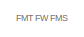
[diagram: root canvas - part 1/3, top center region]
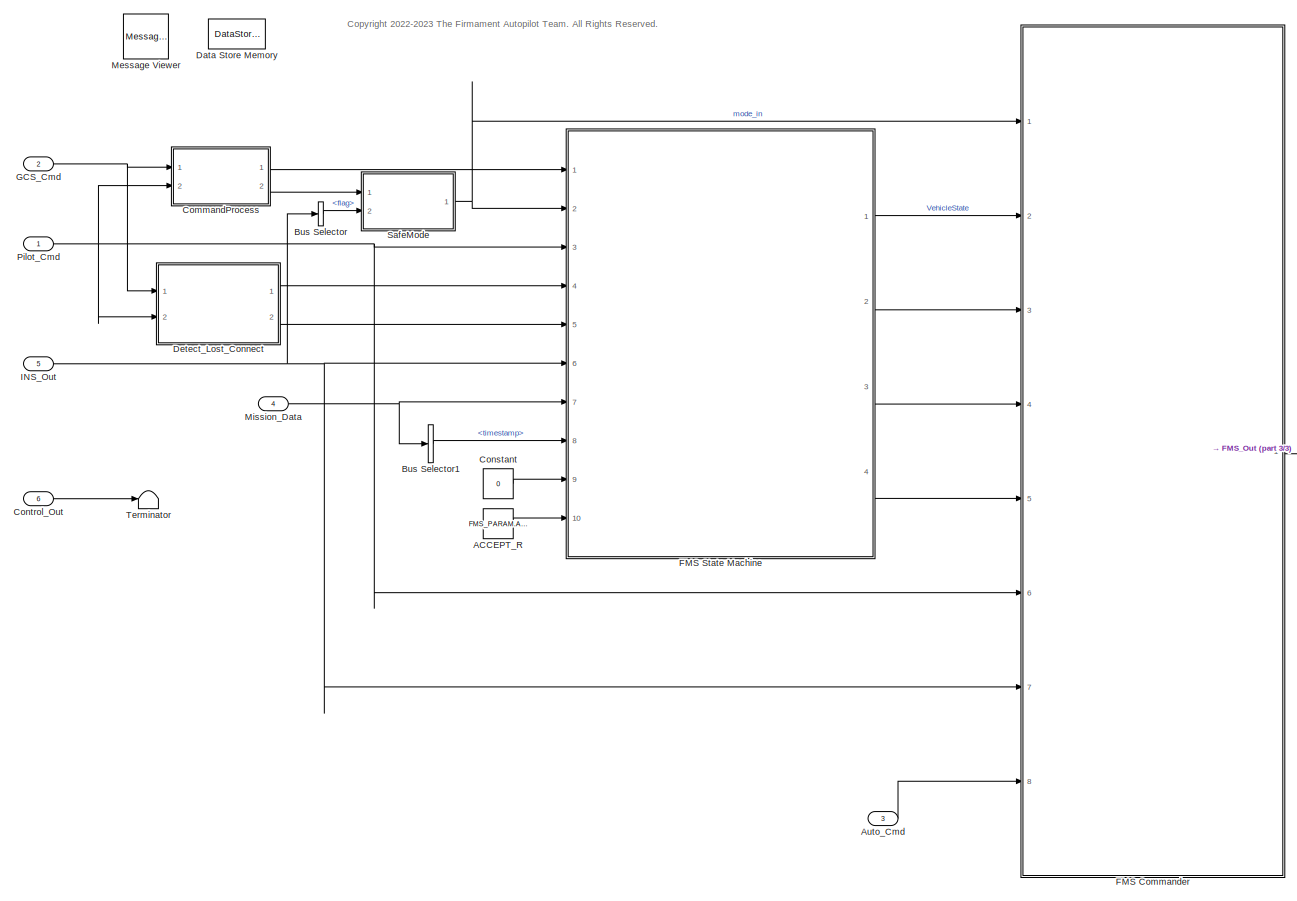
[diagram: root canvas - part 2/3, most of the canvas]
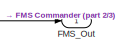
[diagram: root canvas - part 3/3, middle right region]
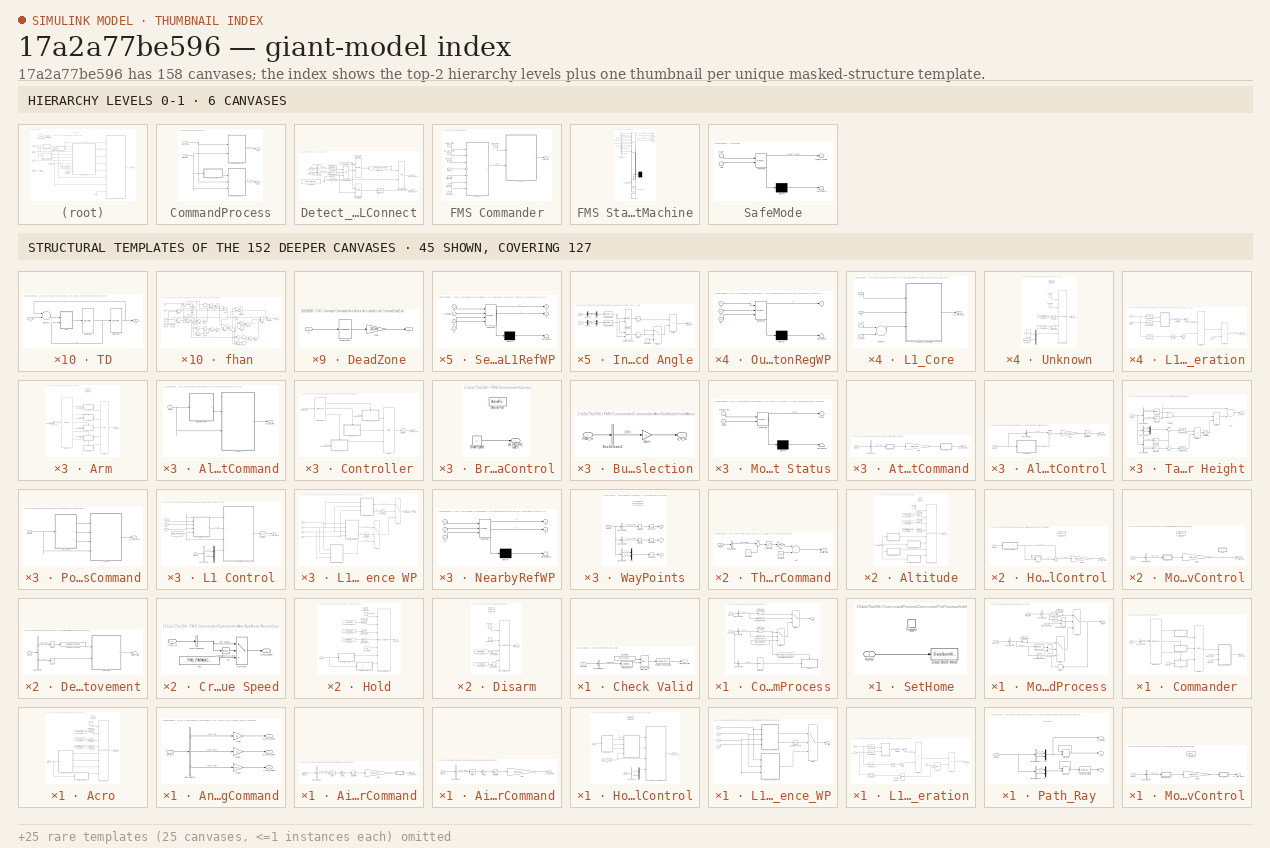
[diagram: thumbnail index - top-2 hierarchy levels (6 canvases) + 45 structural-template representatives of the remaining 152 canvases]
MODEL slx_17a2a77be596
KIND model
CONFIG AbsTol = auto
CONFIG EnableMultiTasking = off
CONFIG FixedStep = FMS_dt
CONFIG MaxStep = auto
CONFIG MinStep = auto
CONFIG RelTol = 1e-3
CONFIG SampleTimeConstraint = Unconstrained
CONFIG Solver = FixedStepDiscrete
CONFIG SolverName = FixedStepDiscrete
CONFIG StartTime = 0.0
CONFIG StopTime = 10.0
BLOCK [Constant] ACCEPT_R
  Value = FMS_PARAM.ACCEPT_R
BLOCK [Inport] Auto_Cmd
  IconDisplay = Port number
  OutDataTypeStr = Bus: Auto_Cmd_Bus
  Port = 3
BLOCK [BusSelector] Bus Selector
  OutputAsBus = off
  OutputSignals = flag
  Ports = [1, 1]
BLOCK [BusSelector] Bus Selector1
  OutputAsBus = off
  OutputSignals = timestamp
  Ports = [1, 1]
BLOCK [SubSystem] CommandProcess
  Ports = [2, 2]
  RequestExecContextInheritance = off
  TreatAsAtomicUnit = on
BLOCK [SubSystem] CommandProcess/Check Valid
  Ports = [1, 1]
  RequestExecContextInheritance = off
BLOCK [BusSelector] CommandProcess/Check Valid/Bus Selector1
  OutputAsBus = off
  OutputSignals = timestamp
  Ports = [1, 1]
BLOCK [Reference] CommandProcess/Check Valid/Compare To Constant1  REF=simulink/Logic and Bit
Operations/Compare
To Constant
  Ports = [1, 1]
  SourceBlock = simulink/Logic and Bit\nOperations/Compare\nTo Constant
  SourceProductBaseCode = SL
  SourceProductName = Simulink
  SourceType = Compare To Constant
BLOCK [Constant] CommandProcess/Check Valid/Constant1
  OutDataTypeStr = single
  Value = FMS_EXPORT.period
BLOCK [Reference] CommandProcess/Check Valid/Detect Change1  REF=simulink/Logic and Bit
Operations/Detect
Change
  Ports = [1, 1]
  SourceBlock = simulink/Logic and Bit\nOperations/Detect\nChange
  SourceProductBaseCode = SL
  SourceProductName = Simulink
  SourceType = Detect Change
BLOCK [DiscreteIntegrator] CommandProcess/Check Valid/Discrete-Time Integrator1
  ExternalReset = sampled level
  ICPrevOutput = DiscIntNeverNeededParam
  ICPrevScaledInput = DiscIntNeverNeededParam
  InitialConditionSetting = Auto
  IntegratorMethod = Accumulation: Forward Euler
  OutDataTypeStr = uint32
  Ports = [2, 1]
  SampleTime = -1
  SaturateOnIntegerOverflow = on
BLOCK [Inport] CommandProcess/Check Valid/Pilot_Cmd
  IconDisplay = Port number
BLOCK [Outport] CommandProcess/Check Valid/pilot_cmd_valid
  IconDisplay = Port number
BLOCK [SubSystem] CommandProcess/Command PreProcess
  Ports = [2, 1]
  RequestExecContextInheritance = off
BLOCK [BusSelector] CommandProcess/Command PreProcess/Bus Selector
  OutputAsBus = off
  OutputSignals = cmd_1
  Ports = [1, 1]
BLOCK [BusSelector] CommandProcess/Command PreProcess/Bus Selector1
  OutputAsBus = off
  OutputSignals = cmd_1
  Ports = [1, 1]
BLOCK [BusSelector] CommandProcess/Command PreProcess/Bus Selector2
  OutputAsBus = off
  OutputSignals = param
  Ports = [1, 1]
BLOCK [Reference] CommandProcess/Command PreProcess/Compare To Constant  REF=simulink/Logic and Bit
Operations/Compare
To Constant
  Ports = [1, 1]
  SourceBlock = simulink/Logic and Bit\nOperations/Compare\nTo Constant
  SourceProductBaseCode = SL
  SourceProductName = Simulink
  SourceType = Compare To Constant
BLOCK [Constant] CommandProcess/Command PreProcess/Constant1
  Value = FMS_Cmd.None
BLOCK [DataTypeConversion] CommandProcess/Command PreProcess/Data Type Conversion1
  OutDataTypeStr = Enum: FMS_Cmd
  RndMeth = Floor
  SaturateOnIntegerOverflow = off
BLOCK [DataTypeConversion] CommandProcess/Command PreProcess/Data Type Conversion2
  OutDataTypeStr = Enum: FMS_Cmd
  RndMeth = Floor
  SaturateOnIntegerOverflow = off
BLOCK [Reference] CommandProcess/Command PreProcess/Detect Change3  REF=simulink/Logic and Bit
Operations/Detect
Change
  Ports = [1, 1]
  SourceBlock = simulink/Logic and Bit\nOperations/Detect\nChange
  SourceProductBaseCode = SL
  SourceProductName = Simulink
  SourceType = Detect Change
BLOCK [Reference] CommandProcess/Command PreProcess/Detect Change4  REF=simulink/Logic and Bit
Operations/Detect
Change
  Ports = [1, 1]
  SourceBlock = simulink/Logic and Bit\nOperations/Detect\nChange
  SourceProductBaseCode = SL
  SourceProductName = Simulink
  SourceType = Detect Change
BLOCK [Selector] CommandProcess/Command PreProcess/Selector
  IndexOptions = Index vector (dialog)
  Indices = [1:4]
  InputPortWidth = 7
  OutputSizes = 1
  Ports = [1, 1]
BLOCK [SubSystem] CommandProcess/Command PreProcess/SetHome
  Ports = [1, 0, 0, 1]
  RequestExecContextInheritance = off
  TreatAsAtomicUnit = on
BLOCK [DataStoreWrite] CommandProcess/Command PreProcess/SetHome/Data Store Write
  DataStoreName = home
  Ports = [1]
BLOCK [TriggerPort] CommandProcess/Command PreProcess/SetHome/Trigger
  Ports = []
  StatesWhenEnabling = held
  VariantControl = Variant
BLOCK [Inport] CommandProcess/Command PreProcess/SetHome/home
  IconDisplay = Port number
BLOCK [Switch] CommandProcess/Command PreProcess/Switch1
  Criteria = u2 > Threshold
  InputSameDT = off
  SaturateOnIntegerOverflow = off
BLOCK [Switch] CommandProcess/Command PreProcess/Switch2
  Criteria = u2 > Threshold
  InputSameDT = off
  SaturateOnIntegerOverflow = off
BLOCK [Outport] CommandProcess/Command PreProcess/cmd
  IconDisplay = Port number
BLOCK [Inport] CommandProcess/Command PreProcess/gcs_cmd
  IconDisplay = Port number
BLOCK [Inport] CommandProcess/Command PreProcess/pilot_cmd
  IconDisplay = Port number
  Port = 2
BLOCK [Inport] CommandProcess/GCS_Cmd
  IconDisplay = Port number
BLOCK [SubSystem] CommandProcess/Mode PreProcess
  Ports = [3, 1]
  RequestExecContextInheritance = off
BLOCK [BusSelector] CommandProcess/Mode PreProcess/Bus Selector1
  OutputAsBus = off
  OutputSignals = mode
  Ports = [1, 1]
BLOCK [BusSelector] CommandProcess/Mode PreProcess/Bus Selector2
  OutputAsBus = off
  OutputSignals = mode
  Ports = [1, 1]
BLOCK [Reference] CommandProcess/Mode PreProcess/Compare To Zero  REF=simulink/Logic and Bit
Operations/Compare
To Zero
  Ports = [1, 1]
  SourceBlock = simulink/Logic and Bit\nOperations/Compare\nTo Zero
  SourceProductBaseCode = SL
  SourceProductName = Simulink
  SourceType = Compare To Zero
BLOCK [Reference] CommandProcess/Mode PreProcess/Compare To Zero1  REF=simulink/Logic and Bit
Operations/Compare
To Zero
  Ports = [1, 1]
  SourceBlock = simulink/Logic and Bit\nOperations/Compare\nTo Zero
  SourceProductBaseCode = SL
  SourceProductName = Simulink
  SourceType = Compare To Zero
BLOCK [DataTypeConversion] CommandProcess/Mode PreProcess/Data Type Conversion1
  OutDataTypeStr = Enum: PilotMode
  RndMeth = Floor
  SaturateOnIntegerOverflow = off
BLOCK [DataTypeConversion] CommandProcess/Mode PreProcess/Data Type Conversion2
  OutDataTypeStr = Enum: PilotMode
  RndMeth = Floor
  SaturateOnIntegerOverflow = off
BLOCK [Delay] CommandProcess/Mode PreProcess/Delay
  DelayLength = 1
  InitialCondition = PilotMode.None
  InputPortMap = u0
  Ports = [1, 1]
BLOCK [Reference] CommandProcess/Mode PreProcess/Detect Change  REF=simulink/Logic and Bit
Operations/Detect
Change
  Ports = [1, 1]
  SourceBlock = simulink/Logic and Bit\nOperations/Detect\nChange
  SourceProductBaseCode = SL
  SourceProductName = Simulink
  SourceType = Detect Change
BLOCK [Inport] CommandProcess/Mode PreProcess/GCS_Cmd
  IconDisplay = Port number
  Port = 2
BLOCK [Logic] CommandProcess/Mode PreProcess/Logical Operator
  AllPortsSameDT = off
  OutDataTypeStr = boolean
  Ports = [2, 1]
BLOCK [Logic] CommandProcess/Mode PreProcess/Logical Operator1
  AllPortsSameDT = off
  OutDataTypeStr = boolean
  Ports = [2, 1]
BLOCK [Inport] CommandProcess/Mode PreProcess/Pilot_Cmd
  IconDisplay = Port number
  Port = 3
BLOCK [Switch] CommandProcess/Mode PreProcess/Switch
  Criteria = u2 > Threshold
  InputSameDT = off
  SaturateOnIntegerOverflow = off
BLOCK [Switch] CommandProcess/Mode PreProcess/Switch1
  Criteria = u2 > Threshold
  InputSameDT = off
  SaturateOnIntegerOverflow = off
BLOCK [Outport] CommandProcess/Mode PreProcess/mode
  IconDisplay = Port number
BLOCK [Inport] CommandProcess/Mode PreProcess/pilot_cmd_valid
  IconDisplay = Port number
BLOCK [Inport] CommandProcess/Pilot_Cmd
  IconDisplay = Port number
  Port = 2
BLOCK [Outport] CommandProcess/cmd
  IconDisplay = Port number
BLOCK [Outport] CommandProcess/mode
  IconDisplay = Port number
  Port = 2
BLOCK [Constant] Constant
  OutDataTypeStr = boolean
  Value = 0
BLOCK [Inport] Control_Out
  IconDisplay = Port number
  OutDataTypeStr = Bus: Control_Out_Bus
  Port = 6
BLOCK [DataStoreMemory] Data Store Memory
  DataStoreName = home
  Dimensions = 4
  OutDataTypeStr = single
  ReadBeforeWriteMsg = warning
  ShowAdditionalParam = off
  SignalType = real
  WriteAfterReadMsg = warning
  WriteAfterWriteMsg = warning
BLOCK [SubSystem] Detect_Lost_Connect
  Ports = [2, 2]
  RequestExecContextInheritance = off
BLOCK [BusSelector] Detect_Lost_Connect/Bus Selector
  OutputAsBus = off
  OutputSignals = timestamp
  Ports = [1, 1]
BLOCK [BusSelector] Detect_Lost_Connect/Bus Selector1
  OutputAsBus = off
  OutputSignals = timestamp
  Ports = [1, 1]
BLOCK [Constant] Detect_Lost_Connect/Constant
  OutDataTypeStr = single
  Value = FMS_CONST.dt
BLOCK [Constant] Detect_Lost_Connect/Constant1
  Value = FMS_PARAM.LOST_RETURN_EN
BLOCK [Reference] Detect_Lost_Connect/Detect Change  REF=simulink/Logic and Bit
Operations/Detect
Change
  Ports = [1, 1]
  SourceBlock = simulink/Logic and Bit\nOperations/Detect\nChange
  SourceProductBaseCode = SL
  SourceProductName = Simulink
  SourceType = Detect Change
BLOCK [Reference] Detect_Lost_Connect/Detect Change1  REF=simulink/Logic and Bit
Operations/Detect
Change
  Ports = [1, 1]
  SourceBlock = simulink/Logic and Bit\nOperations/Detect\nChange
  SourceProductBaseCode = SL
  SourceProductName = Simulink
  SourceType = Detect Change
BLOCK [DiscreteIntegrator] Detect_Lost_Connect/Discrete-Time Integrator
  ExternalReset = sampled level
  ICPrevOutput = DiscIntNeverNeededParam
  ICPrevScaledInput = DiscIntNeverNeededParam
  InitialConditionSetting = Auto
  IntegratorMethod = Accumulation: Forward Euler
  LimitOutput = on
  LowerSaturationLimit = 0
  OutDataTypeStr = single
  Ports = [2, 1]
  SampleTime = -1
  SaturateOnIntegerOverflow = on
  UpperSaturationLimit = 65535
BLOCK [DiscreteIntegrator] Detect_Lost_Connect/Discrete-Time Integrator1
  ExternalReset = sampled level
  ICPrevOutput = DiscIntNeverNeededParam
  ICPrevScaledInput = DiscIntNeverNeededParam
  InitialConditionSetting = Auto
  IntegratorMethod = Accumulation: Forward Euler
  LimitOutput = on
  LowerSaturationLimit = 0
  OutDataTypeStr = single
  Ports = [2, 1]
  SampleTime = -1
  SaturateOnIntegerOverflow = on
  UpperSaturationLimit = 65535
BLOCK [Inport] Detect_Lost_Connect/GCS_Cmd
  IconDisplay = Port number
BLOCK [Logic] Detect_Lost_Connect/Logical Operator
  AllPortsSameDT = off
  Inputs = 3
  Operator = OR
  OutDataTypeStr = boolean
  Ports = [3, 1]
BLOCK [Logic] Detect_Lost_Connect/Logical Operator1
  AllPortsSameDT = off
  Operator = NOT
  OutDataTypeStr = boolean
  Ports = [1, 1]
BLOCK [Logic] Detect_Lost_Connect/Logical Operator2
  AllPortsSameDT = off
  OutDataTypeStr = boolean
  Ports = [2, 1]
BLOCK [Inport] Detect_Lost_Connect/Pilot_Cmd
  IconDisplay = Port number
  Port = 2
BLOCK [Outport] Detect_Lost_Connect/lost_connect
  IconDisplay = Port number
BLOCK [Outport] Detect_Lost_Connect/pilot_cmd_lost
  IconDisplay = Port number
  Port = 2
BLOCK [Reference] Detect_Lost_Connect/timeout1_s  REF=simulink/Logic and Bit
Operations/Compare
To Constant
  Ports = [1, 1]
  SourceBlock = simulink/Logic and Bit\nOperations/Compare\nTo Constant
  SourceProductBaseCode = SL
  SourceProductName = Simulink
  SourceType = Compare To Constant
BLOCK [Reference] Detect_Lost_Connect/timeout2_s  REF=simulink/Logic and Bit
Operations/Compare
To Constant
  Ports = [1, 1]
  SourceBlock = simulink/Logic and Bit\nOperations/Compare\nTo Constant
  SourceProductBaseCode = SL
  SourceProductName = Simulink
  SourceType = Compare To Constant
BLOCK [SubSystem] FMS Commander
  Ports = [8, 1]
  RequestExecContextInheritance = off
  TreatAsAtomicUnit = on
BLOCK [Inport] FMS Commander/Auto_Cmd
  IconDisplay = Port number
  Port = 8
BLOCK [Inport] FMS Commander/Cmd_In
  IconDisplay = Port number
  Port = 5
BLOCK [SubSystem] FMS Commander/Commander
  Ports = [2, 1]
  RequestExecContextInheritance = off
BLOCK [SubSystem] FMS Commander/Commander/Arm
  Ports = [1, 1, 0, 0, 0, 0, 0, 1]
  RequestExecContextInheritance = off
  TreatAsAtomicUnit = on
BLOCK [ActionPort] FMS Commander/Commander/Arm/Action Port
  ActionType = default
  InitializeStates = reset
BLOCK [SubSystem] FMS Commander/Commander/Arm/Assist
  Ports = [1, 1, 0, 0, 0, 0, 0, 1]
  RequestExecContextInheritance = off
  TreatAsAtomicUnit = on
BLOCK [SubSystem] FMS Commander/Commander/Arm/Assist/Acro
  Ports = [1, 1, 0, 0, 0, 0, 0, 1]
  PreDeleteFcn = Stateflow.SLINSF.SimulinkMan.removePreDeleteFcn
  RequestExecContextInheritance = off
  UndoDeleteFcn = Stateflow.SLINSF.SimulinkMan.restorePreDeleteFcn
BLOCK [ActionPort] FMS Commander/Commander/Arm/Assist/Acro/Action Port
  ActionType = case
  CopyFcn = Stateflow.SLINSF.SimulinkMan.removeBlockPreDeleteFcn
  InitializeStates = reset
BLOCK [SubSystem] FMS Commander/Commander/Arm/Assist/Acro/Angular Rate Command
  Ports = [1, 3]
  RequestExecContextInheritance = off
BLOCK [BusSelector] FMS Commander/Commander/Arm/Assist/Acro/Angular Rate Command/Bus Selector
  OutputAsBus = off
  OutputSignals = Pilot_Cmd.stick_roll,Pilot_Cmd.stick_pitch,Pilot_Cmd.stick_yaw
  Ports = [1, 3]
BLOCK [Inport] FMS Commander/Commander/Arm/Assist/Acro/Angular Rate Command/FMS_In
  IconDisplay = Port number
BLOCK [Gain] FMS Commander/Commander/Arm/Assist/Acro/Angular Rate Command/Gain
  Gain = pi
  OutDataTypeStr = single
  ParamDataTypeStr = Inherit: Inherit via internal rule
  SaturateOnIntegerOverflow = off
BLOCK [Gain] FMS Commander/Commander/Arm/Assist/Acro/Angular Rate Command/Gain1
  Gain = -pi
  OutDataTypeStr = single
  ParamDataTypeStr = Inherit: Inherit via internal rule
  SaturateOnIntegerOverflow = off
BLOCK [Gain] FMS Commander/Commander/Arm/Assist/Acro/Angular Rate Command/Gain2
  Gain = pi/2
  OutDataTypeStr = single
  ParamDataTypeStr = Inherit: Inherit via internal rule
  SaturateOnIntegerOverflow = off
BLOCK [Outport] FMS Commander/Commander/Arm/Assist/Acro/Angular Rate Command/p_cmd_radPs
  IconDisplay = Port number
BLOCK [Outport] FMS Commander/Commander/Arm/Assist/Acro/Angular Rate Command/q_cmd_radPs
  IconDisplay = Port number
  Port = 2
BLOCK [Outport] FMS Commander/Commander/Arm/Assist/Acro/Angular Rate Command/r_cmd_radPs
  IconDisplay = Port number
  Port = 3
BLOCK [BusAssignment] FMS Commander/Commander/Arm/Assist/Acro/Bus Assignment
  AssignedSignals = status,state,ctrl_mode,p_cmd,q_cmd,r_cmd,throttle_cmd
  Ports = [8, 1]
BLOCK [Constant] FMS Commander/Commander/Arm/Assist/Acro/Constant
  OutDataTypeStr = Bus: FMS_Out_Bus
  Value = 0
BLOCK [Constant] FMS Commander/Commander/Arm/Assist/Acro/Constant1
  Value = VehicleState.Acro
BLOCK [Constant] FMS Commander/Commander/Arm/Assist/Acro/Constant2
  Value = ControlMode.Acro
BLOCK [Constant] FMS Commander/Commander/Arm/Assist/Acro/Constant5
  Value = VehicleStatus.Arm
BLOCK [DataTypeConversion] FMS Commander/Commander/Arm/Assist/Acro/Data Type Conversion
  RndMeth = Floor
  SaturateOnIntegerOverflow = off
BLOCK [DataTypeConversion] FMS Commander/Commander/Arm/Assist/Acro/Data Type Conversion1
  RndMeth = Floor
  SaturateOnIntegerOverflow = off
BLOCK [DataTypeConversion] FMS Commander/Commander/Arm/Assist/Acro/Data Type Conversion2
  RndMeth = Floor
  SaturateOnIntegerOverflow = off
BLOCK [Inport] FMS Commander/Commander/Arm/Assist/Acro/FMS_In
  IconDisplay = Port number
BLOCK [Outport] FMS Commander/Commander/Arm/Assist/Acro/FMS_Out
  IconDisplay = Port number
BLOCK [SubSystem] FMS Commander/Commander/Arm/Assist/Acro/Throttle Command
  Ports = [1, 1]
  RequestExecContextInheritance = off
BLOCK [Sum] FMS Commander/Commander/Arm/Assist/Acro/Throttle Command/Add
  InputSameDT = off
  OutDataTypeStr = Inherit: Inherit via internal rule
  Ports = [2, 1]
  SaturateOnIntegerOverflow = off
BLOCK [BusSelector] FMS Commander/Commander/Arm/Assist/Acro/Throttle Command/Bus Selector
  OutputAsBus = off
  OutputSignals = Pilot_Cmd.stick_throttle
  Ports = [1, 1]
BLOCK [Constant] FMS Commander/Commander/Arm/Assist/Acro/Throttle Command/Constant4
  OutDataTypeStr = single
BLOCK [Constant] FMS Commander/Commander/Arm/Assist/Acro/Throttle Command/Constant5
  OutDataTypeStr = uint16
  Value = 1000
BLOCK [Inport] FMS Commander/Commander/Arm/Assist/Acro/Throttle Command/FMS_In
  IconDisplay = Port number
BLOCK [Gain] FMS Commander/Commander/Arm/Assist/Acro/Throttle Command/Gain2
  Gain = 500
  OutDataTypeStr = uint16
  ParamDataTypeStr = Inherit: Inherit via internal rule
  SaturateOnIntegerOverflow = off
BLOCK [Saturate] FMS Commander/Commander/Arm/Assist/Acro/Throttle Command/Saturation
  InputPortMap = u0
  LowerLimit = 0
  Ports = [1, 1]
  UpperLimit = 2
BLOCK [Sum] FMS Commander/Commander/Arm/Assist/Acro/Throttle Command/Sum
  IconShape = round
  InputSameDT = off
  Inputs = |++
  OutDataTypeStr = Inherit: Inherit via internal rule
  Ports = [2, 1]
  SaturateOnIntegerOverflow = off
BLOCK [Outport] FMS Commander/Commander/Arm/Assist/Acro/Throttle Command/throttle_cmd
  IconDisplay = Port number
BLOCK [ActionPort] FMS Commander/Commander/Arm/Assist/Action Port
  ActionType = case
  InitializeStates = reset
BLOCK [SubSystem] FMS Commander/Commander/Arm/Assist/Altitude
  Ports = [1, 1, 0, 0, 0, 0, 0, 1]
  PreDeleteFcn = Stateflow.SLINSF.SimulinkMan.removePreDeleteFcn
  RequestExecContextInheritance = off
  UndoDeleteFcn = Stateflow.SLINSF.SimulinkMan.restorePreDeleteFcn
BLOCK [ActionPort] FMS Commander/Commander/Arm/Assist/Altitude/Action Port
  ActionType = case
  CopyFcn = Stateflow.SLINSF.SimulinkMan.removeBlockPreDeleteFcn
  InitializeStates = reset
BLOCK [SubSystem] FMS Commander/Commander/Arm/Assist/Altitude/Airspeed Command
  Ports = [1, 1]
  RequestExecContextInheritance = off
BLOCK [Bias] FMS Commander/Commander/Arm/Assist/Altitude/Airspeed Command/Bias
  Bias = 1
  SaturateOnIntegerOverflow = off
BLOCK [BusSelector] FMS Commander/Commander/Arm/Assist/Altitude/Airspeed Command/Bus Selector
  OutputAsBus = off
  OutputSignals = Pilot_Cmd.stick_throttle
  Ports = [1, 1]
BLOCK [Inport] FMS Commander/Commander/Arm/Assist/Altitude/Airspeed Command/FMS_In
  IconDisplay = Port number
BLOCK [Gain] FMS Commander/Commander/Arm/Assist/Altitude/Airspeed Command/Gain
  Gain = FMS_PARAM.FW_AIRSPD_MAX
  OutDataTypeStr = Inherit: Inherit via internal rule
  ParamDataTypeStr = Inherit: Inherit via internal rule
  SaturateOnIntegerOverflow = off
BLOCK [Gain] FMS Commander/Commander/Arm/Assist/Altitude/Airspeed Command/Gain1
  Gain = 0.5
  OutDataTypeStr = Inherit: Inherit via internal rule
  ParamDataTypeStr = Inherit: Inherit via internal rule
  SaturateOnIntegerOverflow = off
BLOCK [Saturate] FMS Commander/Commander/Arm/Assist/Altitude/Airspeed Command/Saturation
  InputPortMap = u0
  LowerLimit = 0
  Ports = [1, 1]
  UpperLimit = 1
BLOCK [SubSystem] FMS Commander/Commander/Arm/Assist/Altitude/Airspeed Command/TD
  Ports = [1, 1]
  RequestExecContextInheritance = off
BLOCK [DiscreteIntegrator] FMS Commander/Commander/Arm/Assist/Altitude/Airspeed Command/TD/Integrator
  ICPrevOutput = DiscIntNeverNeededParam
  ICPrevScaledInput = DiscIntNeverNeededParam
  InitialConditionSetting = Auto
  Ports = [1, 1]
  SampleTime = -1
BLOCK [DiscreteIntegrator] FMS Commander/Commander/Arm/Assist/Altitude/Airspeed Command/TD/Integrator1
  ICPrevOutput = DiscIntNeverNeededParam
  ICPrevScaledInput = DiscIntNeverNeededParam
  InitialConditionSetting = Auto
  Ports = [1, 1]
  SampleTime = -1
BLOCK [Sum] FMS Commander/Commander/Arm/Assist/Altitude/Airspeed Command/TD/Subtract
  InputSameDT = off
  Inputs = +-
  OutDataTypeStr = Inherit: Inherit via internal rule
  Ports = [2, 1]
  SaturateOnIntegerOverflow = off
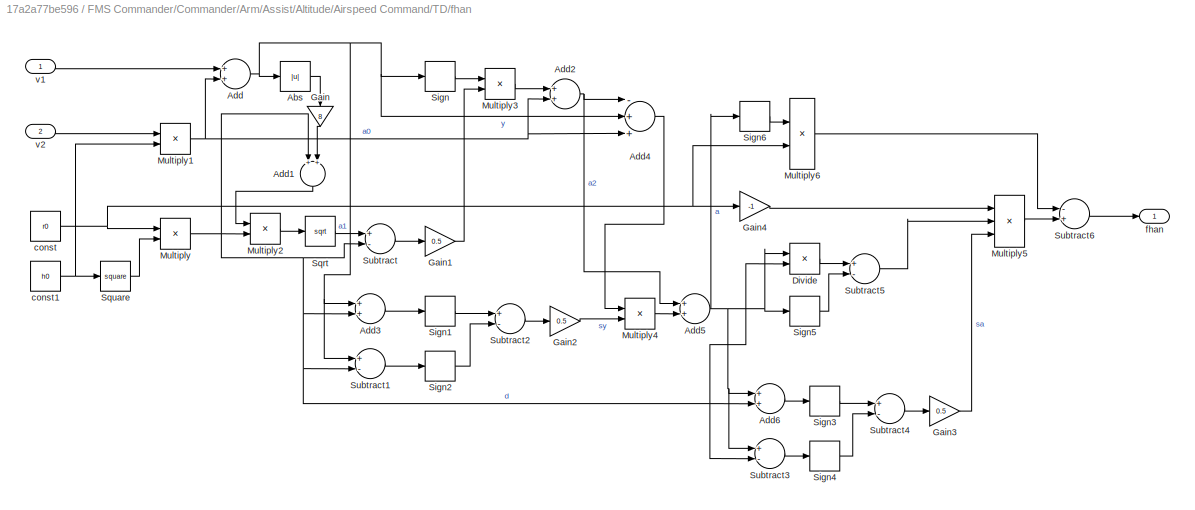
BLOCK [SubSystem] FMS Commander/Commander/Arm/Assist/Altitude/Airspeed Command/TD/fhan 
  Ports = [2, 1]
  RequestExecContextInheritance = off
BLOCK [Abs] FMS Commander/Commander/Arm/Assist/Altitude/Airspeed Command/TD/fhan /Abs
  SaturateOnIntegerOverflow = off
BLOCK [Sum] FMS Commander/Commander/Arm/Assist/Altitude/Airspeed Command/TD/fhan /Add
  InputSameDT = off
  Ports = [2, 1]
  SaturateOnIntegerOverflow = off
BLOCK [Sum] FMS Commander/Commander/Arm/Assist/Altitude/Airspeed Command/TD/fhan /Add1
  InputSameDT = off
  Ports = [2, 1]
  SaturateOnIntegerOverflow = off
BLOCK [Sum] FMS Commander/Commander/Arm/Assist/Altitude/Airspeed Command/TD/fhan /Add2
  InputSameDT = off
  Ports = [2, 1]
  SaturateOnIntegerOverflow = off
BLOCK [Sum] FMS Commander/Commander/Arm/Assist/Altitude/Airspeed Command/TD/fhan /Add3
  InputSameDT = off
  Ports = [2, 1]
  SaturateOnIntegerOverflow = off
BLOCK [Sum] FMS Commander/Commander/Arm/Assist/Altitude/Airspeed Command/TD/fhan /Add4
  InputSameDT = off
  Inputs = -++
  OutDataTypeStr = Inherit: Inherit via internal rule
  Ports = [3, 1]
  SaturateOnIntegerOverflow = off
BLOCK [Sum] FMS Commander/Commander/Arm/Assist/Altitude/Airspeed Command/TD/fhan /Add5
  InputSameDT = off
  Ports = [2, 1]
  SaturateOnIntegerOverflow = off
BLOCK [Sum] FMS Commander/Commander/Arm/Assist/Altitude/Airspeed Command/TD/fhan /Add6
  InputSameDT = off
  Ports = [2, 1]
  SaturateOnIntegerOverflow = off
BLOCK [Product] FMS Commander/Commander/Arm/Assist/Altitude/Airspeed Command/TD/fhan /Divide
  InputSameDT = off
  Inputs = */
  OutDataTypeStr = Inherit: Inherit via internal rule
  Ports = [2, 1]
  RndMeth = Floor
  SaturateOnIntegerOverflow = off
BLOCK [Gain] FMS Commander/Commander/Arm/Assist/Altitude/Airspeed Command/TD/fhan /Gain
  Gain = 8
  OutDataTypeStr = Inherit: Inherit via internal rule
  ParamDataTypeStr = Inherit: Inherit via internal rule
  SaturateOnIntegerOverflow = off
BLOCK [Gain] FMS Commander/Commander/Arm/Assist/Altitude/Airspeed Command/TD/fhan /Gain1
  Gain = 0.5
  ParamDataTypeStr = Inherit: Inherit via internal rule
  SaturateOnIntegerOverflow = off
BLOCK [Gain] FMS Commander/Commander/Arm/Assist/Altitude/Airspeed Command/TD/fhan /Gain2
  Gain = 0.5
  ParamDataTypeStr = Inherit: Inherit via internal rule
  SaturateOnIntegerOverflow = off
BLOCK [Gain] FMS Commander/Commander/Arm/Assist/Altitude/Airspeed Command/TD/fhan /Gain3
  Gain = 0.5
  ParamDataTypeStr = Inherit: Inherit via internal rule
  SaturateOnIntegerOverflow = off
BLOCK [Gain] FMS Commander/Commander/Arm/Assist/Altitude/Airspeed Command/TD/fhan /Gain4
  Gain = -1
  ParamDataTypeStr = Inherit: Inherit via internal rule
  SaturateOnIntegerOverflow = off
BLOCK [Product] FMS Commander/Commander/Arm/Assist/Altitude/Airspeed Command/TD/fhan /Multiply
  InputSameDT = off
  Ports = [2, 1]
  RndMeth = Floor
  SaturateOnIntegerOverflow = off
BLOCK [Product] FMS Commander/Commander/Arm/Assist/Altitude/Airspeed Command/TD/fhan /Multiply1
  InputSameDT = off
  Ports = [2, 1]
  RndMeth = Floor
  SaturateOnIntegerOverflow = off
BLOCK [Product] FMS Commander/Commander/Arm/Assist/Altitude/Airspeed Command/TD/fhan /Multiply2
  InputSameDT = off
  Ports = [2, 1]
  RndMeth = Floor
  SaturateOnIntegerOverflow = off
BLOCK [Product] FMS Commander/Commander/Arm/Assist/Altitude/Airspeed Command/TD/fhan /Multiply3
  InputSameDT = off
  Ports = [2, 1]
  RndMeth = Floor
  SaturateOnIntegerOverflow = off
BLOCK [Product] FMS Commander/Commander/Arm/Assist/Altitude/Airspeed Command/TD/fhan /Multiply4
  InputSameDT = off
  OutDataTypeStr = single
  Ports = [2, 1]
  RndMeth = Floor
  SaturateOnIntegerOverflow = off
BLOCK [Product] FMS Commander/Commander/Arm/Assist/Altitude/Airspeed Command/TD/fhan /Multiply5
  InputSameDT = off
  Inputs = 3
  OutDataTypeStr = Inherit: Inherit via internal rule
  Ports = [3, 1]
  RndMeth = Floor
  SaturateOnIntegerOverflow = off
BLOCK [Product] FMS Commander/Commander/Arm/Assist/Altitude/Airspeed Command/TD/fhan /Multiply6
  InputSameDT = off
  OutDataTypeStr = single
  Ports = [2, 1]
  RndMeth = Floor
  SaturateOnIntegerOverflow = off
BLOCK [Signum] FMS Commander/Commander/Arm/Assist/Altitude/Airspeed Command/TD/fhan /Sign
BLOCK [Signum] FMS Commander/Commander/Arm/Assist/Altitude/Airspeed Command/TD/fhan /Sign1
BLOCK [Signum] FMS Commander/Commander/Arm/Assist/Altitude/Airspeed Command/TD/fhan /Sign2
BLOCK [Signum] FMS Commander/Commander/Arm/Assist/Altitude/Airspeed Command/TD/fhan /Sign3
BLOCK [Signum] FMS Commander/Commander/Arm/Assist/Altitude/Airspeed Command/TD/fhan /Sign4
BLOCK [Signum] FMS Commander/Commander/Arm/Assist/Altitude/Airspeed Command/TD/fhan /Sign5
BLOCK [Signum] FMS Commander/Commander/Arm/Assist/Altitude/Airspeed Command/TD/fhan /Sign6
BLOCK [Sqrt] FMS Commander/Commander/Arm/Assist/Altitude/Airspeed Command/TD/fhan /Sqrt
BLOCK [Math] FMS Commander/Commander/Arm/Assist/Altitude/Airspeed Command/TD/fhan /Square
  Operator = square
  Ports = [1, 1]
BLOCK [Sum] FMS Commander/Commander/Arm/Assist/Altitude/Airspeed Command/TD/fhan /Subtract
  InputSameDT = off
  Inputs = +-
  Ports = [2, 1]
  SaturateOnIntegerOverflow = off
BLOCK [Sum] FMS Commander/Commander/Arm/Assist/Altitude/Airspeed Command/TD/fhan /Subtract1
  InputSameDT = off
  Inputs = +-
  Ports = [2, 1]
  SaturateOnIntegerOverflow = off
BLOCK [Sum] FMS Commander/Commander/Arm/Assist/Altitude/Airspeed Command/TD/fhan /Subtract2
  InputSameDT = off
  Inputs = +-
  Ports = [2, 1]
  SaturateOnIntegerOverflow = off
BLOCK [Sum] FMS Commander/Commander/Arm/Assist/Altitude/Airspeed Command/TD/fhan /Subtract3
  InputSameDT = off
  Inputs = +-
  Ports = [2, 1]
  SaturateOnIntegerOverflow = off
BLOCK [Sum] FMS Commander/Commander/Arm/Assist/Altitude/Airspeed Command/TD/fhan /Subtract4
  InputSameDT = off
  Inputs = +-
  Ports = [2, 1]
  SaturateOnIntegerOverflow = off
BLOCK [Sum] FMS Commander/Commander/Arm/Assist/Altitude/Airspeed Command/TD/fhan /Subtract5
  InputSameDT = off
  Inputs = +-
  Ports = [2, 1]
  SaturateOnIntegerOverflow = off
BLOCK [Sum] FMS Commander/Commander/Arm/Assist/Altitude/Airspeed Command/TD/fhan /Subtract6
  InputSameDT = off
  Inputs = -+
  Ports = [2, 1]
  SaturateOnIntegerOverflow = off
BLOCK [Constant] FMS Commander/Commander/Arm/Assist/Altitude/Airspeed Command/TD/fhan /const
  OutDataTypeStr = single
  Value = r0
BLOCK [Constant] FMS Commander/Commander/Arm/Assist/Altitude/Airspeed Command/TD/fhan /const1
  OutDataTypeStr = single
  Value = h0
BLOCK [Outport] FMS Commander/Commander/Arm/Assist/Altitude/Airspeed Command/TD/fhan /fhan
  IconDisplay = Port number
BLOCK [Inport] FMS Commander/Commander/Arm/Assist/Altitude/Airspeed Command/TD/fhan /v1
  IconDisplay = Port number
BLOCK [Inport] FMS Commander/Commander/Arm/Assist/Altitude/Airspeed Command/TD/fhan /v2
  IconDisplay = Port number
  Port = 2
BLOCK [Inport] FMS Commander/Commander/Arm/Assist/Altitude/Airspeed Command/TD/v
  IconDisplay = Port number
BLOCK [Outport] FMS Commander/Commander/Arm/Assist/Altitude/Airspeed Command/TD/v1
  IconDisplay = Port number
BLOCK [Outport] FMS Commander/Commander/Arm/Assist/Altitude/Airspeed Command/u_cmd_mPs
  IconDisplay = Port number
BLOCK [SubSystem] FMS Commander/Commander/Arm/Assist/Altitude/Altitude Command
  Ports = [1, 1]
  RequestExecContextInheritance = off
BLOCK [SubSystem] FMS Commander/Commander/Arm/Assist/Altitude/Altitude Command/Controller
  Ports = [2, 1]
  RequestExecContextInheritance = off
BLOCK [SubSystem] FMS Commander/Commander/Arm/Assist/Altitude/Altitude Command/Controller/Brake Control
  Ports = [0, 1, 0, 0, 0, 0, 0, 1]
  RequestExecContextInheritance = off
  TreatAsAtomicUnit = on
BLOCK [ActionPort] FMS Commander/Commander/Arm/Assist/Altitude/Altitude Command/Controller/Brake Control/Action Port
  ActionType = case
  InitializeStates = reset
BLOCK [Constant] FMS Commander/Commander/Arm/Assist/Altitude/Altitude Command/Controller/Brake Control/Brake Speed
  OutDataTypeStr = single
  Value = 0
  VectorParams1D = off
BLOCK [Outport] FMS Commander/Commander/Arm/Assist/Altitude/Altitude Command/Controller/Brake Control/psi_rate_cmd_radPs
  IconDisplay = Port number
BLOCK [SubSystem] FMS Commander/Commander/Arm/Assist/Altitude/Altitude Command/Controller/Hold Control
  Ports = [1, 1, 0, 0, 0, 0, 0, 1]
  RequestExecContextInheritance = off
  TreatAsAtomicUnit = on
BLOCK [ActionPort] FMS Commander/Commander/Arm/Assist/Altitude/Altitude Command/Controller/Hold Control/Action Port
  ActionType = case
  InitializeStates = reset
BLOCK [SubSystem] FMS Commander/Commander/Arm/Assist/Altitude/Altitude Command/Controller/Hold Control/Bus_Selection
  Ports = [1, 1]
  RequestExecContextInheritance = off
BLOCK [BusSelector] FMS Commander/Commander/Arm/Assist/Altitude/Altitude Command/Controller/Hold Control/Bus_Selection/Bus Selector2
  OutputAsBus = off
  OutputSignals = INS_Out.h_R
  Ports = [1, 1]
BLOCK [Inport] FMS Commander/Commander/Arm/Assist/Altitude/Altitude Command/Controller/Hold Control/Bus_Selection/FMS_In
  IconDisplay = Port number
BLOCK [Gain] FMS Commander/Commander/Arm/Assist/Altitude/Altitude Command/Controller/Hold Control/Bus_Selection/Gain
  Gain = -1
  OutDataTypeStr = Inherit: Inherit via internal rule
  ParamDataTypeStr = Inherit: Inherit via internal rule
  SaturateOnIntegerOverflow = off
BLOCK [Outport] FMS Commander/Commander/Arm/Assist/Altitude/Altitude Command/Controller/Hold Control/Bus_Selection/z_R_m
  IconDisplay = Port number
BLOCK [Delay] FMS Commander/Commander/Arm/Assist/Altitude/Altitude Command/Controller/Hold Control/Delay
  DelayLength = 1
  InitialConditionSource = Input port
  InputPortMap = u0,p4
  Ports = [2, 1]
BLOCK [Inport] FMS Commander/Commander/Arm/Assist/Altitude/Altitude Command/Controller/Hold Control/FMS_In
  IconDisplay = Port number
BLOCK [Gain] FMS Commander/Commander/Arm/Assist/Altitude/Altitude Command/Controller/Hold Control/Gain2
  Gain = FMS_PARAM.Z_P
  OutDataTypeStr = single
  ParamDataTypeStr = Inherit: Inherit via internal rule
  SaturateOnIntegerOverflow = off
BLOCK [Sum] FMS Commander/Commander/Arm/Assist/Altitude/Altitude Command/Controller/Hold Control/Sum
  IconShape = round
  InputSameDT = off
  Inputs = -+|
  OutDataTypeStr = Inherit: Inherit via internal rule
  Ports = [2, 1]
  SaturateOnIntegerOverflow = off
BLOCK [Outport] FMS Commander/Commander/Arm/Assist/Altitude/Altitude Command/Controller/Hold Control/w_cmd_mPs
  IconDisplay = Port number
BLOCK [Inport] FMS Commander/Commander/Arm/Assist/Altitude/Altitude Command/Controller/In Bus Element
  IconDisplay = Port number
  Port = 2
BLOCK [Inport] FMS Commander/Commander/Arm/Assist/Altitude/Altitude Command/Controller/In Bus Element1
  IconDisplay = Port number
  Port = 2
BLOCK [Merge] FMS Commander/Commander/Arm/Assist/Altitude/Altitude Command/Controller/Merge
  Inputs = 3
  Ports = [3, 1]
BLOCK [SubSystem] FMS Commander/Commander/Arm/Assist/Altitude/Altitude Command/Controller/Move Control
  Ports = [1, 1, 0, 0, 0, 0, 0, 1]
  RequestExecContextInheritance = off
  TreatAsAtomicUnit = on
BLOCK [ActionPort] FMS Commander/Commander/Arm/Assist/Altitude/Altitude Command/Controller/Move Control/Action Port
  ActionType = case
  InitializeStates = reset
BLOCK [BusSelector] FMS Commander/Commander/Arm/Assist/Altitude/Altitude Command/Controller/Move Control/Bus Selector
  OutputAsBus = off
  OutputSignals = Pilot_Cmd.stick_pitch
  Ports = [1, 1]
BLOCK [SubSystem] FMS Commander/Commander/Arm/Assist/Altitude/Altitude Command/Controller/Move Control/DeadZone
  Ports = [1, 1]
  RequestExecContextInheritance = off
BLOCK [DeadZone] FMS Commander/Commander/Arm/Assist/Altitude/Altitude Command/Controller/Move Control/DeadZone/Dead Zone
  LowerValue = -th
  UpperValue = th
BLOCK [Gain] FMS Commander/Commander/Arm/Assist/Altitude/Altitude Command/Controller/Move Control/DeadZone/Gain
  Gain = 1/(1-th)
  OutDataTypeStr = Inherit: Inherit via internal rule
  ParamDataTypeStr = Inherit: Inherit via internal rule
  SaturateOnIntegerOverflow = off
BLOCK [Inport] FMS Commander/Commander/Arm/Assist/Altitude/Altitude Command/Controller/Move Control/DeadZone/u
  IconDisplay = Port number
BLOCK [Outport] FMS Commander/Commander/Arm/Assist/Altitude/Altitude Command/Controller/Move Control/DeadZone/y
  IconDisplay = Port number
BLOCK [Inport] FMS Commander/Commander/Arm/Assist/Altitude/Altitude Command/Controller/Move Control/FMS_In
  IconDisplay = Port number
BLOCK [Gain] FMS Commander/Commander/Arm/Assist/Altitude/Altitude Command/Controller/Move Control/Gain1
  Gain = FMS_PARAM.VEL_Z_LIM
  OutDataTypeStr = single
  ParamDataTypeStr = Inherit: Inherit via internal rule
  SaturateOnIntegerOverflow = off
BLOCK [SubSystem] FMS Commander/Commander/Arm/Assist/Altitude/Altitude Command/Controller/Move Control/TD1
  Commented = on
  Ports = [1, 1]
  RequestExecContextInheritance = off
BLOCK [DiscreteIntegrator] FMS Commander/Commander/Arm/Assist/Altitude/Altitude Command/Controller/Move Control/TD1/Integrator
  ICPrevOutput = DiscIntNeverNeededParam
  ICPrevScaledInput = DiscIntNeverNeededParam
  InitialConditionSetting = Auto
  Ports = [1, 1]
  SampleTime = -1
BLOCK [DiscreteIntegrator] FMS Commander/Commander/Arm/Assist/Altitude/Altitude Command/Controller/Move Control/TD1/Integrator1
  ICPrevOutput = DiscIntNeverNeededParam
  ICPrevScaledInput = DiscIntNeverNeededParam
  InitialConditionSetting = Auto
  Ports = [1, 1]
  SampleTime = -1
BLOCK [Sum] FMS Commander/Commander/Arm/Assist/Altitude/Altitude Command/Controller/Move Control/TD1/Subtract
  InputSameDT = off
  Inputs = +-
  OutDataTypeStr = Inherit: Inherit via internal rule
  Ports = [2, 1]
  SaturateOnIntegerOverflow = off
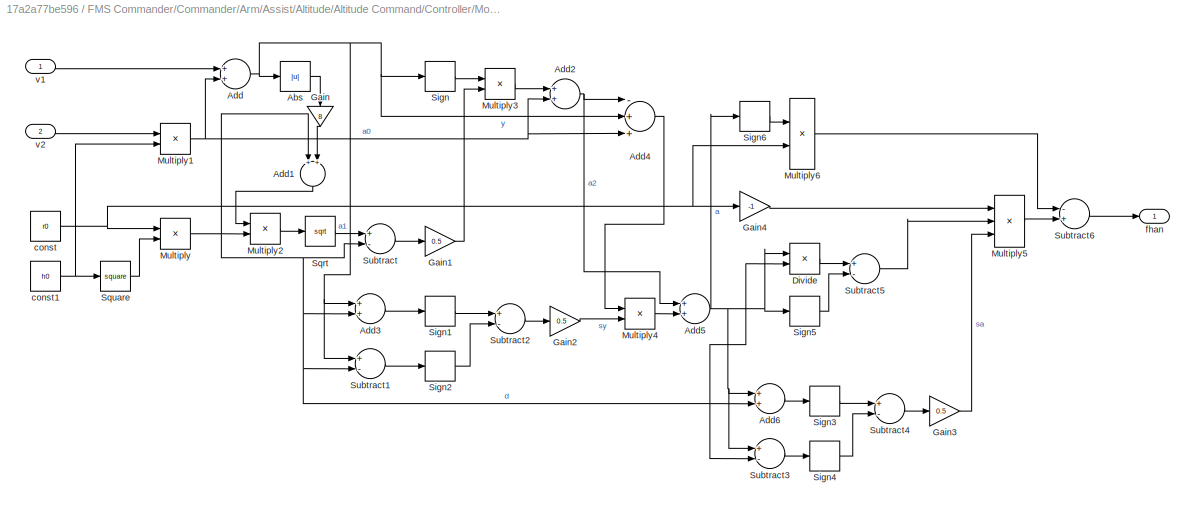
BLOCK [SubSystem] FMS Commander/Commander/Arm/Assist/Altitude/Altitude Command/Controller/Move Control/TD1/fhan 
  Ports = [2, 1]
  RequestExecContextInheritance = off
BLOCK [Abs] FMS Commander/Commander/Arm/Assist/Altitude/Altitude Command/Controller/Move Control/TD1/fhan /Abs
  SaturateOnIntegerOverflow = off
BLOCK [Sum] FMS Commander/Commander/Arm/Assist/Altitude/Altitude Command/Controller/Move Control/TD1/fhan /Add
  InputSameDT = off
  Ports = [2, 1]
  SaturateOnIntegerOverflow = off
BLOCK [Sum] FMS Commander/Commander/Arm/Assist/Altitude/Altitude Command/Controller/Move Control/TD1/fhan /Add1
  InputSameDT = off
  Ports = [2, 1]
  SaturateOnIntegerOverflow = off
BLOCK [Sum] FMS Commander/Commander/Arm/Assist/Altitude/Altitude Command/Controller/Move Control/TD1/fhan /Add2
  InputSameDT = off
  Ports = [2, 1]
  SaturateOnIntegerOverflow = off
BLOCK [Sum] FMS Commander/Commander/Arm/Assist/Altitude/Altitude Command/Controller/Move Control/TD1/fhan /Add3
  InputSameDT = off
  Ports = [2, 1]
  SaturateOnIntegerOverflow = off
BLOCK [Sum] FMS Commander/Commander/Arm/Assist/Altitude/Altitude Command/Controller/Move Control/TD1/fhan /Add4
  InputSameDT = off
  Inputs = -++
  OutDataTypeStr = Inherit: Inherit via internal rule
  Ports = [3, 1]
  SaturateOnIntegerOverflow = off
BLOCK [Sum] FMS Commander/Commander/Arm/Assist/Altitude/Altitude Command/Controller/Move Control/TD1/fhan /Add5
  InputSameDT = off
  Ports = [2, 1]
  SaturateOnIntegerOverflow = off
BLOCK [Sum] FMS Commander/Commander/Arm/Assist/Altitude/Altitude Command/Controller/Move Control/TD1/fhan /Add6
  InputSameDT = off
  Ports = [2, 1]
  SaturateOnIntegerOverflow = off
BLOCK [Product] FMS Commander/Commander/Arm/Assist/Altitude/Altitude Command/Controller/Move Control/TD1/fhan /Divide
  InputSameDT = off
  Inputs = */
  OutDataTypeStr = Inherit: Inherit via internal rule
  Ports = [2, 1]
  RndMeth = Floor
  SaturateOnIntegerOverflow = off
BLOCK [Gain] FMS Commander/Commander/Arm/Assist/Altitude/Altitude Command/Controller/Move Control/TD1/fhan /Gain
  Gain = 8
  OutDataTypeStr = Inherit: Inherit via internal rule
  ParamDataTypeStr = Inherit: Inherit via internal rule
  SaturateOnIntegerOverflow = off
BLOCK [Gain] FMS Commander/Commander/Arm/Assist/Altitude/Altitude Command/Controller/Move Control/TD1/fhan /Gain1
  Gain = 0.5
  ParamDataTypeStr = Inherit: Inherit via internal rule
  SaturateOnIntegerOverflow = off
BLOCK [Gain] FMS Commander/Commander/Arm/Assist/Altitude/Altitude Command/Controller/Move Control/TD1/fhan /Gain2
  Gain = 0.5
  ParamDataTypeStr = Inherit: Inherit via internal rule
  SaturateOnIntegerOverflow = off
BLOCK [Gain] FMS Commander/Commander/Arm/Assist/Altitude/Altitude Command/Controller/Move Control/TD1/fhan /Gain3
  Gain = 0.5
  ParamDataTypeStr = Inherit: Inherit via internal rule
  SaturateOnIntegerOverflow = off
BLOCK [Gain] FMS Commander/Commander/Arm/Assist/Altitude/Altitude Command/Controller/Move Control/TD1/fhan /Gain4
  Gain = -1
  ParamDataTypeStr = Inherit: Inherit via internal rule
  SaturateOnIntegerOverflow = off
BLOCK [Product] FMS Commander/Commander/Arm/Assist/Altitude/Altitude Command/Controller/Move Control/TD1/fhan /Multiply
  InputSameDT = off
  Ports = [2, 1]
  RndMeth = Floor
  SaturateOnIntegerOverflow = off
BLOCK [Product] FMS Commander/Commander/Arm/Assist/Altitude/Altitude Command/Controller/Move Control/TD1/fhan /Multiply1
  InputSameDT = off
  Ports = [2, 1]
  RndMeth = Floor
  SaturateOnIntegerOverflow = off
BLOCK [Product] FMS Commander/Commander/Arm/Assist/Altitude/Altitude Command/Controller/Move Control/TD1/fhan /Multiply2
  InputSameDT = off
  Ports = [2, 1]
  RndMeth = Floor
  SaturateOnIntegerOverflow = off
BLOCK [Product] FMS Commander/Commander/Arm/Assist/Altitude/Altitude Command/Controller/Move Control/TD1/fhan /Multiply3
  InputSameDT = off
  Ports = [2, 1]
  RndMeth = Floor
  SaturateOnIntegerOverflow = off
BLOCK [Product] FMS Commander/Commander/Arm/Assist/Altitude/Altitude Command/Controller/Move Control/TD1/fhan /Multiply4
  InputSameDT = off
  OutDataTypeStr = single
  Ports = [2, 1]
  RndMeth = Floor
  SaturateOnIntegerOverflow = off
BLOCK [Product] FMS Commander/Commander/Arm/Assist/Altitude/Altitude Command/Controller/Move Control/TD1/fhan /Multiply5
  InputSameDT = off
  Inputs = 3
  OutDataTypeStr = Inherit: Inherit via internal rule
  Ports = [3, 1]
  RndMeth = Floor
  SaturateOnIntegerOverflow = off
BLOCK [Product] FMS Commander/Commander/Arm/Assist/Altitude/Altitude Command/Controller/Move Control/TD1/fhan /Multiply6
  InputSameDT = off
  OutDataTypeStr = single
  Ports = [2, 1]
  RndMeth = Floor
  SaturateOnIntegerOverflow = off
BLOCK [Signum] FMS Commander/Commander/Arm/Assist/Altitude/Altitude Command/Controller/Move Control/TD1/fhan /Sign
BLOCK [Signum] FMS Commander/Commander/Arm/Assist/Altitude/Altitude Command/Controller/Move Control/TD1/fhan /Sign1
BLOCK [Signum] FMS Commander/Commander/Arm/Assist/Altitude/Altitude Command/Controller/Move Control/TD1/fhan /Sign2
BLOCK [Signum] FMS Commander/Commander/Arm/Assist/Altitude/Altitude Command/Controller/Move Control/TD1/fhan /Sign3
BLOCK [Signum] FMS Commander/Commander/Arm/Assist/Altitude/Altitude Command/Controller/Move Control/TD1/fhan /Sign4
BLOCK [Signum] FMS Commander/Commander/Arm/Assist/Altitude/Altitude Command/Controller/Move Control/TD1/fhan /Sign5
BLOCK [Signum] FMS Commander/Commander/Arm/Assist/Altitude/Altitude Command/Controller/Move Control/TD1/fhan /Sign6
BLOCK [Sqrt] FMS Commander/Commander/Arm/Assist/Altitude/Altitude Command/Controller/Move Control/TD1/fhan /Sqrt
BLOCK [Math] FMS Commander/Commander/Arm/Assist/Altitude/Altitude Command/Controller/Move Control/TD1/fhan /Square
  Operator = square
  Ports = [1, 1]
BLOCK [Sum] FMS Commander/Commander/Arm/Assist/Altitude/Altitude Command/Controller/Move Control/TD1/fhan /Subtract
  InputSameDT = off
  Inputs = +-
  Ports = [2, 1]
  SaturateOnIntegerOverflow = off
BLOCK [Sum] FMS Commander/Commander/Arm/Assist/Altitude/Altitude Command/Controller/Move Control/TD1/fhan /Subtract1
  InputSameDT = off
  Inputs = +-
  Ports = [2, 1]
  SaturateOnIntegerOverflow = off
BLOCK [Sum] FMS Commander/Commander/Arm/Assist/Altitude/Altitude Command/Controller/Move Control/TD1/fhan /Subtract2
  InputSameDT = off
  Inputs = +-
  Ports = [2, 1]
  SaturateOnIntegerOverflow = off
BLOCK [Sum] FMS Commander/Commander/Arm/Assist/Altitude/Altitude Command/Controller/Move Control/TD1/fhan /Subtract3
  InputSameDT = off
  Inputs = +-
  Ports = [2, 1]
  SaturateOnIntegerOverflow = off
BLOCK [Sum] FMS Commander/Commander/Arm/Assist/Altitude/Altitude Command/Controller/Move Control/TD1/fhan /Subtract4
  InputSameDT = off
  Inputs = +-
  Ports = [2, 1]
  SaturateOnIntegerOverflow = off
BLOCK [Sum] FMS Commander/Commander/Arm/Assist/Altitude/Altitude Command/Controller/Move Control/TD1/fhan /Subtract5
  InputSameDT = off
  Inputs = +-
  Ports = [2, 1]
  SaturateOnIntegerOverflow = off
BLOCK [Sum] FMS Commander/Commander/Arm/Assist/Altitude/Altitude Command/Controller/Move Control/TD1/fhan /Subtract6
  InputSameDT = off
  Inputs = -+
  Ports = [2, 1]
  SaturateOnIntegerOverflow = off
BLOCK [Constant] FMS Commander/Commander/Arm/Assist/Altitude/Altitude Command/Controller/Move Control/TD1/fhan /const
  OutDataTypeStr = single
  Value = r0
BLOCK [Constant] FMS Commander/Commander/Arm/Assist/Altitude/Altitude Command/Controller/Move Control/TD1/fhan /const1
  OutDataTypeStr = single
  Value = h0
BLOCK [Outport] FMS Commander/Commander/Arm/Assist/Altitude/Altitude Command/Controller/Move Control/TD1/fhan /fhan
  IconDisplay = Port number
BLOCK [Inport] FMS Commander/Commander/Arm/Assist/Altitude/Altitude Command/Controller/Move Control/TD1/fhan /v1
  IconDisplay = Port number
BLOCK [Inport] FMS Commander/Commander/Arm/Assist/Altitude/Altitude Command/Controller/Move Control/TD1/fhan /v2
  IconDisplay = Port number
  Port = 2
BLOCK [Inport] FMS Commander/Commander/Arm/Assist/Altitude/Altitude Command/Controller/Move Control/TD1/v
  IconDisplay = Port number
BLOCK [Outport] FMS Commander/Commander/Arm/Assist/Altitude/Altitude Command/Controller/Move Control/TD1/v1
  IconDisplay = Port number
BLOCK [Outport] FMS Commander/Commander/Arm/Assist/Altitude/Altitude Command/Controller/Move Control/w_cmd_mPs
  IconDisplay = Port number
BLOCK [Saturate] FMS Commander/Commander/Arm/Assist/Altitude/Altitude Command/Controller/Saturation1
  InputPortMap = u0
  LowerLimit = -FMS_PARAM.VEL_Z_LIM
  Ports = [1, 1]
  UpperLimit = FMS_PARAM.VEL_Z_LIM
BLOCK [SwitchCase] FMS Commander/Commander/Arm/Assist/Altitude/Altitude Command/Controller/Switch Case
  CaseConditions = {MotionState.Hold, MotionState.Brake, MotionState.Move}
  Ports = [1, 3]
  ShowDefaultCase = off
BLOCK [Inport] FMS Commander/Commander/Arm/Assist/Altitude/Altitude Command/Controller/motion_state
  IconDisplay = Port number
BLOCK [Outport] FMS Commander/Commander/Arm/Assist/Altitude/Altitude Command/Controller/w_cmd_mPs
  IconDisplay = Port number
BLOCK [SubSystem] FMS Commander/Commander/Arm/Assist/Altitude/Altitude Command/Detect Movement
  Ports = [1, 1]
  RequestExecContextInheritance = off
BLOCK [Abs] FMS Commander/Commander/Arm/Assist/Altitude/Altitude Command/Detect Movement/Abs
  SaturateOnIntegerOverflow = off
BLOCK [Abs] FMS Commander/Commander/Arm/Assist/Altitude/Altitude Command/Detect Movement/Abs1
  SaturateOnIntegerOverflow = off
BLOCK [BusSelector] FMS Commander/Commander/Arm/Assist/Altitude/Altitude Command/Detect Movement/Bus Selector
  OutputAsBus = off
  OutputSignals = Pilot_Cmd.stick_pitch,INS_Out.vd
  Ports = [1, 2]
BLOCK [Reference] FMS Commander/Commander/Arm/Assist/Altitude/Altitude Command/Detect Movement/Compare To Constant  REF=simulink/Logic and Bit
Operations/Compare
To Constant
  Ports = [1, 1]
  SourceBlock = simulink/Logic and Bit\nOperations/Compare\nTo Constant
  SourceProductBaseCode = SL
  SourceProductName = Simulink
  SourceType = Compare To Constant
BLOCK [Inport] FMS Commander/Commander/Arm/Assist/Altitude/Altitude Command/Detect Movement/FMS_In
  IconDisplay = Port number
BLOCK [SubSystem] FMS Commander/Commander/Arm/Assist/Altitude/Altitude Command/Detect Movement/Motion Status
  ErrorFcn = Stateflow.Translate.translate
  PermitHierarchicalResolution = ExplicitOnly
  Ports = [2, 1]
  RequestExecContextInheritance = off
  SFBlockType = Chart
  TreatAsAtomicUnit = on
BLOCK [Demux] FMS Commander/Commander/Arm/Assist/Altitude/Altitude Command/Detect Movement/Motion Status/ Demux 
  Outputs = 1
  Ports = [1, 1]
BLOCK [S-Function] FMS Commander/Commander/Arm/Assist/Altitude/Altitude Command/Detect Movement/Motion Status/ SFunction 
  EnableBusSupport = on
  FunctionName = sf_sfun
  PortCounts = [2 2]
  Ports = [2, 2]
  SFcnIsStateOwnerBlock = off
  SFunctionDeploymentMode = off
  Tag = Stateflow S-Function FMS 17
BLOCK [Terminator] FMS Commander/Commander/Arm/Assist/Altitude/Altitude Command/Detect Movement/Motion Status/ Terminator 
BLOCK [Inport] FMS Commander/Commander/Arm/Assist/Altitude/Altitude Command/Detect Movement/Motion Status/motion_req
  IconDisplay = Port number
BLOCK [Inport] FMS Commander/Commander/Arm/Assist/Altitude/Altitude Command/Detect Movement/Motion Status/speed
  IconDisplay = Port number
  Port = 2
BLOCK [Outport] FMS Commander/Commander/Arm/Assist/Altitude/Altitude Command/Detect Movement/Motion Status/state
  IconDisplay = Port number
BLOCK [Outport] FMS Commander/Commander/Arm/Assist/Altitude/Altitude Command/Detect Movement/motion_state
  IconDisplay = Port number
BLOCK [Inport] FMS Commander/Commander/Arm/Assist/Altitude/Altitude Command/FMS_In
  IconDisplay = Port number
BLOCK [Outport] FMS Commander/Commander/Arm/Assist/Altitude/Altitude Command/w_cmd_mPs
  IconDisplay = Port number
BLOCK [SubSystem] FMS Commander/Commander/Arm/Assist/Altitude/Attitude Command
  Ports = [1, 1]
  RequestExecContextInheritance = off
BLOCK [BusSelector] FMS Commander/Commander/Arm/Assist/Altitude/Attitude Command/Bus Selector
  OutputAsBus = off
  OutputSignals = Pilot_Cmd.stick_roll
  Ports = [1, 1]
BLOCK [SubSystem] FMS Commander/Commander/Arm/Assist/Altitude/Attitude Command/DeadZone
  Ports = [1, 1]
  RequestExecContextInheritance = off
BLOCK [DeadZone] FMS Commander/Commander/Arm/Assist/Altitude/Attitude Command/DeadZone/Dead Zone
  LowerValue = -th
  UpperValue = th
BLOCK [Gain] FMS Commander/Commander/Arm/Assist/Altitude/Attitude Command/DeadZone/Gain
  Gain = 1/(1-th)
  OutDataTypeStr = Inherit: Inherit via internal rule
  ParamDataTypeStr = Inherit: Inherit via internal rule
  SaturateOnIntegerOverflow = off
BLOCK [Inport] FMS Commander/Commander/Arm/Assist/Altitude/Attitude Command/DeadZone/u
  IconDisplay = Port number
BLOCK [Outport] FMS Commander/Commander/Arm/Assist/Altitude/Attitude Command/DeadZone/y
  IconDisplay = Port number
BLOCK [Inport] FMS Commander/Commander/Arm/Assist/Altitude/Attitude Command/FMS_In
  IconDisplay = Port number
BLOCK [Gain] FMS Commander/Commander/Arm/Assist/Altitude/Attitude Command/Gain
  Gain = FMS_PARAM.ROLL_LIM
  OutDataTypeStr = Inherit: Inherit via internal rule
  ParamDataTypeStr = Inherit: Inherit via internal rule
  SaturateOnIntegerOverflow = off
BLOCK [SubSystem] FMS Commander/Commander/Arm/Assist/Altitude/Attitude Command/Phi_CMD_TD
  Ports = [1, 1]
  RequestExecContextInheritance = off
BLOCK [DiscreteIntegrator] FMS Commander/Commander/Arm/Assist/Altitude/Attitude Command/Phi_CMD_TD/Integrator
  ICPrevOutput = DiscIntNeverNeededParam
  ICPrevScaledInput = DiscIntNeverNeededParam
  InitialConditionSetting = Auto
  Ports = [1, 1]
  SampleTime = -1
BLOCK [DiscreteIntegrator] FMS Commander/Commander/Arm/Assist/Altitude/Attitude Command/Phi_CMD_TD/Integrator1
  ICPrevOutput = DiscIntNeverNeededParam
  ICPrevScaledInput = DiscIntNeverNeededParam
  InitialConditionSetting = Auto
  Ports = [1, 1]
  SampleTime = -1
BLOCK [Sum] FMS Commander/Commander/Arm/Assist/Altitude/Attitude Command/Phi_CMD_TD/Subtract
  InputSameDT = off
  Inputs = +-
  OutDataTypeStr = Inherit: Inherit via internal rule
  Ports = [2, 1]
  SaturateOnIntegerOverflow = off
BLOCK [SubSystem] FMS Commander/Commander/Arm/Assist/Altitude/Attitude Command/Phi_CMD_TD/fhan 
  Ports = [2, 1]
  RequestExecContextInheritance = off
BLOCK [Abs] FMS Commander/Commander/Arm/Assist/Altitude/Attitude Command/Phi_CMD_TD/fhan /Abs
  SaturateOnIntegerOverflow = off
BLOCK [Sum] FMS Commander/Commander/Arm/Assist/Altitude/Attitude Command/Phi_CMD_TD/fhan /Add
  InputSameDT = off
  Ports = [2, 1]
  SaturateOnIntegerOverflow = off
BLOCK [Sum] FMS Commander/Commander/Arm/Assist/Altitude/Attitude Command/Phi_CMD_TD/fhan /Add1
  InputSameDT = off
  Ports = [2, 1]
  SaturateOnIntegerOverflow = off
BLOCK [Sum] FMS Commander/Commander/Arm/Assist/Altitude/Attitude Command/Phi_CMD_TD/fhan /Add2
  InputSameDT = off
  Ports = [2, 1]
  SaturateOnIntegerOverflow = off
BLOCK [Sum] FMS Commander/Commander/Arm/Assist/Altitude/Attitude Command/Phi_CMD_TD/fhan /Add3
  InputSameDT = off
  Ports = [2, 1]
  SaturateOnIntegerOverflow = off
BLOCK [Sum] FMS Commander/Commander/Arm/Assist/Altitude/Attitude Command/Phi_CMD_TD/fhan /Add4
  InputSameDT = off
  Inputs = -++
  OutDataTypeStr = Inherit: Inherit via internal rule
  Ports = [3, 1]
  SaturateOnIntegerOverflow = off
BLOCK [Sum] FMS Commander/Commander/Arm/Assist/Altitude/Attitude Command/Phi_CMD_TD/fhan /Add5
  InputSameDT = off
  Ports = [2, 1]
  SaturateOnIntegerOverflow = off
BLOCK [Sum] FMS Commander/Commander/Arm/Assist/Altitude/Attitude Command/Phi_CMD_TD/fhan /Add6
  InputSameDT = off
  Ports = [2, 1]
  SaturateOnIntegerOverflow = off
BLOCK [Product] FMS Commander/Commander/Arm/Assist/Altitude/Attitude Command/Phi_CMD_TD/fhan /Divide
  InputSameDT = off
  Inputs = */
  OutDataTypeStr = Inherit: Inherit via internal rule
  Ports = [2, 1]
  RndMeth = Floor
  SaturateOnIntegerOverflow = off
BLOCK [Gain] FMS Commander/Commander/Arm/Assist/Altitude/Attitude Command/Phi_CMD_TD/fhan /Gain
  Gain = 8
  OutDataTypeStr = Inherit: Inherit via internal rule
  ParamDataTypeStr = Inherit: Inherit via internal rule
  SaturateOnIntegerOverflow = off
BLOCK [Gain] FMS Commander/Commander/Arm/Assist/Altitude/Attitude Command/Phi_CMD_TD/fhan /Gain1
  Gain = 0.5
  ParamDataTypeStr = Inherit: Inherit via internal rule
  SaturateOnIntegerOverflow = off
BLOCK [Gain] FMS Commander/Commander/Arm/Assist/Altitude/Attitude Command/Phi_CMD_TD/fhan /Gain2
  Gain = 0.5
  ParamDataTypeStr = Inherit: Inherit via internal rule
  SaturateOnIntegerOverflow = off
BLOCK [Gain] FMS Commander/Commander/Arm/Assist/Altitude/Attitude Command/Phi_CMD_TD/fhan /Gain3
  Gain = 0.5
  ParamDataTypeStr = Inherit: Inherit via internal rule
  SaturateOnIntegerOverflow = off
BLOCK [Gain] FMS Commander/Commander/Arm/Assist/Altitude/Attitude Command/Phi_CMD_TD/fhan /Gain4
  Gain = -1
  ParamDataTypeStr = Inherit: Inherit via internal rule
  SaturateOnIntegerOverflow = off
BLOCK [Product] FMS Commander/Commander/Arm/Assist/Altitude/Attitude Command/Phi_CMD_TD/fhan /Multiply
  InputSameDT = off
  Ports = [2, 1]
  RndMeth = Floor
  SaturateOnIntegerOverflow = off
BLOCK [Product] FMS Commander/Commander/Arm/Assist/Altitude/Attitude Command/Phi_CMD_TD/fhan /Multiply1
  InputSameDT = off
  Ports = [2, 1]
  RndMeth = Floor
  SaturateOnIntegerOverflow = off
BLOCK [Product] FMS Commander/Commander/Arm/Assist/Altitude/Attitude Command/Phi_CMD_TD/fhan /Multiply2
  InputSameDT = off
  Ports = [2, 1]
  RndMeth = Floor
  SaturateOnIntegerOverflow = off
BLOCK [Product] FMS Commander/Commander/Arm/Assist/Altitude/Attitude Command/Phi_CMD_TD/fhan /Multiply3
  InputSameDT = off
  Ports = [2, 1]
  RndMeth = Floor
  SaturateOnIntegerOverflow = off
BLOCK [Product] FMS Commander/Commander/Arm/Assist/Altitude/Attitude Command/Phi_CMD_TD/fhan /Multiply4
  InputSameDT = off
  OutDataTypeStr = single
  Ports = [2, 1]
  RndMeth = Floor
  SaturateOnIntegerOverflow = off
BLOCK [Product] FMS Commander/Commander/Arm/Assist/Altitude/Attitude Command/Phi_CMD_TD/fhan /Multiply5
  InputSameDT = off
  Inputs = 3
  OutDataTypeStr = Inherit: Inherit via internal rule
  Ports = [3, 1]
  RndMeth = Floor
  SaturateOnIntegerOverflow = off
BLOCK [Product] FMS Commander/Commander/Arm/Assist/Altitude/Attitude Command/Phi_CMD_TD/fhan /Multiply6
  InputSameDT = off
  OutDataTypeStr = single
  Ports = [2, 1]
  RndMeth = Floor
  SaturateOnIntegerOverflow = off
BLOCK [Signum] FMS Commander/Commander/Arm/Assist/Altitude/Attitude Command/Phi_CMD_TD/fhan /Sign
BLOCK [Signum] FMS Commander/Commander/Arm/Assist/Altitude/Attitude Command/Phi_CMD_TD/fhan /Sign1
BLOCK [Signum] FMS Commander/Commander/Arm/Assist/Altitude/Attitude Command/Phi_CMD_TD/fhan /Sign2
BLOCK [Signum] FMS Commander/Commander/Arm/Assist/Altitude/Attitude Command/Phi_CMD_TD/fhan /Sign3
BLOCK [Signum] FMS Commander/Commander/Arm/Assist/Altitude/Attitude Command/Phi_CMD_TD/fhan /Sign4
BLOCK [Signum] FMS Commander/Commander/Arm/Assist/Altitude/Attitude Command/Phi_CMD_TD/fhan /Sign5
BLOCK [Signum] FMS Commander/Commander/Arm/Assist/Altitude/Attitude Command/Phi_CMD_TD/fhan /Sign6
BLOCK [Sqrt] FMS Commander/Commander/Arm/Assist/Altitude/Attitude Command/Phi_CMD_TD/fhan /Sqrt
BLOCK [Math] FMS Commander/Commander/Arm/Assist/Altitude/Attitude Command/Phi_CMD_TD/fhan /Square
  Operator = square
  Ports = [1, 1]
BLOCK [Sum] FMS Commander/Commander/Arm/Assist/Altitude/Attitude Command/Phi_CMD_TD/fhan /Subtract
  InputSameDT = off
  Inputs = +-
  Ports = [2, 1]
  SaturateOnIntegerOverflow = off
BLOCK [Sum] FMS Commander/Commander/Arm/Assist/Altitude/Attitude Command/Phi_CMD_TD/fhan /Subtract1
  InputSameDT = off
  Inputs = +-
  Ports = [2, 1]
  SaturateOnIntegerOverflow = off
BLOCK [Sum] FMS Commander/Commander/Arm/Assist/Altitude/Attitude Command/Phi_CMD_TD/fhan /Subtract2
  InputSameDT = off
  Inputs = +-
  Ports = [2, 1]
  SaturateOnIntegerOverflow = off
BLOCK [Sum] FMS Commander/Commander/Arm/Assist/Altitude/Attitude Command/Phi_CMD_TD/fhan /Subtract3
  InputSameDT = off
  Inputs = +-
  Ports = [2, 1]
  SaturateOnIntegerOverflow = off
BLOCK [Sum] FMS Commander/Commander/Arm/Assist/Altitude/Attitude Command/Phi_CMD_TD/fhan /Subtract4
  InputSameDT = off
  Inputs = +-
  Ports = [2, 1]
  SaturateOnIntegerOverflow = off
BLOCK [Sum] FMS Commander/Commander/Arm/Assist/Altitude/Attitude Command/Phi_CMD_TD/fhan /Subtract5
  InputSameDT = off
  Inputs = +-
  Ports = [2, 1]
  SaturateOnIntegerOverflow = off
BLOCK [Sum] FMS Commander/Commander/Arm/Assist/Altitude/Attitude Command/Phi_CMD_TD/fhan /Subtract6
  InputSameDT = off
  Inputs = -+
  Ports = [2, 1]
  SaturateOnIntegerOverflow = off
BLOCK [Constant] FMS Commander/Commander/Arm/Assist/Altitude/Attitude Command/Phi_CMD_TD/fhan /const
  OutDataTypeStr = single
  Value = r0
BLOCK [Constant] FMS Commander/Commander/Arm/Assist/Altitude/Attitude Command/Phi_CMD_TD/fhan /const1
  OutDataTypeStr = single
  Value = h0
BLOCK [Outport] FMS Commander/Commander/Arm/Assist/Altitude/Attitude Command/Phi_CMD_TD/fhan /fhan
  IconDisplay = Port number
BLOCK [Inport] FMS Commander/Commander/Arm/Assist/Altitude/Attitude Command/Phi_CMD_TD/fhan /v1
  IconDisplay = Port number
BLOCK [Inport] FMS Commander/Commander/Arm/Assist/Altitude/Attitude Command/Phi_CMD_TD/fhan /v2
  IconDisplay = Port number
  Port = 2
BLOCK [Inport] FMS Commander/Commander/Arm/Assist/Altitude/Attitude Command/Phi_CMD_TD/v
  IconDisplay = Port number
BLOCK [Outport] FMS Commander/Commander/Arm/Assist/Altitude/Attitude Command/Phi_CMD_TD/v1
  IconDisplay = Port number
BLOCK [Outport] FMS Commander/Commander/Arm/Assist/Altitude/Attitude Command/phi_cmd_radPs
  IconDisplay = Port number
BLOCK [BusAssignment] FMS Commander/Commander/Arm/Assist/Altitude/Bus Assignment
  AssignedSignals = status,state,ctrl_mode,phi_cmd,psi_rate_cmd,u_cmd,w_cmd
  Ports = [8, 1]
BLOCK [Constant] FMS Commander/Commander/Arm/Assist/Altitude/Constant
  OutDataTypeStr = Bus: FMS_Out_Bus
  Value = 0
BLOCK [Constant] FMS Commander/Commander/Arm/Assist/Altitude/Constant1
  Value = VehicleState.Altitude
BLOCK [Constant] FMS Commander/Commander/Arm/Assist/Altitude/Constant2
  Value = ControlMode.ALTCTL
BLOCK [Constant] FMS Commander/Commander/Arm/Assist/Altitude/Constant5
  Value = VehicleStatus.Arm
BLOCK [DataTypeConversion] FMS Commander/Commander/Arm/Assist/Altitude/Data Type Conversion1
  RndMeth = Floor
  SaturateOnIntegerOverflow = off
BLOCK [DataTypeConversion] FMS Commander/Commander/Arm/Assist/Altitude/Data Type Conversion2
  RndMeth = Floor
  SaturateOnIntegerOverflow = off
BLOCK [DataTypeConversion] FMS Commander/Commander/Arm/Assist/Altitude/Data Type Conversion3
  RndMeth = Floor
  SaturateOnIntegerOverflow = off
BLOCK [Outport] FMS Commander/Commander/Arm/Assist/Altitude/FMS_Out
  IconDisplay = Port number
BLOCK [SubSystem] FMS Commander/Commander/Arm/Assist/Altitude/Heading Command
  Ports = [1, 1]
  RequestExecContextInheritance = off
BLOCK [BusSelector] FMS Commander/Commander/Arm/Assist/Altitude/Heading Command/Bus Selector
  OutputAsBus = off
  OutputSignals = Pilot_Cmd.stick_yaw
  Ports = [1, 1]
BLOCK [SubSystem] FMS Commander/Commander/Arm/Assist/Altitude/Heading Command/DeadZone
  Ports = [1, 1]
  RequestExecContextInheritance = off
BLOCK [DeadZone] FMS Commander/Commander/Arm/Assist/Altitude/Heading Command/DeadZone/Dead Zone
  LowerValue = -th
  UpperValue = th
BLOCK [Gain] FMS Commander/Commander/Arm/Assist/Altitude/Heading Command/DeadZone/Gain
  Gain = 1/(1-th)
  OutDataTypeStr = Inherit: Inherit via internal rule
  ParamDataTypeStr = Inherit: Inherit via internal rule
  SaturateOnIntegerOverflow = off
BLOCK [Inport] FMS Commander/Commander/Arm/Assist/Altitude/Heading Command/DeadZone/u
  IconDisplay = Port number
BLOCK [Outport] FMS Commander/Commander/Arm/Assist/Altitude/Heading Command/DeadZone/y
  IconDisplay = Port number
BLOCK [Inport] FMS Commander/Commander/Arm/Assist/Altitude/Heading Command/FMS_In
  IconDisplay = Port number
BLOCK [Gain] FMS Commander/Commander/Arm/Assist/Altitude/Heading Command/Gain1
  Gain = FMS_PARAM.YAW_RATE_LIM
  OutDataTypeStr = single
  ParamDataTypeStr = Inherit: Inherit via internal rule
  SaturateOnIntegerOverflow = off
BLOCK [SubSystem] FMS Commander/Commander/Arm/Assist/Altitude/Heading Command/TD
  Ports = [1, 1]
  RequestExecContextInheritance = off
BLOCK [DiscreteIntegrator] FMS Commander/Commander/Arm/Assist/Altitude/Heading Command/TD/Integrator
  ICPrevOutput = DiscIntNeverNeededParam
  ICPrevScaledInput = DiscIntNeverNeededParam
  InitialConditionSetting = Auto
  Ports = [1, 1]
  SampleTime = -1
BLOCK [DiscreteIntegrator] FMS Commander/Commander/Arm/Assist/Altitude/Heading Command/TD/Integrator1
  ICPrevOutput = DiscIntNeverNeededParam
  ICPrevScaledInput = DiscIntNeverNeededParam
  InitialConditionSetting = Auto
  Ports = [1, 1]
  SampleTime = -1
BLOCK [Sum] FMS Commander/Commander/Arm/Assist/Altitude/Heading Command/TD/Subtract
  InputSameDT = off
  Inputs = +-
  OutDataTypeStr = Inherit: Inherit via internal rule
  Ports = [2, 1]
  SaturateOnIntegerOverflow = off
BLOCK [SubSystem] FMS Commander/Commander/Arm/Assist/Altitude/Heading Command/TD/fhan 
  Ports = [2, 1]
  RequestExecContextInheritance = off
BLOCK [Abs] FMS Commander/Commander/Arm/Assist/Altitude/Heading Command/TD/fhan /Abs
  SaturateOnIntegerOverflow = off
BLOCK [Sum] FMS Commander/Commander/Arm/Assist/Altitude/Heading Command/TD/fhan /Add
  InputSameDT = off
  Ports = [2, 1]
  SaturateOnIntegerOverflow = off
BLOCK [Sum] FMS Commander/Commander/Arm/Assist/Altitude/Heading Command/TD/fhan /Add1
  InputSameDT = off
  Ports = [2, 1]
  SaturateOnIntegerOverflow = off
BLOCK [Sum] FMS Commander/Commander/Arm/Assist/Altitude/Heading Command/TD/fhan /Add2
  InputSameDT = off
  Ports = [2, 1]
  SaturateOnIntegerOverflow = off
BLOCK [Sum] FMS Commander/Commander/Arm/Assist/Altitude/Heading Command/TD/fhan /Add3
  InputSameDT = off
  Ports = [2, 1]
  SaturateOnIntegerOverflow = off
BLOCK [Sum] FMS Commander/Commander/Arm/Assist/Altitude/Heading Command/TD/fhan /Add4
  InputSameDT = off
  Inputs = -++
  OutDataTypeStr = Inherit: Inherit via internal rule
  Ports = [3, 1]
  SaturateOnIntegerOverflow = off
BLOCK [Sum] FMS Commander/Commander/Arm/Assist/Altitude/Heading Command/TD/fhan /Add5
  InputSameDT = off
  Ports = [2, 1]
  SaturateOnIntegerOverflow = off
BLOCK [Sum] FMS Commander/Commander/Arm/Assist/Altitude/Heading Command/TD/fhan /Add6
  InputSameDT = off
  Ports = [2, 1]
  SaturateOnIntegerOverflow = off
BLOCK [Product] FMS Commander/Commander/Arm/Assist/Altitude/Heading Command/TD/fhan /Divide
  InputSameDT = off
  Inputs = */
  OutDataTypeStr = Inherit: Inherit via internal rule
  Ports = [2, 1]
  RndMeth = Floor
  SaturateOnIntegerOverflow = off
BLOCK [Gain] FMS Commander/Commander/Arm/Assist/Altitude/Heading Command/TD/fhan /Gain
  Gain = 8
  OutDataTypeStr = Inherit: Inherit via internal rule
  ParamDataTypeStr = Inherit: Inherit via internal rule
  SaturateOnIntegerOverflow = off
BLOCK [Gain] FMS Commander/Commander/Arm/Assist/Altitude/Heading Command/TD/fhan /Gain1
  Gain = 0.5
  ParamDataTypeStr = Inherit: Inherit via internal rule
  SaturateOnIntegerOverflow = off
BLOCK [Gain] FMS Commander/Commander/Arm/Assist/Altitude/Heading Command/TD/fhan /Gain2
  Gain = 0.5
  ParamDataTypeStr = Inherit: Inherit via internal rule
  SaturateOnIntegerOverflow = off
BLOCK [Gain] FMS Commander/Commander/Arm/Assist/Altitude/Heading Command/TD/fhan /Gain3
  Gain = 0.5
  ParamDataTypeStr = Inherit: Inherit via internal rule
  SaturateOnIntegerOverflow = off
BLOCK [Gain] FMS Commander/Commander/Arm/Assist/Altitude/Heading Command/TD/fhan /Gain4
  Gain = -1
  ParamDataTypeStr = Inherit: Inherit via internal rule
  SaturateOnIntegerOverflow = off
BLOCK [Product] FMS Commander/Commander/Arm/Assist/Altitude/Heading Command/TD/fhan /Multiply
  InputSameDT = off
  Ports = [2, 1]
  RndMeth = Floor
  SaturateOnIntegerOverflow = off
BLOCK [Product] FMS Commander/Commander/Arm/Assist/Altitude/Heading Command/TD/fhan /Multiply1
  InputSameDT = off
  Ports = [2, 1]
  RndMeth = Floor
  SaturateOnIntegerOverflow = off
BLOCK [Product] FMS Commander/Commander/Arm/Assist/Altitude/Heading Command/TD/fhan /Multiply2
  InputSameDT = off
  Ports = [2, 1]
  RndMeth = Floor
  SaturateOnIntegerOverflow = off
BLOCK [Product] FMS Commander/Commander/Arm/Assist/Altitude/Heading Command/TD/fhan /Multiply3
  InputSameDT = off
  Ports = [2, 1]
  RndMeth = Floor
  SaturateOnIntegerOverflow = off
BLOCK [Product] FMS Commander/Commander/Arm/Assist/Altitude/Heading Command/TD/fhan /Multiply4
  InputSameDT = off
  OutDataTypeStr = single
  Ports = [2, 1]
  RndMeth = Floor
  SaturateOnIntegerOverflow = off
BLOCK [Product] FMS Commander/Commander/Arm/Assist/Altitude/Heading Command/TD/fhan /Multiply5
  InputSameDT = off
  Inputs = 3
  OutDataTypeStr = Inherit: Inherit via internal rule
  Ports = [3, 1]
  RndMeth = Floor
  SaturateOnIntegerOverflow = off
BLOCK [Product] FMS Commander/Commander/Arm/Assist/Altitude/Heading Command/TD/fhan /Multiply6
  InputSameDT = off
  OutDataTypeStr = single
  Ports = [2, 1]
  RndMeth = Floor
  SaturateOnIntegerOverflow = off
BLOCK [Signum] FMS Commander/Commander/Arm/Assist/Altitude/Heading Command/TD/fhan /Sign
BLOCK [Signum] FMS Commander/Commander/Arm/Assist/Altitude/Heading Command/TD/fhan /Sign1
BLOCK [Signum] FMS Commander/Commander/Arm/Assist/Altitude/Heading Command/TD/fhan /Sign2
BLOCK [Signum] FMS Commander/Commander/Arm/Assist/Altitude/Heading Command/TD/fhan /Sign3
BLOCK [Signum] FMS Commander/Commander/Arm/Assist/Altitude/Heading Command/TD/fhan /Sign4
BLOCK [Signum] FMS Commander/Commander/Arm/Assist/Altitude/Heading Command/TD/fhan /Sign5
BLOCK [Signum] FMS Commander/Commander/Arm/Assist/Altitude/Heading Command/TD/fhan /Sign6
BLOCK [Sqrt] FMS Commander/Commander/Arm/Assist/Altitude/Heading Command/TD/fhan /Sqrt
BLOCK [Math] FMS Commander/Commander/Arm/Assist/Altitude/Heading Command/TD/fhan /Square
  Operator = square
  Ports = [1, 1]
BLOCK [Sum] FMS Commander/Commander/Arm/Assist/Altitude/Heading Command/TD/fhan /Subtract
  InputSameDT = off
  Inputs = +-
  Ports = [2, 1]
  SaturateOnIntegerOverflow = off
BLOCK [Sum] FMS Commander/Commander/Arm/Assist/Altitude/Heading Command/TD/fhan /Subtract1
  InputSameDT = off
  Inputs = +-
  Ports = [2, 1]
  SaturateOnIntegerOverflow = off
BLOCK [Sum] FMS Commander/Commander/Arm/Assist/Altitude/Heading Command/TD/fhan /Subtract2
  InputSameDT = off
  Inputs = +-
  Ports = [2, 1]
  SaturateOnIntegerOverflow = off
BLOCK [Sum] FMS Commander/Commander/Arm/Assist/Altitude/Heading Command/TD/fhan /Subtract3
  InputSameDT = off
  Inputs = +-
  Ports = [2, 1]
  SaturateOnIntegerOverflow = off
BLOCK [Sum] FMS Commander/Commander/Arm/Assist/Altitude/Heading Command/TD/fhan /Subtract4
  InputSameDT = off
  Inputs = +-
  Ports = [2, 1]
  SaturateOnIntegerOverflow = off
BLOCK [Sum] FMS Commander/Commander/Arm/Assist/Altitude/Heading Command/TD/fhan /Subtract5
  InputSameDT = off
  Inputs = +-
  Ports = [2, 1]
  SaturateOnIntegerOverflow = off
BLOCK [Sum] FMS Commander/Commander/Arm/Assist/Altitude/Heading Command/TD/fhan /Subtract6
  InputSameDT = off
  Inputs = -+
  Ports = [2, 1]
  SaturateOnIntegerOverflow = off
BLOCK [Constant] FMS Commander/Commander/Arm/Assist/Altitude/Heading Command/TD/fhan /const
  OutDataTypeStr = single
  Value = r0
BLOCK [Constant] FMS Commander/Commander/Arm/Assist/Altitude/Heading Command/TD/fhan /const1
  OutDataTypeStr = single
  Value = h0
BLOCK [Outport] FMS Commander/Commander/Arm/Assist/Altitude/Heading Command/TD/fhan /fhan
  IconDisplay = Port number
BLOCK [Inport] FMS Commander/Commander/Arm/Assist/Altitude/Heading Command/TD/fhan /v1
  IconDisplay = Port number
BLOCK [Inport] FMS Commander/Commander/Arm/Assist/Altitude/Heading Command/TD/fhan /v2
  IconDisplay = Port number
  Port = 2
BLOCK [Inport] FMS Commander/Commander/Arm/Assist/Altitude/Heading Command/TD/v
  IconDisplay = Port number
BLOCK [Outport] FMS Commander/Commander/Arm/Assist/Altitude/Heading Command/TD/v1
  IconDisplay = Port number
BLOCK [Outport] FMS Commander/Commander/Arm/Assist/Altitude/Heading Command/psi_rate_cmd_radPs
  IconDisplay = Port number
BLOCK [Inport] FMS Commander/Commander/Arm/Assist/Altitude/In Bus Element1
  IconDisplay = Port number
BLOCK [BusSelector] FMS Commander/Commander/Arm/Assist/Bus Selector
  OutputAsBus = off
  OutputSignals = vehicle_state
  Ports = [1, 1]
BLOCK [Outport] FMS Commander/Commander/Arm/Assist/FMS_Out
  IconDisplay = Port number
BLOCK [Inport] FMS Commander/Commander/Arm/Assist/In Bus Element1
  IconDisplay = Port number
BLOCK [Inport] FMS Commander/Commander/Arm/Assist/In Bus Element2
  IconDisplay = Port number
BLOCK [Inport] FMS Commander/Commander/Arm/Assist/In Bus Element3
  IconDisplay = Port number
BLOCK [Inport] FMS Commander/Commander/Arm/Assist/In Bus Element4
  IconDisplay = Port number
BLOCK [Inport] FMS Commander/Commander/Arm/Assist/In Bus Element5
  IconDisplay = Port number
BLOCK [Merge] FMS Commander/Commander/Arm/Assist/Merge
  Inputs = 5
  Ports = [5, 1]
BLOCK [SubSystem] FMS Commander/Commander/Arm/Assist/Position
  Ports = [1, 1, 0, 0, 0, 0, 0, 1]
  PreDeleteFcn = Stateflow.SLINSF.SimulinkMan.removePreDeleteFcn
  RequestExecContextInheritance = off
  UndoDeleteFcn = Stateflow.SLINSF.SimulinkMan.restorePreDeleteFcn
BLOCK [ActionPort] FMS Commander/Commander/Arm/Assist/Position/Action Port
  ActionType = case
  CopyFcn = Stateflow.SLINSF.SimulinkMan.removeBlockPreDeleteFcn
  InitializeStates = reset
BLOCK [SubSystem] FMS Commander/Commander/Arm/Assist/Position/Airspeed Command
  Ports = [1, 1]
  RequestExecContextInheritance = off
BLOCK [Bias] FMS Commander/Commander/Arm/Assist/Position/Airspeed Command/Bias
  Bias = 1
  SaturateOnIntegerOverflow = off
BLOCK [BusSelector] FMS Commander/Commander/Arm/Assist/Position/Airspeed Command/Bus Selector
  OutputAsBus = off
  OutputSignals = Pilot_Cmd.stick_throttle
  Ports = [1, 1]
BLOCK [Inport] FMS Commander/Commander/Arm/Assist/Position/Airspeed Command/FMS_In
  IconDisplay = Port number
BLOCK [Gain] FMS Commander/Commander/Arm/Assist/Position/Airspeed Command/Gain
  Gain = FMS_PARAM.FW_AIRSPD_MAX
  OutDataTypeStr = Inherit: Inherit via internal rule
  ParamDataTypeStr = Inherit: Inherit via internal rule
  SaturateOnIntegerOverflow = off
BLOCK [Gain] FMS Commander/Commander/Arm/Assist/Position/Airspeed Command/Gain1
  Gain = 0.5
  OutDataTypeStr = Inherit: Inherit via internal rule
  ParamDataTypeStr = Inherit: Inherit via internal rule
  SaturateOnIntegerOverflow = off
BLOCK [Saturate] FMS Commander/Commander/Arm/Assist/Position/Airspeed Command/Saturation
  InputPortMap = u0
  LowerLimit = 0
  Ports = [1, 1]
  UpperLimit = 1
BLOCK [Outport] FMS Commander/Commander/Arm/Assist/Position/Airspeed Command/u_cmd_mPs
  IconDisplay = Port number
BLOCK [SubSystem] FMS Commander/Commander/Arm/Assist/Position/Altitude Command
  Ports = [1, 1]
  RequestExecContextInheritance = off
BLOCK [SubSystem] FMS Commander/Commander/Arm/Assist/Position/Altitude Command/Controller
  Ports = [2, 1]
  RequestExecContextInheritance = off
BLOCK [SubSystem] FMS Commander/Commander/Arm/Assist/Position/Altitude Command/Controller/Brake Control
  Ports = [0, 1, 0, 0, 0, 0, 0, 1]
  RequestExecContextInheritance = off
  TreatAsAtomicUnit = on
BLOCK [ActionPort] FMS Commander/Commander/Arm/Assist/Position/Altitude Command/Controller/Brake Control/Action Port
  ActionType = case
  InitializeStates = reset
BLOCK [Constant] FMS Commander/Commander/Arm/Assist/Position/Altitude Command/Controller/Brake Control/Brake Speed
  OutDataTypeStr = single
  Value = 0
  VectorParams1D = off
BLOCK [Outport] FMS Commander/Commander/Arm/Assist/Position/Altitude Command/Controller/Brake Control/psi_rate_cmd_radPs
  IconDisplay = Port number
BLOCK [SubSystem] FMS Commander/Commander/Arm/Assist/Position/Altitude Command/Controller/Hold Control
  Ports = [1, 1, 0, 0, 0, 0, 0, 1]
  RequestExecContextInheritance = off
  TreatAsAtomicUnit = on
BLOCK [ActionPort] FMS Commander/Commander/Arm/Assist/Position/Altitude Command/Controller/Hold Control/Action Port
  ActionType = case
  InitializeStates = reset
BLOCK [SubSystem] FMS Commander/Commander/Arm/Assist/Position/Altitude Command/Controller/Hold Control/Bus_Selection
  Ports = [1, 1]
  RequestExecContextInheritance = off
BLOCK [BusSelector] FMS Commander/Commander/Arm/Assist/Position/Altitude Command/Controller/Hold Control/Bus_Selection/Bus Selector2
  OutputAsBus = off
  OutputSignals = INS_Out.h_R
  Ports = [1, 1]
BLOCK [Inport] FMS Commander/Commander/Arm/Assist/Position/Altitude Command/Controller/Hold Control/Bus_Selection/FMS_In
  IconDisplay = Port number
BLOCK [Gain] FMS Commander/Commander/Arm/Assist/Position/Altitude Command/Controller/Hold Control/Bus_Selection/Gain
  Gain = -1
  OutDataTypeStr = Inherit: Inherit via internal rule
  ParamDataTypeStr = Inherit: Inherit via internal rule
  SaturateOnIntegerOverflow = off
BLOCK [Outport] FMS Commander/Commander/Arm/Assist/Position/Altitude Command/Controller/Hold Control/Bus_Selection/z_R_m
  IconDisplay = Port number
BLOCK [Delay] FMS Commander/Commander/Arm/Assist/Position/Altitude Command/Controller/Hold Control/Delay
  DelayLength = 1
  InitialConditionSource = Input port
  InputPortMap = u0,p4
  Ports = [2, 1]
BLOCK [Inport] FMS Commander/Commander/Arm/Assist/Position/Altitude Command/Controller/Hold Control/FMS_In
  IconDisplay = Port number
BLOCK [Gain] FMS Commander/Commander/Arm/Assist/Position/Altitude Command/Controller/Hold Control/Gain2
  Gain = FMS_PARAM.Z_P
  OutDataTypeStr = single
  ParamDataTypeStr = Inherit: Inherit via internal rule
  SaturateOnIntegerOverflow = off
BLOCK [Sum] FMS Commander/Commander/Arm/Assist/Position/Altitude Command/Controller/Hold Control/Sum
  IconShape = round
  InputSameDT = off
  Inputs = -+|
  OutDataTypeStr = Inherit: Inherit via internal rule
  Ports = [2, 1]
  SaturateOnIntegerOverflow = off
BLOCK [Outport] FMS Commander/Commander/Arm/Assist/Position/Altitude Command/Controller/Hold Control/w_cmd_mPs
  IconDisplay = Port number
BLOCK [Inport] FMS Commander/Commander/Arm/Assist/Position/Altitude Command/Controller/In Bus Element
  IconDisplay = Port number
  Port = 2
BLOCK [Inport] FMS Commander/Commander/Arm/Assist/Position/Altitude Command/Controller/In Bus Element1
  IconDisplay = Port number
  Port = 2
BLOCK [Merge] FMS Commander/Commander/Arm/Assist/Position/Altitude Command/Controller/Merge
  Inputs = 3
  Ports = [3, 1]
BLOCK [SubSystem] FMS Commander/Commander/Arm/Assist/Position/Altitude Command/Controller/Move Control
  Ports = [1, 1, 0, 0, 0, 0, 0, 1]
  RequestExecContextInheritance = off
  TreatAsAtomicUnit = on
BLOCK [ActionPort] FMS Commander/Commander/Arm/Assist/Position/Altitude Command/Controller/Move Control/Action Port
  ActionType = case
  InitializeStates = reset
BLOCK [BusSelector] FMS Commander/Commander/Arm/Assist/Position/Altitude Command/Controller/Move Control/Bus Selector
  OutputAsBus = off
  OutputSignals = Pilot_Cmd.stick_pitch
  Ports = [1, 1]
BLOCK [SubSystem] FMS Commander/Commander/Arm/Assist/Position/Altitude Command/Controller/Move Control/DeadZone
  Ports = [1, 1]
  RequestExecContextInheritance = off
BLOCK [DeadZone] FMS Commander/Commander/Arm/Assist/Position/Altitude Command/Controller/Move Control/DeadZone/Dead Zone
  LowerValue = -th
  UpperValue = th
BLOCK [Gain] FMS Commander/Commander/Arm/Assist/Position/Altitude Command/Controller/Move Control/DeadZone/Gain
  Gain = 1/(1-th)
  OutDataTypeStr = Inherit: Inherit via internal rule
  ParamDataTypeStr = Inherit: Inherit via internal rule
  SaturateOnIntegerOverflow = off
BLOCK [Inport] FMS Commander/Commander/Arm/Assist/Position/Altitude Command/Controller/Move Control/DeadZone/u
  IconDisplay = Port number
BLOCK [Outport] FMS Commander/Commander/Arm/Assist/Position/Altitude Command/Controller/Move Control/DeadZone/y
  IconDisplay = Port number
BLOCK [Inport] FMS Commander/Commander/Arm/Assist/Position/Altitude Command/Controller/Move Control/FMS_In
  IconDisplay = Port number
BLOCK [Gain] FMS Commander/Commander/Arm/Assist/Position/Altitude Command/Controller/Move Control/Gain1
  Gain = FMS_PARAM.VEL_Z_LIM
  OutDataTypeStr = single
  ParamDataTypeStr = Inherit: Inherit via internal rule
  SaturateOnIntegerOverflow = off
BLOCK [SubSystem] FMS Commander/Commander/Arm/Assist/Position/Altitude Command/Controller/Move Control/TD1
  Commented = on
  Ports = [1, 1]
  RequestExecContextInheritance = off
BLOCK [DiscreteIntegrator] FMS Commander/Commander/Arm/Assist/Position/Altitude Command/Controller/Move Control/TD1/Integrator
  ICPrevOutput = DiscIntNeverNeededParam
  ICPrevScaledInput = DiscIntNeverNeededParam
  InitialConditionSetting = Auto
  Ports = [1, 1]
  SampleTime = -1
BLOCK [DiscreteIntegrator] FMS Commander/Commander/Arm/Assist/Position/Altitude Command/Controller/Move Control/TD1/Integrator1
  ICPrevOutput = DiscIntNeverNeededParam
  ICPrevScaledInput = DiscIntNeverNeededParam
  InitialConditionSetting = Auto
  Ports = [1, 1]
  SampleTime = -1
BLOCK [Sum] FMS Commander/Commander/Arm/Assist/Position/Altitude Command/Controller/Move Control/TD1/Subtract
  InputSameDT = off
  Inputs = +-
  OutDataTypeStr = Inherit: Inherit via internal rule
  Ports = [2, 1]
  SaturateOnIntegerOverflow = off
BLOCK [SubSystem] FMS Commander/Commander/Arm/Assist/Position/Altitude Command/Controller/Move Control/TD1/fhan 
  Ports = [2, 1]
  RequestExecContextInheritance = off
BLOCK [Abs] FMS Commander/Commander/Arm/Assist/Position/Altitude Command/Controller/Move Control/TD1/fhan /Abs
  SaturateOnIntegerOverflow = off
BLOCK [Sum] FMS Commander/Commander/Arm/Assist/Position/Altitude Command/Controller/Move Control/TD1/fhan /Add
  InputSameDT = off
  Ports = [2, 1]
  SaturateOnIntegerOverflow = off
BLOCK [Sum] FMS Commander/Commander/Arm/Assist/Position/Altitude Command/Controller/Move Control/TD1/fhan /Add1
  InputSameDT = off
  Ports = [2, 1]
  SaturateOnIntegerOverflow = off
BLOCK [Sum] FMS Commander/Commander/Arm/Assist/Position/Altitude Command/Controller/Move Control/TD1/fhan /Add2
  InputSameDT = off
  Ports = [2, 1]
  SaturateOnIntegerOverflow = off
BLOCK [Sum] FMS Commander/Commander/Arm/Assist/Position/Altitude Command/Controller/Move Control/TD1/fhan /Add3
  InputSameDT = off
  Ports = [2, 1]
  SaturateOnIntegerOverflow = off
BLOCK [Sum] FMS Commander/Commander/Arm/Assist/Position/Altitude Command/Controller/Move Control/TD1/fhan /Add4
  InputSameDT = off
  Inputs = -++
  OutDataTypeStr = Inherit: Inherit via internal rule
  Ports = [3, 1]
  SaturateOnIntegerOverflow = off
BLOCK [Sum] FMS Commander/Commander/Arm/Assist/Position/Altitude Command/Controller/Move Control/TD1/fhan /Add5
  InputSameDT = off
  Ports = [2, 1]
  SaturateOnIntegerOverflow = off
BLOCK [Sum] FMS Commander/Commander/Arm/Assist/Position/Altitude Command/Controller/Move Control/TD1/fhan /Add6
  InputSameDT = off
  Ports = [2, 1]
  SaturateOnIntegerOverflow = off
BLOCK [Product] FMS Commander/Commander/Arm/Assist/Position/Altitude Command/Controller/Move Control/TD1/fhan /Divide
  InputSameDT = off
  Inputs = */
  OutDataTypeStr = Inherit: Inherit via internal rule
  Ports = [2, 1]
  RndMeth = Floor
  SaturateOnIntegerOverflow = off
BLOCK [Gain] FMS Commander/Commander/Arm/Assist/Position/Altitude Command/Controller/Move Control/TD1/fhan /Gain
  Gain = 8
  OutDataTypeStr = Inherit: Inherit via internal rule
  ParamDataTypeStr = Inherit: Inherit via internal rule
  SaturateOnIntegerOverflow = off
BLOCK [Gain] FMS Commander/Commander/Arm/Assist/Position/Altitude Command/Controller/Move Control/TD1/fhan /Gain1
  Gain = 0.5
  ParamDataTypeStr = Inherit: Inherit via internal rule
  SaturateOnIntegerOverflow = off
BLOCK [Gain] FMS Commander/Commander/Arm/Assist/Position/Altitude Command/Controller/Move Control/TD1/fhan /Gain2
  Gain = 0.5
  ParamDataTypeStr = Inherit: Inherit via internal rule
  SaturateOnIntegerOverflow = off
BLOCK [Gain] FMS Commander/Commander/Arm/Assist/Position/Altitude Command/Controller/Move Control/TD1/fhan /Gain3
  Gain = 0.5
  ParamDataTypeStr = Inherit: Inherit via internal rule
  SaturateOnIntegerOverflow = off
BLOCK [Gain] FMS Commander/Commander/Arm/Assist/Position/Altitude Command/Controller/Move Control/TD1/fhan /Gain4
  Gain = -1
  ParamDataTypeStr = Inherit: Inherit via internal rule
  SaturateOnIntegerOverflow = off
BLOCK [Product] FMS Commander/Commander/Arm/Assist/Position/Altitude Command/Controller/Move Control/TD1/fhan /Multiply
  InputSameDT = off
  Ports = [2, 1]
  RndMeth = Floor
  SaturateOnIntegerOverflow = off
BLOCK [Product] FMS Commander/Commander/Arm/Assist/Position/Altitude Command/Controller/Move Control/TD1/fhan /Multiply1
  InputSameDT = off
  Ports = [2, 1]
  RndMeth = Floor
  SaturateOnIntegerOverflow = off
BLOCK [Product] FMS Commander/Commander/Arm/Assist/Position/Altitude Command/Controller/Move Control/TD1/fhan /Multiply2
  InputSameDT = off
  Ports = [2, 1]
  RndMeth = Floor
  SaturateOnIntegerOverflow = off
BLOCK [Product] FMS Commander/Commander/Arm/Assist/Position/Altitude Command/Controller/Move Control/TD1/fhan /Multiply3
  InputSameDT = off
  Ports = [2, 1]
  RndMeth = Floor
  SaturateOnIntegerOverflow = off
BLOCK [Product] FMS Commander/Commander/Arm/Assist/Position/Altitude Command/Controller/Move Control/TD1/fhan /Multiply4
  InputSameDT = off
  OutDataTypeStr = single
  Ports = [2, 1]
  RndMeth = Floor
  SaturateOnIntegerOverflow = off
BLOCK [Product] FMS Commander/Commander/Arm/Assist/Position/Altitude Command/Controller/Move Control/TD1/fhan /Multiply5
  InputSameDT = off
  Inputs = 3
  OutDataTypeStr = Inherit: Inherit via internal rule
  Ports = [3, 1]
  RndMeth = Floor
  SaturateOnIntegerOverflow = off
BLOCK [Product] FMS Commander/Commander/Arm/Assist/Position/Altitude Command/Controller/Move Control/TD1/fhan /Multiply6
  InputSameDT = off
  OutDataTypeStr = single
  Ports = [2, 1]
  RndMeth = Floor
  SaturateOnIntegerOverflow = off
BLOCK [Signum] FMS Commander/Commander/Arm/Assist/Position/Altitude Command/Controller/Move Control/TD1/fhan /Sign
BLOCK [Signum] FMS Commander/Commander/Arm/Assist/Position/Altitude Command/Controller/Move Control/TD1/fhan /Sign1
BLOCK [Signum] FMS Commander/Commander/Arm/Assist/Position/Altitude Command/Controller/Move Control/TD1/fhan /Sign2
BLOCK [Signum] FMS Commander/Commander/Arm/Assist/Position/Altitude Command/Controller/Move Control/TD1/fhan /Sign3
BLOCK [Signum] FMS Commander/Commander/Arm/Assist/Position/Altitude Command/Controller/Move Control/TD1/fhan /Sign4
BLOCK [Signum] FMS Commander/Commander/Arm/Assist/Position/Altitude Command/Controller/Move Control/TD1/fhan /Sign5
BLOCK [Signum] FMS Commander/Commander/Arm/Assist/Position/Altitude Command/Controller/Move Control/TD1/fhan /Sign6
BLOCK [Sqrt] FMS Commander/Commander/Arm/Assist/Position/Altitude Command/Controller/Move Control/TD1/fhan /Sqrt
BLOCK [Math] FMS Commander/Commander/Arm/Assist/Position/Altitude Command/Controller/Move Control/TD1/fhan /Square
  Operator = square
  Ports = [1, 1]
BLOCK [Sum] FMS Commander/Commander/Arm/Assist/Position/Altitude Command/Controller/Move Control/TD1/fhan /Subtract
  InputSameDT = off
  Inputs = +-
  Ports = [2, 1]
  SaturateOnIntegerOverflow = off
BLOCK [Sum] FMS Commander/Commander/Arm/Assist/Position/Altitude Command/Controller/Move Control/TD1/fhan /Subtract1
  InputSameDT = off
  Inputs = +-
  Ports = [2, 1]
  SaturateOnIntegerOverflow = off
BLOCK [Sum] FMS Commander/Commander/Arm/Assist/Position/Altitude Command/Controller/Move Control/TD1/fhan /Subtract2
  InputSameDT = off
  Inputs = +-
  Ports = [2, 1]
  SaturateOnIntegerOverflow = off
BLOCK [Sum] FMS Commander/Commander/Arm/Assist/Position/Altitude Command/Controller/Move Control/TD1/fhan /Subtract3
  InputSameDT = off
  Inputs = +-
  Ports = [2, 1]
  SaturateOnIntegerOverflow = off
BLOCK [Sum] FMS Commander/Commander/Arm/Assist/Position/Altitude Command/Controller/Move Control/TD1/fhan /Subtract4
  InputSameDT = off
  Inputs = +-
  Ports = [2, 1]
  SaturateOnIntegerOverflow = off
BLOCK [Sum] FMS Commander/Commander/Arm/Assist/Position/Altitude Command/Controller/Move Control/TD1/fhan /Subtract5
  InputSameDT = off
  Inputs = +-
  Ports = [2, 1]
  SaturateOnIntegerOverflow = off
BLOCK [Sum] FMS Commander/Commander/Arm/Assist/Position/Altitude Command/Controller/Move Control/TD1/fhan /Subtract6
  InputSameDT = off
  Inputs = -+
  Ports = [2, 1]
  SaturateOnIntegerOverflow = off
BLOCK [Constant] FMS Commander/Commander/Arm/Assist/Position/Altitude Command/Controller/Move Control/TD1/fhan /const
  OutDataTypeStr = single
  Value = r0
BLOCK [Constant] FMS Commander/Commander/Arm/Assist/Position/Altitude Command/Controller/Move Control/TD1/fhan /const1
  OutDataTypeStr = single
  Value = h0
BLOCK [Outport] FMS Commander/Commander/Arm/Assist/Position/Altitude Command/Controller/Move Control/TD1/fhan /fhan
  IconDisplay = Port number
BLOCK [Inport] FMS Commander/Commander/Arm/Assist/Position/Altitude Command/Controller/Move Control/TD1/fhan /v1
  IconDisplay = Port number
BLOCK [Inport] FMS Commander/Commander/Arm/Assist/Position/Altitude Command/Controller/Move Control/TD1/fhan /v2
  IconDisplay = Port number
  Port = 2
BLOCK [Inport] FMS Commander/Commander/Arm/Assist/Position/Altitude Command/Controller/Move Control/TD1/v
  IconDisplay = Port number
BLOCK [Outport] FMS Commander/Commander/Arm/Assist/Position/Altitude Command/Controller/Move Control/TD1/v1
  IconDisplay = Port number
BLOCK [Outport] FMS Commander/Commander/Arm/Assist/Position/Altitude Command/Controller/Move Control/w_cmd_mPs
  IconDisplay = Port number
BLOCK [Saturate] FMS Commander/Commander/Arm/Assist/Position/Altitude Command/Controller/Saturation1
  InputPortMap = u0
  LowerLimit = -FMS_PARAM.VEL_Z_LIM
  Ports = [1, 1]
  UpperLimit = FMS_PARAM.VEL_Z_LIM
BLOCK [SwitchCase] FMS Commander/Commander/Arm/Assist/Position/Altitude Command/Controller/Switch Case
  CaseConditions = {MotionState.Hold, MotionState.Brake, MotionState.Move}
  Ports = [1, 3]
  ShowDefaultCase = off
BLOCK [Inport] FMS Commander/Commander/Arm/Assist/Position/Altitude Command/Controller/motion_state
  IconDisplay = Port number
BLOCK [Outport] FMS Commander/Commander/Arm/Assist/Position/Altitude Command/Controller/w_cmd_mPs
  IconDisplay = Port number
BLOCK [SubSystem] FMS Commander/Commander/Arm/Assist/Position/Altitude Command/Detect Movement
  Ports = [1, 1]
  RequestExecContextInheritance = off
BLOCK [Abs] FMS Commander/Commander/Arm/Assist/Position/Altitude Command/Detect Movement/Abs
  SaturateOnIntegerOverflow = off
BLOCK [Abs] FMS Commander/Commander/Arm/Assist/Position/Altitude Command/Detect Movement/Abs1
  SaturateOnIntegerOverflow = off
BLOCK [BusSelector] FMS Commander/Commander/Arm/Assist/Position/Altitude Command/Detect Movement/Bus Selector
  OutputAsBus = off
  OutputSignals = Pilot_Cmd.stick_pitch,INS_Out.vd
  Ports = [1, 2]
BLOCK [Reference] FMS Commander/Commander/Arm/Assist/Position/Altitude Command/Detect Movement/Compare To Constant  REF=simulink/Logic and Bit
Operations/Compare
To Constant
  Ports = [1, 1]
  SourceBlock = simulink/Logic and Bit\nOperations/Compare\nTo Constant
  SourceProductBaseCode = SL
  SourceProductName = Simulink
  SourceType = Compare To Constant
BLOCK [Inport] FMS Commander/Commander/Arm/Assist/Position/Altitude Command/Detect Movement/FMS_In
  IconDisplay = Port number
BLOCK [SubSystem] FMS Commander/Commander/Arm/Assist/Position/Altitude Command/Detect Movement/Motion Status
  ErrorFcn = Stateflow.Translate.translate
  PermitHierarchicalResolution = ExplicitOnly
  Ports = [2, 1]
  RequestExecContextInheritance = off
  SFBlockType = Chart
  TreatAsAtomicUnit = on
BLOCK [Demux] FMS Commander/Commander/Arm/Assist/Position/Altitude Command/Detect Movement/Motion Status/ Demux 
  Outputs = 1
  Ports = [1, 1]
BLOCK [S-Function] FMS Commander/Commander/Arm/Assist/Position/Altitude Command/Detect Movement/Motion Status/ SFunction 
  EnableBusSupport = on
  FunctionName = sf_sfun
  PortCounts = [2 2]
  Ports = [2, 2]
  SFcnIsStateOwnerBlock = off
  SFunctionDeploymentMode = off
  Tag = Stateflow S-Function FMS 10
BLOCK [Terminator] FMS Commander/Commander/Arm/Assist/Position/Altitude Command/Detect Movement/Motion Status/ Terminator 
BLOCK [Inport] FMS Commander/Commander/Arm/Assist/Position/Altitude Command/Detect Movement/Motion Status/motion_req
  IconDisplay = Port number
BLOCK [Inport] FMS Commander/Commander/Arm/Assist/Position/Altitude Command/Detect Movement/Motion Status/speed
  IconDisplay = Port number
  Port = 2
BLOCK [Outport] FMS Commander/Commander/Arm/Assist/Position/Altitude Command/Detect Movement/Motion Status/state
  IconDisplay = Port number
BLOCK [Outport] FMS Commander/Commander/Arm/Assist/Position/Altitude Command/Detect Movement/motion_state
  IconDisplay = Port number
BLOCK [Inport] FMS Commander/Commander/Arm/Assist/Position/Altitude Command/FMS_In
  IconDisplay = Port number
BLOCK [Outport] FMS Commander/Commander/Arm/Assist/Position/Altitude Command/w_cmd_mPs
  IconDisplay = Port number
BLOCK [BusAssignment] FMS Commander/Commander/Arm/Assist/Position/Bus Assignment
  AssignedSignals = status,state,ctrl_mode,psi_rate_cmd,u_cmd,ay_cmd,w_cmd
  Ports = [8, 1]
BLOCK [Constant] FMS Commander/Commander/Arm/Assist/Position/Constant
  OutDataTypeStr = Bus: FMS_Out_Bus
  Value = 0
BLOCK [Constant] FMS Commander/Commander/Arm/Assist/Position/Constant1
  Value = VehicleState.Position
BLOCK [Constant] FMS Commander/Commander/Arm/Assist/Position/Constant2
  Value = ControlMode.POSCTL
BLOCK [Constant] FMS Commander/Commander/Arm/Assist/Position/Constant5
  Value = VehicleStatus.Arm
BLOCK [DataTypeConversion] FMS Commander/Commander/Arm/Assist/Position/Data Type Conversion
  RndMeth = Floor
  SaturateOnIntegerOverflow = off
BLOCK [DataTypeConversion] FMS Commander/Commander/Arm/Assist/Position/Data Type Conversion1
  RndMeth = Floor
  SaturateOnIntegerOverflow = off
BLOCK [DataTypeConversion] FMS Commander/Commander/Arm/Assist/Position/Data Type Conversion2
  RndMeth = Floor
  SaturateOnIntegerOverflow = off
BLOCK [Inport] FMS Commander/Commander/Arm/Assist/Position/FMS_In
  IconDisplay = Port number
BLOCK [Outport] FMS Commander/Commander/Arm/Assist/Position/FMS_Out
  IconDisplay = Port number
BLOCK [SubSystem] FMS Commander/Commander/Arm/Assist/Position/Heading Command
  Ports = [1, 1]
  RequestExecContextInheritance = off
BLOCK [BusSelector] FMS Commander/Commander/Arm/Assist/Position/Heading Command/Bus Selector
  OutputAsBus = off
  OutputSignals = Pilot_Cmd.stick_yaw
  Ports = [1, 1]
BLOCK [SubSystem] FMS Commander/Commander/Arm/Assist/Position/Heading Command/DeadZone
  Ports = [1, 1]
  RequestExecContextInheritance = off
BLOCK [DeadZone] FMS Commander/Commander/Arm/Assist/Position/Heading Command/DeadZone/Dead Zone
  LowerValue = -th
  UpperValue = th
BLOCK [Gain] FMS Commander/Commander/Arm/Assist/Position/Heading Command/DeadZone/Gain
  Gain = 1/(1-th)
  OutDataTypeStr = Inherit: Inherit via internal rule
  ParamDataTypeStr = Inherit: Inherit via internal rule
  SaturateOnIntegerOverflow = off
BLOCK [Inport] FMS Commander/Commander/Arm/Assist/Position/Heading Command/DeadZone/u
  IconDisplay = Port number
BLOCK [Outport] FMS Commander/Commander/Arm/Assist/Position/Heading Command/DeadZone/y
  IconDisplay = Port number
BLOCK [Inport] FMS Commander/Commander/Arm/Assist/Position/Heading Command/FMS_In
  IconDisplay = Port number
BLOCK [Gain] FMS Commander/Commander/Arm/Assist/Position/Heading Command/Gain1
  Gain = FMS_PARAM.YAW_RATE_LIM
  OutDataTypeStr = single
  ParamDataTypeStr = Inherit: Inherit via internal rule
  SaturateOnIntegerOverflow = off
BLOCK [SubSystem] FMS Commander/Commander/Arm/Assist/Position/Heading Command/TD
  Ports = [1, 1]
  RequestExecContextInheritance = off
BLOCK [DiscreteIntegrator] FMS Commander/Commander/Arm/Assist/Position/Heading Command/TD/Integrator
  ICPrevOutput = DiscIntNeverNeededParam
  ICPrevScaledInput = DiscIntNeverNeededParam
  InitialConditionSetting = Auto
  Ports = [1, 1]
  SampleTime = -1
BLOCK [DiscreteIntegrator] FMS Commander/Commander/Arm/Assist/Position/Heading Command/TD/Integrator1
  ICPrevOutput = DiscIntNeverNeededParam
  ICPrevScaledInput = DiscIntNeverNeededParam
  InitialConditionSetting = Auto
  Ports = [1, 1]
  SampleTime = -1
BLOCK [Sum] FMS Commander/Commander/Arm/Assist/Position/Heading Command/TD/Subtract
  InputSameDT = off
  Inputs = +-
  OutDataTypeStr = Inherit: Inherit via internal rule
  Ports = [2, 1]
  SaturateOnIntegerOverflow = off
BLOCK [SubSystem] FMS Commander/Commander/Arm/Assist/Position/Heading Command/TD/fhan 
  Ports = [2, 1]
  RequestExecContextInheritance = off
BLOCK [Abs] FMS Commander/Commander/Arm/Assist/Position/Heading Command/TD/fhan /Abs
  SaturateOnIntegerOverflow = off
BLOCK [Sum] FMS Commander/Commander/Arm/Assist/Position/Heading Command/TD/fhan /Add
  InputSameDT = off
  Ports = [2, 1]
  SaturateOnIntegerOverflow = off
BLOCK [Sum] FMS Commander/Commander/Arm/Assist/Position/Heading Command/TD/fhan /Add1
  InputSameDT = off
  Ports = [2, 1]
  SaturateOnIntegerOverflow = off
BLOCK [Sum] FMS Commander/Commander/Arm/Assist/Position/Heading Command/TD/fhan /Add2
  InputSameDT = off
  Ports = [2, 1]
  SaturateOnIntegerOverflow = off
BLOCK [Sum] FMS Commander/Commander/Arm/Assist/Position/Heading Command/TD/fhan /Add3
  InputSameDT = off
  Ports = [2, 1]
  SaturateOnIntegerOverflow = off
BLOCK [Sum] FMS Commander/Commander/Arm/Assist/Position/Heading Command/TD/fhan /Add4
  InputSameDT = off
  Inputs = -++
  OutDataTypeStr = Inherit: Inherit via internal rule
  Ports = [3, 1]
  SaturateOnIntegerOverflow = off
BLOCK [Sum] FMS Commander/Commander/Arm/Assist/Position/Heading Command/TD/fhan /Add5
  InputSameDT = off
  Ports = [2, 1]
  SaturateOnIntegerOverflow = off
BLOCK [Sum] FMS Commander/Commander/Arm/Assist/Position/Heading Command/TD/fhan /Add6
  InputSameDT = off
  Ports = [2, 1]
  SaturateOnIntegerOverflow = off
BLOCK [Product] FMS Commander/Commander/Arm/Assist/Position/Heading Command/TD/fhan /Divide
  InputSameDT = off
  Inputs = */
  OutDataTypeStr = Inherit: Inherit via internal rule
  Ports = [2, 1]
  RndMeth = Floor
  SaturateOnIntegerOverflow = off
BLOCK [Gain] FMS Commander/Commander/Arm/Assist/Position/Heading Command/TD/fhan /Gain
  Gain = 8
  OutDataTypeStr = Inherit: Inherit via internal rule
  ParamDataTypeStr = Inherit: Inherit via internal rule
  SaturateOnIntegerOverflow = off
BLOCK [Gain] FMS Commander/Commander/Arm/Assist/Position/Heading Command/TD/fhan /Gain1
  Gain = 0.5
  ParamDataTypeStr = Inherit: Inherit via internal rule
  SaturateOnIntegerOverflow = off
BLOCK [Gain] FMS Commander/Commander/Arm/Assist/Position/Heading Command/TD/fhan /Gain2
  Gain = 0.5
  ParamDataTypeStr = Inherit: Inherit via internal rule
  SaturateOnIntegerOverflow = off
BLOCK [Gain] FMS Commander/Commander/Arm/Assist/Position/Heading Command/TD/fhan /Gain3
  Gain = 0.5
  ParamDataTypeStr = Inherit: Inherit via internal rule
  SaturateOnIntegerOverflow = off
BLOCK [Gain] FMS Commander/Commander/Arm/Assist/Position/Heading Command/TD/fhan /Gain4
  Gain = -1
  ParamDataTypeStr = Inherit: Inherit via internal rule
  SaturateOnIntegerOverflow = off
BLOCK [Product] FMS Commander/Commander/Arm/Assist/Position/Heading Command/TD/fhan /Multiply
  InputSameDT = off
  Ports = [2, 1]
  RndMeth = Floor
  SaturateOnIntegerOverflow = off
BLOCK [Product] FMS Commander/Commander/Arm/Assist/Position/Heading Command/TD/fhan /Multiply1
  InputSameDT = off
  Ports = [2, 1]
  RndMeth = Floor
  SaturateOnIntegerOverflow = off
BLOCK [Product] FMS Commander/Commander/Arm/Assist/Position/Heading Command/TD/fhan /Multiply2
  InputSameDT = off
  Ports = [2, 1]
  RndMeth = Floor
  SaturateOnIntegerOverflow = off
BLOCK [Product] FMS Commander/Commander/Arm/Assist/Position/Heading Command/TD/fhan /Multiply3
  InputSameDT = off
  Ports = [2, 1]
  RndMeth = Floor
  SaturateOnIntegerOverflow = off
BLOCK [Product] FMS Commander/Commander/Arm/Assist/Position/Heading Command/TD/fhan /Multiply4
  InputSameDT = off
  OutDataTypeStr = single
  Ports = [2, 1]
  RndMeth = Floor
  SaturateOnIntegerOverflow = off
BLOCK [Product] FMS Commander/Commander/Arm/Assist/Position/Heading Command/TD/fhan /Multiply5
  InputSameDT = off
  Inputs = 3
  OutDataTypeStr = Inherit: Inherit via internal rule
  Ports = [3, 1]
  RndMeth = Floor
  SaturateOnIntegerOverflow = off
BLOCK [Product] FMS Commander/Commander/Arm/Assist/Position/Heading Command/TD/fhan /Multiply6
  InputSameDT = off
  OutDataTypeStr = single
  Ports = [2, 1]
  RndMeth = Floor
  SaturateOnIntegerOverflow = off
BLOCK [Signum] FMS Commander/Commander/Arm/Assist/Position/Heading Command/TD/fhan /Sign
BLOCK [Signum] FMS Commander/Commander/Arm/Assist/Position/Heading Command/TD/fhan /Sign1
BLOCK [Signum] FMS Commander/Commander/Arm/Assist/Position/Heading Command/TD/fhan /Sign2
BLOCK [Signum] FMS Commander/Commander/Arm/Assist/Position/Heading Command/TD/fhan /Sign3
BLOCK [Signum] FMS Commander/Commander/Arm/Assist/Position/Heading Command/TD/fhan /Sign4
BLOCK [Signum] FMS Commander/Commander/Arm/Assist/Position/Heading Command/TD/fhan /Sign5
BLOCK [Signum] FMS Commander/Commander/Arm/Assist/Position/Heading Command/TD/fhan /Sign6
BLOCK [Sqrt] FMS Commander/Commander/Arm/Assist/Position/Heading Command/TD/fhan /Sqrt
BLOCK [Math] FMS Commander/Commander/Arm/Assist/Position/Heading Command/TD/fhan /Square
  Operator = square
  Ports = [1, 1]
BLOCK [Sum] FMS Commander/Commander/Arm/Assist/Position/Heading Command/TD/fhan /Subtract
  InputSameDT = off
  Inputs = +-
  Ports = [2, 1]
  SaturateOnIntegerOverflow = off
BLOCK [Sum] FMS Commander/Commander/Arm/Assist/Position/Heading Command/TD/fhan /Subtract1
  InputSameDT = off
  Inputs = +-
  Ports = [2, 1]
  SaturateOnIntegerOverflow = off
BLOCK [Sum] FMS Commander/Commander/Arm/Assist/Position/Heading Command/TD/fhan /Subtract2
  InputSameDT = off
  Inputs = +-
  Ports = [2, 1]
  SaturateOnIntegerOverflow = off
BLOCK [Sum] FMS Commander/Commander/Arm/Assist/Position/Heading Command/TD/fhan /Subtract3
  InputSameDT = off
  Inputs = +-
  Ports = [2, 1]
  SaturateOnIntegerOverflow = off
BLOCK [Sum] FMS Commander/Commander/Arm/Assist/Position/Heading Command/TD/fhan /Subtract4
  InputSameDT = off
  Inputs = +-
  Ports = [2, 1]
  SaturateOnIntegerOverflow = off
BLOCK [Sum] FMS Commander/Commander/Arm/Assist/Position/Heading Command/TD/fhan /Subtract5
  InputSameDT = off
  Inputs = +-
  Ports = [2, 1]
  SaturateOnIntegerOverflow = off
BLOCK [Sum] FMS Commander/Commander/Arm/Assist/Position/Heading Command/TD/fhan /Subtract6
  InputSameDT = off
  Inputs = -+
  Ports = [2, 1]
  SaturateOnIntegerOverflow = off
BLOCK [Constant] FMS Commander/Commander/Arm/Assist/Position/Heading Command/TD/fhan /const
  OutDataTypeStr = single
  Value = r0
BLOCK [Constant] FMS Commander/Commander/Arm/Assist/Position/Heading Command/TD/fhan /const1
  OutDataTypeStr = single
  Value = h0
BLOCK [Outport] FMS Commander/Commander/Arm/Assist/Position/Heading Command/TD/fhan /fhan
  IconDisplay = Port number
BLOCK [Inport] FMS Commander/Commander/Arm/Assist/Position/Heading Command/TD/fhan /v1
  IconDisplay = Port number
BLOCK [Inport] FMS Commander/Commander/Arm/Assist/Position/Heading Command/TD/fhan /v2
  IconDisplay = Port number
  Port = 2
BLOCK [Inport] FMS Commander/Commander/Arm/Assist/Position/Heading Command/TD/v
  IconDisplay = Port number
BLOCK [Outport] FMS Commander/Commander/Arm/Assist/Position/Heading Command/TD/v1
  IconDisplay = Port number
BLOCK [Outport] FMS Commander/Commander/Arm/Assist/Position/Heading Command/psi_rate_cmd_radPs
  IconDisplay = Port number
BLOCK [SubSystem] FMS Commander/Commander/Arm/Assist/Position/Position Command
  Ports = [1, 1]
  RequestExecContextInheritance = off
BLOCK [SubSystem] FMS Commander/Commander/Arm/Assist/Position/Position Command/Controller
  Ports = [2, 1]
  RequestExecContextInheritance = off
BLOCK [SubSystem] FMS Commander/Commander/Arm/Assist/Position/Position Command/Controller/Brake Control
  Ports = [0, 1, 0, 0, 0, 0, 0, 1]
  RequestExecContextInheritance = off
  TreatAsAtomicUnit = on
BLOCK [ActionPort] FMS Commander/Commander/Arm/Assist/Position/Position Command/Controller/Brake Control/Action Port
  ActionType = case
  InitializeStates = reset
BLOCK [Constant] FMS Commander/Commander/Arm/Assist/Position/Position Command/Controller/Brake Control/Brake Speed
  OutDataTypeStr = single
  Value = 0
  VectorParams1D = off
BLOCK [Outport] FMS Commander/Commander/Arm/Assist/Position/Position Command/Controller/Brake Control/ay_cmd_mPs2
  IconDisplay = Port number
BLOCK [SubSystem] FMS Commander/Commander/Arm/Assist/Position/Position Command/Controller/Hold Control
  Ports = [1, 1, 0, 0, 0, 0, 0, 1]
  RequestExecContextInheritance = off
  TreatAsAtomicUnit = on
BLOCK [ActionPort] FMS Commander/Commander/Arm/Assist/Position/Position Command/Controller/Hold Control/Action Port
  ActionType = case
  InitializeStates = reset
BLOCK [BusSelector] FMS Commander/Commander/Arm/Assist/Position/Position Command/Controller/Hold Control/Bus Selector1
  OutputAsBus = off
  OutputSignals = INS_Out.vn,INS_Out.ve
  Ports = [1, 2]
BLOCK [Inport] FMS Commander/Commander/Arm/Assist/Position/Position Command/Controller/Hold Control/FMS_In
  IconDisplay = Port number
BLOCK [InportShadow] FMS Commander/Commander/Arm/Assist/Position/Position Command/Controller/Hold Control/FMS_In1
  IconDisplay = Port number
BLOCK [Constant] FMS Commander/Commander/Arm/Assist/Position/Position Command/Controller/Hold Control/L1
  OutDataTypeStr = single
  Value = FMS_PARAM.L1
BLOCK [SubSystem] FMS Commander/Commander/Arm/Assist/Position/Position Command/Controller/Hold Control/L1_Reference_WP
  Ports = [4, 1]
  RequestExecContextInheritance = off
BLOCK [Reference] FMS Commander/Commander/Arm/Assist/Position/Position Command/Controller/Hold Control/L1_Reference_WP/Compare To Zero  REF=simulink/Logic and Bit
Operations/Compare
To Zero
  Ports = [1, 1]
  SourceBlock = simulink/Logic and Bit\nOperations/Compare\nTo Zero
  SourceProductBaseCode = SL
  SourceProductName = Simulink
  SourceType = Compare To Zero
BLOCK [Inport] FMS Commander/Commander/Arm/Assist/Position/Position Command/Controller/Hold Control/L1_Reference_WP/L1
  IconDisplay = Port number
  Port = 4
BLOCK [Outport] FMS Commander/Commander/Arm/Assist/Position/Position Command/Controller/Hold Control/L1_Reference_WP/L1_WP
  IconDisplay = Port number
BLOCK [SubSystem] FMS Commander/Commander/Arm/Assist/Position/Position Command/Controller/Hold Control/L1_Reference_WP/OutRegionRefWP
  ErrorFcn = Stateflow.Translate.translate
  PermitHierarchicalResolution = ExplicitOnly
  Ports = [3, 1]
  RequestExecContextInheritance = off
  SFBlockType = MATLAB Function
  TreatAsAtomicUnit = on
BLOCK [Demux] FMS Commander/Commander/Arm/Assist/Position/Position Command/Controller/Hold Control/L1_Reference_WP/OutRegionRefWP/ Demux 
  Outputs = 1
  Ports = [1, 1]
BLOCK [S-Function] FMS Commander/Commander/Arm/Assist/Position/Position Command/Controller/Hold Control/L1_Reference_WP/OutRegionRefWP/ SFunction 
  EnableBusSupport = on
  FunctionName = sf_sfun
  PortCounts = [3 2]
  Ports = [3, 2]
  SFcnIsStateOwnerBlock = off
  SFunctionDeploymentMode = off
  Tag = Stateflow S-Function FMS 25
BLOCK [Terminator] FMS Commander/Commander/Arm/Assist/Position/Position Command/Controller/Hold Control/L1_Reference_WP/OutRegionRefWP/ Terminator 
BLOCK [Outport] FMS Commander/Commander/Arm/Assist/Position/Position Command/Controller/Hold Control/L1_Reference_WP/OutRegionRefWP/P
  IconDisplay = Port number
BLOCK [Inport] FMS Commander/Commander/Arm/Assist/Position/Position Command/Controller/Hold Control/L1_Reference_WP/OutRegionRefWP/c
  IconDisplay = Port number
BLOCK [Inport] FMS Commander/Commander/Arm/Assist/Position/Position Command/Controller/Hold Control/L1_Reference_WP/OutRegionRefWP/n
  IconDisplay = Port number
  Port = 3
BLOCK [Inport] FMS Commander/Commander/Arm/Assist/Position/Position Command/Controller/Hold Control/L1_Reference_WP/OutRegionRefWP/p0
  IconDisplay = Port number
  Port = 2
BLOCK [SubSystem] FMS Commander/Commander/Arm/Assist/Position/Position Command/Controller/Hold Control/L1_Reference_WP/SearchL1RefWP
  ErrorFcn = Stateflow.Translate.translate
  PermitHierarchicalResolution = ExplicitOnly
  Ports = [4, 2]
  RequestExecContextInheritance = off
  SFBlockType = MATLAB Function
  TreatAsAtomicUnit = on
BLOCK [Demux] FMS Commander/Commander/Arm/Assist/Position/Position Command/Controller/Hold Control/L1_Reference_WP/SearchL1RefWP/ Demux 
  Outputs = 1
  Ports = [1, 1]
BLOCK [S-Function] FMS Commander/Commander/Arm/Assist/Position/Position Command/Controller/Hold Control/L1_Reference_WP/SearchL1RefWP/ SFunction 
  EnableBusSupport = on
  FunctionName = sf_sfun
  PortCounts = [4 3]
  Ports = [4, 3]
  SFcnIsStateOwnerBlock = off
  SFunctionDeploymentMode = off
  Tag = Stateflow S-Function FMS 24
BLOCK [Terminator] FMS Commander/Commander/Arm/Assist/Position/Position Command/Controller/Hold Control/L1_Reference_WP/SearchL1RefWP/ Terminator 
BLOCK [Inport] FMS Commander/Commander/Arm/Assist/Position/Position Command/Controller/Hold Control/L1_Reference_WP/SearchL1RefWP/L1
  IconDisplay = Port number
  Port = 4
BLOCK [Outport] FMS Commander/Commander/Arm/Assist/Position/Position Command/Controller/Hold Control/L1_Reference_WP/SearchL1RefWP/P
  IconDisplay = Port number
BLOCK [Inport] FMS Commander/Commander/Arm/Assist/Position/Position Command/Controller/Hold Control/L1_Reference_WP/SearchL1RefWP/c
  IconDisplay = Port number
BLOCK [Inport] FMS Commander/Commander/Arm/Assist/Position/Position Command/Controller/Hold Control/L1_Reference_WP/SearchL1RefWP/n
  IconDisplay = Port number
  Port = 3
BLOCK [Inport] FMS Commander/Commander/Arm/Assist/Position/Position Command/Controller/Hold Control/L1_Reference_WP/SearchL1RefWP/p0
  IconDisplay = Port number
  Port = 2
BLOCK [Outport] FMS Commander/Commander/Arm/Assist/Position/Position Command/Controller/Hold Control/L1_Reference_WP/SearchL1RefWP/t
  IconDisplay = Port number
  Port = 2
BLOCK [Switch] FMS Commander/Commander/Arm/Assist/Position/Position Command/Controller/Hold Control/L1_Reference_WP/Switch
  Criteria = u2 > Threshold
  InputSameDT = off
  SaturateOnIntegerOverflow = off
BLOCK [Inport] FMS Commander/Commander/Arm/Assist/Position/Position Command/Controller/Hold Control/L1_Reference_WP/c
  IconDisplay = Port number
BLOCK [Inport] FMS Commander/Commander/Arm/Assist/Position/Position Command/Controller/Hold Control/L1_Reference_WP/n
  IconDisplay = Port number
  Port = 3
BLOCK [Inport] FMS Commander/Commander/Arm/Assist/Position/Position Command/Controller/Hold Control/L1_Reference_WP/p_0
  IconDisplay = Port number
  Port = 2
BLOCK [SubSystem] FMS Commander/Commander/Arm/Assist/Position/Position Command/Controller/Hold Control/Lateral_Acceleration
  Ports = [4, 1]
  RequestExecContextInheritance = off
BLOCK [Inport] FMS Commander/Commander/Arm/Assist/Position/Position Command/Controller/Hold Control/Lateral_Acceleration/L1
  IconDisplay = Port number
  Port = 3
BLOCK [SubSystem] FMS Commander/Commander/Arm/Assist/Position/Position Command/Controller/Hold Control/Lateral_Acceleration/L1_Lateral_Acceleration
  Ports = [3, 1]
  RequestExecContextInheritance = off
BLOCK [Constant] FMS Commander/Commander/Arm/Assist/Position/Position Command/Controller/Hold Control/Lateral_Acceleration/L1_Lateral_Acceleration/Constant
  OutDataTypeStr = Inherit: Inherit via back propagation
  Value = 0.5
BLOCK [Product] FMS Commander/Commander/Arm/Assist/Position/Position Command/Controller/Hold Control/Lateral_Acceleration/L1_Lateral_Acceleration/Divide
  InputSameDT = off
  Inputs = */
  OutDataTypeStr = Inherit: Inherit via internal rule
  Ports = [2, 1]
  RndMeth = Floor
  SaturateOnIntegerOverflow = off
BLOCK [Gain] FMS Commander/Commander/Arm/Assist/Position/Position Command/Controller/Hold Control/Lateral_Acceleration/L1_Lateral_Acceleration/Gain
  Gain = 2
  OutDataTypeStr = Inherit: Inherit via internal rule
  ParamDataTypeStr = Inherit: Inherit via internal rule
  SaturateOnIntegerOverflow = off
BLOCK [SubSystem] FMS Commander/Commander/Arm/Assist/Position/Position Command/Controller/Hold Control/Lateral_Acceleration/L1_Lateral_Acceleration/Included Angle
  Ports = [2, 1]
  RequestExecContextInheritance = off
BLOCK [Reference] FMS Commander/Commander/Arm/Assist/Position/Position Command/Controller/Hold Control/Lateral_Acceleration/L1_Lateral_Acceleration/Included Angle/2D Cross Product  REF=FMT_Model_Lib/Math/2D Cross Product
  Ports = [2, 1]
  SourceBlock = FMT_Model_Lib/Math/2D Cross Product
  SourceProductName = FMT Toolbox
  SourceType = Cross Product
BLOCK [Trigonometry] FMS Commander/Commander/Arm/Assist/Position/Position Command/Controller/Hold Control/Lateral_Acceleration/L1_Lateral_Acceleration/Included Angle/Acos
  Operator = acos
  Ports = [1, 1]
BLOCK [Constant] FMS Commander/Commander/Arm/Assist/Position/Position Command/Controller/Hold Control/Lateral_Acceleration/L1_Lateral_Acceleration/Included Angle/Constant4
  OutDataTypeStr = single
BLOCK [Demux] FMS Commander/Commander/Arm/Assist/Position/Position Command/Controller/Hold Control/Lateral_Acceleration/L1_Lateral_Acceleration/Included Angle/Demux
  DisplayOption = bar
  Outputs = 2
  Ports = [1, 2]
BLOCK [Demux] FMS Commander/Commander/Arm/Assist/Position/Position Command/Controller/Hold Control/Lateral_Acceleration/L1_Lateral_Acceleration/Included Angle/Demux1
  DisplayOption = bar
  Outputs = 2
  Ports = [1, 2]
BLOCK [DotProduct] FMS Commander/Commander/Arm/Assist/Position/Position Command/Controller/Hold Control/Lateral_Acceleration/L1_Lateral_Acceleration/Included Angle/Dot Product
  OutDataTypeStr = Inherit: Inherit via internal rule
BLOCK [Product] FMS Commander/Commander/Arm/Assist/Position/Position Command/Controller/Hold Control/Lateral_Acceleration/L1_Lateral_Acceleration/Included Angle/Multiply
  InputSameDT = off
  OutDataTypeStr = Inherit: Inherit via internal rule
  Ports = [2, 1]
  RndMeth = Floor
  SaturateOnIntegerOverflow = off
BLOCK [Mux] FMS Commander/Commander/Arm/Assist/Position/Position Command/Controller/Hold Control/Lateral_Acceleration/L1_Lateral_Acceleration/Included Angle/Mux
  DisplayOption = bar
  Inputs = 2
  Ports = [2, 1]
BLOCK [Mux] FMS Commander/Commander/Arm/Assist/Position/Position Command/Controller/Hold Control/Lateral_Acceleration/L1_Lateral_Acceleration/Included Angle/Mux1
  DisplayOption = bar
  Inputs = 2
  Ports = [2, 1]
BLOCK [Signum] FMS Commander/Commander/Arm/Assist/Position/Position Command/Controller/Hold Control/Lateral_Acceleration/L1_Lateral_Acceleration/Included Angle/Sign1
BLOCK [Switch] FMS Commander/Commander/Arm/Assist/Position/Position Command/Controller/Hold Control/Lateral_Acceleration/L1_Lateral_Acceleration/Included Angle/Switch2
  Criteria = u2 ~= 0
  InputSameDT = off
  SaturateOnIntegerOverflow = off
BLOCK [Reference] FMS Commander/Commander/Arm/Assist/Position/Position Command/Controller/Hold Control/Lateral_Acceleration/L1_Lateral_Acceleration/Included Angle/Vector Normalize  REF=FMT_Model_Lib/Math/Vector Normalize
  Ports = [1, 1]
  SourceBlock = FMT_Model_Lib/Math/Vector Normalize
  SourceProductName = FMT Toolbox
  SourceType = Vector Normalize
BLOCK [Reference] FMS Commander/Commander/Arm/Assist/Position/Position Command/Controller/Hold Control/Lateral_Acceleration/L1_Lateral_Acceleration/Included Angle/Vector Normalize1  REF=FMT_Model_Lib/Math/Vector Normalize
  Ports = [1, 1]
  SourceBlock = FMT_Model_Lib/Math/Vector Normalize
  SourceProductName = FMT Toolbox
  SourceType = Vector Normalize
BLOCK [Outport] FMS Commander/Commander/Arm/Assist/Position/Position Command/Controller/Hold Control/Lateral_Acceleration/L1_Lateral_Acceleration/Included Angle/angle_rad
  IconDisplay = Port number
BLOCK [Inport] FMS Commander/Commander/Arm/Assist/Position/Position Command/Controller/Hold Control/Lateral_Acceleration/L1_Lateral_Acceleration/Included Angle/vec1
  IconDisplay = Port number
BLOCK [Inport] FMS Commander/Commander/Arm/Assist/Position/Position Command/Controller/Hold Control/Lateral_Acceleration/L1_Lateral_Acceleration/Included Angle/vec2
  IconDisplay = Port number
  Port = 2
BLOCK [Inport] FMS Commander/Commander/Arm/Assist/Position/Position Command/Controller/Hold Control/Lateral_Acceleration/L1_Lateral_Acceleration/L1
  IconDisplay = Port number
BLOCK [MinMax] FMS Commander/Commander/Arm/Assist/Position/Position Command/Controller/Hold Control/Lateral_Acceleration/L1_Lateral_Acceleration/Max
  Function = max
  InputSameDT = off
  Inputs = 2
  Ports = [2, 1]
  SaturateOnIntegerOverflow = off
BLOCK [MinMax] FMS Commander/Commander/Arm/Assist/Position/Position Command/Controller/Hold Control/Lateral_Acceleration/L1_Lateral_Acceleration/Min
  InputSameDT = off
  Inputs = 2
  Ports = [2, 1]
  SaturateOnIntegerOverflow = off
BLOCK [Product] FMS Commander/Commander/Arm/Assist/Position/Position Command/Controller/Hold Control/Lateral_Acceleration/L1_Lateral_Acceleration/Multiply1
  InputSameDT = off
  OutDataTypeStr = Inherit: Inherit via internal rule
  Ports = [2, 1]
  RndMeth = Floor
  SaturateOnIntegerOverflow = off
BLOCK [Saturate] FMS Commander/Commander/Arm/Assist/Position/Position Command/Controller/Hold Control/Lateral_Acceleration/L1_Lateral_Acceleration/Saturation
  InputPortMap = u0
  LowerLimit = -pi/2
  Ports = [1, 1]
  UpperLimit = pi/2
BLOCK [Trigonometry] FMS Commander/Commander/Arm/Assist/Position/Position Command/Controller/Hold Control/Lateral_Acceleration/L1_Lateral_Acceleration/Sin
  Ports = [1, 1]
BLOCK [Math] FMS Commander/Commander/Arm/Assist/Position/Position Command/Controller/Hold Control/Lateral_Acceleration/L1_Lateral_Acceleration/Square
  Operator = square
  Ports = [1, 1]
BLOCK [Reference] FMS Commander/Commander/Arm/Assist/Position/Position Command/Controller/Hold Control/Lateral_Acceleration/L1_Lateral_Acceleration/Vector Modulus  REF=FMT_Model_Lib/Math/Vector Modulus
  Ports = [1, 1]
  SourceBlock = FMT_Model_Lib/Math/Vector Modulus
  SourceProductName = FMT Toolbox
  SourceType = Euclidean Norm
BLOCK [Reference] FMS Commander/Commander/Arm/Assist/Position/Position Command/Controller/Hold Control/Lateral_Acceleration/L1_Lateral_Acceleration/Vector Modulus1  REF=FMT_Model_Lib/Math/Vector Modulus
  Ports = [1, 1]
  SourceBlock = FMT_Model_Lib/Math/Vector Modulus
  SourceProductName = FMT Toolbox
  SourceType = Euclidean Norm
BLOCK [Reference] FMS Commander/Commander/Arm/Assist/Position/Position Command/Controller/Hold Control/Lateral_Acceleration/L1_Lateral_Acceleration/Vector Normalize  REF=FMT_Model_Lib/Math/Vector Normalize
  Ports = [1, 1]
  SourceBlock = FMT_Model_Lib/Math/Vector Normalize
  SourceProductName = FMT Toolbox
  SourceType = Vector Normalize
BLOCK [Reference] FMS Commander/Commander/Arm/Assist/Position/Position Command/Controller/Hold Control/Lateral_Acceleration/L1_Lateral_Acceleration/Vector Normalize1  REF=FMT_Model_Lib/Math/Vector Normalize
  Ports = [1, 1]
  SourceBlock = FMT_Model_Lib/Math/Vector Normalize
  SourceProductName = FMT Toolbox
  SourceType = Vector Normalize
BLOCK [Inport] FMS Commander/Commander/Arm/Assist/Position/Position Command/Controller/Hold Control/Lateral_Acceleration/L1_Lateral_Acceleration/Vg
  IconDisplay = Port number
  Port = 2
BLOCK [Outport] FMS Commander/Commander/Arm/Assist/Position/Position Command/Controller/Hold Control/Lateral_Acceleration/L1_Lateral_Acceleration/l1_a_cmd
  IconDisplay = Port number
BLOCK [Inport] FMS Commander/Commander/Arm/Assist/Position/Position Command/Controller/Hold Control/Lateral_Acceleration/L1_Lateral_Acceleration/l1_path
  IconDisplay = Port number
  Port = 3
BLOCK [Inport] FMS Commander/Commander/Arm/Assist/Position/Position Command/Controller/Hold Control/Lateral_Acceleration/L1_WP
  IconDisplay = Port number
  Port = 2
BLOCK [Sum] FMS Commander/Commander/Arm/Assist/Position/Position Command/Controller/Hold Control/Lateral_Acceleration/Subtract
  InputSameDT = off
  Inputs = +-
  OutDataTypeStr = Inherit: Inherit via internal rule
  Ports = [2, 1]
  SaturateOnIntegerOverflow = off
BLOCK [Inport] FMS Commander/Commander/Arm/Assist/Position/Position Command/Controller/Hold Control/Lateral_Acceleration/Vg
  IconDisplay = Port number
  Port = 4
BLOCK [Outport] FMS Commander/Commander/Arm/Assist/Position/Position Command/Controller/Hold Control/Lateral_Acceleration/ay_cmd_mPs2
  IconDisplay = Port number
BLOCK [Inport] FMS Commander/Commander/Arm/Assist/Position/Position Command/Controller/Hold Control/Lateral_Acceleration/p_vehicle
  IconDisplay = Port number
BLOCK [Mux] FMS Commander/Commander/Arm/Assist/Position/Position Command/Controller/Hold Control/Mux
  DisplayOption = bar
  Inputs = 2
  Ports = [2, 1]
BLOCK [SubSystem] FMS Commander/Commander/Arm/Assist/Position/Position Command/Controller/Hold Control/Path_Ray
  Ports = [1, 3]
  RequestExecContextInheritance = off
BLOCK [BusSelector] FMS Commander/Commander/Arm/Assist/Position/Position Command/Controller/Hold Control/Path_Ray/Bus Selector1
  OutputAsBus = off
  OutputSignals = INS_Out.x_R,INS_Out.y_R
  Ports = [1, 2]
BLOCK [BusSelector] FMS Commander/Commander/Arm/Assist/Position/Position Command/Controller/Hold Control/Path_Ray/Bus Selector2
  OutputAsBus = off
  OutputSignals = INS_Out.vn,INS_Out.ve
  Ports = [1, 2]
BLOCK [Inport] FMS Commander/Commander/Arm/Assist/Position/Position Command/Controller/Hold Control/Path_Ray/FMS_In
  IconDisplay = Port number
BLOCK [Mux] FMS Commander/Commander/Arm/Assist/Position/Position Command/Controller/Hold Control/Path_Ray/Mux
  DisplayOption = bar
  Inputs = 2
  Ports = [2, 1]
BLOCK [Mux] FMS Commander/Commander/Arm/Assist/Position/Position Command/Controller/Hold Control/Path_Ray/Mux1
  DisplayOption = bar
  Inputs = 2
  Ports = [2, 1]
BLOCK [Reference] FMS Commander/Commander/Arm/Assist/Position/Position Command/Controller/Hold Control/Path_Ray/Vector Normalize  REF=FMT_Model_Lib/Math/Vector Normalize
  Ports = [1, 1]
  SourceBlock = FMT_Model_Lib/Math/Vector Normalize
  SourceProductName = FMT Toolbox
  SourceType = Vector Normalize
BLOCK [Outport] FMS Commander/Commander/Arm/Assist/Position/Position Command/Controller/Hold Control/Path_Ray/n
  IconDisplay = Port number
  Port = 3
BLOCK [Outport] FMS Commander/Commander/Arm/Assist/Position/Position Command/Controller/Hold Control/Path_Ray/p_0
  IconDisplay = Port number
  Port = 2
BLOCK [Outport] FMS Commander/Commander/Arm/Assist/Position/Position Command/Controller/Hold Control/Path_Ray/p_vehicle
  IconDisplay = Port number
BLOCK [Delay] FMS Commander/Commander/Arm/Assist/Position/Position Command/Controller/Hold Control/Path_Ray/start_vel
  DelayLength = 1
  InitialConditionSource = Input port
  InputPortMap = u0,p4
  Ports = [2, 1]
BLOCK [Delay] FMS Commander/Commander/Arm/Assist/Position/Position Command/Controller/Hold Control/Path_Ray/start_wp
  DelayLength = 1
  InitialConditionSource = Input port
  InputPortMap = u0,p4
  Ports = [2, 1]
BLOCK [Outport] FMS Commander/Commander/Arm/Assist/Position/Position Command/Controller/Hold Control/ay_cmd_mPs2
  IconDisplay = Port number
BLOCK [Inport] FMS Commander/Commander/Arm/Assist/Position/Position Command/Controller/In Bus Element
  IconDisplay = Port number
  Port = 2
BLOCK [Inport] FMS Commander/Commander/Arm/Assist/Position/Position Command/Controller/In Bus Element1
  IconDisplay = Port number
  Port = 2
BLOCK [Merge] FMS Commander/Commander/Arm/Assist/Position/Position Command/Controller/Merge
  Inputs = 3
  Ports = [3, 1]
BLOCK [SubSystem] FMS Commander/Commander/Arm/Assist/Position/Position Command/Controller/Move Control
  Ports = [1, 1, 0, 0, 0, 0, 0, 1]
  RequestExecContextInheritance = off
  TreatAsAtomicUnit = on
BLOCK [ActionPort] FMS Commander/Commander/Arm/Assist/Position/Position Command/Controller/Move Control/Action Port
  ActionType = case
  InitializeStates = reset
BLOCK [BusSelector] FMS Commander/Commander/Arm/Assist/Position/Position Command/Controller/Move Control/Bus Selector
  OutputAsBus = off
  OutputSignals = Pilot_Cmd.stick_roll
  Ports = [1, 1]
BLOCK [SubSystem] FMS Commander/Commander/Arm/Assist/Position/Position Command/Controller/Move Control/DeadZone1
  Ports = [1, 1]
  RequestExecContextInheritance = off
BLOCK [DeadZone] FMS Commander/Commander/Arm/Assist/Position/Position Command/Controller/Move Control/DeadZone1/Dead Zone
  LowerValue = -th
  UpperValue = th
BLOCK [Gain] FMS Commander/Commander/Arm/Assist/Position/Position Command/Controller/Move Control/DeadZone1/Gain
  Gain = 1/(1-th)
  OutDataTypeStr = Inherit: Inherit via internal rule
  ParamDataTypeStr = Inherit: Inherit via internal rule
  SaturateOnIntegerOverflow = off
BLOCK [Inport] FMS Commander/Commander/Arm/Assist/Position/Position Command/Controller/Move Control/DeadZone1/u
  IconDisplay = Port number
BLOCK [Outport] FMS Commander/Commander/Arm/Assist/Position/Position Command/Controller/Move Control/DeadZone1/y
  IconDisplay = Port number
BLOCK [Inport] FMS Commander/Commander/Arm/Assist/Position/Position Command/Controller/Move Control/FMS_In
  IconDisplay = Port number
BLOCK [Gain] FMS Commander/Commander/Arm/Assist/Position/Position Command/Controller/Move Control/Gain6
  Gain = FMS_PARAM.ACC_Y_LIM
  OutDataTypeStr = single
  ParamDataTypeStr = Inherit: Inherit via internal rule
  SaturateOnIntegerOverflow = off
BLOCK [SubSystem] FMS Commander/Commander/Arm/Assist/Position/Position Command/Controller/Move Control/TD
  Ports = [1, 1]
  RequestExecContextInheritance = off
BLOCK [DiscreteIntegrator] FMS Commander/Commander/Arm/Assist/Position/Position Command/Controller/Move Control/TD/Integrator
  ICPrevOutput = DiscIntNeverNeededParam
  ICPrevScaledInput = DiscIntNeverNeededParam
  InitialConditionSetting = Auto
  Ports = [1, 1]
  SampleTime = -1
BLOCK [DiscreteIntegrator] FMS Commander/Commander/Arm/Assist/Position/Position Command/Controller/Move Control/TD/Integrator1
  ICPrevOutput = DiscIntNeverNeededParam
  ICPrevScaledInput = DiscIntNeverNeededParam
  InitialConditionSetting = Auto
  Ports = [1, 1]
  SampleTime = -1
BLOCK [Sum] FMS Commander/Commander/Arm/Assist/Position/Position Command/Controller/Move Control/TD/Subtract
  InputSameDT = off
  Inputs = +-
  OutDataTypeStr = Inherit: Inherit via internal rule
  Ports = [2, 1]
  SaturateOnIntegerOverflow = off
BLOCK [SubSystem] FMS Commander/Commander/Arm/Assist/Position/Position Command/Controller/Move Control/TD/fhan 
  Ports = [2, 1]
  RequestExecContextInheritance = off
BLOCK [Abs] FMS Commander/Commander/Arm/Assist/Position/Position Command/Controller/Move Control/TD/fhan /Abs
  SaturateOnIntegerOverflow = off
BLOCK [Sum] FMS Commander/Commander/Arm/Assist/Position/Position Command/Controller/Move Control/TD/fhan /Add
  InputSameDT = off
  Ports = [2, 1]
  SaturateOnIntegerOverflow = off
BLOCK [Sum] FMS Commander/Commander/Arm/Assist/Position/Position Command/Controller/Move Control/TD/fhan /Add1
  InputSameDT = off
  Ports = [2, 1]
  SaturateOnIntegerOverflow = off
BLOCK [Sum] FMS Commander/Commander/Arm/Assist/Position/Position Command/Controller/Move Control/TD/fhan /Add2
  InputSameDT = off
  Ports = [2, 1]
  SaturateOnIntegerOverflow = off
BLOCK [Sum] FMS Commander/Commander/Arm/Assist/Position/Position Command/Controller/Move Control/TD/fhan /Add3
  InputSameDT = off
  Ports = [2, 1]
  SaturateOnIntegerOverflow = off
BLOCK [Sum] FMS Commander/Commander/Arm/Assist/Position/Position Command/Controller/Move Control/TD/fhan /Add4
  InputSameDT = off
  Inputs = -++
  OutDataTypeStr = Inherit: Inherit via internal rule
  Ports = [3, 1]
  SaturateOnIntegerOverflow = off
BLOCK [Sum] FMS Commander/Commander/Arm/Assist/Position/Position Command/Controller/Move Control/TD/fhan /Add5
  InputSameDT = off
  Ports = [2, 1]
  SaturateOnIntegerOverflow = off
BLOCK [Sum] FMS Commander/Commander/Arm/Assist/Position/Position Command/Controller/Move Control/TD/fhan /Add6
  InputSameDT = off
  Ports = [2, 1]
  SaturateOnIntegerOverflow = off
BLOCK [Product] FMS Commander/Commander/Arm/Assist/Position/Position Command/Controller/Move Control/TD/fhan /Divide
  InputSameDT = off
  Inputs = */
  OutDataTypeStr = Inherit: Inherit via internal rule
  Ports = [2, 1]
  RndMeth = Floor
  SaturateOnIntegerOverflow = off
BLOCK [Gain] FMS Commander/Commander/Arm/Assist/Position/Position Command/Controller/Move Control/TD/fhan /Gain
  Gain = 8
  OutDataTypeStr = Inherit: Inherit via internal rule
  ParamDataTypeStr = Inherit: Inherit via internal rule
  SaturateOnIntegerOverflow = off
BLOCK [Gain] FMS Commander/Commander/Arm/Assist/Position/Position Command/Controller/Move Control/TD/fhan /Gain1
  Gain = 0.5
  ParamDataTypeStr = Inherit: Inherit via internal rule
  SaturateOnIntegerOverflow = off
BLOCK [Gain] FMS Commander/Commander/Arm/Assist/Position/Position Command/Controller/Move Control/TD/fhan /Gain2
  Gain = 0.5
  ParamDataTypeStr = Inherit: Inherit via internal rule
  SaturateOnIntegerOverflow = off
BLOCK [Gain] FMS Commander/Commander/Arm/Assist/Position/Position Command/Controller/Move Control/TD/fhan /Gain3
  Gain = 0.5
  ParamDataTypeStr = Inherit: Inherit via internal rule
  SaturateOnIntegerOverflow = off
BLOCK [Gain] FMS Commander/Commander/Arm/Assist/Position/Position Command/Controller/Move Control/TD/fhan /Gain4
  Gain = -1
  ParamDataTypeStr = Inherit: Inherit via internal rule
  SaturateOnIntegerOverflow = off
BLOCK [Product] FMS Commander/Commander/Arm/Assist/Position/Position Command/Controller/Move Control/TD/fhan /Multiply
  InputSameDT = off
  Ports = [2, 1]
  RndMeth = Floor
  SaturateOnIntegerOverflow = off
BLOCK [Product] FMS Commander/Commander/Arm/Assist/Position/Position Command/Controller/Move Control/TD/fhan /Multiply1
  InputSameDT = off
  Ports = [2, 1]
  RndMeth = Floor
  SaturateOnIntegerOverflow = off
BLOCK [Product] FMS Commander/Commander/Arm/Assist/Position/Position Command/Controller/Move Control/TD/fhan /Multiply2
  InputSameDT = off
  Ports = [2, 1]
  RndMeth = Floor
  SaturateOnIntegerOverflow = off
BLOCK [Product] FMS Commander/Commander/Arm/Assist/Position/Position Command/Controller/Move Control/TD/fhan /Multiply3
  InputSameDT = off
  Ports = [2, 1]
  RndMeth = Floor
  SaturateOnIntegerOverflow = off
BLOCK [Product] FMS Commander/Commander/Arm/Assist/Position/Position Command/Controller/Move Control/TD/fhan /Multiply4
  InputSameDT = off
  OutDataTypeStr = single
  Ports = [2, 1]
  RndMeth = Floor
  SaturateOnIntegerOverflow = off
BLOCK [Product] FMS Commander/Commander/Arm/Assist/Position/Position Command/Controller/Move Control/TD/fhan /Multiply5
  InputSameDT = off
  Inputs = 3
  OutDataTypeStr = Inherit: Inherit via internal rule
  Ports = [3, 1]
  RndMeth = Floor
  SaturateOnIntegerOverflow = off
BLOCK [Product] FMS Commander/Commander/Arm/Assist/Position/Position Command/Controller/Move Control/TD/fhan /Multiply6
  InputSameDT = off
  OutDataTypeStr = single
  Ports = [2, 1]
  RndMeth = Floor
  SaturateOnIntegerOverflow = off
BLOCK [Signum] FMS Commander/Commander/Arm/Assist/Position/Position Command/Controller/Move Control/TD/fhan /Sign
BLOCK [Signum] FMS Commander/Commander/Arm/Assist/Position/Position Command/Controller/Move Control/TD/fhan /Sign1
BLOCK [Signum] FMS Commander/Commander/Arm/Assist/Position/Position Command/Controller/Move Control/TD/fhan /Sign2
BLOCK [Signum] FMS Commander/Commander/Arm/Assist/Position/Position Command/Controller/Move Control/TD/fhan /Sign3
BLOCK [Signum] FMS Commander/Commander/Arm/Assist/Position/Position Command/Controller/Move Control/TD/fhan /Sign4
BLOCK [Signum] FMS Commander/Commander/Arm/Assist/Position/Position Command/Controller/Move Control/TD/fhan /Sign5
BLOCK [Signum] FMS Commander/Commander/Arm/Assist/Position/Position Command/Controller/Move Control/TD/fhan /Sign6
BLOCK [Sqrt] FMS Commander/Commander/Arm/Assist/Position/Position Command/Controller/Move Control/TD/fhan /Sqrt
BLOCK [Math] FMS Commander/Commander/Arm/Assist/Position/Position Command/Controller/Move Control/TD/fhan /Square
  Operator = square
  Ports = [1, 1]
BLOCK [Sum] FMS Commander/Commander/Arm/Assist/Position/Position Command/Controller/Move Control/TD/fhan /Subtract
  InputSameDT = off
  Inputs = +-
  Ports = [2, 1]
  SaturateOnIntegerOverflow = off
BLOCK [Sum] FMS Commander/Commander/Arm/Assist/Position/Position Command/Controller/Move Control/TD/fhan /Subtract1
  InputSameDT = off
  Inputs = +-
  Ports = [2, 1]
  SaturateOnIntegerOverflow = off
BLOCK [Sum] FMS Commander/Commander/Arm/Assist/Position/Position Command/Controller/Move Control/TD/fhan /Subtract2
  InputSameDT = off
  Inputs = +-
  Ports = [2, 1]
  SaturateOnIntegerOverflow = off
BLOCK [Sum] FMS Commander/Commander/Arm/Assist/Position/Position Command/Controller/Move Control/TD/fhan /Subtract3
  InputSameDT = off
  Inputs = +-
  Ports = [2, 1]
  SaturateOnIntegerOverflow = off
BLOCK [Sum] FMS Commander/Commander/Arm/Assist/Position/Position Command/Controller/Move Control/TD/fhan /Subtract4
  InputSameDT = off
  Inputs = +-
  Ports = [2, 1]
  SaturateOnIntegerOverflow = off
BLOCK [Sum] FMS Commander/Commander/Arm/Assist/Position/Position Command/Controller/Move Control/TD/fhan /Subtract5
  InputSameDT = off
  Inputs = +-
  Ports = [2, 1]
  SaturateOnIntegerOverflow = off
BLOCK [Sum] FMS Commander/Commander/Arm/Assist/Position/Position Command/Controller/Move Control/TD/fhan /Subtract6
  InputSameDT = off
  Inputs = -+
  Ports = [2, 1]
  SaturateOnIntegerOverflow = off
BLOCK [Constant] FMS Commander/Commander/Arm/Assist/Position/Position Command/Controller/Move Control/TD/fhan /const
  OutDataTypeStr = single
  Value = r0
BLOCK [Constant] FMS Commander/Commander/Arm/Assist/Position/Position Command/Controller/Move Control/TD/fhan /const1
  OutDataTypeStr = single
  Value = h0
BLOCK [Outport] FMS Commander/Commander/Arm/Assist/Position/Position Command/Controller/Move Control/TD/fhan /fhan
  IconDisplay = Port number
BLOCK [Inport] FMS Commander/Commander/Arm/Assist/Position/Position Command/Controller/Move Control/TD/fhan /v1
  IconDisplay = Port number
BLOCK [Inport] FMS Commander/Commander/Arm/Assist/Position/Position Command/Controller/Move Control/TD/fhan /v2
  IconDisplay = Port number
  Port = 2
BLOCK [Inport] FMS Commander/Commander/Arm/Assist/Position/Position Command/Controller/Move Control/TD/v
  IconDisplay = Port number
BLOCK [Outport] FMS Commander/Commander/Arm/Assist/Position/Position Command/Controller/Move Control/TD/v1
  IconDisplay = Port number
BLOCK [Outport] FMS Commander/Commander/Arm/Assist/Position/Position Command/Controller/Move Control/ay_cmd_mPs2
  IconDisplay = Port number
BLOCK [Saturate] FMS Commander/Commander/Arm/Assist/Position/Position Command/Controller/Saturation1
  InputPortMap = u0
  LowerLimit = -FMS_PARAM.ACC_Y_LIM
  Ports = [1, 1]
  UpperLimit = FMS_PARAM.ACC_Y_LIM
BLOCK [SwitchCase] FMS Commander/Commander/Arm/Assist/Position/Position Command/Controller/Switch Case
  CaseConditions = {MotionState.Hold, MotionState.Brake, MotionState.Move}
  Ports = [1, 3]
  ShowDefaultCase = off
BLOCK [Outport] FMS Commander/Commander/Arm/Assist/Position/Position Command/Controller/ay_cmd_mPs2
  IconDisplay = Port number
BLOCK [Inport] FMS Commander/Commander/Arm/Assist/Position/Position Command/Controller/motion_state
  IconDisplay = Port number
BLOCK [SubSystem] FMS Commander/Commander/Arm/Assist/Position/Position Command/Detect Movement
  Ports = [1, 1]
  RequestExecContextInheritance = off
BLOCK [Abs] FMS Commander/Commander/Arm/Assist/Position/Position Command/Detect Movement/Abs
  SaturateOnIntegerOverflow = off
BLOCK [Abs] FMS Commander/Commander/Arm/Assist/Position/Position Command/Detect Movement/Abs1
  SaturateOnIntegerOverflow = off
BLOCK [BusSelector] FMS Commander/Commander/Arm/Assist/Position/Position Command/Detect Movement/Bus Selector1
  OutputAsBus = off
  OutputSignals = Pilot_Cmd.stick_roll
  Ports = [1, 1]
BLOCK [BusSelector] FMS Commander/Commander/Arm/Assist/Position/Position Command/Detect Movement/Bus Selector2
  OutputAsBus = off
  OutputSignals = INS_Out.psi,INS_Out.vn,INS_Out.ve,INS_Out.vd
  Ports = [1, 4]
BLOCK [Reference] FMS Commander/Commander/Arm/Assist/Position/Position Command/Detect Movement/Compare To Constant  REF=simulink/Logic and Bit
Operations/Compare
To Constant
  Ports = [1, 1]
  SourceBlock = simulink/Logic and Bit\nOperations/Compare\nTo Constant
  SourceProductBaseCode = SL
  SourceProductName = Simulink
  SourceType = Compare To Constant
BLOCK [Inport] FMS Commander/Commander/Arm/Assist/Position/Position Command/Detect Movement/FMS_In
  IconDisplay = Port number
BLOCK [SubSystem] FMS Commander/Commander/Arm/Assist/Position/Position Command/Detect Movement/Motion State
  ErrorFcn = Stateflow.Translate.translate
  PermitHierarchicalResolution = ExplicitOnly
  Ports = [2, 1]
  RequestExecContextInheritance = off
  SFBlockType = Chart
  TreatAsAtomicUnit = on
BLOCK [Demux] FMS Commander/Commander/Arm/Assist/Position/Position Command/Detect Movement/Motion State/ Demux 
  Outputs = 1
  Ports = [1, 1]
BLOCK [S-Function] FMS Commander/Commander/Arm/Assist/Position/Position Command/Detect Movement/Motion State/ SFunction 
  EnableBusSupport = on
  FunctionName = sf_sfun
  PortCounts = [2 2]
  Ports = [2, 2]
  SFcnIsStateOwnerBlock = off
  SFunctionDeploymentMode = off
  Tag = Stateflow S-Function FMS 16
BLOCK [Terminator] FMS Commander/Commander/Arm/Assist/Position/Position Command/Detect Movement/Motion State/ Terminator 
BLOCK [Inport] FMS Commander/Commander/Arm/Assist/Position/Position Command/Detect Movement/Motion State/motion_req
  IconDisplay = Port number
BLOCK [Inport] FMS Commander/Commander/Arm/Assist/Position/Position Command/Detect Movement/Motion State/speed
  IconDisplay = Port number
  Port = 2
BLOCK [Outport] FMS Commander/Commander/Arm/Assist/Position/Position Command/Detect Movement/Motion State/state
  IconDisplay = Port number
BLOCK [Product] FMS Commander/Commander/Arm/Assist/Position/Position Command/Detect Movement/Multiply
  InputSameDT = off
  Multiplication = Matrix(*)
  OutDataTypeStr = Inherit: Inherit via internal rule
  Ports = [2, 1]
  RndMeth = Floor
  SaturateOnIntegerOverflow = off
BLOCK [Mux] FMS Commander/Commander/Arm/Assist/Position/Position Command/Detect Movement/Mux
  DisplayOption = bar
  Inputs = 3
  Ports = [3, 1]
BLOCK [Reference] FMS Commander/Commander/Arm/Assist/Position/Position Command/Detect Movement/Psi To DCM  REF=FMT_Model_Lib/Transformation/Psi To DCM
  Ports = [1, 1]
  SourceBlock = FMT_Model_Lib/Transformation/Psi To DCM
  SourceProductName = FMT Toolbox
  SourceType = Rotation Matrix X-Axis
BLOCK [Selector] FMS Commander/Commander/Arm/Assist/Position/Position Command/Detect Movement/Selector
  IndexOptions = Index vector (dialog)
  Indices = 2
  InputPortWidth = 3
  OutputSizes = 1
  Ports = [1, 1]
BLOCK [Outport] FMS Commander/Commander/Arm/Assist/Position/Position Command/Detect Movement/motion_state
  IconDisplay = Port number
BLOCK [Inport] FMS Commander/Commander/Arm/Assist/Position/Position Command/FMS_In
  IconDisplay = Port number
BLOCK [Outport] FMS Commander/Commander/Arm/Assist/Position/Position Command/ay_cmd_mPs2
  IconDisplay = Port number
BLOCK [SubSystem] FMS Commander/Commander/Arm/Assist/Stabilize
  Ports = [1, 1, 0, 0, 0, 0, 0, 1]
  PreDeleteFcn = Stateflow.SLINSF.SimulinkMan.removePreDeleteFcn
  RequestExecContextInheritance = off
  UndoDeleteFcn = Stateflow.SLINSF.SimulinkMan.restorePreDeleteFcn
BLOCK [ActionPort] FMS Commander/Commander/Arm/Assist/Stabilize/Action Port
  ActionType = case
  CopyFcn = Stateflow.SLINSF.SimulinkMan.removeBlockPreDeleteFcn
  InitializeStates = reset
BLOCK [SubSystem] FMS Commander/Commander/Arm/Assist/Stabilize/Attitude Command
  Ports = [1, 2]
  RequestExecContextInheritance = off
BLOCK [BusSelector] FMS Commander/Commander/Arm/Assist/Stabilize/Attitude Command/Bus Selector
  OutputAsBus = off
  OutputSignals = Pilot_Cmd.stick_roll,Pilot_Cmd.stick_pitch
  Ports = [1, 2]
BLOCK [SubSystem] FMS Commander/Commander/Arm/Assist/Stabilize/Attitude Command/DeadZone
  Ports = [1, 1]
  RequestExecContextInheritance = off
BLOCK [DeadZone] FMS Commander/Commander/Arm/Assist/Stabilize/Attitude Command/DeadZone/Dead Zone
  LowerValue = -th
  UpperValue = th
BLOCK [Gain] FMS Commander/Commander/Arm/Assist/Stabilize/Attitude Command/DeadZone/Gain
  Gain = 1/(1-th)
  OutDataTypeStr = Inherit: Inherit via internal rule
  ParamDataTypeStr = Inherit: Inherit via internal rule
  SaturateOnIntegerOverflow = off
BLOCK [Inport] FMS Commander/Commander/Arm/Assist/Stabilize/Attitude Command/DeadZone/u
  IconDisplay = Port number
BLOCK [Outport] FMS Commander/Commander/Arm/Assist/Stabilize/Attitude Command/DeadZone/y
  IconDisplay = Port number
BLOCK [SubSystem] FMS Commander/Commander/Arm/Assist/Stabilize/Attitude Command/DeadZone2
  Ports = [1, 1]
  RequestExecContextInheritance = off
BLOCK [DeadZone] FMS Commander/Commander/Arm/Assist/Stabilize/Attitude Command/DeadZone2/Dead Zone
  LowerValue = -th
  UpperValue = th
BLOCK [Gain] FMS Commander/Commander/Arm/Assist/Stabilize/Attitude Command/DeadZone2/Gain
  Gain = 1/(1-th)
  OutDataTypeStr = Inherit: Inherit via internal rule
  ParamDataTypeStr = Inherit: Inherit via internal rule
  SaturateOnIntegerOverflow = off
BLOCK [Inport] FMS Commander/Commander/Arm/Assist/Stabilize/Attitude Command/DeadZone2/u
  IconDisplay = Port number
BLOCK [Outport] FMS Commander/Commander/Arm/Assist/Stabilize/Attitude Command/DeadZone2/y
  IconDisplay = Port number
BLOCK [Inport] FMS Commander/Commander/Arm/Assist/Stabilize/Attitude Command/FMS_In
  IconDisplay = Port number
BLOCK [Gain] FMS Commander/Commander/Arm/Assist/Stabilize/Attitude Command/Gain
  Gain = FMS_PARAM.ROLL_LIM
  OutDataTypeStr = Inherit: Inherit via internal rule
  ParamDataTypeStr = Inherit: Inherit via internal rule
  SaturateOnIntegerOverflow = off
BLOCK [Gain] FMS Commander/Commander/Arm/Assist/Stabilize/Attitude Command/Gain1
  Gain = -FMS_PARAM.PITCH_LIM
  OutDataTypeStr = Inherit: Inherit via internal rule
  ParamDataTypeStr = Inherit: Inherit via internal rule
  SaturateOnIntegerOverflow = off
BLOCK [SubSystem] FMS Commander/Commander/Arm/Assist/Stabilize/Attitude Command/Phi_CMD_TD
  Commented = on
  Ports = [1, 1]
  RequestExecContextInheritance = off
BLOCK [DiscreteIntegrator] FMS Commander/Commander/Arm/Assist/Stabilize/Attitude Command/Phi_CMD_TD/Integrator
  ICPrevOutput = DiscIntNeverNeededParam
  ICPrevScaledInput = DiscIntNeverNeededParam
  InitialConditionSetting = Auto
  Ports = [1, 1]
  SampleTime = -1
BLOCK [DiscreteIntegrator] FMS Commander/Commander/Arm/Assist/Stabilize/Attitude Command/Phi_CMD_TD/Integrator1
  ICPrevOutput = DiscIntNeverNeededParam
  ICPrevScaledInput = DiscIntNeverNeededParam
  InitialConditionSetting = Auto
  Ports = [1, 1]
  SampleTime = -1
BLOCK [Sum] FMS Commander/Commander/Arm/Assist/Stabilize/Attitude Command/Phi_CMD_TD/Subtract
  InputSameDT = off
  Inputs = +-
  OutDataTypeStr = Inherit: Inherit via internal rule
  Ports = [2, 1]
  SaturateOnIntegerOverflow = off
BLOCK [SubSystem] FMS Commander/Commander/Arm/Assist/Stabilize/Attitude Command/Phi_CMD_TD/fhan 
  Ports = [2, 1]
  RequestExecContextInheritance = off
BLOCK [Abs] FMS Commander/Commander/Arm/Assist/Stabilize/Attitude Command/Phi_CMD_TD/fhan /Abs
  SaturateOnIntegerOverflow = off
BLOCK [Sum] FMS Commander/Commander/Arm/Assist/Stabilize/Attitude Command/Phi_CMD_TD/fhan /Add
  InputSameDT = off
  Ports = [2, 1]
  SaturateOnIntegerOverflow = off
BLOCK [Sum] FMS Commander/Commander/Arm/Assist/Stabilize/Attitude Command/Phi_CMD_TD/fhan /Add1
  InputSameDT = off
  Ports = [2, 1]
  SaturateOnIntegerOverflow = off
BLOCK [Sum] FMS Commander/Commander/Arm/Assist/Stabilize/Attitude Command/Phi_CMD_TD/fhan /Add2
  InputSameDT = off
  Ports = [2, 1]
  SaturateOnIntegerOverflow = off
BLOCK [Sum] FMS Commander/Commander/Arm/Assist/Stabilize/Attitude Command/Phi_CMD_TD/fhan /Add3
  InputSameDT = off
  Ports = [2, 1]
  SaturateOnIntegerOverflow = off
BLOCK [Sum] FMS Commander/Commander/Arm/Assist/Stabilize/Attitude Command/Phi_CMD_TD/fhan /Add4
  InputSameDT = off
  Inputs = -++
  OutDataTypeStr = Inherit: Inherit via internal rule
  Ports = [3, 1]
  SaturateOnIntegerOverflow = off
BLOCK [Sum] FMS Commander/Commander/Arm/Assist/Stabilize/Attitude Command/Phi_CMD_TD/fhan /Add5
  InputSameDT = off
  Ports = [2, 1]
  SaturateOnIntegerOverflow = off
BLOCK [Sum] FMS Commander/Commander/Arm/Assist/Stabilize/Attitude Command/Phi_CMD_TD/fhan /Add6
  InputSameDT = off
  Ports = [2, 1]
  SaturateOnIntegerOverflow = off
BLOCK [Product] FMS Commander/Commander/Arm/Assist/Stabilize/Attitude Command/Phi_CMD_TD/fhan /Divide
  InputSameDT = off
  Inputs = */
  OutDataTypeStr = Inherit: Inherit via internal rule
  Ports = [2, 1]
  RndMeth = Floor
  SaturateOnIntegerOverflow = off
BLOCK [Gain] FMS Commander/Commander/Arm/Assist/Stabilize/Attitude Command/Phi_CMD_TD/fhan /Gain
  Gain = 8
  OutDataTypeStr = Inherit: Inherit via internal rule
  ParamDataTypeStr = Inherit: Inherit via internal rule
  SaturateOnIntegerOverflow = off
BLOCK [Gain] FMS Commander/Commander/Arm/Assist/Stabilize/Attitude Command/Phi_CMD_TD/fhan /Gain1
  Gain = 0.5
  ParamDataTypeStr = Inherit: Inherit via internal rule
  SaturateOnIntegerOverflow = off
BLOCK [Gain] FMS Commander/Commander/Arm/Assist/Stabilize/Attitude Command/Phi_CMD_TD/fhan /Gain2
  Gain = 0.5
  ParamDataTypeStr = Inherit: Inherit via internal rule
  SaturateOnIntegerOverflow = off
BLOCK [Gain] FMS Commander/Commander/Arm/Assist/Stabilize/Attitude Command/Phi_CMD_TD/fhan /Gain3
  Gain = 0.5
  ParamDataTypeStr = Inherit: Inherit via internal rule
  SaturateOnIntegerOverflow = off
BLOCK [Gain] FMS Commander/Commander/Arm/Assist/Stabilize/Attitude Command/Phi_CMD_TD/fhan /Gain4
  Gain = -1
  ParamDataTypeStr = Inherit: Inherit via internal rule
  SaturateOnIntegerOverflow = off
BLOCK [Product] FMS Commander/Commander/Arm/Assist/Stabilize/Attitude Command/Phi_CMD_TD/fhan /Multiply
  InputSameDT = off
  Ports = [2, 1]
  RndMeth = Floor
  SaturateOnIntegerOverflow = off
BLOCK [Product] FMS Commander/Commander/Arm/Assist/Stabilize/Attitude Command/Phi_CMD_TD/fhan /Multiply1
  InputSameDT = off
  Ports = [2, 1]
  RndMeth = Floor
  SaturateOnIntegerOverflow = off
BLOCK [Product] FMS Commander/Commander/Arm/Assist/Stabilize/Attitude Command/Phi_CMD_TD/fhan /Multiply2
  InputSameDT = off
  Ports = [2, 1]
  RndMeth = Floor
  SaturateOnIntegerOverflow = off
BLOCK [Product] FMS Commander/Commander/Arm/Assist/Stabilize/Attitude Command/Phi_CMD_TD/fhan /Multiply3
  InputSameDT = off
  Ports = [2, 1]
  RndMeth = Floor
  SaturateOnIntegerOverflow = off
BLOCK [Product] FMS Commander/Commander/Arm/Assist/Stabilize/Attitude Command/Phi_CMD_TD/fhan /Multiply4
  InputSameDT = off
  OutDataTypeStr = single
  Ports = [2, 1]
  RndMeth = Floor
  SaturateOnIntegerOverflow = off
BLOCK [Product] FMS Commander/Commander/Arm/Assist/Stabilize/Attitude Command/Phi_CMD_TD/fhan /Multiply5
  InputSameDT = off
  Inputs = 3
  OutDataTypeStr = Inherit: Inherit via internal rule
  Ports = [3, 1]
  RndMeth = Floor
  SaturateOnIntegerOverflow = off
BLOCK [Product] FMS Commander/Commander/Arm/Assist/Stabilize/Attitude Command/Phi_CMD_TD/fhan /Multiply6
  InputSameDT = off
  OutDataTypeStr = single
  Ports = [2, 1]
  RndMeth = Floor
  SaturateOnIntegerOverflow = off
BLOCK [Signum] FMS Commander/Commander/Arm/Assist/Stabilize/Attitude Command/Phi_CMD_TD/fhan /Sign
BLOCK [Signum] FMS Commander/Commander/Arm/Assist/Stabilize/Attitude Command/Phi_CMD_TD/fhan /Sign1
BLOCK [Signum] FMS Commander/Commander/Arm/Assist/Stabilize/Attitude Command/Phi_CMD_TD/fhan /Sign2
BLOCK [Signum] FMS Commander/Commander/Arm/Assist/Stabilize/Attitude Command/Phi_CMD_TD/fhan /Sign3
BLOCK [Signum] FMS Commander/Commander/Arm/Assist/Stabilize/Attitude Command/Phi_CMD_TD/fhan /Sign4
BLOCK [Signum] FMS Commander/Commander/Arm/Assist/Stabilize/Attitude Command/Phi_CMD_TD/fhan /Sign5
BLOCK [Signum] FMS Commander/Commander/Arm/Assist/Stabilize/Attitude Command/Phi_CMD_TD/fhan /Sign6
BLOCK [Sqrt] FMS Commander/Commander/Arm/Assist/Stabilize/Attitude Command/Phi_CMD_TD/fhan /Sqrt
BLOCK [Math] FMS Commander/Commander/Arm/Assist/Stabilize/Attitude Command/Phi_CMD_TD/fhan /Square
  Operator = square
  Ports = [1, 1]
BLOCK [Sum] FMS Commander/Commander/Arm/Assist/Stabilize/Attitude Command/Phi_CMD_TD/fhan /Subtract
  InputSameDT = off
  Inputs = +-
  Ports = [2, 1]
  SaturateOnIntegerOverflow = off
BLOCK [Sum] FMS Commander/Commander/Arm/Assist/Stabilize/Attitude Command/Phi_CMD_TD/fhan /Subtract1
  InputSameDT = off
  Inputs = +-
  Ports = [2, 1]
  SaturateOnIntegerOverflow = off
BLOCK [Sum] FMS Commander/Commander/Arm/Assist/Stabilize/Attitude Command/Phi_CMD_TD/fhan /Subtract2
  InputSameDT = off
  Inputs = +-
  Ports = [2, 1]
  SaturateOnIntegerOverflow = off
BLOCK [Sum] FMS Commander/Commander/Arm/Assist/Stabilize/Attitude Command/Phi_CMD_TD/fhan /Subtract3
  InputSameDT = off
  Inputs = +-
  Ports = [2, 1]
  SaturateOnIntegerOverflow = off
BLOCK [Sum] FMS Commander/Commander/Arm/Assist/Stabilize/Attitude Command/Phi_CMD_TD/fhan /Subtract4
  InputSameDT = off
  Inputs = +-
  Ports = [2, 1]
  SaturateOnIntegerOverflow = off
BLOCK [Sum] FMS Commander/Commander/Arm/Assist/Stabilize/Attitude Command/Phi_CMD_TD/fhan /Subtract5
  InputSameDT = off
  Inputs = +-
  Ports = [2, 1]
  SaturateOnIntegerOverflow = off
BLOCK [Sum] FMS Commander/Commander/Arm/Assist/Stabilize/Attitude Command/Phi_CMD_TD/fhan /Subtract6
  InputSameDT = off
  Inputs = -+
  Ports = [2, 1]
  SaturateOnIntegerOverflow = off
BLOCK [Constant] FMS Commander/Commander/Arm/Assist/Stabilize/Attitude Command/Phi_CMD_TD/fhan /const
  OutDataTypeStr = single
  Value = r0
BLOCK [Constant] FMS Commander/Commander/Arm/Assist/Stabilize/Attitude Command/Phi_CMD_TD/fhan /const1
  OutDataTypeStr = single
  Value = h0
BLOCK [Outport] FMS Commander/Commander/Arm/Assist/Stabilize/Attitude Command/Phi_CMD_TD/fhan /fhan
  IconDisplay = Port number
BLOCK [Inport] FMS Commander/Commander/Arm/Assist/Stabilize/Attitude Command/Phi_CMD_TD/fhan /v1
  IconDisplay = Port number
BLOCK [Inport] FMS Commander/Commander/Arm/Assist/Stabilize/Attitude Command/Phi_CMD_TD/fhan /v2
  IconDisplay = Port number
  Port = 2
BLOCK [Inport] FMS Commander/Commander/Arm/Assist/Stabilize/Attitude Command/Phi_CMD_TD/v
  IconDisplay = Port number
BLOCK [Outport] FMS Commander/Commander/Arm/Assist/Stabilize/Attitude Command/Phi_CMD_TD/v1
  IconDisplay = Port number
BLOCK [SubSystem] FMS Commander/Commander/Arm/Assist/Stabilize/Attitude Command/Theta_CMD_TD
  Commented = on
  Ports = [1, 1]
  RequestExecContextInheritance = off
BLOCK [DiscreteIntegrator] FMS Commander/Commander/Arm/Assist/Stabilize/Attitude Command/Theta_CMD_TD/Integrator
  ICPrevOutput = DiscIntNeverNeededParam
  ICPrevScaledInput = DiscIntNeverNeededParam
  InitialConditionSetting = Auto
  Ports = [1, 1]
  SampleTime = -1
BLOCK [DiscreteIntegrator] FMS Commander/Commander/Arm/Assist/Stabilize/Attitude Command/Theta_CMD_TD/Integrator1
  ICPrevOutput = DiscIntNeverNeededParam
  ICPrevScaledInput = DiscIntNeverNeededParam
  InitialConditionSetting = Auto
  Ports = [1, 1]
  SampleTime = -1
BLOCK [Sum] FMS Commander/Commander/Arm/Assist/Stabilize/Attitude Command/Theta_CMD_TD/Subtract
  InputSameDT = off
  Inputs = +-
  OutDataTypeStr = Inherit: Inherit via internal rule
  Ports = [2, 1]
  SaturateOnIntegerOverflow = off
BLOCK [SubSystem] FMS Commander/Commander/Arm/Assist/Stabilize/Attitude Command/Theta_CMD_TD/fhan 
  Ports = [2, 1]
  RequestExecContextInheritance = off
BLOCK [Abs] FMS Commander/Commander/Arm/Assist/Stabilize/Attitude Command/Theta_CMD_TD/fhan /Abs
  SaturateOnIntegerOverflow = off
BLOCK [Sum] FMS Commander/Commander/Arm/Assist/Stabilize/Attitude Command/Theta_CMD_TD/fhan /Add
  InputSameDT = off
  Ports = [2, 1]
  SaturateOnIntegerOverflow = off
BLOCK [Sum] FMS Commander/Commander/Arm/Assist/Stabilize/Attitude Command/Theta_CMD_TD/fhan /Add1
  InputSameDT = off
  Ports = [2, 1]
  SaturateOnIntegerOverflow = off
BLOCK [Sum] FMS Commander/Commander/Arm/Assist/Stabilize/Attitude Command/Theta_CMD_TD/fhan /Add2
  InputSameDT = off
  Ports = [2, 1]
  SaturateOnIntegerOverflow = off
BLOCK [Sum] FMS Commander/Commander/Arm/Assist/Stabilize/Attitude Command/Theta_CMD_TD/fhan /Add3
  InputSameDT = off
  Ports = [2, 1]
  SaturateOnIntegerOverflow = off
BLOCK [Sum] FMS Commander/Commander/Arm/Assist/Stabilize/Attitude Command/Theta_CMD_TD/fhan /Add4
  InputSameDT = off
  Inputs = -++
  OutDataTypeStr = Inherit: Inherit via internal rule
  Ports = [3, 1]
  SaturateOnIntegerOverflow = off
BLOCK [Sum] FMS Commander/Commander/Arm/Assist/Stabilize/Attitude Command/Theta_CMD_TD/fhan /Add5
  InputSameDT = off
  Ports = [2, 1]
  SaturateOnIntegerOverflow = off
BLOCK [Sum] FMS Commander/Commander/Arm/Assist/Stabilize/Attitude Command/Theta_CMD_TD/fhan /Add6
  InputSameDT = off
  Ports = [2, 1]
  SaturateOnIntegerOverflow = off
BLOCK [Product] FMS Commander/Commander/Arm/Assist/Stabilize/Attitude Command/Theta_CMD_TD/fhan /Divide
  InputSameDT = off
  Inputs = */
  OutDataTypeStr = Inherit: Inherit via internal rule
  Ports = [2, 1]
  RndMeth = Floor
  SaturateOnIntegerOverflow = off
BLOCK [Gain] FMS Commander/Commander/Arm/Assist/Stabilize/Attitude Command/Theta_CMD_TD/fhan /Gain
  Gain = 8
  OutDataTypeStr = Inherit: Inherit via internal rule
  ParamDataTypeStr = Inherit: Inherit via internal rule
  SaturateOnIntegerOverflow = off
BLOCK [Gain] FMS Commander/Commander/Arm/Assist/Stabilize/Attitude Command/Theta_CMD_TD/fhan /Gain1
  Gain = 0.5
  ParamDataTypeStr = Inherit: Inherit via internal rule
  SaturateOnIntegerOverflow = off
BLOCK [Gain] FMS Commander/Commander/Arm/Assist/Stabilize/Attitude Command/Theta_CMD_TD/fhan /Gain2
  Gain = 0.5
  ParamDataTypeStr = Inherit: Inherit via internal rule
  SaturateOnIntegerOverflow = off
BLOCK [Gain] FMS Commander/Commander/Arm/Assist/Stabilize/Attitude Command/Theta_CMD_TD/fhan /Gain3
  Gain = 0.5
  ParamDataTypeStr = Inherit: Inherit via internal rule
  SaturateOnIntegerOverflow = off
BLOCK [Gain] FMS Commander/Commander/Arm/Assist/Stabilize/Attitude Command/Theta_CMD_TD/fhan /Gain4
  Gain = -1
  ParamDataTypeStr = Inherit: Inherit via internal rule
  SaturateOnIntegerOverflow = off
BLOCK [Product] FMS Commander/Commander/Arm/Assist/Stabilize/Attitude Command/Theta_CMD_TD/fhan /Multiply
  InputSameDT = off
  Ports = [2, 1]
  RndMeth = Floor
  SaturateOnIntegerOverflow = off
BLOCK [Product] FMS Commander/Commander/Arm/Assist/Stabilize/Attitude Command/Theta_CMD_TD/fhan /Multiply1
  InputSameDT = off
  Ports = [2, 1]
  RndMeth = Floor
  SaturateOnIntegerOverflow = off
BLOCK [Product] FMS Commander/Commander/Arm/Assist/Stabilize/Attitude Command/Theta_CMD_TD/fhan /Multiply2
  InputSameDT = off
  Ports = [2, 1]
  RndMeth = Floor
  SaturateOnIntegerOverflow = off
BLOCK [Product] FMS Commander/Commander/Arm/Assist/Stabilize/Attitude Command/Theta_CMD_TD/fhan /Multiply3
  InputSameDT = off
  Ports = [2, 1]
  RndMeth = Floor
  SaturateOnIntegerOverflow = off
BLOCK [Product] FMS Commander/Commander/Arm/Assist/Stabilize/Attitude Command/Theta_CMD_TD/fhan /Multiply4
  InputSameDT = off
  OutDataTypeStr = single
  Ports = [2, 1]
  RndMeth = Floor
  SaturateOnIntegerOverflow = off
BLOCK [Product] FMS Commander/Commander/Arm/Assist/Stabilize/Attitude Command/Theta_CMD_TD/fhan /Multiply5
  InputSameDT = off
  Inputs = 3
  OutDataTypeStr = Inherit: Inherit via internal rule
  Ports = [3, 1]
  RndMeth = Floor
  SaturateOnIntegerOverflow = off
BLOCK [Product] FMS Commander/Commander/Arm/Assist/Stabilize/Attitude Command/Theta_CMD_TD/fhan /Multiply6
  InputSameDT = off
  OutDataTypeStr = single
  Ports = [2, 1]
  RndMeth = Floor
  SaturateOnIntegerOverflow = off
BLOCK [Signum] FMS Commander/Commander/Arm/Assist/Stabilize/Attitude Command/Theta_CMD_TD/fhan /Sign
BLOCK [Signum] FMS Commander/Commander/Arm/Assist/Stabilize/Attitude Command/Theta_CMD_TD/fhan /Sign1
BLOCK [Signum] FMS Commander/Commander/Arm/Assist/Stabilize/Attitude Command/Theta_CMD_TD/fhan /Sign2
BLOCK [Signum] FMS Commander/Commander/Arm/Assist/Stabilize/Attitude Command/Theta_CMD_TD/fhan /Sign3
BLOCK [Signum] FMS Commander/Commander/Arm/Assist/Stabilize/Attitude Command/Theta_CMD_TD/fhan /Sign4
BLOCK [Signum] FMS Commander/Commander/Arm/Assist/Stabilize/Attitude Command/Theta_CMD_TD/fhan /Sign5
BLOCK [Signum] FMS Commander/Commander/Arm/Assist/Stabilize/Attitude Command/Theta_CMD_TD/fhan /Sign6
BLOCK [Sqrt] FMS Commander/Commander/Arm/Assist/Stabilize/Attitude Command/Theta_CMD_TD/fhan /Sqrt
BLOCK [Math] FMS Commander/Commander/Arm/Assist/Stabilize/Attitude Command/Theta_CMD_TD/fhan /Square
  Operator = square
  Ports = [1, 1]
BLOCK [Sum] FMS Commander/Commander/Arm/Assist/Stabilize/Attitude Command/Theta_CMD_TD/fhan /Subtract
  InputSameDT = off
  Inputs = +-
  Ports = [2, 1]
  SaturateOnIntegerOverflow = off
BLOCK [Sum] FMS Commander/Commander/Arm/Assist/Stabilize/Attitude Command/Theta_CMD_TD/fhan /Subtract1
  InputSameDT = off
  Inputs = +-
  Ports = [2, 1]
  SaturateOnIntegerOverflow = off
BLOCK [Sum] FMS Commander/Commander/Arm/Assist/Stabilize/Attitude Command/Theta_CMD_TD/fhan /Subtract2
  InputSameDT = off
  Inputs = +-
  Ports = [2, 1]
  SaturateOnIntegerOverflow = off
BLOCK [Sum] FMS Commander/Commander/Arm/Assist/Stabilize/Attitude Command/Theta_CMD_TD/fhan /Subtract3
  InputSameDT = off
  Inputs = +-
  Ports = [2, 1]
  SaturateOnIntegerOverflow = off
BLOCK [Sum] FMS Commander/Commander/Arm/Assist/Stabilize/Attitude Command/Theta_CMD_TD/fhan /Subtract4
  InputSameDT = off
  Inputs = +-
  Ports = [2, 1]
  SaturateOnIntegerOverflow = off
BLOCK [Sum] FMS Commander/Commander/Arm/Assist/Stabilize/Attitude Command/Theta_CMD_TD/fhan /Subtract5
  InputSameDT = off
  Inputs = +-
  Ports = [2, 1]
  SaturateOnIntegerOverflow = off
BLOCK [Sum] FMS Commander/Commander/Arm/Assist/Stabilize/Attitude Command/Theta_CMD_TD/fhan /Subtract6
  InputSameDT = off
  Inputs = -+
  Ports = [2, 1]
  SaturateOnIntegerOverflow = off
BLOCK [Constant] FMS Commander/Commander/Arm/Assist/Stabilize/Attitude Command/Theta_CMD_TD/fhan /const
  OutDataTypeStr = single
  Value = r0
BLOCK [Constant] FMS Commander/Commander/Arm/Assist/Stabilize/Attitude Command/Theta_CMD_TD/fhan /const1
  OutDataTypeStr = single
  Value = h0
BLOCK [Outport] FMS Commander/Commander/Arm/Assist/Stabilize/Attitude Command/Theta_CMD_TD/fhan /fhan
  IconDisplay = Port number
BLOCK [Inport] FMS Commander/Commander/Arm/Assist/Stabilize/Attitude Command/Theta_CMD_TD/fhan /v1
  IconDisplay = Port number
BLOCK [Inport] FMS Commander/Commander/Arm/Assist/Stabilize/Attitude Command/Theta_CMD_TD/fhan /v2
  IconDisplay = Port number
  Port = 2
BLOCK [Inport] FMS Commander/Commander/Arm/Assist/Stabilize/Attitude Command/Theta_CMD_TD/v
  IconDisplay = Port number
BLOCK [Outport] FMS Commander/Commander/Arm/Assist/Stabilize/Attitude Command/Theta_CMD_TD/v1
  IconDisplay = Port number
BLOCK [Outport] FMS Commander/Commander/Arm/Assist/Stabilize/Attitude Command/phi_cmd_radPs
  IconDisplay = Port number
BLOCK [Outport] FMS Commander/Commander/Arm/Assist/Stabilize/Attitude Command/theta_cmd_radPs
  IconDisplay = Port number
  Port = 2
BLOCK [BusAssignment] FMS Commander/Commander/Arm/Assist/Stabilize/Bus Assignment
  AssignedSignals = status,state,ctrl_mode,phi_cmd,theta_cmd,psi_rate_cmd,throttle_cmd
  Ports = [8, 1]
BLOCK [Constant] FMS Commander/Commander/Arm/Assist/Stabilize/Constant
  OutDataTypeStr = Bus: FMS_Out_Bus
  Value = 0
BLOCK [Constant] FMS Commander/Commander/Arm/Assist/Stabilize/Constant1
  Value = VehicleState.Stabilize
BLOCK [Constant] FMS Commander/Commander/Arm/Assist/Stabilize/Constant2
  Value = ControlMode.Stabilize
BLOCK [Constant] FMS Commander/Commander/Arm/Assist/Stabilize/Constant5
  Value = VehicleStatus.Arm
BLOCK [DataTypeConversion] FMS Commander/Commander/Arm/Assist/Stabilize/Data Type Conversion
  RndMeth = Floor
  SaturateOnIntegerOverflow = off
BLOCK [DataTypeConversion] FMS Commander/Commander/Arm/Assist/Stabilize/Data Type Conversion1
  RndMeth = Floor
  SaturateOnIntegerOverflow = off
BLOCK [DataTypeConversion] FMS Commander/Commander/Arm/Assist/Stabilize/Data Type Conversion2
  RndMeth = Floor
  SaturateOnIntegerOverflow = off
BLOCK [Inport] FMS Commander/Commander/Arm/Assist/Stabilize/FMS_In
  IconDisplay = Port number
BLOCK [Outport] FMS Commander/Commander/Arm/Assist/Stabilize/FMS_Out
  IconDisplay = Port number
BLOCK [SubSystem] FMS Commander/Commander/Arm/Assist/Stabilize/Heading Command
  Ports = [1, 1]
  RequestExecContextInheritance = off
BLOCK [BusSelector] FMS Commander/Commander/Arm/Assist/Stabilize/Heading Command/Bus Selector
  OutputAsBus = off
  OutputSignals = Pilot_Cmd.stick_yaw
  Ports = [1, 1]
BLOCK [SubSystem] FMS Commander/Commander/Arm/Assist/Stabilize/Heading Command/DeadZone
  Ports = [1, 1]
  RequestExecContextInheritance = off
BLOCK [DeadZone] FMS Commander/Commander/Arm/Assist/Stabilize/Heading Command/DeadZone/Dead Zone
  LowerValue = -th
  UpperValue = th
BLOCK [Gain] FMS Commander/Commander/Arm/Assist/Stabilize/Heading Command/DeadZone/Gain
  Gain = 1/(1-th)
  OutDataTypeStr = Inherit: Inherit via internal rule
  ParamDataTypeStr = Inherit: Inherit via internal rule
  SaturateOnIntegerOverflow = off
BLOCK [Inport] FMS Commander/Commander/Arm/Assist/Stabilize/Heading Command/DeadZone/u
  IconDisplay = Port number
BLOCK [Outport] FMS Commander/Commander/Arm/Assist/Stabilize/Heading Command/DeadZone/y
  IconDisplay = Port number
BLOCK [Inport] FMS Commander/Commander/Arm/Assist/Stabilize/Heading Command/FMS_In
  IconDisplay = Port number
BLOCK [Gain] FMS Commander/Commander/Arm/Assist/Stabilize/Heading Command/Gain1
  Gain = FMS_PARAM.YAW_RATE_LIM
  OutDataTypeStr = single
  ParamDataTypeStr = Inherit: Inherit via internal rule
  SaturateOnIntegerOverflow = off
BLOCK [SubSystem] FMS Commander/Commander/Arm/Assist/Stabilize/Heading Command/TD
  Commented = on
  Ports = [1, 1]
  RequestExecContextInheritance = off
BLOCK [DiscreteIntegrator] FMS Commander/Commander/Arm/Assist/Stabilize/Heading Command/TD/Integrator
  ICPrevOutput = DiscIntNeverNeededParam
  ICPrevScaledInput = DiscIntNeverNeededParam
  InitialConditionSetting = Auto
  Ports = [1, 1]
  SampleTime = -1
BLOCK [DiscreteIntegrator] FMS Commander/Commander/Arm/Assist/Stabilize/Heading Command/TD/Integrator1
  ICPrevOutput = DiscIntNeverNeededParam
  ICPrevScaledInput = DiscIntNeverNeededParam
  InitialConditionSetting = Auto
  Ports = [1, 1]
  SampleTime = -1
BLOCK [Sum] FMS Commander/Commander/Arm/Assist/Stabilize/Heading Command/TD/Subtract
  InputSameDT = off
  Inputs = +-
  OutDataTypeStr = Inherit: Inherit via internal rule
  Ports = [2, 1]
  SaturateOnIntegerOverflow = off
BLOCK [SubSystem] FMS Commander/Commander/Arm/Assist/Stabilize/Heading Command/TD/fhan 
  Ports = [2, 1]
  RequestExecContextInheritance = off
BLOCK [Abs] FMS Commander/Commander/Arm/Assist/Stabilize/Heading Command/TD/fhan /Abs
  SaturateOnIntegerOverflow = off
BLOCK [Sum] FMS Commander/Commander/Arm/Assist/Stabilize/Heading Command/TD/fhan /Add
  InputSameDT = off
  Ports = [2, 1]
  SaturateOnIntegerOverflow = off
BLOCK [Sum] FMS Commander/Commander/Arm/Assist/Stabilize/Heading Command/TD/fhan /Add1
  InputSameDT = off
  Ports = [2, 1]
  SaturateOnIntegerOverflow = off
BLOCK [Sum] FMS Commander/Commander/Arm/Assist/Stabilize/Heading Command/TD/fhan /Add2
  InputSameDT = off
  Ports = [2, 1]
  SaturateOnIntegerOverflow = off
BLOCK [Sum] FMS Commander/Commander/Arm/Assist/Stabilize/Heading Command/TD/fhan /Add3
  InputSameDT = off
  Ports = [2, 1]
  SaturateOnIntegerOverflow = off
BLOCK [Sum] FMS Commander/Commander/Arm/Assist/Stabilize/Heading Command/TD/fhan /Add4
  InputSameDT = off
  Inputs = -++
  OutDataTypeStr = Inherit: Inherit via internal rule
  Ports = [3, 1]
  SaturateOnIntegerOverflow = off
BLOCK [Sum] FMS Commander/Commander/Arm/Assist/Stabilize/Heading Command/TD/fhan /Add5
  InputSameDT = off
  Ports = [2, 1]
  SaturateOnIntegerOverflow = off
BLOCK [Sum] FMS Commander/Commander/Arm/Assist/Stabilize/Heading Command/TD/fhan /Add6
  InputSameDT = off
  Ports = [2, 1]
  SaturateOnIntegerOverflow = off
BLOCK [Product] FMS Commander/Commander/Arm/Assist/Stabilize/Heading Command/TD/fhan /Divide
  InputSameDT = off
  Inputs = */
  OutDataTypeStr = Inherit: Inherit via internal rule
  Ports = [2, 1]
  RndMeth = Floor
  SaturateOnIntegerOverflow = off
BLOCK [Gain] FMS Commander/Commander/Arm/Assist/Stabilize/Heading Command/TD/fhan /Gain
  Gain = 8
  OutDataTypeStr = Inherit: Inherit via internal rule
  ParamDataTypeStr = Inherit: Inherit via internal rule
  SaturateOnIntegerOverflow = off
BLOCK [Gain] FMS Commander/Commander/Arm/Assist/Stabilize/Heading Command/TD/fhan /Gain1
  Gain = 0.5
  ParamDataTypeStr = Inherit: Inherit via internal rule
  SaturateOnIntegerOverflow = off
BLOCK [Gain] FMS Commander/Commander/Arm/Assist/Stabilize/Heading Command/TD/fhan /Gain2
  Gain = 0.5
  ParamDataTypeStr = Inherit: Inherit via internal rule
  SaturateOnIntegerOverflow = off
BLOCK [Gain] FMS Commander/Commander/Arm/Assist/Stabilize/Heading Command/TD/fhan /Gain3
  Gain = 0.5
  ParamDataTypeStr = Inherit: Inherit via internal rule
  SaturateOnIntegerOverflow = off
BLOCK [Gain] FMS Commander/Commander/Arm/Assist/Stabilize/Heading Command/TD/fhan /Gain4
  Gain = -1
  ParamDataTypeStr = Inherit: Inherit via internal rule
  SaturateOnIntegerOverflow = off
BLOCK [Product] FMS Commander/Commander/Arm/Assist/Stabilize/Heading Command/TD/fhan /Multiply
  InputSameDT = off
  Ports = [2, 1]
  RndMeth = Floor
  SaturateOnIntegerOverflow = off
BLOCK [Product] FMS Commander/Commander/Arm/Assist/Stabilize/Heading Command/TD/fhan /Multiply1
  InputSameDT = off
  Ports = [2, 1]
  RndMeth = Floor
  SaturateOnIntegerOverflow = off
BLOCK [Product] FMS Commander/Commander/Arm/Assist/Stabilize/Heading Command/TD/fhan /Multiply2
  InputSameDT = off
  Ports = [2, 1]
  RndMeth = Floor
  SaturateOnIntegerOverflow = off
BLOCK [Product] FMS Commander/Commander/Arm/Assist/Stabilize/Heading Command/TD/fhan /Multiply3
  InputSameDT = off
  Ports = [2, 1]
  RndMeth = Floor
  SaturateOnIntegerOverflow = off
BLOCK [Product] FMS Commander/Commander/Arm/Assist/Stabilize/Heading Command/TD/fhan /Multiply4
  InputSameDT = off
  OutDataTypeStr = single
  Ports = [2, 1]
  RndMeth = Floor
  SaturateOnIntegerOverflow = off
BLOCK [Product] FMS Commander/Commander/Arm/Assist/Stabilize/Heading Command/TD/fhan /Multiply5
  InputSameDT = off
  Inputs = 3
  OutDataTypeStr = Inherit: Inherit via internal rule
  Ports = [3, 1]
  RndMeth = Floor
  SaturateOnIntegerOverflow = off
BLOCK [Product] FMS Commander/Commander/Arm/Assist/Stabilize/Heading Command/TD/fhan /Multiply6
  InputSameDT = off
  OutDataTypeStr = single
  Ports = [2, 1]
  RndMeth = Floor
  SaturateOnIntegerOverflow = off
BLOCK [Signum] FMS Commander/Commander/Arm/Assist/Stabilize/Heading Command/TD/fhan /Sign
BLOCK [Signum] FMS Commander/Commander/Arm/Assist/Stabilize/Heading Command/TD/fhan /Sign1
BLOCK [Signum] FMS Commander/Commander/Arm/Assist/Stabilize/Heading Command/TD/fhan /Sign2
BLOCK [Signum] FMS Commander/Commander/Arm/Assist/Stabilize/Heading Command/TD/fhan /Sign3
BLOCK [Signum] FMS Commander/Commander/Arm/Assist/Stabilize/Heading Command/TD/fhan /Sign4
BLOCK [Signum] FMS Commander/Commander/Arm/Assist/Stabilize/Heading Command/TD/fhan /Sign5
BLOCK [Signum] FMS Commander/Commander/Arm/Assist/Stabilize/Heading Command/TD/fhan /Sign6
BLOCK [Sqrt] FMS Commander/Commander/Arm/Assist/Stabilize/Heading Command/TD/fhan /Sqrt
BLOCK [Math] FMS Commander/Commander/Arm/Assist/Stabilize/Heading Command/TD/fhan /Square
  Operator = square
  Ports = [1, 1]
BLOCK [Sum] FMS Commander/Commander/Arm/Assist/Stabilize/Heading Command/TD/fhan /Subtract
  InputSameDT = off
  Inputs = +-
  Ports = [2, 1]
  SaturateOnIntegerOverflow = off
BLOCK [Sum] FMS Commander/Commander/Arm/Assist/Stabilize/Heading Command/TD/fhan /Subtract1
  InputSameDT = off
  Inputs = +-
  Ports = [2, 1]
  SaturateOnIntegerOverflow = off
BLOCK [Sum] FMS Commander/Commander/Arm/Assist/Stabilize/Heading Command/TD/fhan /Subtract2
  InputSameDT = off
  Inputs = +-
  Ports = [2, 1]
  SaturateOnIntegerOverflow = off
BLOCK [Sum] FMS Commander/Commander/Arm/Assist/Stabilize/Heading Command/TD/fhan /Subtract3
  InputSameDT = off
  Inputs = +-
  Ports = [2, 1]
  SaturateOnIntegerOverflow = off
BLOCK [Sum] FMS Commander/Commander/Arm/Assist/Stabilize/Heading Command/TD/fhan /Subtract4
  InputSameDT = off
  Inputs = +-
  Ports = [2, 1]
  SaturateOnIntegerOverflow = off
BLOCK [Sum] FMS Commander/Commander/Arm/Assist/Stabilize/Heading Command/TD/fhan /Subtract5
  InputSameDT = off
  Inputs = +-
  Ports = [2, 1]
  SaturateOnIntegerOverflow = off
BLOCK [Sum] FMS Commander/Commander/Arm/Assist/Stabilize/Heading Command/TD/fhan /Subtract6
  InputSameDT = off
  Inputs = -+
  Ports = [2, 1]
  SaturateOnIntegerOverflow = off
BLOCK [Constant] FMS Commander/Commander/Arm/Assist/Stabilize/Heading Command/TD/fhan /const
  OutDataTypeStr = single
  Value = r0
BLOCK [Constant] FMS Commander/Commander/Arm/Assist/Stabilize/Heading Command/TD/fhan /const1
  OutDataTypeStr = single
  Value = h0
BLOCK [Outport] FMS Commander/Commander/Arm/Assist/Stabilize/Heading Command/TD/fhan /fhan
  IconDisplay = Port number
BLOCK [Inport] FMS Commander/Commander/Arm/Assist/Stabilize/Heading Command/TD/fhan /v1
  IconDisplay = Port number
BLOCK [Inport] FMS Commander/Commander/Arm/Assist/Stabilize/Heading Command/TD/fhan /v2
  IconDisplay = Port number
  Port = 2
BLOCK [Inport] FMS Commander/Commander/Arm/Assist/Stabilize/Heading Command/TD/v
  IconDisplay = Port number
BLOCK [Outport] FMS Commander/Commander/Arm/Assist/Stabilize/Heading Command/TD/v1
  IconDisplay = Port number
BLOCK [Outport] FMS Commander/Commander/Arm/Assist/Stabilize/Heading Command/psi_rate_cmd_radPs
  IconDisplay = Port number
BLOCK [SubSystem] FMS Commander/Commander/Arm/Assist/Stabilize/Throttle Command
  Ports = [1, 1]
  RequestExecContextInheritance = off
BLOCK [Sum] FMS Commander/Commander/Arm/Assist/Stabilize/Throttle Command/Add
  InputSameDT = off
  OutDataTypeStr = Inherit: Inherit via internal rule
  Ports = [2, 1]
  SaturateOnIntegerOverflow = off
BLOCK [BusSelector] FMS Commander/Commander/Arm/Assist/Stabilize/Throttle Command/Bus Selector
  OutputAsBus = off
  OutputSignals = Pilot_Cmd.stick_throttle
  Ports = [1, 1]
BLOCK [Constant] FMS Commander/Commander/Arm/Assist/Stabilize/Throttle Command/Constant4
  OutDataTypeStr = single
BLOCK [Constant] FMS Commander/Commander/Arm/Assist/Stabilize/Throttle Command/Constant5
  OutDataTypeStr = uint16
  Value = 1000
BLOCK [Inport] FMS Commander/Commander/Arm/Assist/Stabilize/Throttle Command/FMS_In
  IconDisplay = Port number
BLOCK [Gain] FMS Commander/Commander/Arm/Assist/Stabilize/Throttle Command/Gain2
  Gain = 500
  OutDataTypeStr = uint16
  ParamDataTypeStr = Inherit: Inherit via internal rule
  SaturateOnIntegerOverflow = off
BLOCK [Saturate] FMS Commander/Commander/Arm/Assist/Stabilize/Throttle Command/Saturation
  InputPortMap = u0
  LowerLimit = 0
  Ports = [1, 1]
  UpperLimit = 2
BLOCK [Sum] FMS Commander/Commander/Arm/Assist/Stabilize/Throttle Command/Sum
  IconShape = round
  InputSameDT = off
  Inputs = |++
  OutDataTypeStr = Inherit: Inherit via internal rule
  Ports = [2, 1]
  SaturateOnIntegerOverflow = off
BLOCK [Outport] FMS Commander/Commander/Arm/Assist/Stabilize/Throttle Command/throttle_cmd
  IconDisplay = Port number
BLOCK [SwitchCase] FMS Commander/Commander/Arm/Assist/Switch Case
  CaseConditions = {VehicleState.Acro,VehicleState.Stabilize,VehicleState.Altitude,VehicleState.Position}
  Ports = [1, 5]
BLOCK [SubSystem] FMS Commander/Commander/Arm/Assist/Unknown
  Ports = [0, 1, 0, 0, 0, 0, 0, 1]
  RequestExecContextInheritance = off
  TreatAsAtomicUnit = on
BLOCK [ActionPort] FMS Commander/Commander/Arm/Assist/Unknown/Action Port
  ActionType = default
  InitializeStates = reset
BLOCK [BusAssignment] FMS Commander/Commander/Arm/Assist/Unknown/Bus Assignment
  AssignedSignals = reset,status,state,actuator_cmd
  Ports = [5, 1]
BLOCK [Constant] FMS Commander/Commander/Arm/Assist/Unknown/Constant
  OutDataTypeStr = Bus: FMS_Out_Bus
  Value = 0
BLOCK [Constant] FMS Commander/Commander/Arm/Assist/Unknown/Constant1
  Value = VehicleStatus.Disarm
BLOCK [Constant] FMS Commander/Commander/Arm/Assist/Unknown/Constant2
  OutDataTypeStr = Inherit: Inherit via back propagation
BLOCK [Constant] FMS Commander/Commander/Arm/Assist/Unknown/Constant3
  OutDataTypeStr = Inherit: Inherit via back propagation
  Value = [1000;1000;1000;1000]
  VectorParams1D = off
BLOCK [Constant] FMS Commander/Commander/Arm/Assist/Unknown/Constant4
  OutDataTypeStr = Inherit: Inherit via back propagation
  Value = zeros(12,1)
BLOCK [Constant] FMS Commander/Commander/Arm/Assist/Unknown/Constant5
  Value = VehicleState.Disarm
BLOCK [DataTypeConversion] FMS Commander/Commander/Arm/Assist/Unknown/Data Type Conversion
  RndMeth = Floor
  SaturateOnIntegerOverflow = off
BLOCK [DataTypeConversion] FMS Commander/Commander/Arm/Assist/Unknown/Data Type Conversion1
  RndMeth = Floor
  SaturateOnIntegerOverflow = off
BLOCK [Outport] FMS Commander/Commander/Arm/Assist/Unknown/FMS_Out
  IconDisplay = Port number
BLOCK [Mux] FMS Commander/Commander/Arm/Assist/Unknown/Mux
  DisplayOption = bar
  Inputs = 2
  Ports = [2, 1]
BLOCK [SubSystem] FMS Commander/Commander/Arm/Auto
  Ports = [1, 1, 0, 0, 0, 0, 0, 1]
  RequestExecContextInheritance = off
  TreatAsAtomicUnit = on
BLOCK [ActionPort] FMS Commander/Commander/Arm/Auto/Action Port
  ActionType = case
  InitializeStates = reset
BLOCK [BusSelector] FMS Commander/Commander/Arm/Auto/Bus Selector
  OutputAsBus = off
  OutputSignals = vehicle_state
  Ports = [1, 1]
BLOCK [Outport] FMS Commander/Commander/Arm/Auto/FMS_Out
  IconDisplay = Port number
BLOCK [Inport] FMS Commander/Commander/Arm/Auto/In Bus Element1
  IconDisplay = Port number
BLOCK [Inport] FMS Commander/Commander/Arm/Auto/In Bus Element2
  IconDisplay = Port number
BLOCK [Inport] FMS Commander/Commander/Arm/Auto/In Bus Element6
  IconDisplay = Port number
BLOCK [Merge] FMS Commander/Commander/Arm/Auto/Merge
  Inputs = 3
  Ports = [3, 1]
BLOCK [SubSystem] FMS Commander/Commander/Arm/Auto/Mission
  Ports = [1, 1, 0, 0, 0, 0, 0, 1]
  PreDeleteFcn = Stateflow.SLINSF.SimulinkMan.removePreDeleteFcn
  RequestExecContextInheritance = off
  UndoDeleteFcn = Stateflow.SLINSF.SimulinkMan.restorePreDeleteFcn
BLOCK [ActionPort] FMS Commander/Commander/Arm/Auto/Mission/Action Port
  ActionType = case
  CopyFcn = Stateflow.SLINSF.SimulinkMan.removeBlockPreDeleteFcn
  InitializeStates = reset
BLOCK [BusSelector] FMS Commander/Commander/Arm/Auto/Mission/Bus Selector
  OutputAsBus = off
  OutputSignals = wp_index
  Ports = [1, 1]
BLOCK [Reference] FMS Commander/Commander/Arm/Auto/Mission/Detect Change  REF=simulink/Logic and Bit
Operations/Detect
Change
  Ports = [1, 1]
  SourceBlock = simulink/Logic and Bit\nOperations/Detect\nChange
  SourceProductBaseCode = SL
  SourceProductName = Simulink
  SourceType = Detect Change
BLOCK [Inport] FMS Commander/Commander/Arm/Auto/Mission/FMS_In
  IconDisplay = Port number
BLOCK [Outport] FMS Commander/Commander/Arm/Auto/Mission/FMS_Out
  IconDisplay = Port number
BLOCK [SubSystem] FMS Commander/Commander/Arm/Auto/Mission/Mission_SubSystem
  Ports = [1, 1, 0, 0, 0, 0, 0, 0, 1]
  RequestExecContextInheritance = off
  TreatAsAtomicUnit = on
BLOCK [SubSystem] FMS Commander/Commander/Arm/Auto/Mission/Mission_SubSystem/Altitude Control
  Ports = [1, 1]
  RequestExecContextInheritance = off
BLOCK [BusSelector] FMS Commander/Commander/Arm/Auto/Mission/Mission_SubSystem/Altitude Control/Bus Selector3
  OutputAsBus = off
  OutputSignals = INS_Out.h_R
  Ports = [1, 1]
BLOCK [Inport] FMS Commander/Commander/Arm/Auto/Mission/Mission_SubSystem/Altitude Control/FMS_In
  IconDisplay = Port number
BLOCK [Gain] FMS Commander/Commander/Arm/Auto/Mission/Mission_SubSystem/Altitude Control/Gain
  Gain = FMS_PARAM.Z_P
  OutDataTypeStr = Inherit: Inherit via internal rule
  ParamDataTypeStr = Inherit: Inherit via internal rule
  SaturateOnIntegerOverflow = off
BLOCK [Saturate] FMS Commander/Commander/Arm/Auto/Mission/Mission_SubSystem/Altitude Control/Saturation1
  InputPortMap = u0
  LowerLimit = -FMS_PARAM.VEL_Z_LIM
  Ports = [1, 1]
  UpperLimit = FMS_PARAM.VEL_Z_LIM
BLOCK [Sum] FMS Commander/Commander/Arm/Auto/Mission/Mission_SubSystem/Altitude Control/Sum2
  IconShape = round
  InputSameDT = off
  Inputs = |+-
  OutDataTypeStr = Inherit: Inherit via internal rule
  Ports = [2, 1]
  SaturateOnIntegerOverflow = off
BLOCK [SubSystem] FMS Commander/Commander/Arm/Auto/Mission/Mission_SubSystem/Altitude Control/Target Height
  Ports = [1, 1]
  RequestExecContextInheritance = off
BLOCK [Sum] FMS Commander/Commander/Arm/Auto/Mission/Mission_SubSystem/Altitude Control/Target Height/Add
  InputSameDT = off
  OutDataTypeStr = Inherit: Inherit via internal rule
  Ports = [2, 1]
  SaturateOnIntegerOverflow = off
BLOCK [BusSelector] FMS Commander/Commander/Arm/Auto/Mission/Mission_SubSystem/Altitude Control/Target Height/Bus Selector
  OutputAsBus = off
  OutputSignals = Cmd_In.sp_waypoint,Cmd_In.cur_waypoint
  Ports = [1, 2]
BLOCK [BusSelector] FMS Commander/Commander/Arm/Auto/Mission/Mission_SubSystem/Altitude Control/Target Height/Bus Selector1
  OutputAsBus = off
  OutputSignals = INS_Out.x_R,INS_Out.y_R
  Ports = [1, 2]
BLOCK [BusSelector] FMS Commander/Commander/Arm/Auto/Mission/Mission_SubSystem/Altitude Control/Target Height/Bus Selector2
  OutputAsBus = off
  OutputSignals = Cmd_In.cur_waypoint,Cmd_In.sp_waypoint
  Ports = [1, 2]
BLOCK [Product] FMS Commander/Commander/Arm/Auto/Mission/Mission_SubSystem/Altitude Control/Target Height/Divide
  InputSameDT = off
  Inputs = */
  OutDataTypeStr = Inherit: Inherit via internal rule
  Ports = [2, 1]
  RndMeth = Floor
  SaturateOnIntegerOverflow = off
BLOCK [Inport] FMS Commander/Commander/Arm/Auto/Mission/Mission_SubSystem/Altitude Control/Target Height/FMS_In
  IconDisplay = Port number
BLOCK [Product] FMS Commander/Commander/Arm/Auto/Mission/Mission_SubSystem/Altitude Control/Target Height/Multiply
  InputSameDT = off
  OutDataTypeStr = Inherit: Inherit via internal rule
  Ports = [2, 1]
  RndMeth = Floor
  SaturateOnIntegerOverflow = off
BLOCK [Mux] FMS Commander/Commander/Arm/Auto/Mission/Mission_SubSystem/Altitude Control/Target Height/Mux
  DisplayOption = bar
  Inputs = 2
  Ports = [2, 1]
BLOCK [Saturate] FMS Commander/Commander/Arm/Auto/Mission/Mission_SubSystem/Altitude Control/Target Height/Saturation
  InputPortMap = u0
  LowerLimit = 0
  Ports = [1, 1]
  UpperLimit = 1
BLOCK [Selector] FMS Commander/Commander/Arm/Auto/Mission/Mission_SubSystem/Altitude Control/Target Height/Selector
  IndexOptions = Index vector (dialog)
  Indices = 3
  InputPortWidth = 3
  OutputSizes = 1
  Ports = [1, 1]
BLOCK [Selector] FMS Commander/Commander/Arm/Auto/Mission/Mission_SubSystem/Altitude Control/Target Height/Selector1
  IndexOptions = Index vector (dialog)
  Indices = 3
  InputPortWidth = 3
  OutputSizes = 1
  Ports = [1, 1]
BLOCK [Selector] FMS Commander/Commander/Arm/Auto/Mission/Mission_SubSystem/Altitude Control/Target Height/Selector2
  IndexOptions = Index vector (dialog)
  Indices = [1 2]
  InputPortWidth = 3
  OutputSizes = 1
  Ports = [1, 1]
BLOCK [Selector] FMS Commander/Commander/Arm/Auto/Mission/Mission_SubSystem/Altitude Control/Target Height/Selector3
  IndexOptions = Index vector (dialog)
  Indices = [1 2]
  InputPortWidth = 3
  OutputSizes = 1
  Ports = [1, 1]
BLOCK [Sum] FMS Commander/Commander/Arm/Auto/Mission/Mission_SubSystem/Altitude Control/Target Height/Subtract
  InputSameDT = off
  Inputs = +-
  OutDataTypeStr = Inherit: Inherit via internal rule
  Ports = [2, 1]
  SaturateOnIntegerOverflow = off
BLOCK [Sum] FMS Commander/Commander/Arm/Auto/Mission/Mission_SubSystem/Altitude Control/Target Height/Sum
  IconShape = round
  InputSameDT = off
  Inputs = |+-
  OutDataTypeStr = Inherit: Inherit via internal rule
  Ports = [2, 1]
  SaturateOnIntegerOverflow = off
BLOCK [Sum] FMS Commander/Commander/Arm/Auto/Mission/Mission_SubSystem/Altitude Control/Target Height/Sum1
  IconShape = round
  InputSameDT = off
  Inputs = -+|
  OutDataTypeStr = Inherit: Inherit via internal rule
  Ports = [2, 1]
  SaturateOnIntegerOverflow = off
BLOCK [Reference] FMS Commander/Commander/Arm/Auto/Mission/Mission_SubSystem/Altitude Control/Target Height/Vector Modulus  REF=FMT_Model_Lib/Math/Vector Modulus
  Ports = [1, 1]
  SourceBlock = FMT_Model_Lib/Math/Vector Modulus
  SourceProductName = FMT Toolbox
  SourceType = Euclidean Norm
BLOCK [Reference] FMS Commander/Commander/Arm/Auto/Mission/Mission_SubSystem/Altitude Control/Target Height/Vector Modulus1  REF=FMT_Model_Lib/Math/Vector Modulus
  Ports = [1, 1]
  SourceBlock = FMT_Model_Lib/Math/Vector Modulus
  SourceProductName = FMT Toolbox
  SourceType = Euclidean Norm
BLOCK [Outport] FMS Commander/Commander/Arm/Auto/Mission/Mission_SubSystem/Altitude Control/Target Height/h_R_sp
  IconDisplay = Port number
BLOCK [Outport] FMS Commander/Commander/Arm/Auto/Mission/Mission_SubSystem/Altitude Control/w_cmd_mPs
  IconDisplay = Port number
BLOCK [BusAssignment] FMS Commander/Commander/Arm/Auto/Mission/Mission_SubSystem/Bus Assignment
  AssignedSignals = status,state,ctrl_mode,u_cmd,ay_cmd,w_cmd
  Ports = [7, 1]
BLOCK [Constant] FMS Commander/Commander/Arm/Auto/Mission/Mission_SubSystem/Constant
  OutDataTypeStr = Bus: FMS_Out_Bus
  Value = 0
BLOCK [Constant] FMS Commander/Commander/Arm/Auto/Mission/Mission_SubSystem/Constant1
  Value = VehicleStatus.Arm
BLOCK [Constant] FMS Commander/Commander/Arm/Auto/Mission/Mission_SubSystem/Constant2
  Value = VehicleState.Mission
BLOCK [Constant] FMS Commander/Commander/Arm/Auto/Mission/Mission_SubSystem/Constant3
  Value = ControlMode.POSCTL
BLOCK [SubSystem] FMS Commander/Commander/Arm/Auto/Mission/Mission_SubSystem/Cruise Speed
  Ports = [1, 1]
  RequestExecContextInheritance = off
BLOCK [BusSelector] FMS Commander/Commander/Arm/Auto/Mission/Mission_SubSystem/Cruise Speed/Bus Selector
  OutputAsBus = off
  OutputSignals = Cmd_In.set_speed
  Ports = [1, 1]
BLOCK [Reference] FMS Commander/Commander/Arm/Auto/Mission/Mission_SubSystem/Cruise Speed/Compare To Zero  REF=simulink/Logic and Bit
Operations/Compare
To Zero
  Ports = [1, 1]
  SourceBlock = simulink/Logic and Bit\nOperations/Compare\nTo Zero
  SourceProductBaseCode = SL
  SourceProductName = Simulink
  SourceType = Compare To Zero
BLOCK [Inport] FMS Commander/Commander/Arm/Auto/Mission/Mission_SubSystem/Cruise Speed/FMS_In
  IconDisplay = Port number
BLOCK [Switch] FMS Commander/Commander/Arm/Auto/Mission/Mission_SubSystem/Cruise Speed/Switch2
  Criteria = u2 > Threshold
  InputSameDT = off
  SaturateOnIntegerOverflow = off
BLOCK [Outport] FMS Commander/Commander/Arm/Auto/Mission/Mission_SubSystem/Cruise Speed/cruise_speed
  IconDisplay = Port number
BLOCK [Constant] FMS Commander/Commander/Arm/Auto/Mission/Mission_SubSystem/Cruise Speed/vel
  OutDataTypeStr = single
  Value = FMS_PARAM.CRUISE_SPEED
BLOCK [DataTypeConversion] FMS Commander/Commander/Arm/Auto/Mission/Mission_SubSystem/Data Type Conversion
  RndMeth = Floor
  SaturateOnIntegerOverflow = off
BLOCK [DataTypeConversion] FMS Commander/Commander/Arm/Auto/Mission/Mission_SubSystem/Data Type Conversion1
  RndMeth = Floor
  SaturateOnIntegerOverflow = off
BLOCK [DataTypeConversion] FMS Commander/Commander/Arm/Auto/Mission/Mission_SubSystem/Data Type Conversion2
  RndMeth = Floor
  SaturateOnIntegerOverflow = off
BLOCK [Inport] FMS Commander/Commander/Arm/Auto/Mission/Mission_SubSystem/FMS_In
  IconDisplay = Port number
BLOCK [Outport] FMS Commander/Commander/Arm/Auto/Mission/Mission_SubSystem/FMS_Out
  IconDisplay = Port number
BLOCK [SubSystem] FMS Commander/Commander/Arm/Auto/Mission/Mission_SubSystem/Position Command
  Ports = [1, 1]
  RequestExecContextInheritance = off
BLOCK [Inport] FMS Commander/Commander/Arm/Auto/Mission/Mission_SubSystem/Position Command/FMS_In
  IconDisplay = Port number
BLOCK [SubSystem] FMS Commander/Commander/Arm/Auto/Mission/Mission_SubSystem/Position Command/L1 Control
  Ports = [4, 1]
  RequestExecContextInheritance = off
BLOCK [BusSelector] FMS Commander/Commander/Arm/Auto/Mission/Mission_SubSystem/Position Command/L1 Control/Bus Selector1
  OutputAsBus = off
  OutputSignals = INS_Out.vn,INS_Out.ve
  Ports = [1, 2]
BLOCK [Inport] FMS Commander/Commander/Arm/Auto/Mission/Mission_SubSystem/Position Command/L1 Control/FMS_In
  IconDisplay = Port number
  Port = 4
BLOCK [Constant] FMS Commander/Commander/Arm/Auto/Mission/Mission_SubSystem/Position Command/L1 Control/L1
  OutDataTypeStr = single
  Value = FMS_PARAM.L1
BLOCK [SubSystem] FMS Commander/Commander/Arm/Auto/Mission/Mission_SubSystem/Position Command/L1 Control/L1 Reference WP
  Ports = [4, 1]
  RequestExecContextInheritance = off
BLOCK [Reference] FMS Commander/Commander/Arm/Auto/Mission/Mission_SubSystem/Position Command/L1 Control/L1 Reference WP/Compare To Constant  REF=simulink/Logic and Bit
Operations/Compare
To Constant
  Ports = [1, 1]
  SourceBlock = simulink/Logic and Bit\nOperations/Compare\nTo Constant
  SourceProductBaseCode = SL
  SourceProductName = Simulink
  SourceType = Compare To Constant
BLOCK [Reference] FMS Commander/Commander/Arm/Auto/Mission/Mission_SubSystem/Position Command/L1 Control/L1 Reference WP/Compare To Constant1  REF=simulink/Logic and Bit
Operations/Compare
To Constant
  Ports = [1, 1]
  SourceBlock = simulink/Logic and Bit\nOperations/Compare\nTo Constant
  SourceProductBaseCode = SL
  SourceProductName = Simulink
  SourceType = Compare To Constant
BLOCK [Inport] FMS Commander/Commander/Arm/Auto/Mission/Mission_SubSystem/Position Command/L1 Control/L1 Reference WP/L1
  IconDisplay = Port number
  Port = 4
BLOCK [Outport] FMS Commander/Commander/Arm/Auto/Mission/Mission_SubSystem/Position Command/L1 Control/L1 Reference WP/L1_WP
  IconDisplay = Port number
BLOCK [SubSystem] FMS Commander/Commander/Arm/Auto/Mission/Mission_SubSystem/Position Command/L1 Control/L1 Reference WP/NearbyRefWP
  ErrorFcn = Stateflow.Translate.translate
  PermitHierarchicalResolution = ExplicitOnly
  Ports = [3, 2]
  RequestExecContextInheritance = off
  SFBlockType = MATLAB Function
  TreatAsAtomicUnit = on
BLOCK [Demux] FMS Commander/Commander/Arm/Auto/Mission/Mission_SubSystem/Position Command/L1 Control/L1 Reference WP/NearbyRefWP/ Demux 
  Outputs = 1
  Ports = [1, 1]
BLOCK [S-Function] FMS Commander/Commander/Arm/Auto/Mission/Mission_SubSystem/Position Command/L1 Control/L1 Reference WP/NearbyRefWP/ SFunction 
  EnableBusSupport = on
  FunctionName = sf_sfun
  PortCounts = [3 3]
  Ports = [3, 3]
  SFcnIsStateOwnerBlock = off
  SFunctionDeploymentMode = off
  Tag = Stateflow S-Function FMS 6
BLOCK [Terminator] FMS Commander/Commander/Arm/Auto/Mission/Mission_SubSystem/Position Command/L1 Control/L1 Reference WP/NearbyRefWP/ Terminator 
BLOCK [Inport] FMS Commander/Commander/Arm/Auto/Mission/Mission_SubSystem/Position Command/L1 Control/L1 Reference WP/NearbyRefWP/L1
  IconDisplay = Port number
  Port = 3
BLOCK [Outport] FMS Commander/Commander/Arm/Auto/Mission/Mission_SubSystem/Position Command/L1 Control/L1 Reference WP/NearbyRefWP/P
  IconDisplay = Port number
BLOCK [Inport] FMS Commander/Commander/Arm/Auto/Mission/Mission_SubSystem/Position Command/L1 Control/L1 Reference WP/NearbyRefWP/P2
  IconDisplay = Port number
BLOCK [Inport] FMS Commander/Commander/Arm/Auto/Mission/Mission_SubSystem/Position Command/L1 Control/L1 Reference WP/NearbyRefWP/P3
  IconDisplay = Port number
  Port = 2
BLOCK [Outport] FMS Commander/Commander/Arm/Auto/Mission/Mission_SubSystem/Position Command/L1 Control/L1 Reference WP/NearbyRefWP/d
  IconDisplay = Port number
  Port = 2
BLOCK [SubSystem] FMS Commander/Commander/Arm/Auto/Mission/Mission_SubSystem/Position Command/L1 Control/L1 Reference WP/OutRegionRegWP
  ErrorFcn = Stateflow.Translate.translate
  PermitHierarchicalResolution = ExplicitOnly
  Ports = [3, 1]
  RequestExecContextInheritance = off
  SFBlockType = MATLAB Function
  TreatAsAtomicUnit = on
BLOCK [Demux] FMS Commander/Commander/Arm/Auto/Mission/Mission_SubSystem/Position Command/L1 Control/L1 Reference WP/OutRegionRegWP/ Demux 
  Outputs = 1
  Ports = [1, 1]
BLOCK [S-Function] FMS Commander/Commander/Arm/Auto/Mission/Mission_SubSystem/Position Command/L1 Control/L1 Reference WP/OutRegionRegWP/ SFunction 
  EnableBusSupport = on
  FunctionName = sf_sfun
  PortCounts = [3 2]
  Ports = [3, 2]
  SFcnIsStateOwnerBlock = off
  SFunctionDeploymentMode = off
  Tag = Stateflow S-Function FMS 8
BLOCK [Terminator] FMS Commander/Commander/Arm/Auto/Mission/Mission_SubSystem/Position Command/L1 Control/L1 Reference WP/OutRegionRegWP/ Terminator 
BLOCK [Outport] FMS Commander/Commander/Arm/Auto/Mission/Mission_SubSystem/Position Command/L1 Control/L1 Reference WP/OutRegionRegWP/P
  IconDisplay = Port number
BLOCK [Inport] FMS Commander/Commander/Arm/Auto/Mission/Mission_SubSystem/Position Command/L1 Control/L1 Reference WP/OutRegionRegWP/P1
  IconDisplay = Port number
BLOCK [Inport] FMS Commander/Commander/Arm/Auto/Mission/Mission_SubSystem/Position Command/L1 Control/L1 Reference WP/OutRegionRegWP/P2
  IconDisplay = Port number
  Port = 2
BLOCK [Inport] FMS Commander/Commander/Arm/Auto/Mission/Mission_SubSystem/Position Command/L1 Control/L1 Reference WP/OutRegionRegWP/P3
  IconDisplay = Port number
  Port = 3
BLOCK [Inport] FMS Commander/Commander/Arm/Auto/Mission/Mission_SubSystem/Position Command/L1 Control/L1 Reference WP/P1
  IconDisplay = Port number
BLOCK [Inport] FMS Commander/Commander/Arm/Auto/Mission/Mission_SubSystem/Position Command/L1 Control/L1 Reference WP/P2
  IconDisplay = Port number
  Port = 2
BLOCK [Inport] FMS Commander/Commander/Arm/Auto/Mission/Mission_SubSystem/Position Command/L1 Control/L1 Reference WP/P3
  IconDisplay = Port number
  Port = 3
BLOCK [Reshape] FMS Commander/Commander/Arm/Auto/Mission/Mission_SubSystem/Position Command/L1 Control/L1 Reference WP/Reshape
  OutputDimensionality = Customize
  OutputDimensions = [2,1]
  Ports = [1, 1]
BLOCK [SubSystem] FMS Commander/Commander/Arm/Auto/Mission/Mission_SubSystem/Position Command/L1 Control/L1 Reference WP/SearchL1RefWP
  ErrorFcn = Stateflow.Translate.translate
  PermitHierarchicalResolution = ExplicitOnly
  Ports = [4, 2]
  RequestExecContextInheritance = off
  SFBlockType = MATLAB Function
  TreatAsAtomicUnit = on
BLOCK [Demux] FMS Commander/Commander/Arm/Auto/Mission/Mission_SubSystem/Position Command/L1 Control/L1 Reference WP/SearchL1RefWP/ Demux 
  Outputs = 1
  Ports = [1, 1]
BLOCK [S-Function] FMS Commander/Commander/Arm/Auto/Mission/Mission_SubSystem/Position Command/L1 Control/L1 Reference WP/SearchL1RefWP/ SFunction 
  EnableBusSupport = on
  FunctionName = sf_sfun
  PortCounts = [4 3]
  Ports = [4, 3]
  SFcnIsStateOwnerBlock = off
  SFunctionDeploymentMode = off
  Tag = Stateflow S-Function FMS 9
BLOCK [Terminator] FMS Commander/Commander/Arm/Auto/Mission/Mission_SubSystem/Position Command/L1 Control/L1 Reference WP/SearchL1RefWP/ Terminator 
BLOCK [Inport] FMS Commander/Commander/Arm/Auto/Mission/Mission_SubSystem/Position Command/L1 Control/L1 Reference WP/SearchL1RefWP/L1
  IconDisplay = Port number
  Port = 4
BLOCK [Outport] FMS Commander/Commander/Arm/Auto/Mission/Mission_SubSystem/Position Command/L1 Control/L1 Reference WP/SearchL1RefWP/P
  IconDisplay = Port number
BLOCK [Inport] FMS Commander/Commander/Arm/Auto/Mission/Mission_SubSystem/Position Command/L1 Control/L1 Reference WP/SearchL1RefWP/P1
  IconDisplay = Port number
BLOCK [Inport] FMS Commander/Commander/Arm/Auto/Mission/Mission_SubSystem/Position Command/L1 Control/L1 Reference WP/SearchL1RefWP/P2
  IconDisplay = Port number
  Port = 2
BLOCK [Inport] FMS Commander/Commander/Arm/Auto/Mission/Mission_SubSystem/Position Command/L1 Control/L1 Reference WP/SearchL1RefWP/P3
  IconDisplay = Port number
  Port = 3
BLOCK [Outport] FMS Commander/Commander/Arm/Auto/Mission/Mission_SubSystem/Position Command/L1 Control/L1 Reference WP/SearchL1RefWP/u
  IconDisplay = Port number
  Port = 2
BLOCK [Switch] FMS Commander/Commander/Arm/Auto/Mission/Mission_SubSystem/Position Command/L1 Control/L1 Reference WP/Switch
  Criteria = u2 > Threshold
  InputSameDT = off
  SaturateOnIntegerOverflow = off
BLOCK [Switch] FMS Commander/Commander/Arm/Auto/Mission/Mission_SubSystem/Position Command/L1 Control/L1 Reference WP/Switch1
  Criteria = u2 > Threshold
  InputSameDT = off
  SaturateOnIntegerOverflow = off
BLOCK [SubSystem] FMS Commander/Commander/Arm/Auto/Mission/Mission_SubSystem/Position Command/L1 Control/L1_Core
  Ports = [4, 1]
  RequestExecContextInheritance = off
BLOCK [Inport] FMS Commander/Commander/Arm/Auto/Mission/Mission_SubSystem/Position Command/L1 Control/L1_Core/L1
  IconDisplay = Port number
  Port = 3
BLOCK [SubSystem] FMS Commander/Commander/Arm/Auto/Mission/Mission_SubSystem/Position Command/L1 Control/L1_Core/L1_Lateral_Acceleration
  Ports = [3, 1]
  RequestExecContextInheritance = off
BLOCK [Product] FMS Commander/Commander/Arm/Auto/Mission/Mission_SubSystem/Position Command/L1 Control/L1_Core/L1_Lateral_Acceleration/Divide
  InputSameDT = off
  Inputs = */
  OutDataTypeStr = Inherit: Inherit via internal rule
  Ports = [2, 1]
  RndMeth = Floor
  SaturateOnIntegerOverflow = off
BLOCK [Gain] FMS Commander/Commander/Arm/Auto/Mission/Mission_SubSystem/Position Command/L1 Control/L1_Core/L1_Lateral_Acceleration/Gain
  Gain = 2
  OutDataTypeStr = Inherit: Inherit via internal rule
  ParamDataTypeStr = Inherit: Inherit via internal rule
  SaturateOnIntegerOverflow = off
BLOCK [SubSystem] FMS Commander/Commander/Arm/Auto/Mission/Mission_SubSystem/Position Command/L1 Control/L1_Core/L1_Lateral_Acceleration/Included Angle
  Ports = [2, 1]
  RequestExecContextInheritance = off
BLOCK [Reference] FMS Commander/Commander/Arm/Auto/Mission/Mission_SubSystem/Position Command/L1 Control/L1_Core/L1_Lateral_Acceleration/Included Angle/2D Cross Product  REF=FMT_Model_Lib/Math/2D Cross Product
  Ports = [2, 1]
  SourceBlock = FMT_Model_Lib/Math/2D Cross Product
  SourceProductName = FMT Toolbox
  SourceType = Cross Product
BLOCK [Trigonometry] FMS Commander/Commander/Arm/Auto/Mission/Mission_SubSystem/Position Command/L1 Control/L1_Core/L1_Lateral_Acceleration/Included Angle/Acos
  Operator = acos
  Ports = [1, 1]
BLOCK [Constant] FMS Commander/Commander/Arm/Auto/Mission/Mission_SubSystem/Position Command/L1 Control/L1_Core/L1_Lateral_Acceleration/Included Angle/Constant4
  OutDataTypeStr = single
BLOCK [Demux] FMS Commander/Commander/Arm/Auto/Mission/Mission_SubSystem/Position Command/L1 Control/L1_Core/L1_Lateral_Acceleration/Included Angle/Demux
  DisplayOption = bar
  Outputs = 2
  Ports = [1, 2]
BLOCK [Demux] FMS Commander/Commander/Arm/Auto/Mission/Mission_SubSystem/Position Command/L1 Control/L1_Core/L1_Lateral_Acceleration/Included Angle/Demux1
  DisplayOption = bar
  Outputs = 2
  Ports = [1, 2]
BLOCK [DotProduct] FMS Commander/Commander/Arm/Auto/Mission/Mission_SubSystem/Position Command/L1 Control/L1_Core/L1_Lateral_Acceleration/Included Angle/Dot Product
  OutDataTypeStr = Inherit: Inherit via internal rule
BLOCK [Product] FMS Commander/Commander/Arm/Auto/Mission/Mission_SubSystem/Position Command/L1 Control/L1_Core/L1_Lateral_Acceleration/Included Angle/Multiply
  InputSameDT = off
  OutDataTypeStr = Inherit: Inherit via internal rule
  Ports = [2, 1]
  RndMeth = Floor
  SaturateOnIntegerOverflow = off
BLOCK [Mux] FMS Commander/Commander/Arm/Auto/Mission/Mission_SubSystem/Position Command/L1 Control/L1_Core/L1_Lateral_Acceleration/Included Angle/Mux
  DisplayOption = bar
  Inputs = 2
  Ports = [2, 1]
BLOCK [Mux] FMS Commander/Commander/Arm/Auto/Mission/Mission_SubSystem/Position Command/L1 Control/L1_Core/L1_Lateral_Acceleration/Included Angle/Mux1
  DisplayOption = bar
  Inputs = 2
  Ports = [2, 1]
BLOCK [Signum] FMS Commander/Commander/Arm/Auto/Mission/Mission_SubSystem/Position Command/L1 Control/L1_Core/L1_Lateral_Acceleration/Included Angle/Sign1
BLOCK [Switch] FMS Commander/Commander/Arm/Auto/Mission/Mission_SubSystem/Position Command/L1 Control/L1_Core/L1_Lateral_Acceleration/Included Angle/Switch2
  Criteria = u2 ~= 0
  InputSameDT = off
  SaturateOnIntegerOverflow = off
BLOCK [Reference] FMS Commander/Commander/Arm/Auto/Mission/Mission_SubSystem/Position Command/L1 Control/L1_Core/L1_Lateral_Acceleration/Included Angle/Vector Normalize  REF=FMT_Model_Lib/Math/Vector Normalize
  Ports = [1, 1]
  SourceBlock = FMT_Model_Lib/Math/Vector Normalize
  SourceProductName = FMT Toolbox
  SourceType = Vector Normalize
BLOCK [Reference] FMS Commander/Commander/Arm/Auto/Mission/Mission_SubSystem/Position Command/L1 Control/L1_Core/L1_Lateral_Acceleration/Included Angle/Vector Normalize1  REF=FMT_Model_Lib/Math/Vector Normalize
  Ports = [1, 1]
  SourceBlock = FMT_Model_Lib/Math/Vector Normalize
  SourceProductName = FMT Toolbox
  SourceType = Vector Normalize
BLOCK [Outport] FMS Commander/Commander/Arm/Auto/Mission/Mission_SubSystem/Position Command/L1 Control/L1_Core/L1_Lateral_Acceleration/Included Angle/angle_rad
  IconDisplay = Port number
BLOCK [Inport] FMS Commander/Commander/Arm/Auto/Mission/Mission_SubSystem/Position Command/L1 Control/L1_Core/L1_Lateral_Acceleration/Included Angle/vec1
  IconDisplay = Port number
BLOCK [Inport] FMS Commander/Commander/Arm/Auto/Mission/Mission_SubSystem/Position Command/L1 Control/L1_Core/L1_Lateral_Acceleration/Included Angle/vec2
  IconDisplay = Port number
  Port = 2
BLOCK [Inport] FMS Commander/Commander/Arm/Auto/Mission/Mission_SubSystem/Position Command/L1 Control/L1_Core/L1_Lateral_Acceleration/L1
  IconDisplay = Port number
BLOCK [Product] FMS Commander/Commander/Arm/Auto/Mission/Mission_SubSystem/Position Command/L1 Control/L1_Core/L1_Lateral_Acceleration/Multiply1
  InputSameDT = off
  OutDataTypeStr = Inherit: Inherit via internal rule
  Ports = [2, 1]
  RndMeth = Floor
  SaturateOnIntegerOverflow = off
BLOCK [Saturate] FMS Commander/Commander/Arm/Auto/Mission/Mission_SubSystem/Position Command/L1 Control/L1_Core/L1_Lateral_Acceleration/Saturation
  InputPortMap = u0
  LowerLimit = -pi/2
  Ports = [1, 1]
  UpperLimit = pi/2
BLOCK [Trigonometry] FMS Commander/Commander/Arm/Auto/Mission/Mission_SubSystem/Position Command/L1 Control/L1_Core/L1_Lateral_Acceleration/Sin
  Ports = [1, 1]
BLOCK [Math] FMS Commander/Commander/Arm/Auto/Mission/Mission_SubSystem/Position Command/L1 Control/L1_Core/L1_Lateral_Acceleration/Square
  Operator = square
  Ports = [1, 1]
BLOCK [Reference] FMS Commander/Commander/Arm/Auto/Mission/Mission_SubSystem/Position Command/L1 Control/L1_Core/L1_Lateral_Acceleration/Vector Modulus  REF=FMT_Model_Lib/Math/Vector Modulus
  Ports = [1, 1]
  SourceBlock = FMT_Model_Lib/Math/Vector Modulus
  SourceProductName = FMT Toolbox
  SourceType = Euclidean Norm
BLOCK [Reference] FMS Commander/Commander/Arm/Auto/Mission/Mission_SubSystem/Position Command/L1 Control/L1_Core/L1_Lateral_Acceleration/Vector Normalize  REF=FMT_Model_Lib/Math/Vector Normalize
  Ports = [1, 1]
  SourceBlock = FMT_Model_Lib/Math/Vector Normalize
  SourceProductName = FMT Toolbox
  SourceType = Vector Normalize
BLOCK [Reference] FMS Commander/Commander/Arm/Auto/Mission/Mission_SubSystem/Position Command/L1 Control/L1_Core/L1_Lateral_Acceleration/Vector Normalize1  REF=FMT_Model_Lib/Math/Vector Normalize
  Ports = [1, 1]
  SourceBlock = FMT_Model_Lib/Math/Vector Normalize
  SourceProductName = FMT Toolbox
  SourceType = Vector Normalize
BLOCK [Inport] FMS Commander/Commander/Arm/Auto/Mission/Mission_SubSystem/Position Command/L1 Control/L1_Core/L1_Lateral_Acceleration/Vg
  IconDisplay = Port number
  Port = 2
BLOCK [Outport] FMS Commander/Commander/Arm/Auto/Mission/Mission_SubSystem/Position Command/L1 Control/L1_Core/L1_Lateral_Acceleration/l1_a_cmd
  IconDisplay = Port number
BLOCK [Inport] FMS Commander/Commander/Arm/Auto/Mission/Mission_SubSystem/Position Command/L1 Control/L1_Core/L1_Lateral_Acceleration/l1_path
  IconDisplay = Port number
  Port = 3
BLOCK [Inport] FMS Commander/Commander/Arm/Auto/Mission/Mission_SubSystem/Position Command/L1 Control/L1_Core/L1_WP
  IconDisplay = Port number
  Port = 2
BLOCK [Sum] FMS Commander/Commander/Arm/Auto/Mission/Mission_SubSystem/Position Command/L1 Control/L1_Core/Subtract
  InputSameDT = off
  Inputs = +-
  OutDataTypeStr = Inherit: Inherit via internal rule
  Ports = [2, 1]
  SaturateOnIntegerOverflow = off
BLOCK [Inport] FMS Commander/Commander/Arm/Auto/Mission/Mission_SubSystem/Position Command/L1 Control/L1_Core/Vg
  IconDisplay = Port number
  Port = 4
BLOCK [Outport] FMS Commander/Commander/Arm/Auto/Mission/Mission_SubSystem/Position Command/L1 Control/L1_Core/ay_cmd_mPs2
  IconDisplay = Port number
BLOCK [Inport] FMS Commander/Commander/Arm/Auto/Mission/Mission_SubSystem/Position Command/L1 Control/L1_Core/p_vehicle
  IconDisplay = Port number
BLOCK [Mux] FMS Commander/Commander/Arm/Auto/Mission/Mission_SubSystem/Position Command/L1 Control/Mux
  DisplayOption = bar
  Inputs = 2
  Ports = [2, 1]
BLOCK [Saturate] FMS Commander/Commander/Arm/Auto/Mission/Mission_SubSystem/Position Command/L1 Control/Saturation1
  InputPortMap = u0
  LowerLimit = -FMS_PARAM.ACC_Y_LIM
  Ports = [1, 1]
  UpperLimit = FMS_PARAM.ACC_Y_LIM
BLOCK [Outport] FMS Commander/Commander/Arm/Auto/Mission/Mission_SubSystem/Position Command/L1 Control/ay_cmd_mPs2
  IconDisplay = Port number
BLOCK [Inport] FMS Commander/Commander/Arm/Auto/Mission/Mission_SubSystem/Position Command/L1 Control/p1
  IconDisplay = Port number
BLOCK [Inport] FMS Commander/Commander/Arm/Auto/Mission/Mission_SubSystem/Position Command/L1 Control/p2
  IconDisplay = Port number
  Port = 2
BLOCK [Inport] FMS Commander/Commander/Arm/Auto/Mission/Mission_SubSystem/Position Command/L1 Control/p3
  IconDisplay = Port number
  Port = 3
BLOCK [SubSystem] FMS Commander/Commander/Arm/Auto/Mission/Mission_SubSystem/Position Command/WayPoints
  Ports = [1, 3]
  RequestExecContextInheritance = off
BLOCK [BusSelector] FMS Commander/Commander/Arm/Auto/Mission/Mission_SubSystem/Position Command/WayPoints/Bus Selector
  OutputAsBus = off
  OutputSignals = INS_Out.x_R,INS_Out.y_R
  Ports = [1, 2]
BLOCK [BusSelector] FMS Commander/Commander/Arm/Auto/Mission/Mission_SubSystem/Position Command/WayPoints/Bus Selector1
  OutputAsBus = off
  OutputSignals = Cmd_In.sp_waypoint
  Ports = [1, 1]
BLOCK [BusSelector] FMS Commander/Commander/Arm/Auto/Mission/Mission_SubSystem/Position Command/WayPoints/Bus Selector2
  OutputAsBus = off
  OutputSignals = Cmd_In.cur_waypoint
  Ports = [1, 1]
BLOCK [Inport] FMS Commander/Commander/Arm/Auto/Mission/Mission_SubSystem/Position Command/WayPoints/FMS_In
  IconDisplay = Port number
BLOCK [Mux] FMS Commander/Commander/Arm/Auto/Mission/Mission_SubSystem/Position Command/WayPoints/Mux
  DisplayOption = bar
  Inputs = 2
  Ports = [2, 1]
BLOCK [Reshape] FMS Commander/Commander/Arm/Auto/Mission/Mission_SubSystem/Position Command/WayPoints/Reshape
  OutputDimensionality = Customize
  OutputDimensions = [2,1]
  Ports = [1, 1]
BLOCK [Reshape] FMS Commander/Commander/Arm/Auto/Mission/Mission_SubSystem/Position Command/WayPoints/Reshape1
  OutputDimensionality = Customize
  OutputDimensions = [2,1]
  Ports = [1, 1]
BLOCK [Reshape] FMS Commander/Commander/Arm/Auto/Mission/Mission_SubSystem/Position Command/WayPoints/Reshape2
  OutputDimensionality = Customize
  OutputDimensions = [2,1]
  Ports = [1, 1]
BLOCK [Selector] FMS Commander/Commander/Arm/Auto/Mission/Mission_SubSystem/Position Command/WayPoints/Selector
  IndexOptions = Index vector (dialog)
  Indices = [1 2]
  InputPortWidth = 3
  OutputSizes = 1
  Ports = [1, 1]
BLOCK [Selector] FMS Commander/Commander/Arm/Auto/Mission/Mission_SubSystem/Position Command/WayPoints/Selector1
  IndexOptions = Index vector (dialog)
  Indices = [1 2]
  InputPortWidth = 3
  OutputSizes = 1
  Ports = [1, 1]
BLOCK [Outport] FMS Commander/Commander/Arm/Auto/Mission/Mission_SubSystem/Position Command/WayPoints/p1
  IconDisplay = Port number
BLOCK [Outport] FMS Commander/Commander/Arm/Auto/Mission/Mission_SubSystem/Position Command/WayPoints/p2
  IconDisplay = Port number
  Port = 2
BLOCK [Outport] FMS Commander/Commander/Arm/Auto/Mission/Mission_SubSystem/Position Command/WayPoints/p3
  IconDisplay = Port number
  Port = 3
BLOCK [Outport] FMS Commander/Commander/Arm/Auto/Mission/Mission_SubSystem/Position Command/ay_cmd_mPs2
  IconDisplay = Port number
BLOCK [ResetPort] FMS Commander/Commander/Arm/Auto/Mission/Mission_SubSystem/Reset
  DisableCoverage = on
BLOCK [SubSystem] FMS Commander/Commander/Arm/Auto/Offboard
  Ports = [1, 1, 0, 0, 0, 0, 0, 1]
  PreDeleteFcn = Stateflow.SLINSF.SimulinkMan.removePreDeleteFcn
  RequestExecContextInheritance = off
  UndoDeleteFcn = Stateflow.SLINSF.SimulinkMan.restorePreDeleteFcn
BLOCK [ActionPort] FMS Commander/Commander/Arm/Auto/Offboard/Action Port
  ActionType = case
  CopyFcn = Stateflow.SLINSF.SimulinkMan.removeBlockPreDeleteFcn
  InitializeStates = reset
BLOCK [BusAssignment] FMS Commander/Commander/Arm/Auto/Offboard/Bus Assignment
  AssignedSignals = status,state
  Ports = [3, 1]
BLOCK [Constant] FMS Commander/Commander/Arm/Auto/Offboard/Constant
  OutDataTypeStr = Bus: FMS_Out_Bus
  Value = 0
BLOCK [Constant] FMS Commander/Commander/Arm/Auto/Offboard/Constant1
  Value = VehicleStatus.Disarm
BLOCK [Constant] FMS Commander/Commander/Arm/Auto/Offboard/Constant2
  Value = VehicleState.Offboard
BLOCK [DataTypeConversion] FMS Commander/Commander/Arm/Auto/Offboard/Data Type Conversion
  RndMeth = Floor
  SaturateOnIntegerOverflow = off
BLOCK [DataTypeConversion] FMS Commander/Commander/Arm/Auto/Offboard/Data Type Conversion1
  RndMeth = Floor
  SaturateOnIntegerOverflow = off
BLOCK [Inport] FMS Commander/Commander/Arm/Auto/Offboard/FMS_In
  IconDisplay = Port number
BLOCK [Outport] FMS Commander/Commander/Arm/Auto/Offboard/FMS_Out
  IconDisplay = Port number
BLOCK [Terminator] FMS Commander/Commander/Arm/Auto/Offboard/Terminator
BLOCK [SwitchCase] FMS Commander/Commander/Arm/Auto/Switch Case
  CaseConditions = {VehicleState.Offboard,VehicleState.Mission}
  Ports = [1, 3]
BLOCK [SubSystem] FMS Commander/Commander/Arm/Auto/Unknown
  Ports = [0, 1, 0, 0, 0, 0, 0, 1]
  RequestExecContextInheritance = off
  TreatAsAtomicUnit = on
BLOCK [ActionPort] FMS Commander/Commander/Arm/Auto/Unknown/Action Port
  ActionType = default
  InitializeStates = reset
BLOCK [BusAssignment] FMS Commander/Commander/Arm/Auto/Unknown/Bus Assignment
  AssignedSignals = reset,status,state,actuator_cmd
  Ports = [5, 1]
BLOCK [Constant] FMS Commander/Commander/Arm/Auto/Unknown/Constant
  OutDataTypeStr = Bus: FMS_Out_Bus
  Value = 0
BLOCK [Constant] FMS Commander/Commander/Arm/Auto/Unknown/Constant1
  Value = VehicleStatus.Disarm
BLOCK [Constant] FMS Commander/Commander/Arm/Auto/Unknown/Constant2
  OutDataTypeStr = Inherit: Inherit via back propagation
BLOCK [Constant] FMS Commander/Commander/Arm/Auto/Unknown/Constant3
  OutDataTypeStr = Inherit: Inherit via back propagation
  Value = [1000;1000;1000;1000]
  VectorParams1D = off
BLOCK [Constant] FMS Commander/Commander/Arm/Auto/Unknown/Constant4
  OutDataTypeStr = Inherit: Inherit via back propagation
  Value = zeros(12,1)
BLOCK [Constant] FMS Commander/Commander/Arm/Auto/Unknown/Constant5
  Value = VehicleState.Disarm
BLOCK [DataTypeConversion] FMS Commander/Commander/Arm/Auto/Unknown/Data Type Conversion
  RndMeth = Floor
  SaturateOnIntegerOverflow = off
BLOCK [DataTypeConversion] FMS Commander/Commander/Arm/Auto/Unknown/Data Type Conversion1
  RndMeth = Floor
  SaturateOnIntegerOverflow = off
BLOCK [Outport] FMS Commander/Commander/Arm/Auto/Unknown/FMS_Out
  IconDisplay = Port number
BLOCK [Mux] FMS Commander/Commander/Arm/Auto/Unknown/Mux
  DisplayOption = bar
  Inputs = 2
  Ports = [2, 1]
BLOCK [BusSelector] FMS Commander/Commander/Arm/Bus Selector
  OutputAsBus = off
  OutputSignals = vehicle_state
  Ports = [1, 1]
BLOCK [Outport] FMS Commander/Commander/Arm/FMS_Out
  IconDisplay = Port number
BLOCK [Inport] FMS Commander/Commander/Arm/In Bus Element
  IconDisplay = Port number
BLOCK [Inport] FMS Commander/Commander/Arm/In Bus Element1
  IconDisplay = Port number
BLOCK [Inport] FMS Commander/Commander/Arm/In Bus Element2
  IconDisplay = Port number
BLOCK [Inport] FMS Commander/Commander/Arm/In Bus Element6
  IconDisplay = Port number
BLOCK [Inport] FMS Commander/Commander/Arm/In Bus Element7
  IconDisplay = Port number
BLOCK [SubSystem] FMS Commander/Commander/Arm/Manual
  Ports = [1, 1, 0, 0, 0, 0, 0, 1]
  RequestExecContextInheritance = off
  TreatAsAtomicUnit = on
BLOCK [ActionPort] FMS Commander/Commander/Arm/Manual/Action Port
  ActionType = case
  InitializeStates = reset
BLOCK [BusAssignment] FMS Commander/Commander/Arm/Manual/Bus Assignment
  AssignedSignals = reset,status,state,ctrl_mode,actuator_cmd
  Ports = [6, 1]
BLOCK [Constant] FMS Commander/Commander/Arm/Manual/Constant
  OutDataTypeStr = Bus: FMS_Out_Bus
  Value = 0
BLOCK [Constant] FMS Commander/Commander/Arm/Manual/Constant1
  Value = VehicleStatus.Arm
BLOCK [Constant] FMS Commander/Commander/Arm/Manual/Constant2
  OutDataTypeStr = Inherit: Inherit via back propagation
BLOCK [Constant] FMS Commander/Commander/Arm/Manual/Constant3
  Value = ControlMode.Manual
BLOCK [Constant] FMS Commander/Commander/Arm/Manual/Constant5
  Value = VehicleState.Manual
BLOCK [DataTypeConversion] FMS Commander/Commander/Arm/Manual/Data Type Conversion
  RndMeth = Floor
  SaturateOnIntegerOverflow = off
BLOCK [DataTypeConversion] FMS Commander/Commander/Arm/Manual/Data Type Conversion1
  RndMeth = Floor
  SaturateOnIntegerOverflow = off
BLOCK [DataTypeConversion] FMS Commander/Commander/Arm/Manual/Data Type Conversion2
  RndMeth = Floor
  SaturateOnIntegerOverflow = off
BLOCK [Outport] FMS Commander/Commander/Arm/Manual/FMS_Out
  IconDisplay = Port number
BLOCK [Inport] FMS Commander/Commander/Arm/Manual/In Bus Element7
  IconDisplay = Port number
BLOCK [SubSystem] FMS Commander/Commander/Arm/Manual/Manual_Cmd
  Ports = [1, 1]
  RequestExecContextInheritance = off
BLOCK [Bias] FMS Commander/Commander/Arm/Manual/Manual_Cmd/Bias1
  Bias = 1500
  SaturateOnIntegerOverflow = off
BLOCK [Bias] FMS Commander/Commander/Arm/Manual/Manual_Cmd/Bias2
  Bias = 1500
  SaturateOnIntegerOverflow = off
BLOCK [Bias] FMS Commander/Commander/Arm/Manual/Manual_Cmd/Bias3
  Bias = 1500
  SaturateOnIntegerOverflow = off
BLOCK [BusSelector] FMS Commander/Commander/Arm/Manual/Manual_Cmd/Bus Selector
  OutputAsBus = off
  OutputSignals = Pilot_Cmd.stick_throttle,Pilot_Cmd.stick_roll,Pilot_Cmd.stick_pitch,Pilot_Cmd.stick_yaw
  Ports = [1, 4]
BLOCK [Constant] FMS Commander/Commander/Arm/Manual/Manual_Cmd/Constant
  OutDataTypeStr = uint16
  Value = zeros(10, 1)
BLOCK [DataTypeConversion] FMS Commander/Commander/Arm/Manual/Manual_Cmd/Data Type Conversion
  OutDataTypeStr = uint16
  RndMeth = Floor
  SaturateOnIntegerOverflow = off
BLOCK [DataTypeConversion] FMS Commander/Commander/Arm/Manual/Manual_Cmd/Data Type Conversion1
  OutDataTypeStr = uint16
  RndMeth = Floor
  SaturateOnIntegerOverflow = off
BLOCK [DataTypeConversion] FMS Commander/Commander/Arm/Manual/Manual_Cmd/Data Type Conversion2
  OutDataTypeStr = uint16
  RndMeth = Floor
  SaturateOnIntegerOverflow = off
BLOCK [DataTypeConversion] FMS Commander/Commander/Arm/Manual/Manual_Cmd/Data Type Conversion3
  OutDataTypeStr = uint16
  RndMeth = Floor
  SaturateOnIntegerOverflow = off
BLOCK [Inport] FMS Commander/Commander/Arm/Manual/Manual_Cmd/FMS_In
  IconDisplay = Port number
BLOCK [Gain] FMS Commander/Commander/Arm/Manual/Manual_Cmd/Gain
  Gain = FMS_PARAM.MANUAL_ROLL_REV
  OutDataTypeStr = Inherit: Inherit via internal rule
  ParamDataTypeStr = Inherit: Inherit via internal rule
  SaturateOnIntegerOverflow = off
BLOCK [Gain] FMS Commander/Commander/Arm/Manual/Manual_Cmd/Gain1
  Gain = 500
  OutDataTypeStr = Inherit: Inherit via internal rule
  ParamDataTypeStr = Inherit: Inherit via internal rule
  SaturateOnIntegerOverflow = off
BLOCK [Gain] FMS Commander/Commander/Arm/Manual/Manual_Cmd/Gain2
  Gain = -500
  OutDataTypeStr = Inherit: Inherit via internal rule
  ParamDataTypeStr = Inherit: Inherit via internal rule
  SaturateOnIntegerOverflow = off
BLOCK [Gain] FMS Commander/Commander/Arm/Manual/Manual_Cmd/Gain3
  Gain = 500
  OutDataTypeStr = Inherit: Inherit via internal rule
  ParamDataTypeStr = Inherit: Inherit via internal rule
  SaturateOnIntegerOverflow = off
BLOCK [Gain] FMS Commander/Commander/Arm/Manual/Manual_Cmd/Gain4
  Gain = FMS_PARAM.MANUAL_PITCH_REV
  OutDataTypeStr = Inherit: Inherit via internal rule
  ParamDataTypeStr = Inherit: Inherit via internal rule
  SaturateOnIntegerOverflow = off
BLOCK [Gain] FMS Commander/Commander/Arm/Manual/Manual_Cmd/Gain5
  Gain = FMS_PARAM.MANUAL_YAW_REV
  OutDataTypeStr = Inherit: Inherit via internal rule
  ParamDataTypeStr = Inherit: Inherit via internal rule
  SaturateOnIntegerOverflow = off
BLOCK [Mux] FMS Commander/Commander/Arm/Manual/Manual_Cmd/Mux
  DisplayOption = bar
  Inputs = 7
  Ports = [7, 1]
BLOCK [Outport] FMS Commander/Commander/Arm/Manual/Manual_Cmd/actuator_cmd
  IconDisplay = Port number
BLOCK [SubSystem] FMS Commander/Commander/Arm/Manual/Manual_Cmd/throttle
  Ports = [1, 1]
  RequestExecContextInheritance = off
BLOCK [Sum] FMS Commander/Commander/Arm/Manual/Manual_Cmd/throttle/Add
  InputSameDT = off
  OutDataTypeStr = Inherit: Inherit via internal rule
  Ports = [2, 1]
  SaturateOnIntegerOverflow = off
BLOCK [Constant] FMS Commander/Commander/Arm/Manual/Manual_Cmd/throttle/Constant4
  OutDataTypeStr = single
BLOCK [Constant] FMS Commander/Commander/Arm/Manual/Manual_Cmd/throttle/Constant5
  OutDataTypeStr = single
  Value = 1000
BLOCK [Gain] FMS Commander/Commander/Arm/Manual/Manual_Cmd/throttle/Gain4
  Gain = 500
  ParamDataTypeStr = Inherit: Inherit via internal rule
  SaturateOnIntegerOverflow = off
BLOCK [Saturate] FMS Commander/Commander/Arm/Manual/Manual_Cmd/throttle/Saturation
  InputPortMap = u0
  LowerLimit = 0
  Ports = [1, 1]
  UpperLimit = 2
BLOCK [Sum] FMS Commander/Commander/Arm/Manual/Manual_Cmd/throttle/Sum
  IconShape = round
  InputSameDT = off
  Inputs = |++
  OutDataTypeStr = Inherit: Inherit via internal rule
  Ports = [2, 1]
  SaturateOnIntegerOverflow = off
BLOCK [Inport] FMS Commander/Commander/Arm/Manual/Manual_Cmd/throttle/stick_throttle
  IconDisplay = Port number
BLOCK [Outport] FMS Commander/Commander/Arm/Manual/Manual_Cmd/throttle/throttle_cmd
  IconDisplay = Port number
BLOCK [Merge] FMS Commander/Commander/Arm/Merge
  Inputs = 5
  Ports = [5, 1]
BLOCK [SubSystem] FMS Commander/Commander/Arm/SubMode
  Ports = [1, 1, 0, 0, 0, 0, 0, 1]
  RequestExecContextInheritance = off
  TreatAsAtomicUnit = on
BLOCK [ActionPort] FMS Commander/Commander/Arm/SubMode/Action Port
  ActionType = case
  InitializeStates = reset
BLOCK [BusSelector] FMS Commander/Commander/Arm/SubMode/Bus Selector
  OutputAsBus = off
  OutputSignals = vehicle_state
  Ports = [1, 1]
BLOCK [Outport] FMS Commander/Commander/Arm/SubMode/FMS_Out
  IconDisplay = Port number
BLOCK [SubSystem] FMS Commander/Commander/Arm/SubMode/Hold
  Ports = [1, 1, 0, 0, 0, 0, 0, 1]
  PreDeleteFcn = Stateflow.SLINSF.SimulinkMan.removePreDeleteFcn
  RequestExecContextInheritance = off
  UndoDeleteFcn = Stateflow.SLINSF.SimulinkMan.restorePreDeleteFcn
BLOCK [ActionPort] FMS Commander/Commander/Arm/SubMode/Hold/Action Port
  ActionType = case
  CopyFcn = Stateflow.SLINSF.SimulinkMan.removeBlockPreDeleteFcn
  InitializeStates = reset
BLOCK [SubSystem] FMS Commander/Commander/Arm/SubMode/Hold/Altitude_Hold
  Ports = [1, 1]
  RequestExecContextInheritance = off
BLOCK [SubSystem] FMS Commander/Commander/Arm/SubMode/Hold/Altitude_Hold/Bus_Selection
  Ports = [1, 1]
  RequestExecContextInheritance = off
BLOCK [BusSelector] FMS Commander/Commander/Arm/SubMode/Hold/Altitude_Hold/Bus_Selection/Bus Selector2
  OutputAsBus = off
  OutputSignals = INS_Out.h_R
  Ports = [1, 1]
BLOCK [Inport] FMS Commander/Commander/Arm/SubMode/Hold/Altitude_Hold/Bus_Selection/FMS_In
  IconDisplay = Port number
BLOCK [Gain] FMS Commander/Commander/Arm/SubMode/Hold/Altitude_Hold/Bus_Selection/Gain
  Gain = -1
  OutDataTypeStr = Inherit: Inherit via internal rule
  ParamDataTypeStr = Inherit: Inherit via internal rule
  SaturateOnIntegerOverflow = off
BLOCK [Outport] FMS Commander/Commander/Arm/SubMode/Hold/Altitude_Hold/Bus_Selection/z_R_m
  IconDisplay = Port number
BLOCK [Delay] FMS Commander/Commander/Arm/SubMode/Hold/Altitude_Hold/Delay
  DelayLength = 1
  InitialConditionSource = Input port
  InputPortMap = u0,p4
  Ports = [2, 1]
BLOCK [Inport] FMS Commander/Commander/Arm/SubMode/Hold/Altitude_Hold/FMS_In
  IconDisplay = Port number
BLOCK [Gain] FMS Commander/Commander/Arm/SubMode/Hold/Altitude_Hold/Gain2
  Gain = FMS_PARAM.Z_P
  OutDataTypeStr = single
  ParamDataTypeStr = Inherit: Inherit via internal rule
  SaturateOnIntegerOverflow = off
BLOCK [Saturate] FMS Commander/Commander/Arm/SubMode/Hold/Altitude_Hold/Saturation1
  InputPortMap = u0
  LowerLimit = -FMS_PARAM.VEL_Z_LIM
  Ports = [1, 1]
  UpperLimit = FMS_PARAM.VEL_Z_LIM
BLOCK [Sum] FMS Commander/Commander/Arm/SubMode/Hold/Altitude_Hold/Sum
  IconShape = round
  InputSameDT = off
  Inputs = -+|
  OutDataTypeStr = Inherit: Inherit via internal rule
  Ports = [2, 1]
  SaturateOnIntegerOverflow = off
BLOCK [Outport] FMS Commander/Commander/Arm/SubMode/Hold/Altitude_Hold/w_cmd_mPs
  IconDisplay = Port number
BLOCK [BusAssignment] FMS Commander/Commander/Arm/SubMode/Hold/Bus Assignment
  AssignedSignals = status,state,ctrl_mode,u_cmd,ay_cmd,w_cmd
  Ports = [7, 1]
BLOCK [Constant] FMS Commander/Commander/Arm/SubMode/Hold/Constant
  OutDataTypeStr = Bus: FMS_Out_Bus
  Value = 0
BLOCK [Constant] FMS Commander/Commander/Arm/SubMode/Hold/Constant1
  Value = VehicleState.Hold
BLOCK [Constant] FMS Commander/Commander/Arm/SubMode/Hold/Constant2
  Value = ControlMode.POSCTL
BLOCK [Constant] FMS Commander/Commander/Arm/SubMode/Hold/Constant3
  OutDataTypeStr = single
  Value = 15
BLOCK [Constant] FMS Commander/Commander/Arm/SubMode/Hold/Constant5
  Value = VehicleStatus.Arm
BLOCK [DataTypeConversion] FMS Commander/Commander/Arm/SubMode/Hold/Data Type Conversion
  RndMeth = Floor
  SaturateOnIntegerOverflow = off
BLOCK [DataTypeConversion] FMS Commander/Commander/Arm/SubMode/Hold/Data Type Conversion1
  RndMeth = Floor
  SaturateOnIntegerOverflow = off
BLOCK [DataTypeConversion] FMS Commander/Commander/Arm/SubMode/Hold/Data Type Conversion2
  RndMeth = Floor
  SaturateOnIntegerOverflow = off
BLOCK [Inport] FMS Commander/Commander/Arm/SubMode/Hold/FMS_In
  IconDisplay = Port number
BLOCK [Outport] FMS Commander/Commander/Arm/SubMode/Hold/FMS_Out
  IconDisplay = Port number
BLOCK [SubSystem] FMS Commander/Commander/Arm/SubMode/Hold/Loiter_Control
  Ports = [1, 1]
  RequestExecContextInheritance = off
BLOCK [BusSelector] FMS Commander/Commander/Arm/SubMode/Hold/Loiter_Control/Bus Selector2
  OutputAsBus = off
  OutputSignals = INS_Out.vn,INS_Out.ve
  Ports = [1, 2]
BLOCK [Inport] FMS Commander/Commander/Arm/SubMode/Hold/Loiter_Control/FMS_In
  IconDisplay = Port number
BLOCK [Constant] FMS Commander/Commander/Arm/SubMode/Hold/Loiter_Control/L1
  OutDataTypeStr = single
  Value = FMS_PARAM.L1
BLOCK [SubSystem] FMS Commander/Commander/Arm/SubMode/Hold/Loiter_Control/L1 Reference WP
  Ports = [5, 1]
  RequestExecContextInheritance = off
BLOCK [Reference] FMS Commander/Commander/Arm/SubMode/Hold/Loiter_Control/L1 Reference WP/Compare To Constant  REF=simulink/Logic and Bit
Operations/Compare
To Constant
  Ports = [1, 1]
  SourceBlock = simulink/Logic and Bit\nOperations/Compare\nTo Constant
  SourceProductBaseCode = SL
  SourceProductName = Simulink
  SourceType = Compare To Constant
BLOCK [Gain] FMS Commander/Commander/Arm/SubMode/Hold/Loiter_Control/L1 Reference WP/Gain
  Gain = 0.5
  OutDataTypeStr = Inherit: Inherit via internal rule
  ParamDataTypeStr = Inherit: Inherit via internal rule
  SaturateOnIntegerOverflow = off
BLOCK [Inport] FMS Commander/Commander/Arm/SubMode/Hold/Loiter_Control/L1 Reference WP/L1
  IconDisplay = Port number
  Port = 5
BLOCK [Outport] FMS Commander/Commander/Arm/SubMode/Hold/Loiter_Control/L1 Reference WP/L1_WP
  IconDisplay = Port number
BLOCK [MinMax] FMS Commander/Commander/Arm/SubMode/Hold/Loiter_Control/L1 Reference WP/Max
  Function = max
  InputSameDT = off
  Inputs = 2
  Ports = [2, 1]
  SaturateOnIntegerOverflow = off
BLOCK [SubSystem] FMS Commander/Commander/Arm/SubMode/Hold/Loiter_Control/L1 Reference WP/OutRegionRegWP
  ErrorFcn = Stateflow.Translate.translate
  PermitHierarchicalResolution = ExplicitOnly
  Ports = [5, 1]
  RequestExecContextInheritance = off
  SFBlockType = MATLAB Function
  TreatAsAtomicUnit = on
BLOCK [Demux] FMS Commander/Commander/Arm/SubMode/Hold/Loiter_Control/L1 Reference WP/OutRegionRegWP/ Demux 
  Outputs = 1
  Ports = [1, 1]
BLOCK [S-Function] FMS Commander/Commander/Arm/SubMode/Hold/Loiter_Control/L1 Reference WP/OutRegionRegWP/ SFunction 
  EnableBusSupport = on
  FunctionName = sf_sfun
  PortCounts = [5 2]
  Ports = [5, 2]
  SFcnIsStateOwnerBlock = off
  SFunctionDeploymentMode = off
  Tag = Stateflow S-Function FMS 5
BLOCK [Terminator] FMS Commander/Commander/Arm/SubMode/Hold/Loiter_Control/L1 Reference WP/OutRegionRegWP/ Terminator 
BLOCK [Inport] FMS Commander/Commander/Arm/SubMode/Hold/Loiter_Control/L1 Reference WP/OutRegionRegWP/L1
  IconDisplay = Port number
  Port = 4
BLOCK [Outport] FMS Commander/Commander/Arm/SubMode/Hold/Loiter_Control/L1 Reference WP/OutRegionRegWP/P
  IconDisplay = Port number
BLOCK [Inport] FMS Commander/Commander/Arm/SubMode/Hold/Loiter_Control/L1 Reference WP/OutRegionRegWP/P0
  IconDisplay = Port number
BLOCK [Inport] FMS Commander/Commander/Arm/SubMode/Hold/Loiter_Control/L1 Reference WP/OutRegionRegWP/P_Vehicle
  IconDisplay = Port number
  Port = 2
BLOCK [Inport] FMS Commander/Commander/Arm/SubMode/Hold/Loiter_Control/L1 Reference WP/OutRegionRegWP/R
  IconDisplay = Port number
  Port = 3
BLOCK [Inport] FMS Commander/Commander/Arm/SubMode/Hold/Loiter_Control/L1 Reference WP/OutRegionRegWP/n
  IconDisplay = Port number
  Port = 5
BLOCK [Inport] FMS Commander/Commander/Arm/SubMode/Hold/Loiter_Control/L1 Reference WP/P_0
  IconDisplay = Port number
  Port = 2
BLOCK [Inport] FMS Commander/Commander/Arm/SubMode/Hold/Loiter_Control/L1 Reference WP/P_Vehicle
  IconDisplay = Port number
BLOCK [Inport] FMS Commander/Commander/Arm/SubMode/Hold/Loiter_Control/L1 Reference WP/R
  IconDisplay = Port number
  Port = 4
BLOCK [Reshape] FMS Commander/Commander/Arm/SubMode/Hold/Loiter_Control/L1 Reference WP/Reshape
  OutputDimensionality = Customize
  OutputDimensions = [2,1]
  Ports = [1, 1]
BLOCK [Reshape] FMS Commander/Commander/Arm/SubMode/Hold/Loiter_Control/L1 Reference WP/Reshape1
  OutputDimensionality = Column vector (2-D)
  Ports = [1, 1]
BLOCK [Reshape] FMS Commander/Commander/Arm/SubMode/Hold/Loiter_Control/L1 Reference WP/Reshape2
  OutputDimensionality = Column vector (2-D)
  Ports = [1, 1]
BLOCK [Reshape] FMS Commander/Commander/Arm/SubMode/Hold/Loiter_Control/L1 Reference WP/Reshape3
  OutputDimensionality = Column vector (2-D)
  Ports = [1, 1]
BLOCK [SubSystem] FMS Commander/Commander/Arm/SubMode/Hold/Loiter_Control/L1 Reference WP/SearchL1RefWP
  ErrorFcn = Stateflow.Translate.translate
  PermitHierarchicalResolution = ExplicitOnly
  Ports = [4, 2]
  RequestExecContextInheritance = off
  SFBlockType = MATLAB Function
  TreatAsAtomicUnit = on
BLOCK [Demux] FMS Commander/Commander/Arm/SubMode/Hold/Loiter_Control/L1 Reference WP/SearchL1RefWP/ Demux 
  Outputs = 1
  Ports = [1, 1]
BLOCK [S-Function] FMS Commander/Commander/Arm/SubMode/Hold/Loiter_Control/L1 Reference WP/SearchL1RefWP/ SFunction 
  EnableBusSupport = on
  FunctionName = sf_sfun
  PortCounts = [4 3]
  Ports = [4, 3]
  SFcnIsStateOwnerBlock = off
  SFunctionDeploymentMode = off
  Tag = Stateflow S-Function FMS 15
BLOCK [Terminator] FMS Commander/Commander/Arm/SubMode/Hold/Loiter_Control/L1 Reference WP/SearchL1RefWP/ Terminator 
BLOCK [Inport] FMS Commander/Commander/Arm/SubMode/Hold/Loiter_Control/L1 Reference WP/SearchL1RefWP/L1
  IconDisplay = Port number
  Port = 4
BLOCK [Outport] FMS Commander/Commander/Arm/SubMode/Hold/Loiter_Control/L1 Reference WP/SearchL1RefWP/P
  IconDisplay = Port number
BLOCK [Inport] FMS Commander/Commander/Arm/SubMode/Hold/Loiter_Control/L1 Reference WP/SearchL1RefWP/P_0
  IconDisplay = Port number
BLOCK [Inport] FMS Commander/Commander/Arm/SubMode/Hold/Loiter_Control/L1 Reference WP/SearchL1RefWP/P_Vehicle
  IconDisplay = Port number
  Port = 2
BLOCK [Inport] FMS Commander/Commander/Arm/SubMode/Hold/Loiter_Control/L1 Reference WP/SearchL1RefWP/R
  IconDisplay = Port number
  Port = 3
BLOCK [Outport] FMS Commander/Commander/Arm/SubMode/Hold/Loiter_Control/L1 Reference WP/SearchL1RefWP/n
  IconDisplay = Port number
  Port = 2
BLOCK [Switch] FMS Commander/Commander/Arm/SubMode/Hold/Loiter_Control/L1 Reference WP/Switch
  Criteria = u2 > Threshold
  InputSameDT = off
  SaturateOnIntegerOverflow = off
BLOCK [Inport] FMS Commander/Commander/Arm/SubMode/Hold/Loiter_Control/L1 Reference WP/n
  IconDisplay = Port number
  Port = 3
BLOCK [SubSystem] FMS Commander/Commander/Arm/SubMode/Hold/Loiter_Control/L1_Core
  Ports = [4, 1]
  RequestExecContextInheritance = off
BLOCK [Inport] FMS Commander/Commander/Arm/SubMode/Hold/Loiter_Control/L1_Core/L1
  IconDisplay = Port number
  Port = 3
BLOCK [SubSystem] FMS Commander/Commander/Arm/SubMode/Hold/Loiter_Control/L1_Core/L1_Lateral_Acceleration
  Ports = [3, 1]
  RequestExecContextInheritance = off
BLOCK [Product] FMS Commander/Commander/Arm/SubMode/Hold/Loiter_Control/L1_Core/L1_Lateral_Acceleration/Divide
  InputSameDT = off
  Inputs = */
  OutDataTypeStr = Inherit: Inherit via internal rule
  Ports = [2, 1]
  RndMeth = Floor
  SaturateOnIntegerOverflow = off
BLOCK [Gain] FMS Commander/Commander/Arm/SubMode/Hold/Loiter_Control/L1_Core/L1_Lateral_Acceleration/Gain
  Gain = 2
  OutDataTypeStr = Inherit: Inherit via internal rule
  ParamDataTypeStr = Inherit: Inherit via internal rule
  SaturateOnIntegerOverflow = off
BLOCK [SubSystem] FMS Commander/Commander/Arm/SubMode/Hold/Loiter_Control/L1_Core/L1_Lateral_Acceleration/Included Angle
  Ports = [2, 1]
  RequestExecContextInheritance = off
BLOCK [Reference] FMS Commander/Commander/Arm/SubMode/Hold/Loiter_Control/L1_Core/L1_Lateral_Acceleration/Included Angle/2D Cross Product  REF=FMT_Model_Lib/Math/2D Cross Product
  Ports = [2, 1]
  SourceBlock = FMT_Model_Lib/Math/2D Cross Product
  SourceProductName = FMT Toolbox
  SourceType = Cross Product
BLOCK [Trigonometry] FMS Commander/Commander/Arm/SubMode/Hold/Loiter_Control/L1_Core/L1_Lateral_Acceleration/Included Angle/Acos
  Operator = acos
  Ports = [1, 1]
BLOCK [Constant] FMS Commander/Commander/Arm/SubMode/Hold/Loiter_Control/L1_Core/L1_Lateral_Acceleration/Included Angle/Constant4
  OutDataTypeStr = single
BLOCK [Demux] FMS Commander/Commander/Arm/SubMode/Hold/Loiter_Control/L1_Core/L1_Lateral_Acceleration/Included Angle/Demux
  DisplayOption = bar
  Outputs = 2
  Ports = [1, 2]
BLOCK [Demux] FMS Commander/Commander/Arm/SubMode/Hold/Loiter_Control/L1_Core/L1_Lateral_Acceleration/Included Angle/Demux1
  DisplayOption = bar
  Outputs = 2
  Ports = [1, 2]
BLOCK [DotProduct] FMS Commander/Commander/Arm/SubMode/Hold/Loiter_Control/L1_Core/L1_Lateral_Acceleration/Included Angle/Dot Product
  OutDataTypeStr = Inherit: Inherit via internal rule
BLOCK [Product] FMS Commander/Commander/Arm/SubMode/Hold/Loiter_Control/L1_Core/L1_Lateral_Acceleration/Included Angle/Multiply
  InputSameDT = off
  OutDataTypeStr = Inherit: Inherit via internal rule
  Ports = [2, 1]
  RndMeth = Floor
  SaturateOnIntegerOverflow = off
BLOCK [Mux] FMS Commander/Commander/Arm/SubMode/Hold/Loiter_Control/L1_Core/L1_Lateral_Acceleration/Included Angle/Mux
  DisplayOption = bar
  Inputs = 2
  Ports = [2, 1]
BLOCK [Mux] FMS Commander/Commander/Arm/SubMode/Hold/Loiter_Control/L1_Core/L1_Lateral_Acceleration/Included Angle/Mux1
  DisplayOption = bar
  Inputs = 2
  Ports = [2, 1]
BLOCK [Signum] FMS Commander/Commander/Arm/SubMode/Hold/Loiter_Control/L1_Core/L1_Lateral_Acceleration/Included Angle/Sign1
BLOCK [Switch] FMS Commander/Commander/Arm/SubMode/Hold/Loiter_Control/L1_Core/L1_Lateral_Acceleration/Included Angle/Switch2
  Criteria = u2 ~= 0
  InputSameDT = off
  SaturateOnIntegerOverflow = off
BLOCK [Reference] FMS Commander/Commander/Arm/SubMode/Hold/Loiter_Control/L1_Core/L1_Lateral_Acceleration/Included Angle/Vector Normalize  REF=FMT_Model_Lib/Math/Vector Normalize
  Ports = [1, 1]
  SourceBlock = FMT_Model_Lib/Math/Vector Normalize
  SourceProductName = FMT Toolbox
  SourceType = Vector Normalize
BLOCK [Reference] FMS Commander/Commander/Arm/SubMode/Hold/Loiter_Control/L1_Core/L1_Lateral_Acceleration/Included Angle/Vector Normalize1  REF=FMT_Model_Lib/Math/Vector Normalize
  Ports = [1, 1]
  SourceBlock = FMT_Model_Lib/Math/Vector Normalize
  SourceProductName = FMT Toolbox
  SourceType = Vector Normalize
BLOCK [Outport] FMS Commander/Commander/Arm/SubMode/Hold/Loiter_Control/L1_Core/L1_Lateral_Acceleration/Included Angle/angle_rad
  IconDisplay = Port number
BLOCK [Inport] FMS Commander/Commander/Arm/SubMode/Hold/Loiter_Control/L1_Core/L1_Lateral_Acceleration/Included Angle/vec1
  IconDisplay = Port number
BLOCK [Inport] FMS Commander/Commander/Arm/SubMode/Hold/Loiter_Control/L1_Core/L1_Lateral_Acceleration/Included Angle/vec2
  IconDisplay = Port number
  Port = 2
BLOCK [Inport] FMS Commander/Commander/Arm/SubMode/Hold/Loiter_Control/L1_Core/L1_Lateral_Acceleration/L1
  IconDisplay = Port number
BLOCK [Product] FMS Commander/Commander/Arm/SubMode/Hold/Loiter_Control/L1_Core/L1_Lateral_Acceleration/Multiply1
  InputSameDT = off
  OutDataTypeStr = Inherit: Inherit via internal rule
  Ports = [2, 1]
  RndMeth = Floor
  SaturateOnIntegerOverflow = off
BLOCK [Saturate] FMS Commander/Commander/Arm/SubMode/Hold/Loiter_Control/L1_Core/L1_Lateral_Acceleration/Saturation
  InputPortMap = u0
  LowerLimit = -pi/2
  Ports = [1, 1]
  UpperLimit = pi/2
BLOCK [Trigonometry] FMS Commander/Commander/Arm/SubMode/Hold/Loiter_Control/L1_Core/L1_Lateral_Acceleration/Sin
  Ports = [1, 1]
BLOCK [Math] FMS Commander/Commander/Arm/SubMode/Hold/Loiter_Control/L1_Core/L1_Lateral_Acceleration/Square
  Operator = square
  Ports = [1, 1]
BLOCK [Reference] FMS Commander/Commander/Arm/SubMode/Hold/Loiter_Control/L1_Core/L1_Lateral_Acceleration/Vector Modulus  REF=FMT_Model_Lib/Math/Vector Modulus
  Ports = [1, 1]
  SourceBlock = FMT_Model_Lib/Math/Vector Modulus
  SourceProductName = FMT Toolbox
  SourceType = Euclidean Norm
BLOCK [Reference] FMS Commander/Commander/Arm/SubMode/Hold/Loiter_Control/L1_Core/L1_Lateral_Acceleration/Vector Normalize  REF=FMT_Model_Lib/Math/Vector Normalize
  Ports = [1, 1]
  SourceBlock = FMT_Model_Lib/Math/Vector Normalize
  SourceProductName = FMT Toolbox
  SourceType = Vector Normalize
BLOCK [Reference] FMS Commander/Commander/Arm/SubMode/Hold/Loiter_Control/L1_Core/L1_Lateral_Acceleration/Vector Normalize1  REF=FMT_Model_Lib/Math/Vector Normalize
  Ports = [1, 1]
  SourceBlock = FMT_Model_Lib/Math/Vector Normalize
  SourceProductName = FMT Toolbox
  SourceType = Vector Normalize
BLOCK [Inport] FMS Commander/Commander/Arm/SubMode/Hold/Loiter_Control/L1_Core/L1_Lateral_Acceleration/Vg
  IconDisplay = Port number
  Port = 2
BLOCK [Outport] FMS Commander/Commander/Arm/SubMode/Hold/Loiter_Control/L1_Core/L1_Lateral_Acceleration/l1_a_cmd
  IconDisplay = Port number
BLOCK [Inport] FMS Commander/Commander/Arm/SubMode/Hold/Loiter_Control/L1_Core/L1_Lateral_Acceleration/l1_path
  IconDisplay = Port number
  Port = 3
BLOCK [Inport] FMS Commander/Commander/Arm/SubMode/Hold/Loiter_Control/L1_Core/L1_WP
  IconDisplay = Port number
  Port = 2
BLOCK [Saturate] FMS Commander/Commander/Arm/SubMode/Hold/Loiter_Control/L1_Core/Saturation
  InputPortMap = u0
  LowerLimit = -9.81
  Ports = [1, 1]
  UpperLimit = 9.81
BLOCK [Sum] FMS Commander/Commander/Arm/SubMode/Hold/Loiter_Control/L1_Core/Subtract
  InputSameDT = off
  Inputs = +-
  OutDataTypeStr = Inherit: Inherit via internal rule
  Ports = [2, 1]
  SaturateOnIntegerOverflow = off
BLOCK [Inport] FMS Commander/Commander/Arm/SubMode/Hold/Loiter_Control/L1_Core/Vg
  IconDisplay = Port number
  Port = 4
BLOCK [Outport] FMS Commander/Commander/Arm/SubMode/Hold/Loiter_Control/L1_Core/ay_cmd_mPs2
  IconDisplay = Port number
BLOCK [Inport] FMS Commander/Commander/Arm/SubMode/Hold/Loiter_Control/L1_Core/p_vehicle
  IconDisplay = Port number
BLOCK [Mux] FMS Commander/Commander/Arm/SubMode/Hold/Loiter_Control/Mux1
  DisplayOption = bar
  Inputs = 2
  Ports = [2, 1]
BLOCK [Constant] FMS Commander/Commander/Arm/SubMode/Hold/Loiter_Control/R
  OutDataTypeStr = single
  Value = FMS_PARAM.LOITER_R
BLOCK [SubSystem] FMS Commander/Commander/Arm/SubMode/Hold/Loiter_Control/Reference_Point
  Ports = [1, 3]
  RequestExecContextInheritance = off
BLOCK [BusSelector] FMS Commander/Commander/Arm/SubMode/Hold/Loiter_Control/Reference_Point/Bus Selector1
  OutputAsBus = off
  OutputSignals = Cmd_In.cur_waypoint
  Ports = [1, 1]
BLOCK [BusSelector] FMS Commander/Commander/Arm/SubMode/Hold/Loiter_Control/Reference_Point/Bus Selector2
  OutputAsBus = off
  OutputSignals = INS_Out.vn,INS_Out.ve
  Ports = [1, 2]
BLOCK [BusSelector] FMS Commander/Commander/Arm/SubMode/Hold/Loiter_Control/Reference_Point/Bus Selector3
  OutputAsBus = off
  OutputSignals = INS_Out.x_R,INS_Out.y_R
  Ports = [1, 2]
BLOCK [Inport] FMS Commander/Commander/Arm/SubMode/Hold/Loiter_Control/Reference_Point/FMS_In
  IconDisplay = Port number
BLOCK [Mux] FMS Commander/Commander/Arm/SubMode/Hold/Loiter_Control/Reference_Point/Mux1
  DisplayOption = bar
  Inputs = 2
  Ports = [2, 1]
BLOCK [Mux] FMS Commander/Commander/Arm/SubMode/Hold/Loiter_Control/Reference_Point/Mux2
  DisplayOption = bar
  Inputs = 2
  Ports = [2, 1]
BLOCK [Selector] FMS Commander/Commander/Arm/SubMode/Hold/Loiter_Control/Reference_Point/Selector
  IndexOptions = Index vector (dialog)
  Indices = [1 2]
  InputPortWidth = 3
  OutputSizes = 1
  Ports = [1, 1]
BLOCK [Reference] FMS Commander/Commander/Arm/SubMode/Hold/Loiter_Control/Reference_Point/Vector Normalize  REF=FMT_Model_Lib/Math/Vector Normalize
  Ports = [1, 1]
  SourceBlock = FMT_Model_Lib/Math/Vector Normalize
  SourceProductName = FMT Toolbox
  SourceType = Vector Normalize
BLOCK [Outport] FMS Commander/Commander/Arm/SubMode/Hold/Loiter_Control/Reference_Point/n
  IconDisplay = Port number
  Port = 3
BLOCK [Outport] FMS Commander/Commander/Arm/SubMode/Hold/Loiter_Control/Reference_Point/p_0
  IconDisplay = Port number
  Port = 2
BLOCK [Outport] FMS Commander/Commander/Arm/SubMode/Hold/Loiter_Control/Reference_Point/p_vehicle
  IconDisplay = Port number
BLOCK [Delay] FMS Commander/Commander/Arm/SubMode/Hold/Loiter_Control/Reference_Point/start_vel
  DelayLength = 1
  InitialConditionSource = Input port
  InputPortMap = u0,p4
  Ports = [2, 1]
BLOCK [Outport] FMS Commander/Commander/Arm/SubMode/Hold/Loiter_Control/ay_cmd_mPs2
  IconDisplay = Port number
BLOCK [Inport] FMS Commander/Commander/Arm/SubMode/In Bus Element1
  IconDisplay = Port number
BLOCK [Inport] FMS Commander/Commander/Arm/SubMode/In Bus Element2
  IconDisplay = Port number
BLOCK [Inport] FMS Commander/Commander/Arm/SubMode/In Bus Element3
  IconDisplay = Port number
BLOCK [Inport] FMS Commander/Commander/Arm/SubMode/In Bus Element4
  IconDisplay = Port number
BLOCK [Inport] FMS Commander/Commander/Arm/SubMode/In Bus Element5
  IconDisplay = Port number
BLOCK [SubSystem] FMS Commander/Commander/Arm/SubMode/Land
  Ports = [1, 1, 0, 0, 0, 0, 0, 1]
  PreDeleteFcn = Stateflow.SLINSF.SimulinkMan.removePreDeleteFcn
  RequestExecContextInheritance = off
  UndoDeleteFcn = Stateflow.SLINSF.SimulinkMan.restorePreDeleteFcn
BLOCK [ActionPort] FMS Commander/Commander/Arm/SubMode/Land/Action Port
  ActionType = case
  CopyFcn = Stateflow.SLINSF.SimulinkMan.removeBlockPreDeleteFcn
  InitializeStates = reset
BLOCK [BusAssignment] FMS Commander/Commander/Arm/SubMode/Land/Bus Assignment1
  AssignedSignals = status,state,ctrl_mode,psi_rate_cmd,u_cmd,v_cmd,w_cmd
  Ports = [8, 1]
BLOCK [Constant] FMS Commander/Commander/Arm/SubMode/Land/Constant
  OutDataTypeStr = Inherit: Inherit via back propagation
  Value = 0
BLOCK [Constant] FMS Commander/Commander/Arm/SubMode/Land/Constant1
  OutDataTypeStr = Bus: FMS_Out_Bus
  Value = 0
BLOCK [Constant] FMS Commander/Commander/Arm/SubMode/Land/Constant2
  Value = ControlMode.POSCTL
BLOCK [Constant] FMS Commander/Commander/Arm/SubMode/Land/Constant3
  Value = VehicleState.Land
BLOCK [Constant] FMS Commander/Commander/Arm/SubMode/Land/Constant4
  OutDataTypeStr = Inherit: Inherit via back propagation
  Value = 0.5
BLOCK [Constant] FMS Commander/Commander/Arm/SubMode/Land/Constant6
  Value = VehicleStatus.Arm
BLOCK [DataTypeConversion] FMS Commander/Commander/Arm/SubMode/Land/Data Type Conversion
  RndMeth = Floor
  SaturateOnIntegerOverflow = off
BLOCK [DataTypeConversion] FMS Commander/Commander/Arm/SubMode/Land/Data Type Conversion1
  RndMeth = Floor
  SaturateOnIntegerOverflow = off
BLOCK [DataTypeConversion] FMS Commander/Commander/Arm/SubMode/Land/Data Type Conversion2
  RndMeth = Floor
  SaturateOnIntegerOverflow = off
BLOCK [Inport] FMS Commander/Commander/Arm/SubMode/Land/FMS_In
  IconDisplay = Port number
BLOCK [Outport] FMS Commander/Commander/Arm/SubMode/Land/FMS_Out
  IconDisplay = Port number
BLOCK [Terminator] FMS Commander/Commander/Arm/SubMode/Land/Terminator
BLOCK [Merge] FMS Commander/Commander/Arm/SubMode/Merge
  Inputs = 5
  Ports = [5, 1]
BLOCK [SubSystem] FMS Commander/Commander/Arm/SubMode/Return
  Ports = [1, 1, 0, 0, 0, 0, 0, 1]
  PreDeleteFcn = Stateflow.SLINSF.SimulinkMan.removePreDeleteFcn
  RequestExecContextInheritance = off
  UndoDeleteFcn = Stateflow.SLINSF.SimulinkMan.restorePreDeleteFcn
BLOCK [ActionPort] FMS Commander/Commander/Arm/SubMode/Return/Action Port
  ActionType = case
  CopyFcn = Stateflow.SLINSF.SimulinkMan.removeBlockPreDeleteFcn
  InitializeStates = reset
BLOCK [SubSystem] FMS Commander/Commander/Arm/SubMode/Return/Altitude Control
  Ports = [1, 1]
  RequestExecContextInheritance = off
BLOCK [BusSelector] FMS Commander/Commander/Arm/SubMode/Return/Altitude Control/Bus Selector3
  OutputAsBus = off
  OutputSignals = INS_Out.h_R
  Ports = [1, 1]
BLOCK [Inport] FMS Commander/Commander/Arm/SubMode/Return/Altitude Control/FMS_In
  IconDisplay = Port number
BLOCK [Gain] FMS Commander/Commander/Arm/SubMode/Return/Altitude Control/Gain
  Gain = FMS_PARAM.Z_P
  OutDataTypeStr = Inherit: Inherit via internal rule
  ParamDataTypeStr = Inherit: Inherit via internal rule
  SaturateOnIntegerOverflow = off
BLOCK [Saturate] FMS Commander/Commander/Arm/SubMode/Return/Altitude Control/Saturation1
  InputPortMap = u0
  LowerLimit = -FMS_PARAM.VEL_Z_LIM
  Ports = [1, 1]
  UpperLimit = FMS_PARAM.VEL_Z_LIM
BLOCK [Sum] FMS Commander/Commander/Arm/SubMode/Return/Altitude Control/Sum2
  IconShape = round
  InputSameDT = off
  Inputs = |+-
  OutDataTypeStr = Inherit: Inherit via internal rule
  Ports = [2, 1]
  SaturateOnIntegerOverflow = off
BLOCK [SubSystem] FMS Commander/Commander/Arm/SubMode/Return/Altitude Control/Target Height
  Ports = [1, 1]
  RequestExecContextInheritance = off
BLOCK [Sum] FMS Commander/Commander/Arm/SubMode/Return/Altitude Control/Target Height/Add
  InputSameDT = off
  OutDataTypeStr = Inherit: Inherit via internal rule
  Ports = [2, 1]
  SaturateOnIntegerOverflow = off
BLOCK [BusSelector] FMS Commander/Commander/Arm/SubMode/Return/Altitude Control/Target Height/Bus Selector
  OutputAsBus = off
  OutputSignals = Cmd_In.sp_waypoint,Cmd_In.cur_waypoint
  Ports = [1, 2]
BLOCK [BusSelector] FMS Commander/Commander/Arm/SubMode/Return/Altitude Control/Target Height/Bus Selector1
  OutputAsBus = off
  OutputSignals = INS_Out.x_R,INS_Out.y_R
  Ports = [1, 2]
BLOCK [BusSelector] FMS Commander/Commander/Arm/SubMode/Return/Altitude Control/Target Height/Bus Selector2
  OutputAsBus = off
  OutputSignals = Cmd_In.cur_waypoint,Cmd_In.sp_waypoint
  Ports = [1, 2]
BLOCK [Product] FMS Commander/Commander/Arm/SubMode/Return/Altitude Control/Target Height/Divide
  InputSameDT = off
  Inputs = */
  OutDataTypeStr = Inherit: Inherit via internal rule
  Ports = [2, 1]
  RndMeth = Floor
  SaturateOnIntegerOverflow = off
BLOCK [Inport] FMS Commander/Commander/Arm/SubMode/Return/Altitude Control/Target Height/FMS_In
  IconDisplay = Port number
BLOCK [Product] FMS Commander/Commander/Arm/SubMode/Return/Altitude Control/Target Height/Multiply
  InputSameDT = off
  OutDataTypeStr = Inherit: Inherit via internal rule
  Ports = [2, 1]
  RndMeth = Floor
  SaturateOnIntegerOverflow = off
BLOCK [Mux] FMS Commander/Commander/Arm/SubMode/Return/Altitude Control/Target Height/Mux
  DisplayOption = bar
  Inputs = 2
  Ports = [2, 1]
BLOCK [Saturate] FMS Commander/Commander/Arm/SubMode/Return/Altitude Control/Target Height/Saturation
  InputPortMap = u0
  LowerLimit = 0
  Ports = [1, 1]
  UpperLimit = 1
BLOCK [Selector] FMS Commander/Commander/Arm/SubMode/Return/Altitude Control/Target Height/Selector
  IndexOptions = Index vector (dialog)
  Indices = 3
  InputPortWidth = 3
  OutputSizes = 1
  Ports = [1, 1]
BLOCK [Selector] FMS Commander/Commander/Arm/SubMode/Return/Altitude Control/Target Height/Selector1
  IndexOptions = Index vector (dialog)
  Indices = 3
  InputPortWidth = 3
  OutputSizes = 1
  Ports = [1, 1]
BLOCK [Selector] FMS Commander/Commander/Arm/SubMode/Return/Altitude Control/Target Height/Selector2
  IndexOptions = Index vector (dialog)
  Indices = [1 2]
  InputPortWidth = 3
  OutputSizes = 1
  Ports = [1, 1]
BLOCK [Selector] FMS Commander/Commander/Arm/SubMode/Return/Altitude Control/Target Height/Selector3
  IndexOptions = Index vector (dialog)
  Indices = [1 2]
  InputPortWidth = 3
  OutputSizes = 1
  Ports = [1, 1]
BLOCK [Sum] FMS Commander/Commander/Arm/SubMode/Return/Altitude Control/Target Height/Subtract
  InputSameDT = off
  Inputs = +-
  OutDataTypeStr = Inherit: Inherit via internal rule
  Ports = [2, 1]
  SaturateOnIntegerOverflow = off
BLOCK [Sum] FMS Commander/Commander/Arm/SubMode/Return/Altitude Control/Target Height/Sum
  IconShape = round
  InputSameDT = off
  Inputs = |+-
  OutDataTypeStr = Inherit: Inherit via internal rule
  Ports = [2, 1]
  SaturateOnIntegerOverflow = off
BLOCK [Sum] FMS Commander/Commander/Arm/SubMode/Return/Altitude Control/Target Height/Sum1
  IconShape = round
  InputSameDT = off
  Inputs = -+|
  OutDataTypeStr = Inherit: Inherit via internal rule
  Ports = [2, 1]
  SaturateOnIntegerOverflow = off
BLOCK [Reference] FMS Commander/Commander/Arm/SubMode/Return/Altitude Control/Target Height/Vector Modulus  REF=FMT_Model_Lib/Math/Vector Modulus
  Ports = [1, 1]
  SourceBlock = FMT_Model_Lib/Math/Vector Modulus
  SourceProductName = FMT Toolbox
  SourceType = Euclidean Norm
BLOCK [Reference] FMS Commander/Commander/Arm/SubMode/Return/Altitude Control/Target Height/Vector Modulus1  REF=FMT_Model_Lib/Math/Vector Modulus
  Ports = [1, 1]
  SourceBlock = FMT_Model_Lib/Math/Vector Modulus
  SourceProductName = FMT Toolbox
  SourceType = Euclidean Norm
BLOCK [Outport] FMS Commander/Commander/Arm/SubMode/Return/Altitude Control/Target Height/h_R_sp
  IconDisplay = Port number
BLOCK [Outport] FMS Commander/Commander/Arm/SubMode/Return/Altitude Control/w_cmd_mPs
  IconDisplay = Port number
BLOCK [BusAssignment] FMS Commander/Commander/Arm/SubMode/Return/Bus Assignment1
  AssignedSignals = status,state,ctrl_mode,u_cmd,ay_cmd,w_cmd
  Ports = [7, 1]
BLOCK [Constant] FMS Commander/Commander/Arm/SubMode/Return/Constant1
  Value = VehicleState.Return
BLOCK [Constant] FMS Commander/Commander/Arm/SubMode/Return/Constant2
  OutDataTypeStr = Bus: FMS_Out_Bus
  Value = 0
BLOCK [Constant] FMS Commander/Commander/Arm/SubMode/Return/Constant3
  Value = ControlMode.POSCTL
BLOCK [Constant] FMS Commander/Commander/Arm/SubMode/Return/Constant6
  Value = VehicleStatus.Arm
BLOCK [SubSystem] FMS Commander/Commander/Arm/SubMode/Return/Cruise Speed
  Ports = [1, 1]
  RequestExecContextInheritance = off
BLOCK [BusSelector] FMS Commander/Commander/Arm/SubMode/Return/Cruise Speed/Bus Selector
  OutputAsBus = off
  OutputSignals = Cmd_In.set_speed
  Ports = [1, 1]
BLOCK [Reference] FMS Commander/Commander/Arm/SubMode/Return/Cruise Speed/Compare To Zero  REF=simulink/Logic and Bit
Operations/Compare
To Zero
  Ports = [1, 1]
  SourceBlock = simulink/Logic and Bit\nOperations/Compare\nTo Zero
  SourceProductBaseCode = SL
  SourceProductName = Simulink
  SourceType = Compare To Zero
BLOCK [Inport] FMS Commander/Commander/Arm/SubMode/Return/Cruise Speed/FMS_In
  IconDisplay = Port number
BLOCK [Switch] FMS Commander/Commander/Arm/SubMode/Return/Cruise Speed/Switch2
  Criteria = u2 > Threshold
  InputSameDT = off
  SaturateOnIntegerOverflow = off
BLOCK [Outport] FMS Commander/Commander/Arm/SubMode/Return/Cruise Speed/cruise_speed
  IconDisplay = Port number
BLOCK [Constant] FMS Commander/Commander/Arm/SubMode/Return/Cruise Speed/vel
  OutDataTypeStr = single
  Value = FMS_PARAM.CRUISE_SPEED
BLOCK [DataTypeConversion] FMS Commander/Commander/Arm/SubMode/Return/Data Type Conversion
  RndMeth = Floor
  SaturateOnIntegerOverflow = off
BLOCK [DataTypeConversion] FMS Commander/Commander/Arm/SubMode/Return/Data Type Conversion1
  RndMeth = Floor
  SaturateOnIntegerOverflow = off
BLOCK [DataTypeConversion] FMS Commander/Commander/Arm/SubMode/Return/Data Type Conversion2
  RndMeth = Floor
  SaturateOnIntegerOverflow = off
BLOCK [Inport] FMS Commander/Commander/Arm/SubMode/Return/FMS_In
  IconDisplay = Port number
BLOCK [Outport] FMS Commander/Commander/Arm/SubMode/Return/FMS_Out
  IconDisplay = Port number
BLOCK [SubSystem] FMS Commander/Commander/Arm/SubMode/Return/Position Command
  Ports = [1, 1]
  RequestExecContextInheritance = off
BLOCK [Inport] FMS Commander/Commander/Arm/SubMode/Return/Position Command/FMS_In
  IconDisplay = Port number
BLOCK [SubSystem] FMS Commander/Commander/Arm/SubMode/Return/Position Command/L1 Control
  Ports = [4, 1]
  RequestExecContextInheritance = off
BLOCK [BusSelector] FMS Commander/Commander/Arm/SubMode/Return/Position Command/L1 Control/Bus Selector1
  OutputAsBus = off
  OutputSignals = INS_Out.vn,INS_Out.ve
  Ports = [1, 2]
BLOCK [Inport] FMS Commander/Commander/Arm/SubMode/Return/Position Command/L1 Control/FMS_In
  IconDisplay = Port number
  Port = 4
BLOCK [Constant] FMS Commander/Commander/Arm/SubMode/Return/Position Command/L1 Control/L1
  OutDataTypeStr = single
  Value = FMS_PARAM.L1
BLOCK [SubSystem] FMS Commander/Commander/Arm/SubMode/Return/Position Command/L1 Control/L1 Reference WP
  Ports = [4, 1]
  RequestExecContextInheritance = off
BLOCK [Reference] FMS Commander/Commander/Arm/SubMode/Return/Position Command/L1 Control/L1 Reference WP/Compare To Constant  REF=simulink/Logic and Bit
Operations/Compare
To Constant
  Ports = [1, 1]
  SourceBlock = simulink/Logic and Bit\nOperations/Compare\nTo Constant
  SourceProductBaseCode = SL
  SourceProductName = Simulink
  SourceType = Compare To Constant
BLOCK [Reference] FMS Commander/Commander/Arm/SubMode/Return/Position Command/L1 Control/L1 Reference WP/Compare To Constant1  REF=simulink/Logic and Bit
Operations/Compare
To Constant
  Ports = [1, 1]
  SourceBlock = simulink/Logic and Bit\nOperations/Compare\nTo Constant
  SourceProductBaseCode = SL
  SourceProductName = Simulink
  SourceType = Compare To Constant
BLOCK [Inport] FMS Commander/Commander/Arm/SubMode/Return/Position Command/L1 Control/L1 Reference WP/L1
  IconDisplay = Port number
  Port = 4
BLOCK [Outport] FMS Commander/Commander/Arm/SubMode/Return/Position Command/L1 Control/L1 Reference WP/L1_WP
  IconDisplay = Port number
BLOCK [SubSystem] FMS Commander/Commander/Arm/SubMode/Return/Position Command/L1 Control/L1 Reference WP/NearbyRefWP
  ErrorFcn = Stateflow.Translate.translate
  PermitHierarchicalResolution = ExplicitOnly
  Ports = [3, 2]
  RequestExecContextInheritance = off
  SFBlockType = MATLAB Function
  TreatAsAtomicUnit = on
BLOCK [Demux] FMS Commander/Commander/Arm/SubMode/Return/Position Command/L1 Control/L1 Reference WP/NearbyRefWP/ Demux 
  Outputs = 1
  Ports = [1, 1]
BLOCK [S-Function] FMS Commander/Commander/Arm/SubMode/Return/Position Command/L1 Control/L1 Reference WP/NearbyRefWP/ SFunction 
  EnableBusSupport = on
  FunctionName = sf_sfun
  PortCounts = [3 3]
  Ports = [3, 3]
  SFcnIsStateOwnerBlock = off
  SFunctionDeploymentMode = off
  Tag = Stateflow S-Function FMS 1
BLOCK [Terminator] FMS Commander/Commander/Arm/SubMode/Return/Position Command/L1 Control/L1 Reference WP/NearbyRefWP/ Terminator 
BLOCK [Inport] FMS Commander/Commander/Arm/SubMode/Return/Position Command/L1 Control/L1 Reference WP/NearbyRefWP/L1
  IconDisplay = Port number
  Port = 3
BLOCK [Outport] FMS Commander/Commander/Arm/SubMode/Return/Position Command/L1 Control/L1 Reference WP/NearbyRefWP/P
  IconDisplay = Port number
BLOCK [Inport] FMS Commander/Commander/Arm/SubMode/Return/Position Command/L1 Control/L1 Reference WP/NearbyRefWP/P2
  IconDisplay = Port number
BLOCK [Inport] FMS Commander/Commander/Arm/SubMode/Return/Position Command/L1 Control/L1 Reference WP/NearbyRefWP/P3
  IconDisplay = Port number
  Port = 2
BLOCK [Outport] FMS Commander/Commander/Arm/SubMode/Return/Position Command/L1 Control/L1 Reference WP/NearbyRefWP/d
  IconDisplay = Port number
  Port = 2
BLOCK [SubSystem] FMS Commander/Commander/Arm/SubMode/Return/Position Command/L1 Control/L1 Reference WP/OutRegionRegWP
  ErrorFcn = Stateflow.Translate.translate
  PermitHierarchicalResolution = ExplicitOnly
  Ports = [3, 1]
  RequestExecContextInheritance = off
  SFBlockType = MATLAB Function
  TreatAsAtomicUnit = on
BLOCK [Demux] FMS Commander/Commander/Arm/SubMode/Return/Position Command/L1 Control/L1 Reference WP/OutRegionRegWP/ Demux 
  Outputs = 1
  Ports = [1, 1]
BLOCK [S-Function] FMS Commander/Commander/Arm/SubMode/Return/Position Command/L1 Control/L1 Reference WP/OutRegionRegWP/ SFunction 
  EnableBusSupport = on
  FunctionName = sf_sfun
  PortCounts = [3 2]
  Ports = [3, 2]
  SFcnIsStateOwnerBlock = off
  SFunctionDeploymentMode = off
  Tag = Stateflow S-Function FMS 2
BLOCK [Terminator] FMS Commander/Commander/Arm/SubMode/Return/Position Command/L1 Control/L1 Reference WP/OutRegionRegWP/ Terminator 
BLOCK [Outport] FMS Commander/Commander/Arm/SubMode/Return/Position Command/L1 Control/L1 Reference WP/OutRegionRegWP/P
  IconDisplay = Port number
BLOCK [Inport] FMS Commander/Commander/Arm/SubMode/Return/Position Command/L1 Control/L1 Reference WP/OutRegionRegWP/P1
  IconDisplay = Port number
BLOCK [Inport] FMS Commander/Commander/Arm/SubMode/Return/Position Command/L1 Control/L1 Reference WP/OutRegionRegWP/P2
  IconDisplay = Port number
  Port = 2
BLOCK [Inport] FMS Commander/Commander/Arm/SubMode/Return/Position Command/L1 Control/L1 Reference WP/OutRegionRegWP/P3
  IconDisplay = Port number
  Port = 3
BLOCK [Inport] FMS Commander/Commander/Arm/SubMode/Return/Position Command/L1 Control/L1 Reference WP/P1
  IconDisplay = Port number
BLOCK [Inport] FMS Commander/Commander/Arm/SubMode/Return/Position Command/L1 Control/L1 Reference WP/P2
  IconDisplay = Port number
  Port = 2
BLOCK [Inport] FMS Commander/Commander/Arm/SubMode/Return/Position Command/L1 Control/L1 Reference WP/P3
  IconDisplay = Port number
  Port = 3
BLOCK [Reshape] FMS Commander/Commander/Arm/SubMode/Return/Position Command/L1 Control/L1 Reference WP/Reshape
  OutputDimensionality = Customize
  OutputDimensions = [2,1]
  Ports = [1, 1]
BLOCK [SubSystem] FMS Commander/Commander/Arm/SubMode/Return/Position Command/L1 Control/L1 Reference WP/SearchL1RefWP
  ErrorFcn = Stateflow.Translate.translate
  PermitHierarchicalResolution = ExplicitOnly
  Ports = [4, 2]
  RequestExecContextInheritance = off
  SFBlockType = MATLAB Function
  TreatAsAtomicUnit = on
BLOCK [Demux] FMS Commander/Commander/Arm/SubMode/Return/Position Command/L1 Control/L1 Reference WP/SearchL1RefWP/ Demux 
  Outputs = 1
  Ports = [1, 1]
BLOCK [S-Function] FMS Commander/Commander/Arm/SubMode/Return/Position Command/L1 Control/L1 Reference WP/SearchL1RefWP/ SFunction 
  EnableBusSupport = on
  FunctionName = sf_sfun
  PortCounts = [4 3]
  Ports = [4, 3]
  SFcnIsStateOwnerBlock = off
  SFunctionDeploymentMode = off
  Tag = Stateflow S-Function FMS 4
BLOCK [Terminator] FMS Commander/Commander/Arm/SubMode/Return/Position Command/L1 Control/L1 Reference WP/SearchL1RefWP/ Terminator 
BLOCK [Inport] FMS Commander/Commander/Arm/SubMode/Return/Position Command/L1 Control/L1 Reference WP/SearchL1RefWP/L1
  IconDisplay = Port number
  Port = 4
BLOCK [Outport] FMS Commander/Commander/Arm/SubMode/Return/Position Command/L1 Control/L1 Reference WP/SearchL1RefWP/P
  IconDisplay = Port number
BLOCK [Inport] FMS Commander/Commander/Arm/SubMode/Return/Position Command/L1 Control/L1 Reference WP/SearchL1RefWP/P1
  IconDisplay = Port number
BLOCK [Inport] FMS Commander/Commander/Arm/SubMode/Return/Position Command/L1 Control/L1 Reference WP/SearchL1RefWP/P2
  IconDisplay = Port number
  Port = 2
BLOCK [Inport] FMS Commander/Commander/Arm/SubMode/Return/Position Command/L1 Control/L1 Reference WP/SearchL1RefWP/P3
  IconDisplay = Port number
  Port = 3
BLOCK [Outport] FMS Commander/Commander/Arm/SubMode/Return/Position Command/L1 Control/L1 Reference WP/SearchL1RefWP/u
  IconDisplay = Port number
  Port = 2
BLOCK [Switch] FMS Commander/Commander/Arm/SubMode/Return/Position Command/L1 Control/L1 Reference WP/Switch
  Criteria = u2 > Threshold
  InputSameDT = off
  SaturateOnIntegerOverflow = off
BLOCK [Switch] FMS Commander/Commander/Arm/SubMode/Return/Position Command/L1 Control/L1 Reference WP/Switch1
  Criteria = u2 > Threshold
  InputSameDT = off
  SaturateOnIntegerOverflow = off
BLOCK [SubSystem] FMS Commander/Commander/Arm/SubMode/Return/Position Command/L1 Control/L1_Core
  Ports = [4, 1]
  RequestExecContextInheritance = off
BLOCK [Inport] FMS Commander/Commander/Arm/SubMode/Return/Position Command/L1 Control/L1_Core/L1
  IconDisplay = Port number
  Port = 3
BLOCK [SubSystem] FMS Commander/Commander/Arm/SubMode/Return/Position Command/L1 Control/L1_Core/L1_Lateral_Acceleration
  Ports = [3, 1]
  RequestExecContextInheritance = off
BLOCK [Product] FMS Commander/Commander/Arm/SubMode/Return/Position Command/L1 Control/L1_Core/L1_Lateral_Acceleration/Divide
  InputSameDT = off
  Inputs = */
  OutDataTypeStr = Inherit: Inherit via internal rule
  Ports = [2, 1]
  RndMeth = Floor
  SaturateOnIntegerOverflow = off
BLOCK [Gain] FMS Commander/Commander/Arm/SubMode/Return/Position Command/L1 Control/L1_Core/L1_Lateral_Acceleration/Gain
  Gain = 2
  OutDataTypeStr = Inherit: Inherit via internal rule
  ParamDataTypeStr = Inherit: Inherit via internal rule
  SaturateOnIntegerOverflow = off
BLOCK [SubSystem] FMS Commander/Commander/Arm/SubMode/Return/Position Command/L1 Control/L1_Core/L1_Lateral_Acceleration/Included Angle
  Ports = [2, 1]
  RequestExecContextInheritance = off
BLOCK [Reference] FMS Commander/Commander/Arm/SubMode/Return/Position Command/L1 Control/L1_Core/L1_Lateral_Acceleration/Included Angle/2D Cross Product  REF=FMT_Model_Lib/Math/2D Cross Product
  Ports = [2, 1]
  SourceBlock = FMT_Model_Lib/Math/2D Cross Product
  SourceProductName = FMT Toolbox
  SourceType = Cross Product
BLOCK [Trigonometry] FMS Commander/Commander/Arm/SubMode/Return/Position Command/L1 Control/L1_Core/L1_Lateral_Acceleration/Included Angle/Acos
  Operator = acos
  Ports = [1, 1]
BLOCK [Constant] FMS Commander/Commander/Arm/SubMode/Return/Position Command/L1 Control/L1_Core/L1_Lateral_Acceleration/Included Angle/Constant4
  OutDataTypeStr = single
BLOCK [Demux] FMS Commander/Commander/Arm/SubMode/Return/Position Command/L1 Control/L1_Core/L1_Lateral_Acceleration/Included Angle/Demux
  DisplayOption = bar
  Outputs = 2
  Ports = [1, 2]
BLOCK [Demux] FMS Commander/Commander/Arm/SubMode/Return/Position Command/L1 Control/L1_Core/L1_Lateral_Acceleration/Included Angle/Demux1
  DisplayOption = bar
  Outputs = 2
  Ports = [1, 2]
BLOCK [DotProduct] FMS Commander/Commander/Arm/SubMode/Return/Position Command/L1 Control/L1_Core/L1_Lateral_Acceleration/Included Angle/Dot Product
  OutDataTypeStr = Inherit: Inherit via internal rule
BLOCK [Product] FMS Commander/Commander/Arm/SubMode/Return/Position Command/L1 Control/L1_Core/L1_Lateral_Acceleration/Included Angle/Multiply
  InputSameDT = off
  OutDataTypeStr = Inherit: Inherit via internal rule
  Ports = [2, 1]
  RndMeth = Floor
  SaturateOnIntegerOverflow = off
BLOCK [Mux] FMS Commander/Commander/Arm/SubMode/Return/Position Command/L1 Control/L1_Core/L1_Lateral_Acceleration/Included Angle/Mux
  DisplayOption = bar
  Inputs = 2
  Ports = [2, 1]
BLOCK [Mux] FMS Commander/Commander/Arm/SubMode/Return/Position Command/L1 Control/L1_Core/L1_Lateral_Acceleration/Included Angle/Mux1
  DisplayOption = bar
  Inputs = 2
  Ports = [2, 1]
BLOCK [Signum] FMS Commander/Commander/Arm/SubMode/Return/Position Command/L1 Control/L1_Core/L1_Lateral_Acceleration/Included Angle/Sign1
BLOCK [Switch] FMS Commander/Commander/Arm/SubMode/Return/Position Command/L1 Control/L1_Core/L1_Lateral_Acceleration/Included Angle/Switch2
  Criteria = u2 ~= 0
  InputSameDT = off
  SaturateOnIntegerOverflow = off
BLOCK [Reference] FMS Commander/Commander/Arm/SubMode/Return/Position Command/L1 Control/L1_Core/L1_Lateral_Acceleration/Included Angle/Vector Normalize  REF=FMT_Model_Lib/Math/Vector Normalize
  Ports = [1, 1]
  SourceBlock = FMT_Model_Lib/Math/Vector Normalize
  SourceProductName = FMT Toolbox
  SourceType = Vector Normalize
BLOCK [Reference] FMS Commander/Commander/Arm/SubMode/Return/Position Command/L1 Control/L1_Core/L1_Lateral_Acceleration/Included Angle/Vector Normalize1  REF=FMT_Model_Lib/Math/Vector Normalize
  Ports = [1, 1]
  SourceBlock = FMT_Model_Lib/Math/Vector Normalize
  SourceProductName = FMT Toolbox
  SourceType = Vector Normalize
BLOCK [Outport] FMS Commander/Commander/Arm/SubMode/Return/Position Command/L1 Control/L1_Core/L1_Lateral_Acceleration/Included Angle/angle_rad
  IconDisplay = Port number
BLOCK [Inport] FMS Commander/Commander/Arm/SubMode/Return/Position Command/L1 Control/L1_Core/L1_Lateral_Acceleration/Included Angle/vec1
  IconDisplay = Port number
BLOCK [Inport] FMS Commander/Commander/Arm/SubMode/Return/Position Command/L1 Control/L1_Core/L1_Lateral_Acceleration/Included Angle/vec2
  IconDisplay = Port number
  Port = 2
BLOCK [Inport] FMS Commander/Commander/Arm/SubMode/Return/Position Command/L1 Control/L1_Core/L1_Lateral_Acceleration/L1
  IconDisplay = Port number
BLOCK [Product] FMS Commander/Commander/Arm/SubMode/Return/Position Command/L1 Control/L1_Core/L1_Lateral_Acceleration/Multiply1
  InputSameDT = off
  OutDataTypeStr = Inherit: Inherit via internal rule
  Ports = [2, 1]
  RndMeth = Floor
  SaturateOnIntegerOverflow = off
BLOCK [Saturate] FMS Commander/Commander/Arm/SubMode/Return/Position Command/L1 Control/L1_Core/L1_Lateral_Acceleration/Saturation
  InputPortMap = u0
  LowerLimit = -pi/2
  Ports = [1, 1]
  UpperLimit = pi/2
BLOCK [Trigonometry] FMS Commander/Commander/Arm/SubMode/Return/Position Command/L1 Control/L1_Core/L1_Lateral_Acceleration/Sin
  Ports = [1, 1]
BLOCK [Math] FMS Commander/Commander/Arm/SubMode/Return/Position Command/L1 Control/L1_Core/L1_Lateral_Acceleration/Square
  Operator = square
  Ports = [1, 1]
BLOCK [Reference] FMS Commander/Commander/Arm/SubMode/Return/Position Command/L1 Control/L1_Core/L1_Lateral_Acceleration/Vector Modulus  REF=FMT_Model_Lib/Math/Vector Modulus
  Ports = [1, 1]
  SourceBlock = FMT_Model_Lib/Math/Vector Modulus
  SourceProductName = FMT Toolbox
  SourceType = Euclidean Norm
BLOCK [Reference] FMS Commander/Commander/Arm/SubMode/Return/Position Command/L1 Control/L1_Core/L1_Lateral_Acceleration/Vector Normalize  REF=FMT_Model_Lib/Math/Vector Normalize
  Ports = [1, 1]
  SourceBlock = FMT_Model_Lib/Math/Vector Normalize
  SourceProductName = FMT Toolbox
  SourceType = Vector Normalize
BLOCK [Reference] FMS Commander/Commander/Arm/SubMode/Return/Position Command/L1 Control/L1_Core/L1_Lateral_Acceleration/Vector Normalize1  REF=FMT_Model_Lib/Math/Vector Normalize
  Ports = [1, 1]
  SourceBlock = FMT_Model_Lib/Math/Vector Normalize
  SourceProductName = FMT Toolbox
  SourceType = Vector Normalize
BLOCK [Inport] FMS Commander/Commander/Arm/SubMode/Return/Position Command/L1 Control/L1_Core/L1_Lateral_Acceleration/Vg
  IconDisplay = Port number
  Port = 2
BLOCK [Outport] FMS Commander/Commander/Arm/SubMode/Return/Position Command/L1 Control/L1_Core/L1_Lateral_Acceleration/l1_a_cmd
  IconDisplay = Port number
BLOCK [Inport] FMS Commander/Commander/Arm/SubMode/Return/Position Command/L1 Control/L1_Core/L1_Lateral_Acceleration/l1_path
  IconDisplay = Port number
  Port = 3
BLOCK [Inport] FMS Commander/Commander/Arm/SubMode/Return/Position Command/L1 Control/L1_Core/L1_WP
  IconDisplay = Port number
  Port = 2
BLOCK [Sum] FMS Commander/Commander/Arm/SubMode/Return/Position Command/L1 Control/L1_Core/Subtract
  InputSameDT = off
  Inputs = +-
  OutDataTypeStr = Inherit: Inherit via internal rule
  Ports = [2, 1]
  SaturateOnIntegerOverflow = off
BLOCK [Inport] FMS Commander/Commander/Arm/SubMode/Return/Position Command/L1 Control/L1_Core/Vg
  IconDisplay = Port number
  Port = 4
BLOCK [Outport] FMS Commander/Commander/Arm/SubMode/Return/Position Command/L1 Control/L1_Core/ay_cmd_mPs2
  IconDisplay = Port number
BLOCK [Inport] FMS Commander/Commander/Arm/SubMode/Return/Position Command/L1 Control/L1_Core/p_vehicle
  IconDisplay = Port number
BLOCK [Mux] FMS Commander/Commander/Arm/SubMode/Return/Position Command/L1 Control/Mux
  DisplayOption = bar
  Inputs = 2
  Ports = [2, 1]
BLOCK [Saturate] FMS Commander/Commander/Arm/SubMode/Return/Position Command/L1 Control/Saturation1
  InputPortMap = u0
  LowerLimit = -FMS_PARAM.ACC_Y_LIM
  Ports = [1, 1]
  UpperLimit = FMS_PARAM.ACC_Y_LIM
BLOCK [Outport] FMS Commander/Commander/Arm/SubMode/Return/Position Command/L1 Control/ay_cmd_mPs2
  IconDisplay = Port number
BLOCK [Inport] FMS Commander/Commander/Arm/SubMode/Return/Position Command/L1 Control/p1
  IconDisplay = Port number
BLOCK [Inport] FMS Commander/Commander/Arm/SubMode/Return/Position Command/L1 Control/p2
  IconDisplay = Port number
  Port = 2
BLOCK [Inport] FMS Commander/Commander/Arm/SubMode/Return/Position Command/L1 Control/p3
  IconDisplay = Port number
  Port = 3
BLOCK [SubSystem] FMS Commander/Commander/Arm/SubMode/Return/Position Command/WayPoints
  Ports = [1, 3]
  RequestExecContextInheritance = off
BLOCK [BusSelector] FMS Commander/Commander/Arm/SubMode/Return/Position Command/WayPoints/Bus Selector
  OutputAsBus = off
  OutputSignals = INS_Out.x_R,INS_Out.y_R
  Ports = [1, 2]
BLOCK [BusSelector] FMS Commander/Commander/Arm/SubMode/Return/Position Command/WayPoints/Bus Selector1
  OutputAsBus = off
  OutputSignals = Cmd_In.sp_waypoint
  Ports = [1, 1]
BLOCK [BusSelector] FMS Commander/Commander/Arm/SubMode/Return/Position Command/WayPoints/Bus Selector2
  OutputAsBus = off
  OutputSignals = Cmd_In.cur_waypoint
  Ports = [1, 1]
BLOCK [Inport] FMS Commander/Commander/Arm/SubMode/Return/Position Command/WayPoints/FMS_In
  IconDisplay = Port number
BLOCK [Mux] FMS Commander/Commander/Arm/SubMode/Return/Position Command/WayPoints/Mux
  DisplayOption = bar
  Inputs = 2
  Ports = [2, 1]
BLOCK [Reshape] FMS Commander/Commander/Arm/SubMode/Return/Position Command/WayPoints/Reshape
  OutputDimensionality = Customize
  OutputDimensions = [2,1]
  Ports = [1, 1]
BLOCK [Reshape] FMS Commander/Commander/Arm/SubMode/Return/Position Command/WayPoints/Reshape1
  OutputDimensionality = Customize
  OutputDimensions = [2,1]
  Ports = [1, 1]
BLOCK [Reshape] FMS Commander/Commander/Arm/SubMode/Return/Position Command/WayPoints/Reshape2
  OutputDimensionality = Customize
  OutputDimensions = [2,1]
  Ports = [1, 1]
BLOCK [Selector] FMS Commander/Commander/Arm/SubMode/Return/Position Command/WayPoints/Selector
  IndexOptions = Index vector (dialog)
  Indices = [1 2]
  InputPortWidth = 3
  OutputSizes = 1
  Ports = [1, 1]
BLOCK [Selector] FMS Commander/Commander/Arm/SubMode/Return/Position Command/WayPoints/Selector1
  IndexOptions = Index vector (dialog)
  Indices = [1 2]
  InputPortWidth = 3
  OutputSizes = 1
  Ports = [1, 1]
BLOCK [Outport] FMS Commander/Commander/Arm/SubMode/Return/Position Command/WayPoints/p1
  IconDisplay = Port number
BLOCK [Outport] FMS Commander/Commander/Arm/SubMode/Return/Position Command/WayPoints/p2
  IconDisplay = Port number
  Port = 2
BLOCK [Outport] FMS Commander/Commander/Arm/SubMode/Return/Position Command/WayPoints/p3
  IconDisplay = Port number
  Port = 3
BLOCK [Outport] FMS Commander/Commander/Arm/SubMode/Return/Position Command/ay_cmd_mPs2
  IconDisplay = Port number
BLOCK [SwitchCase] FMS Commander/Commander/Arm/SubMode/Switch Case
  CaseConditions = {VehicleState.Takeoff, VehicleState.Land, VehicleState.Return,VehicleState.Hold}
  Ports = [1, 5]
BLOCK [SubSystem] FMS Commander/Commander/Arm/SubMode/Takeoff
  Ports = [1, 1, 0, 0, 0, 0, 0, 1]
  PreDeleteFcn = Stateflow.SLINSF.SimulinkMan.removePreDeleteFcn
  RequestExecContextInheritance = off
  UndoDeleteFcn = Stateflow.SLINSF.SimulinkMan.restorePreDeleteFcn
BLOCK [ActionPort] FMS Commander/Commander/Arm/SubMode/Takeoff/Action Port
  ActionType = case
  CopyFcn = Stateflow.SLINSF.SimulinkMan.removeBlockPreDeleteFcn
  InitializeStates = reset
BLOCK [SubSystem] FMS Commander/Commander/Arm/SubMode/Takeoff/Altitude Control
  Ports = [1, 1]
  RequestExecContextInheritance = off
BLOCK [BusSelector] FMS Commander/Commander/Arm/SubMode/Takeoff/Altitude Control/Bus Selector3
  OutputAsBus = off
  OutputSignals = INS_Out.h_R
  Ports = [1, 1]
BLOCK [Inport] FMS Commander/Commander/Arm/SubMode/Takeoff/Altitude Control/FMS_In
  IconDisplay = Port number
BLOCK [Gain] FMS Commander/Commander/Arm/SubMode/Takeoff/Altitude Control/Gain
  Gain = FMS_PARAM.Z_P
  OutDataTypeStr = Inherit: Inherit via internal rule
  ParamDataTypeStr = Inherit: Inherit via internal rule
  SaturateOnIntegerOverflow = off
BLOCK [Saturate] FMS Commander/Commander/Arm/SubMode/Takeoff/Altitude Control/Saturation1
  InputPortMap = u0
  LowerLimit = -FMS_PARAM.VEL_Z_LIM
  Ports = [1, 1]
  UpperLimit = FMS_PARAM.VEL_Z_LIM
BLOCK [Sum] FMS Commander/Commander/Arm/SubMode/Takeoff/Altitude Control/Sum2
  IconShape = round
  InputSameDT = off
  Inputs = |+-
  OutDataTypeStr = Inherit: Inherit via internal rule
  Ports = [2, 1]
  SaturateOnIntegerOverflow = off
BLOCK [SubSystem] FMS Commander/Commander/Arm/SubMode/Takeoff/Altitude Control/Target Height
  Ports = [1, 1]
  RequestExecContextInheritance = off
BLOCK [Sum] FMS Commander/Commander/Arm/SubMode/Takeoff/Altitude Control/Target Height/Add
  InputSameDT = off
  OutDataTypeStr = Inherit: Inherit via internal rule
  Ports = [2, 1]
  SaturateOnIntegerOverflow = off
BLOCK [BusSelector] FMS Commander/Commander/Arm/SubMode/Takeoff/Altitude Control/Target Height/Bus Selector
  OutputAsBus = off
  OutputSignals = Cmd_In.sp_waypoint,Cmd_In.cur_waypoint
  Ports = [1, 2]
BLOCK [BusSelector] FMS Commander/Commander/Arm/SubMode/Takeoff/Altitude Control/Target Height/Bus Selector1
  OutputAsBus = off
  OutputSignals = INS_Out.x_R,INS_Out.y_R
  Ports = [1, 2]
BLOCK [BusSelector] FMS Commander/Commander/Arm/SubMode/Takeoff/Altitude Control/Target Height/Bus Selector2
  OutputAsBus = off
  OutputSignals = Cmd_In.cur_waypoint,Cmd_In.sp_waypoint
  Ports = [1, 2]
BLOCK [Product] FMS Commander/Commander/Arm/SubMode/Takeoff/Altitude Control/Target Height/Divide
  InputSameDT = off
  Inputs = */
  OutDataTypeStr = Inherit: Inherit via internal rule
  Ports = [2, 1]
  RndMeth = Floor
  SaturateOnIntegerOverflow = off
BLOCK [Inport] FMS Commander/Commander/Arm/SubMode/Takeoff/Altitude Control/Target Height/FMS_In
  IconDisplay = Port number
BLOCK [Product] FMS Commander/Commander/Arm/SubMode/Takeoff/Altitude Control/Target Height/Multiply
  InputSameDT = off
  OutDataTypeStr = Inherit: Inherit via internal rule
  Ports = [2, 1]
  RndMeth = Floor
  SaturateOnIntegerOverflow = off
BLOCK [Mux] FMS Commander/Commander/Arm/SubMode/Takeoff/Altitude Control/Target Height/Mux
  DisplayOption = bar
  Inputs = 2
  Ports = [2, 1]
BLOCK [Saturate] FMS Commander/Commander/Arm/SubMode/Takeoff/Altitude Control/Target Height/Saturation
  InputPortMap = u0
  LowerLimit = 0
  Ports = [1, 1]
  UpperLimit = 1
BLOCK [Selector] FMS Commander/Commander/Arm/SubMode/Takeoff/Altitude Control/Target Height/Selector
  IndexOptions = Index vector (dialog)
  Indices = 3
  InputPortWidth = 3
  OutputSizes = 1
  Ports = [1, 1]
BLOCK [Selector] FMS Commander/Commander/Arm/SubMode/Takeoff/Altitude Control/Target Height/Selector1
  IndexOptions = Index vector (dialog)
  Indices = 3
  InputPortWidth = 3
  OutputSizes = 1
  Ports = [1, 1]
BLOCK [Selector] FMS Commander/Commander/Arm/SubMode/Takeoff/Altitude Control/Target Height/Selector2
  IndexOptions = Index vector (dialog)
  Indices = [1 2]
  InputPortWidth = 3
  OutputSizes = 1
  Ports = [1, 1]
BLOCK [Selector] FMS Commander/Commander/Arm/SubMode/Takeoff/Altitude Control/Target Height/Selector3
  IndexOptions = Index vector (dialog)
  Indices = [1 2]
  InputPortWidth = 3
  OutputSizes = 1
  Ports = [1, 1]
BLOCK [Sum] FMS Commander/Commander/Arm/SubMode/Takeoff/Altitude Control/Target Height/Subtract
  InputSameDT = off
  Inputs = +-
  OutDataTypeStr = Inherit: Inherit via internal rule
  Ports = [2, 1]
  SaturateOnIntegerOverflow = off
BLOCK [Sum] FMS Commander/Commander/Arm/SubMode/Takeoff/Altitude Control/Target Height/Sum
  IconShape = round
  InputSameDT = off
  Inputs = |+-
  OutDataTypeStr = Inherit: Inherit via internal rule
  Ports = [2, 1]
  SaturateOnIntegerOverflow = off
BLOCK [Sum] FMS Commander/Commander/Arm/SubMode/Takeoff/Altitude Control/Target Height/Sum1
  IconShape = round
  InputSameDT = off
  Inputs = -+|
  OutDataTypeStr = Inherit: Inherit via internal rule
  Ports = [2, 1]
  SaturateOnIntegerOverflow = off
BLOCK [Reference] FMS Commander/Commander/Arm/SubMode/Takeoff/Altitude Control/Target Height/Vector Modulus  REF=FMT_Model_Lib/Math/Vector Modulus
  Ports = [1, 1]
  SourceBlock = FMT_Model_Lib/Math/Vector Modulus
  SourceProductName = FMT Toolbox
  SourceType = Euclidean Norm
BLOCK [Reference] FMS Commander/Commander/Arm/SubMode/Takeoff/Altitude Control/Target Height/Vector Modulus1  REF=FMT_Model_Lib/Math/Vector Modulus
  Ports = [1, 1]
  SourceBlock = FMT_Model_Lib/Math/Vector Modulus
  SourceProductName = FMT Toolbox
  SourceType = Euclidean Norm
BLOCK [Outport] FMS Commander/Commander/Arm/SubMode/Takeoff/Altitude Control/Target Height/h_R_sp
  IconDisplay = Port number
BLOCK [Outport] FMS Commander/Commander/Arm/SubMode/Takeoff/Altitude Control/w_cmd_mPs
  IconDisplay = Port number
BLOCK [BusAssignment] FMS Commander/Commander/Arm/SubMode/Takeoff/Bus Assignment
  AssignedSignals = status,state,ctrl_mode,u_cmd,ay_cmd,w_cmd
  Ports = [7, 1]
BLOCK [Constant] FMS Commander/Commander/Arm/SubMode/Takeoff/Constant
  OutDataTypeStr = Bus: FMS_Out_Bus
  Value = 0
BLOCK [Constant] FMS Commander/Commander/Arm/SubMode/Takeoff/Constant1
  Value = VehicleStatus.Arm
BLOCK [Constant] FMS Commander/Commander/Arm/SubMode/Takeoff/Constant2
  Value = VehicleState.Takeoff
BLOCK [Constant] FMS Commander/Commander/Arm/SubMode/Takeoff/Constant3
  Value = ControlMode.POSCTL
BLOCK [Constant] FMS Commander/Commander/Arm/SubMode/Takeoff/Constant4
  Value = FMS_PARAM.CRUISE_SPEED
BLOCK [DataTypeConversion] FMS Commander/Commander/Arm/SubMode/Takeoff/Data Type Conversion
  RndMeth = Floor
  SaturateOnIntegerOverflow = off
BLOCK [DataTypeConversion] FMS Commander/Commander/Arm/SubMode/Takeoff/Data Type Conversion1
  RndMeth = Floor
  SaturateOnIntegerOverflow = off
BLOCK [DataTypeConversion] FMS Commander/Commander/Arm/SubMode/Takeoff/Data Type Conversion2
  RndMeth = Floor
  SaturateOnIntegerOverflow = off
BLOCK [Inport] FMS Commander/Commander/Arm/SubMode/Takeoff/FMS_In
  IconDisplay = Port number
BLOCK [Outport] FMS Commander/Commander/Arm/SubMode/Takeoff/FMS_Out
  IconDisplay = Port number
BLOCK [SubSystem] FMS Commander/Commander/Arm/SubMode/Takeoff/Position Command
  Ports = [1, 1]
  RequestExecContextInheritance = off
BLOCK [Inport] FMS Commander/Commander/Arm/SubMode/Takeoff/Position Command/FMS_In
  IconDisplay = Port number
BLOCK [SubSystem] FMS Commander/Commander/Arm/SubMode/Takeoff/Position Command/L1 Control
  Ports = [4, 1]
  RequestExecContextInheritance = off
BLOCK [BusSelector] FMS Commander/Commander/Arm/SubMode/Takeoff/Position Command/L1 Control/Bus Selector1
  OutputAsBus = off
  OutputSignals = INS_Out.vn,INS_Out.ve
  Ports = [1, 2]
BLOCK [Inport] FMS Commander/Commander/Arm/SubMode/Takeoff/Position Command/L1 Control/FMS_In
  IconDisplay = Port number
  Port = 4
BLOCK [Constant] FMS Commander/Commander/Arm/SubMode/Takeoff/Position Command/L1 Control/L1
  OutDataTypeStr = single
  Value = FMS_PARAM.L1
BLOCK [SubSystem] FMS Commander/Commander/Arm/SubMode/Takeoff/Position Command/L1 Control/L1 Reference WP
  Ports = [4, 1]
  RequestExecContextInheritance = off
BLOCK [Reference] FMS Commander/Commander/Arm/SubMode/Takeoff/Position Command/L1 Control/L1 Reference WP/Compare To Constant  REF=simulink/Logic and Bit
Operations/Compare
To Constant
  Ports = [1, 1]
  SourceBlock = simulink/Logic and Bit\nOperations/Compare\nTo Constant
  SourceProductBaseCode = SL
  SourceProductName = Simulink
  SourceType = Compare To Constant
BLOCK [Reference] FMS Commander/Commander/Arm/SubMode/Takeoff/Position Command/L1 Control/L1 Reference WP/Compare To Constant1  REF=simulink/Logic and Bit
Operations/Compare
To Constant
  Ports = [1, 1]
  SourceBlock = simulink/Logic and Bit\nOperations/Compare\nTo Constant
  SourceProductBaseCode = SL
  SourceProductName = Simulink
  SourceType = Compare To Constant
BLOCK [Inport] FMS Commander/Commander/Arm/SubMode/Takeoff/Position Command/L1 Control/L1 Reference WP/L1
  IconDisplay = Port number
  Port = 4
BLOCK [Outport] FMS Commander/Commander/Arm/SubMode/Takeoff/Position Command/L1 Control/L1 Reference WP/L1_WP
  IconDisplay = Port number
BLOCK [SubSystem] FMS Commander/Commander/Arm/SubMode/Takeoff/Position Command/L1 Control/L1 Reference WP/NearbyRefWP
  ErrorFcn = Stateflow.Translate.translate
  PermitHierarchicalResolution = ExplicitOnly
  Ports = [3, 2]
  RequestExecContextInheritance = off
  SFBlockType = MATLAB Function
  TreatAsAtomicUnit = on
BLOCK [Demux] FMS Commander/Commander/Arm/SubMode/Takeoff/Position Command/L1 Control/L1 Reference WP/NearbyRefWP/ Demux 
  Outputs = 1
  Ports = [1, 1]
BLOCK [S-Function] FMS Commander/Commander/Arm/SubMode/Takeoff/Position Command/L1 Control/L1 Reference WP/NearbyRefWP/ SFunction 
  EnableBusSupport = on
  FunctionName = sf_sfun
  PortCounts = [3 3]
  Ports = [3, 3]
  SFcnIsStateOwnerBlock = off
  SFunctionDeploymentMode = off
  Tag = Stateflow S-Function FMS 7
BLOCK [Terminator] FMS Commander/Commander/Arm/SubMode/Takeoff/Position Command/L1 Control/L1 Reference WP/NearbyRefWP/ Terminator 
BLOCK [Inport] FMS Commander/Commander/Arm/SubMode/Takeoff/Position Command/L1 Control/L1 Reference WP/NearbyRefWP/L1
  IconDisplay = Port number
  Port = 3
BLOCK [Outport] FMS Commander/Commander/Arm/SubMode/Takeoff/Position Command/L1 Control/L1 Reference WP/NearbyRefWP/P
  IconDisplay = Port number
BLOCK [Inport] FMS Commander/Commander/Arm/SubMode/Takeoff/Position Command/L1 Control/L1 Reference WP/NearbyRefWP/P2
  IconDisplay = Port number
BLOCK [Inport] FMS Commander/Commander/Arm/SubMode/Takeoff/Position Command/L1 Control/L1 Reference WP/NearbyRefWP/P3
  IconDisplay = Port number
  Port = 2
BLOCK [Outport] FMS Commander/Commander/Arm/SubMode/Takeoff/Position Command/L1 Control/L1 Reference WP/NearbyRefWP/d
  IconDisplay = Port number
  Port = 2
BLOCK [SubSystem] FMS Commander/Commander/Arm/SubMode/Takeoff/Position Command/L1 Control/L1 Reference WP/OutRegionRegWP
  ErrorFcn = Stateflow.Translate.translate
  PermitHierarchicalResolution = ExplicitOnly
  Ports = [3, 1]
  RequestExecContextInheritance = off
  SFBlockType = MATLAB Function
  TreatAsAtomicUnit = on
BLOCK [Demux] FMS Commander/Commander/Arm/SubMode/Takeoff/Position Command/L1 Control/L1 Reference WP/OutRegionRegWP/ Demux 
  Outputs = 1
  Ports = [1, 1]
BLOCK [S-Function] FMS Commander/Commander/Arm/SubMode/Takeoff/Position Command/L1 Control/L1 Reference WP/OutRegionRegWP/ SFunction 
  EnableBusSupport = on
  FunctionName = sf_sfun
  PortCounts = [3 2]
  Ports = [3, 2]
  SFcnIsStateOwnerBlock = off
  SFunctionDeploymentMode = off
  Tag = Stateflow S-Function FMS 12
BLOCK [Terminator] FMS Commander/Commander/Arm/SubMode/Takeoff/Position Command/L1 Control/L1 Reference WP/OutRegionRegWP/ Terminator 
BLOCK [Outport] FMS Commander/Commander/Arm/SubMode/Takeoff/Position Command/L1 Control/L1 Reference WP/OutRegionRegWP/P
  IconDisplay = Port number
BLOCK [Inport] FMS Commander/Commander/Arm/SubMode/Takeoff/Position Command/L1 Control/L1 Reference WP/OutRegionRegWP/P1
  IconDisplay = Port number
BLOCK [Inport] FMS Commander/Commander/Arm/SubMode/Takeoff/Position Command/L1 Control/L1 Reference WP/OutRegionRegWP/P2
  IconDisplay = Port number
  Port = 2
BLOCK [Inport] FMS Commander/Commander/Arm/SubMode/Takeoff/Position Command/L1 Control/L1 Reference WP/OutRegionRegWP/P3
  IconDisplay = Port number
  Port = 3
BLOCK [Inport] FMS Commander/Commander/Arm/SubMode/Takeoff/Position Command/L1 Control/L1 Reference WP/P1
  IconDisplay = Port number
BLOCK [Inport] FMS Commander/Commander/Arm/SubMode/Takeoff/Position Command/L1 Control/L1 Reference WP/P2
  IconDisplay = Port number
  Port = 2
BLOCK [Inport] FMS Commander/Commander/Arm/SubMode/Takeoff/Position Command/L1 Control/L1 Reference WP/P3
  IconDisplay = Port number
  Port = 3
BLOCK [Reshape] FMS Commander/Commander/Arm/SubMode/Takeoff/Position Command/L1 Control/L1 Reference WP/Reshape
  OutputDimensionality = Customize
  OutputDimensions = [2,1]
  Ports = [1, 1]
BLOCK [SubSystem] FMS Commander/Commander/Arm/SubMode/Takeoff/Position Command/L1 Control/L1 Reference WP/SearchL1RefWP
  ErrorFcn = Stateflow.Translate.translate
  PermitHierarchicalResolution = ExplicitOnly
  Ports = [4, 2]
  RequestExecContextInheritance = off
  SFBlockType = MATLAB Function
  TreatAsAtomicUnit = on
BLOCK [Demux] FMS Commander/Commander/Arm/SubMode/Takeoff/Position Command/L1 Control/L1 Reference WP/SearchL1RefWP/ Demux 
  Outputs = 1
  Ports = [1, 1]
BLOCK [S-Function] FMS Commander/Commander/Arm/SubMode/Takeoff/Position Command/L1 Control/L1 Reference WP/SearchL1RefWP/ SFunction 
  EnableBusSupport = on
  FunctionName = sf_sfun
  PortCounts = [4 3]
  Ports = [4, 3]
  SFcnIsStateOwnerBlock = off
  SFunctionDeploymentMode = off
  Tag = Stateflow S-Function FMS 13
BLOCK [Terminator] FMS Commander/Commander/Arm/SubMode/Takeoff/Position Command/L1 Control/L1 Reference WP/SearchL1RefWP/ Terminator 
BLOCK [Inport] FMS Commander/Commander/Arm/SubMode/Takeoff/Position Command/L1 Control/L1 Reference WP/SearchL1RefWP/L1
  IconDisplay = Port number
  Port = 4
BLOCK [Outport] FMS Commander/Commander/Arm/SubMode/Takeoff/Position Command/L1 Control/L1 Reference WP/SearchL1RefWP/P
  IconDisplay = Port number
BLOCK [Inport] FMS Commander/Commander/Arm/SubMode/Takeoff/Position Command/L1 Control/L1 Reference WP/SearchL1RefWP/P1
  IconDisplay = Port number
BLOCK [Inport] FMS Commander/Commander/Arm/SubMode/Takeoff/Position Command/L1 Control/L1 Reference WP/SearchL1RefWP/P2
  IconDisplay = Port number
  Port = 2
BLOCK [Inport] FMS Commander/Commander/Arm/SubMode/Takeoff/Position Command/L1 Control/L1 Reference WP/SearchL1RefWP/P3
  IconDisplay = Port number
  Port = 3
BLOCK [Outport] FMS Commander/Commander/Arm/SubMode/Takeoff/Position Command/L1 Control/L1 Reference WP/SearchL1RefWP/u
  IconDisplay = Port number
  Port = 2
BLOCK [Switch] FMS Commander/Commander/Arm/SubMode/Takeoff/Position Command/L1 Control/L1 Reference WP/Switch
  Criteria = u2 > Threshold
  InputSameDT = off
  SaturateOnIntegerOverflow = off
BLOCK [Switch] FMS Commander/Commander/Arm/SubMode/Takeoff/Position Command/L1 Control/L1 Reference WP/Switch1
  Criteria = u2 > Threshold
  InputSameDT = off
  SaturateOnIntegerOverflow = off
BLOCK [SubSystem] FMS Commander/Commander/Arm/SubMode/Takeoff/Position Command/L1 Control/L1_Core
  Ports = [4, 1]
  RequestExecContextInheritance = off
BLOCK [Inport] FMS Commander/Commander/Arm/SubMode/Takeoff/Position Command/L1 Control/L1_Core/L1
  IconDisplay = Port number
  Port = 3
BLOCK [SubSystem] FMS Commander/Commander/Arm/SubMode/Takeoff/Position Command/L1 Control/L1_Core/L1_Lateral_Acceleration
  Ports = [3, 1]
  RequestExecContextInheritance = off
BLOCK [Product] FMS Commander/Commander/Arm/SubMode/Takeoff/Position Command/L1 Control/L1_Core/L1_Lateral_Acceleration/Divide
  InputSameDT = off
  Inputs = */
  OutDataTypeStr = Inherit: Inherit via internal rule
  Ports = [2, 1]
  RndMeth = Floor
  SaturateOnIntegerOverflow = off
BLOCK [Gain] FMS Commander/Commander/Arm/SubMode/Takeoff/Position Command/L1 Control/L1_Core/L1_Lateral_Acceleration/Gain
  Gain = 2
  OutDataTypeStr = Inherit: Inherit via internal rule
  ParamDataTypeStr = Inherit: Inherit via internal rule
  SaturateOnIntegerOverflow = off
BLOCK [SubSystem] FMS Commander/Commander/Arm/SubMode/Takeoff/Position Command/L1 Control/L1_Core/L1_Lateral_Acceleration/Included Angle
  Ports = [2, 1]
  RequestExecContextInheritance = off
BLOCK [Reference] FMS Commander/Commander/Arm/SubMode/Takeoff/Position Command/L1 Control/L1_Core/L1_Lateral_Acceleration/Included Angle/2D Cross Product  REF=FMT_Model_Lib/Math/2D Cross Product
  Ports = [2, 1]
  SourceBlock = FMT_Model_Lib/Math/2D Cross Product
  SourceProductName = FMT Toolbox
  SourceType = Cross Product
BLOCK [Trigonometry] FMS Commander/Commander/Arm/SubMode/Takeoff/Position Command/L1 Control/L1_Core/L1_Lateral_Acceleration/Included Angle/Acos
  Operator = acos
  Ports = [1, 1]
BLOCK [Constant] FMS Commander/Commander/Arm/SubMode/Takeoff/Position Command/L1 Control/L1_Core/L1_Lateral_Acceleration/Included Angle/Constant4
  OutDataTypeStr = single
BLOCK [Demux] FMS Commander/Commander/Arm/SubMode/Takeoff/Position Command/L1 Control/L1_Core/L1_Lateral_Acceleration/Included Angle/Demux
  DisplayOption = bar
  Outputs = 2
  Ports = [1, 2]
BLOCK [Demux] FMS Commander/Commander/Arm/SubMode/Takeoff/Position Command/L1 Control/L1_Core/L1_Lateral_Acceleration/Included Angle/Demux1
  DisplayOption = bar
  Outputs = 2
  Ports = [1, 2]
BLOCK [DotProduct] FMS Commander/Commander/Arm/SubMode/Takeoff/Position Command/L1 Control/L1_Core/L1_Lateral_Acceleration/Included Angle/Dot Product
  OutDataTypeStr = Inherit: Inherit via internal rule
BLOCK [Product] FMS Commander/Commander/Arm/SubMode/Takeoff/Position Command/L1 Control/L1_Core/L1_Lateral_Acceleration/Included Angle/Multiply
  InputSameDT = off
  OutDataTypeStr = Inherit: Inherit via internal rule
  Ports = [2, 1]
  RndMeth = Floor
  SaturateOnIntegerOverflow = off
BLOCK [Mux] FMS Commander/Commander/Arm/SubMode/Takeoff/Position Command/L1 Control/L1_Core/L1_Lateral_Acceleration/Included Angle/Mux
  DisplayOption = bar
  Inputs = 2
  Ports = [2, 1]
BLOCK [Mux] FMS Commander/Commander/Arm/SubMode/Takeoff/Position Command/L1 Control/L1_Core/L1_Lateral_Acceleration/Included Angle/Mux1
  DisplayOption = bar
  Inputs = 2
  Ports = [2, 1]
BLOCK [Signum] FMS Commander/Commander/Arm/SubMode/Takeoff/Position Command/L1 Control/L1_Core/L1_Lateral_Acceleration/Included Angle/Sign1
BLOCK [Switch] FMS Commander/Commander/Arm/SubMode/Takeoff/Position Command/L1 Control/L1_Core/L1_Lateral_Acceleration/Included Angle/Switch2
  Criteria = u2 ~= 0
  InputSameDT = off
  SaturateOnIntegerOverflow = off
BLOCK [Reference] FMS Commander/Commander/Arm/SubMode/Takeoff/Position Command/L1 Control/L1_Core/L1_Lateral_Acceleration/Included Angle/Vector Normalize  REF=FMT_Model_Lib/Math/Vector Normalize
  Ports = [1, 1]
  SourceBlock = FMT_Model_Lib/Math/Vector Normalize
  SourceProductName = FMT Toolbox
  SourceType = Vector Normalize
BLOCK [Reference] FMS Commander/Commander/Arm/SubMode/Takeoff/Position Command/L1 Control/L1_Core/L1_Lateral_Acceleration/Included Angle/Vector Normalize1  REF=FMT_Model_Lib/Math/Vector Normalize
  Ports = [1, 1]
  SourceBlock = FMT_Model_Lib/Math/Vector Normalize
  SourceProductName = FMT Toolbox
  SourceType = Vector Normalize
BLOCK [Outport] FMS Commander/Commander/Arm/SubMode/Takeoff/Position Command/L1 Control/L1_Core/L1_Lateral_Acceleration/Included Angle/angle_rad
  IconDisplay = Port number
BLOCK [Inport] FMS Commander/Commander/Arm/SubMode/Takeoff/Position Command/L1 Control/L1_Core/L1_Lateral_Acceleration/Included Angle/vec1
  IconDisplay = Port number
BLOCK [Inport] FMS Commander/Commander/Arm/SubMode/Takeoff/Position Command/L1 Control/L1_Core/L1_Lateral_Acceleration/Included Angle/vec2
  IconDisplay = Port number
  Port = 2
BLOCK [Inport] FMS Commander/Commander/Arm/SubMode/Takeoff/Position Command/L1 Control/L1_Core/L1_Lateral_Acceleration/L1
  IconDisplay = Port number
BLOCK [Product] FMS Commander/Commander/Arm/SubMode/Takeoff/Position Command/L1 Control/L1_Core/L1_Lateral_Acceleration/Multiply1
  InputSameDT = off
  OutDataTypeStr = Inherit: Inherit via internal rule
  Ports = [2, 1]
  RndMeth = Floor
  SaturateOnIntegerOverflow = off
BLOCK [Saturate] FMS Commander/Commander/Arm/SubMode/Takeoff/Position Command/L1 Control/L1_Core/L1_Lateral_Acceleration/Saturation
  InputPortMap = u0
  LowerLimit = -pi/2
  Ports = [1, 1]
  UpperLimit = pi/2
BLOCK [Trigonometry] FMS Commander/Commander/Arm/SubMode/Takeoff/Position Command/L1 Control/L1_Core/L1_Lateral_Acceleration/Sin
  Ports = [1, 1]
BLOCK [Math] FMS Commander/Commander/Arm/SubMode/Takeoff/Position Command/L1 Control/L1_Core/L1_Lateral_Acceleration/Square
  Operator = square
  Ports = [1, 1]
BLOCK [Reference] FMS Commander/Commander/Arm/SubMode/Takeoff/Position Command/L1 Control/L1_Core/L1_Lateral_Acceleration/Vector Modulus  REF=FMT_Model_Lib/Math/Vector Modulus
  Ports = [1, 1]
  SourceBlock = FMT_Model_Lib/Math/Vector Modulus
  SourceProductName = FMT Toolbox
  SourceType = Euclidean Norm
BLOCK [Reference] FMS Commander/Commander/Arm/SubMode/Takeoff/Position Command/L1 Control/L1_Core/L1_Lateral_Acceleration/Vector Normalize  REF=FMT_Model_Lib/Math/Vector Normalize
  Ports = [1, 1]
  SourceBlock = FMT_Model_Lib/Math/Vector Normalize
  SourceProductName = FMT Toolbox
  SourceType = Vector Normalize
BLOCK [Reference] FMS Commander/Commander/Arm/SubMode/Takeoff/Position Command/L1 Control/L1_Core/L1_Lateral_Acceleration/Vector Normalize1  REF=FMT_Model_Lib/Math/Vector Normalize
  Ports = [1, 1]
  SourceBlock = FMT_Model_Lib/Math/Vector Normalize
  SourceProductName = FMT Toolbox
  SourceType = Vector Normalize
BLOCK [Inport] FMS Commander/Commander/Arm/SubMode/Takeoff/Position Command/L1 Control/L1_Core/L1_Lateral_Acceleration/Vg
  IconDisplay = Port number
  Port = 2
BLOCK [Outport] FMS Commander/Commander/Arm/SubMode/Takeoff/Position Command/L1 Control/L1_Core/L1_Lateral_Acceleration/l1_a_cmd
  IconDisplay = Port number
BLOCK [Inport] FMS Commander/Commander/Arm/SubMode/Takeoff/Position Command/L1 Control/L1_Core/L1_Lateral_Acceleration/l1_path
  IconDisplay = Port number
  Port = 3
BLOCK [Inport] FMS Commander/Commander/Arm/SubMode/Takeoff/Position Command/L1 Control/L1_Core/L1_WP
  IconDisplay = Port number
  Port = 2
BLOCK [Sum] FMS Commander/Commander/Arm/SubMode/Takeoff/Position Command/L1 Control/L1_Core/Subtract
  InputSameDT = off
  Inputs = +-
  OutDataTypeStr = Inherit: Inherit via internal rule
  Ports = [2, 1]
  SaturateOnIntegerOverflow = off
BLOCK [Inport] FMS Commander/Commander/Arm/SubMode/Takeoff/Position Command/L1 Control/L1_Core/Vg
  IconDisplay = Port number
  Port = 4
BLOCK [Outport] FMS Commander/Commander/Arm/SubMode/Takeoff/Position Command/L1 Control/L1_Core/ay_cmd_mPs2
  IconDisplay = Port number
BLOCK [Inport] FMS Commander/Commander/Arm/SubMode/Takeoff/Position Command/L1 Control/L1_Core/p_vehicle
  IconDisplay = Port number
BLOCK [Mux] FMS Commander/Commander/Arm/SubMode/Takeoff/Position Command/L1 Control/Mux
  DisplayOption = bar
  Inputs = 2
  Ports = [2, 1]
BLOCK [Saturate] FMS Commander/Commander/Arm/SubMode/Takeoff/Position Command/L1 Control/Saturation1
  InputPortMap = u0
  LowerLimit = -FMS_PARAM.ACC_Y_LIM
  Ports = [1, 1]
  UpperLimit = FMS_PARAM.ACC_Y_LIM
BLOCK [Outport] FMS Commander/Commander/Arm/SubMode/Takeoff/Position Command/L1 Control/ay_cmd_mPs2
  IconDisplay = Port number
BLOCK [Inport] FMS Commander/Commander/Arm/SubMode/Takeoff/Position Command/L1 Control/p1
  IconDisplay = Port number
BLOCK [Inport] FMS Commander/Commander/Arm/SubMode/Takeoff/Position Command/L1 Control/p2
  IconDisplay = Port number
  Port = 2
BLOCK [Inport] FMS Commander/Commander/Arm/SubMode/Takeoff/Position Command/L1 Control/p3
  IconDisplay = Port number
  Port = 3
BLOCK [SubSystem] FMS Commander/Commander/Arm/SubMode/Takeoff/Position Command/WayPoints
  Ports = [1, 3]
  RequestExecContextInheritance = off
BLOCK [BusSelector] FMS Commander/Commander/Arm/SubMode/Takeoff/Position Command/WayPoints/Bus Selector
  OutputAsBus = off
  OutputSignals = INS_Out.x_R,INS_Out.y_R
  Ports = [1, 2]
BLOCK [BusSelector] FMS Commander/Commander/Arm/SubMode/Takeoff/Position Command/WayPoints/Bus Selector1
  OutputAsBus = off
  OutputSignals = Cmd_In.sp_waypoint
  Ports = [1, 1]
BLOCK [BusSelector] FMS Commander/Commander/Arm/SubMode/Takeoff/Position Command/WayPoints/Bus Selector2
  OutputAsBus = off
  OutputSignals = Cmd_In.cur_waypoint
  Ports = [1, 1]
BLOCK [Inport] FMS Commander/Commander/Arm/SubMode/Takeoff/Position Command/WayPoints/FMS_In
  IconDisplay = Port number
BLOCK [Mux] FMS Commander/Commander/Arm/SubMode/Takeoff/Position Command/WayPoints/Mux
  DisplayOption = bar
  Inputs = 2
  Ports = [2, 1]
BLOCK [Reshape] FMS Commander/Commander/Arm/SubMode/Takeoff/Position Command/WayPoints/Reshape
  OutputDimensionality = Customize
  OutputDimensions = [2,1]
  Ports = [1, 1]
BLOCK [Reshape] FMS Commander/Commander/Arm/SubMode/Takeoff/Position Command/WayPoints/Reshape1
  OutputDimensionality = Customize
  OutputDimensions = [2,1]
  Ports = [1, 1]
BLOCK [Reshape] FMS Commander/Commander/Arm/SubMode/Takeoff/Position Command/WayPoints/Reshape2
  OutputDimensionality = Customize
  OutputDimensions = [2,1]
  Ports = [1, 1]
BLOCK [Selector] FMS Commander/Commander/Arm/SubMode/Takeoff/Position Command/WayPoints/Selector
  IndexOptions = Index vector (dialog)
  Indices = [1 2]
  InputPortWidth = 3
  OutputSizes = 1
  Ports = [1, 1]
BLOCK [Selector] FMS Commander/Commander/Arm/SubMode/Takeoff/Position Command/WayPoints/Selector1
  IndexOptions = Index vector (dialog)
  Indices = [1 2]
  InputPortWidth = 3
  OutputSizes = 1
  Ports = [1, 1]
BLOCK [Outport] FMS Commander/Commander/Arm/SubMode/Takeoff/Position Command/WayPoints/p1
  IconDisplay = Port number
BLOCK [Outport] FMS Commander/Commander/Arm/SubMode/Takeoff/Position Command/WayPoints/p2
  IconDisplay = Port number
  Port = 2
BLOCK [Outport] FMS Commander/Commander/Arm/SubMode/Takeoff/Position Command/WayPoints/p3
  IconDisplay = Port number
  Port = 3
BLOCK [Outport] FMS Commander/Commander/Arm/SubMode/Takeoff/Position Command/ay_cmd_mPs2
  IconDisplay = Port number
BLOCK [SubSystem] FMS Commander/Commander/Arm/SubMode/Unknown
  Ports = [0, 1, 0, 0, 0, 0, 0, 1]
  RequestExecContextInheritance = off
  TreatAsAtomicUnit = on
BLOCK [ActionPort] FMS Commander/Commander/Arm/SubMode/Unknown/Action Port
  ActionType = default
  InitializeStates = reset
BLOCK [BusAssignment] FMS Commander/Commander/Arm/SubMode/Unknown/Bus Assignment
  AssignedSignals = reset,status,state,actuator_cmd
  Ports = [5, 1]
BLOCK [Constant] FMS Commander/Commander/Arm/SubMode/Unknown/Constant
  OutDataTypeStr = Bus: FMS_Out_Bus
  Value = 0
BLOCK [Constant] FMS Commander/Commander/Arm/SubMode/Unknown/Constant1
  Value = VehicleStatus.Disarm
BLOCK [Constant] FMS Commander/Commander/Arm/SubMode/Unknown/Constant2
  OutDataTypeStr = Inherit: Inherit via back propagation
BLOCK [Constant] FMS Commander/Commander/Arm/SubMode/Unknown/Constant3
  OutDataTypeStr = Inherit: Inherit via back propagation
  Value = [1000;1000;1000;1000]
  VectorParams1D = off
BLOCK [Constant] FMS Commander/Commander/Arm/SubMode/Unknown/Constant4
  OutDataTypeStr = Inherit: Inherit via back propagation
  Value = zeros(12,1)
BLOCK [Constant] FMS Commander/Commander/Arm/SubMode/Unknown/Constant5
  Value = VehicleState.Disarm
BLOCK [DataTypeConversion] FMS Commander/Commander/Arm/SubMode/Unknown/Data Type Conversion
  RndMeth = Floor
  SaturateOnIntegerOverflow = off
BLOCK [DataTypeConversion] FMS Commander/Commander/Arm/SubMode/Unknown/Data Type Conversion1
  RndMeth = Floor
  SaturateOnIntegerOverflow = off
BLOCK [Outport] FMS Commander/Commander/Arm/SubMode/Unknown/FMS_Out
  IconDisplay = Port number
BLOCK [Mux] FMS Commander/Commander/Arm/SubMode/Unknown/Mux
  DisplayOption = bar
  Inputs = 2
  Ports = [2, 1]
BLOCK [SwitchCase] FMS Commander/Commander/Arm/Switch Case
  CaseConditions = {[VehicleState.Land,VehicleState.Return,VehicleState.Takeoff,VehicleState.Hold], [VehicleState.Offboard,VehicleState.Mission],[VehicleState.Acro,VehicleState.Stabilize,VehicleState.Altitude,VehicleState.Position],VehicleState.Manual}
  Ports = [1, 5]
BLOCK [SubSystem] FMS Commander/Commander/Arm/Unknown
  Ports = [0, 1, 0, 0, 0, 0, 0, 1]
  RequestExecContextInheritance = off
  TreatAsAtomicUnit = on
BLOCK [ActionPort] FMS Commander/Commander/Arm/Unknown/Action Port
  ActionType = default
  InitializeStates = reset
BLOCK [BusAssignment] FMS Commander/Commander/Arm/Unknown/Bus Assignment
  AssignedSignals = reset,status,state,actuator_cmd
  Ports = [5, 1]
BLOCK [Constant] FMS Commander/Commander/Arm/Unknown/Constant
  OutDataTypeStr = Bus: FMS_Out_Bus
  Value = 0
BLOCK [Constant] FMS Commander/Commander/Arm/Unknown/Constant1
  Value = VehicleStatus.Disarm
BLOCK [Constant] FMS Commander/Commander/Arm/Unknown/Constant2
  OutDataTypeStr = Inherit: Inherit via back propagation
BLOCK [Constant] FMS Commander/Commander/Arm/Unknown/Constant3
  OutDataTypeStr = Inherit: Inherit via back propagation
  Value = [1000;1000;1000;1000]
  VectorParams1D = off
BLOCK [Constant] FMS Commander/Commander/Arm/Unknown/Constant4
  OutDataTypeStr = Inherit: Inherit via back propagation
  Value = zeros(12,1)
BLOCK [Constant] FMS Commander/Commander/Arm/Unknown/Constant5
  Value = VehicleState.Disarm
BLOCK [DataTypeConversion] FMS Commander/Commander/Arm/Unknown/Data Type Conversion
  RndMeth = Floor
  SaturateOnIntegerOverflow = off
BLOCK [DataTypeConversion] FMS Commander/Commander/Arm/Unknown/Data Type Conversion1
  RndMeth = Floor
  SaturateOnIntegerOverflow = off
BLOCK [Outport] FMS Commander/Commander/Arm/Unknown/FMS_Out
  IconDisplay = Port number
BLOCK [Mux] FMS Commander/Commander/Arm/Unknown/Mux
  DisplayOption = bar
  Inputs = 2
  Ports = [2, 1]
BLOCK [BusSelector] FMS Commander/Commander/Bus Selector1
  OutputAsBus = off
  OutputSignals = vehicle_state
  Ports = [1, 1]
BLOCK [SubSystem] FMS Commander/Commander/Bus_Constructor
  Ports = [3, 1]
  RequestExecContextInheritance = off
BLOCK [BusAssignment] FMS Commander/Commander/Bus_Constructor/Bus Assignment
  AssignedSignals = timestamp,mode,wp_consume,wp_current,home
  Ports = [6, 1]
BLOCK [BusSelector] FMS Commander/Commander/Bus_Constructor/Bus Selector
  OutputAsBus = off
  OutputSignals = wp_consume,wp_index
  Ports = [1, 2]
BLOCK [Inport] FMS Commander/Commander/Bus_Constructor/Bus_In
  IconDisplay = Port number
BLOCK [Constant] FMS Commander/Commander/Bus_Constructor/Constant
  OutDataTypeStr = uint8
BLOCK [DataStoreRead] FMS Commander/Commander/Bus_Constructor/Data Store Read
  DataStoreName = home
  Ports = [0, 1]
BLOCK [DataTypeConversion] FMS Commander/Commander/Bus_Constructor/Data Type Conversion
  RndMeth = Floor
  SaturateOnIntegerOverflow = off
BLOCK [Inport] FMS Commander/Commander/Bus_Constructor/FMS_In
  IconDisplay = Port number
  Port = 3
BLOCK [Outport] FMS Commander/Commander/Bus_Constructor/FMS_Out
  IconDisplay = Port number
BLOCK [Sum] FMS Commander/Commander/Bus_Constructor/Sum
  IconShape = round
  InputSameDT = off
  Inputs = -+|
  OutDataTypeStr = Inherit: Inherit via internal rule
  Ports = [2, 1]
  SaturateOnIntegerOverflow = off
BLOCK [Inport] FMS Commander/Commander/Bus_Constructor/target_mode
  IconDisplay = Port number
  Port = 2
BLOCK [SubSystem] FMS Commander/Commander/Bus_Constructor/timestamp
  Ports = [0, 1]
  RequestExecContextInheritance = off
BLOCK [Constant] FMS Commander/Commander/Bus_Constructor/timestamp/Constant
  Value = sample_time
BLOCK [DataTypeConversion] FMS Commander/Commander/Bus_Constructor/timestamp/Data Type Conversion
  OutDataTypeStr = uint32
  RndMeth = Floor
  SaturateOnIntegerOverflow = off
BLOCK [DiscreteIntegrator] FMS Commander/Commander/Bus_Constructor/timestamp/Discrete-Time Integrator
  ICPrevOutput = DiscIntNeverNeededParam
  ICPrevScaledInput = DiscIntNeverNeededParam
  InitialConditionSetting = Auto
  IntegratorMethod = Accumulation: Forward Euler
  Ports = [1, 1]
  SampleTime = -1
BLOCK [Outport] FMS Commander/Commander/Bus_Constructor/timestamp/timestamp_ms
  IconDisplay = Port number
BLOCK [SubSystem] FMS Commander/Commander/Disarm
  Ports = [0, 1, 0, 0, 0, 0, 0, 1]
  RequestExecContextInheritance = off
  TreatAsAtomicUnit = on
BLOCK [ActionPort] FMS Commander/Commander/Disarm/Action Port
  ActionType = case
  InitializeStates = reset
BLOCK [BusAssignment] FMS Commander/Commander/Disarm/Bus Assignment
  AssignedSignals = reset,status,state
  Ports = [4, 1]
BLOCK [Constant] FMS Commander/Commander/Disarm/Constant
  OutDataTypeStr = Bus: FMS_Out_Bus
  Value = 0
BLOCK [Constant] FMS Commander/Commander/Disarm/Constant1
  Value = VehicleStatus.Disarm
BLOCK [Constant] FMS Commander/Commander/Disarm/Constant2
  OutDataTypeStr = Inherit: Inherit via back propagation
BLOCK [Constant] FMS Commander/Commander/Disarm/Constant5
  Value = VehicleState.Disarm
BLOCK [DataTypeConversion] FMS Commander/Commander/Disarm/Data Type Conversion
  RndMeth = Floor
  SaturateOnIntegerOverflow = off
BLOCK [DataTypeConversion] FMS Commander/Commander/Disarm/Data Type Conversion1
  RndMeth = Floor
  SaturateOnIntegerOverflow = off
BLOCK [Outport] FMS Commander/Commander/Disarm/FMS_Out
  IconDisplay = Port number
BLOCK [Inport] FMS Commander/Commander/FMS_In
  IconDisplay = Port number
  Port = 2
BLOCK [InportShadow] FMS Commander/Commander/FMS_In1
  IconDisplay = Port number
  Port = 2
BLOCK [InportShadow] FMS Commander/Commander/FMS_In2
  IconDisplay = Port number
  Port = 2
BLOCK [Outport] FMS Commander/Commander/FMS_Out
  IconDisplay = Port number
BLOCK [Merge] FMS Commander/Commander/Merge
  Inputs = 3
  Ports = [3, 1]
BLOCK [SubSystem] FMS Commander/Commander/Standby
  Ports = [0, 1, 0, 0, 0, 0, 0, 1]
  RequestExecContextInheritance = off
  TreatAsAtomicUnit = on
BLOCK [ActionPort] FMS Commander/Commander/Standby/Action Port
  ActionType = case
  InitializeStates = reset
BLOCK [BusAssignment] FMS Commander/Commander/Standby/Bus Assignment
  AssignedSignals = reset,status,state
  Ports = [4, 1]
BLOCK [Constant] FMS Commander/Commander/Standby/Constant
  OutDataTypeStr = Bus: FMS_Out_Bus
  Value = 0
BLOCK [Constant] FMS Commander/Commander/Standby/Constant1
  Value = VehicleStatus.Standby
BLOCK [Constant] FMS Commander/Commander/Standby/Constant2
  OutDataTypeStr = Inherit: Inherit via back propagation
BLOCK [Constant] FMS Commander/Commander/Standby/Constant5
  Value = VehicleState.Standby
BLOCK [DataTypeConversion] FMS Commander/Commander/Standby/Data Type Conversion1
  RndMeth = Floor
  SaturateOnIntegerOverflow = off
BLOCK [DataTypeConversion] FMS Commander/Commander/Standby/Data Type Conversion2
  RndMeth = Floor
  SaturateOnIntegerOverflow = off
BLOCK [Outport] FMS Commander/Commander/Standby/FMS_Out
  IconDisplay = Port number
BLOCK [SwitchCase] FMS Commander/Commander/Switch Case
  CaseConditions = {[VehicleState.Disarm,VehicleState.None], VehicleState.Standby}
  Ports = [1, 3]
BLOCK [Inport] FMS Commander/Commander/target_mode
  IconDisplay = Port number
BLOCK [SubSystem] FMS Commander/FMS_Input
  Ports = [7, 1]
  RequestExecContextInheritance = off
  TreatAsAtomicUnit = on
BLOCK [Inport] FMS Commander/FMS_Input/Auto_Cmd
  IconDisplay = Port number
  Port = 7
BLOCK [BusCreator] FMS Commander/FMS_Input/Bus Creator
  DisplayOption = bar
  InheritFromInputs = on
  Inputs = 7
  Ports = [7, 1]
BLOCK [Inport] FMS Commander/FMS_Input/Cmd_In
  IconDisplay = Port number
  Port = 4
BLOCK [Outport] FMS Commander/FMS_Input/FMS_In
  IconDisplay = Port number
BLOCK [Inport] FMS Commander/FMS_Input/INS_Out
  IconDisplay = Port number
  Port = 6
BLOCK [Inport] FMS Commander/FMS_Input/Pilot_Cmd
  IconDisplay = Port number
  Port = 5
BLOCK [SignalConversion] FMS Commander/FMS_Input/Signal Copy
  OverrideOpt = off
BLOCK [SignalConversion] FMS Commander/FMS_Input/Signal Copy1
  OverrideOpt = off
BLOCK [SignalConversion] FMS Commander/FMS_Input/Signal Copy2
  OverrideOpt = off
BLOCK [SignalConversion] FMS Commander/FMS_Input/Signal Copy3
  OverrideOpt = off
BLOCK [SignalConversion] FMS Commander/FMS_Input/Signal Copy4
  OverrideOpt = off
BLOCK [SignalConversion] FMS Commander/FMS_Input/Signal Copy5
  OverrideOpt = off
BLOCK [SignalConversion] FMS Commander/FMS_Input/Signal Copy6
  OverrideOpt = off
BLOCK [Inport] FMS Commander/FMS_Input/state
  IconDisplay = Port number
BLOCK [Inport] FMS Commander/FMS_Input/wp_consume
  IconDisplay = Port number
  Port = 2
BLOCK [Inport] FMS Commander/FMS_Input/wp_index
  IconDisplay = Port number
  Port = 3
BLOCK [Outport] FMS Commander/FMS_Out
  IconDisplay = Port number
BLOCK [Inport] FMS Commander/INS_Out
  IconDisplay = Port number
  Port = 7
BLOCK [Inport] FMS Commander/Pilot_Cmd
  IconDisplay = Port number
  Port = 6
BLOCK [Inport] FMS Commander/target_mode
  IconDisplay = Port number
BLOCK [Inport] FMS Commander/vehicle_state
  IconDisplay = Port number
  Port = 2
BLOCK [Inport] FMS Commander/wp_consume
  IconDisplay = Port number
  Port = 3
BLOCK [Inport] FMS Commander/wp_index
  IconDisplay = Port number
  Port = 4
BLOCK [SubSystem] FMS State Machine
  ErrorFcn = Stateflow.Translate.translate
  PermitHierarchicalResolution = ExplicitOnly
  Ports = [10, 4]
  RequestExecContextInheritance = off
  SFBlockType = Chart
  TreatAsAtomicUnit = on
BLOCK [Demux] FMS State Machine/ Demux 
  Outputs = 3
  Ports = [1, 3]
BLOCK [S-Function] FMS State Machine/ SFunction 
  EnableBusSupport = on
  FunctionName = sf_sfun
  PortCounts = [13 12]
  Ports = [13, 12]
  SFcnIsStateOwnerBlock = off
  SFunctionDeploymentMode = off
  Tag = Stateflow S-Function FMS 11
BLOCK [Outport] FMS State Machine/Cmd_In
  IconDisplay = Port number
  Port = 4
BLOCK [Inport] FMS State Machine/INS_Out
  IconDisplay = Port number
  Port = 6
BLOCK [Inport] FMS State Machine/Mission_Data
  IconDisplay = Port number
  Port = 7
BLOCK [Inport] FMS State Machine/Pilot_Cmd
  IconDisplay = Port number
  Port = 3
BLOCK [SubSystem] FMS State Machine/Vehicle.Arm.Auto.Mission.LLA2FLAT
  Ports = [4, 1, 0, 1]
  PreDeleteFcn = Stateflow.SLINSF.SimulinkMan.removePreDeleteFcn
  RequestExecContextInheritance = off
  UndoDeleteFcn = Stateflow.SLINSF.SimulinkMan.restorePreDeleteFcn
BLOCK [DataTypeConversion] FMS State Machine/Vehicle.Arm.Auto.Mission.LLA2FLAT/Data Type Conversion
  OutDataTypeStr = single
  RndMeth = Floor
  SaturateOnIntegerOverflow = off
BLOCK [Reference] FMS State Machine/Vehicle.Arm.Auto.Mission.LLA2FLAT/LLA2FLAT  REF=FMT_Model_Lib/Transformation/LLA2FLAT
  Ports = [4, 1]
  SourceBlock = FMT_Model_Lib/Transformation/LLA2FLAT
  SourceProductName = FMT Toolbox
  SourceType = LLA to Flat
BLOCK [SignalConversion] FMS State Machine/Vehicle.Arm.Auto.Mission.LLA2FLAT/Signal Conversion
  OverrideOpt = off
BLOCK [TriggerPort] FMS State Machine/Vehicle.Arm.Auto.Mission.LLA2FLAT/f
  CopyFcn = Stateflow.SLINSF.SimulinkMan.removeBlockPreDeleteFcn
  Ports = []
  PreDeleteFcn = Stateflow.SLINSF.SimulinkMan.unsafePredeleteFcn
  StatesWhenEnabling = held
  TriggerType = function-call
  VariantControl = (inherit)
BLOCK [Inport] FMS State Machine/Vehicle.Arm.Auto.Mission.LLA2FLAT/href
  IconDisplay = Port number
  OutDataTypeStr = double
  Port = 3
  PortDimensions = 1
  SignalType = real
  Unit = m
  VarSizeSig = No
BLOCK [Inport] FMS State Machine/Vehicle.Arm.Auto.Mission.LLA2FLAT/lla
  IconDisplay = Port number
  OutDataTypeStr = double
  PortDimensions = [1 3]
  SignalType = real
  VarSizeSig = No
BLOCK [Inport] FMS State Machine/Vehicle.Arm.Auto.Mission.LLA2FLAT/llo
  IconDisplay = Port number
  OutDataTypeStr = double
  Port = 2
  PortDimensions = [1 2]
  SignalType = real
  Unit = deg
  VarSizeSig = No
BLOCK [Outport] FMS State Machine/Vehicle.Arm.Auto.Mission.LLA2FLAT/pos
  IconDisplay = Port number
BLOCK [Inport] FMS State Machine/Vehicle.Arm.Auto.Mission.LLA2FLAT/psio
  IconDisplay = Port number
  OutDataTypeStr = double
  Port = 4
  PortDimensions = 1
  SignalType = real
  Unit = deg
  VarSizeSig = No
BLOCK [SubSystem] FMS State Machine/Vehicle.PrepTakeoff
  Ports = [1, 1, 0, 1]
  PreDeleteFcn = Stateflow.SLINSF.SimulinkMan.removePreDeleteFcn
  RequestExecContextInheritance = off
  UndoDeleteFcn = Stateflow.SLINSF.SimulinkMan.restorePreDeleteFcn
BLOCK [Constant] FMS State Machine/Vehicle.PrepTakeoff/Constant
  Value = FMS_PARAM.TAKEOFF_H
BLOCK [Mux] FMS State Machine/Vehicle.PrepTakeoff/Mux
  DisplayOption = bar
  Inputs = 2
  Ports = [2, 1]
BLOCK [Reshape] FMS State Machine/Vehicle.PrepTakeoff/Reshape
  OutputDimensionality = Column vector (2-D)
  Ports = [1, 1]
BLOCK [TriggerPort] FMS State Machine/Vehicle.PrepTakeoff/f
  CopyFcn = Stateflow.SLINSF.SimulinkMan.removeBlockPreDeleteFcn
  Ports = []
  PreDeleteFcn = Stateflow.SLINSF.SimulinkMan.unsafePredeleteFcn
  StatesWhenEnabling = reset
  TriggerType = function-call
  VariantControl = (inherit)
BLOCK [Outport] FMS State Machine/Vehicle.PrepTakeoff/sp_takeoff
  IconDisplay = Port number
BLOCK [Inport] FMS State Machine/Vehicle.PrepTakeoff/xy_R
  IconDisplay = Port number
  OutDataTypeStr = single
  PortDimensions = 2
  SignalType = real
  VarSizeSig = No
BLOCK [SubSystem] FMS State Machine/Vehicle.StickMoved
  Ports = [2, 1, 0, 1]
  PreDeleteFcn = Stateflow.SLINSF.SimulinkMan.removePreDeleteFcn
  RequestExecContextInheritance = off
  UndoDeleteFcn = Stateflow.SLINSF.SimulinkMan.restorePreDeleteFcn
BLOCK [Abs] FMS State Machine/Vehicle.StickMoved/Abs
  SaturateOnIntegerOverflow = off
BLOCK [BusSelector] FMS State Machine/Vehicle.StickMoved/Bus Selector
  OutputAsBus = off
  OutputSignals = stick_yaw,stick_throttle,stick_roll,stick_pitch
  Ports = [1, 4]
BLOCK [Reference] FMS State Machine/Vehicle.StickMoved/Compare To Constant  REF=simulink/Logic and Bit
Operations/Compare
To Constant
  Ports = [1, 1]
  SourceBlock = simulink/Logic and Bit\nOperations/Compare\nTo Constant
  SourceProductBaseCode = SL
  SourceProductName = Simulink
  SourceType = Compare To Constant
BLOCK [MinMax] FMS State Machine/Vehicle.StickMoved/Max
  Function = max
  InputSameDT = off
  Ports = [1, 1]
  SaturateOnIntegerOverflow = off
BLOCK [Mux] FMS State Machine/Vehicle.StickMoved/Mux
  DisplayOption = bar
  Ports = [4, 1]
BLOCK [Sum] FMS State Machine/Vehicle.StickMoved/Sum
  IconShape = round
  InputSameDT = off
  Inputs = |+-
  OutDataTypeStr = Inherit: Inherit via internal rule
  Ports = [2, 1]
  SaturateOnIntegerOverflow = off
BLOCK [TriggerPort] FMS State Machine/Vehicle.StickMoved/f
  CopyFcn = Stateflow.SLINSF.SimulinkMan.removeBlockPreDeleteFcn
  Ports = []
  PreDeleteFcn = Stateflow.SLINSF.SimulinkMan.unsafePredeleteFcn
  StatesWhenEnabling = held
  TriggerType = function-call
  VariantControl = (inherit)
BLOCK [Outport] FMS State Machine/Vehicle.StickMoved/moved
  IconDisplay = Port number
BLOCK [Inport] FMS State Machine/Vehicle.StickMoved/pilot_cmd
  IconDisplay = Port number
  OutDataTypeStr = Bus: Pilot_Cmd_Bus
  Port = 2
  PortDimensions = 1
  SignalType = real
  VarSizeSig = No
BLOCK [Inport] FMS State Machine/Vehicle.StickMoved/stick_val
  IconDisplay = Port number
  OutDataTypeStr = double
  PortDimensions = 4
  SignalType = real
  VarSizeSig = No
BLOCK [Inport] FMS State Machine/accept_radius
  IconDisplay = Port number
  Port = 10
BLOCK [Inport] FMS State Machine/cmd
  IconDisplay = Port number
BLOCK [Inport] FMS State Machine/lost_connect
  IconDisplay = Port number
  Port = 4
BLOCK [Inport] FMS State Machine/mission_timestamp
  IconDisplay = Port number
  Port = 8
BLOCK [Inport] FMS State Machine/mode
  IconDisplay = Port number
  Port = 2
BLOCK [Inport] FMS State Machine/on_ground
  IconDisplay = Port number
  Port = 9
BLOCK [Inport] FMS State Machine/pilot_cmd_lost
  IconDisplay = Port number
  Port = 5
BLOCK [Outport] FMS State Machine/state
  IconDisplay = Port number
BLOCK [Outport] FMS State Machine/wp_consume
  IconDisplay = Port number
  Port = 2
BLOCK [Outport] FMS State Machine/wp_index
  IconDisplay = Port number
  Port = 3
BLOCK [Outport] FMS_Out
  IconDisplay = Port number
  OutDataTypeStr = Bus: FMS_Out_Bus
BLOCK [Inport] GCS_Cmd
  IconDisplay = Port number
  OutDataTypeStr = Bus: GCS_Cmd_Bus
  Port = 2
BLOCK [Inport] INS_Out
  IconDisplay = Port number
  OutDataTypeStr = Bus: INS_Out_Bus
  Port = 5
BLOCK [MessageViewer] Message Viewer
  Commented = on
  SavedRootId = #
BLOCK [Inport] Mission_Data
  BusOutputAsStruct = on
  IconDisplay = Port number
  OutDataTypeStr = Bus: Mission_Data_Bus
  Port = 4
BLOCK [Inport] Pilot_Cmd
  IconDisplay = Port number
  OutDataTypeStr = Bus: Pilot_Cmd_Bus
BLOCK [SubSystem] SafeMode
  ErrorFcn = Stateflow.Translate.translate
  PermitHierarchicalResolution = ExplicitOnly
  Ports = [2, 1]
  RequestExecContextInheritance = off
  SFBlockType = Chart
  TreatAsAtomicUnit = on
BLOCK [Demux] SafeMode/ Demux 
  Outputs = 1
  Ports = [1, 1]
BLOCK [S-Function] SafeMode/ SFunction 
  EnableBusSupport = on
  FunctionName = sf_sfun
  PortCounts = [2 2]
  Ports = [2, 2]
  SFcnIsStateOwnerBlock = off
  SFunctionDeploymentMode = off
  Tag = Stateflow S-Function FMS 3
BLOCK [Terminator] SafeMode/ Terminator 
BLOCK [Inport] SafeMode/flag
  IconDisplay = Port number
  Port = 2
BLOCK [Inport] SafeMode/mode
  IconDisplay = Port number
BLOCK [Outport] SafeMode/target_mode
  IconDisplay = Port number
BLOCK [Terminator] Terminator
ANNOTATION (root): <copyright redacted>
ANNOTATION (root): FMT FW FMS
ANNOTATION FMS Commander/Commander/Arm/Assist/Position/Position Command/Controller/Hold Control/Path_Ray: p(t) = p0 + t*n
ANNOTATION FMS Commander/Commander/Arm/Auto/Mission/Mission_SubSystem/Position Command/WayPoints: P1: path start point P2: path end point P3: vehicle point
ANNOTATION FMS Commander/Commander/Arm/SubMode/Return/Position Command/WayPoints: P1: path start point P2: path end point P3: vehicle point
ANNOTATION FMS Commander/Commander/Arm/SubMode/Takeoff/Position Command/WayPoints: P1: path start point P2: path end point P3: vehicle point
LINE ACCEPT_R:1 -> FMS State Machine:10
LINE Auto_Cmd:1 -> FMS Commander:8
LINE Bus Selector1:1 -> FMS State Machine:8
LINE Bus Selector:1 -> SafeMode:2
LINE CommandProcess/Check Valid/Bus Selector1:1 -> CommandProcess/Check Valid/Detect Change1:1
LINE CommandProcess/Check Valid/Compare To Constant1:1 -> CommandProcess/Check Valid/pilot_cmd_valid:1
LINE CommandProcess/Check Valid/Constant1:1 -> CommandProcess/Check Valid/Discrete-Time Integrator1:1
LINE CommandProcess/Check Valid/Detect Change1:1 -> CommandProcess/Check Valid/Discrete-Time Integrator1:2
LINE CommandProcess/Check Valid/Discrete-Time Integrator1:1 -> CommandProcess/Check Valid/Compare To Constant1:1
LINE CommandProcess/Check Valid/Pilot_Cmd:1 -> CommandProcess/Check Valid/Bus Selector1:1
LINE CommandProcess/Check Valid:1 -> CommandProcess/Mode PreProcess:1
NET CommandProcess/Command PreProcess/Bus Selector1:1 -> CommandProcess/Command PreProcess/Data Type Conversion2:1, CommandProcess/Command PreProcess/Detect Change3:1
LINE CommandProcess/Command PreProcess/Bus Selector2:1 -> CommandProcess/Command PreProcess/Selector:1
NET CommandProcess/Command PreProcess/Bus Selector:1 -> CommandProcess/Command PreProcess/Data Type Conversion1:1, CommandProcess/Command PreProcess/Detect Change4:1
LINE CommandProcess/Command PreProcess/Compare To Constant:1 -> CommandProcess/Command PreProcess/SetHome:trigger
LINE CommandProcess/Command PreProcess/Constant1:1 -> CommandProcess/Command PreProcess/Switch2:3
NET CommandProcess/Command PreProcess/Data Type Conversion1:1 -> CommandProcess/Command PreProcess/Compare To Constant:1, CommandProcess/Command PreProcess/Switch2:1
LINE CommandProcess/Command PreProcess/Data Type Conversion2:1 -> CommandProcess/Command PreProcess/Switch1:1
LINE CommandProcess/Command PreProcess/Detect Change3:1 -> CommandProcess/Command PreProcess/Switch1:2
LINE CommandProcess/Command PreProcess/Detect Change4:1 -> CommandProcess/Command PreProcess/Switch2:2
LINE CommandProcess/Command PreProcess/Selector:1 -> CommandProcess/Command PreProcess/SetHome:1
LINE CommandProcess/Command PreProcess/SetHome/home:1 -> CommandProcess/Command PreProcess/SetHome/Data Store Write:1
LINE CommandProcess/Command PreProcess/Switch1:1 -> CommandProcess/Command PreProcess/cmd:1
LINE CommandProcess/Command PreProcess/Switch2:1 -> CommandProcess/Command PreProcess/Switch1:3
NET CommandProcess/Command PreProcess/gcs_cmd:1 -> CommandProcess/Command PreProcess/Bus Selector2:1, CommandProcess/Command PreProcess/Bus Selector:1
LINE CommandProcess/Command PreProcess/pilot_cmd:1 -> CommandProcess/Command PreProcess/Bus Selector1:1
LINE CommandProcess/Command PreProcess:1 -> CommandProcess/cmd:1
NET CommandProcess/GCS_Cmd:1 -> CommandProcess/Command PreProcess:1, CommandProcess/Mode PreProcess:2
NET CommandProcess/Mode PreProcess/Bus Selector1:1 -> CommandProcess/Mode PreProcess/Compare To Zero1:1, CommandProcess/Mode PreProcess/Data Type Conversion2:1
NET CommandProcess/Mode PreProcess/Bus Selector2:1 -> CommandProcess/Mode PreProcess/Compare To Zero:1, CommandProcess/Mode PreProcess/Data Type Conversion1:1, CommandProcess/Mode PreProcess/Detect Change:1
LINE CommandProcess/Mode PreProcess/Compare To Zero1:1 -> CommandProcess/Mode PreProcess/Logical Operator1:1
LINE CommandProcess/Mode PreProcess/Compare To Zero:1 -> CommandProcess/Mode PreProcess/Logical Operator:2
LINE CommandProcess/Mode PreProcess/Data Type Conversion1:1 -> CommandProcess/Mode PreProcess/Switch1:1
LINE CommandProcess/Mode PreProcess/Data Type Conversion2:1 -> CommandProcess/Mode PreProcess/Switch:1
LINE CommandProcess/Mode PreProcess/Delay:1 -> CommandProcess/Mode PreProcess/Switch1:3
LINE CommandProcess/Mode PreProcess/Detect Change:1 -> CommandProcess/Mode PreProcess/Logical Operator:1
LINE CommandProcess/Mode PreProcess/GCS_Cmd:1 -> CommandProcess/Mode PreProcess/Bus Selector2:1
LINE CommandProcess/Mode PreProcess/Logical Operator1:1 -> CommandProcess/Mode PreProcess/Switch:2
LINE CommandProcess/Mode PreProcess/Logical Operator:1 -> CommandProcess/Mode PreProcess/Switch1:2
LINE CommandProcess/Mode PreProcess/Pilot_Cmd:1 -> CommandProcess/Mode PreProcess/Bus Selector1:1
LINE CommandProcess/Mode PreProcess/Switch1:1 -> CommandProcess/Mode PreProcess/Switch:3
NET CommandProcess/Mode PreProcess/Switch:1 -> CommandProcess/Mode PreProcess/Delay:1, CommandProcess/Mode PreProcess/mode:1
LINE CommandProcess/Mode PreProcess/pilot_cmd_valid:1 -> CommandProcess/Mode PreProcess/Logical Operator1:2
LINE CommandProcess/Mode PreProcess:1 -> CommandProcess/mode:1
NET CommandProcess/Pilot_Cmd:1 -> CommandProcess/Check Valid:1, CommandProcess/Command PreProcess:2, CommandProcess/Mode PreProcess:3
LINE CommandProcess:1 -> FMS State Machine:1
LINE CommandProcess:2 -> SafeMode:1
LINE Constant:1 -> FMS State Machine:9
LINE Control_Out:1 -> Terminator:1
LINE Detect_Lost_Connect/Bus Selector1:1 -> Detect_Lost_Connect/Detect Change1:1
LINE Detect_Lost_Connect/Bus Selector:1 -> Detect_Lost_Connect/Detect Change:1
NET Detect_Lost_Connect/Constant1:1 -> Detect_Lost_Connect/Logical Operator1:1, Detect_Lost_Connect/Logical Operator2:2
NET Detect_Lost_Connect/Constant:1 -> Detect_Lost_Connect/Discrete-Time Integrator1:1, Detect_Lost_Connect/Discrete-Time Integrator:1
NET Detect_Lost_Connect/Detect Change1:1 -> Detect_Lost_Connect/Discrete-Time Integrator1:2, Detect_Lost_Connect/Logical Operator:2
LINE Detect_Lost_Connect/Detect Change:1 -> Detect_Lost_Connect/Logical Operator:1
LINE Detect_Lost_Connect/Discrete-Time Integrator1:1 -> Detect_Lost_Connect/timeout2_s:1
LINE Detect_Lost_Connect/Discrete-Time Integrator:1 -> Detect_Lost_Connect/timeout1_s:1
LINE Detect_Lost_Connect/GCS_Cmd:1 -> Detect_Lost_Connect/Bus Selector:1
LINE Detect_Lost_Connect/Logical Operator1:1 -> Detect_Lost_Connect/Logical Operator:3
LINE Detect_Lost_Connect/Logical Operator2:1 -> Detect_Lost_Connect/lost_connect:1
LINE Detect_Lost_Connect/Logical Operator:1 -> Detect_Lost_Connect/Discrete-Time Integrator:2
LINE Detect_Lost_Connect/Pilot_Cmd:1 -> Detect_Lost_Connect/Bus Selector1:1
LINE Detect_Lost_Connect/timeout1_s:1 -> Detect_Lost_Connect/Logical Operator2:1
LINE Detect_Lost_Connect/timeout2_s:1 -> Detect_Lost_Connect/pilot_cmd_lost:1
LINE Detect_Lost_Connect:1 -> FMS State Machine:4
LINE Detect_Lost_Connect:2 -> FMS State Machine:5
LINE FMS Commander/Auto_Cmd:1 -> FMS Commander/FMS_Input:7
LINE FMS Commander/Cmd_In:1 -> FMS Commander/FMS_Input:4
LINE FMS Commander/Commander/Arm/Assist/Acro/Angular Rate Command/Bus Selector:1 -> FMS Commander/Commander/Arm/Assist/Acro/Angular Rate Command/Gain:1
LINE FMS Commander/Commander/Arm/Assist/Acro/Angular Rate Command/Bus Selector:2 -> FMS Commander/Commander/Arm/Assist/Acro/Angular Rate Command/Gain1:1
LINE FMS Commander/Commander/Arm/Assist/Acro/Angular Rate Command/Bus Selector:3 -> FMS Commander/Commander/Arm/Assist/Acro/Angular Rate Command/Gain2:1
LINE FMS Commander/Commander/Arm/Assist/Acro/Angular Rate Command/FMS_In:1 -> FMS Commander/Commander/Arm/Assist/Acro/Angular Rate Command/Bus Selector:1
LINE FMS Commander/Commander/Arm/Assist/Acro/Angular Rate Command/Gain1:1 -> FMS Commander/Commander/Arm/Assist/Acro/Angular Rate Command/q_cmd_radPs:1
LINE FMS Commander/Commander/Arm/Assist/Acro/Angular Rate Command/Gain2:1 -> FMS Commander/Commander/Arm/Assist/Acro/Angular Rate Command/r_cmd_radPs:1
LINE FMS Commander/Commander/Arm/Assist/Acro/Angular Rate Command/Gain:1 -> FMS Commander/Commander/Arm/Assist/Acro/Angular Rate Command/p_cmd_radPs:1
LINE FMS Commander/Commander/Arm/Assist/Acro/Angular Rate Command:1 -> FMS Commander/Commander/Arm/Assist/Acro/Bus Assignment:5
LINE FMS Commander/Commander/Arm/Assist/Acro/Angular Rate Command:2 -> FMS Commander/Commander/Arm/Assist/Acro/Bus Assignment:6
LINE FMS Commander/Commander/Arm/Assist/Acro/Angular Rate Command:3 -> FMS Commander/Commander/Arm/Assist/Acro/Bus Assignment:7
LINE FMS Commander/Commander/Arm/Assist/Acro/Bus Assignment:1 -> FMS Commander/Commander/Arm/Assist/Acro/FMS_Out:1
LINE FMS Commander/Commander/Arm/Assist/Acro/Constant1:1 -> FMS Commander/Commander/Arm/Assist/Acro/Data Type Conversion1:1
LINE FMS Commander/Commander/Arm/Assist/Acro/Constant2:1 -> FMS Commander/Commander/Arm/Assist/Acro/Data Type Conversion2:1
LINE FMS Commander/Commander/Arm/Assist/Acro/Constant5:1 -> FMS Commander/Commander/Arm/Assist/Acro/Data Type Conversion:1
LINE FMS Commander/Commander/Arm/Assist/Acro/Constant:1 -> FMS Commander/Commander/Arm/Assist/Acro/Bus Assignment:1
LINE FMS Commander/Commander/Arm/Assist/Acro/Data Type Conversion1:1 -> FMS Commander/Commander/Arm/Assist/Acro/Bus Assignment:3
LINE FMS Commander/Commander/Arm/Assist/Acro/Data Type Conversion2:1 -> FMS Commander/Commander/Arm/Assist/Acro/Bus Assignment:4
LINE FMS Commander/Commander/Arm/Assist/Acro/Data Type Conversion:1 -> FMS Commander/Commander/Arm/Assist/Acro/Bus Assignment:2
NET FMS Commander/Commander/Arm/Assist/Acro/FMS_In:1 -> FMS Commander/Commander/Arm/Assist/Acro/Angular Rate Command:1, FMS Commander/Commander/Arm/Assist/Acro/Throttle Command:1
LINE FMS Commander/Commander/Arm/Assist/Acro/Throttle Command/Add:1 -> FMS Commander/Commander/Arm/Assist/Acro/Throttle Command/throttle_cmd:1
LINE FMS Commander/Commander/Arm/Assist/Acro/Throttle Command/Bus Selector:1 -> FMS Commander/Commander/Arm/Assist/Acro/Throttle Command/Sum:1
LINE FMS Commander/Commander/Arm/Assist/Acro/Throttle Command/Constant4:1 -> FMS Commander/Commander/Arm/Assist/Acro/Throttle Command/Sum:2
LINE FMS Commander/Commander/Arm/Assist/Acro/Throttle Command/Constant5:1 -> FMS Commander/Commander/Arm/Assist/Acro/Throttle Command/Add:2
LINE FMS Commander/Commander/Arm/Assist/Acro/Throttle Command/FMS_In:1 -> FMS Commander/Commander/Arm/Assist/Acro/Throttle Command/Bus Selector:1
LINE FMS Commander/Commander/Arm/Assist/Acro/Throttle Command/Gain2:1 -> FMS Commander/Commander/Arm/Assist/Acro/Throttle Command/Add:1
LINE FMS Commander/Commander/Arm/Assist/Acro/Throttle Command/Saturation:1 -> FMS Commander/Commander/Arm/Assist/Acro/Throttle Command/Gain2:1
LINE FMS Commander/Commander/Arm/Assist/Acro/Throttle Command/Sum:1 -> FMS Commander/Commander/Arm/Assist/Acro/Throttle Command/Saturation:1
LINE FMS Commander/Commander/Arm/Assist/Acro/Throttle Command:1 -> FMS Commander/Commander/Arm/Assist/Acro/Bus Assignment:8
LINE FMS Commander/Commander/Arm/Assist/Acro:1 -> FMS Commander/Commander/Arm/Assist/Merge:1
LINE FMS Commander/Commander/Arm/Assist/Altitude/Airspeed Command/Bias:1 -> FMS Commander/Commander/Arm/Assist/Altitude/Airspeed Command/Gain1:1
LINE FMS Commander/Commander/Arm/Assist/Altitude/Airspeed Command/Bus Selector:1 -> FMS Commander/Commander/Arm/Assist/Altitude/Airspeed Command/Bias:1
LINE FMS Commander/Commander/Arm/Assist/Altitude/Airspeed Command/FMS_In:1 -> FMS Commander/Commander/Arm/Assist/Altitude/Airspeed Command/Bus Selector:1
LINE FMS Commander/Commander/Arm/Assist/Altitude/Airspeed Command/Gain1:1 -> FMS Commander/Commander/Arm/Assist/Altitude/Airspeed Command/Saturation:1
LINE FMS Commander/Commander/Arm/Assist/Altitude/Airspeed Command/Gain:1 -> FMS Commander/Commander/Arm/Assist/Altitude/Airspeed Command/TD:1
LINE FMS Commander/Commander/Arm/Assist/Altitude/Airspeed Command/Saturation:1 -> FMS Commander/Commander/Arm/Assist/Altitude/Airspeed Command/Gain:1
NET FMS Commander/Commander/Arm/Assist/Altitude/Airspeed Command/TD/Integrator1:1 -> FMS Commander/Commander/Arm/Assist/Altitude/Airspeed Command/TD/Subtract:1, FMS Commander/Commander/Arm/Assist/Altitude/Airspeed Command/TD/v1:1
NET FMS Commander/Commander/Arm/Assist/Altitude/Airspeed Command/TD/Integrator:1 -> FMS Commander/Commander/Arm/Assist/Altitude/Airspeed Command/TD/Integrator1:1, FMS Commander/Commander/Arm/Assist/Altitude/Airspeed Command/TD/fhan :2
LINE FMS Commander/Commander/Arm/Assist/Altitude/Airspeed Command/TD/Subtract:1 -> FMS Commander/Commander/Arm/Assist/Altitude/Airspeed Command/TD/fhan :1
LINE FMS Commander/Commander/Arm/Assist/Altitude/Airspeed Command/TD/fhan /Abs:1 -> FMS Commander/Commander/Arm/Assist/Altitude/Airspeed Command/TD/fhan /Gain:1
LINE FMS Commander/Commander/Arm/Assist/Altitude/Airspeed Command/TD/fhan /Add1:1 -> FMS Commander/Commander/Arm/Assist/Altitude/Airspeed Command/TD/fhan /Multiply2:1
NET FMS Commander/Commander/Arm/Assist/Altitude/Airspeed Command/TD/fhan /Add2:1 -> FMS Commander/Commander/Arm/Assist/Altitude/Airspeed Command/TD/fhan /Add4:1, FMS Commander/Commander/Arm/Assist/Altitude/Airspeed Command/TD/fhan /Add5:1
LINE FMS Commander/Commander/Arm/Assist/Altitude/Airspeed Command/TD/fhan /Add3:1 -> FMS Commander/Commander/Arm/Assist/Altitude/Airspeed Command/TD/fhan /Sign1:1
LINE FMS Commander/Commander/Arm/Assist/Altitude/Airspeed Command/TD/fhan /Add4:1 -> FMS Commander/Commander/Arm/Assist/Altitude/Airspeed Command/TD/fhan /Multiply4:1
NET FMS Commander/Commander/Arm/Assist/Altitude/Airspeed Command/TD/fhan /Add5:1 -> FMS Commander/Commander/Arm/Assist/Altitude/Airspeed Command/TD/fhan /Add6:1, FMS Commander/Commander/Arm/Assist/Altitude/Airspeed Command/TD/fhan /Divide:1, FMS Commander/Commander/Arm/Assist/Altitude/Airspeed Command/TD/fhan /Sign5:1, FMS Commander/Commander/Arm/Assist/Altitude/Airspeed Command/TD/fhan /Sign6:1, FMS Commander/Commander/Arm/Assist/Altitude/Airspeed Command/TD/fhan /Subtract3:1
LINE FMS Commander/Commander/Arm/Assist/Altitude/Airspeed Command/TD/fhan /Add6:1 -> FMS Commander/Commander/Arm/Assist/Altitude/Airspeed Command/TD/fhan /Sign3:1
NET FMS Commander/Commander/Arm/Assist/Altitude/Airspeed Command/TD/fhan /Add:1 -> FMS Commander/Commander/Arm/Assist/Altitude/Airspeed Command/TD/fhan /Abs:1, FMS Commander/Commander/Arm/Assist/Altitude/Airspeed Command/TD/fhan /Add3:1, FMS Commander/Commander/Arm/Assist/Altitude/Airspeed Command/TD/fhan /Add4:2, FMS Commander/Commander/Arm/Assist/Altitude/Airspeed Command/TD/fhan /Sign:1, FMS Commander/Commander/Arm/Assist/Altitude/Airspeed Command/TD/fhan /Subtract1:1
LINE FMS Commander/Commander/Arm/Assist/Altitude/Airspeed Command/TD/fhan /Divide:1 -> FMS Commander/Commander/Arm/Assist/Altitude/Airspeed Command/TD/fhan /Subtract5:1
LINE FMS Commander/Commander/Arm/Assist/Altitude/Airspeed Command/TD/fhan /Gain1:1 -> FMS Commander/Commander/Arm/Assist/Altitude/Airspeed Command/TD/fhan /Multiply3:2
LINE FMS Commander/Commander/Arm/Assist/Altitude/Airspeed Command/TD/fhan /Gain2:1 -> FMS Commander/Commander/Arm/Assist/Altitude/Airspeed Command/TD/fhan /Multiply4:2
LINE FMS Commander/Commander/Arm/Assist/Altitude/Airspeed Command/TD/fhan /Gain3:1 -> FMS Commander/Commander/Arm/Assist/Altitude/Airspeed Command/TD/fhan /Multiply5:3
LINE FMS Commander/Commander/Arm/Assist/Altitude/Airspeed Command/TD/fhan /Gain4:1 -> FMS Commander/Commander/Arm/Assist/Altitude/Airspeed Command/TD/fhan /Multiply5:1
LINE FMS Commander/Commander/Arm/Assist/Altitude/Airspeed Command/TD/fhan /Gain:1 -> FMS Commander/Commander/Arm/Assist/Altitude/Airspeed Command/TD/fhan /Add1:2
NET FMS Commander/Commander/Arm/Assist/Altitude/Airspeed Command/TD/fhan /Multiply1:1 -> FMS Commander/Commander/Arm/Assist/Altitude/Airspeed Command/TD/fhan /Add2:2, FMS Commander/Commander/Arm/Assist/Altitude/Airspeed Command/TD/fhan /Add4:3, FMS Commander/Commander/Arm/Assist/Altitude/Airspeed Command/TD/fhan /Add:2
LINE FMS Commander/Commander/Arm/Assist/Altitude/Airspeed Command/TD/fhan /Multiply2:1 -> FMS Commander/Commander/Arm/Assist/Altitude/Airspeed Command/TD/fhan /Sqrt:1
LINE FMS Commander/Commander/Arm/Assist/Altitude/Airspeed Command/TD/fhan /Multiply3:1 -> FMS Commander/Commander/Arm/Assist/Altitude/Airspeed Command/TD/fhan /Add2:1
LINE FMS Commander/Commander/Arm/Assist/Altitude/Airspeed Command/TD/fhan /Multiply4:1 -> FMS Commander/Commander/Arm/Assist/Altitude/Airspeed Command/TD/fhan /Add5:2
LINE FMS Commander/Commander/Arm/Assist/Altitude/Airspeed Command/TD/fhan /Multiply5:1 -> FMS Commander/Commander/Arm/Assist/Altitude/Airspeed Command/TD/fhan /Subtract6:2
LINE FMS Commander/Commander/Arm/Assist/Altitude/Airspeed Command/TD/fhan /Multiply6:1 -> FMS Commander/Commander/Arm/Assist/Altitude/Airspeed Command/TD/fhan /Subtract6:1
NET FMS Commander/Commander/Arm/Assist/Altitude/Airspeed Command/TD/fhan /Multiply:1 -> FMS Commander/Commander/Arm/Assist/Altitude/Airspeed Command/TD/fhan /Add1:1, FMS Commander/Commander/Arm/Assist/Altitude/Airspeed Command/TD/fhan /Add3:2, FMS Commander/Commander/Arm/Assist/Altitude/Airspeed Command/TD/fhan /Add6:2, FMS Commander/Commander/Arm/Assist/Altitude/Airspeed Command/TD/fhan /Divide:2, FMS Commander/Commander/Arm/Assist/Altitude/Airspeed Command/TD/fhan /Multiply2:2, FMS Commander/Commander/Arm/Assist/Altitude/Airspeed Command/TD/fhan /Subtract1:2, FMS Commander/Commander/Arm/Assist/Altitude/Airspeed Command/TD/fhan /Subtract3:2, FMS Commander/Commander/Arm/Assist/Altitude/Airspeed Command/TD/fhan /Subtract:2
LINE FMS Commander/Commander/Arm/Assist/Altitude/Airspeed Command/TD/fhan /Sign1:1 -> FMS Commander/Commander/Arm/Assist/Altitude/Airspeed Command/TD/fhan /Subtract2:1
LINE FMS Commander/Commander/Arm/Assist/Altitude/Airspeed Command/TD/fhan /Sign2:1 -> FMS Commander/Commander/Arm/Assist/Altitude/Airspeed Command/TD/fhan /Subtract2:2
LINE FMS Commander/Commander/Arm/Assist/Altitude/Airspeed Command/TD/fhan /Sign3:1 -> FMS Commander/Commander/Arm/Assist/Altitude/Airspeed Command/TD/fhan /Subtract4:1
LINE FMS Commander/Commander/Arm/Assist/Altitude/Airspeed Command/TD/fhan /Sign4:1 -> FMS Commander/Commander/Arm/Assist/Altitude/Airspeed Command/TD/fhan /Subtract4:2
LINE FMS Commander/Commander/Arm/Assist/Altitude/Airspeed Command/TD/fhan /Sign5:1 -> FMS Commander/Commander/Arm/Assist/Altitude/Airspeed Command/TD/fhan /Subtract5:2
LINE FMS Commander/Commander/Arm/Assist/Altitude/Airspeed Command/TD/fhan /Sign6:1 -> FMS Commander/Commander/Arm/Assist/Altitude/Airspeed Command/TD/fhan /Multiply6:1
LINE FMS Commander/Commander/Arm/Assist/Altitude/Airspeed Command/TD/fhan /Sign:1 -> FMS Commander/Commander/Arm/Assist/Altitude/Airspeed Command/TD/fhan /Multiply3:1
LINE FMS Commander/Commander/Arm/Assist/Altitude/Airspeed Command/TD/fhan /Sqrt:1 -> FMS Commander/Commander/Arm/Assist/Altitude/Airspeed Command/TD/fhan /Subtract:1
LINE FMS Commander/Commander/Arm/Assist/Altitude/Airspeed Command/TD/fhan /Square:1 -> FMS Commander/Commander/Arm/Assist/Altitude/Airspeed Command/TD/fhan /Multiply:2
LINE FMS Commander/Commander/Arm/Assist/Altitude/Airspeed Command/TD/fhan /Subtract1:1 -> FMS Commander/Commander/Arm/Assist/Altitude/Airspeed Command/TD/fhan /Sign2:1
LINE FMS Commander/Commander/Arm/Assist/Altitude/Airspeed Command/TD/fhan /Subtract2:1 -> FMS Commander/Commander/Arm/Assist/Altitude/Airspeed Command/TD/fhan /Gain2:1
LINE FMS Commander/Commander/Arm/Assist/Altitude/Airspeed Command/TD/fhan /Subtract3:1 -> FMS Commander/Commander/Arm/Assist/Altitude/Airspeed Command/TD/fhan /Sign4:1
LINE FMS Commander/Commander/Arm/Assist/Altitude/Airspeed Command/TD/fhan /Subtract4:1 -> FMS Commander/Commander/Arm/Assist/Altitude/Airspeed Command/TD/fhan /Gain3:1
LINE FMS Commander/Commander/Arm/Assist/Altitude/Airspeed Command/TD/fhan /Subtract5:1 -> FMS Commander/Commander/Arm/Assist/Altitude/Airspeed Command/TD/fhan /Multiply5:2
LINE FMS Commander/Commander/Arm/Assist/Altitude/Airspeed Command/TD/fhan /Subtract6:1 -> FMS Commander/Commander/Arm/Assist/Altitude/Airspeed Command/TD/fhan /fhan:1
LINE FMS Commander/Commander/Arm/Assist/Altitude/Airspeed Command/TD/fhan /Subtract:1 -> FMS Commander/Commander/Arm/Assist/Altitude/Airspeed Command/TD/fhan /Gain1:1
NET FMS Commander/Commander/Arm/Assist/Altitude/Airspeed Command/TD/fhan /const1:1 -> FMS Commander/Commander/Arm/Assist/Altitude/Airspeed Command/TD/fhan /Multiply1:2, FMS Commander/Commander/Arm/Assist/Altitude/Airspeed Command/TD/fhan /Square:1
NET FMS Commander/Commander/Arm/Assist/Altitude/Airspeed Command/TD/fhan /const:1 -> FMS Commander/Commander/Arm/Assist/Altitude/Airspeed Command/TD/fhan /Gain4:1, FMS Commander/Commander/Arm/Assist/Altitude/Airspeed Command/TD/fhan /Multiply6:2, FMS Commander/Commander/Arm/Assist/Altitude/Airspeed Command/TD/fhan /Multiply:1
LINE FMS Commander/Commander/Arm/Assist/Altitude/Airspeed Command/TD/fhan /v1:1 -> FMS Commander/Commander/Arm/Assist/Altitude/Airspeed Command/TD/fhan /Add:1
LINE FMS Commander/Commander/Arm/Assist/Altitude/Airspeed Command/TD/fhan /v2:1 -> FMS Commander/Commander/Arm/Assist/Altitude/Airspeed Command/TD/fhan /Multiply1:1
LINE FMS Commander/Commander/Arm/Assist/Altitude/Airspeed Command/TD/fhan :1 -> FMS Commander/Commander/Arm/Assist/Altitude/Airspeed Command/TD/Integrator:1
LINE FMS Commander/Commander/Arm/Assist/Altitude/Airspeed Command/TD/v:1 -> FMS Commander/Commander/Arm/Assist/Altitude/Airspeed Command/TD/Subtract:2
LINE FMS Commander/Commander/Arm/Assist/Altitude/Airspeed Command/TD:1 -> FMS Commander/Commander/Arm/Assist/Altitude/Airspeed Command/u_cmd_mPs:1
LINE FMS Commander/Commander/Arm/Assist/Altitude/Airspeed Command:1 -> FMS Commander/Commander/Arm/Assist/Altitude/Bus Assignment:7
LINE FMS Commander/Commander/Arm/Assist/Altitude/Altitude Command/Controller/Brake Control/Brake Speed:1 -> FMS Commander/Commander/Arm/Assist/Altitude/Altitude Command/Controller/Brake Control/psi_rate_cmd_radPs:1
LINE FMS Commander/Commander/Arm/Assist/Altitude/Altitude Command/Controller/Brake Control:1 -> FMS Commander/Commander/Arm/Assist/Altitude/Altitude Command/Controller/Merge:2
LINE FMS Commander/Commander/Arm/Assist/Altitude/Altitude Command/Controller/Hold Control/Bus_Selection/Bus Selector2:1 -> FMS Commander/Commander/Arm/Assist/Altitude/Altitude Command/Controller/Hold Control/Bus_Selection/Gain:1
LINE FMS Commander/Commander/Arm/Assist/Altitude/Altitude Command/Controller/Hold Control/Bus_Selection/FMS_In:1 -> FMS Commander/Commander/Arm/Assist/Altitude/Altitude Command/Controller/Hold Control/Bus_Selection/Bus Selector2:1
LINE FMS Commander/Commander/Arm/Assist/Altitude/Altitude Command/Controller/Hold Control/Bus_Selection/Gain:1 -> FMS Commander/Commander/Arm/Assist/Altitude/Altitude Command/Controller/Hold Control/Bus_Selection/z_R_m:1
NET FMS Commander/Commander/Arm/Assist/Altitude/Altitude Command/Controller/Hold Control/Bus_Selection:1 -> FMS Commander/Commander/Arm/Assist/Altitude/Altitude Command/Controller/Hold Control/Delay:2, FMS Commander/Commander/Arm/Assist/Altitude/Altitude Command/Controller/Hold Control/Sum:1
NET FMS Commander/Commander/Arm/Assist/Altitude/Altitude Command/Controller/Hold Control/Delay:1 -> FMS Commander/Commander/Arm/Assist/Altitude/Altitude Command/Controller/Hold Control/Delay:1, FMS Commander/Commander/Arm/Assist/Altitude/Altitude Command/Controller/Hold Control/Sum:2
LINE FMS Commander/Commander/Arm/Assist/Altitude/Altitude Command/Controller/Hold Control/FMS_In:1 -> FMS Commander/Commander/Arm/Assist/Altitude/Altitude Command/Controller/Hold Control/Bus_Selection:1
LINE FMS Commander/Commander/Arm/Assist/Altitude/Altitude Command/Controller/Hold Control/Gain2:1 -> FMS Commander/Commander/Arm/Assist/Altitude/Altitude Command/Controller/Hold Control/w_cmd_mPs:1
LINE FMS Commander/Commander/Arm/Assist/Altitude/Altitude Command/Controller/Hold Control/Sum:1 -> FMS Commander/Commander/Arm/Assist/Altitude/Altitude Command/Controller/Hold Control/Gain2:1
LINE FMS Commander/Commander/Arm/Assist/Altitude/Altitude Command/Controller/Hold Control:1 -> FMS Commander/Commander/Arm/Assist/Altitude/Altitude Command/Controller/Merge:1
LINE FMS Commander/Commander/Arm/Assist/Altitude/Altitude Command/Controller/In Bus Element1:1 -> FMS Commander/Commander/Arm/Assist/Altitude/Altitude Command/Controller/Move Control:1
LINE FMS Commander/Commander/Arm/Assist/Altitude/Altitude Command/Controller/In Bus Element:1 -> FMS Commander/Commander/Arm/Assist/Altitude/Altitude Command/Controller/Hold Control:1
LINE FMS Commander/Commander/Arm/Assist/Altitude/Altitude Command/Controller/Merge:1 -> FMS Commander/Commander/Arm/Assist/Altitude/Altitude Command/Controller/Saturation1:1
LINE FMS Commander/Commander/Arm/Assist/Altitude/Altitude Command/Controller/Move Control/Bus Selector:1 -> FMS Commander/Commander/Arm/Assist/Altitude/Altitude Command/Controller/Move Control/DeadZone:1
LINE FMS Commander/Commander/Arm/Assist/Altitude/Altitude Command/Controller/Move Control/DeadZone/Dead Zone:1 -> FMS Commander/Commander/Arm/Assist/Altitude/Altitude Command/Controller/Move Control/DeadZone/Gain:1
LINE FMS Commander/Commander/Arm/Assist/Altitude/Altitude Command/Controller/Move Control/DeadZone/Gain:1 -> FMS Commander/Commander/Arm/Assist/Altitude/Altitude Command/Controller/Move Control/DeadZone/y:1
LINE FMS Commander/Commander/Arm/Assist/Altitude/Altitude Command/Controller/Move Control/DeadZone/u:1 -> FMS Commander/Commander/Arm/Assist/Altitude/Altitude Command/Controller/Move Control/DeadZone/Dead Zone:1
LINE FMS Commander/Commander/Arm/Assist/Altitude/Altitude Command/Controller/Move Control/DeadZone:1 -> FMS Commander/Commander/Arm/Assist/Altitude/Altitude Command/Controller/Move Control/Gain1:1
LINE FMS Commander/Commander/Arm/Assist/Altitude/Altitude Command/Controller/Move Control/FMS_In:1 -> FMS Commander/Commander/Arm/Assist/Altitude/Altitude Command/Controller/Move Control/Bus Selector:1
LINE FMS Commander/Commander/Arm/Assist/Altitude/Altitude Command/Controller/Move Control/Gain1:1 -> FMS Commander/Commander/Arm/Assist/Altitude/Altitude Command/Controller/Move Control/w_cmd_mPs:1
NET FMS Commander/Commander/Arm/Assist/Altitude/Altitude Command/Controller/Move Control/TD1/Integrator1:1 -> FMS Commander/Commander/Arm/Assist/Altitude/Altitude Command/Controller/Move Control/TD1/Subtract:1, FMS Commander/Commander/Arm/Assist/Altitude/Altitude Command/Controller/Move Control/TD1/v1:1
NET FMS Commander/Commander/Arm/Assist/Altitude/Altitude Command/Controller/Move Control/TD1/Integrator:1 -> FMS Commander/Commander/Arm/Assist/Altitude/Altitude Command/Controller/Move Control/TD1/Integrator1:1, FMS Commander/Commander/Arm/Assist/Altitude/Altitude Command/Controller/Move Control/TD1/fhan :2
LINE FMS Commander/Commander/Arm/Assist/Altitude/Altitude Command/Controller/Move Control/TD1/Subtract:1 -> FMS Commander/Commander/Arm/Assist/Altitude/Altitude Command/Controller/Move Control/TD1/fhan :1
LINE FMS Commander/Commander/Arm/Assist/Altitude/Altitude Command/Controller/Move Control/TD1/fhan /Abs:1 -> FMS Commander/Commander/Arm/Assist/Altitude/Altitude Command/Controller/Move Control/TD1/fhan /Gain:1
LINE FMS Commander/Commander/Arm/Assist/Altitude/Altitude Command/Controller/Move Control/TD1/fhan /Add1:1 -> FMS Commander/Commander/Arm/Assist/Altitude/Altitude Command/Controller/Move Control/TD1/fhan /Multiply2:1
NET FMS Commander/Commander/Arm/Assist/Altitude/Altitude Command/Controller/Move Control/TD1/fhan /Add2:1 -> FMS Commander/Commander/Arm/Assist/Altitude/Altitude Command/Controller/Move Control/TD1/fhan /Add4:1, FMS Commander/Commander/Arm/Assist/Altitude/Altitude Command/Controller/Move Control/TD1/fhan /Add5:1
LINE FMS Commander/Commander/Arm/Assist/Altitude/Altitude Command/Controller/Move Control/TD1/fhan /Add3:1 -> FMS Commander/Commander/Arm/Assist/Altitude/Altitude Command/Controller/Move Control/TD1/fhan /Sign1:1
LINE FMS Commander/Commander/Arm/Assist/Altitude/Altitude Command/Controller/Move Control/TD1/fhan /Add4:1 -> FMS Commander/Commander/Arm/Assist/Altitude/Altitude Command/Controller/Move Control/TD1/fhan /Multiply4:1
NET FMS Commander/Commander/Arm/Assist/Altitude/Altitude Command/Controller/Move Control/TD1/fhan /Add5:1 -> FMS Commander/Commander/Arm/Assist/Altitude/Altitude Command/Controller/Move Control/TD1/fhan /Add6:1, FMS Commander/Commander/Arm/Assist/Altitude/Altitude Command/Controller/Move Control/TD1/fhan /Divide:1, FMS Commander/Commander/Arm/Assist/Altitude/Altitude Command/Controller/Move Control/TD1/fhan /Sign5:1, FMS Commander/Commander/Arm/Assist/Altitude/Altitude Command/Controller/Move Control/TD1/fhan /Sign6:1, FMS Commander/Commander/Arm/Assist/Altitude/Altitude Command/Controller/Move Control/TD1/fhan /Subtract3:1
LINE FMS Commander/Commander/Arm/Assist/Altitude/Altitude Command/Controller/Move Control/TD1/fhan /Add6:1 -> FMS Commander/Commander/Arm/Assist/Altitude/Altitude Command/Controller/Move Control/TD1/fhan /Sign3:1
NET FMS Commander/Commander/Arm/Assist/Altitude/Altitude Command/Controller/Move Control/TD1/fhan /Add:1 -> FMS Commander/Commander/Arm/Assist/Altitude/Altitude Command/Controller/Move Control/TD1/fhan /Abs:1, FMS Commander/Commander/Arm/Assist/Altitude/Altitude Command/Controller/Move Control/TD1/fhan /Add3:1, FMS Commander/Commander/Arm/Assist/Altitude/Altitude Command/Controller/Move Control/TD1/fhan /Add4:2, FMS Commander/Commander/Arm/Assist/Altitude/Altitude Command/Controller/Move Control/TD1/fhan /Sign:1, FMS Commander/Commander/Arm/Assist/Altitude/Altitude Command/Controller/Move Control/TD1/fhan /Subtract1:1
LINE FMS Commander/Commander/Arm/Assist/Altitude/Altitude Command/Controller/Move Control/TD1/fhan /Divide:1 -> FMS Commander/Commander/Arm/Assist/Altitude/Altitude Command/Controller/Move Control/TD1/fhan /Subtract5:1
LINE FMS Commander/Commander/Arm/Assist/Altitude/Altitude Command/Controller/Move Control/TD1/fhan /Gain1:1 -> FMS Commander/Commander/Arm/Assist/Altitude/Altitude Command/Controller/Move Control/TD1/fhan /Multiply3:2
LINE FMS Commander/Commander/Arm/Assist/Altitude/Altitude Command/Controller/Move Control/TD1/fhan /Gain2:1 -> FMS Commander/Commander/Arm/Assist/Altitude/Altitude Command/Controller/Move Control/TD1/fhan /Multiply4:2
LINE FMS Commander/Commander/Arm/Assist/Altitude/Altitude Command/Controller/Move Control/TD1/fhan /Gain3:1 -> FMS Commander/Commander/Arm/Assist/Altitude/Altitude Command/Controller/Move Control/TD1/fhan /Multiply5:3
LINE FMS Commander/Commander/Arm/Assist/Altitude/Altitude Command/Controller/Move Control/TD1/fhan /Gain4:1 -> FMS Commander/Commander/Arm/Assist/Altitude/Altitude Command/Controller/Move Control/TD1/fhan /Multiply5:1
LINE FMS Commander/Commander/Arm/Assist/Altitude/Altitude Command/Controller/Move Control/TD1/fhan /Gain:1 -> FMS Commander/Commander/Arm/Assist/Altitude/Altitude Command/Controller/Move Control/TD1/fhan /Add1:2
NET FMS Commander/Commander/Arm/Assist/Altitude/Altitude Command/Controller/Move Control/TD1/fhan /Multiply1:1 -> FMS Commander/Commander/Arm/Assist/Altitude/Altitude Command/Controller/Move Control/TD1/fhan /Add2:2, FMS Commander/Commander/Arm/Assist/Altitude/Altitude Command/Controller/Move Control/TD1/fhan /Add4:3, FMS Commander/Commander/Arm/Assist/Altitude/Altitude Command/Controller/Move Control/TD1/fhan /Add:2
LINE FMS Commander/Commander/Arm/Assist/Altitude/Altitude Command/Controller/Move Control/TD1/fhan /Multiply2:1 -> FMS Commander/Commander/Arm/Assist/Altitude/Altitude Command/Controller/Move Control/TD1/fhan /Sqrt:1
LINE FMS Commander/Commander/Arm/Assist/Altitude/Altitude Command/Controller/Move Control/TD1/fhan /Multiply3:1 -> FMS Commander/Commander/Arm/Assist/Altitude/Altitude Command/Controller/Move Control/TD1/fhan /Add2:1
LINE FMS Commander/Commander/Arm/Assist/Altitude/Altitude Command/Controller/Move Control/TD1/fhan /Multiply4:1 -> FMS Commander/Commander/Arm/Assist/Altitude/Altitude Command/Controller/Move Control/TD1/fhan /Add5:2
LINE FMS Commander/Commander/Arm/Assist/Altitude/Altitude Command/Controller/Move Control/TD1/fhan /Multiply5:1 -> FMS Commander/Commander/Arm/Assist/Altitude/Altitude Command/Controller/Move Control/TD1/fhan /Subtract6:2
LINE FMS Commander/Commander/Arm/Assist/Altitude/Altitude Command/Controller/Move Control/TD1/fhan /Multiply6:1 -> FMS Commander/Commander/Arm/Assist/Altitude/Altitude Command/Controller/Move Control/TD1/fhan /Subtract6:1
NET FMS Commander/Commander/Arm/Assist/Altitude/Altitude Command/Controller/Move Control/TD1/fhan /Multiply:1 -> FMS Commander/Commander/Arm/Assist/Altitude/Altitude Command/Controller/Move Control/TD1/fhan /Add1:1, FMS Commander/Commander/Arm/Assist/Altitude/Altitude Command/Controller/Move Control/TD1/fhan /Add3:2, FMS Commander/Commander/Arm/Assist/Altitude/Altitude Command/Controller/Move Control/TD1/fhan /Add6:2, FMS Commander/Commander/Arm/Assist/Altitude/Altitude Command/Controller/Move Control/TD1/fhan /Divide:2, FMS Commander/Commander/Arm/Assist/Altitude/Altitude Command/Controller/Move Control/TD1/fhan /Multiply2:2, FMS Commander/Commander/Arm/Assist/Altitude/Altitude Command/Controller/Move Control/TD1/fhan /Subtract1:2, FMS Commander/Commander/Arm/Assist/Altitude/Altitude Command/Controller/Move Control/TD1/fhan /Subtract3:2, FMS Commander/Commander/Arm/Assist/Altitude/Altitude Command/Controller/Move Control/TD1/fhan /Subtract:2
LINE FMS Commander/Commander/Arm/Assist/Altitude/Altitude Command/Controller/Move Control/TD1/fhan /Sign1:1 -> FMS Commander/Commander/Arm/Assist/Altitude/Altitude Command/Controller/Move Control/TD1/fhan /Subtract2:1
LINE FMS Commander/Commander/Arm/Assist/Altitude/Altitude Command/Controller/Move Control/TD1/fhan /Sign2:1 -> FMS Commander/Commander/Arm/Assist/Altitude/Altitude Command/Controller/Move Control/TD1/fhan /Subtract2:2
LINE FMS Commander/Commander/Arm/Assist/Altitude/Altitude Command/Controller/Move Control/TD1/fhan /Sign3:1 -> FMS Commander/Commander/Arm/Assist/Altitude/Altitude Command/Controller/Move Control/TD1/fhan /Subtract4:1
LINE FMS Commander/Commander/Arm/Assist/Altitude/Altitude Command/Controller/Move Control/TD1/fhan /Sign4:1 -> FMS Commander/Commander/Arm/Assist/Altitude/Altitude Command/Controller/Move Control/TD1/fhan /Subtract4:2
LINE FMS Commander/Commander/Arm/Assist/Altitude/Altitude Command/Controller/Move Control/TD1/fhan /Sign5:1 -> FMS Commander/Commander/Arm/Assist/Altitude/Altitude Command/Controller/Move Control/TD1/fhan /Subtract5:2
LINE FMS Commander/Commander/Arm/Assist/Altitude/Altitude Command/Controller/Move Control/TD1/fhan /Sign6:1 -> FMS Commander/Commander/Arm/Assist/Altitude/Altitude Command/Controller/Move Control/TD1/fhan /Multiply6:1
LINE FMS Commander/Commander/Arm/Assist/Altitude/Altitude Command/Controller/Move Control/TD1/fhan /Sign:1 -> FMS Commander/Commander/Arm/Assist/Altitude/Altitude Command/Controller/Move Control/TD1/fhan /Multiply3:1
LINE FMS Commander/Commander/Arm/Assist/Altitude/Altitude Command/Controller/Move Control/TD1/fhan /Sqrt:1 -> FMS Commander/Commander/Arm/Assist/Altitude/Altitude Command/Controller/Move Control/TD1/fhan /Subtract:1
LINE FMS Commander/Commander/Arm/Assist/Altitude/Altitude Command/Controller/Move Control/TD1/fhan /Square:1 -> FMS Commander/Commander/Arm/Assist/Altitude/Altitude Command/Controller/Move Control/TD1/fhan /Multiply:2
LINE FMS Commander/Commander/Arm/Assist/Altitude/Altitude Command/Controller/Move Control/TD1/fhan /Subtract1:1 -> FMS Commander/Commander/Arm/Assist/Altitude/Altitude Command/Controller/Move Control/TD1/fhan /Sign2:1
LINE FMS Commander/Commander/Arm/Assist/Altitude/Altitude Command/Controller/Move Control/TD1/fhan /Subtract2:1 -> FMS Commander/Commander/Arm/Assist/Altitude/Altitude Command/Controller/Move Control/TD1/fhan /Gain2:1
LINE FMS Commander/Commander/Arm/Assist/Altitude/Altitude Command/Controller/Move Control/TD1/fhan /Subtract3:1 -> FMS Commander/Commander/Arm/Assist/Altitude/Altitude Command/Controller/Move Control/TD1/fhan /Sign4:1
LINE FMS Commander/Commander/Arm/Assist/Altitude/Altitude Command/Controller/Move Control/TD1/fhan /Subtract4:1 -> FMS Commander/Commander/Arm/Assist/Altitude/Altitude Command/Controller/Move Control/TD1/fhan /Gain3:1
LINE FMS Commander/Commander/Arm/Assist/Altitude/Altitude Command/Controller/Move Control/TD1/fhan /Subtract5:1 -> FMS Commander/Commander/Arm/Assist/Altitude/Altitude Command/Controller/Move Control/TD1/fhan /Multiply5:2
LINE FMS Commander/Commander/Arm/Assist/Altitude/Altitude Command/Controller/Move Control/TD1/fhan /Subtract6:1 -> FMS Commander/Commander/Arm/Assist/Altitude/Altitude Command/Controller/Move Control/TD1/fhan /fhan:1
LINE FMS Commander/Commander/Arm/Assist/Altitude/Altitude Command/Controller/Move Control/TD1/fhan /Subtract:1 -> FMS Commander/Commander/Arm/Assist/Altitude/Altitude Command/Controller/Move Control/TD1/fhan /Gain1:1
NET FMS Commander/Commander/Arm/Assist/Altitude/Altitude Command/Controller/Move Control/TD1/fhan /const1:1 -> FMS Commander/Commander/Arm/Assist/Altitude/Altitude Command/Controller/Move Control/TD1/fhan /Multiply1:2, FMS Commander/Commander/Arm/Assist/Altitude/Altitude Command/Controller/Move Control/TD1/fhan /Square:1
NET FMS Commander/Commander/Arm/Assist/Altitude/Altitude Command/Controller/Move Control/TD1/fhan /const:1 -> FMS Commander/Commander/Arm/Assist/Altitude/Altitude Command/Controller/Move Control/TD1/fhan /Gain4:1, FMS Commander/Commander/Arm/Assist/Altitude/Altitude Command/Controller/Move Control/TD1/fhan /Multiply6:2, FMS Commander/Commander/Arm/Assist/Altitude/Altitude Command/Controller/Move Control/TD1/fhan /Multiply:1
LINE FMS Commander/Commander/Arm/Assist/Altitude/Altitude Command/Controller/Move Control/TD1/fhan /v1:1 -> FMS Commander/Commander/Arm/Assist/Altitude/Altitude Command/Controller/Move Control/TD1/fhan /Add:1
LINE FMS Commander/Commander/Arm/Assist/Altitude/Altitude Command/Controller/Move Control/TD1/fhan /v2:1 -> FMS Commander/Commander/Arm/Assist/Altitude/Altitude Command/Controller/Move Control/TD1/fhan /Multiply1:1
LINE FMS Commander/Commander/Arm/Assist/Altitude/Altitude Command/Controller/Move Control/TD1/fhan :1 -> FMS Commander/Commander/Arm/Assist/Altitude/Altitude Command/Controller/Move Control/TD1/Integrator:1
LINE FMS Commander/Commander/Arm/Assist/Altitude/Altitude Command/Controller/Move Control/TD1/v:1 -> FMS Commander/Commander/Arm/Assist/Altitude/Altitude Command/Controller/Move Control/TD1/Subtract:2
LINE FMS Commander/Commander/Arm/Assist/Altitude/Altitude Command/Controller/Move Control:1 -> FMS Commander/Commander/Arm/Assist/Altitude/Altitude Command/Controller/Merge:3
LINE FMS Commander/Commander/Arm/Assist/Altitude/Altitude Command/Controller/Saturation1:1 -> FMS Commander/Commander/Arm/Assist/Altitude/Altitude Command/Controller/w_cmd_mPs:1
LINE FMS Commander/Commander/Arm/Assist/Altitude/Altitude Command/Controller/Switch Case:1 -> FMS Commander/Commander/Arm/Assist/Altitude/Altitude Command/Controller/Hold Control:ifaction
LINE FMS Commander/Commander/Arm/Assist/Altitude/Altitude Command/Controller/Switch Case:2 -> FMS Commander/Commander/Arm/Assist/Altitude/Altitude Command/Controller/Brake Control:ifaction
LINE FMS Commander/Commander/Arm/Assist/Altitude/Altitude Command/Controller/Switch Case:3 -> FMS Commander/Commander/Arm/Assist/Altitude/Altitude Command/Controller/Move Control:ifaction
LINE FMS Commander/Commander/Arm/Assist/Altitude/Altitude Command/Controller/motion_state:1 -> FMS Commander/Commander/Arm/Assist/Altitude/Altitude Command/Controller/Switch Case:1
LINE FMS Commander/Commander/Arm/Assist/Altitude/Altitude Command/Controller:1 -> FMS Commander/Commander/Arm/Assist/Altitude/Altitude Command/w_cmd_mPs:1
LINE FMS Commander/Commander/Arm/Assist/Altitude/Altitude Command/Detect Movement/Abs1:1 -> FMS Commander/Commander/Arm/Assist/Altitude/Altitude Command/Detect Movement/Compare To Constant:1
LINE FMS Commander/Commander/Arm/Assist/Altitude/Altitude Command/Detect Movement/Abs:1 -> FMS Commander/Commander/Arm/Assist/Altitude/Altitude Command/Detect Movement/Motion Status:2
LINE FMS Commander/Commander/Arm/Assist/Altitude/Altitude Command/Detect Movement/Bus Selector:1 -> FMS Commander/Commander/Arm/Assist/Altitude/Altitude Command/Detect Movement/Abs1:1
LINE FMS Commander/Commander/Arm/Assist/Altitude/Altitude Command/Detect Movement/Bus Selector:2 -> FMS Commander/Commander/Arm/Assist/Altitude/Altitude Command/Detect Movement/Abs:1
LINE FMS Commander/Commander/Arm/Assist/Altitude/Altitude Command/Detect Movement/Compare To Constant:1 -> FMS Commander/Commander/Arm/Assist/Altitude/Altitude Command/Detect Movement/Motion Status:1
LINE FMS Commander/Commander/Arm/Assist/Altitude/Altitude Command/Detect Movement/FMS_In:1 -> FMS Commander/Commander/Arm/Assist/Altitude/Altitude Command/Detect Movement/Bus Selector:1
LINE FMS Commander/Commander/Arm/Assist/Altitude/Altitude Command/Detect Movement/Motion Status:1 -> FMS Commander/Commander/Arm/Assist/Altitude/Altitude Command/Detect Movement/motion_state:1
LINE FMS Commander/Commander/Arm/Assist/Altitude/Altitude Command/Detect Movement:1 -> FMS Commander/Commander/Arm/Assist/Altitude/Altitude Command/Controller:1
NET FMS Commander/Commander/Arm/Assist/Altitude/Altitude Command/FMS_In:1 -> FMS Commander/Commander/Arm/Assist/Altitude/Altitude Command/Controller:2, FMS Commander/Commander/Arm/Assist/Altitude/Altitude Command/Detect Movement:1
LINE FMS Commander/Commander/Arm/Assist/Altitude/Altitude Command:1 -> FMS Commander/Commander/Arm/Assist/Altitude/Bus Assignment:8
LINE FMS Commander/Commander/Arm/Assist/Altitude/Attitude Command/Bus Selector:1 -> FMS Commander/Commander/Arm/Assist/Altitude/Attitude Command/DeadZone:1
LINE FMS Commander/Commander/Arm/Assist/Altitude/Attitude Command/DeadZone/Dead Zone:1 -> FMS Commander/Commander/Arm/Assist/Altitude/Attitude Command/DeadZone/Gain:1
LINE FMS Commander/Commander/Arm/Assist/Altitude/Attitude Command/DeadZone/Gain:1 -> FMS Commander/Commander/Arm/Assist/Altitude/Attitude Command/DeadZone/y:1
LINE FMS Commander/Commander/Arm/Assist/Altitude/Attitude Command/DeadZone/u:1 -> FMS Commander/Commander/Arm/Assist/Altitude/Attitude Command/DeadZone/Dead Zone:1
LINE FMS Commander/Commander/Arm/Assist/Altitude/Attitude Command/DeadZone:1 -> FMS Commander/Commander/Arm/Assist/Altitude/Attitude Command/Gain:1
LINE FMS Commander/Commander/Arm/Assist/Altitude/Attitude Command/FMS_In:1 -> FMS Commander/Commander/Arm/Assist/Altitude/Attitude Command/Bus Selector:1
LINE FMS Commander/Commander/Arm/Assist/Altitude/Attitude Command/Gain:1 -> FMS Commander/Commander/Arm/Assist/Altitude/Attitude Command/Phi_CMD_TD:1
NET FMS Commander/Commander/Arm/Assist/Altitude/Attitude Command/Phi_CMD_TD/Integrator1:1 -> FMS Commander/Commander/Arm/Assist/Altitude/Attitude Command/Phi_CMD_TD/Subtract:1, FMS Commander/Commander/Arm/Assist/Altitude/Attitude Command/Phi_CMD_TD/v1:1
NET FMS Commander/Commander/Arm/Assist/Altitude/Attitude Command/Phi_CMD_TD/Integrator:1 -> FMS Commander/Commander/Arm/Assist/Altitude/Attitude Command/Phi_CMD_TD/Integrator1:1, FMS Commander/Commander/Arm/Assist/Altitude/Attitude Command/Phi_CMD_TD/fhan :2
LINE FMS Commander/Commander/Arm/Assist/Altitude/Attitude Command/Phi_CMD_TD/Subtract:1 -> FMS Commander/Commander/Arm/Assist/Altitude/Attitude Command/Phi_CMD_TD/fhan :1
LINE FMS Commander/Commander/Arm/Assist/Altitude/Attitude Command/Phi_CMD_TD/fhan /Abs:1 -> FMS Commander/Commander/Arm/Assist/Altitude/Attitude Command/Phi_CMD_TD/fhan /Gain:1
LINE FMS Commander/Commander/Arm/Assist/Altitude/Attitude Command/Phi_CMD_TD/fhan /Add1:1 -> FMS Commander/Commander/Arm/Assist/Altitude/Attitude Command/Phi_CMD_TD/fhan /Multiply2:1
NET FMS Commander/Commander/Arm/Assist/Altitude/Attitude Command/Phi_CMD_TD/fhan /Add2:1 -> FMS Commander/Commander/Arm/Assist/Altitude/Attitude Command/Phi_CMD_TD/fhan /Add4:1, FMS Commander/Commander/Arm/Assist/Altitude/Attitude Command/Phi_CMD_TD/fhan /Add5:1
LINE FMS Commander/Commander/Arm/Assist/Altitude/Attitude Command/Phi_CMD_TD/fhan /Add3:1 -> FMS Commander/Commander/Arm/Assist/Altitude/Attitude Command/Phi_CMD_TD/fhan /Sign1:1
LINE FMS Commander/Commander/Arm/Assist/Altitude/Attitude Command/Phi_CMD_TD/fhan /Add4:1 -> FMS Commander/Commander/Arm/Assist/Altitude/Attitude Command/Phi_CMD_TD/fhan /Multiply4:1
NET FMS Commander/Commander/Arm/Assist/Altitude/Attitude Command/Phi_CMD_TD/fhan /Add5:1 -> FMS Commander/Commander/Arm/Assist/Altitude/Attitude Command/Phi_CMD_TD/fhan /Add6:1, FMS Commander/Commander/Arm/Assist/Altitude/Attitude Command/Phi_CMD_TD/fhan /Divide:1, FMS Commander/Commander/Arm/Assist/Altitude/Attitude Command/Phi_CMD_TD/fhan /Sign5:1, FMS Commander/Commander/Arm/Assist/Altitude/Attitude Command/Phi_CMD_TD/fhan /Sign6:1, FMS Commander/Commander/Arm/Assist/Altitude/Attitude Command/Phi_CMD_TD/fhan /Subtract3:1
LINE FMS Commander/Commander/Arm/Assist/Altitude/Attitude Command/Phi_CMD_TD/fhan /Add6:1 -> FMS Commander/Commander/Arm/Assist/Altitude/Attitude Command/Phi_CMD_TD/fhan /Sign3:1
NET FMS Commander/Commander/Arm/Assist/Altitude/Attitude Command/Phi_CMD_TD/fhan /Add:1 -> FMS Commander/Commander/Arm/Assist/Altitude/Attitude Command/Phi_CMD_TD/fhan /Abs:1, FMS Commander/Commander/Arm/Assist/Altitude/Attitude Command/Phi_CMD_TD/fhan /Add3:1, FMS Commander/Commander/Arm/Assist/Altitude/Attitude Command/Phi_CMD_TD/fhan /Add4:2, FMS Commander/Commander/Arm/Assist/Altitude/Attitude Command/Phi_CMD_TD/fhan /Sign:1, FMS Commander/Commander/Arm/Assist/Altitude/Attitude Command/Phi_CMD_TD/fhan /Subtract1:1
LINE FMS Commander/Commander/Arm/Assist/Altitude/Attitude Command/Phi_CMD_TD/fhan /Divide:1 -> FMS Commander/Commander/Arm/Assist/Altitude/Attitude Command/Phi_CMD_TD/fhan /Subtract5:1
LINE FMS Commander/Commander/Arm/Assist/Altitude/Attitude Command/Phi_CMD_TD/fhan /Gain1:1 -> FMS Commander/Commander/Arm/Assist/Altitude/Attitude Command/Phi_CMD_TD/fhan /Multiply3:2
LINE FMS Commander/Commander/Arm/Assist/Altitude/Attitude Command/Phi_CMD_TD/fhan /Gain2:1 -> FMS Commander/Commander/Arm/Assist/Altitude/Attitude Command/Phi_CMD_TD/fhan /Multiply4:2
LINE FMS Commander/Commander/Arm/Assist/Altitude/Attitude Command/Phi_CMD_TD/fhan /Gain3:1 -> FMS Commander/Commander/Arm/Assist/Altitude/Attitude Command/Phi_CMD_TD/fhan /Multiply5:3
LINE FMS Commander/Commander/Arm/Assist/Altitude/Attitude Command/Phi_CMD_TD/fhan /Gain4:1 -> FMS Commander/Commander/Arm/Assist/Altitude/Attitude Command/Phi_CMD_TD/fhan /Multiply5:1
LINE FMS Commander/Commander/Arm/Assist/Altitude/Attitude Command/Phi_CMD_TD/fhan /Gain:1 -> FMS Commander/Commander/Arm/Assist/Altitude/Attitude Command/Phi_CMD_TD/fhan /Add1:2
NET FMS Commander/Commander/Arm/Assist/Altitude/Attitude Command/Phi_CMD_TD/fhan /Multiply1:1 -> FMS Commander/Commander/Arm/Assist/Altitude/Attitude Command/Phi_CMD_TD/fhan /Add2:2, FMS Commander/Commander/Arm/Assist/Altitude/Attitude Command/Phi_CMD_TD/fhan /Add4:3, FMS Commander/Commander/Arm/Assist/Altitude/Attitude Command/Phi_CMD_TD/fhan /Add:2
LINE FMS Commander/Commander/Arm/Assist/Altitude/Attitude Command/Phi_CMD_TD/fhan /Multiply2:1 -> FMS Commander/Commander/Arm/Assist/Altitude/Attitude Command/Phi_CMD_TD/fhan /Sqrt:1
LINE FMS Commander/Commander/Arm/Assist/Altitude/Attitude Command/Phi_CMD_TD/fhan /Multiply3:1 -> FMS Commander/Commander/Arm/Assist/Altitude/Attitude Command/Phi_CMD_TD/fhan /Add2:1
LINE FMS Commander/Commander/Arm/Assist/Altitude/Attitude Command/Phi_CMD_TD/fhan /Multiply4:1 -> FMS Commander/Commander/Arm/Assist/Altitude/Attitude Command/Phi_CMD_TD/fhan /Add5:2
LINE FMS Commander/Commander/Arm/Assist/Altitude/Attitude Command/Phi_CMD_TD/fhan /Multiply5:1 -> FMS Commander/Commander/Arm/Assist/Altitude/Attitude Command/Phi_CMD_TD/fhan /Subtract6:2
LINE FMS Commander/Commander/Arm/Assist/Altitude/Attitude Command/Phi_CMD_TD/fhan /Multiply6:1 -> FMS Commander/Commander/Arm/Assist/Altitude/Attitude Command/Phi_CMD_TD/fhan /Subtract6:1
NET FMS Commander/Commander/Arm/Assist/Altitude/Attitude Command/Phi_CMD_TD/fhan /Multiply:1 -> FMS Commander/Commander/Arm/Assist/Altitude/Attitude Command/Phi_CMD_TD/fhan /Add1:1, FMS Commander/Commander/Arm/Assist/Altitude/Attitude Command/Phi_CMD_TD/fhan /Add3:2, FMS Commander/Commander/Arm/Assist/Altitude/Attitude Command/Phi_CMD_TD/fhan /Add6:2, FMS Commander/Commander/Arm/Assist/Altitude/Attitude Command/Phi_CMD_TD/fhan /Divide:2, FMS Commander/Commander/Arm/Assist/Altitude/Attitude Command/Phi_CMD_TD/fhan /Multiply2:2, FMS Commander/Commander/Arm/Assist/Altitude/Attitude Command/Phi_CMD_TD/fhan /Subtract1:2, FMS Commander/Commander/Arm/Assist/Altitude/Attitude Command/Phi_CMD_TD/fhan /Subtract3:2, FMS Commander/Commander/Arm/Assist/Altitude/Attitude Command/Phi_CMD_TD/fhan /Subtract:2
LINE FMS Commander/Commander/Arm/Assist/Altitude/Attitude Command/Phi_CMD_TD/fhan /Sign1:1 -> FMS Commander/Commander/Arm/Assist/Altitude/Attitude Command/Phi_CMD_TD/fhan /Subtract2:1
LINE FMS Commander/Commander/Arm/Assist/Altitude/Attitude Command/Phi_CMD_TD/fhan /Sign2:1 -> FMS Commander/Commander/Arm/Assist/Altitude/Attitude Command/Phi_CMD_TD/fhan /Subtract2:2
LINE FMS Commander/Commander/Arm/Assist/Altitude/Attitude Command/Phi_CMD_TD/fhan /Sign3:1 -> FMS Commander/Commander/Arm/Assist/Altitude/Attitude Command/Phi_CMD_TD/fhan /Subtract4:1
LINE FMS Commander/Commander/Arm/Assist/Altitude/Attitude Command/Phi_CMD_TD/fhan /Sign4:1 -> FMS Commander/Commander/Arm/Assist/Altitude/Attitude Command/Phi_CMD_TD/fhan /Subtract4:2
LINE FMS Commander/Commander/Arm/Assist/Altitude/Attitude Command/Phi_CMD_TD/fhan /Sign5:1 -> FMS Commander/Commander/Arm/Assist/Altitude/Attitude Command/Phi_CMD_TD/fhan /Subtract5:2
LINE FMS Commander/Commander/Arm/Assist/Altitude/Attitude Command/Phi_CMD_TD/fhan /Sign6:1 -> FMS Commander/Commander/Arm/Assist/Altitude/Attitude Command/Phi_CMD_TD/fhan /Multiply6:1
LINE FMS Commander/Commander/Arm/Assist/Altitude/Attitude Command/Phi_CMD_TD/fhan /Sign:1 -> FMS Commander/Commander/Arm/Assist/Altitude/Attitude Command/Phi_CMD_TD/fhan /Multiply3:1
LINE FMS Commander/Commander/Arm/Assist/Altitude/Attitude Command/Phi_CMD_TD/fhan /Sqrt:1 -> FMS Commander/Commander/Arm/Assist/Altitude/Attitude Command/Phi_CMD_TD/fhan /Subtract:1
LINE FMS Commander/Commander/Arm/Assist/Altitude/Attitude Command/Phi_CMD_TD/fhan /Square:1 -> FMS Commander/Commander/Arm/Assist/Altitude/Attitude Command/Phi_CMD_TD/fhan /Multiply:2
LINE FMS Commander/Commander/Arm/Assist/Altitude/Attitude Command/Phi_CMD_TD/fhan /Subtract1:1 -> FMS Commander/Commander/Arm/Assist/Altitude/Attitude Command/Phi_CMD_TD/fhan /Sign2:1
LINE FMS Commander/Commander/Arm/Assist/Altitude/Attitude Command/Phi_CMD_TD/fhan /Subtract2:1 -> FMS Commander/Commander/Arm/Assist/Altitude/Attitude Command/Phi_CMD_TD/fhan /Gain2:1
LINE FMS Commander/Commander/Arm/Assist/Altitude/Attitude Command/Phi_CMD_TD/fhan /Subtract3:1 -> FMS Commander/Commander/Arm/Assist/Altitude/Attitude Command/Phi_CMD_TD/fhan /Sign4:1
LINE FMS Commander/Commander/Arm/Assist/Altitude/Attitude Command/Phi_CMD_TD/fhan /Subtract4:1 -> FMS Commander/Commander/Arm/Assist/Altitude/Attitude Command/Phi_CMD_TD/fhan /Gain3:1
LINE FMS Commander/Commander/Arm/Assist/Altitude/Attitude Command/Phi_CMD_TD/fhan /Subtract5:1 -> FMS Commander/Commander/Arm/Assist/Altitude/Attitude Command/Phi_CMD_TD/fhan /Multiply5:2
LINE FMS Commander/Commander/Arm/Assist/Altitude/Attitude Command/Phi_CMD_TD/fhan /Subtract6:1 -> FMS Commander/Commander/Arm/Assist/Altitude/Attitude Command/Phi_CMD_TD/fhan /fhan:1
LINE FMS Commander/Commander/Arm/Assist/Altitude/Attitude Command/Phi_CMD_TD/fhan /Subtract:1 -> FMS Commander/Commander/Arm/Assist/Altitude/Attitude Command/Phi_CMD_TD/fhan /Gain1:1
NET FMS Commander/Commander/Arm/Assist/Altitude/Attitude Command/Phi_CMD_TD/fhan /const1:1 -> FMS Commander/Commander/Arm/Assist/Altitude/Attitude Command/Phi_CMD_TD/fhan /Multiply1:2, FMS Commander/Commander/Arm/Assist/Altitude/Attitude Command/Phi_CMD_TD/fhan /Square:1
NET FMS Commander/Commander/Arm/Assist/Altitude/Attitude Command/Phi_CMD_TD/fhan /const:1 -> FMS Commander/Commander/Arm/Assist/Altitude/Attitude Command/Phi_CMD_TD/fhan /Gain4:1, FMS Commander/Commander/Arm/Assist/Altitude/Attitude Command/Phi_CMD_TD/fhan /Multiply6:2, FMS Commander/Commander/Arm/Assist/Altitude/Attitude Command/Phi_CMD_TD/fhan /Multiply:1
LINE FMS Commander/Commander/Arm/Assist/Altitude/Attitude Command/Phi_CMD_TD/fhan /v1:1 -> FMS Commander/Commander/Arm/Assist/Altitude/Attitude Command/Phi_CMD_TD/fhan /Add:1
LINE FMS Commander/Commander/Arm/Assist/Altitude/Attitude Command/Phi_CMD_TD/fhan /v2:1 -> FMS Commander/Commander/Arm/Assist/Altitude/Attitude Command/Phi_CMD_TD/fhan /Multiply1:1
LINE FMS Commander/Commander/Arm/Assist/Altitude/Attitude Command/Phi_CMD_TD/fhan :1 -> FMS Commander/Commander/Arm/Assist/Altitude/Attitude Command/Phi_CMD_TD/Integrator:1
LINE FMS Commander/Commander/Arm/Assist/Altitude/Attitude Command/Phi_CMD_TD/v:1 -> FMS Commander/Commander/Arm/Assist/Altitude/Attitude Command/Phi_CMD_TD/Subtract:2
LINE FMS Commander/Commander/Arm/Assist/Altitude/Attitude Command/Phi_CMD_TD:1 -> FMS Commander/Commander/Arm/Assist/Altitude/Attitude Command/phi_cmd_radPs:1
LINE FMS Commander/Commander/Arm/Assist/Altitude/Attitude Command:1 -> FMS Commander/Commander/Arm/Assist/Altitude/Bus Assignment:5
LINE FMS Commander/Commander/Arm/Assist/Altitude/Bus Assignment:1 -> FMS Commander/Commander/Arm/Assist/Altitude/FMS_Out:1
LINE FMS Commander/Commander/Arm/Assist/Altitude/Constant1:1 -> FMS Commander/Commander/Arm/Assist/Altitude/Data Type Conversion2:1
LINE FMS Commander/Commander/Arm/Assist/Altitude/Constant2:1 -> FMS Commander/Commander/Arm/Assist/Altitude/Data Type Conversion3:1
LINE FMS Commander/Commander/Arm/Assist/Altitude/Constant5:1 -> FMS Commander/Commander/Arm/Assist/Altitude/Data Type Conversion1:1
LINE FMS Commander/Commander/Arm/Assist/Altitude/Constant:1 -> FMS Commander/Commander/Arm/Assist/Altitude/Bus Assignment:1
LINE FMS Commander/Commander/Arm/Assist/Altitude/Data Type Conversion1:1 -> FMS Commander/Commander/Arm/Assist/Altitude/Bus Assignment:2
LINE FMS Commander/Commander/Arm/Assist/Altitude/Data Type Conversion2:1 -> FMS Commander/Commander/Arm/Assist/Altitude/Bus Assignment:3
LINE FMS Commander/Commander/Arm/Assist/Altitude/Data Type Conversion3:1 -> FMS Commander/Commander/Arm/Assist/Altitude/Bus Assignment:4
LINE FMS Commander/Commander/Arm/Assist/Altitude/Heading Command/Bus Selector:1 -> FMS Commander/Commander/Arm/Assist/Altitude/Heading Command/DeadZone:1
LINE FMS Commander/Commander/Arm/Assist/Altitude/Heading Command/DeadZone/Dead Zone:1 -> FMS Commander/Commander/Arm/Assist/Altitude/Heading Command/DeadZone/Gain:1
LINE FMS Commander/Commander/Arm/Assist/Altitude/Heading Command/DeadZone/Gain:1 -> FMS Commander/Commander/Arm/Assist/Altitude/Heading Command/DeadZone/y:1
LINE FMS Commander/Commander/Arm/Assist/Altitude/Heading Command/DeadZone/u:1 -> FMS Commander/Commander/Arm/Assist/Altitude/Heading Command/DeadZone/Dead Zone:1
LINE FMS Commander/Commander/Arm/Assist/Altitude/Heading Command/DeadZone:1 -> FMS Commander/Commander/Arm/Assist/Altitude/Heading Command/Gain1:1
LINE FMS Commander/Commander/Arm/Assist/Altitude/Heading Command/FMS_In:1 -> FMS Commander/Commander/Arm/Assist/Altitude/Heading Command/Bus Selector:1
LINE FMS Commander/Commander/Arm/Assist/Altitude/Heading Command/Gain1:1 -> FMS Commander/Commander/Arm/Assist/Altitude/Heading Command/TD:1
NET FMS Commander/Commander/Arm/Assist/Altitude/Heading Command/TD/Integrator1:1 -> FMS Commander/Commander/Arm/Assist/Altitude/Heading Command/TD/Subtract:1, FMS Commander/Commander/Arm/Assist/Altitude/Heading Command/TD/v1:1
NET FMS Commander/Commander/Arm/Assist/Altitude/Heading Command/TD/Integrator:1 -> FMS Commander/Commander/Arm/Assist/Altitude/Heading Command/TD/Integrator1:1, FMS Commander/Commander/Arm/Assist/Altitude/Heading Command/TD/fhan :2
LINE FMS Commander/Commander/Arm/Assist/Altitude/Heading Command/TD/Subtract:1 -> FMS Commander/Commander/Arm/Assist/Altitude/Heading Command/TD/fhan :1
LINE FMS Commander/Commander/Arm/Assist/Altitude/Heading Command/TD/fhan /Abs:1 -> FMS Commander/Commander/Arm/Assist/Altitude/Heading Command/TD/fhan /Gain:1
LINE FMS Commander/Commander/Arm/Assist/Altitude/Heading Command/TD/fhan /Add1:1 -> FMS Commander/Commander/Arm/Assist/Altitude/Heading Command/TD/fhan /Multiply2:1
NET FMS Commander/Commander/Arm/Assist/Altitude/Heading Command/TD/fhan /Add2:1 -> FMS Commander/Commander/Arm/Assist/Altitude/Heading Command/TD/fhan /Add4:1, FMS Commander/Commander/Arm/Assist/Altitude/Heading Command/TD/fhan /Add5:1
LINE FMS Commander/Commander/Arm/Assist/Altitude/Heading Command/TD/fhan /Add3:1 -> FMS Commander/Commander/Arm/Assist/Altitude/Heading Command/TD/fhan /Sign1:1
LINE FMS Commander/Commander/Arm/Assist/Altitude/Heading Command/TD/fhan /Add4:1 -> FMS Commander/Commander/Arm/Assist/Altitude/Heading Command/TD/fhan /Multiply4:1
NET FMS Commander/Commander/Arm/Assist/Altitude/Heading Command/TD/fhan /Add5:1 -> FMS Commander/Commander/Arm/Assist/Altitude/Heading Command/TD/fhan /Add6:1, FMS Commander/Commander/Arm/Assist/Altitude/Heading Command/TD/fhan /Divide:1, FMS Commander/Commander/Arm/Assist/Altitude/Heading Command/TD/fhan /Sign5:1, FMS Commander/Commander/Arm/Assist/Altitude/Heading Command/TD/fhan /Sign6:1, FMS Commander/Commander/Arm/Assist/Altitude/Heading Command/TD/fhan /Subtract3:1
LINE FMS Commander/Commander/Arm/Assist/Altitude/Heading Command/TD/fhan /Add6:1 -> FMS Commander/Commander/Arm/Assist/Altitude/Heading Command/TD/fhan /Sign3:1
NET FMS Commander/Commander/Arm/Assist/Altitude/Heading Command/TD/fhan /Add:1 -> FMS Commander/Commander/Arm/Assist/Altitude/Heading Command/TD/fhan /Abs:1, FMS Commander/Commander/Arm/Assist/Altitude/Heading Command/TD/fhan /Add3:1, FMS Commander/Commander/Arm/Assist/Altitude/Heading Command/TD/fhan /Add4:2, FMS Commander/Commander/Arm/Assist/Altitude/Heading Command/TD/fhan /Sign:1, FMS Commander/Commander/Arm/Assist/Altitude/Heading Command/TD/fhan /Subtract1:1
LINE FMS Commander/Commander/Arm/Assist/Altitude/Heading Command/TD/fhan /Divide:1 -> FMS Commander/Commander/Arm/Assist/Altitude/Heading Command/TD/fhan /Subtract5:1
LINE FMS Commander/Commander/Arm/Assist/Altitude/Heading Command/TD/fhan /Gain1:1 -> FMS Commander/Commander/Arm/Assist/Altitude/Heading Command/TD/fhan /Multiply3:2
LINE FMS Commander/Commander/Arm/Assist/Altitude/Heading Command/TD/fhan /Gain2:1 -> FMS Commander/Commander/Arm/Assist/Altitude/Heading Command/TD/fhan /Multiply4:2
LINE FMS Commander/Commander/Arm/Assist/Altitude/Heading Command/TD/fhan /Gain3:1 -> FMS Commander/Commander/Arm/Assist/Altitude/Heading Command/TD/fhan /Multiply5:3
LINE FMS Commander/Commander/Arm/Assist/Altitude/Heading Command/TD/fhan /Gain4:1 -> FMS Commander/Commander/Arm/Assist/Altitude/Heading Command/TD/fhan /Multiply5:1
LINE FMS Commander/Commander/Arm/Assist/Altitude/Heading Command/TD/fhan /Gain:1 -> FMS Commander/Commander/Arm/Assist/Altitude/Heading Command/TD/fhan /Add1:2
NET FMS Commander/Commander/Arm/Assist/Altitude/Heading Command/TD/fhan /Multiply1:1 -> FMS Commander/Commander/Arm/Assist/Altitude/Heading Command/TD/fhan /Add2:2, FMS Commander/Commander/Arm/Assist/Altitude/Heading Command/TD/fhan /Add4:3, FMS Commander/Commander/Arm/Assist/Altitude/Heading Command/TD/fhan /Add:2
LINE FMS Commander/Commander/Arm/Assist/Altitude/Heading Command/TD/fhan /Multiply2:1 -> FMS Commander/Commander/Arm/Assist/Altitude/Heading Command/TD/fhan /Sqrt:1
LINE FMS Commander/Commander/Arm/Assist/Altitude/Heading Command/TD/fhan /Multiply3:1 -> FMS Commander/Commander/Arm/Assist/Altitude/Heading Command/TD/fhan /Add2:1
LINE FMS Commander/Commander/Arm/Assist/Altitude/Heading Command/TD/fhan /Multiply4:1 -> FMS Commander/Commander/Arm/Assist/Altitude/Heading Command/TD/fhan /Add5:2
LINE FMS Commander/Commander/Arm/Assist/Altitude/Heading Command/TD/fhan /Multiply5:1 -> FMS Commander/Commander/Arm/Assist/Altitude/Heading Command/TD/fhan /Subtract6:2
LINE FMS Commander/Commander/Arm/Assist/Altitude/Heading Command/TD/fhan /Multiply6:1 -> FMS Commander/Commander/Arm/Assist/Altitude/Heading Command/TD/fhan /Subtract6:1
NET FMS Commander/Commander/Arm/Assist/Altitude/Heading Command/TD/fhan /Multiply:1 -> FMS Commander/Commander/Arm/Assist/Altitude/Heading Command/TD/fhan /Add1:1, FMS Commander/Commander/Arm/Assist/Altitude/Heading Command/TD/fhan /Add3:2, FMS Commander/Commander/Arm/Assist/Altitude/Heading Command/TD/fhan /Add6:2, FMS Commander/Commander/Arm/Assist/Altitude/Heading Command/TD/fhan /Divide:2, FMS Commander/Commander/Arm/Assist/Altitude/Heading Command/TD/fhan /Multiply2:2, FMS Commander/Commander/Arm/Assist/Altitude/Heading Command/TD/fhan /Subtract1:2, FMS Commander/Commander/Arm/Assist/Altitude/Heading Command/TD/fhan /Subtract3:2, FMS Commander/Commander/Arm/Assist/Altitude/Heading Command/TD/fhan /Subtract:2
LINE FMS Commander/Commander/Arm/Assist/Altitude/Heading Command/TD/fhan /Sign1:1 -> FMS Commander/Commander/Arm/Assist/Altitude/Heading Command/TD/fhan /Subtract2:1
LINE FMS Commander/Commander/Arm/Assist/Altitude/Heading Command/TD/fhan /Sign2:1 -> FMS Commander/Commander/Arm/Assist/Altitude/Heading Command/TD/fhan /Subtract2:2
LINE FMS Commander/Commander/Arm/Assist/Altitude/Heading Command/TD/fhan /Sign3:1 -> FMS Commander/Commander/Arm/Assist/Altitude/Heading Command/TD/fhan /Subtract4:1
LINE FMS Commander/Commander/Arm/Assist/Altitude/Heading Command/TD/fhan /Sign4:1 -> FMS Commander/Commander/Arm/Assist/Altitude/Heading Command/TD/fhan /Subtract4:2
LINE FMS Commander/Commander/Arm/Assist/Altitude/Heading Command/TD/fhan /Sign5:1 -> FMS Commander/Commander/Arm/Assist/Altitude/Heading Command/TD/fhan /Subtract5:2
LINE FMS Commander/Commander/Arm/Assist/Altitude/Heading Command/TD/fhan /Sign6:1 -> FMS Commander/Commander/Arm/Assist/Altitude/Heading Command/TD/fhan /Multiply6:1
LINE FMS Commander/Commander/Arm/Assist/Altitude/Heading Command/TD/fhan /Sign:1 -> FMS Commander/Commander/Arm/Assist/Altitude/Heading Command/TD/fhan /Multiply3:1
LINE FMS Commander/Commander/Arm/Assist/Altitude/Heading Command/TD/fhan /Sqrt:1 -> FMS Commander/Commander/Arm/Assist/Altitude/Heading Command/TD/fhan /Subtract:1
LINE FMS Commander/Commander/Arm/Assist/Altitude/Heading Command/TD/fhan /Square:1 -> FMS Commander/Commander/Arm/Assist/Altitude/Heading Command/TD/fhan /Multiply:2
LINE FMS Commander/Commander/Arm/Assist/Altitude/Heading Command/TD/fhan /Subtract1:1 -> FMS Commander/Commander/Arm/Assist/Altitude/Heading Command/TD/fhan /Sign2:1
LINE FMS Commander/Commander/Arm/Assist/Altitude/Heading Command/TD/fhan /Subtract2:1 -> FMS Commander/Commander/Arm/Assist/Altitude/Heading Command/TD/fhan /Gain2:1
LINE FMS Commander/Commander/Arm/Assist/Altitude/Heading Command/TD/fhan /Subtract3:1 -> FMS Commander/Commander/Arm/Assist/Altitude/Heading Command/TD/fhan /Sign4:1
LINE FMS Commander/Commander/Arm/Assist/Altitude/Heading Command/TD/fhan /Subtract4:1 -> FMS Commander/Commander/Arm/Assist/Altitude/Heading Command/TD/fhan /Gain3:1
LINE FMS Commander/Commander/Arm/Assist/Altitude/Heading Command/TD/fhan /Subtract5:1 -> FMS Commander/Commander/Arm/Assist/Altitude/Heading Command/TD/fhan /Multiply5:2
LINE FMS Commander/Commander/Arm/Assist/Altitude/Heading Command/TD/fhan /Subtract6:1 -> FMS Commander/Commander/Arm/Assist/Altitude/Heading Command/TD/fhan /fhan:1
LINE FMS Commander/Commander/Arm/Assist/Altitude/Heading Command/TD/fhan /Subtract:1 -> FMS Commander/Commander/Arm/Assist/Altitude/Heading Command/TD/fhan /Gain1:1
NET FMS Commander/Commander/Arm/Assist/Altitude/Heading Command/TD/fhan /const1:1 -> FMS Commander/Commander/Arm/Assist/Altitude/Heading Command/TD/fhan /Multiply1:2, FMS Commander/Commander/Arm/Assist/Altitude/Heading Command/TD/fhan /Square:1
NET FMS Commander/Commander/Arm/Assist/Altitude/Heading Command/TD/fhan /const:1 -> FMS Commander/Commander/Arm/Assist/Altitude/Heading Command/TD/fhan /Gain4:1, FMS Commander/Commander/Arm/Assist/Altitude/Heading Command/TD/fhan /Multiply6:2, FMS Commander/Commander/Arm/Assist/Altitude/Heading Command/TD/fhan /Multiply:1
LINE FMS Commander/Commander/Arm/Assist/Altitude/Heading Command/TD/fhan /v1:1 -> FMS Commander/Commander/Arm/Assist/Altitude/Heading Command/TD/fhan /Add:1
LINE FMS Commander/Commander/Arm/Assist/Altitude/Heading Command/TD/fhan /v2:1 -> FMS Commander/Commander/Arm/Assist/Altitude/Heading Command/TD/fhan /Multiply1:1
LINE FMS Commander/Commander/Arm/Assist/Altitude/Heading Command/TD/fhan :1 -> FMS Commander/Commander/Arm/Assist/Altitude/Heading Command/TD/Integrator:1
LINE FMS Commander/Commander/Arm/Assist/Altitude/Heading Command/TD/v:1 -> FMS Commander/Commander/Arm/Assist/Altitude/Heading Command/TD/Subtract:2
LINE FMS Commander/Commander/Arm/Assist/Altitude/Heading Command/TD:1 -> FMS Commander/Commander/Arm/Assist/Altitude/Heading Command/psi_rate_cmd_radPs:1
LINE FMS Commander/Commander/Arm/Assist/Altitude/Heading Command:1 -> FMS Commander/Commander/Arm/Assist/Altitude/Bus Assignment:6
NET FMS Commander/Commander/Arm/Assist/Altitude/In Bus Element1:1 -> FMS Commander/Commander/Arm/Assist/Altitude/Airspeed Command:1, FMS Commander/Commander/Arm/Assist/Altitude/Altitude Command:1, FMS Commander/Commander/Arm/Assist/Altitude/Attitude Command:1, FMS Commander/Commander/Arm/Assist/Altitude/Heading Command:1
LINE FMS Commander/Commander/Arm/Assist/Altitude:1 -> FMS Commander/Commander/Arm/Assist/Merge:3
LINE FMS Commander/Commander/Arm/Assist/Bus Selector:1 -> FMS Commander/Commander/Arm/Assist/Switch Case:1
LINE FMS Commander/Commander/Arm/Assist/In Bus Element1:1 -> FMS Commander/Commander/Arm/Assist/Position:1
LINE FMS Commander/Commander/Arm/Assist/In Bus Element2:1 -> FMS Commander/Commander/Arm/Assist/Altitude:1
LINE FMS Commander/Commander/Arm/Assist/In Bus Element3:1 -> FMS Commander/Commander/Arm/Assist/Stabilize:1
LINE FMS Commander/Commander/Arm/Assist/In Bus Element4:1 -> FMS Commander/Commander/Arm/Assist/Acro:1
LINE FMS Commander/Commander/Arm/Assist/In Bus Element5:1 -> FMS Commander/Commander/Arm/Assist/Bus Selector:1
LINE FMS Commander/Commander/Arm/Assist/Merge:1 -> FMS Commander/Commander/Arm/Assist/FMS_Out:1
LINE FMS Commander/Commander/Arm/Assist/Position/Airspeed Command/Bias:1 -> FMS Commander/Commander/Arm/Assist/Position/Airspeed Command/Gain1:1
LINE FMS Commander/Commander/Arm/Assist/Position/Airspeed Command/Bus Selector:1 -> FMS Commander/Commander/Arm/Assist/Position/Airspeed Command/Bias:1
LINE FMS Commander/Commander/Arm/Assist/Position/Airspeed Command/FMS_In:1 -> FMS Commander/Commander/Arm/Assist/Position/Airspeed Command/Bus Selector:1
LINE FMS Commander/Commander/Arm/Assist/Position/Airspeed Command/Gain1:1 -> FMS Commander/Commander/Arm/Assist/Position/Airspeed Command/Saturation:1
LINE FMS Commander/Commander/Arm/Assist/Position/Airspeed Command/Gain:1 -> FMS Commander/Commander/Arm/Assist/Position/Airspeed Command/u_cmd_mPs:1
LINE FMS Commander/Commander/Arm/Assist/Position/Airspeed Command/Saturation:1 -> FMS Commander/Commander/Arm/Assist/Position/Airspeed Command/Gain:1
LINE FMS Commander/Commander/Arm/Assist/Position/Airspeed Command:1 -> FMS Commander/Commander/Arm/Assist/Position/Bus Assignment:6
LINE FMS Commander/Commander/Arm/Assist/Position/Altitude Command/Controller/Brake Control/Brake Speed:1 -> FMS Commander/Commander/Arm/Assist/Position/Altitude Command/Controller/Brake Control/psi_rate_cmd_radPs:1
LINE FMS Commander/Commander/Arm/Assist/Position/Altitude Command/Controller/Brake Control:1 -> FMS Commander/Commander/Arm/Assist/Position/Altitude Command/Controller/Merge:2
LINE FMS Commander/Commander/Arm/Assist/Position/Altitude Command/Controller/Hold Control/Bus_Selection/Bus Selector2:1 -> FMS Commander/Commander/Arm/Assist/Position/Altitude Command/Controller/Hold Control/Bus_Selection/Gain:1
LINE FMS Commander/Commander/Arm/Assist/Position/Altitude Command/Controller/Hold Control/Bus_Selection/FMS_In:1 -> FMS Commander/Commander/Arm/Assist/Position/Altitude Command/Controller/Hold Control/Bus_Selection/Bus Selector2:1
LINE FMS Commander/Commander/Arm/Assist/Position/Altitude Command/Controller/Hold Control/Bus_Selection/Gain:1 -> FMS Commander/Commander/Arm/Assist/Position/Altitude Command/Controller/Hold Control/Bus_Selection/z_R_m:1
NET FMS Commander/Commander/Arm/Assist/Position/Altitude Command/Controller/Hold Control/Bus_Selection:1 -> FMS Commander/Commander/Arm/Assist/Position/Altitude Command/Controller/Hold Control/Delay:2, FMS Commander/Commander/Arm/Assist/Position/Altitude Command/Controller/Hold Control/Sum:1
NET FMS Commander/Commander/Arm/Assist/Position/Altitude Command/Controller/Hold Control/Delay:1 -> FMS Commander/Commander/Arm/Assist/Position/Altitude Command/Controller/Hold Control/Delay:1, FMS Commander/Commander/Arm/Assist/Position/Altitude Command/Controller/Hold Control/Sum:2
LINE FMS Commander/Commander/Arm/Assist/Position/Altitude Command/Controller/Hold Control/FMS_In:1 -> FMS Commander/Commander/Arm/Assist/Position/Altitude Command/Controller/Hold Control/Bus_Selection:1
LINE FMS Commander/Commander/Arm/Assist/Position/Altitude Command/Controller/Hold Control/Gain2:1 -> FMS Commander/Commander/Arm/Assist/Position/Altitude Command/Controller/Hold Control/w_cmd_mPs:1
LINE FMS Commander/Commander/Arm/Assist/Position/Altitude Command/Controller/Hold Control/Sum:1 -> FMS Commander/Commander/Arm/Assist/Position/Altitude Command/Controller/Hold Control/Gain2:1
LINE FMS Commander/Commander/Arm/Assist/Position/Altitude Command/Controller/Hold Control:1 -> FMS Commander/Commander/Arm/Assist/Position/Altitude Command/Controller/Merge:1
LINE FMS Commander/Commander/Arm/Assist/Position/Altitude Command/Controller/In Bus Element1:1 -> FMS Commander/Commander/Arm/Assist/Position/Altitude Command/Controller/Move Control:1
LINE FMS Commander/Commander/Arm/Assist/Position/Altitude Command/Controller/In Bus Element:1 -> FMS Commander/Commander/Arm/Assist/Position/Altitude Command/Controller/Hold Control:1
LINE FMS Commander/Commander/Arm/Assist/Position/Altitude Command/Controller/Merge:1 -> FMS Commander/Commander/Arm/Assist/Position/Altitude Command/Controller/Saturation1:1
LINE FMS Commander/Commander/Arm/Assist/Position/Altitude Command/Controller/Move Control/Bus Selector:1 -> FMS Commander/Commander/Arm/Assist/Position/Altitude Command/Controller/Move Control/DeadZone:1
LINE FMS Commander/Commander/Arm/Assist/Position/Altitude Command/Controller/Move Control/DeadZone/Dead Zone:1 -> FMS Commander/Commander/Arm/Assist/Position/Altitude Command/Controller/Move Control/DeadZone/Gain:1
LINE FMS Commander/Commander/Arm/Assist/Position/Altitude Command/Controller/Move Control/DeadZone/Gain:1 -> FMS Commander/Commander/Arm/Assist/Position/Altitude Command/Controller/Move Control/DeadZone/y:1
LINE FMS Commander/Commander/Arm/Assist/Position/Altitude Command/Controller/Move Control/DeadZone/u:1 -> FMS Commander/Commander/Arm/Assist/Position/Altitude Command/Controller/Move Control/DeadZone/Dead Zone:1
LINE FMS Commander/Commander/Arm/Assist/Position/Altitude Command/Controller/Move Control/DeadZone:1 -> FMS Commander/Commander/Arm/Assist/Position/Altitude Command/Controller/Move Control/Gain1:1
LINE FMS Commander/Commander/Arm/Assist/Position/Altitude Command/Controller/Move Control/FMS_In:1 -> FMS Commander/Commander/Arm/Assist/Position/Altitude Command/Controller/Move Control/Bus Selector:1
LINE FMS Commander/Commander/Arm/Assist/Position/Altitude Command/Controller/Move Control/Gain1:1 -> FMS Commander/Commander/Arm/Assist/Position/Altitude Command/Controller/Move Control/w_cmd_mPs:1
NET FMS Commander/Commander/Arm/Assist/Position/Altitude Command/Controller/Move Control/TD1/Integrator1:1 -> FMS Commander/Commander/Arm/Assist/Position/Altitude Command/Controller/Move Control/TD1/Subtract:1, FMS Commander/Commander/Arm/Assist/Position/Altitude Command/Controller/Move Control/TD1/v1:1
NET FMS Commander/Commander/Arm/Assist/Position/Altitude Command/Controller/Move Control/TD1/Integrator:1 -> FMS Commander/Commander/Arm/Assist/Position/Altitude Command/Controller/Move Control/TD1/Integrator1:1, FMS Commander/Commander/Arm/Assist/Position/Altitude Command/Controller/Move Control/TD1/fhan :2
LINE FMS Commander/Commander/Arm/Assist/Position/Altitude Command/Controller/Move Control/TD1/Subtract:1 -> FMS Commander/Commander/Arm/Assist/Position/Altitude Command/Controller/Move Control/TD1/fhan :1
LINE FMS Commander/Commander/Arm/Assist/Position/Altitude Command/Controller/Move Control/TD1/fhan /Abs:1 -> FMS Commander/Commander/Arm/Assist/Position/Altitude Command/Controller/Move Control/TD1/fhan /Gain:1
LINE FMS Commander/Commander/Arm/Assist/Position/Altitude Command/Controller/Move Control/TD1/fhan /Add1:1 -> FMS Commander/Commander/Arm/Assist/Position/Altitude Command/Controller/Move Control/TD1/fhan /Multiply2:1
NET FMS Commander/Commander/Arm/Assist/Position/Altitude Command/Controller/Move Control/TD1/fhan /Add2:1 -> FMS Commander/Commander/Arm/Assist/Position/Altitude Command/Controller/Move Control/TD1/fhan /Add4:1, FMS Commander/Commander/Arm/Assist/Position/Altitude Command/Controller/Move Control/TD1/fhan /Add5:1
LINE FMS Commander/Commander/Arm/Assist/Position/Altitude Command/Controller/Move Control/TD1/fhan /Add3:1 -> FMS Commander/Commander/Arm/Assist/Position/Altitude Command/Controller/Move Control/TD1/fhan /Sign1:1
LINE FMS Commander/Commander/Arm/Assist/Position/Altitude Command/Controller/Move Control/TD1/fhan /Add4:1 -> FMS Commander/Commander/Arm/Assist/Position/Altitude Command/Controller/Move Control/TD1/fhan /Multiply4:1
NET FMS Commander/Commander/Arm/Assist/Position/Altitude Command/Controller/Move Control/TD1/fhan /Add5:1 -> FMS Commander/Commander/Arm/Assist/Position/Altitude Command/Controller/Move Control/TD1/fhan /Add6:1, FMS Commander/Commander/Arm/Assist/Position/Altitude Command/Controller/Move Control/TD1/fhan /Divide:1, FMS Commander/Commander/Arm/Assist/Position/Altitude Command/Controller/Move Control/TD1/fhan /Sign5:1, FMS Commander/Commander/Arm/Assist/Position/Altitude Command/Controller/Move Control/TD1/fhan /Sign6:1, FMS Commander/Commander/Arm/Assist/Position/Altitude Command/Controller/Move Control/TD1/fhan /Subtract3:1
LINE FMS Commander/Commander/Arm/Assist/Position/Altitude Command/Controller/Move Control/TD1/fhan /Add6:1 -> FMS Commander/Commander/Arm/Assist/Position/Altitude Command/Controller/Move Control/TD1/fhan /Sign3:1
NET FMS Commander/Commander/Arm/Assist/Position/Altitude Command/Controller/Move Control/TD1/fhan /Add:1 -> FMS Commander/Commander/Arm/Assist/Position/Altitude Command/Controller/Move Control/TD1/fhan /Abs:1, FMS Commander/Commander/Arm/Assist/Position/Altitude Command/Controller/Move Control/TD1/fhan /Add3:1, FMS Commander/Commander/Arm/Assist/Position/Altitude Command/Controller/Move Control/TD1/fhan /Add4:2, FMS Commander/Commander/Arm/Assist/Position/Altitude Command/Controller/Move Control/TD1/fhan /Sign:1, FMS Commander/Commander/Arm/Assist/Position/Altitude Command/Controller/Move Control/TD1/fhan /Subtract1:1
LINE FMS Commander/Commander/Arm/Assist/Position/Altitude Command/Controller/Move Control/TD1/fhan /Divide:1 -> FMS Commander/Commander/Arm/Assist/Position/Altitude Command/Controller/Move Control/TD1/fhan /Subtract5:1
LINE FMS Commander/Commander/Arm/Assist/Position/Altitude Command/Controller/Move Control/TD1/fhan /Gain1:1 -> FMS Commander/Commander/Arm/Assist/Position/Altitude Command/Controller/Move Control/TD1/fhan /Multiply3:2
LINE FMS Commander/Commander/Arm/Assist/Position/Altitude Command/Controller/Move Control/TD1/fhan /Gain2:1 -> FMS Commander/Commander/Arm/Assist/Position/Altitude Command/Controller/Move Control/TD1/fhan /Multiply4:2
LINE FMS Commander/Commander/Arm/Assist/Position/Altitude Command/Controller/Move Control/TD1/fhan /Gain3:1 -> FMS Commander/Commander/Arm/Assist/Position/Altitude Command/Controller/Move Control/TD1/fhan /Multiply5:3
LINE FMS Commander/Commander/Arm/Assist/Position/Altitude Command/Controller/Move Control/TD1/fhan /Gain4:1 -> FMS Commander/Commander/Arm/Assist/Position/Altitude Command/Controller/Move Control/TD1/fhan /Multiply5:1
LINE FMS Commander/Commander/Arm/Assist/Position/Altitude Command/Controller/Move Control/TD1/fhan /Gain:1 -> FMS Commander/Commander/Arm/Assist/Position/Altitude Command/Controller/Move Control/TD1/fhan /Add1:2
NET FMS Commander/Commander/Arm/Assist/Position/Altitude Command/Controller/Move Control/TD1/fhan /Multiply1:1 -> FMS Commander/Commander/Arm/Assist/Position/Altitude Command/Controller/Move Control/TD1/fhan /Add2:2, FMS Commander/Commander/Arm/Assist/Position/Altitude Command/Controller/Move Control/TD1/fhan /Add4:3, FMS Commander/Commander/Arm/Assist/Position/Altitude Command/Controller/Move Control/TD1/fhan /Add:2
LINE FMS Commander/Commander/Arm/Assist/Position/Altitude Command/Controller/Move Control/TD1/fhan /Multiply2:1 -> FMS Commander/Commander/Arm/Assist/Position/Altitude Command/Controller/Move Control/TD1/fhan /Sqrt:1
LINE FMS Commander/Commander/Arm/Assist/Position/Altitude Command/Controller/Move Control/TD1/fhan /Multiply3:1 -> FMS Commander/Commander/Arm/Assist/Position/Altitude Command/Controller/Move Control/TD1/fhan /Add2:1
LINE FMS Commander/Commander/Arm/Assist/Position/Altitude Command/Controller/Move Control/TD1/fhan /Multiply4:1 -> FMS Commander/Commander/Arm/Assist/Position/Altitude Command/Controller/Move Control/TD1/fhan /Add5:2
LINE FMS Commander/Commander/Arm/Assist/Position/Altitude Command/Controller/Move Control/TD1/fhan /Multiply5:1 -> FMS Commander/Commander/Arm/Assist/Position/Altitude Command/Controller/Move Control/TD1/fhan /Subtract6:2
LINE FMS Commander/Commander/Arm/Assist/Position/Altitude Command/Controller/Move Control/TD1/fhan /Multiply6:1 -> FMS Commander/Commander/Arm/Assist/Position/Altitude Command/Controller/Move Control/TD1/fhan /Subtract6:1
NET FMS Commander/Commander/Arm/Assist/Position/Altitude Command/Controller/Move Control/TD1/fhan /Multiply:1 -> FMS Commander/Commander/Arm/Assist/Position/Altitude Command/Controller/Move Control/TD1/fhan /Add1:1, FMS Commander/Commander/Arm/Assist/Position/Altitude Command/Controller/Move Control/TD1/fhan /Add3:2, FMS Commander/Commander/Arm/Assist/Position/Altitude Command/Controller/Move Control/TD1/fhan /Add6:2, FMS Commander/Commander/Arm/Assist/Position/Altitude Command/Controller/Move Control/TD1/fhan /Divide:2, FMS Commander/Commander/Arm/Assist/Position/Altitude Command/Controller/Move Control/TD1/fhan /Multiply2:2, FMS Commander/Commander/Arm/Assist/Position/Altitude Command/Controller/Move Control/TD1/fhan /Subtract1:2, FMS Commander/Commander/Arm/Assist/Position/Altitude Command/Controller/Move Control/TD1/fhan /Subtract3:2, FMS Commander/Commander/Arm/Assist/Position/Altitude Command/Controller/Move Control/TD1/fhan /Subtract:2
LINE FMS Commander/Commander/Arm/Assist/Position/Altitude Command/Controller/Move Control/TD1/fhan /Sign1:1 -> FMS Commander/Commander/Arm/Assist/Position/Altitude Command/Controller/Move Control/TD1/fhan /Subtract2:1
LINE FMS Commander/Commander/Arm/Assist/Position/Altitude Command/Controller/Move Control/TD1/fhan /Sign2:1 -> FMS Commander/Commander/Arm/Assist/Position/Altitude Command/Controller/Move Control/TD1/fhan /Subtract2:2
LINE FMS Commander/Commander/Arm/Assist/Position/Altitude Command/Controller/Move Control/TD1/fhan /Sign3:1 -> FMS Commander/Commander/Arm/Assist/Position/Altitude Command/Controller/Move Control/TD1/fhan /Subtract4:1
LINE FMS Commander/Commander/Arm/Assist/Position/Altitude Command/Controller/Move Control/TD1/fhan /Sign4:1 -> FMS Commander/Commander/Arm/Assist/Position/Altitude Command/Controller/Move Control/TD1/fhan /Subtract4:2
LINE FMS Commander/Commander/Arm/Assist/Position/Altitude Command/Controller/Move Control/TD1/fhan /Sign5:1 -> FMS Commander/Commander/Arm/Assist/Position/Altitude Command/Controller/Move Control/TD1/fhan /Subtract5:2
LINE FMS Commander/Commander/Arm/Assist/Position/Altitude Command/Controller/Move Control/TD1/fhan /Sign6:1 -> FMS Commander/Commander/Arm/Assist/Position/Altitude Command/Controller/Move Control/TD1/fhan /Multiply6:1
LINE FMS Commander/Commander/Arm/Assist/Position/Altitude Command/Controller/Move Control/TD1/fhan /Sign:1 -> FMS Commander/Commander/Arm/Assist/Position/Altitude Command/Controller/Move Control/TD1/fhan /Multiply3:1
LINE FMS Commander/Commander/Arm/Assist/Position/Altitude Command/Controller/Move Control/TD1/fhan /Sqrt:1 -> FMS Commander/Commander/Arm/Assist/Position/Altitude Command/Controller/Move Control/TD1/fhan /Subtract:1
LINE FMS Commander/Commander/Arm/Assist/Position/Altitude Command/Controller/Move Control/TD1/fhan /Square:1 -> FMS Commander/Commander/Arm/Assist/Position/Altitude Command/Controller/Move Control/TD1/fhan /Multiply:2
LINE FMS Commander/Commander/Arm/Assist/Position/Altitude Command/Controller/Move Control/TD1/fhan /Subtract1:1 -> FMS Commander/Commander/Arm/Assist/Position/Altitude Command/Controller/Move Control/TD1/fhan /Sign2:1
LINE FMS Commander/Commander/Arm/Assist/Position/Altitude Command/Controller/Move Control/TD1/fhan /Subtract2:1 -> FMS Commander/Commander/Arm/Assist/Position/Altitude Command/Controller/Move Control/TD1/fhan /Gain2:1
LINE FMS Commander/Commander/Arm/Assist/Position/Altitude Command/Controller/Move Control/TD1/fhan /Subtract3:1 -> FMS Commander/Commander/Arm/Assist/Position/Altitude Command/Controller/Move Control/TD1/fhan /Sign4:1
LINE FMS Commander/Commander/Arm/Assist/Position/Altitude Command/Controller/Move Control/TD1/fhan /Subtract4:1 -> FMS Commander/Commander/Arm/Assist/Position/Altitude Command/Controller/Move Control/TD1/fhan /Gain3:1
LINE FMS Commander/Commander/Arm/Assist/Position/Altitude Command/Controller/Move Control/TD1/fhan /Subtract5:1 -> FMS Commander/Commander/Arm/Assist/Position/Altitude Command/Controller/Move Control/TD1/fhan /Multiply5:2
LINE FMS Commander/Commander/Arm/Assist/Position/Altitude Command/Controller/Move Control/TD1/fhan /Subtract6:1 -> FMS Commander/Commander/Arm/Assist/Position/Altitude Command/Controller/Move Control/TD1/fhan /fhan:1
LINE FMS Commander/Commander/Arm/Assist/Position/Altitude Command/Controller/Move Control/TD1/fhan /Subtract:1 -> FMS Commander/Commander/Arm/Assist/Position/Altitude Command/Controller/Move Control/TD1/fhan /Gain1:1
NET FMS Commander/Commander/Arm/Assist/Position/Altitude Command/Controller/Move Control/TD1/fhan /const1:1 -> FMS Commander/Commander/Arm/Assist/Position/Altitude Command/Controller/Move Control/TD1/fhan /Multiply1:2, FMS Commander/Commander/Arm/Assist/Position/Altitude Command/Controller/Move Control/TD1/fhan /Square:1
NET FMS Commander/Commander/Arm/Assist/Position/Altitude Command/Controller/Move Control/TD1/fhan /const:1 -> FMS Commander/Commander/Arm/Assist/Position/Altitude Command/Controller/Move Control/TD1/fhan /Gain4:1, FMS Commander/Commander/Arm/Assist/Position/Altitude Command/Controller/Move Control/TD1/fhan /Multiply6:2, FMS Commander/Commander/Arm/Assist/Position/Altitude Command/Controller/Move Control/TD1/fhan /Multiply:1
LINE FMS Commander/Commander/Arm/Assist/Position/Altitude Command/Controller/Move Control/TD1/fhan /v1:1 -> FMS Commander/Commander/Arm/Assist/Position/Altitude Command/Controller/Move Control/TD1/fhan /Add:1
LINE FMS Commander/Commander/Arm/Assist/Position/Altitude Command/Controller/Move Control/TD1/fhan /v2:1 -> FMS Commander/Commander/Arm/Assist/Position/Altitude Command/Controller/Move Control/TD1/fhan /Multiply1:1
LINE FMS Commander/Commander/Arm/Assist/Position/Altitude Command/Controller/Move Control/TD1/fhan :1 -> FMS Commander/Commander/Arm/Assist/Position/Altitude Command/Controller/Move Control/TD1/Integrator:1
LINE FMS Commander/Commander/Arm/Assist/Position/Altitude Command/Controller/Move Control/TD1/v:1 -> FMS Commander/Commander/Arm/Assist/Position/Altitude Command/Controller/Move Control/TD1/Subtract:2
LINE FMS Commander/Commander/Arm/Assist/Position/Altitude Command/Controller/Move Control:1 -> FMS Commander/Commander/Arm/Assist/Position/Altitude Command/Controller/Merge:3
LINE FMS Commander/Commander/Arm/Assist/Position/Altitude Command/Controller/Saturation1:1 -> FMS Commander/Commander/Arm/Assist/Position/Altitude Command/Controller/w_cmd_mPs:1
LINE FMS Commander/Commander/Arm/Assist/Position/Altitude Command/Controller/Switch Case:1 -> FMS Commander/Commander/Arm/Assist/Position/Altitude Command/Controller/Hold Control:ifaction
LINE FMS Commander/Commander/Arm/Assist/Position/Altitude Command/Controller/Switch Case:2 -> FMS Commander/Commander/Arm/Assist/Position/Altitude Command/Controller/Brake Control:ifaction
LINE FMS Commander/Commander/Arm/Assist/Position/Altitude Command/Controller/Switch Case:3 -> FMS Commander/Commander/Arm/Assist/Position/Altitude Command/Controller/Move Control:ifaction
LINE FMS Commander/Commander/Arm/Assist/Position/Altitude Command/Controller/motion_state:1 -> FMS Commander/Commander/Arm/Assist/Position/Altitude Command/Controller/Switch Case:1
LINE FMS Commander/Commander/Arm/Assist/Position/Altitude Command/Controller:1 -> FMS Commander/Commander/Arm/Assist/Position/Altitude Command/w_cmd_mPs:1
LINE FMS Commander/Commander/Arm/Assist/Position/Altitude Command/Detect Movement/Abs1:1 -> FMS Commander/Commander/Arm/Assist/Position/Altitude Command/Detect Movement/Compare To Constant:1
LINE FMS Commander/Commander/Arm/Assist/Position/Altitude Command/Detect Movement/Abs:1 -> FMS Commander/Commander/Arm/Assist/Position/Altitude Command/Detect Movement/Motion Status:2
LINE FMS Commander/Commander/Arm/Assist/Position/Altitude Command/Detect Movement/Bus Selector:1 -> FMS Commander/Commander/Arm/Assist/Position/Altitude Command/Detect Movement/Abs1:1
LINE FMS Commander/Commander/Arm/Assist/Position/Altitude Command/Detect Movement/Bus Selector:2 -> FMS Commander/Commander/Arm/Assist/Position/Altitude Command/Detect Movement/Abs:1
LINE FMS Commander/Commander/Arm/Assist/Position/Altitude Command/Detect Movement/Compare To Constant:1 -> FMS Commander/Commander/Arm/Assist/Position/Altitude Command/Detect Movement/Motion Status:1
LINE FMS Commander/Commander/Arm/Assist/Position/Altitude Command/Detect Movement/FMS_In:1 -> FMS Commander/Commander/Arm/Assist/Position/Altitude Command/Detect Movement/Bus Selector:1
LINE FMS Commander/Commander/Arm/Assist/Position/Altitude Command/Detect Movement/Motion Status:1 -> FMS Commander/Commander/Arm/Assist/Position/Altitude Command/Detect Movement/motion_state:1
LINE FMS Commander/Commander/Arm/Assist/Position/Altitude Command/Detect Movement:1 -> FMS Commander/Commander/Arm/Assist/Position/Altitude Command/Controller:1
NET FMS Commander/Commander/Arm/Assist/Position/Altitude Command/FMS_In:1 -> FMS Commander/Commander/Arm/Assist/Position/Altitude Command/Controller:2, FMS Commander/Commander/Arm/Assist/Position/Altitude Command/Detect Movement:1
LINE FMS Commander/Commander/Arm/Assist/Position/Altitude Command:1 -> FMS Commander/Commander/Arm/Assist/Position/Bus Assignment:8
LINE FMS Commander/Commander/Arm/Assist/Position/Bus Assignment:1 -> FMS Commander/Commander/Arm/Assist/Position/FMS_Out:1
LINE FMS Commander/Commander/Arm/Assist/Position/Constant1:1 -> FMS Commander/Commander/Arm/Assist/Position/Data Type Conversion1:1
LINE FMS Commander/Commander/Arm/Assist/Position/Constant2:1 -> FMS Commander/Commander/Arm/Assist/Position/Data Type Conversion2:1
LINE FMS Commander/Commander/Arm/Assist/Position/Constant5:1 -> FMS Commander/Commander/Arm/Assist/Position/Data Type Conversion:1
LINE FMS Commander/Commander/Arm/Assist/Position/Constant:1 -> FMS Commander/Commander/Arm/Assist/Position/Bus Assignment:1
LINE FMS Commander/Commander/Arm/Assist/Position/Data Type Conversion1:1 -> FMS Commander/Commander/Arm/Assist/Position/Bus Assignment:3
LINE FMS Commander/Commander/Arm/Assist/Position/Data Type Conversion2:1 -> FMS Commander/Commander/Arm/Assist/Position/Bus Assignment:4
LINE FMS Commander/Commander/Arm/Assist/Position/Data Type Conversion:1 -> FMS Commander/Commander/Arm/Assist/Position/Bus Assignment:2
NET FMS Commander/Commander/Arm/Assist/Position/FMS_In:1 -> FMS Commander/Commander/Arm/Assist/Position/Airspeed Command:1, FMS Commander/Commander/Arm/Assist/Position/Altitude Command:1, FMS Commander/Commander/Arm/Assist/Position/Heading Command:1, FMS Commander/Commander/Arm/Assist/Position/Position Command:1
LINE FMS Commander/Commander/Arm/Assist/Position/Heading Command/Bus Selector:1 -> FMS Commander/Commander/Arm/Assist/Position/Heading Command/DeadZone:1
LINE FMS Commander/Commander/Arm/Assist/Position/Heading Command/DeadZone/Dead Zone:1 -> FMS Commander/Commander/Arm/Assist/Position/Heading Command/DeadZone/Gain:1
LINE FMS Commander/Commander/Arm/Assist/Position/Heading Command/DeadZone/Gain:1 -> FMS Commander/Commander/Arm/Assist/Position/Heading Command/DeadZone/y:1
LINE FMS Commander/Commander/Arm/Assist/Position/Heading Command/DeadZone/u:1 -> FMS Commander/Commander/Arm/Assist/Position/Heading Command/DeadZone/Dead Zone:1
LINE FMS Commander/Commander/Arm/Assist/Position/Heading Command/DeadZone:1 -> FMS Commander/Commander/Arm/Assist/Position/Heading Command/Gain1:1
LINE FMS Commander/Commander/Arm/Assist/Position/Heading Command/FMS_In:1 -> FMS Commander/Commander/Arm/Assist/Position/Heading Command/Bus Selector:1
LINE FMS Commander/Commander/Arm/Assist/Position/Heading Command/Gain1:1 -> FMS Commander/Commander/Arm/Assist/Position/Heading Command/TD:1
NET FMS Commander/Commander/Arm/Assist/Position/Heading Command/TD/Integrator1:1 -> FMS Commander/Commander/Arm/Assist/Position/Heading Command/TD/Subtract:1, FMS Commander/Commander/Arm/Assist/Position/Heading Command/TD/v1:1
NET FMS Commander/Commander/Arm/Assist/Position/Heading Command/TD/Integrator:1 -> FMS Commander/Commander/Arm/Assist/Position/Heading Command/TD/Integrator1:1, FMS Commander/Commander/Arm/Assist/Position/Heading Command/TD/fhan :2
LINE FMS Commander/Commander/Arm/Assist/Position/Heading Command/TD/Subtract:1 -> FMS Commander/Commander/Arm/Assist/Position/Heading Command/TD/fhan :1
LINE FMS Commander/Commander/Arm/Assist/Position/Heading Command/TD/fhan /Abs:1 -> FMS Commander/Commander/Arm/Assist/Position/Heading Command/TD/fhan /Gain:1
LINE FMS Commander/Commander/Arm/Assist/Position/Heading Command/TD/fhan /Add1:1 -> FMS Commander/Commander/Arm/Assist/Position/Heading Command/TD/fhan /Multiply2:1
NET FMS Commander/Commander/Arm/Assist/Position/Heading Command/TD/fhan /Add2:1 -> FMS Commander/Commander/Arm/Assist/Position/Heading Command/TD/fhan /Add4:1, FMS Commander/Commander/Arm/Assist/Position/Heading Command/TD/fhan /Add5:1
LINE FMS Commander/Commander/Arm/Assist/Position/Heading Command/TD/fhan /Add3:1 -> FMS Commander/Commander/Arm/Assist/Position/Heading Command/TD/fhan /Sign1:1
LINE FMS Commander/Commander/Arm/Assist/Position/Heading Command/TD/fhan /Add4:1 -> FMS Commander/Commander/Arm/Assist/Position/Heading Command/TD/fhan /Multiply4:1
NET FMS Commander/Commander/Arm/Assist/Position/Heading Command/TD/fhan /Add5:1 -> FMS Commander/Commander/Arm/Assist/Position/Heading Command/TD/fhan /Add6:1, FMS Commander/Commander/Arm/Assist/Position/Heading Command/TD/fhan /Divide:1, FMS Commander/Commander/Arm/Assist/Position/Heading Command/TD/fhan /Sign5:1, FMS Commander/Commander/Arm/Assist/Position/Heading Command/TD/fhan /Sign6:1, FMS Commander/Commander/Arm/Assist/Position/Heading Command/TD/fhan /Subtract3:1
LINE FMS Commander/Commander/Arm/Assist/Position/Heading Command/TD/fhan /Add6:1 -> FMS Commander/Commander/Arm/Assist/Position/Heading Command/TD/fhan /Sign3:1
NET FMS Commander/Commander/Arm/Assist/Position/Heading Command/TD/fhan /Add:1 -> FMS Commander/Commander/Arm/Assist/Position/Heading Command/TD/fhan /Abs:1, FMS Commander/Commander/Arm/Assist/Position/Heading Command/TD/fhan /Add3:1, FMS Commander/Commander/Arm/Assist/Position/Heading Command/TD/fhan /Add4:2, FMS Commander/Commander/Arm/Assist/Position/Heading Command/TD/fhan /Sign:1, FMS Commander/Commander/Arm/Assist/Position/Heading Command/TD/fhan /Subtract1:1
LINE FMS Commander/Commander/Arm/Assist/Position/Heading Command/TD/fhan /Divide:1 -> FMS Commander/Commander/Arm/Assist/Position/Heading Command/TD/fhan /Subtract5:1
LINE FMS Commander/Commander/Arm/Assist/Position/Heading Command/TD/fhan /Gain1:1 -> FMS Commander/Commander/Arm/Assist/Position/Heading Command/TD/fhan /Multiply3:2
LINE FMS Commander/Commander/Arm/Assist/Position/Heading Command/TD/fhan /Gain2:1 -> FMS Commander/Commander/Arm/Assist/Position/Heading Command/TD/fhan /Multiply4:2
LINE FMS Commander/Commander/Arm/Assist/Position/Heading Command/TD/fhan /Gain3:1 -> FMS Commander/Commander/Arm/Assist/Position/Heading Command/TD/fhan /Multiply5:3
LINE FMS Commander/Commander/Arm/Assist/Position/Heading Command/TD/fhan /Gain4:1 -> FMS Commander/Commander/Arm/Assist/Position/Heading Command/TD/fhan /Multiply5:1
LINE FMS Commander/Commander/Arm/Assist/Position/Heading Command/TD/fhan /Gain:1 -> FMS Commander/Commander/Arm/Assist/Position/Heading Command/TD/fhan /Add1:2
NET FMS Commander/Commander/Arm/Assist/Position/Heading Command/TD/fhan /Multiply1:1 -> FMS Commander/Commander/Arm/Assist/Position/Heading Command/TD/fhan /Add2:2, FMS Commander/Commander/Arm/Assist/Position/Heading Command/TD/fhan /Add4:3, FMS Commander/Commander/Arm/Assist/Position/Heading Command/TD/fhan /Add:2
LINE FMS Commander/Commander/Arm/Assist/Position/Heading Command/TD/fhan /Multiply2:1 -> FMS Commander/Commander/Arm/Assist/Position/Heading Command/TD/fhan /Sqrt:1
LINE FMS Commander/Commander/Arm/Assist/Position/Heading Command/TD/fhan /Multiply3:1 -> FMS Commander/Commander/Arm/Assist/Position/Heading Command/TD/fhan /Add2:1
LINE FMS Commander/Commander/Arm/Assist/Position/Heading Command/TD/fhan /Multiply4:1 -> FMS Commander/Commander/Arm/Assist/Position/Heading Command/TD/fhan /Add5:2
LINE FMS Commander/Commander/Arm/Assist/Position/Heading Command/TD/fhan /Multiply5:1 -> FMS Commander/Commander/Arm/Assist/Position/Heading Command/TD/fhan /Subtract6:2
LINE FMS Commander/Commander/Arm/Assist/Position/Heading Command/TD/fhan /Multiply6:1 -> FMS Commander/Commander/Arm/Assist/Position/Heading Command/TD/fhan /Subtract6:1
NET FMS Commander/Commander/Arm/Assist/Position/Heading Command/TD/fhan /Multiply:1 -> FMS Commander/Commander/Arm/Assist/Position/Heading Command/TD/fhan /Add1:1, FMS Commander/Commander/Arm/Assist/Position/Heading Command/TD/fhan /Add3:2, FMS Commander/Commander/Arm/Assist/Position/Heading Command/TD/fhan /Add6:2, FMS Commander/Commander/Arm/Assist/Position/Heading Command/TD/fhan /Divide:2, FMS Commander/Commander/Arm/Assist/Position/Heading Command/TD/fhan /Multiply2:2, FMS Commander/Commander/Arm/Assist/Position/Heading Command/TD/fhan /Subtract1:2, FMS Commander/Commander/Arm/Assist/Position/Heading Command/TD/fhan /Subtract3:2, FMS Commander/Commander/Arm/Assist/Position/Heading Command/TD/fhan /Subtract:2
LINE FMS Commander/Commander/Arm/Assist/Position/Heading Command/TD/fhan /Sign1:1 -> FMS Commander/Commander/Arm/Assist/Position/Heading Command/TD/fhan /Subtract2:1
LINE FMS Commander/Commander/Arm/Assist/Position/Heading Command/TD/fhan /Sign2:1 -> FMS Commander/Commander/Arm/Assist/Position/Heading Command/TD/fhan /Subtract2:2
LINE FMS Commander/Commander/Arm/Assist/Position/Heading Command/TD/fhan /Sign3:1 -> FMS Commander/Commander/Arm/Assist/Position/Heading Command/TD/fhan /Subtract4:1
LINE FMS Commander/Commander/Arm/Assist/Position/Heading Command/TD/fhan /Sign4:1 -> FMS Commander/Commander/Arm/Assist/Position/Heading Command/TD/fhan /Subtract4:2
LINE FMS Commander/Commander/Arm/Assist/Position/Heading Command/TD/fhan /Sign5:1 -> FMS Commander/Commander/Arm/Assist/Position/Heading Command/TD/fhan /Subtract5:2
LINE FMS Commander/Commander/Arm/Assist/Position/Heading Command/TD/fhan /Sign6:1 -> FMS Commander/Commander/Arm/Assist/Position/Heading Command/TD/fhan /Multiply6:1
LINE FMS Commander/Commander/Arm/Assist/Position/Heading Command/TD/fhan /Sign:1 -> FMS Commander/Commander/Arm/Assist/Position/Heading Command/TD/fhan /Multiply3:1
LINE FMS Commander/Commander/Arm/Assist/Position/Heading Command/TD/fhan /Sqrt:1 -> FMS Commander/Commander/Arm/Assist/Position/Heading Command/TD/fhan /Subtract:1
LINE FMS Commander/Commander/Arm/Assist/Position/Heading Command/TD/fhan /Square:1 -> FMS Commander/Commander/Arm/Assist/Position/Heading Command/TD/fhan /Multiply:2
LINE FMS Commander/Commander/Arm/Assist/Position/Heading Command/TD/fhan /Subtract1:1 -> FMS Commander/Commander/Arm/Assist/Position/Heading Command/TD/fhan /Sign2:1
LINE FMS Commander/Commander/Arm/Assist/Position/Heading Command/TD/fhan /Subtract2:1 -> FMS Commander/Commander/Arm/Assist/Position/Heading Command/TD/fhan /Gain2:1
LINE FMS Commander/Commander/Arm/Assist/Position/Heading Command/TD/fhan /Subtract3:1 -> FMS Commander/Commander/Arm/Assist/Position/Heading Command/TD/fhan /Sign4:1
LINE FMS Commander/Commander/Arm/Assist/Position/Heading Command/TD/fhan /Subtract4:1 -> FMS Commander/Commander/Arm/Assist/Position/Heading Command/TD/fhan /Gain3:1
LINE FMS Commander/Commander/Arm/Assist/Position/Heading Command/TD/fhan /Subtract5:1 -> FMS Commander/Commander/Arm/Assist/Position/Heading Command/TD/fhan /Multiply5:2
LINE FMS Commander/Commander/Arm/Assist/Position/Heading Command/TD/fhan /Subtract6:1 -> FMS Commander/Commander/Arm/Assist/Position/Heading Command/TD/fhan /fhan:1
LINE FMS Commander/Commander/Arm/Assist/Position/Heading Command/TD/fhan /Subtract:1 -> FMS Commander/Commander/Arm/Assist/Position/Heading Command/TD/fhan /Gain1:1
NET FMS Commander/Commander/Arm/Assist/Position/Heading Command/TD/fhan /const1:1 -> FMS Commander/Commander/Arm/Assist/Position/Heading Command/TD/fhan /Multiply1:2, FMS Commander/Commander/Arm/Assist/Position/Heading Command/TD/fhan /Square:1
NET FMS Commander/Commander/Arm/Assist/Position/Heading Command/TD/fhan /const:1 -> FMS Commander/Commander/Arm/Assist/Position/Heading Command/TD/fhan /Gain4:1, FMS Commander/Commander/Arm/Assist/Position/Heading Command/TD/fhan /Multiply6:2, FMS Commander/Commander/Arm/Assist/Position/Heading Command/TD/fhan /Multiply:1
LINE FMS Commander/Commander/Arm/Assist/Position/Heading Command/TD/fhan /v1:1 -> FMS Commander/Commander/Arm/Assist/Position/Heading Command/TD/fhan /Add:1
LINE FMS Commander/Commander/Arm/Assist/Position/Heading Command/TD/fhan /v2:1 -> FMS Commander/Commander/Arm/Assist/Position/Heading Command/TD/fhan /Multiply1:1
LINE FMS Commander/Commander/Arm/Assist/Position/Heading Command/TD/fhan :1 -> FMS Commander/Commander/Arm/Assist/Position/Heading Command/TD/Integrator:1
LINE FMS Commander/Commander/Arm/Assist/Position/Heading Command/TD/v:1 -> FMS Commander/Commander/Arm/Assist/Position/Heading Command/TD/Subtract:2
LINE FMS Commander/Commander/Arm/Assist/Position/Heading Command/TD:1 -> FMS Commander/Commander/Arm/Assist/Position/Heading Command/psi_rate_cmd_radPs:1
LINE FMS Commander/Commander/Arm/Assist/Position/Heading Command:1 -> FMS Commander/Commander/Arm/Assist/Position/Bus Assignment:5
LINE FMS Commander/Commander/Arm/Assist/Position/Position Command/Controller/Brake Control/Brake Speed:1 -> FMS Commander/Commander/Arm/Assist/Position/Position Command/Controller/Brake Control/ay_cmd_mPs2:1
LINE FMS Commander/Commander/Arm/Assist/Position/Position Command/Controller/Brake Control:1 -> FMS Commander/Commander/Arm/Assist/Position/Position Command/Controller/Merge:2
LINE FMS Commander/Commander/Arm/Assist/Position/Position Command/Controller/Hold Control/Bus Selector1:1 -> FMS Commander/Commander/Arm/Assist/Position/Position Command/Controller/Hold Control/Mux:1
LINE FMS Commander/Commander/Arm/Assist/Position/Position Command/Controller/Hold Control/Bus Selector1:2 -> FMS Commander/Commander/Arm/Assist/Position/Position Command/Controller/Hold Control/Mux:2
LINE FMS Commander/Commander/Arm/Assist/Position/Position Command/Controller/Hold Control/FMS_In1:1 -> FMS Commander/Commander/Arm/Assist/Position/Position Command/Controller/Hold Control/Bus Selector1:1
LINE FMS Commander/Commander/Arm/Assist/Position/Position Command/Controller/Hold Control/FMS_In:1 -> FMS Commander/Commander/Arm/Assist/Position/Position Command/Controller/Hold Control/Path_Ray:1
NET FMS Commander/Commander/Arm/Assist/Position/Position Command/Controller/Hold Control/L1:1 -> FMS Commander/Commander/Arm/Assist/Position/Position Command/Controller/Hold Control/L1_Reference_WP:4, FMS Commander/Commander/Arm/Assist/Position/Position Command/Controller/Hold Control/Lateral_Acceleration:3
LINE FMS Commander/Commander/Arm/Assist/Position/Position Command/Controller/Hold Control/L1_Reference_WP/Compare To Zero:1 -> FMS Commander/Commander/Arm/Assist/Position/Position Command/Controller/Hold Control/L1_Reference_WP/Switch:2
LINE FMS Commander/Commander/Arm/Assist/Position/Position Command/Controller/Hold Control/L1_Reference_WP/L1:1 -> FMS Commander/Commander/Arm/Assist/Position/Position Command/Controller/Hold Control/L1_Reference_WP/SearchL1RefWP:4
LINE FMS Commander/Commander/Arm/Assist/Position/Position Command/Controller/Hold Control/L1_Reference_WP/OutRegionRefWP:1 -> FMS Commander/Commander/Arm/Assist/Position/Position Command/Controller/Hold Control/L1_Reference_WP/Switch:3
LINE FMS Commander/Commander/Arm/Assist/Position/Position Command/Controller/Hold Control/L1_Reference_WP/SearchL1RefWP:1 -> FMS Commander/Commander/Arm/Assist/Position/Position Command/Controller/Hold Control/L1_Reference_WP/Switch:1
LINE FMS Commander/Commander/Arm/Assist/Position/Position Command/Controller/Hold Control/L1_Reference_WP/SearchL1RefWP:2 -> FMS Commander/Commander/Arm/Assist/Position/Position Command/Controller/Hold Control/L1_Reference_WP/Compare To Zero:1
LINE FMS Commander/Commander/Arm/Assist/Position/Position Command/Controller/Hold Control/L1_Reference_WP/Switch:1 -> FMS Commander/Commander/Arm/Assist/Position/Position Command/Controller/Hold Control/L1_Reference_WP/L1_WP:1
NET FMS Commander/Commander/Arm/Assist/Position/Position Command/Controller/Hold Control/L1_Reference_WP/c:1 -> FMS Commander/Commander/Arm/Assist/Position/Position Command/Controller/Hold Control/L1_Reference_WP/OutRegionRefWP:1, FMS Commander/Commander/Arm/Assist/Position/Position Command/Controller/Hold Control/L1_Reference_WP/SearchL1RefWP:1
NET FMS Commander/Commander/Arm/Assist/Position/Position Command/Controller/Hold Control/L1_Reference_WP/n:1 -> FMS Commander/Commander/Arm/Assist/Position/Position Command/Controller/Hold Control/L1_Reference_WP/OutRegionRefWP:3, FMS Commander/Commander/Arm/Assist/Position/Position Command/Controller/Hold Control/L1_Reference_WP/SearchL1RefWP:3
NET FMS Commander/Commander/Arm/Assist/Position/Position Command/Controller/Hold Control/L1_Reference_WP/p_0:1 -> FMS Commander/Commander/Arm/Assist/Position/Position Command/Controller/Hold Control/L1_Reference_WP/OutRegionRefWP:2, FMS Commander/Commander/Arm/Assist/Position/Position Command/Controller/Hold Control/L1_Reference_WP/SearchL1RefWP:2
LINE FMS Commander/Commander/Arm/Assist/Position/Position Command/Controller/Hold Control/L1_Reference_WP:1 -> FMS Commander/Commander/Arm/Assist/Position/Position Command/Controller/Hold Control/Lateral_Acceleration:2
LINE FMS Commander/Commander/Arm/Assist/Position/Position Command/Controller/Hold Control/Lateral_Acceleration/L1:1 -> FMS Commander/Commander/Arm/Assist/Position/Position Command/Controller/Hold Control/Lateral_Acceleration/L1_Lateral_Acceleration:1
LINE FMS Commander/Commander/Arm/Assist/Position/Position Command/Controller/Hold Control/Lateral_Acceleration/L1_Lateral_Acceleration/Constant:1 -> FMS Commander/Commander/Arm/Assist/Position/Position Command/Controller/Hold Control/Lateral_Acceleration/L1_Lateral_Acceleration/Max:2
LINE FMS Commander/Commander/Arm/Assist/Position/Position Command/Controller/Hold Control/Lateral_Acceleration/L1_Lateral_Acceleration/Divide:1 -> FMS Commander/Commander/Arm/Assist/Position/Position Command/Controller/Hold Control/Lateral_Acceleration/L1_Lateral_Acceleration/l1_a_cmd:1
LINE FMS Commander/Commander/Arm/Assist/Position/Position Command/Controller/Hold Control/Lateral_Acceleration/L1_Lateral_Acceleration/Gain:1 -> FMS Commander/Commander/Arm/Assist/Position/Position Command/Controller/Hold Control/Lateral_Acceleration/L1_Lateral_Acceleration/Multiply1:2
LINE FMS Commander/Commander/Arm/Assist/Position/Position Command/Controller/Hold Control/Lateral_Acceleration/L1_Lateral_Acceleration/Included Angle/2D Cross Product:1 -> FMS Commander/Commander/Arm/Assist/Position/Position Command/Controller/Hold Control/Lateral_Acceleration/L1_Lateral_Acceleration/Included Angle/Sign1:1
LINE FMS Commander/Commander/Arm/Assist/Position/Position Command/Controller/Hold Control/Lateral_Acceleration/L1_Lateral_Acceleration/Included Angle/Acos:1 -> FMS Commander/Commander/Arm/Assist/Position/Position Command/Controller/Hold Control/Lateral_Acceleration/L1_Lateral_Acceleration/Included Angle/Multiply:1
LINE FMS Commander/Commander/Arm/Assist/Position/Position Command/Controller/Hold Control/Lateral_Acceleration/L1_Lateral_Acceleration/Included Angle/Constant4:1 -> FMS Commander/Commander/Arm/Assist/Position/Position Command/Controller/Hold Control/Lateral_Acceleration/L1_Lateral_Acceleration/Included Angle/Switch2:3
LINE FMS Commander/Commander/Arm/Assist/Position/Position Command/Controller/Hold Control/Lateral_Acceleration/L1_Lateral_Acceleration/Included Angle/Demux1:1 -> FMS Commander/Commander/Arm/Assist/Position/Position Command/Controller/Hold Control/Lateral_Acceleration/L1_Lateral_Acceleration/Included Angle/Mux1:2
LINE FMS Commander/Commander/Arm/Assist/Position/Position Command/Controller/Hold Control/Lateral_Acceleration/L1_Lateral_Acceleration/Included Angle/Demux1:2 -> FMS Commander/Commander/Arm/Assist/Position/Position Command/Controller/Hold Control/Lateral_Acceleration/L1_Lateral_Acceleration/Included Angle/Mux1:1
LINE FMS Commander/Commander/Arm/Assist/Position/Position Command/Controller/Hold Control/Lateral_Acceleration/L1_Lateral_Acceleration/Included Angle/Demux:1 -> FMS Commander/Commander/Arm/Assist/Position/Position Command/Controller/Hold Control/Lateral_Acceleration/L1_Lateral_Acceleration/Included Angle/Mux:2
LINE FMS Commander/Commander/Arm/Assist/Position/Position Command/Controller/Hold Control/Lateral_Acceleration/L1_Lateral_Acceleration/Included Angle/Demux:2 -> FMS Commander/Commander/Arm/Assist/Position/Position Command/Controller/Hold Control/Lateral_Acceleration/L1_Lateral_Acceleration/Included Angle/Mux:1
LINE FMS Commander/Commander/Arm/Assist/Position/Position Command/Controller/Hold Control/Lateral_Acceleration/L1_Lateral_Acceleration/Included Angle/Dot Product:1 -> FMS Commander/Commander/Arm/Assist/Position/Position Command/Controller/Hold Control/Lateral_Acceleration/L1_Lateral_Acceleration/Included Angle/Acos:1
LINE FMS Commander/Commander/Arm/Assist/Position/Position Command/Controller/Hold Control/Lateral_Acceleration/L1_Lateral_Acceleration/Included Angle/Multiply:1 -> FMS Commander/Commander/Arm/Assist/Position/Position Command/Controller/Hold Control/Lateral_Acceleration/L1_Lateral_Acceleration/Included Angle/angle_rad:1
LINE FMS Commander/Commander/Arm/Assist/Position/Position Command/Controller/Hold Control/Lateral_Acceleration/L1_Lateral_Acceleration/Included Angle/Mux1:1 -> FMS Commander/Commander/Arm/Assist/Position/Position Command/Controller/Hold Control/Lateral_Acceleration/L1_Lateral_Acceleration/Included Angle/Vector Normalize:1
LINE FMS Commander/Commander/Arm/Assist/Position/Position Command/Controller/Hold Control/Lateral_Acceleration/L1_Lateral_Acceleration/Included Angle/Mux:1 -> FMS Commander/Commander/Arm/Assist/Position/Position Command/Controller/Hold Control/Lateral_Acceleration/L1_Lateral_Acceleration/Included Angle/Vector Normalize1:1
NET FMS Commander/Commander/Arm/Assist/Position/Position Command/Controller/Hold Control/Lateral_Acceleration/L1_Lateral_Acceleration/Included Angle/Sign1:1 -> FMS Commander/Commander/Arm/Assist/Position/Position Command/Controller/Hold Control/Lateral_Acceleration/L1_Lateral_Acceleration/Included Angle/Switch2:1, FMS Commander/Commander/Arm/Assist/Position/Position Command/Controller/Hold Control/Lateral_Acceleration/L1_Lateral_Acceleration/Included Angle/Switch2:2
LINE FMS Commander/Commander/Arm/Assist/Position/Position Command/Controller/Hold Control/Lateral_Acceleration/L1_Lateral_Acceleration/Included Angle/Switch2:1 -> FMS Commander/Commander/Arm/Assist/Position/Position Command/Controller/Hold Control/Lateral_Acceleration/L1_Lateral_Acceleration/Included Angle/Multiply:2
NET FMS Commander/Commander/Arm/Assist/Position/Position Command/Controller/Hold Control/Lateral_Acceleration/L1_Lateral_Acceleration/Included Angle/Vector Normalize1:1 -> FMS Commander/Commander/Arm/Assist/Position/Position Command/Controller/Hold Control/Lateral_Acceleration/L1_Lateral_Acceleration/Included Angle/2D Cross Product:1, FMS Commander/Commander/Arm/Assist/Position/Position Command/Controller/Hold Control/Lateral_Acceleration/L1_Lateral_Acceleration/Included Angle/Dot Product:2
NET FMS Commander/Commander/Arm/Assist/Position/Position Command/Controller/Hold Control/Lateral_Acceleration/L1_Lateral_Acceleration/Included Angle/Vector Normalize:1 -> FMS Commander/Commander/Arm/Assist/Position/Position Command/Controller/Hold Control/Lateral_Acceleration/L1_Lateral_Acceleration/Included Angle/2D Cross Product:2, FMS Commander/Commander/Arm/Assist/Position/Position Command/Controller/Hold Control/Lateral_Acceleration/L1_Lateral_Acceleration/Included Angle/Dot Product:1
LINE FMS Commander/Commander/Arm/Assist/Position/Position Command/Controller/Hold Control/Lateral_Acceleration/L1_Lateral_Acceleration/Included Angle/vec1:1 -> FMS Commander/Commander/Arm/Assist/Position/Position Command/Controller/Hold Control/Lateral_Acceleration/L1_Lateral_Acceleration/Included Angle/Demux1:1
LINE FMS Commander/Commander/Arm/Assist/Position/Position Command/Controller/Hold Control/Lateral_Acceleration/L1_Lateral_Acceleration/Included Angle/vec2:1 -> FMS Commander/Commander/Arm/Assist/Position/Position Command/Controller/Hold Control/Lateral_Acceleration/L1_Lateral_Acceleration/Included Angle/Demux:1
LINE FMS Commander/Commander/Arm/Assist/Position/Position Command/Controller/Hold Control/Lateral_Acceleration/L1_Lateral_Acceleration/Included Angle:1 -> FMS Commander/Commander/Arm/Assist/Position/Position Command/Controller/Hold Control/Lateral_Acceleration/L1_Lateral_Acceleration/Saturation:1
LINE FMS Commander/Commander/Arm/Assist/Position/Position Command/Controller/Hold Control/Lateral_Acceleration/L1_Lateral_Acceleration/L1:1 -> FMS Commander/Commander/Arm/Assist/Position/Position Command/Controller/Hold Control/Lateral_Acceleration/L1_Lateral_Acceleration/Min:1
LINE FMS Commander/Commander/Arm/Assist/Position/Position Command/Controller/Hold Control/Lateral_Acceleration/L1_Lateral_Acceleration/Max:1 -> FMS Commander/Commander/Arm/Assist/Position/Position Command/Controller/Hold Control/Lateral_Acceleration/L1_Lateral_Acceleration/Min:2
LINE FMS Commander/Commander/Arm/Assist/Position/Position Command/Controller/Hold Control/Lateral_Acceleration/L1_Lateral_Acceleration/Min:1 -> FMS Commander/Commander/Arm/Assist/Position/Position Command/Controller/Hold Control/Lateral_Acceleration/L1_Lateral_Acceleration/Divide:2
LINE FMS Commander/Commander/Arm/Assist/Position/Position Command/Controller/Hold Control/Lateral_Acceleration/L1_Lateral_Acceleration/Multiply1:1 -> FMS Commander/Commander/Arm/Assist/Position/Position Command/Controller/Hold Control/Lateral_Acceleration/L1_Lateral_Acceleration/Divide:1
LINE FMS Commander/Commander/Arm/Assist/Position/Position Command/Controller/Hold Control/Lateral_Acceleration/L1_Lateral_Acceleration/Saturation:1 -> FMS Commander/Commander/Arm/Assist/Position/Position Command/Controller/Hold Control/Lateral_Acceleration/L1_Lateral_Acceleration/Sin:1
LINE FMS Commander/Commander/Arm/Assist/Position/Position Command/Controller/Hold Control/Lateral_Acceleration/L1_Lateral_Acceleration/Sin:1 -> FMS Commander/Commander/Arm/Assist/Position/Position Command/Controller/Hold Control/Lateral_Acceleration/L1_Lateral_Acceleration/Multiply1:1
LINE FMS Commander/Commander/Arm/Assist/Position/Position Command/Controller/Hold Control/Lateral_Acceleration/L1_Lateral_Acceleration/Square:1 -> FMS Commander/Commander/Arm/Assist/Position/Position Command/Controller/Hold Control/Lateral_Acceleration/L1_Lateral_Acceleration/Gain:1
LINE FMS Commander/Commander/Arm/Assist/Position/Position Command/Controller/Hold Control/Lateral_Acceleration/L1_Lateral_Acceleration/Vector Modulus1:1 -> FMS Commander/Commander/Arm/Assist/Position/Position Command/Controller/Hold Control/Lateral_Acceleration/L1_Lateral_Acceleration/Max:1
LINE FMS Commander/Commander/Arm/Assist/Position/Position Command/Controller/Hold Control/Lateral_Acceleration/L1_Lateral_Acceleration/Vector Modulus:1 -> FMS Commander/Commander/Arm/Assist/Position/Position Command/Controller/Hold Control/Lateral_Acceleration/L1_Lateral_Acceleration/Square:1
LINE FMS Commander/Commander/Arm/Assist/Position/Position Command/Controller/Hold Control/Lateral_Acceleration/L1_Lateral_Acceleration/Vector Normalize1:1 -> FMS Commander/Commander/Arm/Assist/Position/Position Command/Controller/Hold Control/Lateral_Acceleration/L1_Lateral_Acceleration/Included Angle:2
LINE FMS Commander/Commander/Arm/Assist/Position/Position Command/Controller/Hold Control/Lateral_Acceleration/L1_Lateral_Acceleration/Vector Normalize:1 -> FMS Commander/Commander/Arm/Assist/Position/Position Command/Controller/Hold Control/Lateral_Acceleration/L1_Lateral_Acceleration/Included Angle:1
NET FMS Commander/Commander/Arm/Assist/Position/Position Command/Controller/Hold Control/Lateral_Acceleration/L1_Lateral_Acceleration/Vg:1 -> FMS Commander/Commander/Arm/Assist/Position/Position Command/Controller/Hold Control/Lateral_Acceleration/L1_Lateral_Acceleration/Vector Modulus:1, FMS Commander/Commander/Arm/Assist/Position/Position Command/Controller/Hold Control/Lateral_Acceleration/L1_Lateral_Acceleration/Vector Normalize:1
NET FMS Commander/Commander/Arm/Assist/Position/Position Command/Controller/Hold Control/Lateral_Acceleration/L1_Lateral_Acceleration/l1_path:1 -> FMS Commander/Commander/Arm/Assist/Position/Position Command/Controller/Hold Control/Lateral_Acceleration/L1_Lateral_Acceleration/Vector Modulus1:1, FMS Commander/Commander/Arm/Assist/Position/Position Command/Controller/Hold Control/Lateral_Acceleration/L1_Lateral_Acceleration/Vector Normalize1:1
LINE FMS Commander/Commander/Arm/Assist/Position/Position Command/Controller/Hold Control/Lateral_Acceleration/L1_Lateral_Acceleration:1 -> FMS Commander/Commander/Arm/Assist/Position/Position Command/Controller/Hold Control/Lateral_Acceleration/ay_cmd_mPs2:1
LINE FMS Commander/Commander/Arm/Assist/Position/Position Command/Controller/Hold Control/Lateral_Acceleration/L1_WP:1 -> FMS Commander/Commander/Arm/Assist/Position/Position Command/Controller/Hold Control/Lateral_Acceleration/Subtract:1
LINE FMS Commander/Commander/Arm/Assist/Position/Position Command/Controller/Hold Control/Lateral_Acceleration/Subtract:1 -> FMS Commander/Commander/Arm/Assist/Position/Position Command/Controller/Hold Control/Lateral_Acceleration/L1_Lateral_Acceleration:3
LINE FMS Commander/Commander/Arm/Assist/Position/Position Command/Controller/Hold Control/Lateral_Acceleration/Vg:1 -> FMS Commander/Commander/Arm/Assist/Position/Position Command/Controller/Hold Control/Lateral_Acceleration/L1_Lateral_Acceleration:2
LINE FMS Commander/Commander/Arm/Assist/Position/Position Command/Controller/Hold Control/Lateral_Acceleration/p_vehicle:1 -> FMS Commander/Commander/Arm/Assist/Position/Position Command/Controller/Hold Control/Lateral_Acceleration/Subtract:2
LINE FMS Commander/Commander/Arm/Assist/Position/Position Command/Controller/Hold Control/Lateral_Acceleration:1 -> FMS Commander/Commander/Arm/Assist/Position/Position Command/Controller/Hold Control/ay_cmd_mPs2:1
LINE FMS Commander/Commander/Arm/Assist/Position/Position Command/Controller/Hold Control/Mux:1 -> FMS Commander/Commander/Arm/Assist/Position/Position Command/Controller/Hold Control/Lateral_Acceleration:4
LINE FMS Commander/Commander/Arm/Assist/Position/Position Command/Controller/Hold Control/Path_Ray/Bus Selector1:1 -> FMS Commander/Commander/Arm/Assist/Position/Position Command/Controller/Hold Control/Path_Ray/Mux:1
LINE FMS Commander/Commander/Arm/Assist/Position/Position Command/Controller/Hold Control/Path_Ray/Bus Selector1:2 -> FMS Commander/Commander/Arm/Assist/Position/Position Command/Controller/Hold Control/Path_Ray/Mux:2
LINE FMS Commander/Commander/Arm/Assist/Position/Position Command/Controller/Hold Control/Path_Ray/Bus Selector2:1 -> FMS Commander/Commander/Arm/Assist/Position/Position Command/Controller/Hold Control/Path_Ray/Mux1:1
LINE FMS Commander/Commander/Arm/Assist/Position/Position Command/Controller/Hold Control/Path_Ray/Bus Selector2:2 -> FMS Commander/Commander/Arm/Assist/Position/Position Command/Controller/Hold Control/Path_Ray/Mux1:2
NET FMS Commander/Commander/Arm/Assist/Position/Position Command/Controller/Hold Control/Path_Ray/FMS_In:1 -> FMS Commander/Commander/Arm/Assist/Position/Position Command/Controller/Hold Control/Path_Ray/Bus Selector1:1, FMS Commander/Commander/Arm/Assist/Position/Position Command/Controller/Hold Control/Path_Ray/Bus Selector2:1
LINE FMS Commander/Commander/Arm/Assist/Position/Position Command/Controller/Hold Control/Path_Ray/Mux1:1 -> FMS Commander/Commander/Arm/Assist/Position/Position Command/Controller/Hold Control/Path_Ray/start_vel:2
NET FMS Commander/Commander/Arm/Assist/Position/Position Command/Controller/Hold Control/Path_Ray/Mux:1 -> FMS Commander/Commander/Arm/Assist/Position/Position Command/Controller/Hold Control/Path_Ray/p_vehicle:1, FMS Commander/Commander/Arm/Assist/Position/Position Command/Controller/Hold Control/Path_Ray/start_wp:2
LINE FMS Commander/Commander/Arm/Assist/Position/Position Command/Controller/Hold Control/Path_Ray/Vector Normalize:1 -> FMS Commander/Commander/Arm/Assist/Position/Position Command/Controller/Hold Control/Path_Ray/n:1
NET FMS Commander/Commander/Arm/Assist/Position/Position Command/Controller/Hold Control/Path_Ray/start_vel:1 -> FMS Commander/Commander/Arm/Assist/Position/Position Command/Controller/Hold Control/Path_Ray/Vector Normalize:1, FMS Commander/Commander/Arm/Assist/Position/Position Command/Controller/Hold Control/Path_Ray/start_vel:1
NET FMS Commander/Commander/Arm/Assist/Position/Position Command/Controller/Hold Control/Path_Ray/start_wp:1 -> FMS Commander/Commander/Arm/Assist/Position/Position Command/Controller/Hold Control/Path_Ray/p_0:1, FMS Commander/Commander/Arm/Assist/Position/Position Command/Controller/Hold Control/Path_Ray/start_wp:1
NET FMS Commander/Commander/Arm/Assist/Position/Position Command/Controller/Hold Control/Path_Ray:1 -> FMS Commander/Commander/Arm/Assist/Position/Position Command/Controller/Hold Control/L1_Reference_WP:1, FMS Commander/Commander/Arm/Assist/Position/Position Command/Controller/Hold Control/Lateral_Acceleration:1
LINE FMS Commander/Commander/Arm/Assist/Position/Position Command/Controller/Hold Control/Path_Ray:2 -> FMS Commander/Commander/Arm/Assist/Position/Position Command/Controller/Hold Control/L1_Reference_WP:2
LINE FMS Commander/Commander/Arm/Assist/Position/Position Command/Controller/Hold Control/Path_Ray:3 -> FMS Commander/Commander/Arm/Assist/Position/Position Command/Controller/Hold Control/L1_Reference_WP:3
LINE FMS Commander/Commander/Arm/Assist/Position/Position Command/Controller/Hold Control:1 -> FMS Commander/Commander/Arm/Assist/Position/Position Command/Controller/Merge:1
LINE FMS Commander/Commander/Arm/Assist/Position/Position Command/Controller/In Bus Element1:1 -> FMS Commander/Commander/Arm/Assist/Position/Position Command/Controller/Move Control:1
LINE FMS Commander/Commander/Arm/Assist/Position/Position Command/Controller/In Bus Element:1 -> FMS Commander/Commander/Arm/Assist/Position/Position Command/Controller/Hold Control:1
LINE FMS Commander/Commander/Arm/Assist/Position/Position Command/Controller/Merge:1 -> FMS Commander/Commander/Arm/Assist/Position/Position Command/Controller/Saturation1:1
LINE FMS Commander/Commander/Arm/Assist/Position/Position Command/Controller/Move Control/Bus Selector:1 -> FMS Commander/Commander/Arm/Assist/Position/Position Command/Controller/Move Control/DeadZone1:1
LINE FMS Commander/Commander/Arm/Assist/Position/Position Command/Controller/Move Control/DeadZone1/Dead Zone:1 -> FMS Commander/Commander/Arm/Assist/Position/Position Command/Controller/Move Control/DeadZone1/Gain:1
LINE FMS Commander/Commander/Arm/Assist/Position/Position Command/Controller/Move Control/DeadZone1/Gain:1 -> FMS Commander/Commander/Arm/Assist/Position/Position Command/Controller/Move Control/DeadZone1/y:1
LINE FMS Commander/Commander/Arm/Assist/Position/Position Command/Controller/Move Control/DeadZone1/u:1 -> FMS Commander/Commander/Arm/Assist/Position/Position Command/Controller/Move Control/DeadZone1/Dead Zone:1
LINE FMS Commander/Commander/Arm/Assist/Position/Position Command/Controller/Move Control/DeadZone1:1 -> FMS Commander/Commander/Arm/Assist/Position/Position Command/Controller/Move Control/Gain6:1
LINE FMS Commander/Commander/Arm/Assist/Position/Position Command/Controller/Move Control/FMS_In:1 -> FMS Commander/Commander/Arm/Assist/Position/Position Command/Controller/Move Control/Bus Selector:1
LINE FMS Commander/Commander/Arm/Assist/Position/Position Command/Controller/Move Control/Gain6:1 -> FMS Commander/Commander/Arm/Assist/Position/Position Command/Controller/Move Control/TD:1
NET FMS Commander/Commander/Arm/Assist/Position/Position Command/Controller/Move Control/TD/Integrator1:1 -> FMS Commander/Commander/Arm/Assist/Position/Position Command/Controller/Move Control/TD/Subtract:1, FMS Commander/Commander/Arm/Assist/Position/Position Command/Controller/Move Control/TD/v1:1
NET FMS Commander/Commander/Arm/Assist/Position/Position Command/Controller/Move Control/TD/Integrator:1 -> FMS Commander/Commander/Arm/Assist/Position/Position Command/Controller/Move Control/TD/Integrator1:1, FMS Commander/Commander/Arm/Assist/Position/Position Command/Controller/Move Control/TD/fhan :2
LINE FMS Commander/Commander/Arm/Assist/Position/Position Command/Controller/Move Control/TD/Subtract:1 -> FMS Commander/Commander/Arm/Assist/Position/Position Command/Controller/Move Control/TD/fhan :1
LINE FMS Commander/Commander/Arm/Assist/Position/Position Command/Controller/Move Control/TD/fhan /Abs:1 -> FMS Commander/Commander/Arm/Assist/Position/Position Command/Controller/Move Control/TD/fhan /Gain:1
LINE FMS Commander/Commander/Arm/Assist/Position/Position Command/Controller/Move Control/TD/fhan /Add1:1 -> FMS Commander/Commander/Arm/Assist/Position/Position Command/Controller/Move Control/TD/fhan /Multiply2:1
NET FMS Commander/Commander/Arm/Assist/Position/Position Command/Controller/Move Control/TD/fhan /Add2:1 -> FMS Commander/Commander/Arm/Assist/Position/Position Command/Controller/Move Control/TD/fhan /Add4:1, FMS Commander/Commander/Arm/Assist/Position/Position Command/Controller/Move Control/TD/fhan /Add5:1
LINE FMS Commander/Commander/Arm/Assist/Position/Position Command/Controller/Move Control/TD/fhan /Add3:1 -> FMS Commander/Commander/Arm/Assist/Position/Position Command/Controller/Move Control/TD/fhan /Sign1:1
LINE FMS Commander/Commander/Arm/Assist/Position/Position Command/Controller/Move Control/TD/fhan /Add4:1 -> FMS Commander/Commander/Arm/Assist/Position/Position Command/Controller/Move Control/TD/fhan /Multiply4:1
NET FMS Commander/Commander/Arm/Assist/Position/Position Command/Controller/Move Control/TD/fhan /Add5:1 -> FMS Commander/Commander/Arm/Assist/Position/Position Command/Controller/Move Control/TD/fhan /Add6:1, FMS Commander/Commander/Arm/Assist/Position/Position Command/Controller/Move Control/TD/fhan /Divide:1, FMS Commander/Commander/Arm/Assist/Position/Position Command/Controller/Move Control/TD/fhan /Sign5:1, FMS Commander/Commander/Arm/Assist/Position/Position Command/Controller/Move Control/TD/fhan /Sign6:1, FMS Commander/Commander/Arm/Assist/Position/Position Command/Controller/Move Control/TD/fhan /Subtract3:1
LINE FMS Commander/Commander/Arm/Assist/Position/Position Command/Controller/Move Control/TD/fhan /Add6:1 -> FMS Commander/Commander/Arm/Assist/Position/Position Command/Controller/Move Control/TD/fhan /Sign3:1
NET FMS Commander/Commander/Arm/Assist/Position/Position Command/Controller/Move Control/TD/fhan /Add:1 -> FMS Commander/Commander/Arm/Assist/Position/Position Command/Controller/Move Control/TD/fhan /Abs:1, FMS Commander/Commander/Arm/Assist/Position/Position Command/Controller/Move Control/TD/fhan /Add3:1, FMS Commander/Commander/Arm/Assist/Position/Position Command/Controller/Move Control/TD/fhan /Add4:2, FMS Commander/Commander/Arm/Assist/Position/Position Command/Controller/Move Control/TD/fhan /Sign:1, FMS Commander/Commander/Arm/Assist/Position/Position Command/Controller/Move Control/TD/fhan /Subtract1:1
LINE FMS Commander/Commander/Arm/Assist/Position/Position Command/Controller/Move Control/TD/fhan /Divide:1 -> FMS Commander/Commander/Arm/Assist/Position/Position Command/Controller/Move Control/TD/fhan /Subtract5:1
LINE FMS Commander/Commander/Arm/Assist/Position/Position Command/Controller/Move Control/TD/fhan /Gain1:1 -> FMS Commander/Commander/Arm/Assist/Position/Position Command/Controller/Move Control/TD/fhan /Multiply3:2
LINE FMS Commander/Commander/Arm/Assist/Position/Position Command/Controller/Move Control/TD/fhan /Gain2:1 -> FMS Commander/Commander/Arm/Assist/Position/Position Command/Controller/Move Control/TD/fhan /Multiply4:2
LINE FMS Commander/Commander/Arm/Assist/Position/Position Command/Controller/Move Control/TD/fhan /Gain3:1 -> FMS Commander/Commander/Arm/Assist/Position/Position Command/Controller/Move Control/TD/fhan /Multiply5:3
LINE FMS Commander/Commander/Arm/Assist/Position/Position Command/Controller/Move Control/TD/fhan /Gain4:1 -> FMS Commander/Commander/Arm/Assist/Position/Position Command/Controller/Move Control/TD/fhan /Multiply5:1
LINE FMS Commander/Commander/Arm/Assist/Position/Position Command/Controller/Move Control/TD/fhan /Gain:1 -> FMS Commander/Commander/Arm/Assist/Position/Position Command/Controller/Move Control/TD/fhan /Add1:2
NET FMS Commander/Commander/Arm/Assist/Position/Position Command/Controller/Move Control/TD/fhan /Multiply1:1 -> FMS Commander/Commander/Arm/Assist/Position/Position Command/Controller/Move Control/TD/fhan /Add2:2, FMS Commander/Commander/Arm/Assist/Position/Position Command/Controller/Move Control/TD/fhan /Add4:3, FMS Commander/Commander/Arm/Assist/Position/Position Command/Controller/Move Control/TD/fhan /Add:2
LINE FMS Commander/Commander/Arm/Assist/Position/Position Command/Controller/Move Control/TD/fhan /Multiply2:1 -> FMS Commander/Commander/Arm/Assist/Position/Position Command/Controller/Move Control/TD/fhan /Sqrt:1
LINE FMS Commander/Commander/Arm/Assist/Position/Position Command/Controller/Move Control/TD/fhan /Multiply3:1 -> FMS Commander/Commander/Arm/Assist/Position/Position Command/Controller/Move Control/TD/fhan /Add2:1
LINE FMS Commander/Commander/Arm/Assist/Position/Position Command/Controller/Move Control/TD/fhan /Multiply4:1 -> FMS Commander/Commander/Arm/Assist/Position/Position Command/Controller/Move Control/TD/fhan /Add5:2
LINE FMS Commander/Commander/Arm/Assist/Position/Position Command/Controller/Move Control/TD/fhan /Multiply5:1 -> FMS Commander/Commander/Arm/Assist/Position/Position Command/Controller/Move Control/TD/fhan /Subtract6:2
LINE FMS Commander/Commander/Arm/Assist/Position/Position Command/Controller/Move Control/TD/fhan /Multiply6:1 -> FMS Commander/Commander/Arm/Assist/Position/Position Command/Controller/Move Control/TD/fhan /Subtract6:1
NET FMS Commander/Commander/Arm/Assist/Position/Position Command/Controller/Move Control/TD/fhan /Multiply:1 -> FMS Commander/Commander/Arm/Assist/Position/Position Command/Controller/Move Control/TD/fhan /Add1:1, FMS Commander/Commander/Arm/Assist/Position/Position Command/Controller/Move Control/TD/fhan /Add3:2, FMS Commander/Commander/Arm/Assist/Position/Position Command/Controller/Move Control/TD/fhan /Add6:2, FMS Commander/Commander/Arm/Assist/Position/Position Command/Controller/Move Control/TD/fhan /Divide:2, FMS Commander/Commander/Arm/Assist/Position/Position Command/Controller/Move Control/TD/fhan /Multiply2:2, FMS Commander/Commander/Arm/Assist/Position/Position Command/Controller/Move Control/TD/fhan /Subtract1:2, FMS Commander/Commander/Arm/Assist/Position/Position Command/Controller/Move Control/TD/fhan /Subtract3:2, FMS Commander/Commander/Arm/Assist/Position/Position Command/Controller/Move Control/TD/fhan /Subtract:2
LINE FMS Commander/Commander/Arm/Assist/Position/Position Command/Controller/Move Control/TD/fhan /Sign1:1 -> FMS Commander/Commander/Arm/Assist/Position/Position Command/Controller/Move Control/TD/fhan /Subtract2:1
LINE FMS Commander/Commander/Arm/Assist/Position/Position Command/Controller/Move Control/TD/fhan /Sign2:1 -> FMS Commander/Commander/Arm/Assist/Position/Position Command/Controller/Move Control/TD/fhan /Subtract2:2
LINE FMS Commander/Commander/Arm/Assist/Position/Position Command/Controller/Move Control/TD/fhan /Sign3:1 -> FMS Commander/Commander/Arm/Assist/Position/Position Command/Controller/Move Control/TD/fhan /Subtract4:1
LINE FMS Commander/Commander/Arm/Assist/Position/Position Command/Controller/Move Control/TD/fhan /Sign4:1 -> FMS Commander/Commander/Arm/Assist/Position/Position Command/Controller/Move Control/TD/fhan /Subtract4:2
LINE FMS Commander/Commander/Arm/Assist/Position/Position Command/Controller/Move Control/TD/fhan /Sign5:1 -> FMS Commander/Commander/Arm/Assist/Position/Position Command/Controller/Move Control/TD/fhan /Subtract5:2
LINE FMS Commander/Commander/Arm/Assist/Position/Position Command/Controller/Move Control/TD/fhan /Sign6:1 -> FMS Commander/Commander/Arm/Assist/Position/Position Command/Controller/Move Control/TD/fhan /Multiply6:1
LINE FMS Commander/Commander/Arm/Assist/Position/Position Command/Controller/Move Control/TD/fhan /Sign:1 -> FMS Commander/Commander/Arm/Assist/Position/Position Command/Controller/Move Control/TD/fhan /Multiply3:1
LINE FMS Commander/Commander/Arm/Assist/Position/Position Command/Controller/Move Control/TD/fhan /Sqrt:1 -> FMS Commander/Commander/Arm/Assist/Position/Position Command/Controller/Move Control/TD/fhan /Subtract:1
LINE FMS Commander/Commander/Arm/Assist/Position/Position Command/Controller/Move Control/TD/fhan /Square:1 -> FMS Commander/Commander/Arm/Assist/Position/Position Command/Controller/Move Control/TD/fhan /Multiply:2
LINE FMS Commander/Commander/Arm/Assist/Position/Position Command/Controller/Move Control/TD/fhan /Subtract1:1 -> FMS Commander/Commander/Arm/Assist/Position/Position Command/Controller/Move Control/TD/fhan /Sign2:1
LINE FMS Commander/Commander/Arm/Assist/Position/Position Command/Controller/Move Control/TD/fhan /Subtract2:1 -> FMS Commander/Commander/Arm/Assist/Position/Position Command/Controller/Move Control/TD/fhan /Gain2:1
LINE FMS Commander/Commander/Arm/Assist/Position/Position Command/Controller/Move Control/TD/fhan /Subtract3:1 -> FMS Commander/Commander/Arm/Assist/Position/Position Command/Controller/Move Control/TD/fhan /Sign4:1
LINE FMS Commander/Commander/Arm/Assist/Position/Position Command/Controller/Move Control/TD/fhan /Subtract4:1 -> FMS Commander/Commander/Arm/Assist/Position/Position Command/Controller/Move Control/TD/fhan /Gain3:1
LINE FMS Commander/Commander/Arm/Assist/Position/Position Command/Controller/Move Control/TD/fhan /Subtract5:1 -> FMS Commander/Commander/Arm/Assist/Position/Position Command/Controller/Move Control/TD/fhan /Multiply5:2
LINE FMS Commander/Commander/Arm/Assist/Position/Position Command/Controller/Move Control/TD/fhan /Subtract6:1 -> FMS Commander/Commander/Arm/Assist/Position/Position Command/Controller/Move Control/TD/fhan /fhan:1
LINE FMS Commander/Commander/Arm/Assist/Position/Position Command/Controller/Move Control/TD/fhan /Subtract:1 -> FMS Commander/Commander/Arm/Assist/Position/Position Command/Controller/Move Control/TD/fhan /Gain1:1
NET FMS Commander/Commander/Arm/Assist/Position/Position Command/Controller/Move Control/TD/fhan /const1:1 -> FMS Commander/Commander/Arm/Assist/Position/Position Command/Controller/Move Control/TD/fhan /Multiply1:2, FMS Commander/Commander/Arm/Assist/Position/Position Command/Controller/Move Control/TD/fhan /Square:1
NET FMS Commander/Commander/Arm/Assist/Position/Position Command/Controller/Move Control/TD/fhan /const:1 -> FMS Commander/Commander/Arm/Assist/Position/Position Command/Controller/Move Control/TD/fhan /Gain4:1, FMS Commander/Commander/Arm/Assist/Position/Position Command/Controller/Move Control/TD/fhan /Multiply6:2, FMS Commander/Commander/Arm/Assist/Position/Position Command/Controller/Move Control/TD/fhan /Multiply:1
LINE FMS Commander/Commander/Arm/Assist/Position/Position Command/Controller/Move Control/TD/fhan /v1:1 -> FMS Commander/Commander/Arm/Assist/Position/Position Command/Controller/Move Control/TD/fhan /Add:1
LINE FMS Commander/Commander/Arm/Assist/Position/Position Command/Controller/Move Control/TD/fhan /v2:1 -> FMS Commander/Commander/Arm/Assist/Position/Position Command/Controller/Move Control/TD/fhan /Multiply1:1
LINE FMS Commander/Commander/Arm/Assist/Position/Position Command/Controller/Move Control/TD/fhan :1 -> FMS Commander/Commander/Arm/Assist/Position/Position Command/Controller/Move Control/TD/Integrator:1
LINE FMS Commander/Commander/Arm/Assist/Position/Position Command/Controller/Move Control/TD/v:1 -> FMS Commander/Commander/Arm/Assist/Position/Position Command/Controller/Move Control/TD/Subtract:2
LINE FMS Commander/Commander/Arm/Assist/Position/Position Command/Controller/Move Control/TD:1 -> FMS Commander/Commander/Arm/Assist/Position/Position Command/Controller/Move Control/ay_cmd_mPs2:1
LINE FMS Commander/Commander/Arm/Assist/Position/Position Command/Controller/Move Control:1 -> FMS Commander/Commander/Arm/Assist/Position/Position Command/Controller/Merge:3
LINE FMS Commander/Commander/Arm/Assist/Position/Position Command/Controller/Saturation1:1 -> FMS Commander/Commander/Arm/Assist/Position/Position Command/Controller/ay_cmd_mPs2:1
LINE FMS Commander/Commander/Arm/Assist/Position/Position Command/Controller/Switch Case:1 -> FMS Commander/Commander/Arm/Assist/Position/Position Command/Controller/Hold Control:ifaction
LINE FMS Commander/Commander/Arm/Assist/Position/Position Command/Controller/Switch Case:2 -> FMS Commander/Commander/Arm/Assist/Position/Position Command/Controller/Brake Control:ifaction
LINE FMS Commander/Commander/Arm/Assist/Position/Position Command/Controller/Switch Case:3 -> FMS Commander/Commander/Arm/Assist/Position/Position Command/Controller/Move Control:ifaction
LINE FMS Commander/Commander/Arm/Assist/Position/Position Command/Controller/motion_state:1 -> FMS Commander/Commander/Arm/Assist/Position/Position Command/Controller/Switch Case:1
LINE FMS Commander/Commander/Arm/Assist/Position/Position Command/Controller:1 -> FMS Commander/Commander/Arm/Assist/Position/Position Command/ay_cmd_mPs2:1
LINE FMS Commander/Commander/Arm/Assist/Position/Position Command/Detect Movement/Abs1:1 -> FMS Commander/Commander/Arm/Assist/Position/Position Command/Detect Movement/Compare To Constant:1
LINE FMS Commander/Commander/Arm/Assist/Position/Position Command/Detect Movement/Abs:1 -> FMS Commander/Commander/Arm/Assist/Position/Position Command/Detect Movement/Motion State:2
LINE FMS Commander/Commander/Arm/Assist/Position/Position Command/Detect Movement/Bus Selector1:1 -> FMS Commander/Commander/Arm/Assist/Position/Position Command/Detect Movement/Abs1:1
LINE FMS Commander/Commander/Arm/Assist/Position/Position Command/Detect Movement/Bus Selector2:1 -> FMS Commander/Commander/Arm/Assist/Position/Position Command/Detect Movement/Psi To DCM:1
LINE FMS Commander/Commander/Arm/Assist/Position/Position Command/Detect Movement/Bus Selector2:2 -> FMS Commander/Commander/Arm/Assist/Position/Position Command/Detect Movement/Mux:1
LINE FMS Commander/Commander/Arm/Assist/Position/Position Command/Detect Movement/Bus Selector2:3 -> FMS Commander/Commander/Arm/Assist/Position/Position Command/Detect Movement/Mux:2
LINE FMS Commander/Commander/Arm/Assist/Position/Position Command/Detect Movement/Bus Selector2:4 -> FMS Commander/Commander/Arm/Assist/Position/Position Command/Detect Movement/Mux:3
LINE FMS Commander/Commander/Arm/Assist/Position/Position Command/Detect Movement/Compare To Constant:1 -> FMS Commander/Commander/Arm/Assist/Position/Position Command/Detect Movement/Motion State:1
NET FMS Commander/Commander/Arm/Assist/Position/Position Command/Detect Movement/FMS_In:1 -> FMS Commander/Commander/Arm/Assist/Position/Position Command/Detect Movement/Bus Selector1:1, FMS Commander/Commander/Arm/Assist/Position/Position Command/Detect Movement/Bus Selector2:1
LINE FMS Commander/Commander/Arm/Assist/Position/Position Command/Detect Movement/Motion State:1 -> FMS Commander/Commander/Arm/Assist/Position/Position Command/Detect Movement/motion_state:1
LINE FMS Commander/Commander/Arm/Assist/Position/Position Command/Detect Movement/Multiply:1 -> FMS Commander/Commander/Arm/Assist/Position/Position Command/Detect Movement/Selector:1
LINE FMS Commander/Commander/Arm/Assist/Position/Position Command/Detect Movement/Mux:1 -> FMS Commander/Commander/Arm/Assist/Position/Position Command/Detect Movement/Multiply:2
LINE FMS Commander/Commander/Arm/Assist/Position/Position Command/Detect Movement/Psi To DCM:1 -> FMS Commander/Commander/Arm/Assist/Position/Position Command/Detect Movement/Multiply:1
LINE FMS Commander/Commander/Arm/Assist/Position/Position Command/Detect Movement/Selector:1 -> FMS Commander/Commander/Arm/Assist/Position/Position Command/Detect Movement/Abs:1
LINE FMS Commander/Commander/Arm/Assist/Position/Position Command/Detect Movement:1 -> FMS Commander/Commander/Arm/Assist/Position/Position Command/Controller:1
NET FMS Commander/Commander/Arm/Assist/Position/Position Command/FMS_In:1 -> FMS Commander/Commander/Arm/Assist/Position/Position Command/Controller:2, FMS Commander/Commander/Arm/Assist/Position/Position Command/Detect Movement:1
LINE FMS Commander/Commander/Arm/Assist/Position/Position Command:1 -> FMS Commander/Commander/Arm/Assist/Position/Bus Assignment:7
LINE FMS Commander/Commander/Arm/Assist/Position:1 -> FMS Commander/Commander/Arm/Assist/Merge:4
LINE FMS Commander/Commander/Arm/Assist/Stabilize/Attitude Command/Bus Selector:1 -> FMS Commander/Commander/Arm/Assist/Stabilize/Attitude Command/DeadZone:1
LINE FMS Commander/Commander/Arm/Assist/Stabilize/Attitude Command/Bus Selector:2 -> FMS Commander/Commander/Arm/Assist/Stabilize/Attitude Command/DeadZone2:1
LINE FMS Commander/Commander/Arm/Assist/Stabilize/Attitude Command/DeadZone/Dead Zone:1 -> FMS Commander/Commander/Arm/Assist/Stabilize/Attitude Command/DeadZone/Gain:1
LINE FMS Commander/Commander/Arm/Assist/Stabilize/Attitude Command/DeadZone/Gain:1 -> FMS Commander/Commander/Arm/Assist/Stabilize/Attitude Command/DeadZone/y:1
LINE FMS Commander/Commander/Arm/Assist/Stabilize/Attitude Command/DeadZone/u:1 -> FMS Commander/Commander/Arm/Assist/Stabilize/Attitude Command/DeadZone/Dead Zone:1
LINE FMS Commander/Commander/Arm/Assist/Stabilize/Attitude Command/DeadZone2/Dead Zone:1 -> FMS Commander/Commander/Arm/Assist/Stabilize/Attitude Command/DeadZone2/Gain:1
LINE FMS Commander/Commander/Arm/Assist/Stabilize/Attitude Command/DeadZone2/Gain:1 -> FMS Commander/Commander/Arm/Assist/Stabilize/Attitude Command/DeadZone2/y:1
LINE FMS Commander/Commander/Arm/Assist/Stabilize/Attitude Command/DeadZone2/u:1 -> FMS Commander/Commander/Arm/Assist/Stabilize/Attitude Command/DeadZone2/Dead Zone:1
LINE FMS Commander/Commander/Arm/Assist/Stabilize/Attitude Command/DeadZone2:1 -> FMS Commander/Commander/Arm/Assist/Stabilize/Attitude Command/Gain1:1
LINE FMS Commander/Commander/Arm/Assist/Stabilize/Attitude Command/DeadZone:1 -> FMS Commander/Commander/Arm/Assist/Stabilize/Attitude Command/Gain:1
LINE FMS Commander/Commander/Arm/Assist/Stabilize/Attitude Command/FMS_In:1 -> FMS Commander/Commander/Arm/Assist/Stabilize/Attitude Command/Bus Selector:1
LINE FMS Commander/Commander/Arm/Assist/Stabilize/Attitude Command/Gain1:1 -> FMS Commander/Commander/Arm/Assist/Stabilize/Attitude Command/theta_cmd_radPs:1
LINE FMS Commander/Commander/Arm/Assist/Stabilize/Attitude Command/Gain:1 -> FMS Commander/Commander/Arm/Assist/Stabilize/Attitude Command/phi_cmd_radPs:1
NET FMS Commander/Commander/Arm/Assist/Stabilize/Attitude Command/Phi_CMD_TD/Integrator1:1 -> FMS Commander/Commander/Arm/Assist/Stabilize/Attitude Command/Phi_CMD_TD/Subtract:1, FMS Commander/Commander/Arm/Assist/Stabilize/Attitude Command/Phi_CMD_TD/v1:1
NET FMS Commander/Commander/Arm/Assist/Stabilize/Attitude Command/Phi_CMD_TD/Integrator:1 -> FMS Commander/Commander/Arm/Assist/Stabilize/Attitude Command/Phi_CMD_TD/Integrator1:1, FMS Commander/Commander/Arm/Assist/Stabilize/Attitude Command/Phi_CMD_TD/fhan :2
LINE FMS Commander/Commander/Arm/Assist/Stabilize/Attitude Command/Phi_CMD_TD/Subtract:1 -> FMS Commander/Commander/Arm/Assist/Stabilize/Attitude Command/Phi_CMD_TD/fhan :1
LINE FMS Commander/Commander/Arm/Assist/Stabilize/Attitude Command/Phi_CMD_TD/fhan /Abs:1 -> FMS Commander/Commander/Arm/Assist/Stabilize/Attitude Command/Phi_CMD_TD/fhan /Gain:1
LINE FMS Commander/Commander/Arm/Assist/Stabilize/Attitude Command/Phi_CMD_TD/fhan /Add1:1 -> FMS Commander/Commander/Arm/Assist/Stabilize/Attitude Command/Phi_CMD_TD/fhan /Multiply2:1
NET FMS Commander/Commander/Arm/Assist/Stabilize/Attitude Command/Phi_CMD_TD/fhan /Add2:1 -> FMS Commander/Commander/Arm/Assist/Stabilize/Attitude Command/Phi_CMD_TD/fhan /Add4:1, FMS Commander/Commander/Arm/Assist/Stabilize/Attitude Command/Phi_CMD_TD/fhan /Add5:1
LINE FMS Commander/Commander/Arm/Assist/Stabilize/Attitude Command/Phi_CMD_TD/fhan /Add3:1 -> FMS Commander/Commander/Arm/Assist/Stabilize/Attitude Command/Phi_CMD_TD/fhan /Sign1:1
LINE FMS Commander/Commander/Arm/Assist/Stabilize/Attitude Command/Phi_CMD_TD/fhan /Add4:1 -> FMS Commander/Commander/Arm/Assist/Stabilize/Attitude Command/Phi_CMD_TD/fhan /Multiply4:1
NET FMS Commander/Commander/Arm/Assist/Stabilize/Attitude Command/Phi_CMD_TD/fhan /Add5:1 -> FMS Commander/Commander/Arm/Assist/Stabilize/Attitude Command/Phi_CMD_TD/fhan /Add6:1, FMS Commander/Commander/Arm/Assist/Stabilize/Attitude Command/Phi_CMD_TD/fhan /Divide:1, FMS Commander/Commander/Arm/Assist/Stabilize/Attitude Command/Phi_CMD_TD/fhan /Sign5:1, FMS Commander/Commander/Arm/Assist/Stabilize/Attitude Command/Phi_CMD_TD/fhan /Sign6:1, FMS Commander/Commander/Arm/Assist/Stabilize/Attitude Command/Phi_CMD_TD/fhan /Subtract3:1
LINE FMS Commander/Commander/Arm/Assist/Stabilize/Attitude Command/Phi_CMD_TD/fhan /Add6:1 -> FMS Commander/Commander/Arm/Assist/Stabilize/Attitude Command/Phi_CMD_TD/fhan /Sign3:1
NET FMS Commander/Commander/Arm/Assist/Stabilize/Attitude Command/Phi_CMD_TD/fhan /Add:1 -> FMS Commander/Commander/Arm/Assist/Stabilize/Attitude Command/Phi_CMD_TD/fhan /Abs:1, FMS Commander/Commander/Arm/Assist/Stabilize/Attitude Command/Phi_CMD_TD/fhan /Add3:1, FMS Commander/Commander/Arm/Assist/Stabilize/Attitude Command/Phi_CMD_TD/fhan /Add4:2, FMS Commander/Commander/Arm/Assist/Stabilize/Attitude Command/Phi_CMD_TD/fhan /Sign:1, FMS Commander/Commander/Arm/Assist/Stabilize/Attitude Command/Phi_CMD_TD/fhan /Subtract1:1
LINE FMS Commander/Commander/Arm/Assist/Stabilize/Attitude Command/Phi_CMD_TD/fhan /Divide:1 -> FMS Commander/Commander/Arm/Assist/Stabilize/Attitude Command/Phi_CMD_TD/fhan /Subtract5:1
LINE FMS Commander/Commander/Arm/Assist/Stabilize/Attitude Command/Phi_CMD_TD/fhan /Gain1:1 -> FMS Commander/Commander/Arm/Assist/Stabilize/Attitude Command/Phi_CMD_TD/fhan /Multiply3:2
LINE FMS Commander/Commander/Arm/Assist/Stabilize/Attitude Command/Phi_CMD_TD/fhan /Gain2:1 -> FMS Commander/Commander/Arm/Assist/Stabilize/Attitude Command/Phi_CMD_TD/fhan /Multiply4:2
LINE FMS Commander/Commander/Arm/Assist/Stabilize/Attitude Command/Phi_CMD_TD/fhan /Gain3:1 -> FMS Commander/Commander/Arm/Assist/Stabilize/Attitude Command/Phi_CMD_TD/fhan /Multiply5:3
LINE FMS Commander/Commander/Arm/Assist/Stabilize/Attitude Command/Phi_CMD_TD/fhan /Gain4:1 -> FMS Commander/Commander/Arm/Assist/Stabilize/Attitude Command/Phi_CMD_TD/fhan /Multiply5:1
LINE FMS Commander/Commander/Arm/Assist/Stabilize/Attitude Command/Phi_CMD_TD/fhan /Gain:1 -> FMS Commander/Commander/Arm/Assist/Stabilize/Attitude Command/Phi_CMD_TD/fhan /Add1:2
NET FMS Commander/Commander/Arm/Assist/Stabilize/Attitude Command/Phi_CMD_TD/fhan /Multiply1:1 -> FMS Commander/Commander/Arm/Assist/Stabilize/Attitude Command/Phi_CMD_TD/fhan /Add2:2, FMS Commander/Commander/Arm/Assist/Stabilize/Attitude Command/Phi_CMD_TD/fhan /Add4:3, FMS Commander/Commander/Arm/Assist/Stabilize/Attitude Command/Phi_CMD_TD/fhan /Add:2
LINE FMS Commander/Commander/Arm/Assist/Stabilize/Attitude Command/Phi_CMD_TD/fhan /Multiply2:1 -> FMS Commander/Commander/Arm/Assist/Stabilize/Attitude Command/Phi_CMD_TD/fhan /Sqrt:1
LINE FMS Commander/Commander/Arm/Assist/Stabilize/Attitude Command/Phi_CMD_TD/fhan /Multiply3:1 -> FMS Commander/Commander/Arm/Assist/Stabilize/Attitude Command/Phi_CMD_TD/fhan /Add2:1
LINE FMS Commander/Commander/Arm/Assist/Stabilize/Attitude Command/Phi_CMD_TD/fhan /Multiply4:1 -> FMS Commander/Commander/Arm/Assist/Stabilize/Attitude Command/Phi_CMD_TD/fhan /Add5:2
LINE FMS Commander/Commander/Arm/Assist/Stabilize/Attitude Command/Phi_CMD_TD/fhan /Multiply5:1 -> FMS Commander/Commander/Arm/Assist/Stabilize/Attitude Command/Phi_CMD_TD/fhan /Subtract6:2
LINE FMS Commander/Commander/Arm/Assist/Stabilize/Attitude Command/Phi_CMD_TD/fhan /Multiply6:1 -> FMS Commander/Commander/Arm/Assist/Stabilize/Attitude Command/Phi_CMD_TD/fhan /Subtract6:1
NET FMS Commander/Commander/Arm/Assist/Stabilize/Attitude Command/Phi_CMD_TD/fhan /Multiply:1 -> FMS Commander/Commander/Arm/Assist/Stabilize/Attitude Command/Phi_CMD_TD/fhan /Add1:1, FMS Commander/Commander/Arm/Assist/Stabilize/Attitude Command/Phi_CMD_TD/fhan /Add3:2, FMS Commander/Commander/Arm/Assist/Stabilize/Attitude Command/Phi_CMD_TD/fhan /Add6:2, FMS Commander/Commander/Arm/Assist/Stabilize/Attitude Command/Phi_CMD_TD/fhan /Divide:2, FMS Commander/Commander/Arm/Assist/Stabilize/Attitude Command/Phi_CMD_TD/fhan /Multiply2:2, FMS Commander/Commander/Arm/Assist/Stabilize/Attitude Command/Phi_CMD_TD/fhan /Subtract1:2, FMS Commander/Commander/Arm/Assist/Stabilize/Attitude Command/Phi_CMD_TD/fhan /Subtract3:2, FMS Commander/Commander/Arm/Assist/Stabilize/Attitude Command/Phi_CMD_TD/fhan /Subtract:2
LINE FMS Commander/Commander/Arm/Assist/Stabilize/Attitude Command/Phi_CMD_TD/fhan /Sign1:1 -> FMS Commander/Commander/Arm/Assist/Stabilize/Attitude Command/Phi_CMD_TD/fhan /Subtract2:1
LINE FMS Commander/Commander/Arm/Assist/Stabilize/Attitude Command/Phi_CMD_TD/fhan /Sign2:1 -> FMS Commander/Commander/Arm/Assist/Stabilize/Attitude Command/Phi_CMD_TD/fhan /Subtract2:2
LINE FMS Commander/Commander/Arm/Assist/Stabilize/Attitude Command/Phi_CMD_TD/fhan /Sign3:1 -> FMS Commander/Commander/Arm/Assist/Stabilize/Attitude Command/Phi_CMD_TD/fhan /Subtract4:1
LINE FMS Commander/Commander/Arm/Assist/Stabilize/Attitude Command/Phi_CMD_TD/fhan /Sign4:1 -> FMS Commander/Commander/Arm/Assist/Stabilize/Attitude Command/Phi_CMD_TD/fhan /Subtract4:2
LINE FMS Commander/Commander/Arm/Assist/Stabilize/Attitude Command/Phi_CMD_TD/fhan /Sign5:1 -> FMS Commander/Commander/Arm/Assist/Stabilize/Attitude Command/Phi_CMD_TD/fhan /Subtract5:2
LINE FMS Commander/Commander/Arm/Assist/Stabilize/Attitude Command/Phi_CMD_TD/fhan /Sign6:1 -> FMS Commander/Commander/Arm/Assist/Stabilize/Attitude Command/Phi_CMD_TD/fhan /Multiply6:1
LINE FMS Commander/Commander/Arm/Assist/Stabilize/Attitude Command/Phi_CMD_TD/fhan /Sign:1 -> FMS Commander/Commander/Arm/Assist/Stabilize/Attitude Command/Phi_CMD_TD/fhan /Multiply3:1
LINE FMS Commander/Commander/Arm/Assist/Stabilize/Attitude Command/Phi_CMD_TD/fhan /Sqrt:1 -> FMS Commander/Commander/Arm/Assist/Stabilize/Attitude Command/Phi_CMD_TD/fhan /Subtract:1
LINE FMS Commander/Commander/Arm/Assist/Stabilize/Attitude Command/Phi_CMD_TD/fhan /Square:1 -> FMS Commander/Commander/Arm/Assist/Stabilize/Attitude Command/Phi_CMD_TD/fhan /Multiply:2
LINE FMS Commander/Commander/Arm/Assist/Stabilize/Attitude Command/Phi_CMD_TD/fhan /Subtract1:1 -> FMS Commander/Commander/Arm/Assist/Stabilize/Attitude Command/Phi_CMD_TD/fhan /Sign2:1
LINE FMS Commander/Commander/Arm/Assist/Stabilize/Attitude Command/Phi_CMD_TD/fhan /Subtract2:1 -> FMS Commander/Commander/Arm/Assist/Stabilize/Attitude Command/Phi_CMD_TD/fhan /Gain2:1
LINE FMS Commander/Commander/Arm/Assist/Stabilize/Attitude Command/Phi_CMD_TD/fhan /Subtract3:1 -> FMS Commander/Commander/Arm/Assist/Stabilize/Attitude Command/Phi_CMD_TD/fhan /Sign4:1
LINE FMS Commander/Commander/Arm/Assist/Stabilize/Attitude Command/Phi_CMD_TD/fhan /Subtract4:1 -> FMS Commander/Commander/Arm/Assist/Stabilize/Attitude Command/Phi_CMD_TD/fhan /Gain3:1
LINE FMS Commander/Commander/Arm/Assist/Stabilize/Attitude Command/Phi_CMD_TD/fhan /Subtract5:1 -> FMS Commander/Commander/Arm/Assist/Stabilize/Attitude Command/Phi_CMD_TD/fhan /Multiply5:2
LINE FMS Commander/Commander/Arm/Assist/Stabilize/Attitude Command/Phi_CMD_TD/fhan /Subtract6:1 -> FMS Commander/Commander/Arm/Assist/Stabilize/Attitude Command/Phi_CMD_TD/fhan /fhan:1
LINE FMS Commander/Commander/Arm/Assist/Stabilize/Attitude Command/Phi_CMD_TD/fhan /Subtract:1 -> FMS Commander/Commander/Arm/Assist/Stabilize/Attitude Command/Phi_CMD_TD/fhan /Gain1:1
NET FMS Commander/Commander/Arm/Assist/Stabilize/Attitude Command/Phi_CMD_TD/fhan /const1:1 -> FMS Commander/Commander/Arm/Assist/Stabilize/Attitude Command/Phi_CMD_TD/fhan /Multiply1:2, FMS Commander/Commander/Arm/Assist/Stabilize/Attitude Command/Phi_CMD_TD/fhan /Square:1
NET FMS Commander/Commander/Arm/Assist/Stabilize/Attitude Command/Phi_CMD_TD/fhan /const:1 -> FMS Commander/Commander/Arm/Assist/Stabilize/Attitude Command/Phi_CMD_TD/fhan /Gain4:1, FMS Commander/Commander/Arm/Assist/Stabilize/Attitude Command/Phi_CMD_TD/fhan /Multiply6:2, FMS Commander/Commander/Arm/Assist/Stabilize/Attitude Command/Phi_CMD_TD/fhan /Multiply:1
LINE FMS Commander/Commander/Arm/Assist/Stabilize/Attitude Command/Phi_CMD_TD/fhan /v1:1 -> FMS Commander/Commander/Arm/Assist/Stabilize/Attitude Command/Phi_CMD_TD/fhan /Add:1
LINE FMS Commander/Commander/Arm/Assist/Stabilize/Attitude Command/Phi_CMD_TD/fhan /v2:1 -> FMS Commander/Commander/Arm/Assist/Stabilize/Attitude Command/Phi_CMD_TD/fhan /Multiply1:1
LINE FMS Commander/Commander/Arm/Assist/Stabilize/Attitude Command/Phi_CMD_TD/fhan :1 -> FMS Commander/Commander/Arm/Assist/Stabilize/Attitude Command/Phi_CMD_TD/Integrator:1
LINE FMS Commander/Commander/Arm/Assist/Stabilize/Attitude Command/Phi_CMD_TD/v:1 -> FMS Commander/Commander/Arm/Assist/Stabilize/Attitude Command/Phi_CMD_TD/Subtract:2
NET FMS Commander/Commander/Arm/Assist/Stabilize/Attitude Command/Theta_CMD_TD/Integrator1:1 -> FMS Commander/Commander/Arm/Assist/Stabilize/Attitude Command/Theta_CMD_TD/Subtract:1, FMS Commander/Commander/Arm/Assist/Stabilize/Attitude Command/Theta_CMD_TD/v1:1
NET FMS Commander/Commander/Arm/Assist/Stabilize/Attitude Command/Theta_CMD_TD/Integrator:1 -> FMS Commander/Commander/Arm/Assist/Stabilize/Attitude Command/Theta_CMD_TD/Integrator1:1, FMS Commander/Commander/Arm/Assist/Stabilize/Attitude Command/Theta_CMD_TD/fhan :2
LINE FMS Commander/Commander/Arm/Assist/Stabilize/Attitude Command/Theta_CMD_TD/Subtract:1 -> FMS Commander/Commander/Arm/Assist/Stabilize/Attitude Command/Theta_CMD_TD/fhan :1
LINE FMS Commander/Commander/Arm/Assist/Stabilize/Attitude Command/Theta_CMD_TD/fhan /Abs:1 -> FMS Commander/Commander/Arm/Assist/Stabilize/Attitude Command/Theta_CMD_TD/fhan /Gain:1
LINE FMS Commander/Commander/Arm/Assist/Stabilize/Attitude Command/Theta_CMD_TD/fhan /Add1:1 -> FMS Commander/Commander/Arm/Assist/Stabilize/Attitude Command/Theta_CMD_TD/fhan /Multiply2:1
NET FMS Commander/Commander/Arm/Assist/Stabilize/Attitude Command/Theta_CMD_TD/fhan /Add2:1 -> FMS Commander/Commander/Arm/Assist/Stabilize/Attitude Command/Theta_CMD_TD/fhan /Add4:1, FMS Commander/Commander/Arm/Assist/Stabilize/Attitude Command/Theta_CMD_TD/fhan /Add5:1
LINE FMS Commander/Commander/Arm/Assist/Stabilize/Attitude Command/Theta_CMD_TD/fhan /Add3:1 -> FMS Commander/Commander/Arm/Assist/Stabilize/Attitude Command/Theta_CMD_TD/fhan /Sign1:1
LINE FMS Commander/Commander/Arm/Assist/Stabilize/Attitude Command/Theta_CMD_TD/fhan /Add4:1 -> FMS Commander/Commander/Arm/Assist/Stabilize/Attitude Command/Theta_CMD_TD/fhan /Multiply4:1
NET FMS Commander/Commander/Arm/Assist/Stabilize/Attitude Command/Theta_CMD_TD/fhan /Add5:1 -> FMS Commander/Commander/Arm/Assist/Stabilize/Attitude Command/Theta_CMD_TD/fhan /Add6:1, FMS Commander/Commander/Arm/Assist/Stabilize/Attitude Command/Theta_CMD_TD/fhan /Divide:1, FMS Commander/Commander/Arm/Assist/Stabilize/Attitude Command/Theta_CMD_TD/fhan /Sign5:1, FMS Commander/Commander/Arm/Assist/Stabilize/Attitude Command/Theta_CMD_TD/fhan /Sign6:1, FMS Commander/Commander/Arm/Assist/Stabilize/Attitude Command/Theta_CMD_TD/fhan /Subtract3:1
LINE FMS Commander/Commander/Arm/Assist/Stabilize/Attitude Command/Theta_CMD_TD/fhan /Add6:1 -> FMS Commander/Commander/Arm/Assist/Stabilize/Attitude Command/Theta_CMD_TD/fhan /Sign3:1
NET FMS Commander/Commander/Arm/Assist/Stabilize/Attitude Command/Theta_CMD_TD/fhan /Add:1 -> FMS Commander/Commander/Arm/Assist/Stabilize/Attitude Command/Theta_CMD_TD/fhan /Abs:1, FMS Commander/Commander/Arm/Assist/Stabilize/Attitude Command/Theta_CMD_TD/fhan /Add3:1, FMS Commander/Commander/Arm/Assist/Stabilize/Attitude Command/Theta_CMD_TD/fhan /Add4:2, FMS Commander/Commander/Arm/Assist/Stabilize/Attitude Command/Theta_CMD_TD/fhan /Sign:1, FMS Commander/Commander/Arm/Assist/Stabilize/Attitude Command/Theta_CMD_TD/fhan /Subtract1:1
LINE FMS Commander/Commander/Arm/Assist/Stabilize/Attitude Command/Theta_CMD_TD/fhan /Divide:1 -> FMS Commander/Commander/Arm/Assist/Stabilize/Attitude Command/Theta_CMD_TD/fhan /Subtract5:1
LINE FMS Commander/Commander/Arm/Assist/Stabilize/Attitude Command/Theta_CMD_TD/fhan /Gain1:1 -> FMS Commander/Commander/Arm/Assist/Stabilize/Attitude Command/Theta_CMD_TD/fhan /Multiply3:2
LINE FMS Commander/Commander/Arm/Assist/Stabilize/Attitude Command/Theta_CMD_TD/fhan /Gain2:1 -> FMS Commander/Commander/Arm/Assist/Stabilize/Attitude Command/Theta_CMD_TD/fhan /Multiply4:2
LINE FMS Commander/Commander/Arm/Assist/Stabilize/Attitude Command/Theta_CMD_TD/fhan /Gain3:1 -> FMS Commander/Commander/Arm/Assist/Stabilize/Attitude Command/Theta_CMD_TD/fhan /Multiply5:3
LINE FMS Commander/Commander/Arm/Assist/Stabilize/Attitude Command/Theta_CMD_TD/fhan /Gain4:1 -> FMS Commander/Commander/Arm/Assist/Stabilize/Attitude Command/Theta_CMD_TD/fhan /Multiply5:1
LINE FMS Commander/Commander/Arm/Assist/Stabilize/Attitude Command/Theta_CMD_TD/fhan /Gain:1 -> FMS Commander/Commander/Arm/Assist/Stabilize/Attitude Command/Theta_CMD_TD/fhan /Add1:2
NET FMS Commander/Commander/Arm/Assist/Stabilize/Attitude Command/Theta_CMD_TD/fhan /Multiply1:1 -> FMS Commander/Commander/Arm/Assist/Stabilize/Attitude Command/Theta_CMD_TD/fhan /Add2:2, FMS Commander/Commander/Arm/Assist/Stabilize/Attitude Command/Theta_CMD_TD/fhan /Add4:3, FMS Commander/Commander/Arm/Assist/Stabilize/Attitude Command/Theta_CMD_TD/fhan /Add:2
LINE FMS Commander/Commander/Arm/Assist/Stabilize/Attitude Command/Theta_CMD_TD/fhan /Multiply2:1 -> FMS Commander/Commander/Arm/Assist/Stabilize/Attitude Command/Theta_CMD_TD/fhan /Sqrt:1
LINE FMS Commander/Commander/Arm/Assist/Stabilize/Attitude Command/Theta_CMD_TD/fhan /Multiply3:1 -> FMS Commander/Commander/Arm/Assist/Stabilize/Attitude Command/Theta_CMD_TD/fhan /Add2:1
LINE FMS Commander/Commander/Arm/Assist/Stabilize/Attitude Command/Theta_CMD_TD/fhan /Multiply4:1 -> FMS Commander/Commander/Arm/Assist/Stabilize/Attitude Command/Theta_CMD_TD/fhan /Add5:2
LINE FMS Commander/Commander/Arm/Assist/Stabilize/Attitude Command/Theta_CMD_TD/fhan /Multiply5:1 -> FMS Commander/Commander/Arm/Assist/Stabilize/Attitude Command/Theta_CMD_TD/fhan /Subtract6:2
LINE FMS Commander/Commander/Arm/Assist/Stabilize/Attitude Command/Theta_CMD_TD/fhan /Multiply6:1 -> FMS Commander/Commander/Arm/Assist/Stabilize/Attitude Command/Theta_CMD_TD/fhan /Subtract6:1
NET FMS Commander/Commander/Arm/Assist/Stabilize/Attitude Command/Theta_CMD_TD/fhan /Multiply:1 -> FMS Commander/Commander/Arm/Assist/Stabilize/Attitude Command/Theta_CMD_TD/fhan /Add1:1, FMS Commander/Commander/Arm/Assist/Stabilize/Attitude Command/Theta_CMD_TD/fhan /Add3:2, FMS Commander/Commander/Arm/Assist/Stabilize/Attitude Command/Theta_CMD_TD/fhan /Add6:2, FMS Commander/Commander/Arm/Assist/Stabilize/Attitude Command/Theta_CMD_TD/fhan /Divide:2, FMS Commander/Commander/Arm/Assist/Stabilize/Attitude Command/Theta_CMD_TD/fhan /Multiply2:2, FMS Commander/Commander/Arm/Assist/Stabilize/Attitude Command/Theta_CMD_TD/fhan /Subtract1:2, FMS Commander/Commander/Arm/Assist/Stabilize/Attitude Command/Theta_CMD_TD/fhan /Subtract3:2, FMS Commander/Commander/Arm/Assist/Stabilize/Attitude Command/Theta_CMD_TD/fhan /Subtract:2
LINE FMS Commander/Commander/Arm/Assist/Stabilize/Attitude Command/Theta_CMD_TD/fhan /Sign1:1 -> FMS Commander/Commander/Arm/Assist/Stabilize/Attitude Command/Theta_CMD_TD/fhan /Subtract2:1
LINE FMS Commander/Commander/Arm/Assist/Stabilize/Attitude Command/Theta_CMD_TD/fhan /Sign2:1 -> FMS Commander/Commander/Arm/Assist/Stabilize/Attitude Command/Theta_CMD_TD/fhan /Subtract2:2
LINE FMS Commander/Commander/Arm/Assist/Stabilize/Attitude Command/Theta_CMD_TD/fhan /Sign3:1 -> FMS Commander/Commander/Arm/Assist/Stabilize/Attitude Command/Theta_CMD_TD/fhan /Subtract4:1
LINE FMS Commander/Commander/Arm/Assist/Stabilize/Attitude Command/Theta_CMD_TD/fhan /Sign4:1 -> FMS Commander/Commander/Arm/Assist/Stabilize/Attitude Command/Theta_CMD_TD/fhan /Subtract4:2
LINE FMS Commander/Commander/Arm/Assist/Stabilize/Attitude Command/Theta_CMD_TD/fhan /Sign5:1 -> FMS Commander/Commander/Arm/Assist/Stabilize/Attitude Command/Theta_CMD_TD/fhan /Subtract5:2
LINE FMS Commander/Commander/Arm/Assist/Stabilize/Attitude Command/Theta_CMD_TD/fhan /Sign6:1 -> FMS Commander/Commander/Arm/Assist/Stabilize/Attitude Command/Theta_CMD_TD/fhan /Multiply6:1
LINE FMS Commander/Commander/Arm/Assist/Stabilize/Attitude Command/Theta_CMD_TD/fhan /Sign:1 -> FMS Commander/Commander/Arm/Assist/Stabilize/Attitude Command/Theta_CMD_TD/fhan /Multiply3:1
LINE FMS Commander/Commander/Arm/Assist/Stabilize/Attitude Command/Theta_CMD_TD/fhan /Sqrt:1 -> FMS Commander/Commander/Arm/Assist/Stabilize/Attitude Command/Theta_CMD_TD/fhan /Subtract:1
LINE FMS Commander/Commander/Arm/Assist/Stabilize/Attitude Command/Theta_CMD_TD/fhan /Square:1 -> FMS Commander/Commander/Arm/Assist/Stabilize/Attitude Command/Theta_CMD_TD/fhan /Multiply:2
LINE FMS Commander/Commander/Arm/Assist/Stabilize/Attitude Command/Theta_CMD_TD/fhan /Subtract1:1 -> FMS Commander/Commander/Arm/Assist/Stabilize/Attitude Command/Theta_CMD_TD/fhan /Sign2:1
LINE FMS Commander/Commander/Arm/Assist/Stabilize/Attitude Command/Theta_CMD_TD/fhan /Subtract2:1 -> FMS Commander/Commander/Arm/Assist/Stabilize/Attitude Command/Theta_CMD_TD/fhan /Gain2:1
LINE FMS Commander/Commander/Arm/Assist/Stabilize/Attitude Command/Theta_CMD_TD/fhan /Subtract3:1 -> FMS Commander/Commander/Arm/Assist/Stabilize/Attitude Command/Theta_CMD_TD/fhan /Sign4:1
LINE FMS Commander/Commander/Arm/Assist/Stabilize/Attitude Command/Theta_CMD_TD/fhan /Subtract4:1 -> FMS Commander/Commander/Arm/Assist/Stabilize/Attitude Command/Theta_CMD_TD/fhan /Gain3:1
LINE FMS Commander/Commander/Arm/Assist/Stabilize/Attitude Command/Theta_CMD_TD/fhan /Subtract5:1 -> FMS Commander/Commander/Arm/Assist/Stabilize/Attitude Command/Theta_CMD_TD/fhan /Multiply5:2
LINE FMS Commander/Commander/Arm/Assist/Stabilize/Attitude Command/Theta_CMD_TD/fhan /Subtract6:1 -> FMS Commander/Commander/Arm/Assist/Stabilize/Attitude Command/Theta_CMD_TD/fhan /fhan:1
LINE FMS Commander/Commander/Arm/Assist/Stabilize/Attitude Command/Theta_CMD_TD/fhan /Subtract:1 -> FMS Commander/Commander/Arm/Assist/Stabilize/Attitude Command/Theta_CMD_TD/fhan /Gain1:1
NET FMS Commander/Commander/Arm/Assist/Stabilize/Attitude Command/Theta_CMD_TD/fhan /const1:1 -> FMS Commander/Commander/Arm/Assist/Stabilize/Attitude Command/Theta_CMD_TD/fhan /Multiply1:2, FMS Commander/Commander/Arm/Assist/Stabilize/Attitude Command/Theta_CMD_TD/fhan /Square:1
NET FMS Commander/Commander/Arm/Assist/Stabilize/Attitude Command/Theta_CMD_TD/fhan /const:1 -> FMS Commander/Commander/Arm/Assist/Stabilize/Attitude Command/Theta_CMD_TD/fhan /Gain4:1, FMS Commander/Commander/Arm/Assist/Stabilize/Attitude Command/Theta_CMD_TD/fhan /Multiply6:2, FMS Commander/Commander/Arm/Assist/Stabilize/Attitude Command/Theta_CMD_TD/fhan /Multiply:1
LINE FMS Commander/Commander/Arm/Assist/Stabilize/Attitude Command/Theta_CMD_TD/fhan /v1:1 -> FMS Commander/Commander/Arm/Assist/Stabilize/Attitude Command/Theta_CMD_TD/fhan /Add:1
LINE FMS Commander/Commander/Arm/Assist/Stabilize/Attitude Command/Theta_CMD_TD/fhan /v2:1 -> FMS Commander/Commander/Arm/Assist/Stabilize/Attitude Command/Theta_CMD_TD/fhan /Multiply1:1
LINE FMS Commander/Commander/Arm/Assist/Stabilize/Attitude Command/Theta_CMD_TD/fhan :1 -> FMS Commander/Commander/Arm/Assist/Stabilize/Attitude Command/Theta_CMD_TD/Integrator:1
LINE FMS Commander/Commander/Arm/Assist/Stabilize/Attitude Command/Theta_CMD_TD/v:1 -> FMS Commander/Commander/Arm/Assist/Stabilize/Attitude Command/Theta_CMD_TD/Subtract:2
LINE FMS Commander/Commander/Arm/Assist/Stabilize/Attitude Command:1 -> FMS Commander/Commander/Arm/Assist/Stabilize/Bus Assignment:5
LINE FMS Commander/Commander/Arm/Assist/Stabilize/Attitude Command:2 -> FMS Commander/Commander/Arm/Assist/Stabilize/Bus Assignment:6
LINE FMS Commander/Commander/Arm/Assist/Stabilize/Bus Assignment:1 -> FMS Commander/Commander/Arm/Assist/Stabilize/FMS_Out:1
LINE FMS Commander/Commander/Arm/Assist/Stabilize/Constant1:1 -> FMS Commander/Commander/Arm/Assist/Stabilize/Data Type Conversion1:1
LINE FMS Commander/Commander/Arm/Assist/Stabilize/Constant2:1 -> FMS Commander/Commander/Arm/Assist/Stabilize/Data Type Conversion2:1
LINE FMS Commander/Commander/Arm/Assist/Stabilize/Constant5:1 -> FMS Commander/Commander/Arm/Assist/Stabilize/Data Type Conversion:1
LINE FMS Commander/Commander/Arm/Assist/Stabilize/Constant:1 -> FMS Commander/Commander/Arm/Assist/Stabilize/Bus Assignment:1
LINE FMS Commander/Commander/Arm/Assist/Stabilize/Data Type Conversion1:1 -> FMS Commander/Commander/Arm/Assist/Stabilize/Bus Assignment:3
LINE FMS Commander/Commander/Arm/Assist/Stabilize/Data Type Conversion2:1 -> FMS Commander/Commander/Arm/Assist/Stabilize/Bus Assignment:4
LINE FMS Commander/Commander/Arm/Assist/Stabilize/Data Type Conversion:1 -> FMS Commander/Commander/Arm/Assist/Stabilize/Bus Assignment:2
NET FMS Commander/Commander/Arm/Assist/Stabilize/FMS_In:1 -> FMS Commander/Commander/Arm/Assist/Stabilize/Attitude Command:1, FMS Commander/Commander/Arm/Assist/Stabilize/Heading Command:1, FMS Commander/Commander/Arm/Assist/Stabilize/Throttle Command:1
LINE FMS Commander/Commander/Arm/Assist/Stabilize/Heading Command/Bus Selector:1 -> FMS Commander/Commander/Arm/Assist/Stabilize/Heading Command/DeadZone:1
LINE FMS Commander/Commander/Arm/Assist/Stabilize/Heading Command/DeadZone/Dead Zone:1 -> FMS Commander/Commander/Arm/Assist/Stabilize/Heading Command/DeadZone/Gain:1
LINE FMS Commander/Commander/Arm/Assist/Stabilize/Heading Command/DeadZone/Gain:1 -> FMS Commander/Commander/Arm/Assist/Stabilize/Heading Command/DeadZone/y:1
LINE FMS Commander/Commander/Arm/Assist/Stabilize/Heading Command/DeadZone/u:1 -> FMS Commander/Commander/Arm/Assist/Stabilize/Heading Command/DeadZone/Dead Zone:1
LINE FMS Commander/Commander/Arm/Assist/Stabilize/Heading Command/DeadZone:1 -> FMS Commander/Commander/Arm/Assist/Stabilize/Heading Command/Gain1:1
LINE FMS Commander/Commander/Arm/Assist/Stabilize/Heading Command/FMS_In:1 -> FMS Commander/Commander/Arm/Assist/Stabilize/Heading Command/Bus Selector:1
LINE FMS Commander/Commander/Arm/Assist/Stabilize/Heading Command/Gain1:1 -> FMS Commander/Commander/Arm/Assist/Stabilize/Heading Command/psi_rate_cmd_radPs:1
NET FMS Commander/Commander/Arm/Assist/Stabilize/Heading Command/TD/Integrator1:1 -> FMS Commander/Commander/Arm/Assist/Stabilize/Heading Command/TD/Subtract:1, FMS Commander/Commander/Arm/Assist/Stabilize/Heading Command/TD/v1:1
NET FMS Commander/Commander/Arm/Assist/Stabilize/Heading Command/TD/Integrator:1 -> FMS Commander/Commander/Arm/Assist/Stabilize/Heading Command/TD/Integrator1:1, FMS Commander/Commander/Arm/Assist/Stabilize/Heading Command/TD/fhan :2
LINE FMS Commander/Commander/Arm/Assist/Stabilize/Heading Command/TD/Subtract:1 -> FMS Commander/Commander/Arm/Assist/Stabilize/Heading Command/TD/fhan :1
LINE FMS Commander/Commander/Arm/Assist/Stabilize/Heading Command/TD/fhan /Abs:1 -> FMS Commander/Commander/Arm/Assist/Stabilize/Heading Command/TD/fhan /Gain:1
LINE FMS Commander/Commander/Arm/Assist/Stabilize/Heading Command/TD/fhan /Add1:1 -> FMS Commander/Commander/Arm/Assist/Stabilize/Heading Command/TD/fhan /Multiply2:1
NET FMS Commander/Commander/Arm/Assist/Stabilize/Heading Command/TD/fhan /Add2:1 -> FMS Commander/Commander/Arm/Assist/Stabilize/Heading Command/TD/fhan /Add4:1, FMS Commander/Commander/Arm/Assist/Stabilize/Heading Command/TD/fhan /Add5:1
LINE FMS Commander/Commander/Arm/Assist/Stabilize/Heading Command/TD/fhan /Add3:1 -> FMS Commander/Commander/Arm/Assist/Stabilize/Heading Command/TD/fhan /Sign1:1
LINE FMS Commander/Commander/Arm/Assist/Stabilize/Heading Command/TD/fhan /Add4:1 -> FMS Commander/Commander/Arm/Assist/Stabilize/Heading Command/TD/fhan /Multiply4:1
NET FMS Commander/Commander/Arm/Assist/Stabilize/Heading Command/TD/fhan /Add5:1 -> FMS Commander/Commander/Arm/Assist/Stabilize/Heading Command/TD/fhan /Add6:1, FMS Commander/Commander/Arm/Assist/Stabilize/Heading Command/TD/fhan /Divide:1, FMS Commander/Commander/Arm/Assist/Stabilize/Heading Command/TD/fhan /Sign5:1, FMS Commander/Commander/Arm/Assist/Stabilize/Heading Command/TD/fhan /Sign6:1, FMS Commander/Commander/Arm/Assist/Stabilize/Heading Command/TD/fhan /Subtract3:1
LINE FMS Commander/Commander/Arm/Assist/Stabilize/Heading Command/TD/fhan /Add6:1 -> FMS Commander/Commander/Arm/Assist/Stabilize/Heading Command/TD/fhan /Sign3:1
NET FMS Commander/Commander/Arm/Assist/Stabilize/Heading Command/TD/fhan /Add:1 -> FMS Commander/Commander/Arm/Assist/Stabilize/Heading Command/TD/fhan /Abs:1, FMS Commander/Commander/Arm/Assist/Stabilize/Heading Command/TD/fhan /Add3:1, FMS Commander/Commander/Arm/Assist/Stabilize/Heading Command/TD/fhan /Add4:2, FMS Commander/Commander/Arm/Assist/Stabilize/Heading Command/TD/fhan /Sign:1, FMS Commander/Commander/Arm/Assist/Stabilize/Heading Command/TD/fhan /Subtract1:1
LINE FMS Commander/Commander/Arm/Assist/Stabilize/Heading Command/TD/fhan /Divide:1 -> FMS Commander/Commander/Arm/Assist/Stabilize/Heading Command/TD/fhan /Subtract5:1
LINE FMS Commander/Commander/Arm/Assist/Stabilize/Heading Command/TD/fhan /Gain1:1 -> FMS Commander/Commander/Arm/Assist/Stabilize/Heading Command/TD/fhan /Multiply3:2
LINE FMS Commander/Commander/Arm/Assist/Stabilize/Heading Command/TD/fhan /Gain2:1 -> FMS Commander/Commander/Arm/Assist/Stabilize/Heading Command/TD/fhan /Multiply4:2
LINE FMS Commander/Commander/Arm/Assist/Stabilize/Heading Command/TD/fhan /Gain3:1 -> FMS Commander/Commander/Arm/Assist/Stabilize/Heading Command/TD/fhan /Multiply5:3
LINE FMS Commander/Commander/Arm/Assist/Stabilize/Heading Command/TD/fhan /Gain4:1 -> FMS Commander/Commander/Arm/Assist/Stabilize/Heading Command/TD/fhan /Multiply5:1
LINE FMS Commander/Commander/Arm/Assist/Stabilize/Heading Command/TD/fhan /Gain:1 -> FMS Commander/Commander/Arm/Assist/Stabilize/Heading Command/TD/fhan /Add1:2
NET FMS Commander/Commander/Arm/Assist/Stabilize/Heading Command/TD/fhan /Multiply1:1 -> FMS Commander/Commander/Arm/Assist/Stabilize/Heading Command/TD/fhan /Add2:2, FMS Commander/Commander/Arm/Assist/Stabilize/Heading Command/TD/fhan /Add4:3, FMS Commander/Commander/Arm/Assist/Stabilize/Heading Command/TD/fhan /Add:2
LINE FMS Commander/Commander/Arm/Assist/Stabilize/Heading Command/TD/fhan /Multiply2:1 -> FMS Commander/Commander/Arm/Assist/Stabilize/Heading Command/TD/fhan /Sqrt:1
LINE FMS Commander/Commander/Arm/Assist/Stabilize/Heading Command/TD/fhan /Multiply3:1 -> FMS Commander/Commander/Arm/Assist/Stabilize/Heading Command/TD/fhan /Add2:1
LINE FMS Commander/Commander/Arm/Assist/Stabilize/Heading Command/TD/fhan /Multiply4:1 -> FMS Commander/Commander/Arm/Assist/Stabilize/Heading Command/TD/fhan /Add5:2
LINE FMS Commander/Commander/Arm/Assist/Stabilize/Heading Command/TD/fhan /Multiply5:1 -> FMS Commander/Commander/Arm/Assist/Stabilize/Heading Command/TD/fhan /Subtract6:2
LINE FMS Commander/Commander/Arm/Assist/Stabilize/Heading Command/TD/fhan /Multiply6:1 -> FMS Commander/Commander/Arm/Assist/Stabilize/Heading Command/TD/fhan /Subtract6:1
NET FMS Commander/Commander/Arm/Assist/Stabilize/Heading Command/TD/fhan /Multiply:1 -> FMS Commander/Commander/Arm/Assist/Stabilize/Heading Command/TD/fhan /Add1:1, FMS Commander/Commander/Arm/Assist/Stabilize/Heading Command/TD/fhan /Add3:2, FMS Commander/Commander/Arm/Assist/Stabilize/Heading Command/TD/fhan /Add6:2, FMS Commander/Commander/Arm/Assist/Stabilize/Heading Command/TD/fhan /Divide:2, FMS Commander/Commander/Arm/Assist/Stabilize/Heading Command/TD/fhan /Multiply2:2, FMS Commander/Commander/Arm/Assist/Stabilize/Heading Command/TD/fhan /Subtract1:2, FMS Commander/Commander/Arm/Assist/Stabilize/Heading Command/TD/fhan /Subtract3:2, FMS Commander/Commander/Arm/Assist/Stabilize/Heading Command/TD/fhan /Subtract:2
LINE FMS Commander/Commander/Arm/Assist/Stabilize/Heading Command/TD/fhan /Sign1:1 -> FMS Commander/Commander/Arm/Assist/Stabilize/Heading Command/TD/fhan /Subtract2:1
LINE FMS Commander/Commander/Arm/Assist/Stabilize/Heading Command/TD/fhan /Sign2:1 -> FMS Commander/Commander/Arm/Assist/Stabilize/Heading Command/TD/fhan /Subtract2:2
LINE FMS Commander/Commander/Arm/Assist/Stabilize/Heading Command/TD/fhan /Sign3:1 -> FMS Commander/Commander/Arm/Assist/Stabilize/Heading Command/TD/fhan /Subtract4:1
LINE FMS Commander/Commander/Arm/Assist/Stabilize/Heading Command/TD/fhan /Sign4:1 -> FMS Commander/Commander/Arm/Assist/Stabilize/Heading Command/TD/fhan /Subtract4:2
LINE FMS Commander/Commander/Arm/Assist/Stabilize/Heading Command/TD/fhan /Sign5:1 -> FMS Commander/Commander/Arm/Assist/Stabilize/Heading Command/TD/fhan /Subtract5:2
LINE FMS Commander/Commander/Arm/Assist/Stabilize/Heading Command/TD/fhan /Sign6:1 -> FMS Commander/Commander/Arm/Assist/Stabilize/Heading Command/TD/fhan /Multiply6:1
LINE FMS Commander/Commander/Arm/Assist/Stabilize/Heading Command/TD/fhan /Sign:1 -> FMS Commander/Commander/Arm/Assist/Stabilize/Heading Command/TD/fhan /Multiply3:1
LINE FMS Commander/Commander/Arm/Assist/Stabilize/Heading Command/TD/fhan /Sqrt:1 -> FMS Commander/Commander/Arm/Assist/Stabilize/Heading Command/TD/fhan /Subtract:1
LINE FMS Commander/Commander/Arm/Assist/Stabilize/Heading Command/TD/fhan /Square:1 -> FMS Commander/Commander/Arm/Assist/Stabilize/Heading Command/TD/fhan /Multiply:2
LINE FMS Commander/Commander/Arm/Assist/Stabilize/Heading Command/TD/fhan /Subtract1:1 -> FMS Commander/Commander/Arm/Assist/Stabilize/Heading Command/TD/fhan /Sign2:1
LINE FMS Commander/Commander/Arm/Assist/Stabilize/Heading Command/TD/fhan /Subtract2:1 -> FMS Commander/Commander/Arm/Assist/Stabilize/Heading Command/TD/fhan /Gain2:1
LINE FMS Commander/Commander/Arm/Assist/Stabilize/Heading Command/TD/fhan /Subtract3:1 -> FMS Commander/Commander/Arm/Assist/Stabilize/Heading Command/TD/fhan /Sign4:1
LINE FMS Commander/Commander/Arm/Assist/Stabilize/Heading Command/TD/fhan /Subtract4:1 -> FMS Commander/Commander/Arm/Assist/Stabilize/Heading Command/TD/fhan /Gain3:1
LINE FMS Commander/Commander/Arm/Assist/Stabilize/Heading Command/TD/fhan /Subtract5:1 -> FMS Commander/Commander/Arm/Assist/Stabilize/Heading Command/TD/fhan /Multiply5:2
LINE FMS Commander/Commander/Arm/Assist/Stabilize/Heading Command/TD/fhan /Subtract6:1 -> FMS Commander/Commander/Arm/Assist/Stabilize/Heading Command/TD/fhan /fhan:1
LINE FMS Commander/Commander/Arm/Assist/Stabilize/Heading Command/TD/fhan /Subtract:1 -> FMS Commander/Commander/Arm/Assist/Stabilize/Heading Command/TD/fhan /Gain1:1
NET FMS Commander/Commander/Arm/Assist/Stabilize/Heading Command/TD/fhan /const1:1 -> FMS Commander/Commander/Arm/Assist/Stabilize/Heading Command/TD/fhan /Multiply1:2, FMS Commander/Commander/Arm/Assist/Stabilize/Heading Command/TD/fhan /Square:1
NET FMS Commander/Commander/Arm/Assist/Stabilize/Heading Command/TD/fhan /const:1 -> FMS Commander/Commander/Arm/Assist/Stabilize/Heading Command/TD/fhan /Gain4:1, FMS Commander/Commander/Arm/Assist/Stabilize/Heading Command/TD/fhan /Multiply6:2, FMS Commander/Commander/Arm/Assist/Stabilize/Heading Command/TD/fhan /Multiply:1
LINE FMS Commander/Commander/Arm/Assist/Stabilize/Heading Command/TD/fhan /v1:1 -> FMS Commander/Commander/Arm/Assist/Stabilize/Heading Command/TD/fhan /Add:1
LINE FMS Commander/Commander/Arm/Assist/Stabilize/Heading Command/TD/fhan /v2:1 -> FMS Commander/Commander/Arm/Assist/Stabilize/Heading Command/TD/fhan /Multiply1:1
LINE FMS Commander/Commander/Arm/Assist/Stabilize/Heading Command/TD/fhan :1 -> FMS Commander/Commander/Arm/Assist/Stabilize/Heading Command/TD/Integrator:1
LINE FMS Commander/Commander/Arm/Assist/Stabilize/Heading Command/TD/v:1 -> FMS Commander/Commander/Arm/Assist/Stabilize/Heading Command/TD/Subtract:2
LINE FMS Commander/Commander/Arm/Assist/Stabilize/Heading Command:1 -> FMS Commander/Commander/Arm/Assist/Stabilize/Bus Assignment:7
LINE FMS Commander/Commander/Arm/Assist/Stabilize/Throttle Command/Add:1 -> FMS Commander/Commander/Arm/Assist/Stabilize/Throttle Command/throttle_cmd:1
LINE FMS Commander/Commander/Arm/Assist/Stabilize/Throttle Command/Bus Selector:1 -> FMS Commander/Commander/Arm/Assist/Stabilize/Throttle Command/Sum:1
LINE FMS Commander/Commander/Arm/Assist/Stabilize/Throttle Command/Constant4:1 -> FMS Commander/Commander/Arm/Assist/Stabilize/Throttle Command/Sum:2
LINE FMS Commander/Commander/Arm/Assist/Stabilize/Throttle Command/Constant5:1 -> FMS Commander/Commander/Arm/Assist/Stabilize/Throttle Command/Add:2
LINE FMS Commander/Commander/Arm/Assist/Stabilize/Throttle Command/FMS_In:1 -> FMS Commander/Commander/Arm/Assist/Stabilize/Throttle Command/Bus Selector:1
LINE FMS Commander/Commander/Arm/Assist/Stabilize/Throttle Command/Gain2:1 -> FMS Commander/Commander/Arm/Assist/Stabilize/Throttle Command/Add:1
LINE FMS Commander/Commander/Arm/Assist/Stabilize/Throttle Command/Saturation:1 -> FMS Commander/Commander/Arm/Assist/Stabilize/Throttle Command/Gain2:1
LINE FMS Commander/Commander/Arm/Assist/Stabilize/Throttle Command/Sum:1 -> FMS Commander/Commander/Arm/Assist/Stabilize/Throttle Command/Saturation:1
LINE FMS Commander/Commander/Arm/Assist/Stabilize/Throttle Command:1 -> FMS Commander/Commander/Arm/Assist/Stabilize/Bus Assignment:8
LINE FMS Commander/Commander/Arm/Assist/Stabilize:1 -> FMS Commander/Commander/Arm/Assist/Merge:2
LINE FMS Commander/Commander/Arm/Assist/Switch Case:1 -> FMS Commander/Commander/Arm/Assist/Acro:ifaction
LINE FMS Commander/Commander/Arm/Assist/Switch Case:2 -> FMS Commander/Commander/Arm/Assist/Stabilize:ifaction
LINE FMS Commander/Commander/Arm/Assist/Switch Case:3 -> FMS Commander/Commander/Arm/Assist/Altitude:ifaction
LINE FMS Commander/Commander/Arm/Assist/Switch Case:4 -> FMS Commander/Commander/Arm/Assist/Position:ifaction
LINE FMS Commander/Commander/Arm/Assist/Switch Case:5 -> FMS Commander/Commander/Arm/Assist/Unknown:ifaction
LINE FMS Commander/Commander/Arm/Assist/Unknown/Bus Assignment:1 -> FMS Commander/Commander/Arm/Assist/Unknown/FMS_Out:1
LINE FMS Commander/Commander/Arm/Assist/Unknown/Constant1:1 -> FMS Commander/Commander/Arm/Assist/Unknown/Data Type Conversion:1
LINE FMS Commander/Commander/Arm/Assist/Unknown/Constant2:1 -> FMS Commander/Commander/Arm/Assist/Unknown/Bus Assignment:2
LINE FMS Commander/Commander/Arm/Assist/Unknown/Constant3:1 -> FMS Commander/Commander/Arm/Assist/Unknown/Mux:1
LINE FMS Commander/Commander/Arm/Assist/Unknown/Constant4:1 -> FMS Commander/Commander/Arm/Assist/Unknown/Mux:2
LINE FMS Commander/Commander/Arm/Assist/Unknown/Constant5:1 -> FMS Commander/Commander/Arm/Assist/Unknown/Data Type Conversion1:1
LINE FMS Commander/Commander/Arm/Assist/Unknown/Constant:1 -> FMS Commander/Commander/Arm/Assist/Unknown/Bus Assignment:1
LINE FMS Commander/Commander/Arm/Assist/Unknown/Data Type Conversion1:1 -> FMS Commander/Commander/Arm/Assist/Unknown/Bus Assignment:4
LINE FMS Commander/Commander/Arm/Assist/Unknown/Data Type Conversion:1 -> FMS Commander/Commander/Arm/Assist/Unknown/Bus Assignment:3
LINE FMS Commander/Commander/Arm/Assist/Unknown/Mux:1 -> FMS Commander/Commander/Arm/Assist/Unknown/Bus Assignment:5
LINE FMS Commander/Commander/Arm/Assist/Unknown:1 -> FMS Commander/Commander/Arm/Assist/Merge:5
LINE FMS Commander/Commander/Arm/Assist:1 -> FMS Commander/Commander/Arm/Merge:3
LINE FMS Commander/Commander/Arm/Auto/Bus Selector:1 -> FMS Commander/Commander/Arm/Auto/Switch Case:1
LINE FMS Commander/Commander/Arm/Auto/In Bus Element1:1 -> FMS Commander/Commander/Arm/Auto/Mission:1
LINE FMS Commander/Commander/Arm/Auto/In Bus Element2:1 -> FMS Commander/Commander/Arm/Auto/Bus Selector:1
LINE FMS Commander/Commander/Arm/Auto/In Bus Element6:1 -> FMS Commander/Commander/Arm/Auto/Offboard:1
LINE FMS Commander/Commander/Arm/Auto/Merge:1 -> FMS Commander/Commander/Arm/Auto/FMS_Out:1
LINE FMS Commander/Commander/Arm/Auto/Mission/Bus Selector:1 -> FMS Commander/Commander/Arm/Auto/Mission/Detect Change:1
LINE FMS Commander/Commander/Arm/Auto/Mission/Detect Change:1 -> FMS Commander/Commander/Arm/Auto/Mission/Mission_SubSystem:Reset
NET FMS Commander/Commander/Arm/Auto/Mission/FMS_In:1 -> FMS Commander/Commander/Arm/Auto/Mission/Bus Selector:1, FMS Commander/Commander/Arm/Auto/Mission/Mission_SubSystem:1
LINE FMS Commander/Commander/Arm/Auto/Mission/Mission_SubSystem/Altitude Control/Bus Selector3:1 -> FMS Commander/Commander/Arm/Auto/Mission/Mission_SubSystem/Altitude Control/Sum2:1
NET FMS Commander/Commander/Arm/Auto/Mission/Mission_SubSystem/Altitude Control/FMS_In:1 -> FMS Commander/Commander/Arm/Auto/Mission/Mission_SubSystem/Altitude Control/Bus Selector3:1, FMS Commander/Commander/Arm/Auto/Mission/Mission_SubSystem/Altitude Control/Target Height:1
LINE FMS Commander/Commander/Arm/Auto/Mission/Mission_SubSystem/Altitude Control/Gain:1 -> FMS Commander/Commander/Arm/Auto/Mission/Mission_SubSystem/Altitude Control/Saturation1:1
LINE FMS Commander/Commander/Arm/Auto/Mission/Mission_SubSystem/Altitude Control/Saturation1:1 -> FMS Commander/Commander/Arm/Auto/Mission/Mission_SubSystem/Altitude Control/w_cmd_mPs:1
LINE FMS Commander/Commander/Arm/Auto/Mission/Mission_SubSystem/Altitude Control/Sum2:1 -> FMS Commander/Commander/Arm/Auto/Mission/Mission_SubSystem/Altitude Control/Gain:1
LINE FMS Commander/Commander/Arm/Auto/Mission/Mission_SubSystem/Altitude Control/Target Height/Add:1 -> FMS Commander/Commander/Arm/Auto/Mission/Mission_SubSystem/Altitude Control/Target Height/h_R_sp:1
LINE FMS Commander/Commander/Arm/Auto/Mission/Mission_SubSystem/Altitude Control/Target Height/Bus Selector1:1 -> FMS Commander/Commander/Arm/Auto/Mission/Mission_SubSystem/Altitude Control/Target Height/Mux:1
LINE FMS Commander/Commander/Arm/Auto/Mission/Mission_SubSystem/Altitude Control/Target Height/Bus Selector1:2 -> FMS Commander/Commander/Arm/Auto/Mission/Mission_SubSystem/Altitude Control/Target Height/Mux:2
LINE FMS Commander/Commander/Arm/Auto/Mission/Mission_SubSystem/Altitude Control/Target Height/Bus Selector2:1 -> FMS Commander/Commander/Arm/Auto/Mission/Mission_SubSystem/Altitude Control/Target Height/Selector2:1
LINE FMS Commander/Commander/Arm/Auto/Mission/Mission_SubSystem/Altitude Control/Target Height/Bus Selector2:2 -> FMS Commander/Commander/Arm/Auto/Mission/Mission_SubSystem/Altitude Control/Target Height/Selector3:1
LINE FMS Commander/Commander/Arm/Auto/Mission/Mission_SubSystem/Altitude Control/Target Height/Bus Selector:1 -> FMS Commander/Commander/Arm/Auto/Mission/Mission_SubSystem/Altitude Control/Target Height/Selector1:1
LINE FMS Commander/Commander/Arm/Auto/Mission/Mission_SubSystem/Altitude Control/Target Height/Bus Selector:2 -> FMS Commander/Commander/Arm/Auto/Mission/Mission_SubSystem/Altitude Control/Target Height/Selector:1
LINE FMS Commander/Commander/Arm/Auto/Mission/Mission_SubSystem/Altitude Control/Target Height/Divide:1 -> FMS Commander/Commander/Arm/Auto/Mission/Mission_SubSystem/Altitude Control/Target Height/Saturation:1
NET FMS Commander/Commander/Arm/Auto/Mission/Mission_SubSystem/Altitude Control/Target Height/FMS_In:1 -> FMS Commander/Commander/Arm/Auto/Mission/Mission_SubSystem/Altitude Control/Target Height/Bus Selector1:1, FMS Commander/Commander/Arm/Auto/Mission/Mission_SubSystem/Altitude Control/Target Height/Bus Selector2:1, FMS Commander/Commander/Arm/Auto/Mission/Mission_SubSystem/Altitude Control/Target Height/Bus Selector:1
LINE FMS Commander/Commander/Arm/Auto/Mission/Mission_SubSystem/Altitude Control/Target Height/Multiply:1 -> FMS Commander/Commander/Arm/Auto/Mission/Mission_SubSystem/Altitude Control/Target Height/Add:2
LINE FMS Commander/Commander/Arm/Auto/Mission/Mission_SubSystem/Altitude Control/Target Height/Mux:1 -> FMS Commander/Commander/Arm/Auto/Mission/Mission_SubSystem/Altitude Control/Target Height/Sum:1
LINE FMS Commander/Commander/Arm/Auto/Mission/Mission_SubSystem/Altitude Control/Target Height/Saturation:1 -> FMS Commander/Commander/Arm/Auto/Mission/Mission_SubSystem/Altitude Control/Target Height/Multiply:2
LINE FMS Commander/Commander/Arm/Auto/Mission/Mission_SubSystem/Altitude Control/Target Height/Selector1:1 -> FMS Commander/Commander/Arm/Auto/Mission/Mission_SubSystem/Altitude Control/Target Height/Subtract:1
NET FMS Commander/Commander/Arm/Auto/Mission/Mission_SubSystem/Altitude Control/Target Height/Selector2:1 -> FMS Commander/Commander/Arm/Auto/Mission/Mission_SubSystem/Altitude Control/Target Height/Sum1:1, FMS Commander/Commander/Arm/Auto/Mission/Mission_SubSystem/Altitude Control/Target Height/Sum:2
LINE FMS Commander/Commander/Arm/Auto/Mission/Mission_SubSystem/Altitude Control/Target Height/Selector3:1 -> FMS Commander/Commander/Arm/Auto/Mission/Mission_SubSystem/Altitude Control/Target Height/Sum1:2
NET FMS Commander/Commander/Arm/Auto/Mission/Mission_SubSystem/Altitude Control/Target Height/Selector:1 -> FMS Commander/Commander/Arm/Auto/Mission/Mission_SubSystem/Altitude Control/Target Height/Add:1, FMS Commander/Commander/Arm/Auto/Mission/Mission_SubSystem/Altitude Control/Target Height/Subtract:2
LINE FMS Commander/Commander/Arm/Auto/Mission/Mission_SubSystem/Altitude Control/Target Height/Subtract:1 -> FMS Commander/Commander/Arm/Auto/Mission/Mission_SubSystem/Altitude Control/Target Height/Multiply:1
LINE FMS Commander/Commander/Arm/Auto/Mission/Mission_SubSystem/Altitude Control/Target Height/Sum1:1 -> FMS Commander/Commander/Arm/Auto/Mission/Mission_SubSystem/Altitude Control/Target Height/Vector Modulus1:1
LINE FMS Commander/Commander/Arm/Auto/Mission/Mission_SubSystem/Altitude Control/Target Height/Sum:1 -> FMS Commander/Commander/Arm/Auto/Mission/Mission_SubSystem/Altitude Control/Target Height/Vector Modulus:1
LINE FMS Commander/Commander/Arm/Auto/Mission/Mission_SubSystem/Altitude Control/Target Height/Vector Modulus1:1 -> FMS Commander/Commander/Arm/Auto/Mission/Mission_SubSystem/Altitude Control/Target Height/Divide:2
LINE FMS Commander/Commander/Arm/Auto/Mission/Mission_SubSystem/Altitude Control/Target Height/Vector Modulus:1 -> FMS Commander/Commander/Arm/Auto/Mission/Mission_SubSystem/Altitude Control/Target Height/Divide:1
LINE FMS Commander/Commander/Arm/Auto/Mission/Mission_SubSystem/Altitude Control/Target Height:1 -> FMS Commander/Commander/Arm/Auto/Mission/Mission_SubSystem/Altitude Control/Sum2:2
LINE FMS Commander/Commander/Arm/Auto/Mission/Mission_SubSystem/Altitude Control:1 -> FMS Commander/Commander/Arm/Auto/Mission/Mission_SubSystem/Bus Assignment:7
LINE FMS Commander/Commander/Arm/Auto/Mission/Mission_SubSystem/Bus Assignment:1 -> FMS Commander/Commander/Arm/Auto/Mission/Mission_SubSystem/FMS_Out:1
LINE FMS Commander/Commander/Arm/Auto/Mission/Mission_SubSystem/Constant1:1 -> FMS Commander/Commander/Arm/Auto/Mission/Mission_SubSystem/Data Type Conversion:1
LINE FMS Commander/Commander/Arm/Auto/Mission/Mission_SubSystem/Constant2:1 -> FMS Commander/Commander/Arm/Auto/Mission/Mission_SubSystem/Data Type Conversion1:1
LINE FMS Commander/Commander/Arm/Auto/Mission/Mission_SubSystem/Constant3:1 -> FMS Commander/Commander/Arm/Auto/Mission/Mission_SubSystem/Data Type Conversion2:1
LINE FMS Commander/Commander/Arm/Auto/Mission/Mission_SubSystem/Constant:1 -> FMS Commander/Commander/Arm/Auto/Mission/Mission_SubSystem/Bus Assignment:1
NET FMS Commander/Commander/Arm/Auto/Mission/Mission_SubSystem/Cruise Speed/Bus Selector:1 -> FMS Commander/Commander/Arm/Auto/Mission/Mission_SubSystem/Cruise Speed/Compare To Zero:1, FMS Commander/Commander/Arm/Auto/Mission/Mission_SubSystem/Cruise Speed/Switch2:1
LINE FMS Commander/Commander/Arm/Auto/Mission/Mission_SubSystem/Cruise Speed/Compare To Zero:1 -> FMS Commander/Commander/Arm/Auto/Mission/Mission_SubSystem/Cruise Speed/Switch2:2
LINE FMS Commander/Commander/Arm/Auto/Mission/Mission_SubSystem/Cruise Speed/FMS_In:1 -> FMS Commander/Commander/Arm/Auto/Mission/Mission_SubSystem/Cruise Speed/Bus Selector:1
LINE FMS Commander/Commander/Arm/Auto/Mission/Mission_SubSystem/Cruise Speed/Switch2:1 -> FMS Commander/Commander/Arm/Auto/Mission/Mission_SubSystem/Cruise Speed/cruise_speed:1
LINE FMS Commander/Commander/Arm/Auto/Mission/Mission_SubSystem/Cruise Speed/vel:1 -> FMS Commander/Commander/Arm/Auto/Mission/Mission_SubSystem/Cruise Speed/Switch2:3
LINE FMS Commander/Commander/Arm/Auto/Mission/Mission_SubSystem/Cruise Speed:1 -> FMS Commander/Commander/Arm/Auto/Mission/Mission_SubSystem/Bus Assignment:5
LINE FMS Commander/Commander/Arm/Auto/Mission/Mission_SubSystem/Data Type Conversion1:1 -> FMS Commander/Commander/Arm/Auto/Mission/Mission_SubSystem/Bus Assignment:3
LINE FMS Commander/Commander/Arm/Auto/Mission/Mission_SubSystem/Data Type Conversion2:1 -> FMS Commander/Commander/Arm/Auto/Mission/Mission_SubSystem/Bus Assignment:4
LINE FMS Commander/Commander/Arm/Auto/Mission/Mission_SubSystem/Data Type Conversion:1 -> FMS Commander/Commander/Arm/Auto/Mission/Mission_SubSystem/Bus Assignment:2
NET FMS Commander/Commander/Arm/Auto/Mission/Mission_SubSystem/FMS_In:1 -> FMS Commander/Commander/Arm/Auto/Mission/Mission_SubSystem/Altitude Control:1, FMS Commander/Commander/Arm/Auto/Mission/Mission_SubSystem/Cruise Speed:1, FMS Commander/Commander/Arm/Auto/Mission/Mission_SubSystem/Position Command:1
NET FMS Commander/Commander/Arm/Auto/Mission/Mission_SubSystem/Position Command/FMS_In:1 -> FMS Commander/Commander/Arm/Auto/Mission/Mission_SubSystem/Position Command/L1 Control:4, FMS Commander/Commander/Arm/Auto/Mission/Mission_SubSystem/Position Command/WayPoints:1
LINE FMS Commander/Commander/Arm/Auto/Mission/Mission_SubSystem/Position Command/L1 Control/Bus Selector1:1 -> FMS Commander/Commander/Arm/Auto/Mission/Mission_SubSystem/Position Command/L1 Control/Mux:1
LINE FMS Commander/Commander/Arm/Auto/Mission/Mission_SubSystem/Position Command/L1 Control/Bus Selector1:2 -> FMS Commander/Commander/Arm/Auto/Mission/Mission_SubSystem/Position Command/L1 Control/Mux:2
LINE FMS Commander/Commander/Arm/Auto/Mission/Mission_SubSystem/Position Command/L1 Control/FMS_In:1 -> FMS Commander/Commander/Arm/Auto/Mission/Mission_SubSystem/Position Command/L1 Control/Bus Selector1:1
LINE FMS Commander/Commander/Arm/Auto/Mission/Mission_SubSystem/Position Command/L1 Control/L1 Reference WP/Compare To Constant1:1 -> FMS Commander/Commander/Arm/Auto/Mission/Mission_SubSystem/Position Command/L1 Control/L1 Reference WP/Switch1:2
LINE FMS Commander/Commander/Arm/Auto/Mission/Mission_SubSystem/Position Command/L1 Control/L1 Reference WP/Compare To Constant:1 -> FMS Commander/Commander/Arm/Auto/Mission/Mission_SubSystem/Position Command/L1 Control/L1 Reference WP/Switch:2
NET FMS Commander/Commander/Arm/Auto/Mission/Mission_SubSystem/Position Command/L1 Control/L1 Reference WP/L1:1 -> FMS Commander/Commander/Arm/Auto/Mission/Mission_SubSystem/Position Command/L1 Control/L1 Reference WP/NearbyRefWP:3, FMS Commander/Commander/Arm/Auto/Mission/Mission_SubSystem/Position Command/L1 Control/L1 Reference WP/SearchL1RefWP:4
LINE FMS Commander/Commander/Arm/Auto/Mission/Mission_SubSystem/Position Command/L1 Control/L1 Reference WP/NearbyRefWP:1 -> FMS Commander/Commander/Arm/Auto/Mission/Mission_SubSystem/Position Command/L1 Control/L1 Reference WP/Switch1:1
LINE FMS Commander/Commander/Arm/Auto/Mission/Mission_SubSystem/Position Command/L1 Control/L1 Reference WP/NearbyRefWP:2 -> FMS Commander/Commander/Arm/Auto/Mission/Mission_SubSystem/Position Command/L1 Control/L1 Reference WP/Compare To Constant1:1
LINE FMS Commander/Commander/Arm/Auto/Mission/Mission_SubSystem/Position Command/L1 Control/L1 Reference WP/OutRegionRegWP:1 -> FMS Commander/Commander/Arm/Auto/Mission/Mission_SubSystem/Position Command/L1 Control/L1 Reference WP/Switch:3
NET FMS Commander/Commander/Arm/Auto/Mission/Mission_SubSystem/Position Command/L1 Control/L1 Reference WP/P1:1 -> FMS Commander/Commander/Arm/Auto/Mission/Mission_SubSystem/Position Command/L1 Control/L1 Reference WP/OutRegionRegWP:1, FMS Commander/Commander/Arm/Auto/Mission/Mission_SubSystem/Position Command/L1 Control/L1 Reference WP/SearchL1RefWP:1
NET FMS Commander/Commander/Arm/Auto/Mission/Mission_SubSystem/Position Command/L1 Control/L1 Reference WP/P2:1 -> FMS Commander/Commander/Arm/Auto/Mission/Mission_SubSystem/Position Command/L1 Control/L1 Reference WP/NearbyRefWP:1, FMS Commander/Commander/Arm/Auto/Mission/Mission_SubSystem/Position Command/L1 Control/L1 Reference WP/OutRegionRegWP:2, FMS Commander/Commander/Arm/Auto/Mission/Mission_SubSystem/Position Command/L1 Control/L1 Reference WP/SearchL1RefWP:2
NET FMS Commander/Commander/Arm/Auto/Mission/Mission_SubSystem/Position Command/L1 Control/L1 Reference WP/P3:1 -> FMS Commander/Commander/Arm/Auto/Mission/Mission_SubSystem/Position Command/L1 Control/L1 Reference WP/NearbyRefWP:2, FMS Commander/Commander/Arm/Auto/Mission/Mission_SubSystem/Position Command/L1 Control/L1 Reference WP/OutRegionRegWP:3, FMS Commander/Commander/Arm/Auto/Mission/Mission_SubSystem/Position Command/L1 Control/L1 Reference WP/SearchL1RefWP:3
LINE FMS Commander/Commander/Arm/Auto/Mission/Mission_SubSystem/Position Command/L1 Control/L1 Reference WP/Reshape:1 -> FMS Commander/Commander/Arm/Auto/Mission/Mission_SubSystem/Position Command/L1 Control/L1 Reference WP/L1_WP:1
LINE FMS Commander/Commander/Arm/Auto/Mission/Mission_SubSystem/Position Command/L1 Control/L1 Reference WP/SearchL1RefWP:1 -> FMS Commander/Commander/Arm/Auto/Mission/Mission_SubSystem/Position Command/L1 Control/L1 Reference WP/Switch:1
LINE FMS Commander/Commander/Arm/Auto/Mission/Mission_SubSystem/Position Command/L1 Control/L1 Reference WP/SearchL1RefWP:2 -> FMS Commander/Commander/Arm/Auto/Mission/Mission_SubSystem/Position Command/L1 Control/L1 Reference WP/Compare To Constant:1
LINE FMS Commander/Commander/Arm/Auto/Mission/Mission_SubSystem/Position Command/L1 Control/L1 Reference WP/Switch1:1 -> FMS Commander/Commander/Arm/Auto/Mission/Mission_SubSystem/Position Command/L1 Control/L1 Reference WP/Reshape:1
LINE FMS Commander/Commander/Arm/Auto/Mission/Mission_SubSystem/Position Command/L1 Control/L1 Reference WP/Switch:1 -> FMS Commander/Commander/Arm/Auto/Mission/Mission_SubSystem/Position Command/L1 Control/L1 Reference WP/Switch1:3
LINE FMS Commander/Commander/Arm/Auto/Mission/Mission_SubSystem/Position Command/L1 Control/L1 Reference WP:1 -> FMS Commander/Commander/Arm/Auto/Mission/Mission_SubSystem/Position Command/L1 Control/L1_Core:2
NET FMS Commander/Commander/Arm/Auto/Mission/Mission_SubSystem/Position Command/L1 Control/L1:1 -> FMS Commander/Commander/Arm/Auto/Mission/Mission_SubSystem/Position Command/L1 Control/L1 Reference WP:4, FMS Commander/Commander/Arm/Auto/Mission/Mission_SubSystem/Position Command/L1 Control/L1_Core:3
LINE FMS Commander/Commander/Arm/Auto/Mission/Mission_SubSystem/Position Command/L1 Control/L1_Core/L1:1 -> FMS Commander/Commander/Arm/Auto/Mission/Mission_SubSystem/Position Command/L1 Control/L1_Core/L1_Lateral_Acceleration:1
LINE FMS Commander/Commander/Arm/Auto/Mission/Mission_SubSystem/Position Command/L1 Control/L1_Core/L1_Lateral_Acceleration/Divide:1 -> FMS Commander/Commander/Arm/Auto/Mission/Mission_SubSystem/Position Command/L1 Control/L1_Core/L1_Lateral_Acceleration/l1_a_cmd:1
LINE FMS Commander/Commander/Arm/Auto/Mission/Mission_SubSystem/Position Command/L1 Control/L1_Core/L1_Lateral_Acceleration/Gain:1 -> FMS Commander/Commander/Arm/Auto/Mission/Mission_SubSystem/Position Command/L1 Control/L1_Core/L1_Lateral_Acceleration/Multiply1:2
LINE FMS Commander/Commander/Arm/Auto/Mission/Mission_SubSystem/Position Command/L1 Control/L1_Core/L1_Lateral_Acceleration/Included Angle/2D Cross Product:1 -> FMS Commander/Commander/Arm/Auto/Mission/Mission_SubSystem/Position Command/L1 Control/L1_Core/L1_Lateral_Acceleration/Included Angle/Sign1:1
LINE FMS Commander/Commander/Arm/Auto/Mission/Mission_SubSystem/Position Command/L1 Control/L1_Core/L1_Lateral_Acceleration/Included Angle/Acos:1 -> FMS Commander/Commander/Arm/Auto/Mission/Mission_SubSystem/Position Command/L1 Control/L1_Core/L1_Lateral_Acceleration/Included Angle/Multiply:1
LINE FMS Commander/Commander/Arm/Auto/Mission/Mission_SubSystem/Position Command/L1 Control/L1_Core/L1_Lateral_Acceleration/Included Angle/Constant4:1 -> FMS Commander/Commander/Arm/Auto/Mission/Mission_SubSystem/Position Command/L1 Control/L1_Core/L1_Lateral_Acceleration/Included Angle/Switch2:3
LINE FMS Commander/Commander/Arm/Auto/Mission/Mission_SubSystem/Position Command/L1 Control/L1_Core/L1_Lateral_Acceleration/Included Angle/Demux1:1 -> FMS Commander/Commander/Arm/Auto/Mission/Mission_SubSystem/Position Command/L1 Control/L1_Core/L1_Lateral_Acceleration/Included Angle/Mux1:2
LINE FMS Commander/Commander/Arm/Auto/Mission/Mission_SubSystem/Position Command/L1 Control/L1_Core/L1_Lateral_Acceleration/Included Angle/Demux1:2 -> FMS Commander/Commander/Arm/Auto/Mission/Mission_SubSystem/Position Command/L1 Control/L1_Core/L1_Lateral_Acceleration/Included Angle/Mux1:1
LINE FMS Commander/Commander/Arm/Auto/Mission/Mission_SubSystem/Position Command/L1 Control/L1_Core/L1_Lateral_Acceleration/Included Angle/Demux:1 -> FMS Commander/Commander/Arm/Auto/Mission/Mission_SubSystem/Position Command/L1 Control/L1_Core/L1_Lateral_Acceleration/Included Angle/Mux:2
LINE FMS Commander/Commander/Arm/Auto/Mission/Mission_SubSystem/Position Command/L1 Control/L1_Core/L1_Lateral_Acceleration/Included Angle/Demux:2 -> FMS Commander/Commander/Arm/Auto/Mission/Mission_SubSystem/Position Command/L1 Control/L1_Core/L1_Lateral_Acceleration/Included Angle/Mux:1
LINE FMS Commander/Commander/Arm/Auto/Mission/Mission_SubSystem/Position Command/L1 Control/L1_Core/L1_Lateral_Acceleration/Included Angle/Dot Product:1 -> FMS Commander/Commander/Arm/Auto/Mission/Mission_SubSystem/Position Command/L1 Control/L1_Core/L1_Lateral_Acceleration/Included Angle/Acos:1
LINE FMS Commander/Commander/Arm/Auto/Mission/Mission_SubSystem/Position Command/L1 Control/L1_Core/L1_Lateral_Acceleration/Included Angle/Multiply:1 -> FMS Commander/Commander/Arm/Auto/Mission/Mission_SubSystem/Position Command/L1 Control/L1_Core/L1_Lateral_Acceleration/Included Angle/angle_rad:1
LINE FMS Commander/Commander/Arm/Auto/Mission/Mission_SubSystem/Position Command/L1 Control/L1_Core/L1_Lateral_Acceleration/Included Angle/Mux1:1 -> FMS Commander/Commander/Arm/Auto/Mission/Mission_SubSystem/Position Command/L1 Control/L1_Core/L1_Lateral_Acceleration/Included Angle/Vector Normalize:1
LINE FMS Commander/Commander/Arm/Auto/Mission/Mission_SubSystem/Position Command/L1 Control/L1_Core/L1_Lateral_Acceleration/Included Angle/Mux:1 -> FMS Commander/Commander/Arm/Auto/Mission/Mission_SubSystem/Position Command/L1 Control/L1_Core/L1_Lateral_Acceleration/Included Angle/Vector Normalize1:1
NET FMS Commander/Commander/Arm/Auto/Mission/Mission_SubSystem/Position Command/L1 Control/L1_Core/L1_Lateral_Acceleration/Included Angle/Sign1:1 -> FMS Commander/Commander/Arm/Auto/Mission/Mission_SubSystem/Position Command/L1 Control/L1_Core/L1_Lateral_Acceleration/Included Angle/Switch2:1, FMS Commander/Commander/Arm/Auto/Mission/Mission_SubSystem/Position Command/L1 Control/L1_Core/L1_Lateral_Acceleration/Included Angle/Switch2:2
LINE FMS Commander/Commander/Arm/Auto/Mission/Mission_SubSystem/Position Command/L1 Control/L1_Core/L1_Lateral_Acceleration/Included Angle/Switch2:1 -> FMS Commander/Commander/Arm/Auto/Mission/Mission_SubSystem/Position Command/L1 Control/L1_Core/L1_Lateral_Acceleration/Included Angle/Multiply:2
NET FMS Commander/Commander/Arm/Auto/Mission/Mission_SubSystem/Position Command/L1 Control/L1_Core/L1_Lateral_Acceleration/Included Angle/Vector Normalize1:1 -> FMS Commander/Commander/Arm/Auto/Mission/Mission_SubSystem/Position Command/L1 Control/L1_Core/L1_Lateral_Acceleration/Included Angle/2D Cross Product:1, FMS Commander/Commander/Arm/Auto/Mission/Mission_SubSystem/Position Command/L1 Control/L1_Core/L1_Lateral_Acceleration/Included Angle/Dot Product:2
NET FMS Commander/Commander/Arm/Auto/Mission/Mission_SubSystem/Position Command/L1 Control/L1_Core/L1_Lateral_Acceleration/Included Angle/Vector Normalize:1 -> FMS Commander/Commander/Arm/Auto/Mission/Mission_SubSystem/Position Command/L1 Control/L1_Core/L1_Lateral_Acceleration/Included Angle/2D Cross Product:2, FMS Commander/Commander/Arm/Auto/Mission/Mission_SubSystem/Position Command/L1 Control/L1_Core/L1_Lateral_Acceleration/Included Angle/Dot Product:1
LINE FMS Commander/Commander/Arm/Auto/Mission/Mission_SubSystem/Position Command/L1 Control/L1_Core/L1_Lateral_Acceleration/Included Angle/vec1:1 -> FMS Commander/Commander/Arm/Auto/Mission/Mission_SubSystem/Position Command/L1 Control/L1_Core/L1_Lateral_Acceleration/Included Angle/Demux1:1
LINE FMS Commander/Commander/Arm/Auto/Mission/Mission_SubSystem/Position Command/L1 Control/L1_Core/L1_Lateral_Acceleration/Included Angle/vec2:1 -> FMS Commander/Commander/Arm/Auto/Mission/Mission_SubSystem/Position Command/L1 Control/L1_Core/L1_Lateral_Acceleration/Included Angle/Demux:1
LINE FMS Commander/Commander/Arm/Auto/Mission/Mission_SubSystem/Position Command/L1 Control/L1_Core/L1_Lateral_Acceleration/Included Angle:1 -> FMS Commander/Commander/Arm/Auto/Mission/Mission_SubSystem/Position Command/L1 Control/L1_Core/L1_Lateral_Acceleration/Saturation:1
LINE FMS Commander/Commander/Arm/Auto/Mission/Mission_SubSystem/Position Command/L1 Control/L1_Core/L1_Lateral_Acceleration/L1:1 -> FMS Commander/Commander/Arm/Auto/Mission/Mission_SubSystem/Position Command/L1 Control/L1_Core/L1_Lateral_Acceleration/Divide:2
LINE FMS Commander/Commander/Arm/Auto/Mission/Mission_SubSystem/Position Command/L1 Control/L1_Core/L1_Lateral_Acceleration/Multiply1:1 -> FMS Commander/Commander/Arm/Auto/Mission/Mission_SubSystem/Position Command/L1 Control/L1_Core/L1_Lateral_Acceleration/Divide:1
LINE FMS Commander/Commander/Arm/Auto/Mission/Mission_SubSystem/Position Command/L1 Control/L1_Core/L1_Lateral_Acceleration/Saturation:1 -> FMS Commander/Commander/Arm/Auto/Mission/Mission_SubSystem/Position Command/L1 Control/L1_Core/L1_Lateral_Acceleration/Sin:1
LINE FMS Commander/Commander/Arm/Auto/Mission/Mission_SubSystem/Position Command/L1 Control/L1_Core/L1_Lateral_Acceleration/Sin:1 -> FMS Commander/Commander/Arm/Auto/Mission/Mission_SubSystem/Position Command/L1 Control/L1_Core/L1_Lateral_Acceleration/Multiply1:1
LINE FMS Commander/Commander/Arm/Auto/Mission/Mission_SubSystem/Position Command/L1 Control/L1_Core/L1_Lateral_Acceleration/Square:1 -> FMS Commander/Commander/Arm/Auto/Mission/Mission_SubSystem/Position Command/L1 Control/L1_Core/L1_Lateral_Acceleration/Gain:1
LINE FMS Commander/Commander/Arm/Auto/Mission/Mission_SubSystem/Position Command/L1 Control/L1_Core/L1_Lateral_Acceleration/Vector Modulus:1 -> FMS Commander/Commander/Arm/Auto/Mission/Mission_SubSystem/Position Command/L1 Control/L1_Core/L1_Lateral_Acceleration/Square:1
LINE FMS Commander/Commander/Arm/Auto/Mission/Mission_SubSystem/Position Command/L1 Control/L1_Core/L1_Lateral_Acceleration/Vector Normalize1:1 -> FMS Commander/Commander/Arm/Auto/Mission/Mission_SubSystem/Position Command/L1 Control/L1_Core/L1_Lateral_Acceleration/Included Angle:2
LINE FMS Commander/Commander/Arm/Auto/Mission/Mission_SubSystem/Position Command/L1 Control/L1_Core/L1_Lateral_Acceleration/Vector Normalize:1 -> FMS Commander/Commander/Arm/Auto/Mission/Mission_SubSystem/Position Command/L1 Control/L1_Core/L1_Lateral_Acceleration/Included Angle:1
NET FMS Commander/Commander/Arm/Auto/Mission/Mission_SubSystem/Position Command/L1 Control/L1_Core/L1_Lateral_Acceleration/Vg:1 -> FMS Commander/Commander/Arm/Auto/Mission/Mission_SubSystem/Position Command/L1 Control/L1_Core/L1_Lateral_Acceleration/Vector Modulus:1, FMS Commander/Commander/Arm/Auto/Mission/Mission_SubSystem/Position Command/L1 Control/L1_Core/L1_Lateral_Acceleration/Vector Normalize:1
LINE FMS Commander/Commander/Arm/Auto/Mission/Mission_SubSystem/Position Command/L1 Control/L1_Core/L1_Lateral_Acceleration/l1_path:1 -> FMS Commander/Commander/Arm/Auto/Mission/Mission_SubSystem/Position Command/L1 Control/L1_Core/L1_Lateral_Acceleration/Vector Normalize1:1
LINE FMS Commander/Commander/Arm/Auto/Mission/Mission_SubSystem/Position Command/L1 Control/L1_Core/L1_Lateral_Acceleration:1 -> FMS Commander/Commander/Arm/Auto/Mission/Mission_SubSystem/Position Command/L1 Control/L1_Core/ay_cmd_mPs2:1
LINE FMS Commander/Commander/Arm/Auto/Mission/Mission_SubSystem/Position Command/L1 Control/L1_Core/L1_WP:1 -> FMS Commander/Commander/Arm/Auto/Mission/Mission_SubSystem/Position Command/L1 Control/L1_Core/Subtract:1
LINE FMS Commander/Commander/Arm/Auto/Mission/Mission_SubSystem/Position Command/L1 Control/L1_Core/Subtract:1 -> FMS Commander/Commander/Arm/Auto/Mission/Mission_SubSystem/Position Command/L1 Control/L1_Core/L1_Lateral_Acceleration:3
LINE FMS Commander/Commander/Arm/Auto/Mission/Mission_SubSystem/Position Command/L1 Control/L1_Core/Vg:1 -> FMS Commander/Commander/Arm/Auto/Mission/Mission_SubSystem/Position Command/L1 Control/L1_Core/L1_Lateral_Acceleration:2
LINE FMS Commander/Commander/Arm/Auto/Mission/Mission_SubSystem/Position Command/L1 Control/L1_Core/p_vehicle:1 -> FMS Commander/Commander/Arm/Auto/Mission/Mission_SubSystem/Position Command/L1 Control/L1_Core/Subtract:2
LINE FMS Commander/Commander/Arm/Auto/Mission/Mission_SubSystem/Position Command/L1 Control/L1_Core:1 -> FMS Commander/Commander/Arm/Auto/Mission/Mission_SubSystem/Position Command/L1 Control/Saturation1:1
LINE FMS Commander/Commander/Arm/Auto/Mission/Mission_SubSystem/Position Command/L1 Control/Mux:1 -> FMS Commander/Commander/Arm/Auto/Mission/Mission_SubSystem/Position Command/L1 Control/L1_Core:4
LINE FMS Commander/Commander/Arm/Auto/Mission/Mission_SubSystem/Position Command/L1 Control/Saturation1:1 -> FMS Commander/Commander/Arm/Auto/Mission/Mission_SubSystem/Position Command/L1 Control/ay_cmd_mPs2:1
LINE FMS Commander/Commander/Arm/Auto/Mission/Mission_SubSystem/Position Command/L1 Control/p1:1 -> FMS Commander/Commander/Arm/Auto/Mission/Mission_SubSystem/Position Command/L1 Control/L1 Reference WP:1
LINE FMS Commander/Commander/Arm/Auto/Mission/Mission_SubSystem/Position Command/L1 Control/p2:1 -> FMS Commander/Commander/Arm/Auto/Mission/Mission_SubSystem/Position Command/L1 Control/L1 Reference WP:2
NET FMS Commander/Commander/Arm/Auto/Mission/Mission_SubSystem/Position Command/L1 Control/p3:1 -> FMS Commander/Commander/Arm/Auto/Mission/Mission_SubSystem/Position Command/L1 Control/L1 Reference WP:3, FMS Commander/Commander/Arm/Auto/Mission/Mission_SubSystem/Position Command/L1 Control/L1_Core:1
LINE FMS Commander/Commander/Arm/Auto/Mission/Mission_SubSystem/Position Command/L1 Control:1 -> FMS Commander/Commander/Arm/Auto/Mission/Mission_SubSystem/Position Command/ay_cmd_mPs2:1
LINE FMS Commander/Commander/Arm/Auto/Mission/Mission_SubSystem/Position Command/WayPoints/Bus Selector1:1 -> FMS Commander/Commander/Arm/Auto/Mission/Mission_SubSystem/Position Command/WayPoints/Selector:1
LINE FMS Commander/Commander/Arm/Auto/Mission/Mission_SubSystem/Position Command/WayPoints/Bus Selector2:1 -> FMS Commander/Commander/Arm/Auto/Mission/Mission_SubSystem/Position Command/WayPoints/Selector1:1
LINE FMS Commander/Commander/Arm/Auto/Mission/Mission_SubSystem/Position Command/WayPoints/Bus Selector:1 -> FMS Commander/Commander/Arm/Auto/Mission/Mission_SubSystem/Position Command/WayPoints/Mux:1
LINE FMS Commander/Commander/Arm/Auto/Mission/Mission_SubSystem/Position Command/WayPoints/Bus Selector:2 -> FMS Commander/Commander/Arm/Auto/Mission/Mission_SubSystem/Position Command/WayPoints/Mux:2
NET FMS Commander/Commander/Arm/Auto/Mission/Mission_SubSystem/Position Command/WayPoints/FMS_In:1 -> FMS Commander/Commander/Arm/Auto/Mission/Mission_SubSystem/Position Command/WayPoints/Bus Selector1:1, FMS Commander/Commander/Arm/Auto/Mission/Mission_SubSystem/Position Command/WayPoints/Bus Selector2:1, FMS Commander/Commander/Arm/Auto/Mission/Mission_SubSystem/Position Command/WayPoints/Bus Selector:1
LINE FMS Commander/Commander/Arm/Auto/Mission/Mission_SubSystem/Position Command/WayPoints/Mux:1 -> FMS Commander/Commander/Arm/Auto/Mission/Mission_SubSystem/Position Command/WayPoints/Reshape2:1
LINE FMS Commander/Commander/Arm/Auto/Mission/Mission_SubSystem/Position Command/WayPoints/Reshape1:1 -> FMS Commander/Commander/Arm/Auto/Mission/Mission_SubSystem/Position Command/WayPoints/p1:1
LINE FMS Commander/Commander/Arm/Auto/Mission/Mission_SubSystem/Position Command/WayPoints/Reshape2:1 -> FMS Commander/Commander/Arm/Auto/Mission/Mission_SubSystem/Position Command/WayPoints/p3:1
LINE FMS Commander/Commander/Arm/Auto/Mission/Mission_SubSystem/Position Command/WayPoints/Reshape:1 -> FMS Commander/Commander/Arm/Auto/Mission/Mission_SubSystem/Position Command/WayPoints/p2:1
LINE FMS Commander/Commander/Arm/Auto/Mission/Mission_SubSystem/Position Command/WayPoints/Selector1:1 -> FMS Commander/Commander/Arm/Auto/Mission/Mission_SubSystem/Position Command/WayPoints/Reshape1:1
LINE FMS Commander/Commander/Arm/Auto/Mission/Mission_SubSystem/Position Command/WayPoints/Selector:1 -> FMS Commander/Commander/Arm/Auto/Mission/Mission_SubSystem/Position Command/WayPoints/Reshape:1
LINE FMS Commander/Commander/Arm/Auto/Mission/Mission_SubSystem/Position Command/WayPoints:1 -> FMS Commander/Commander/Arm/Auto/Mission/Mission_SubSystem/Position Command/L1 Control:1
LINE FMS Commander/Commander/Arm/Auto/Mission/Mission_SubSystem/Position Command/WayPoints:2 -> FMS Commander/Commander/Arm/Auto/Mission/Mission_SubSystem/Position Command/L1 Control:2
LINE FMS Commander/Commander/Arm/Auto/Mission/Mission_SubSystem/Position Command/WayPoints:3 -> FMS Commander/Commander/Arm/Auto/Mission/Mission_SubSystem/Position Command/L1 Control:3
LINE FMS Commander/Commander/Arm/Auto/Mission/Mission_SubSystem/Position Command:1 -> FMS Commander/Commander/Arm/Auto/Mission/Mission_SubSystem/Bus Assignment:6
LINE FMS Commander/Commander/Arm/Auto/Mission/Mission_SubSystem:1 -> FMS Commander/Commander/Arm/Auto/Mission/FMS_Out:1
LINE FMS Commander/Commander/Arm/Auto/Mission:1 -> FMS Commander/Commander/Arm/Auto/Merge:2
LINE FMS Commander/Commander/Arm/Auto/Offboard/Bus Assignment:1 -> FMS Commander/Commander/Arm/Auto/Offboard/FMS_Out:1
LINE FMS Commander/Commander/Arm/Auto/Offboard/Constant1:1 -> FMS Commander/Commander/Arm/Auto/Offboard/Data Type Conversion:1
LINE FMS Commander/Commander/Arm/Auto/Offboard/Constant2:1 -> FMS Commander/Commander/Arm/Auto/Offboard/Data Type Conversion1:1
LINE FMS Commander/Commander/Arm/Auto/Offboard/Constant:1 -> FMS Commander/Commander/Arm/Auto/Offboard/Bus Assignment:1
LINE FMS Commander/Commander/Arm/Auto/Offboard/Data Type Conversion1:1 -> FMS Commander/Commander/Arm/Auto/Offboard/Bus Assignment:3
LINE FMS Commander/Commander/Arm/Auto/Offboard/Data Type Conversion:1 -> FMS Commander/Commander/Arm/Auto/Offboard/Bus Assignment:2
LINE FMS Commander/Commander/Arm/Auto/Offboard/FMS_In:1 -> FMS Commander/Commander/Arm/Auto/Offboard/Terminator:1
LINE FMS Commander/Commander/Arm/Auto/Offboard:1 -> FMS Commander/Commander/Arm/Auto/Merge:1
LINE FMS Commander/Commander/Arm/Auto/Switch Case:1 -> FMS Commander/Commander/Arm/Auto/Offboard:ifaction
LINE FMS Commander/Commander/Arm/Auto/Switch Case:2 -> FMS Commander/Commander/Arm/Auto/Mission:ifaction
LINE FMS Commander/Commander/Arm/Auto/Switch Case:3 -> FMS Commander/Commander/Arm/Auto/Unknown:ifaction
LINE FMS Commander/Commander/Arm/Auto/Unknown/Bus Assignment:1 -> FMS Commander/Commander/Arm/Auto/Unknown/FMS_Out:1
LINE FMS Commander/Commander/Arm/Auto/Unknown/Constant1:1 -> FMS Commander/Commander/Arm/Auto/Unknown/Data Type Conversion:1
LINE FMS Commander/Commander/Arm/Auto/Unknown/Constant2:1 -> FMS Commander/Commander/Arm/Auto/Unknown/Bus Assignment:2
LINE FMS Commander/Commander/Arm/Auto/Unknown/Constant3:1 -> FMS Commander/Commander/Arm/Auto/Unknown/Mux:1
LINE FMS Commander/Commander/Arm/Auto/Unknown/Constant4:1 -> FMS Commander/Commander/Arm/Auto/Unknown/Mux:2
LINE FMS Commander/Commander/Arm/Auto/Unknown/Constant5:1 -> FMS Commander/Commander/Arm/Auto/Unknown/Data Type Conversion1:1
LINE FMS Commander/Commander/Arm/Auto/Unknown/Constant:1 -> FMS Commander/Commander/Arm/Auto/Unknown/Bus Assignment:1
LINE FMS Commander/Commander/Arm/Auto/Unknown/Data Type Conversion1:1 -> FMS Commander/Commander/Arm/Auto/Unknown/Bus Assignment:4
LINE FMS Commander/Commander/Arm/Auto/Unknown/Data Type Conversion:1 -> FMS Commander/Commander/Arm/Auto/Unknown/Bus Assignment:3
LINE FMS Commander/Commander/Arm/Auto/Unknown/Mux:1 -> FMS Commander/Commander/Arm/Auto/Unknown/Bus Assignment:5
LINE FMS Commander/Commander/Arm/Auto/Unknown:1 -> FMS Commander/Commander/Arm/Auto/Merge:3
LINE FMS Commander/Commander/Arm/Auto:1 -> FMS Commander/Commander/Arm/Merge:2
LINE FMS Commander/Commander/Arm/Bus Selector:1 -> FMS Commander/Commander/Arm/Switch Case:1
LINE FMS Commander/Commander/Arm/In Bus Element1:1 -> FMS Commander/Commander/Arm/Assist:1
LINE FMS Commander/Commander/Arm/In Bus Element2:1 -> FMS Commander/Commander/Arm/Bus Selector:1
LINE FMS Commander/Commander/Arm/In Bus Element6:1 -> FMS Commander/Commander/Arm/Auto:1
LINE FMS Commander/Commander/Arm/In Bus Element7:1 -> FMS Commander/Commander/Arm/Manual:1
LINE FMS Commander/Commander/Arm/In Bus Element:1 -> FMS Commander/Commander/Arm/SubMode:1
LINE FMS Commander/Commander/Arm/Manual/Bus Assignment:1 -> FMS Commander/Commander/Arm/Manual/FMS_Out:1
LINE FMS Commander/Commander/Arm/Manual/Constant1:1 -> FMS Commander/Commander/Arm/Manual/Data Type Conversion:1
LINE FMS Commander/Commander/Arm/Manual/Constant2:1 -> FMS Commander/Commander/Arm/Manual/Bus Assignment:2
LINE FMS Commander/Commander/Arm/Manual/Constant3:1 -> FMS Commander/Commander/Arm/Manual/Data Type Conversion2:1
LINE FMS Commander/Commander/Arm/Manual/Constant5:1 -> FMS Commander/Commander/Arm/Manual/Data Type Conversion1:1
LINE FMS Commander/Commander/Arm/Manual/Constant:1 -> FMS Commander/Commander/Arm/Manual/Bus Assignment:1
LINE FMS Commander/Commander/Arm/Manual/Data Type Conversion1:1 -> FMS Commander/Commander/Arm/Manual/Bus Assignment:4
LINE FMS Commander/Commander/Arm/Manual/Data Type Conversion2:1 -> FMS Commander/Commander/Arm/Manual/Bus Assignment:5
LINE FMS Commander/Commander/Arm/Manual/Data Type Conversion:1 -> FMS Commander/Commander/Arm/Manual/Bus Assignment:3
LINE FMS Commander/Commander/Arm/Manual/In Bus Element7:1 -> FMS Commander/Commander/Arm/Manual/Manual_Cmd:1
LINE FMS Commander/Commander/Arm/Manual/Manual_Cmd/Bias1:1 -> FMS Commander/Commander/Arm/Manual/Manual_Cmd/Data Type Conversion1:1
LINE FMS Commander/Commander/Arm/Manual/Manual_Cmd/Bias2:1 -> FMS Commander/Commander/Arm/Manual/Manual_Cmd/Data Type Conversion2:1
LINE FMS Commander/Commander/Arm/Manual/Manual_Cmd/Bias3:1 -> FMS Commander/Commander/Arm/Manual/Manual_Cmd/Data Type Conversion3:1
LINE FMS Commander/Commander/Arm/Manual/Manual_Cmd/Bus Selector:1 -> FMS Commander/Commander/Arm/Manual/Manual_Cmd/throttle:1
LINE FMS Commander/Commander/Arm/Manual/Manual_Cmd/Bus Selector:2 -> FMS Commander/Commander/Arm/Manual/Manual_Cmd/Gain:1
LINE FMS Commander/Commander/Arm/Manual/Manual_Cmd/Bus Selector:3 -> FMS Commander/Commander/Arm/Manual/Manual_Cmd/Gain4:1
LINE FMS Commander/Commander/Arm/Manual/Manual_Cmd/Bus Selector:4 -> FMS Commander/Commander/Arm/Manual/Manual_Cmd/Gain5:1
LINE FMS Commander/Commander/Arm/Manual/Manual_Cmd/Constant:1 -> FMS Commander/Commander/Arm/Manual/Manual_Cmd/Mux:7
NET FMS Commander/Commander/Arm/Manual/Manual_Cmd/Data Type Conversion1:1 -> FMS Commander/Commander/Arm/Manual/Manual_Cmd/Mux:3, FMS Commander/Commander/Arm/Manual/Manual_Cmd/Mux:4
LINE FMS Commander/Commander/Arm/Manual/Manual_Cmd/Data Type Conversion2:1 -> FMS Commander/Commander/Arm/Manual/Manual_Cmd/Mux:5
LINE FMS Commander/Commander/Arm/Manual/Manual_Cmd/Data Type Conversion3:1 -> FMS Commander/Commander/Arm/Manual/Manual_Cmd/Mux:6
NET FMS Commander/Commander/Arm/Manual/Manual_Cmd/Data Type Conversion:1 -> FMS Commander/Commander/Arm/Manual/Manual_Cmd/Mux:1, FMS Commander/Commander/Arm/Manual/Manual_Cmd/Mux:2
LINE FMS Commander/Commander/Arm/Manual/Manual_Cmd/FMS_In:1 -> FMS Commander/Commander/Arm/Manual/Manual_Cmd/Bus Selector:1
LINE FMS Commander/Commander/Arm/Manual/Manual_Cmd/Gain1:1 -> FMS Commander/Commander/Arm/Manual/Manual_Cmd/Bias1:1
LINE FMS Commander/Commander/Arm/Manual/Manual_Cmd/Gain2:1 -> FMS Commander/Commander/Arm/Manual/Manual_Cmd/Bias2:1
LINE FMS Commander/Commander/Arm/Manual/Manual_Cmd/Gain3:1 -> FMS Commander/Commander/Arm/Manual/Manual_Cmd/Bias3:1
LINE FMS Commander/Commander/Arm/Manual/Manual_Cmd/Gain4:1 -> FMS Commander/Commander/Arm/Manual/Manual_Cmd/Gain2:1
LINE FMS Commander/Commander/Arm/Manual/Manual_Cmd/Gain5:1 -> FMS Commander/Commander/Arm/Manual/Manual_Cmd/Gain3:1
LINE FMS Commander/Commander/Arm/Manual/Manual_Cmd/Gain:1 -> FMS Commander/Commander/Arm/Manual/Manual_Cmd/Gain1:1
LINE FMS Commander/Commander/Arm/Manual/Manual_Cmd/Mux:1 -> FMS Commander/Commander/Arm/Manual/Manual_Cmd/actuator_cmd:1
LINE FMS Commander/Commander/Arm/Manual/Manual_Cmd/throttle/Add:1 -> FMS Commander/Commander/Arm/Manual/Manual_Cmd/throttle/throttle_cmd:1
LINE FMS Commander/Commander/Arm/Manual/Manual_Cmd/throttle/Constant4:1 -> FMS Commander/Commander/Arm/Manual/Manual_Cmd/throttle/Sum:2
LINE FMS Commander/Commander/Arm/Manual/Manual_Cmd/throttle/Constant5:1 -> FMS Commander/Commander/Arm/Manual/Manual_Cmd/throttle/Add:2
LINE FMS Commander/Commander/Arm/Manual/Manual_Cmd/throttle/Gain4:1 -> FMS Commander/Commander/Arm/Manual/Manual_Cmd/throttle/Add:1
LINE FMS Commander/Commander/Arm/Manual/Manual_Cmd/throttle/Saturation:1 -> FMS Commander/Commander/Arm/Manual/Manual_Cmd/throttle/Gain4:1
LINE FMS Commander/Commander/Arm/Manual/Manual_Cmd/throttle/Sum:1 -> FMS Commander/Commander/Arm/Manual/Manual_Cmd/throttle/Saturation:1
LINE FMS Commander/Commander/Arm/Manual/Manual_Cmd/throttle/stick_throttle:1 -> FMS Commander/Commander/Arm/Manual/Manual_Cmd/throttle/Sum:1
LINE FMS Commander/Commander/Arm/Manual/Manual_Cmd/throttle:1 -> FMS Commander/Commander/Arm/Manual/Manual_Cmd/Data Type Conversion:1
LINE FMS Commander/Commander/Arm/Manual/Manual_Cmd:1 -> FMS Commander/Commander/Arm/Manual/Bus Assignment:6
LINE FMS Commander/Commander/Arm/Manual:1 -> FMS Commander/Commander/Arm/Merge:4
LINE FMS Commander/Commander/Arm/Merge:1 -> FMS Commander/Commander/Arm/FMS_Out:1
LINE FMS Commander/Commander/Arm/SubMode/Bus Selector:1 -> FMS Commander/Commander/Arm/SubMode/Switch Case:1
LINE FMS Commander/Commander/Arm/SubMode/Hold/Altitude_Hold/Bus_Selection/Bus Selector2:1 -> FMS Commander/Commander/Arm/SubMode/Hold/Altitude_Hold/Bus_Selection/Gain:1
LINE FMS Commander/Commander/Arm/SubMode/Hold/Altitude_Hold/Bus_Selection/FMS_In:1 -> FMS Commander/Commander/Arm/SubMode/Hold/Altitude_Hold/Bus_Selection/Bus Selector2:1
LINE FMS Commander/Commander/Arm/SubMode/Hold/Altitude_Hold/Bus_Selection/Gain:1 -> FMS Commander/Commander/Arm/SubMode/Hold/Altitude_Hold/Bus_Selection/z_R_m:1
NET FMS Commander/Commander/Arm/SubMode/Hold/Altitude_Hold/Bus_Selection:1 -> FMS Commander/Commander/Arm/SubMode/Hold/Altitude_Hold/Delay:2, FMS Commander/Commander/Arm/SubMode/Hold/Altitude_Hold/Sum:1
NET FMS Commander/Commander/Arm/SubMode/Hold/Altitude_Hold/Delay:1 -> FMS Commander/Commander/Arm/SubMode/Hold/Altitude_Hold/Delay:1, FMS Commander/Commander/Arm/SubMode/Hold/Altitude_Hold/Sum:2
LINE FMS Commander/Commander/Arm/SubMode/Hold/Altitude_Hold/FMS_In:1 -> FMS Commander/Commander/Arm/SubMode/Hold/Altitude_Hold/Bus_Selection:1
LINE FMS Commander/Commander/Arm/SubMode/Hold/Altitude_Hold/Gain2:1 -> FMS Commander/Commander/Arm/SubMode/Hold/Altitude_Hold/Saturation1:1
LINE FMS Commander/Commander/Arm/SubMode/Hold/Altitude_Hold/Saturation1:1 -> FMS Commander/Commander/Arm/SubMode/Hold/Altitude_Hold/w_cmd_mPs:1
LINE FMS Commander/Commander/Arm/SubMode/Hold/Altitude_Hold/Sum:1 -> FMS Commander/Commander/Arm/SubMode/Hold/Altitude_Hold/Gain2:1
LINE FMS Commander/Commander/Arm/SubMode/Hold/Altitude_Hold:1 -> FMS Commander/Commander/Arm/SubMode/Hold/Bus Assignment:7
LINE FMS Commander/Commander/Arm/SubMode/Hold/Bus Assignment:1 -> FMS Commander/Commander/Arm/SubMode/Hold/FMS_Out:1
LINE FMS Commander/Commander/Arm/SubMode/Hold/Constant1:1 -> FMS Commander/Commander/Arm/SubMode/Hold/Data Type Conversion1:1
LINE FMS Commander/Commander/Arm/SubMode/Hold/Constant2:1 -> FMS Commander/Commander/Arm/SubMode/Hold/Data Type Conversion2:1
LINE FMS Commander/Commander/Arm/SubMode/Hold/Constant3:1 -> FMS Commander/Commander/Arm/SubMode/Hold/Bus Assignment:5
LINE FMS Commander/Commander/Arm/SubMode/Hold/Constant5:1 -> FMS Commander/Commander/Arm/SubMode/Hold/Data Type Conversion:1
LINE FMS Commander/Commander/Arm/SubMode/Hold/Constant:1 -> FMS Commander/Commander/Arm/SubMode/Hold/Bus Assignment:1
LINE FMS Commander/Commander/Arm/SubMode/Hold/Data Type Conversion1:1 -> FMS Commander/Commander/Arm/SubMode/Hold/Bus Assignment:3
LINE FMS Commander/Commander/Arm/SubMode/Hold/Data Type Conversion2:1 -> FMS Commander/Commander/Arm/SubMode/Hold/Bus Assignment:4
LINE FMS Commander/Commander/Arm/SubMode/Hold/Data Type Conversion:1 -> FMS Commander/Commander/Arm/SubMode/Hold/Bus Assignment:2
NET FMS Commander/Commander/Arm/SubMode/Hold/FMS_In:1 -> FMS Commander/Commander/Arm/SubMode/Hold/Altitude_Hold:1, FMS Commander/Commander/Arm/SubMode/Hold/Loiter_Control:1
LINE FMS Commander/Commander/Arm/SubMode/Hold/Loiter_Control/Bus Selector2:1 -> FMS Commander/Commander/Arm/SubMode/Hold/Loiter_Control/Mux1:1
LINE FMS Commander/Commander/Arm/SubMode/Hold/Loiter_Control/Bus Selector2:2 -> FMS Commander/Commander/Arm/SubMode/Hold/Loiter_Control/Mux1:2
NET FMS Commander/Commander/Arm/SubMode/Hold/Loiter_Control/FMS_In:1 -> FMS Commander/Commander/Arm/SubMode/Hold/Loiter_Control/Bus Selector2:1, FMS Commander/Commander/Arm/SubMode/Hold/Loiter_Control/Reference_Point:1
LINE FMS Commander/Commander/Arm/SubMode/Hold/Loiter_Control/L1 Reference WP/Compare To Constant:1 -> FMS Commander/Commander/Arm/SubMode/Hold/Loiter_Control/L1 Reference WP/Switch:2
LINE FMS Commander/Commander/Arm/SubMode/Hold/Loiter_Control/L1 Reference WP/Gain:1 -> FMS Commander/Commander/Arm/SubMode/Hold/Loiter_Control/L1 Reference WP/Max:2
NET FMS Commander/Commander/Arm/SubMode/Hold/Loiter_Control/L1 Reference WP/L1:1 -> FMS Commander/Commander/Arm/SubMode/Hold/Loiter_Control/L1 Reference WP/Gain:1, FMS Commander/Commander/Arm/SubMode/Hold/Loiter_Control/L1 Reference WP/OutRegionRegWP:4, FMS Commander/Commander/Arm/SubMode/Hold/Loiter_Control/L1 Reference WP/SearchL1RefWP:4
NET FMS Commander/Commander/Arm/SubMode/Hold/Loiter_Control/L1 Reference WP/Max:1 -> FMS Commander/Commander/Arm/SubMode/Hold/Loiter_Control/L1 Reference WP/OutRegionRegWP:3, FMS Commander/Commander/Arm/SubMode/Hold/Loiter_Control/L1 Reference WP/SearchL1RefWP:3
LINE FMS Commander/Commander/Arm/SubMode/Hold/Loiter_Control/L1 Reference WP/OutRegionRegWP:1 -> FMS Commander/Commander/Arm/SubMode/Hold/Loiter_Control/L1 Reference WP/Switch:3
LINE FMS Commander/Commander/Arm/SubMode/Hold/Loiter_Control/L1 Reference WP/P_0:1 -> FMS Commander/Commander/Arm/SubMode/Hold/Loiter_Control/L1 Reference WP/Reshape1:1
LINE FMS Commander/Commander/Arm/SubMode/Hold/Loiter_Control/L1 Reference WP/P_Vehicle:1 -> FMS Commander/Commander/Arm/SubMode/Hold/Loiter_Control/L1 Reference WP/Reshape2:1
LINE FMS Commander/Commander/Arm/SubMode/Hold/Loiter_Control/L1 Reference WP/R:1 -> FMS Commander/Commander/Arm/SubMode/Hold/Loiter_Control/L1 Reference WP/Max:1
NET FMS Commander/Commander/Arm/SubMode/Hold/Loiter_Control/L1 Reference WP/Reshape1:1 -> FMS Commander/Commander/Arm/SubMode/Hold/Loiter_Control/L1 Reference WP/OutRegionRegWP:1, FMS Commander/Commander/Arm/SubMode/Hold/Loiter_Control/L1 Reference WP/SearchL1RefWP:1
NET FMS Commander/Commander/Arm/SubMode/Hold/Loiter_Control/L1 Reference WP/Reshape2:1 -> FMS Commander/Commander/Arm/SubMode/Hold/Loiter_Control/L1 Reference WP/OutRegionRegWP:2, FMS Commander/Commander/Arm/SubMode/Hold/Loiter_Control/L1 Reference WP/SearchL1RefWP:2
LINE FMS Commander/Commander/Arm/SubMode/Hold/Loiter_Control/L1 Reference WP/Reshape3:1 -> FMS Commander/Commander/Arm/SubMode/Hold/Loiter_Control/L1 Reference WP/OutRegionRegWP:5
LINE FMS Commander/Commander/Arm/SubMode/Hold/Loiter_Control/L1 Reference WP/Reshape:1 -> FMS Commander/Commander/Arm/SubMode/Hold/Loiter_Control/L1 Reference WP/L1_WP:1
LINE FMS Commander/Commander/Arm/SubMode/Hold/Loiter_Control/L1 Reference WP/SearchL1RefWP:1 -> FMS Commander/Commander/Arm/SubMode/Hold/Loiter_Control/L1 Reference WP/Switch:1
LINE FMS Commander/Commander/Arm/SubMode/Hold/Loiter_Control/L1 Reference WP/SearchL1RefWP:2 -> FMS Commander/Commander/Arm/SubMode/Hold/Loiter_Control/L1 Reference WP/Compare To Constant:1
LINE FMS Commander/Commander/Arm/SubMode/Hold/Loiter_Control/L1 Reference WP/Switch:1 -> FMS Commander/Commander/Arm/SubMode/Hold/Loiter_Control/L1 Reference WP/Reshape:1
LINE FMS Commander/Commander/Arm/SubMode/Hold/Loiter_Control/L1 Reference WP/n:1 -> FMS Commander/Commander/Arm/SubMode/Hold/Loiter_Control/L1 Reference WP/Reshape3:1
LINE FMS Commander/Commander/Arm/SubMode/Hold/Loiter_Control/L1 Reference WP:1 -> FMS Commander/Commander/Arm/SubMode/Hold/Loiter_Control/L1_Core:2
NET FMS Commander/Commander/Arm/SubMode/Hold/Loiter_Control/L1:1 -> FMS Commander/Commander/Arm/SubMode/Hold/Loiter_Control/L1 Reference WP:5, FMS Commander/Commander/Arm/SubMode/Hold/Loiter_Control/L1_Core:3
LINE FMS Commander/Commander/Arm/SubMode/Hold/Loiter_Control/L1_Core/L1:1 -> FMS Commander/Commander/Arm/SubMode/Hold/Loiter_Control/L1_Core/L1_Lateral_Acceleration:1
LINE FMS Commander/Commander/Arm/SubMode/Hold/Loiter_Control/L1_Core/L1_Lateral_Acceleration/Divide:1 -> FMS Commander/Commander/Arm/SubMode/Hold/Loiter_Control/L1_Core/L1_Lateral_Acceleration/l1_a_cmd:1
LINE FMS Commander/Commander/Arm/SubMode/Hold/Loiter_Control/L1_Core/L1_Lateral_Acceleration/Gain:1 -> FMS Commander/Commander/Arm/SubMode/Hold/Loiter_Control/L1_Core/L1_Lateral_Acceleration/Multiply1:2
LINE FMS Commander/Commander/Arm/SubMode/Hold/Loiter_Control/L1_Core/L1_Lateral_Acceleration/Included Angle/2D Cross Product:1 -> FMS Commander/Commander/Arm/SubMode/Hold/Loiter_Control/L1_Core/L1_Lateral_Acceleration/Included Angle/Sign1:1
LINE FMS Commander/Commander/Arm/SubMode/Hold/Loiter_Control/L1_Core/L1_Lateral_Acceleration/Included Angle/Acos:1 -> FMS Commander/Commander/Arm/SubMode/Hold/Loiter_Control/L1_Core/L1_Lateral_Acceleration/Included Angle/Multiply:1
LINE FMS Commander/Commander/Arm/SubMode/Hold/Loiter_Control/L1_Core/L1_Lateral_Acceleration/Included Angle/Constant4:1 -> FMS Commander/Commander/Arm/SubMode/Hold/Loiter_Control/L1_Core/L1_Lateral_Acceleration/Included Angle/Switch2:3
LINE FMS Commander/Commander/Arm/SubMode/Hold/Loiter_Control/L1_Core/L1_Lateral_Acceleration/Included Angle/Demux1:1 -> FMS Commander/Commander/Arm/SubMode/Hold/Loiter_Control/L1_Core/L1_Lateral_Acceleration/Included Angle/Mux1:2
LINE FMS Commander/Commander/Arm/SubMode/Hold/Loiter_Control/L1_Core/L1_Lateral_Acceleration/Included Angle/Demux1:2 -> FMS Commander/Commander/Arm/SubMode/Hold/Loiter_Control/L1_Core/L1_Lateral_Acceleration/Included Angle/Mux1:1
LINE FMS Commander/Commander/Arm/SubMode/Hold/Loiter_Control/L1_Core/L1_Lateral_Acceleration/Included Angle/Demux:1 -> FMS Commander/Commander/Arm/SubMode/Hold/Loiter_Control/L1_Core/L1_Lateral_Acceleration/Included Angle/Mux:2
LINE FMS Commander/Commander/Arm/SubMode/Hold/Loiter_Control/L1_Core/L1_Lateral_Acceleration/Included Angle/Demux:2 -> FMS Commander/Commander/Arm/SubMode/Hold/Loiter_Control/L1_Core/L1_Lateral_Acceleration/Included Angle/Mux:1
LINE FMS Commander/Commander/Arm/SubMode/Hold/Loiter_Control/L1_Core/L1_Lateral_Acceleration/Included Angle/Dot Product:1 -> FMS Commander/Commander/Arm/SubMode/Hold/Loiter_Control/L1_Core/L1_Lateral_Acceleration/Included Angle/Acos:1
LINE FMS Commander/Commander/Arm/SubMode/Hold/Loiter_Control/L1_Core/L1_Lateral_Acceleration/Included Angle/Multiply:1 -> FMS Commander/Commander/Arm/SubMode/Hold/Loiter_Control/L1_Core/L1_Lateral_Acceleration/Included Angle/angle_rad:1
LINE FMS Commander/Commander/Arm/SubMode/Hold/Loiter_Control/L1_Core/L1_Lateral_Acceleration/Included Angle/Mux1:1 -> FMS Commander/Commander/Arm/SubMode/Hold/Loiter_Control/L1_Core/L1_Lateral_Acceleration/Included Angle/Vector Normalize:1
LINE FMS Commander/Commander/Arm/SubMode/Hold/Loiter_Control/L1_Core/L1_Lateral_Acceleration/Included Angle/Mux:1 -> FMS Commander/Commander/Arm/SubMode/Hold/Loiter_Control/L1_Core/L1_Lateral_Acceleration/Included Angle/Vector Normalize1:1
NET FMS Commander/Commander/Arm/SubMode/Hold/Loiter_Control/L1_Core/L1_Lateral_Acceleration/Included Angle/Sign1:1 -> FMS Commander/Commander/Arm/SubMode/Hold/Loiter_Control/L1_Core/L1_Lateral_Acceleration/Included Angle/Switch2:1, FMS Commander/Commander/Arm/SubMode/Hold/Loiter_Control/L1_Core/L1_Lateral_Acceleration/Included Angle/Switch2:2
LINE FMS Commander/Commander/Arm/SubMode/Hold/Loiter_Control/L1_Core/L1_Lateral_Acceleration/Included Angle/Switch2:1 -> FMS Commander/Commander/Arm/SubMode/Hold/Loiter_Control/L1_Core/L1_Lateral_Acceleration/Included Angle/Multiply:2
NET FMS Commander/Commander/Arm/SubMode/Hold/Loiter_Control/L1_Core/L1_Lateral_Acceleration/Included Angle/Vector Normalize1:1 -> FMS Commander/Commander/Arm/SubMode/Hold/Loiter_Control/L1_Core/L1_Lateral_Acceleration/Included Angle/2D Cross Product:1, FMS Commander/Commander/Arm/SubMode/Hold/Loiter_Control/L1_Core/L1_Lateral_Acceleration/Included Angle/Dot Product:2
NET FMS Commander/Commander/Arm/SubMode/Hold/Loiter_Control/L1_Core/L1_Lateral_Acceleration/Included Angle/Vector Normalize:1 -> FMS Commander/Commander/Arm/SubMode/Hold/Loiter_Control/L1_Core/L1_Lateral_Acceleration/Included Angle/2D Cross Product:2, FMS Commander/Commander/Arm/SubMode/Hold/Loiter_Control/L1_Core/L1_Lateral_Acceleration/Included Angle/Dot Product:1
LINE FMS Commander/Commander/Arm/SubMode/Hold/Loiter_Control/L1_Core/L1_Lateral_Acceleration/Included Angle/vec1:1 -> FMS Commander/Commander/Arm/SubMode/Hold/Loiter_Control/L1_Core/L1_Lateral_Acceleration/Included Angle/Demux1:1
LINE FMS Commander/Commander/Arm/SubMode/Hold/Loiter_Control/L1_Core/L1_Lateral_Acceleration/Included Angle/vec2:1 -> FMS Commander/Commander/Arm/SubMode/Hold/Loiter_Control/L1_Core/L1_Lateral_Acceleration/Included Angle/Demux:1
LINE FMS Commander/Commander/Arm/SubMode/Hold/Loiter_Control/L1_Core/L1_Lateral_Acceleration/Included Angle:1 -> FMS Commander/Commander/Arm/SubMode/Hold/Loiter_Control/L1_Core/L1_Lateral_Acceleration/Saturation:1
LINE FMS Commander/Commander/Arm/SubMode/Hold/Loiter_Control/L1_Core/L1_Lateral_Acceleration/L1:1 -> FMS Commander/Commander/Arm/SubMode/Hold/Loiter_Control/L1_Core/L1_Lateral_Acceleration/Divide:2
LINE FMS Commander/Commander/Arm/SubMode/Hold/Loiter_Control/L1_Core/L1_Lateral_Acceleration/Multiply1:1 -> FMS Commander/Commander/Arm/SubMode/Hold/Loiter_Control/L1_Core/L1_Lateral_Acceleration/Divide:1
LINE FMS Commander/Commander/Arm/SubMode/Hold/Loiter_Control/L1_Core/L1_Lateral_Acceleration/Saturation:1 -> FMS Commander/Commander/Arm/SubMode/Hold/Loiter_Control/L1_Core/L1_Lateral_Acceleration/Sin:1
LINE FMS Commander/Commander/Arm/SubMode/Hold/Loiter_Control/L1_Core/L1_Lateral_Acceleration/Sin:1 -> FMS Commander/Commander/Arm/SubMode/Hold/Loiter_Control/L1_Core/L1_Lateral_Acceleration/Multiply1:1
LINE FMS Commander/Commander/Arm/SubMode/Hold/Loiter_Control/L1_Core/L1_Lateral_Acceleration/Square:1 -> FMS Commander/Commander/Arm/SubMode/Hold/Loiter_Control/L1_Core/L1_Lateral_Acceleration/Gain:1
LINE FMS Commander/Commander/Arm/SubMode/Hold/Loiter_Control/L1_Core/L1_Lateral_Acceleration/Vector Modulus:1 -> FMS Commander/Commander/Arm/SubMode/Hold/Loiter_Control/L1_Core/L1_Lateral_Acceleration/Square:1
LINE FMS Commander/Commander/Arm/SubMode/Hold/Loiter_Control/L1_Core/L1_Lateral_Acceleration/Vector Normalize1:1 -> FMS Commander/Commander/Arm/SubMode/Hold/Loiter_Control/L1_Core/L1_Lateral_Acceleration/Included Angle:2
LINE FMS Commander/Commander/Arm/SubMode/Hold/Loiter_Control/L1_Core/L1_Lateral_Acceleration/Vector Normalize:1 -> FMS Commander/Commander/Arm/SubMode/Hold/Loiter_Control/L1_Core/L1_Lateral_Acceleration/Included Angle:1
NET FMS Commander/Commander/Arm/SubMode/Hold/Loiter_Control/L1_Core/L1_Lateral_Acceleration/Vg:1 -> FMS Commander/Commander/Arm/SubMode/Hold/Loiter_Control/L1_Core/L1_Lateral_Acceleration/Vector Modulus:1, FMS Commander/Commander/Arm/SubMode/Hold/Loiter_Control/L1_Core/L1_Lateral_Acceleration/Vector Normalize:1
LINE FMS Commander/Commander/Arm/SubMode/Hold/Loiter_Control/L1_Core/L1_Lateral_Acceleration/l1_path:1 -> FMS Commander/Commander/Arm/SubMode/Hold/Loiter_Control/L1_Core/L1_Lateral_Acceleration/Vector Normalize1:1
LINE FMS Commander/Commander/Arm/SubMode/Hold/Loiter_Control/L1_Core/L1_Lateral_Acceleration:1 -> FMS Commander/Commander/Arm/SubMode/Hold/Loiter_Control/L1_Core/Saturation:1
LINE FMS Commander/Commander/Arm/SubMode/Hold/Loiter_Control/L1_Core/L1_WP:1 -> FMS Commander/Commander/Arm/SubMode/Hold/Loiter_Control/L1_Core/Subtract:1
LINE FMS Commander/Commander/Arm/SubMode/Hold/Loiter_Control/L1_Core/Saturation:1 -> FMS Commander/Commander/Arm/SubMode/Hold/Loiter_Control/L1_Core/ay_cmd_mPs2:1
LINE FMS Commander/Commander/Arm/SubMode/Hold/Loiter_Control/L1_Core/Subtract:1 -> FMS Commander/Commander/Arm/SubMode/Hold/Loiter_Control/L1_Core/L1_Lateral_Acceleration:3
LINE FMS Commander/Commander/Arm/SubMode/Hold/Loiter_Control/L1_Core/Vg:1 -> FMS Commander/Commander/Arm/SubMode/Hold/Loiter_Control/L1_Core/L1_Lateral_Acceleration:2
LINE FMS Commander/Commander/Arm/SubMode/Hold/Loiter_Control/L1_Core/p_vehicle:1 -> FMS Commander/Commander/Arm/SubMode/Hold/Loiter_Control/L1_Core/Subtract:2
LINE FMS Commander/Commander/Arm/SubMode/Hold/Loiter_Control/L1_Core:1 -> FMS Commander/Commander/Arm/SubMode/Hold/Loiter_Control/ay_cmd_mPs2:1
LINE FMS Commander/Commander/Arm/SubMode/Hold/Loiter_Control/Mux1:1 -> FMS Commander/Commander/Arm/SubMode/Hold/Loiter_Control/L1_Core:4
LINE FMS Commander/Commander/Arm/SubMode/Hold/Loiter_Control/R:1 -> FMS Commander/Commander/Arm/SubMode/Hold/Loiter_Control/L1 Reference WP:4
LINE FMS Commander/Commander/Arm/SubMode/Hold/Loiter_Control/Reference_Point/Bus Selector1:1 -> FMS Commander/Commander/Arm/SubMode/Hold/Loiter_Control/Reference_Point/Selector:1
LINE FMS Commander/Commander/Arm/SubMode/Hold/Loiter_Control/Reference_Point/Bus Selector2:1 -> FMS Commander/Commander/Arm/SubMode/Hold/Loiter_Control/Reference_Point/Mux1:1
LINE FMS Commander/Commander/Arm/SubMode/Hold/Loiter_Control/Reference_Point/Bus Selector2:2 -> FMS Commander/Commander/Arm/SubMode/Hold/Loiter_Control/Reference_Point/Mux1:2
LINE FMS Commander/Commander/Arm/SubMode/Hold/Loiter_Control/Reference_Point/Bus Selector3:1 -> FMS Commander/Commander/Arm/SubMode/Hold/Loiter_Control/Reference_Point/Mux2:1
LINE FMS Commander/Commander/Arm/SubMode/Hold/Loiter_Control/Reference_Point/Bus Selector3:2 -> FMS Commander/Commander/Arm/SubMode/Hold/Loiter_Control/Reference_Point/Mux2:2
NET FMS Commander/Commander/Arm/SubMode/Hold/Loiter_Control/Reference_Point/FMS_In:1 -> FMS Commander/Commander/Arm/SubMode/Hold/Loiter_Control/Reference_Point/Bus Selector1:1, FMS Commander/Commander/Arm/SubMode/Hold/Loiter_Control/Reference_Point/Bus Selector2:1, FMS Commander/Commander/Arm/SubMode/Hold/Loiter_Control/Reference_Point/Bus Selector3:1
LINE FMS Commander/Commander/Arm/SubMode/Hold/Loiter_Control/Reference_Point/Mux1:1 -> FMS Commander/Commander/Arm/SubMode/Hold/Loiter_Control/Reference_Point/start_vel:2
LINE FMS Commander/Commander/Arm/SubMode/Hold/Loiter_Control/Reference_Point/Mux2:1 -> FMS Commander/Commander/Arm/SubMode/Hold/Loiter_Control/Reference_Point/p_vehicle:1
LINE FMS Commander/Commander/Arm/SubMode/Hold/Loiter_Control/Reference_Point/Selector:1 -> FMS Commander/Commander/Arm/SubMode/Hold/Loiter_Control/Reference_Point/p_0:1
LINE FMS Commander/Commander/Arm/SubMode/Hold/Loiter_Control/Reference_Point/Vector Normalize:1 -> FMS Commander/Commander/Arm/SubMode/Hold/Loiter_Control/Reference_Point/n:1
NET FMS Commander/Commander/Arm/SubMode/Hold/Loiter_Control/Reference_Point/start_vel:1 -> FMS Commander/Commander/Arm/SubMode/Hold/Loiter_Control/Reference_Point/Vector Normalize:1, FMS Commander/Commander/Arm/SubMode/Hold/Loiter_Control/Reference_Point/start_vel:1
NET FMS Commander/Commander/Arm/SubMode/Hold/Loiter_Control/Reference_Point:1 -> FMS Commander/Commander/Arm/SubMode/Hold/Loiter_Control/L1 Reference WP:1, FMS Commander/Commander/Arm/SubMode/Hold/Loiter_Control/L1_Core:1
LINE FMS Commander/Commander/Arm/SubMode/Hold/Loiter_Control/Reference_Point:2 -> FMS Commander/Commander/Arm/SubMode/Hold/Loiter_Control/L1 Reference WP:2
LINE FMS Commander/Commander/Arm/SubMode/Hold/Loiter_Control/Reference_Point:3 -> FMS Commander/Commander/Arm/SubMode/Hold/Loiter_Control/L1 Reference WP:3
LINE FMS Commander/Commander/Arm/SubMode/Hold/Loiter_Control:1 -> FMS Commander/Commander/Arm/SubMode/Hold/Bus Assignment:6
LINE FMS Commander/Commander/Arm/SubMode/Hold:1 -> FMS Commander/Commander/Arm/SubMode/Merge:4
LINE FMS Commander/Commander/Arm/SubMode/In Bus Element1:1 -> FMS Commander/Commander/Arm/SubMode/Land:1
LINE FMS Commander/Commander/Arm/SubMode/In Bus Element2:1 -> FMS Commander/Commander/Arm/SubMode/Takeoff:1
LINE FMS Commander/Commander/Arm/SubMode/In Bus Element3:1 -> FMS Commander/Commander/Arm/SubMode/Return:1
LINE FMS Commander/Commander/Arm/SubMode/In Bus Element4:1 -> FMS Commander/Commander/Arm/SubMode/Hold:1
LINE FMS Commander/Commander/Arm/SubMode/In Bus Element5:1 -> FMS Commander/Commander/Arm/SubMode/Bus Selector:1
LINE FMS Commander/Commander/Arm/SubMode/Land/Bus Assignment1:1 -> FMS Commander/Commander/Arm/SubMode/Land/FMS_Out:1
LINE FMS Commander/Commander/Arm/SubMode/Land/Constant1:1 -> FMS Commander/Commander/Arm/SubMode/Land/Bus Assignment1:1
LINE FMS Commander/Commander/Arm/SubMode/Land/Constant2:1 -> FMS Commander/Commander/Arm/SubMode/Land/Data Type Conversion2:1
LINE FMS Commander/Commander/Arm/SubMode/Land/Constant3:1 -> FMS Commander/Commander/Arm/SubMode/Land/Data Type Conversion1:1
LINE FMS Commander/Commander/Arm/SubMode/Land/Constant4:1 -> FMS Commander/Commander/Arm/SubMode/Land/Bus Assignment1:8
LINE FMS Commander/Commander/Arm/SubMode/Land/Constant6:1 -> FMS Commander/Commander/Arm/SubMode/Land/Data Type Conversion:1
LINE FMS Commander/Commander/Arm/SubMode/Land/Constant:1 -> FMS Commander/Commander/Arm/SubMode/Land/Bus Assignment1:5
LINE FMS Commander/Commander/Arm/SubMode/Land/Data Type Conversion1:1 -> FMS Commander/Commander/Arm/SubMode/Land/Bus Assignment1:3
LINE FMS Commander/Commander/Arm/SubMode/Land/Data Type Conversion2:1 -> FMS Commander/Commander/Arm/SubMode/Land/Bus Assignment1:4
LINE FMS Commander/Commander/Arm/SubMode/Land/Data Type Conversion:1 -> FMS Commander/Commander/Arm/SubMode/Land/Bus Assignment1:2
LINE FMS Commander/Commander/Arm/SubMode/Land/FMS_In:1 -> FMS Commander/Commander/Arm/SubMode/Land/Terminator:1
LINE FMS Commander/Commander/Arm/SubMode/Land:1 -> FMS Commander/Commander/Arm/SubMode/Merge:2
LINE FMS Commander/Commander/Arm/SubMode/Merge:1 -> FMS Commander/Commander/Arm/SubMode/FMS_Out:1
LINE FMS Commander/Commander/Arm/SubMode/Return/Altitude Control/Bus Selector3:1 -> FMS Commander/Commander/Arm/SubMode/Return/Altitude Control/Sum2:1
NET FMS Commander/Commander/Arm/SubMode/Return/Altitude Control/FMS_In:1 -> FMS Commander/Commander/Arm/SubMode/Return/Altitude Control/Bus Selector3:1, FMS Commander/Commander/Arm/SubMode/Return/Altitude Control/Target Height:1
LINE FMS Commander/Commander/Arm/SubMode/Return/Altitude Control/Gain:1 -> FMS Commander/Commander/Arm/SubMode/Return/Altitude Control/Saturation1:1
LINE FMS Commander/Commander/Arm/SubMode/Return/Altitude Control/Saturation1:1 -> FMS Commander/Commander/Arm/SubMode/Return/Altitude Control/w_cmd_mPs:1
LINE FMS Commander/Commander/Arm/SubMode/Return/Altitude Control/Sum2:1 -> FMS Commander/Commander/Arm/SubMode/Return/Altitude Control/Gain:1
LINE FMS Commander/Commander/Arm/SubMode/Return/Altitude Control/Target Height/Add:1 -> FMS Commander/Commander/Arm/SubMode/Return/Altitude Control/Target Height/h_R_sp:1
LINE FMS Commander/Commander/Arm/SubMode/Return/Altitude Control/Target Height/Bus Selector1:1 -> FMS Commander/Commander/Arm/SubMode/Return/Altitude Control/Target Height/Mux:1
LINE FMS Commander/Commander/Arm/SubMode/Return/Altitude Control/Target Height/Bus Selector1:2 -> FMS Commander/Commander/Arm/SubMode/Return/Altitude Control/Target Height/Mux:2
LINE FMS Commander/Commander/Arm/SubMode/Return/Altitude Control/Target Height/Bus Selector2:1 -> FMS Commander/Commander/Arm/SubMode/Return/Altitude Control/Target Height/Selector2:1
LINE FMS Commander/Commander/Arm/SubMode/Return/Altitude Control/Target Height/Bus Selector2:2 -> FMS Commander/Commander/Arm/SubMode/Return/Altitude Control/Target Height/Selector3:1
LINE FMS Commander/Commander/Arm/SubMode/Return/Altitude Control/Target Height/Bus Selector:1 -> FMS Commander/Commander/Arm/SubMode/Return/Altitude Control/Target Height/Selector1:1
LINE FMS Commander/Commander/Arm/SubMode/Return/Altitude Control/Target Height/Bus Selector:2 -> FMS Commander/Commander/Arm/SubMode/Return/Altitude Control/Target Height/Selector:1
LINE FMS Commander/Commander/Arm/SubMode/Return/Altitude Control/Target Height/Divide:1 -> FMS Commander/Commander/Arm/SubMode/Return/Altitude Control/Target Height/Saturation:1
NET FMS Commander/Commander/Arm/SubMode/Return/Altitude Control/Target Height/FMS_In:1 -> FMS Commander/Commander/Arm/SubMode/Return/Altitude Control/Target Height/Bus Selector1:1, FMS Commander/Commander/Arm/SubMode/Return/Altitude Control/Target Height/Bus Selector2:1, FMS Commander/Commander/Arm/SubMode/Return/Altitude Control/Target Height/Bus Selector:1
LINE FMS Commander/Commander/Arm/SubMode/Return/Altitude Control/Target Height/Multiply:1 -> FMS Commander/Commander/Arm/SubMode/Return/Altitude Control/Target Height/Add:2
LINE FMS Commander/Commander/Arm/SubMode/Return/Altitude Control/Target Height/Mux:1 -> FMS Commander/Commander/Arm/SubMode/Return/Altitude Control/Target Height/Sum:1
LINE FMS Commander/Commander/Arm/SubMode/Return/Altitude Control/Target Height/Saturation:1 -> FMS Commander/Commander/Arm/SubMode/Return/Altitude Control/Target Height/Multiply:2
LINE FMS Commander/Commander/Arm/SubMode/Return/Altitude Control/Target Height/Selector1:1 -> FMS Commander/Commander/Arm/SubMode/Return/Altitude Control/Target Height/Subtract:1
NET FMS Commander/Commander/Arm/SubMode/Return/Altitude Control/Target Height/Selector2:1 -> FMS Commander/Commander/Arm/SubMode/Return/Altitude Control/Target Height/Sum1:1, FMS Commander/Commander/Arm/SubMode/Return/Altitude Control/Target Height/Sum:2
LINE FMS Commander/Commander/Arm/SubMode/Return/Altitude Control/Target Height/Selector3:1 -> FMS Commander/Commander/Arm/SubMode/Return/Altitude Control/Target Height/Sum1:2
NET FMS Commander/Commander/Arm/SubMode/Return/Altitude Control/Target Height/Selector:1 -> FMS Commander/Commander/Arm/SubMode/Return/Altitude Control/Target Height/Add:1, FMS Commander/Commander/Arm/SubMode/Return/Altitude Control/Target Height/Subtract:2
LINE FMS Commander/Commander/Arm/SubMode/Return/Altitude Control/Target Height/Subtract:1 -> FMS Commander/Commander/Arm/SubMode/Return/Altitude Control/Target Height/Multiply:1
LINE FMS Commander/Commander/Arm/SubMode/Return/Altitude Control/Target Height/Sum1:1 -> FMS Commander/Commander/Arm/SubMode/Return/Altitude Control/Target Height/Vector Modulus1:1
LINE FMS Commander/Commander/Arm/SubMode/Return/Altitude Control/Target Height/Sum:1 -> FMS Commander/Commander/Arm/SubMode/Return/Altitude Control/Target Height/Vector Modulus:1
LINE FMS Commander/Commander/Arm/SubMode/Return/Altitude Control/Target Height/Vector Modulus1:1 -> FMS Commander/Commander/Arm/SubMode/Return/Altitude Control/Target Height/Divide:2
LINE FMS Commander/Commander/Arm/SubMode/Return/Altitude Control/Target Height/Vector Modulus:1 -> FMS Commander/Commander/Arm/SubMode/Return/Altitude Control/Target Height/Divide:1
LINE FMS Commander/Commander/Arm/SubMode/Return/Altitude Control/Target Height:1 -> FMS Commander/Commander/Arm/SubMode/Return/Altitude Control/Sum2:2
LINE FMS Commander/Commander/Arm/SubMode/Return/Altitude Control:1 -> FMS Commander/Commander/Arm/SubMode/Return/Bus Assignment1:7
LINE FMS Commander/Commander/Arm/SubMode/Return/Bus Assignment1:1 -> FMS Commander/Commander/Arm/SubMode/Return/FMS_Out:1
LINE FMS Commander/Commander/Arm/SubMode/Return/Constant1:1 -> FMS Commander/Commander/Arm/SubMode/Return/Data Type Conversion1:1
LINE FMS Commander/Commander/Arm/SubMode/Return/Constant2:1 -> FMS Commander/Commander/Arm/SubMode/Return/Bus Assignment1:1
LINE FMS Commander/Commander/Arm/SubMode/Return/Constant3:1 -> FMS Commander/Commander/Arm/SubMode/Return/Data Type Conversion2:1
LINE FMS Commander/Commander/Arm/SubMode/Return/Constant6:1 -> FMS Commander/Commander/Arm/SubMode/Return/Data Type Conversion:1
NET FMS Commander/Commander/Arm/SubMode/Return/Cruise Speed/Bus Selector:1 -> FMS Commander/Commander/Arm/SubMode/Return/Cruise Speed/Compare To Zero:1, FMS Commander/Commander/Arm/SubMode/Return/Cruise Speed/Switch2:1
LINE FMS Commander/Commander/Arm/SubMode/Return/Cruise Speed/Compare To Zero:1 -> FMS Commander/Commander/Arm/SubMode/Return/Cruise Speed/Switch2:2
LINE FMS Commander/Commander/Arm/SubMode/Return/Cruise Speed/FMS_In:1 -> FMS Commander/Commander/Arm/SubMode/Return/Cruise Speed/Bus Selector:1
LINE FMS Commander/Commander/Arm/SubMode/Return/Cruise Speed/Switch2:1 -> FMS Commander/Commander/Arm/SubMode/Return/Cruise Speed/cruise_speed:1
LINE FMS Commander/Commander/Arm/SubMode/Return/Cruise Speed/vel:1 -> FMS Commander/Commander/Arm/SubMode/Return/Cruise Speed/Switch2:3
LINE FMS Commander/Commander/Arm/SubMode/Return/Cruise Speed:1 -> FMS Commander/Commander/Arm/SubMode/Return/Bus Assignment1:5
LINE FMS Commander/Commander/Arm/SubMode/Return/Data Type Conversion1:1 -> FMS Commander/Commander/Arm/SubMode/Return/Bus Assignment1:3
LINE FMS Commander/Commander/Arm/SubMode/Return/Data Type Conversion2:1 -> FMS Commander/Commander/Arm/SubMode/Return/Bus Assignment1:4
LINE FMS Commander/Commander/Arm/SubMode/Return/Data Type Conversion:1 -> FMS Commander/Commander/Arm/SubMode/Return/Bus Assignment1:2
NET FMS Commander/Commander/Arm/SubMode/Return/FMS_In:1 -> FMS Commander/Commander/Arm/SubMode/Return/Altitude Control:1, FMS Commander/Commander/Arm/SubMode/Return/Cruise Speed:1, FMS Commander/Commander/Arm/SubMode/Return/Position Command:1
NET FMS Commander/Commander/Arm/SubMode/Return/Position Command/FMS_In:1 -> FMS Commander/Commander/Arm/SubMode/Return/Position Command/L1 Control:4, FMS Commander/Commander/Arm/SubMode/Return/Position Command/WayPoints:1
LINE FMS Commander/Commander/Arm/SubMode/Return/Position Command/L1 Control/Bus Selector1:1 -> FMS Commander/Commander/Arm/SubMode/Return/Position Command/L1 Control/Mux:1
LINE FMS Commander/Commander/Arm/SubMode/Return/Position Command/L1 Control/Bus Selector1:2 -> FMS Commander/Commander/Arm/SubMode/Return/Position Command/L1 Control/Mux:2
LINE FMS Commander/Commander/Arm/SubMode/Return/Position Command/L1 Control/FMS_In:1 -> FMS Commander/Commander/Arm/SubMode/Return/Position Command/L1 Control/Bus Selector1:1
LINE FMS Commander/Commander/Arm/SubMode/Return/Position Command/L1 Control/L1 Reference WP/Compare To Constant1:1 -> FMS Commander/Commander/Arm/SubMode/Return/Position Command/L1 Control/L1 Reference WP/Switch1:2
LINE FMS Commander/Commander/Arm/SubMode/Return/Position Command/L1 Control/L1 Reference WP/Compare To Constant:1 -> FMS Commander/Commander/Arm/SubMode/Return/Position Command/L1 Control/L1 Reference WP/Switch:2
NET FMS Commander/Commander/Arm/SubMode/Return/Position Command/L1 Control/L1 Reference WP/L1:1 -> FMS Commander/Commander/Arm/SubMode/Return/Position Command/L1 Control/L1 Reference WP/NearbyRefWP:3, FMS Commander/Commander/Arm/SubMode/Return/Position Command/L1 Control/L1 Reference WP/SearchL1RefWP:4
LINE FMS Commander/Commander/Arm/SubMode/Return/Position Command/L1 Control/L1 Reference WP/NearbyRefWP:1 -> FMS Commander/Commander/Arm/SubMode/Return/Position Command/L1 Control/L1 Reference WP/Switch1:1
LINE FMS Commander/Commander/Arm/SubMode/Return/Position Command/L1 Control/L1 Reference WP/NearbyRefWP:2 -> FMS Commander/Commander/Arm/SubMode/Return/Position Command/L1 Control/L1 Reference WP/Compare To Constant1:1
LINE FMS Commander/Commander/Arm/SubMode/Return/Position Command/L1 Control/L1 Reference WP/OutRegionRegWP:1 -> FMS Commander/Commander/Arm/SubMode/Return/Position Command/L1 Control/L1 Reference WP/Switch:3
NET FMS Commander/Commander/Arm/SubMode/Return/Position Command/L1 Control/L1 Reference WP/P1:1 -> FMS Commander/Commander/Arm/SubMode/Return/Position Command/L1 Control/L1 Reference WP/OutRegionRegWP:1, FMS Commander/Commander/Arm/SubMode/Return/Position Command/L1 Control/L1 Reference WP/SearchL1RefWP:1
NET FMS Commander/Commander/Arm/SubMode/Return/Position Command/L1 Control/L1 Reference WP/P2:1 -> FMS Commander/Commander/Arm/SubMode/Return/Position Command/L1 Control/L1 Reference WP/NearbyRefWP:1, FMS Commander/Commander/Arm/SubMode/Return/Position Command/L1 Control/L1 Reference WP/OutRegionRegWP:2, FMS Commander/Commander/Arm/SubMode/Return/Position Command/L1 Control/L1 Reference WP/SearchL1RefWP:2
NET FMS Commander/Commander/Arm/SubMode/Return/Position Command/L1 Control/L1 Reference WP/P3:1 -> FMS Commander/Commander/Arm/SubMode/Return/Position Command/L1 Control/L1 Reference WP/NearbyRefWP:2, FMS Commander/Commander/Arm/SubMode/Return/Position Command/L1 Control/L1 Reference WP/OutRegionRegWP:3, FMS Commander/Commander/Arm/SubMode/Return/Position Command/L1 Control/L1 Reference WP/SearchL1RefWP:3
LINE FMS Commander/Commander/Arm/SubMode/Return/Position Command/L1 Control/L1 Reference WP/Reshape:1 -> FMS Commander/Commander/Arm/SubMode/Return/Position Command/L1 Control/L1 Reference WP/L1_WP:1
LINE FMS Commander/Commander/Arm/SubMode/Return/Position Command/L1 Control/L1 Reference WP/SearchL1RefWP:1 -> FMS Commander/Commander/Arm/SubMode/Return/Position Command/L1 Control/L1 Reference WP/Switch:1
LINE FMS Commander/Commander/Arm/SubMode/Return/Position Command/L1 Control/L1 Reference WP/SearchL1RefWP:2 -> FMS Commander/Commander/Arm/SubMode/Return/Position Command/L1 Control/L1 Reference WP/Compare To Constant:1
LINE FMS Commander/Commander/Arm/SubMode/Return/Position Command/L1 Control/L1 Reference WP/Switch1:1 -> FMS Commander/Commander/Arm/SubMode/Return/Position Command/L1 Control/L1 Reference WP/Reshape:1
LINE FMS Commander/Commander/Arm/SubMode/Return/Position Command/L1 Control/L1 Reference WP/Switch:1 -> FMS Commander/Commander/Arm/SubMode/Return/Position Command/L1 Control/L1 Reference WP/Switch1:3
LINE FMS Commander/Commander/Arm/SubMode/Return/Position Command/L1 Control/L1 Reference WP:1 -> FMS Commander/Commander/Arm/SubMode/Return/Position Command/L1 Control/L1_Core:2
NET FMS Commander/Commander/Arm/SubMode/Return/Position Command/L1 Control/L1:1 -> FMS Commander/Commander/Arm/SubMode/Return/Position Command/L1 Control/L1 Reference WP:4, FMS Commander/Commander/Arm/SubMode/Return/Position Command/L1 Control/L1_Core:3
LINE FMS Commander/Commander/Arm/SubMode/Return/Position Command/L1 Control/L1_Core/L1:1 -> FMS Commander/Commander/Arm/SubMode/Return/Position Command/L1 Control/L1_Core/L1_Lateral_Acceleration:1
LINE FMS Commander/Commander/Arm/SubMode/Return/Position Command/L1 Control/L1_Core/L1_Lateral_Acceleration/Divide:1 -> FMS Commander/Commander/Arm/SubMode/Return/Position Command/L1 Control/L1_Core/L1_Lateral_Acceleration/l1_a_cmd:1
LINE FMS Commander/Commander/Arm/SubMode/Return/Position Command/L1 Control/L1_Core/L1_Lateral_Acceleration/Gain:1 -> FMS Commander/Commander/Arm/SubMode/Return/Position Command/L1 Control/L1_Core/L1_Lateral_Acceleration/Multiply1:2
LINE FMS Commander/Commander/Arm/SubMode/Return/Position Command/L1 Control/L1_Core/L1_Lateral_Acceleration/Included Angle/2D Cross Product:1 -> FMS Commander/Commander/Arm/SubMode/Return/Position Command/L1 Control/L1_Core/L1_Lateral_Acceleration/Included Angle/Sign1:1
LINE FMS Commander/Commander/Arm/SubMode/Return/Position Command/L1 Control/L1_Core/L1_Lateral_Acceleration/Included Angle/Acos:1 -> FMS Commander/Commander/Arm/SubMode/Return/Position Command/L1 Control/L1_Core/L1_Lateral_Acceleration/Included Angle/Multiply:1
LINE FMS Commander/Commander/Arm/SubMode/Return/Position Command/L1 Control/L1_Core/L1_Lateral_Acceleration/Included Angle/Constant4:1 -> FMS Commander/Commander/Arm/SubMode/Return/Position Command/L1 Control/L1_Core/L1_Lateral_Acceleration/Included Angle/Switch2:3
LINE FMS Commander/Commander/Arm/SubMode/Return/Position Command/L1 Control/L1_Core/L1_Lateral_Acceleration/Included Angle/Demux1:1 -> FMS Commander/Commander/Arm/SubMode/Return/Position Command/L1 Control/L1_Core/L1_Lateral_Acceleration/Included Angle/Mux1:2
LINE FMS Commander/Commander/Arm/SubMode/Return/Position Command/L1 Control/L1_Core/L1_Lateral_Acceleration/Included Angle/Demux1:2 -> FMS Commander/Commander/Arm/SubMode/Return/Position Command/L1 Control/L1_Core/L1_Lateral_Acceleration/Included Angle/Mux1:1
LINE FMS Commander/Commander/Arm/SubMode/Return/Position Command/L1 Control/L1_Core/L1_Lateral_Acceleration/Included Angle/Demux:1 -> FMS Commander/Commander/Arm/SubMode/Return/Position Command/L1 Control/L1_Core/L1_Lateral_Acceleration/Included Angle/Mux:2
LINE FMS Commander/Commander/Arm/SubMode/Return/Position Command/L1 Control/L1_Core/L1_Lateral_Acceleration/Included Angle/Demux:2 -> FMS Commander/Commander/Arm/SubMode/Return/Position Command/L1 Control/L1_Core/L1_Lateral_Acceleration/Included Angle/Mux:1
LINE FMS Commander/Commander/Arm/SubMode/Return/Position Command/L1 Control/L1_Core/L1_Lateral_Acceleration/Included Angle/Dot Product:1 -> FMS Commander/Commander/Arm/SubMode/Return/Position Command/L1 Control/L1_Core/L1_Lateral_Acceleration/Included Angle/Acos:1
LINE FMS Commander/Commander/Arm/SubMode/Return/Position Command/L1 Control/L1_Core/L1_Lateral_Acceleration/Included Angle/Multiply:1 -> FMS Commander/Commander/Arm/SubMode/Return/Position Command/L1 Control/L1_Core/L1_Lateral_Acceleration/Included Angle/angle_rad:1
LINE FMS Commander/Commander/Arm/SubMode/Return/Position Command/L1 Control/L1_Core/L1_Lateral_Acceleration/Included Angle/Mux1:1 -> FMS Commander/Commander/Arm/SubMode/Return/Position Command/L1 Control/L1_Core/L1_Lateral_Acceleration/Included Angle/Vector Normalize:1
LINE FMS Commander/Commander/Arm/SubMode/Return/Position Command/L1 Control/L1_Core/L1_Lateral_Acceleration/Included Angle/Mux:1 -> FMS Commander/Commander/Arm/SubMode/Return/Position Command/L1 Control/L1_Core/L1_Lateral_Acceleration/Included Angle/Vector Normalize1:1
NET FMS Commander/Commander/Arm/SubMode/Return/Position Command/L1 Control/L1_Core/L1_Lateral_Acceleration/Included Angle/Sign1:1 -> FMS Commander/Commander/Arm/SubMode/Return/Position Command/L1 Control/L1_Core/L1_Lateral_Acceleration/Included Angle/Switch2:1, FMS Commander/Commander/Arm/SubMode/Return/Position Command/L1 Control/L1_Core/L1_Lateral_Acceleration/Included Angle/Switch2:2
LINE FMS Commander/Commander/Arm/SubMode/Return/Position Command/L1 Control/L1_Core/L1_Lateral_Acceleration/Included Angle/Switch2:1 -> FMS Commander/Commander/Arm/SubMode/Return/Position Command/L1 Control/L1_Core/L1_Lateral_Acceleration/Included Angle/Multiply:2
NET FMS Commander/Commander/Arm/SubMode/Return/Position Command/L1 Control/L1_Core/L1_Lateral_Acceleration/Included Angle/Vector Normalize1:1 -> FMS Commander/Commander/Arm/SubMode/Return/Position Command/L1 Control/L1_Core/L1_Lateral_Acceleration/Included Angle/2D Cross Product:1, FMS Commander/Commander/Arm/SubMode/Return/Position Command/L1 Control/L1_Core/L1_Lateral_Acceleration/Included Angle/Dot Product:2
NET FMS Commander/Commander/Arm/SubMode/Return/Position Command/L1 Control/L1_Core/L1_Lateral_Acceleration/Included Angle/Vector Normalize:1 -> FMS Commander/Commander/Arm/SubMode/Return/Position Command/L1 Control/L1_Core/L1_Lateral_Acceleration/Included Angle/2D Cross Product:2, FMS Commander/Commander/Arm/SubMode/Return/Position Command/L1 Control/L1_Core/L1_Lateral_Acceleration/Included Angle/Dot Product:1
LINE FMS Commander/Commander/Arm/SubMode/Return/Position Command/L1 Control/L1_Core/L1_Lateral_Acceleration/Included Angle/vec1:1 -> FMS Commander/Commander/Arm/SubMode/Return/Position Command/L1 Control/L1_Core/L1_Lateral_Acceleration/Included Angle/Demux1:1
LINE FMS Commander/Commander/Arm/SubMode/Return/Position Command/L1 Control/L1_Core/L1_Lateral_Acceleration/Included Angle/vec2:1 -> FMS Commander/Commander/Arm/SubMode/Return/Position Command/L1 Control/L1_Core/L1_Lateral_Acceleration/Included Angle/Demux:1
LINE FMS Commander/Commander/Arm/SubMode/Return/Position Command/L1 Control/L1_Core/L1_Lateral_Acceleration/Included Angle:1 -> FMS Commander/Commander/Arm/SubMode/Return/Position Command/L1 Control/L1_Core/L1_Lateral_Acceleration/Saturation:1
LINE FMS Commander/Commander/Arm/SubMode/Return/Position Command/L1 Control/L1_Core/L1_Lateral_Acceleration/L1:1 -> FMS Commander/Commander/Arm/SubMode/Return/Position Command/L1 Control/L1_Core/L1_Lateral_Acceleration/Divide:2
LINE FMS Commander/Commander/Arm/SubMode/Return/Position Command/L1 Control/L1_Core/L1_Lateral_Acceleration/Multiply1:1 -> FMS Commander/Commander/Arm/SubMode/Return/Position Command/L1 Control/L1_Core/L1_Lateral_Acceleration/Divide:1
LINE FMS Commander/Commander/Arm/SubMode/Return/Position Command/L1 Control/L1_Core/L1_Lateral_Acceleration/Saturation:1 -> FMS Commander/Commander/Arm/SubMode/Return/Position Command/L1 Control/L1_Core/L1_Lateral_Acceleration/Sin:1
LINE FMS Commander/Commander/Arm/SubMode/Return/Position Command/L1 Control/L1_Core/L1_Lateral_Acceleration/Sin:1 -> FMS Commander/Commander/Arm/SubMode/Return/Position Command/L1 Control/L1_Core/L1_Lateral_Acceleration/Multiply1:1
LINE FMS Commander/Commander/Arm/SubMode/Return/Position Command/L1 Control/L1_Core/L1_Lateral_Acceleration/Square:1 -> FMS Commander/Commander/Arm/SubMode/Return/Position Command/L1 Control/L1_Core/L1_Lateral_Acceleration/Gain:1
LINE FMS Commander/Commander/Arm/SubMode/Return/Position Command/L1 Control/L1_Core/L1_Lateral_Acceleration/Vector Modulus:1 -> FMS Commander/Commander/Arm/SubMode/Return/Position Command/L1 Control/L1_Core/L1_Lateral_Acceleration/Square:1
LINE FMS Commander/Commander/Arm/SubMode/Return/Position Command/L1 Control/L1_Core/L1_Lateral_Acceleration/Vector Normalize1:1 -> FMS Commander/Commander/Arm/SubMode/Return/Position Command/L1 Control/L1_Core/L1_Lateral_Acceleration/Included Angle:2
LINE FMS Commander/Commander/Arm/SubMode/Return/Position Command/L1 Control/L1_Core/L1_Lateral_Acceleration/Vector Normalize:1 -> FMS Commander/Commander/Arm/SubMode/Return/Position Command/L1 Control/L1_Core/L1_Lateral_Acceleration/Included Angle:1
NET FMS Commander/Commander/Arm/SubMode/Return/Position Command/L1 Control/L1_Core/L1_Lateral_Acceleration/Vg:1 -> FMS Commander/Commander/Arm/SubMode/Return/Position Command/L1 Control/L1_Core/L1_Lateral_Acceleration/Vector Modulus:1, FMS Commander/Commander/Arm/SubMode/Return/Position Command/L1 Control/L1_Core/L1_Lateral_Acceleration/Vector Normalize:1
LINE FMS Commander/Commander/Arm/SubMode/Return/Position Command/L1 Control/L1_Core/L1_Lateral_Acceleration/l1_path:1 -> FMS Commander/Commander/Arm/SubMode/Return/Position Command/L1 Control/L1_Core/L1_Lateral_Acceleration/Vector Normalize1:1
LINE FMS Commander/Commander/Arm/SubMode/Return/Position Command/L1 Control/L1_Core/L1_Lateral_Acceleration:1 -> FMS Commander/Commander/Arm/SubMode/Return/Position Command/L1 Control/L1_Core/ay_cmd_mPs2:1
LINE FMS Commander/Commander/Arm/SubMode/Return/Position Command/L1 Control/L1_Core/L1_WP:1 -> FMS Commander/Commander/Arm/SubMode/Return/Position Command/L1 Control/L1_Core/Subtract:1
LINE FMS Commander/Commander/Arm/SubMode/Return/Position Command/L1 Control/L1_Core/Subtract:1 -> FMS Commander/Commander/Arm/SubMode/Return/Position Command/L1 Control/L1_Core/L1_Lateral_Acceleration:3
LINE FMS Commander/Commander/Arm/SubMode/Return/Position Command/L1 Control/L1_Core/Vg:1 -> FMS Commander/Commander/Arm/SubMode/Return/Position Command/L1 Control/L1_Core/L1_Lateral_Acceleration:2
LINE FMS Commander/Commander/Arm/SubMode/Return/Position Command/L1 Control/L1_Core/p_vehicle:1 -> FMS Commander/Commander/Arm/SubMode/Return/Position Command/L1 Control/L1_Core/Subtract:2
LINE FMS Commander/Commander/Arm/SubMode/Return/Position Command/L1 Control/L1_Core:1 -> FMS Commander/Commander/Arm/SubMode/Return/Position Command/L1 Control/Saturation1:1
LINE FMS Commander/Commander/Arm/SubMode/Return/Position Command/L1 Control/Mux:1 -> FMS Commander/Commander/Arm/SubMode/Return/Position Command/L1 Control/L1_Core:4
LINE FMS Commander/Commander/Arm/SubMode/Return/Position Command/L1 Control/Saturation1:1 -> FMS Commander/Commander/Arm/SubMode/Return/Position Command/L1 Control/ay_cmd_mPs2:1
LINE FMS Commander/Commander/Arm/SubMode/Return/Position Command/L1 Control/p1:1 -> FMS Commander/Commander/Arm/SubMode/Return/Position Command/L1 Control/L1 Reference WP:1
LINE FMS Commander/Commander/Arm/SubMode/Return/Position Command/L1 Control/p2:1 -> FMS Commander/Commander/Arm/SubMode/Return/Position Command/L1 Control/L1 Reference WP:2
NET FMS Commander/Commander/Arm/SubMode/Return/Position Command/L1 Control/p3:1 -> FMS Commander/Commander/Arm/SubMode/Return/Position Command/L1 Control/L1 Reference WP:3, FMS Commander/Commander/Arm/SubMode/Return/Position Command/L1 Control/L1_Core:1
LINE FMS Commander/Commander/Arm/SubMode/Return/Position Command/L1 Control:1 -> FMS Commander/Commander/Arm/SubMode/Return/Position Command/ay_cmd_mPs2:1
LINE FMS Commander/Commander/Arm/SubMode/Return/Position Command/WayPoints/Bus Selector1:1 -> FMS Commander/Commander/Arm/SubMode/Return/Position Command/WayPoints/Selector:1
LINE FMS Commander/Commander/Arm/SubMode/Return/Position Command/WayPoints/Bus Selector2:1 -> FMS Commander/Commander/Arm/SubMode/Return/Position Command/WayPoints/Selector1:1
LINE FMS Commander/Commander/Arm/SubMode/Return/Position Command/WayPoints/Bus Selector:1 -> FMS Commander/Commander/Arm/SubMode/Return/Position Command/WayPoints/Mux:1
LINE FMS Commander/Commander/Arm/SubMode/Return/Position Command/WayPoints/Bus Selector:2 -> FMS Commander/Commander/Arm/SubMode/Return/Position Command/WayPoints/Mux:2
NET FMS Commander/Commander/Arm/SubMode/Return/Position Command/WayPoints/FMS_In:1 -> FMS Commander/Commander/Arm/SubMode/Return/Position Command/WayPoints/Bus Selector1:1, FMS Commander/Commander/Arm/SubMode/Return/Position Command/WayPoints/Bus Selector2:1, FMS Commander/Commander/Arm/SubMode/Return/Position Command/WayPoints/Bus Selector:1
LINE FMS Commander/Commander/Arm/SubMode/Return/Position Command/WayPoints/Mux:1 -> FMS Commander/Commander/Arm/SubMode/Return/Position Command/WayPoints/Reshape2:1
LINE FMS Commander/Commander/Arm/SubMode/Return/Position Command/WayPoints/Reshape1:1 -> FMS Commander/Commander/Arm/SubMode/Return/Position Command/WayPoints/p1:1
LINE FMS Commander/Commander/Arm/SubMode/Return/Position Command/WayPoints/Reshape2:1 -> FMS Commander/Commander/Arm/SubMode/Return/Position Command/WayPoints/p3:1
LINE FMS Commander/Commander/Arm/SubMode/Return/Position Command/WayPoints/Reshape:1 -> FMS Commander/Commander/Arm/SubMode/Return/Position Command/WayPoints/p2:1
LINE FMS Commander/Commander/Arm/SubMode/Return/Position Command/WayPoints/Selector1:1 -> FMS Commander/Commander/Arm/SubMode/Return/Position Command/WayPoints/Reshape1:1
LINE FMS Commander/Commander/Arm/SubMode/Return/Position Command/WayPoints/Selector:1 -> FMS Commander/Commander/Arm/SubMode/Return/Position Command/WayPoints/Reshape:1
LINE FMS Commander/Commander/Arm/SubMode/Return/Position Command/WayPoints:1 -> FMS Commander/Commander/Arm/SubMode/Return/Position Command/L1 Control:1
LINE FMS Commander/Commander/Arm/SubMode/Return/Position Command/WayPoints:2 -> FMS Commander/Commander/Arm/SubMode/Return/Position Command/L1 Control:2
LINE FMS Commander/Commander/Arm/SubMode/Return/Position Command/WayPoints:3 -> FMS Commander/Commander/Arm/SubMode/Return/Position Command/L1 Control:3
LINE FMS Commander/Commander/Arm/SubMode/Return/Position Command:1 -> FMS Commander/Commander/Arm/SubMode/Return/Bus Assignment1:6
LINE FMS Commander/Commander/Arm/SubMode/Return:1 -> FMS Commander/Commander/Arm/SubMode/Merge:3
LINE FMS Commander/Commander/Arm/SubMode/Switch Case:1 -> FMS Commander/Commander/Arm/SubMode/Takeoff:ifaction
LINE FMS Commander/Commander/Arm/SubMode/Switch Case:2 -> FMS Commander/Commander/Arm/SubMode/Land:ifaction
LINE FMS Commander/Commander/Arm/SubMode/Switch Case:3 -> FMS Commander/Commander/Arm/SubMode/Return:ifaction
LINE FMS Commander/Commander/Arm/SubMode/Switch Case:4 -> FMS Commander/Commander/Arm/SubMode/Hold:ifaction
LINE FMS Commander/Commander/Arm/SubMode/Switch Case:5 -> FMS Commander/Commander/Arm/SubMode/Unknown:ifaction
LINE FMS Commander/Commander/Arm/SubMode/Takeoff/Altitude Control/Bus Selector3:1 -> FMS Commander/Commander/Arm/SubMode/Takeoff/Altitude Control/Sum2:1
NET FMS Commander/Commander/Arm/SubMode/Takeoff/Altitude Control/FMS_In:1 -> FMS Commander/Commander/Arm/SubMode/Takeoff/Altitude Control/Bus Selector3:1, FMS Commander/Commander/Arm/SubMode/Takeoff/Altitude Control/Target Height:1
LINE FMS Commander/Commander/Arm/SubMode/Takeoff/Altitude Control/Gain:1 -> FMS Commander/Commander/Arm/SubMode/Takeoff/Altitude Control/Saturation1:1
LINE FMS Commander/Commander/Arm/SubMode/Takeoff/Altitude Control/Saturation1:1 -> FMS Commander/Commander/Arm/SubMode/Takeoff/Altitude Control/w_cmd_mPs:1
LINE FMS Commander/Commander/Arm/SubMode/Takeoff/Altitude Control/Sum2:1 -> FMS Commander/Commander/Arm/SubMode/Takeoff/Altitude Control/Gain:1
LINE FMS Commander/Commander/Arm/SubMode/Takeoff/Altitude Control/Target Height/Add:1 -> FMS Commander/Commander/Arm/SubMode/Takeoff/Altitude Control/Target Height/h_R_sp:1
LINE FMS Commander/Commander/Arm/SubMode/Takeoff/Altitude Control/Target Height/Bus Selector1:1 -> FMS Commander/Commander/Arm/SubMode/Takeoff/Altitude Control/Target Height/Mux:1
LINE FMS Commander/Commander/Arm/SubMode/Takeoff/Altitude Control/Target Height/Bus Selector1:2 -> FMS Commander/Commander/Arm/SubMode/Takeoff/Altitude Control/Target Height/Mux:2
LINE FMS Commander/Commander/Arm/SubMode/Takeoff/Altitude Control/Target Height/Bus Selector2:1 -> FMS Commander/Commander/Arm/SubMode/Takeoff/Altitude Control/Target Height/Selector2:1
LINE FMS Commander/Commander/Arm/SubMode/Takeoff/Altitude Control/Target Height/Bus Selector2:2 -> FMS Commander/Commander/Arm/SubMode/Takeoff/Altitude Control/Target Height/Selector3:1
LINE FMS Commander/Commander/Arm/SubMode/Takeoff/Altitude Control/Target Height/Bus Selector:1 -> FMS Commander/Commander/Arm/SubMode/Takeoff/Altitude Control/Target Height/Selector1:1
LINE FMS Commander/Commander/Arm/SubMode/Takeoff/Altitude Control/Target Height/Bus Selector:2 -> FMS Commander/Commander/Arm/SubMode/Takeoff/Altitude Control/Target Height/Selector:1
LINE FMS Commander/Commander/Arm/SubMode/Takeoff/Altitude Control/Target Height/Divide:1 -> FMS Commander/Commander/Arm/SubMode/Takeoff/Altitude Control/Target Height/Saturation:1
NET FMS Commander/Commander/Arm/SubMode/Takeoff/Altitude Control/Target Height/FMS_In:1 -> FMS Commander/Commander/Arm/SubMode/Takeoff/Altitude Control/Target Height/Bus Selector1:1, FMS Commander/Commander/Arm/SubMode/Takeoff/Altitude Control/Target Height/Bus Selector2:1, FMS Commander/Commander/Arm/SubMode/Takeoff/Altitude Control/Target Height/Bus Selector:1
LINE FMS Commander/Commander/Arm/SubMode/Takeoff/Altitude Control/Target Height/Multiply:1 -> FMS Commander/Commander/Arm/SubMode/Takeoff/Altitude Control/Target Height/Add:2
LINE FMS Commander/Commander/Arm/SubMode/Takeoff/Altitude Control/Target Height/Mux:1 -> FMS Commander/Commander/Arm/SubMode/Takeoff/Altitude Control/Target Height/Sum:1
LINE FMS Commander/Commander/Arm/SubMode/Takeoff/Altitude Control/Target Height/Saturation:1 -> FMS Commander/Commander/Arm/SubMode/Takeoff/Altitude Control/Target Height/Multiply:2
LINE FMS Commander/Commander/Arm/SubMode/Takeoff/Altitude Control/Target Height/Selector1:1 -> FMS Commander/Commander/Arm/SubMode/Takeoff/Altitude Control/Target Height/Subtract:1
NET FMS Commander/Commander/Arm/SubMode/Takeoff/Altitude Control/Target Height/Selector2:1 -> FMS Commander/Commander/Arm/SubMode/Takeoff/Altitude Control/Target Height/Sum1:1, FMS Commander/Commander/Arm/SubMode/Takeoff/Altitude Control/Target Height/Sum:2
LINE FMS Commander/Commander/Arm/SubMode/Takeoff/Altitude Control/Target Height/Selector3:1 -> FMS Commander/Commander/Arm/SubMode/Takeoff/Altitude Control/Target Height/Sum1:2
NET FMS Commander/Commander/Arm/SubMode/Takeoff/Altitude Control/Target Height/Selector:1 -> FMS Commander/Commander/Arm/SubMode/Takeoff/Altitude Control/Target Height/Add:1, FMS Commander/Commander/Arm/SubMode/Takeoff/Altitude Control/Target Height/Subtract:2
LINE FMS Commander/Commander/Arm/SubMode/Takeoff/Altitude Control/Target Height/Subtract:1 -> FMS Commander/Commander/Arm/SubMode/Takeoff/Altitude Control/Target Height/Multiply:1
LINE FMS Commander/Commander/Arm/SubMode/Takeoff/Altitude Control/Target Height/Sum1:1 -> FMS Commander/Commander/Arm/SubMode/Takeoff/Altitude Control/Target Height/Vector Modulus1:1
LINE FMS Commander/Commander/Arm/SubMode/Takeoff/Altitude Control/Target Height/Sum:1 -> FMS Commander/Commander/Arm/SubMode/Takeoff/Altitude Control/Target Height/Vector Modulus:1
LINE FMS Commander/Commander/Arm/SubMode/Takeoff/Altitude Control/Target Height/Vector Modulus1:1 -> FMS Commander/Commander/Arm/SubMode/Takeoff/Altitude Control/Target Height/Divide:2
LINE FMS Commander/Commander/Arm/SubMode/Takeoff/Altitude Control/Target Height/Vector Modulus:1 -> FMS Commander/Commander/Arm/SubMode/Takeoff/Altitude Control/Target Height/Divide:1
LINE FMS Commander/Commander/Arm/SubMode/Takeoff/Altitude Control/Target Height:1 -> FMS Commander/Commander/Arm/SubMode/Takeoff/Altitude Control/Sum2:2
LINE FMS Commander/Commander/Arm/SubMode/Takeoff/Altitude Control:1 -> FMS Commander/Commander/Arm/SubMode/Takeoff/Bus Assignment:7
LINE FMS Commander/Commander/Arm/SubMode/Takeoff/Bus Assignment:1 -> FMS Commander/Commander/Arm/SubMode/Takeoff/FMS_Out:1
LINE FMS Commander/Commander/Arm/SubMode/Takeoff/Constant1:1 -> FMS Commander/Commander/Arm/SubMode/Takeoff/Data Type Conversion:1
LINE FMS Commander/Commander/Arm/SubMode/Takeoff/Constant2:1 -> FMS Commander/Commander/Arm/SubMode/Takeoff/Data Type Conversion1:1
LINE FMS Commander/Commander/Arm/SubMode/Takeoff/Constant3:1 -> FMS Commander/Commander/Arm/SubMode/Takeoff/Data Type Conversion2:1
LINE FMS Commander/Commander/Arm/SubMode/Takeoff/Constant4:1 -> FMS Commander/Commander/Arm/SubMode/Takeoff/Bus Assignment:5
LINE FMS Commander/Commander/Arm/SubMode/Takeoff/Constant:1 -> FMS Commander/Commander/Arm/SubMode/Takeoff/Bus Assignment:1
LINE FMS Commander/Commander/Arm/SubMode/Takeoff/Data Type Conversion1:1 -> FMS Commander/Commander/Arm/SubMode/Takeoff/Bus Assignment:3
LINE FMS Commander/Commander/Arm/SubMode/Takeoff/Data Type Conversion2:1 -> FMS Commander/Commander/Arm/SubMode/Takeoff/Bus Assignment:4
LINE FMS Commander/Commander/Arm/SubMode/Takeoff/Data Type Conversion:1 -> FMS Commander/Commander/Arm/SubMode/Takeoff/Bus Assignment:2
NET FMS Commander/Commander/Arm/SubMode/Takeoff/FMS_In:1 -> FMS Commander/Commander/Arm/SubMode/Takeoff/Altitude Control:1, FMS Commander/Commander/Arm/SubMode/Takeoff/Position Command:1
NET FMS Commander/Commander/Arm/SubMode/Takeoff/Position Command/FMS_In:1 -> FMS Commander/Commander/Arm/SubMode/Takeoff/Position Command/L1 Control:4, FMS Commander/Commander/Arm/SubMode/Takeoff/Position Command/WayPoints:1
LINE FMS Commander/Commander/Arm/SubMode/Takeoff/Position Command/L1 Control/Bus Selector1:1 -> FMS Commander/Commander/Arm/SubMode/Takeoff/Position Command/L1 Control/Mux:1
LINE FMS Commander/Commander/Arm/SubMode/Takeoff/Position Command/L1 Control/Bus Selector1:2 -> FMS Commander/Commander/Arm/SubMode/Takeoff/Position Command/L1 Control/Mux:2
LINE FMS Commander/Commander/Arm/SubMode/Takeoff/Position Command/L1 Control/FMS_In:1 -> FMS Commander/Commander/Arm/SubMode/Takeoff/Position Command/L1 Control/Bus Selector1:1
LINE FMS Commander/Commander/Arm/SubMode/Takeoff/Position Command/L1 Control/L1 Reference WP/Compare To Constant1:1 -> FMS Commander/Commander/Arm/SubMode/Takeoff/Position Command/L1 Control/L1 Reference WP/Switch1:2
LINE FMS Commander/Commander/Arm/SubMode/Takeoff/Position Command/L1 Control/L1 Reference WP/Compare To Constant:1 -> FMS Commander/Commander/Arm/SubMode/Takeoff/Position Command/L1 Control/L1 Reference WP/Switch:2
NET FMS Commander/Commander/Arm/SubMode/Takeoff/Position Command/L1 Control/L1 Reference WP/L1:1 -> FMS Commander/Commander/Arm/SubMode/Takeoff/Position Command/L1 Control/L1 Reference WP/NearbyRefWP:3, FMS Commander/Commander/Arm/SubMode/Takeoff/Position Command/L1 Control/L1 Reference WP/SearchL1RefWP:4
LINE FMS Commander/Commander/Arm/SubMode/Takeoff/Position Command/L1 Control/L1 Reference WP/NearbyRefWP:1 -> FMS Commander/Commander/Arm/SubMode/Takeoff/Position Command/L1 Control/L1 Reference WP/Switch1:1
LINE FMS Commander/Commander/Arm/SubMode/Takeoff/Position Command/L1 Control/L1 Reference WP/NearbyRefWP:2 -> FMS Commander/Commander/Arm/SubMode/Takeoff/Position Command/L1 Control/L1 Reference WP/Compare To Constant1:1
LINE FMS Commander/Commander/Arm/SubMode/Takeoff/Position Command/L1 Control/L1 Reference WP/OutRegionRegWP:1 -> FMS Commander/Commander/Arm/SubMode/Takeoff/Position Command/L1 Control/L1 Reference WP/Switch:3
NET FMS Commander/Commander/Arm/SubMode/Takeoff/Position Command/L1 Control/L1 Reference WP/P1:1 -> FMS Commander/Commander/Arm/SubMode/Takeoff/Position Command/L1 Control/L1 Reference WP/OutRegionRegWP:1, FMS Commander/Commander/Arm/SubMode/Takeoff/Position Command/L1 Control/L1 Reference WP/SearchL1RefWP:1
NET FMS Commander/Commander/Arm/SubMode/Takeoff/Position Command/L1 Control/L1 Reference WP/P2:1 -> FMS Commander/Commander/Arm/SubMode/Takeoff/Position Command/L1 Control/L1 Reference WP/NearbyRefWP:1, FMS Commander/Commander/Arm/SubMode/Takeoff/Position Command/L1 Control/L1 Reference WP/OutRegionRegWP:2, FMS Commander/Commander/Arm/SubMode/Takeoff/Position Command/L1 Control/L1 Reference WP/SearchL1RefWP:2
NET FMS Commander/Commander/Arm/SubMode/Takeoff/Position Command/L1 Control/L1 Reference WP/P3:1 -> FMS Commander/Commander/Arm/SubMode/Takeoff/Position Command/L1 Control/L1 Reference WP/NearbyRefWP:2, FMS Commander/Commander/Arm/SubMode/Takeoff/Position Command/L1 Control/L1 Reference WP/OutRegionRegWP:3, FMS Commander/Commander/Arm/SubMode/Takeoff/Position Command/L1 Control/L1 Reference WP/SearchL1RefWP:3
LINE FMS Commander/Commander/Arm/SubMode/Takeoff/Position Command/L1 Control/L1 Reference WP/Reshape:1 -> FMS Commander/Commander/Arm/SubMode/Takeoff/Position Command/L1 Control/L1 Reference WP/L1_WP:1
LINE FMS Commander/Commander/Arm/SubMode/Takeoff/Position Command/L1 Control/L1 Reference WP/SearchL1RefWP:1 -> FMS Commander/Commander/Arm/SubMode/Takeoff/Position Command/L1 Control/L1 Reference WP/Switch:1
LINE FMS Commander/Commander/Arm/SubMode/Takeoff/Position Command/L1 Control/L1 Reference WP/SearchL1RefWP:2 -> FMS Commander/Commander/Arm/SubMode/Takeoff/Position Command/L1 Control/L1 Reference WP/Compare To Constant:1
LINE FMS Commander/Commander/Arm/SubMode/Takeoff/Position Command/L1 Control/L1 Reference WP/Switch1:1 -> FMS Commander/Commander/Arm/SubMode/Takeoff/Position Command/L1 Control/L1 Reference WP/Reshape:1
LINE FMS Commander/Commander/Arm/SubMode/Takeoff/Position Command/L1 Control/L1 Reference WP/Switch:1 -> FMS Commander/Commander/Arm/SubMode/Takeoff/Position Command/L1 Control/L1 Reference WP/Switch1:3
LINE FMS Commander/Commander/Arm/SubMode/Takeoff/Position Command/L1 Control/L1 Reference WP:1 -> FMS Commander/Commander/Arm/SubMode/Takeoff/Position Command/L1 Control/L1_Core:2
NET FMS Commander/Commander/Arm/SubMode/Takeoff/Position Command/L1 Control/L1:1 -> FMS Commander/Commander/Arm/SubMode/Takeoff/Position Command/L1 Control/L1 Reference WP:4, FMS Commander/Commander/Arm/SubMode/Takeoff/Position Command/L1 Control/L1_Core:3
LINE FMS Commander/Commander/Arm/SubMode/Takeoff/Position Command/L1 Control/L1_Core/L1:1 -> FMS Commander/Commander/Arm/SubMode/Takeoff/Position Command/L1 Control/L1_Core/L1_Lateral_Acceleration:1
LINE FMS Commander/Commander/Arm/SubMode/Takeoff/Position Command/L1 Control/L1_Core/L1_Lateral_Acceleration/Divide:1 -> FMS Commander/Commander/Arm/SubMode/Takeoff/Position Command/L1 Control/L1_Core/L1_Lateral_Acceleration/l1_a_cmd:1
LINE FMS Commander/Commander/Arm/SubMode/Takeoff/Position Command/L1 Control/L1_Core/L1_Lateral_Acceleration/Gain:1 -> FMS Commander/Commander/Arm/SubMode/Takeoff/Position Command/L1 Control/L1_Core/L1_Lateral_Acceleration/Multiply1:2
LINE FMS Commander/Commander/Arm/SubMode/Takeoff/Position Command/L1 Control/L1_Core/L1_Lateral_Acceleration/Included Angle/2D Cross Product:1 -> FMS Commander/Commander/Arm/SubMode/Takeoff/Position Command/L1 Control/L1_Core/L1_Lateral_Acceleration/Included Angle/Sign1:1
LINE FMS Commander/Commander/Arm/SubMode/Takeoff/Position Command/L1 Control/L1_Core/L1_Lateral_Acceleration/Included Angle/Acos:1 -> FMS Commander/Commander/Arm/SubMode/Takeoff/Position Command/L1 Control/L1_Core/L1_Lateral_Acceleration/Included Angle/Multiply:1
LINE FMS Commander/Commander/Arm/SubMode/Takeoff/Position Command/L1 Control/L1_Core/L1_Lateral_Acceleration/Included Angle/Constant4:1 -> FMS Commander/Commander/Arm/SubMode/Takeoff/Position Command/L1 Control/L1_Core/L1_Lateral_Acceleration/Included Angle/Switch2:3
LINE FMS Commander/Commander/Arm/SubMode/Takeoff/Position Command/L1 Control/L1_Core/L1_Lateral_Acceleration/Included Angle/Demux1:1 -> FMS Commander/Commander/Arm/SubMode/Takeoff/Position Command/L1 Control/L1_Core/L1_Lateral_Acceleration/Included Angle/Mux1:2
LINE FMS Commander/Commander/Arm/SubMode/Takeoff/Position Command/L1 Control/L1_Core/L1_Lateral_Acceleration/Included Angle/Demux1:2 -> FMS Commander/Commander/Arm/SubMode/Takeoff/Position Command/L1 Control/L1_Core/L1_Lateral_Acceleration/Included Angle/Mux1:1
LINE FMS Commander/Commander/Arm/SubMode/Takeoff/Position Command/L1 Control/L1_Core/L1_Lateral_Acceleration/Included Angle/Demux:1 -> FMS Commander/Commander/Arm/SubMode/Takeoff/Position Command/L1 Control/L1_Core/L1_Lateral_Acceleration/Included Angle/Mux:2
LINE FMS Commander/Commander/Arm/SubMode/Takeoff/Position Command/L1 Control/L1_Core/L1_Lateral_Acceleration/Included Angle/Demux:2 -> FMS Commander/Commander/Arm/SubMode/Takeoff/Position Command/L1 Control/L1_Core/L1_Lateral_Acceleration/Included Angle/Mux:1
LINE FMS Commander/Commander/Arm/SubMode/Takeoff/Position Command/L1 Control/L1_Core/L1_Lateral_Acceleration/Included Angle/Dot Product:1 -> FMS Commander/Commander/Arm/SubMode/Takeoff/Position Command/L1 Control/L1_Core/L1_Lateral_Acceleration/Included Angle/Acos:1
LINE FMS Commander/Commander/Arm/SubMode/Takeoff/Position Command/L1 Control/L1_Core/L1_Lateral_Acceleration/Included Angle/Multiply:1 -> FMS Commander/Commander/Arm/SubMode/Takeoff/Position Command/L1 Control/L1_Core/L1_Lateral_Acceleration/Included Angle/angle_rad:1
LINE FMS Commander/Commander/Arm/SubMode/Takeoff/Position Command/L1 Control/L1_Core/L1_Lateral_Acceleration/Included Angle/Mux1:1 -> FMS Commander/Commander/Arm/SubMode/Takeoff/Position Command/L1 Control/L1_Core/L1_Lateral_Acceleration/Included Angle/Vector Normalize:1
LINE FMS Commander/Commander/Arm/SubMode/Takeoff/Position Command/L1 Control/L1_Core/L1_Lateral_Acceleration/Included Angle/Mux:1 -> FMS Commander/Commander/Arm/SubMode/Takeoff/Position Command/L1 Control/L1_Core/L1_Lateral_Acceleration/Included Angle/Vector Normalize1:1
NET FMS Commander/Commander/Arm/SubMode/Takeoff/Position Command/L1 Control/L1_Core/L1_Lateral_Acceleration/Included Angle/Sign1:1 -> FMS Commander/Commander/Arm/SubMode/Takeoff/Position Command/L1 Control/L1_Core/L1_Lateral_Acceleration/Included Angle/Switch2:1, FMS Commander/Commander/Arm/SubMode/Takeoff/Position Command/L1 Control/L1_Core/L1_Lateral_Acceleration/Included Angle/Switch2:2
LINE FMS Commander/Commander/Arm/SubMode/Takeoff/Position Command/L1 Control/L1_Core/L1_Lateral_Acceleration/Included Angle/Switch2:1 -> FMS Commander/Commander/Arm/SubMode/Takeoff/Position Command/L1 Control/L1_Core/L1_Lateral_Acceleration/Included Angle/Multiply:2
NET FMS Commander/Commander/Arm/SubMode/Takeoff/Position Command/L1 Control/L1_Core/L1_Lateral_Acceleration/Included Angle/Vector Normalize1:1 -> FMS Commander/Commander/Arm/SubMode/Takeoff/Position Command/L1 Control/L1_Core/L1_Lateral_Acceleration/Included Angle/2D Cross Product:1, FMS Commander/Commander/Arm/SubMode/Takeoff/Position Command/L1 Control/L1_Core/L1_Lateral_Acceleration/Included Angle/Dot Product:2
NET FMS Commander/Commander/Arm/SubMode/Takeoff/Position Command/L1 Control/L1_Core/L1_Lateral_Acceleration/Included Angle/Vector Normalize:1 -> FMS Commander/Commander/Arm/SubMode/Takeoff/Position Command/L1 Control/L1_Core/L1_Lateral_Acceleration/Included Angle/2D Cross Product:2, FMS Commander/Commander/Arm/SubMode/Takeoff/Position Command/L1 Control/L1_Core/L1_Lateral_Acceleration/Included Angle/Dot Product:1
LINE FMS Commander/Commander/Arm/SubMode/Takeoff/Position Command/L1 Control/L1_Core/L1_Lateral_Acceleration/Included Angle/vec1:1 -> FMS Commander/Commander/Arm/SubMode/Takeoff/Position Command/L1 Control/L1_Core/L1_Lateral_Acceleration/Included Angle/Demux1:1
LINE FMS Commander/Commander/Arm/SubMode/Takeoff/Position Command/L1 Control/L1_Core/L1_Lateral_Acceleration/Included Angle/vec2:1 -> FMS Commander/Commander/Arm/SubMode/Takeoff/Position Command/L1 Control/L1_Core/L1_Lateral_Acceleration/Included Angle/Demux:1
LINE FMS Commander/Commander/Arm/SubMode/Takeoff/Position Command/L1 Control/L1_Core/L1_Lateral_Acceleration/Included Angle:1 -> FMS Commander/Commander/Arm/SubMode/Takeoff/Position Command/L1 Control/L1_Core/L1_Lateral_Acceleration/Saturation:1
LINE FMS Commander/Commander/Arm/SubMode/Takeoff/Position Command/L1 Control/L1_Core/L1_Lateral_Acceleration/L1:1 -> FMS Commander/Commander/Arm/SubMode/Takeoff/Position Command/L1 Control/L1_Core/L1_Lateral_Acceleration/Divide:2
LINE FMS Commander/Commander/Arm/SubMode/Takeoff/Position Command/L1 Control/L1_Core/L1_Lateral_Acceleration/Multiply1:1 -> FMS Commander/Commander/Arm/SubMode/Takeoff/Position Command/L1 Control/L1_Core/L1_Lateral_Acceleration/Divide:1
LINE FMS Commander/Commander/Arm/SubMode/Takeoff/Position Command/L1 Control/L1_Core/L1_Lateral_Acceleration/Saturation:1 -> FMS Commander/Commander/Arm/SubMode/Takeoff/Position Command/L1 Control/L1_Core/L1_Lateral_Acceleration/Sin:1
LINE FMS Commander/Commander/Arm/SubMode/Takeoff/Position Command/L1 Control/L1_Core/L1_Lateral_Acceleration/Sin:1 -> FMS Commander/Commander/Arm/SubMode/Takeoff/Position Command/L1 Control/L1_Core/L1_Lateral_Acceleration/Multiply1:1
LINE FMS Commander/Commander/Arm/SubMode/Takeoff/Position Command/L1 Control/L1_Core/L1_Lateral_Acceleration/Square:1 -> FMS Commander/Commander/Arm/SubMode/Takeoff/Position Command/L1 Control/L1_Core/L1_Lateral_Acceleration/Gain:1
LINE FMS Commander/Commander/Arm/SubMode/Takeoff/Position Command/L1 Control/L1_Core/L1_Lateral_Acceleration/Vector Modulus:1 -> FMS Commander/Commander/Arm/SubMode/Takeoff/Position Command/L1 Control/L1_Core/L1_Lateral_Acceleration/Square:1
LINE FMS Commander/Commander/Arm/SubMode/Takeoff/Position Command/L1 Control/L1_Core/L1_Lateral_Acceleration/Vector Normalize1:1 -> FMS Commander/Commander/Arm/SubMode/Takeoff/Position Command/L1 Control/L1_Core/L1_Lateral_Acceleration/Included Angle:2
LINE FMS Commander/Commander/Arm/SubMode/Takeoff/Position Command/L1 Control/L1_Core/L1_Lateral_Acceleration/Vector Normalize:1 -> FMS Commander/Commander/Arm/SubMode/Takeoff/Position Command/L1 Control/L1_Core/L1_Lateral_Acceleration/Included Angle:1
NET FMS Commander/Commander/Arm/SubMode/Takeoff/Position Command/L1 Control/L1_Core/L1_Lateral_Acceleration/Vg:1 -> FMS Commander/Commander/Arm/SubMode/Takeoff/Position Command/L1 Control/L1_Core/L1_Lateral_Acceleration/Vector Modulus:1, FMS Commander/Commander/Arm/SubMode/Takeoff/Position Command/L1 Control/L1_Core/L1_Lateral_Acceleration/Vector Normalize:1
LINE FMS Commander/Commander/Arm/SubMode/Takeoff/Position Command/L1 Control/L1_Core/L1_Lateral_Acceleration/l1_path:1 -> FMS Commander/Commander/Arm/SubMode/Takeoff/Position Command/L1 Control/L1_Core/L1_Lateral_Acceleration/Vector Normalize1:1
LINE FMS Commander/Commander/Arm/SubMode/Takeoff/Position Command/L1 Control/L1_Core/L1_Lateral_Acceleration:1 -> FMS Commander/Commander/Arm/SubMode/Takeoff/Position Command/L1 Control/L1_Core/ay_cmd_mPs2:1
LINE FMS Commander/Commander/Arm/SubMode/Takeoff/Position Command/L1 Control/L1_Core/L1_WP:1 -> FMS Commander/Commander/Arm/SubMode/Takeoff/Position Command/L1 Control/L1_Core/Subtract:1
LINE FMS Commander/Commander/Arm/SubMode/Takeoff/Position Command/L1 Control/L1_Core/Subtract:1 -> FMS Commander/Commander/Arm/SubMode/Takeoff/Position Command/L1 Control/L1_Core/L1_Lateral_Acceleration:3
LINE FMS Commander/Commander/Arm/SubMode/Takeoff/Position Command/L1 Control/L1_Core/Vg:1 -> FMS Commander/Commander/Arm/SubMode/Takeoff/Position Command/L1 Control/L1_Core/L1_Lateral_Acceleration:2
LINE FMS Commander/Commander/Arm/SubMode/Takeoff/Position Command/L1 Control/L1_Core/p_vehicle:1 -> FMS Commander/Commander/Arm/SubMode/Takeoff/Position Command/L1 Control/L1_Core/Subtract:2
LINE FMS Commander/Commander/Arm/SubMode/Takeoff/Position Command/L1 Control/L1_Core:1 -> FMS Commander/Commander/Arm/SubMode/Takeoff/Position Command/L1 Control/Saturation1:1
LINE FMS Commander/Commander/Arm/SubMode/Takeoff/Position Command/L1 Control/Mux:1 -> FMS Commander/Commander/Arm/SubMode/Takeoff/Position Command/L1 Control/L1_Core:4
LINE FMS Commander/Commander/Arm/SubMode/Takeoff/Position Command/L1 Control/Saturation1:1 -> FMS Commander/Commander/Arm/SubMode/Takeoff/Position Command/L1 Control/ay_cmd_mPs2:1
LINE FMS Commander/Commander/Arm/SubMode/Takeoff/Position Command/L1 Control/p1:1 -> FMS Commander/Commander/Arm/SubMode/Takeoff/Position Command/L1 Control/L1 Reference WP:1
LINE FMS Commander/Commander/Arm/SubMode/Takeoff/Position Command/L1 Control/p2:1 -> FMS Commander/Commander/Arm/SubMode/Takeoff/Position Command/L1 Control/L1 Reference WP:2
NET FMS Commander/Commander/Arm/SubMode/Takeoff/Position Command/L1 Control/p3:1 -> FMS Commander/Commander/Arm/SubMode/Takeoff/Position Command/L1 Control/L1 Reference WP:3, FMS Commander/Commander/Arm/SubMode/Takeoff/Position Command/L1 Control/L1_Core:1
LINE FMS Commander/Commander/Arm/SubMode/Takeoff/Position Command/L1 Control:1 -> FMS Commander/Commander/Arm/SubMode/Takeoff/Position Command/ay_cmd_mPs2:1
LINE FMS Commander/Commander/Arm/SubMode/Takeoff/Position Command/WayPoints/Bus Selector1:1 -> FMS Commander/Commander/Arm/SubMode/Takeoff/Position Command/WayPoints/Selector:1
LINE FMS Commander/Commander/Arm/SubMode/Takeoff/Position Command/WayPoints/Bus Selector2:1 -> FMS Commander/Commander/Arm/SubMode/Takeoff/Position Command/WayPoints/Selector1:1
LINE FMS Commander/Commander/Arm/SubMode/Takeoff/Position Command/WayPoints/Bus Selector:1 -> FMS Commander/Commander/Arm/SubMode/Takeoff/Position Command/WayPoints/Mux:1
LINE FMS Commander/Commander/Arm/SubMode/Takeoff/Position Command/WayPoints/Bus Selector:2 -> FMS Commander/Commander/Arm/SubMode/Takeoff/Position Command/WayPoints/Mux:2
NET FMS Commander/Commander/Arm/SubMode/Takeoff/Position Command/WayPoints/FMS_In:1 -> FMS Commander/Commander/Arm/SubMode/Takeoff/Position Command/WayPoints/Bus Selector1:1, FMS Commander/Commander/Arm/SubMode/Takeoff/Position Command/WayPoints/Bus Selector2:1, FMS Commander/Commander/Arm/SubMode/Takeoff/Position Command/WayPoints/Bus Selector:1
LINE FMS Commander/Commander/Arm/SubMode/Takeoff/Position Command/WayPoints/Mux:1 -> FMS Commander/Commander/Arm/SubMode/Takeoff/Position Command/WayPoints/Reshape2:1
LINE FMS Commander/Commander/Arm/SubMode/Takeoff/Position Command/WayPoints/Reshape1:1 -> FMS Commander/Commander/Arm/SubMode/Takeoff/Position Command/WayPoints/p1:1
LINE FMS Commander/Commander/Arm/SubMode/Takeoff/Position Command/WayPoints/Reshape2:1 -> FMS Commander/Commander/Arm/SubMode/Takeoff/Position Command/WayPoints/p3:1
LINE FMS Commander/Commander/Arm/SubMode/Takeoff/Position Command/WayPoints/Reshape:1 -> FMS Commander/Commander/Arm/SubMode/Takeoff/Position Command/WayPoints/p2:1
LINE FMS Commander/Commander/Arm/SubMode/Takeoff/Position Command/WayPoints/Selector1:1 -> FMS Commander/Commander/Arm/SubMode/Takeoff/Position Command/WayPoints/Reshape1:1
LINE FMS Commander/Commander/Arm/SubMode/Takeoff/Position Command/WayPoints/Selector:1 -> FMS Commander/Commander/Arm/SubMode/Takeoff/Position Command/WayPoints/Reshape:1
LINE FMS Commander/Commander/Arm/SubMode/Takeoff/Position Command/WayPoints:1 -> FMS Commander/Commander/Arm/SubMode/Takeoff/Position Command/L1 Control:1
LINE FMS Commander/Commander/Arm/SubMode/Takeoff/Position Command/WayPoints:2 -> FMS Commander/Commander/Arm/SubMode/Takeoff/Position Command/L1 Control:2
LINE FMS Commander/Commander/Arm/SubMode/Takeoff/Position Command/WayPoints:3 -> FMS Commander/Commander/Arm/SubMode/Takeoff/Position Command/L1 Control:3
LINE FMS Commander/Commander/Arm/SubMode/Takeoff/Position Command:1 -> FMS Commander/Commander/Arm/SubMode/Takeoff/Bus Assignment:6
LINE FMS Commander/Commander/Arm/SubMode/Takeoff:1 -> FMS Commander/Commander/Arm/SubMode/Merge:1
LINE FMS Commander/Commander/Arm/SubMode/Unknown/Bus Assignment:1 -> FMS Commander/Commander/Arm/SubMode/Unknown/FMS_Out:1
LINE FMS Commander/Commander/Arm/SubMode/Unknown/Constant1:1 -> FMS Commander/Commander/Arm/SubMode/Unknown/Data Type Conversion:1
LINE FMS Commander/Commander/Arm/SubMode/Unknown/Constant2:1 -> FMS Commander/Commander/Arm/SubMode/Unknown/Bus Assignment:2
LINE FMS Commander/Commander/Arm/SubMode/Unknown/Constant3:1 -> FMS Commander/Commander/Arm/SubMode/Unknown/Mux:1
LINE FMS Commander/Commander/Arm/SubMode/Unknown/Constant4:1 -> FMS Commander/Commander/Arm/SubMode/Unknown/Mux:2
LINE FMS Commander/Commander/Arm/SubMode/Unknown/Constant5:1 -> FMS Commander/Commander/Arm/SubMode/Unknown/Data Type Conversion1:1
LINE FMS Commander/Commander/Arm/SubMode/Unknown/Constant:1 -> FMS Commander/Commander/Arm/SubMode/Unknown/Bus Assignment:1
LINE FMS Commander/Commander/Arm/SubMode/Unknown/Data Type Conversion1:1 -> FMS Commander/Commander/Arm/SubMode/Unknown/Bus Assignment:4
LINE FMS Commander/Commander/Arm/SubMode/Unknown/Data Type Conversion:1 -> FMS Commander/Commander/Arm/SubMode/Unknown/Bus Assignment:3
LINE FMS Commander/Commander/Arm/SubMode/Unknown/Mux:1 -> FMS Commander/Commander/Arm/SubMode/Unknown/Bus Assignment:5
LINE FMS Commander/Commander/Arm/SubMode/Unknown:1 -> FMS Commander/Commander/Arm/SubMode/Merge:5
LINE FMS Commander/Commander/Arm/SubMode:1 -> FMS Commander/Commander/Arm/Merge:1
LINE FMS Commander/Commander/Arm/Switch Case:1 -> FMS Commander/Commander/Arm/SubMode:ifaction
LINE FMS Commander/Commander/Arm/Switch Case:2 -> FMS Commander/Commander/Arm/Auto:ifaction
LINE FMS Commander/Commander/Arm/Switch Case:3 -> FMS Commander/Commander/Arm/Assist:ifaction
LINE FMS Commander/Commander/Arm/Switch Case:4 -> FMS Commander/Commander/Arm/Manual:ifaction
LINE FMS Commander/Commander/Arm/Switch Case:5 -> FMS Commander/Commander/Arm/Unknown:ifaction
LINE FMS Commander/Commander/Arm/Unknown/Bus Assignment:1 -> FMS Commander/Commander/Arm/Unknown/FMS_Out:1
LINE FMS Commander/Commander/Arm/Unknown/Constant1:1 -> FMS Commander/Commander/Arm/Unknown/Data Type Conversion:1
LINE FMS Commander/Commander/Arm/Unknown/Constant2:1 -> FMS Commander/Commander/Arm/Unknown/Bus Assignment:2
LINE FMS Commander/Commander/Arm/Unknown/Constant3:1 -> FMS Commander/Commander/Arm/Unknown/Mux:1
LINE FMS Commander/Commander/Arm/Unknown/Constant4:1 -> FMS Commander/Commander/Arm/Unknown/Mux:2
LINE FMS Commander/Commander/Arm/Unknown/Constant5:1 -> FMS Commander/Commander/Arm/Unknown/Data Type Conversion1:1
LINE FMS Commander/Commander/Arm/Unknown/Constant:1 -> FMS Commander/Commander/Arm/Unknown/Bus Assignment:1
LINE FMS Commander/Commander/Arm/Unknown/Data Type Conversion1:1 -> FMS Commander/Commander/Arm/Unknown/Bus Assignment:4
LINE FMS Commander/Commander/Arm/Unknown/Data Type Conversion:1 -> FMS Commander/Commander/Arm/Unknown/Bus Assignment:3
LINE FMS Commander/Commander/Arm/Unknown/Mux:1 -> FMS Commander/Commander/Arm/Unknown/Bus Assignment:5
LINE FMS Commander/Commander/Arm/Unknown:1 -> FMS Commander/Commander/Arm/Merge:5
LINE FMS Commander/Commander/Arm:1 -> FMS Commander/Commander/Merge:3
LINE FMS Commander/Commander/Bus Selector1:1 -> FMS Commander/Commander/Switch Case:1
LINE FMS Commander/Commander/Bus_Constructor/Bus Assignment:1 -> FMS Commander/Commander/Bus_Constructor/FMS_Out:1
LINE FMS Commander/Commander/Bus_Constructor/Bus Selector:1 -> FMS Commander/Commander/Bus_Constructor/Bus Assignment:4
LINE FMS Commander/Commander/Bus_Constructor/Bus Selector:2 -> FMS Commander/Commander/Bus_Constructor/Sum:2
LINE FMS Commander/Commander/Bus_Constructor/Bus_In:1 -> FMS Commander/Commander/Bus_Constructor/Bus Assignment:1
LINE FMS Commander/Commander/Bus_Constructor/Constant:1 -> FMS Commander/Commander/Bus_Constructor/Sum:1
LINE FMS Commander/Commander/Bus_Constructor/Data Store Read:1 -> FMS Commander/Commander/Bus_Constructor/Bus Assignment:6
LINE FMS Commander/Commander/Bus_Constructor/Data Type Conversion:1 -> FMS Commander/Commander/Bus_Constructor/Bus Assignment:3
LINE FMS Commander/Commander/Bus_Constructor/FMS_In:1 -> FMS Commander/Commander/Bus_Constructor/Bus Selector:1
LINE FMS Commander/Commander/Bus_Constructor/Sum:1 -> FMS Commander/Commander/Bus_Constructor/Bus Assignment:5
LINE FMS Commander/Commander/Bus_Constructor/target_mode:1 -> FMS Commander/Commander/Bus_Constructor/Data Type Conversion:1
LINE FMS Commander/Commander/Bus_Constructor/timestamp/Constant:1 -> FMS Commander/Commander/Bus_Constructor/timestamp/Discrete-Time Integrator:1
LINE FMS Commander/Commander/Bus_Constructor/timestamp/Data Type Conversion:1 -> FMS Commander/Commander/Bus_Constructor/timestamp/timestamp_ms:1
LINE FMS Commander/Commander/Bus_Constructor/timestamp/Discrete-Time Integrator:1 -> FMS Commander/Commander/Bus_Constructor/timestamp/Data Type Conversion:1
LINE FMS Commander/Commander/Bus_Constructor/timestamp:1 -> FMS Commander/Commander/Bus_Constructor/Bus Assignment:2
LINE FMS Commander/Commander/Bus_Constructor:1 -> FMS Commander/Commander/FMS_Out:1
LINE FMS Commander/Commander/Disarm/Bus Assignment:1 -> FMS Commander/Commander/Disarm/FMS_Out:1
LINE FMS Commander/Commander/Disarm/Constant1:1 -> FMS Commander/Commander/Disarm/Data Type Conversion:1
LINE FMS Commander/Commander/Disarm/Constant2:1 -> FMS Commander/Commander/Disarm/Bus Assignment:2
LINE FMS Commander/Commander/Disarm/Constant5:1 -> FMS Commander/Commander/Disarm/Data Type Conversion1:1
LINE FMS Commander/Commander/Disarm/Constant:1 -> FMS Commander/Commander/Disarm/Bus Assignment:1
LINE FMS Commander/Commander/Disarm/Data Type Conversion1:1 -> FMS Commander/Commander/Disarm/Bus Assignment:4
LINE FMS Commander/Commander/Disarm/Data Type Conversion:1 -> FMS Commander/Commander/Disarm/Bus Assignment:3
LINE FMS Commander/Commander/Disarm:1 -> FMS Commander/Commander/Merge:1
LINE FMS Commander/Commander/FMS_In1:1 -> FMS Commander/Commander/Arm:1
LINE FMS Commander/Commander/FMS_In2:1 -> FMS Commander/Commander/Bus_Constructor:3
LINE FMS Commander/Commander/FMS_In:1 -> FMS Commander/Commander/Bus Selector1:1
LINE FMS Commander/Commander/Merge:1 -> FMS Commander/Commander/Bus_Constructor:1
LINE FMS Commander/Commander/Standby/Bus Assignment:1 -> FMS Commander/Commander/Standby/FMS_Out:1
LINE FMS Commander/Commander/Standby/Constant1:1 -> FMS Commander/Commander/Standby/Data Type Conversion2:1
LINE FMS Commander/Commander/Standby/Constant2:1 -> FMS Commander/Commander/Standby/Bus Assignment:2
LINE FMS Commander/Commander/Standby/Constant5:1 -> FMS Commander/Commander/Standby/Data Type Conversion1:1
LINE FMS Commander/Commander/Standby/Constant:1 -> FMS Commander/Commander/Standby/Bus Assignment:1
LINE FMS Commander/Commander/Standby/Data Type Conversion1:1 -> FMS Commander/Commander/Standby/Bus Assignment:4
LINE FMS Commander/Commander/Standby/Data Type Conversion2:1 -> FMS Commander/Commander/Standby/Bus Assignment:3
LINE FMS Commander/Commander/Standby:1 -> FMS Commander/Commander/Merge:2
LINE FMS Commander/Commander/Switch Case:1 -> FMS Commander/Commander/Disarm:ifaction
LINE FMS Commander/Commander/Switch Case:2 -> FMS Commander/Commander/Standby:ifaction
LINE FMS Commander/Commander/Switch Case:3 -> FMS Commander/Commander/Arm:ifaction
LINE FMS Commander/Commander/target_mode:1 -> FMS Commander/Commander/Bus_Constructor:2
LINE FMS Commander/Commander:1 -> FMS Commander/FMS_Out:1
LINE FMS Commander/FMS_Input/Auto_Cmd:1 -> FMS Commander/FMS_Input/Signal Copy:1
LINE FMS Commander/FMS_Input/Bus Creator:1 -> FMS Commander/FMS_Input/FMS_In:1
LINE FMS Commander/FMS_Input/Cmd_In:1 -> FMS Commander/FMS_Input/Signal Copy3:1
LINE FMS Commander/FMS_Input/INS_Out:1 -> FMS Commander/FMS_Input/Signal Copy1:1
LINE FMS Commander/FMS_Input/Pilot_Cmd:1 -> FMS Commander/FMS_Input/Signal Copy2:1
LINE FMS Commander/FMS_Input/Signal Copy1:1 -> FMS Commander/FMS_Input/Bus Creator:6
LINE FMS Commander/FMS_Input/Signal Copy2:1 -> FMS Commander/FMS_Input/Bus Creator:5
LINE FMS Commander/FMS_Input/Signal Copy3:1 -> FMS Commander/FMS_Input/Bus Creator:4
LINE FMS Commander/FMS_Input/Signal Copy4:1 -> FMS Commander/FMS_Input/Bus Creator:2
LINE FMS Commander/FMS_Input/Signal Copy5:1 -> FMS Commander/FMS_Input/Bus Creator:3
LINE FMS Commander/FMS_Input/Signal Copy6:1 -> FMS Commander/FMS_Input/Bus Creator:1
LINE FMS Commander/FMS_Input/Signal Copy:1 -> FMS Commander/FMS_Input/Bus Creator:7
LINE FMS Commander/FMS_Input/state:1 -> FMS Commander/FMS_Input/Signal Copy6:1
LINE FMS Commander/FMS_Input/wp_consume:1 -> FMS Commander/FMS_Input/Signal Copy4:1
LINE FMS Commander/FMS_Input/wp_index:1 -> FMS Commander/FMS_Input/Signal Copy5:1
LINE FMS Commander/FMS_Input:1 -> FMS Commander/Commander:2
LINE FMS Commander/INS_Out:1 -> FMS Commander/FMS_Input:6
LINE FMS Commander/Pilot_Cmd:1 -> FMS Commander/FMS_Input:5
LINE FMS Commander/target_mode:1 -> FMS Commander/Commander:1
LINE FMS Commander/vehicle_state:1 -> FMS Commander/FMS_Input:1
LINE FMS Commander/wp_consume:1 -> FMS Commander/FMS_Input:2
LINE FMS Commander/wp_index:1 -> FMS Commander/FMS_Input:3
LINE FMS Commander:1 -> FMS_Out:1
LINE FMS State Machine:1 -> FMS Commander:2
LINE FMS State Machine:2 -> FMS Commander:3
LINE FMS State Machine:3 -> FMS Commander:4
LINE FMS State Machine:4 -> FMS Commander:5
NET GCS_Cmd:1 -> CommandProcess:1, Detect_Lost_Connect:1
NET INS_Out:1 -> Bus Selector:1, FMS Commander:7, FMS State Machine:6
NET Mission_Data:1 -> Bus Selector1:1, FMS State Machine:7
NET Pilot_Cmd:1 -> CommandProcess:2, Detect_Lost_Connect:2, FMS Commander:6, FMS State Machine:3
NET SafeMode:1 -> FMS Commander:1, FMS State Machine:2
note: NET lines group one-source signal fan-out (src -> all destinations, sorted); 1:1 wires keep LINE
CHART FMS Commander/Commander/Arm/SubMode/Return/Position Command/L1 Control/L1 Reference WP/NearbyRefWP states=1 transitions=1
  STATE_LABEL 'eML_blk_kernel()'
  STATE_LABEL 'SCRIPT:\n% Find the reference waypoint when vehicle (P3) is close to target (P2)\n%\n% If the vehicle is close to target (distance(P2,P3) < L1), select P2 as\n% reference waypoint and return the distance, otherwise return -1.\nfunction [P,d] = NearbyRefWP(P2, P3, L1)\n\nP3P2 = P2 - P3;\ndis = sqrt(sum(P3P2.^2));\n\nif dis <= L1\n    d = dis;\n    % select P2 as reference WP\n    P = P2;\nelse\n    d = single(-1)...<+47ch>'  <repeated x3 — deduplicated; at blocks: NearbyRefWP>
CHART FMS Commander/Commander/Arm/SubMode/Return/Position Command/L1 Control/L1 Reference WP/OutRegionRegWP states=1 transitions=1
  STATE_LABEL 'eML_blk_kernel()'
  STATE_LABEL 'SCRIPT:\n% Find the reference waypoint when vehicle is out of L1 region near P1P2.\n%\n% There are three region defined:\n%   Region 1: The project point of P3 is lied on left side of P1P2\n%   Region 2: The project point of P3 is lied on right side of P1P2\n%   Region 3: The project point of P3 is lied on the segment line \n%\n%   For the case of region 3, we select the project point as the reference\n%  ...<+790ch>'  <repeated x3 — deduplicated; at blocks: OutRegionRegWP>
CHART SafeMode states=7 transitions=40
  STATE_LABEL 'Other'
  STATE_LABEL 'Mission'
  STATE_LABEL 'Position'
  STATE_LABEL 'Altitude'
  STATE_LABEL 'Stabilize'
  STATE_LABEL 'Acro'
  STATE_LABEL 'Manual'
CHART FMS Commander/Commander/Arm/SubMode/Return/Position Command/L1 Control/L1 Reference WP/SearchL1RefWP states=1 transitions=1
  STATE_LABEL 'eML_blk_kernel()'
  STATE_LABEL 'SCRIPT:\n% Find reference waypoint (L1RefWP) on the line segment P1P2 which has \n% L1 distance from vehicle position (P3).\n%\n% The idea is to calculate the intersection point of a circle with L1 radius\n% with the line segment P1P2.\n%\n% Define P = P1 + u * (P2 - P1), where P is the intersection point.\n% Goal is calculating the u, where the valid u is between [0, 1].\n%\n% Input:\n%   P1: start point of...<+1802ch>'  <repeated x3 — deduplicated; at blocks: SearchL1RefWP>
CHART FMS Commander/Commander/Arm/SubMode/Hold/Loiter_Control/L1 Reference WP/OutRegionRegWP states=1 transitions=1
  STATE_LABEL 'eML_blk_kernel()'
  STATE_LABEL 'SCRIPT:\n% Find the reference waypoint when vehicle has no intersection with loicter circle.\n%\n% There are two region defined:\n%   Region 1: The vehicle is outside of loiter circle\n%   Region 2: The else situation\n%\nfunction P = OutRegionRefWP(P0, P_Vehicle, R, L1, n)\n\nif sum((P_Vehicle-P0).^2) > R^2\n    % outside of loiter circle, we just select P0 as P\n    P = P0;\nelse\n    % inside of loiter circ...<+77ch>'
CHART FMS Commander/Commander/Arm/Auto/Mission/Mission_SubSystem/Position Command/L1 Control/L1 Reference WP/NearbyRefWP states=1 transitions=1
  STATE_LABEL 'eML_blk_kernel()'
CHART FMS Commander/Commander/Arm/SubMode/Takeoff/Position Command/L1 Control/L1 Reference WP/NearbyRefWP states=1 transitions=1
  STATE_LABEL 'eML_blk_kernel()'
CHART FMS Commander/Commander/Arm/Auto/Mission/Mission_SubSystem/Position Command/L1 Control/L1 Reference WP/OutRegionRegWP states=1 transitions=1
  STATE_LABEL 'eML_blk_kernel()'
CHART FMS Commander/Commander/Arm/Auto/Mission/Mission_SubSystem/Position Command/L1 Control/L1 Reference WP/SearchL1RefWP states=1 transitions=1
  STATE_LABEL 'eML_blk_kernel()'
CHART FMS Commander/Commander/Arm/Assist/Position/Altitude Command/Detect Movement/Motion Status states=3 transitions=5
  STATE_LABEL 'Hold\nentry:\nstate=MotionState.Hold;\n'
  STATE_LABEL 'Move\nentry:\nstate=MotionState.Move;\n'
  STATE_LABEL 'Brake\nentry:\nstate=MotionState.Brake;'
CHART FMS State Machine states=50 transitions=104
  STATE_LABEL 'Command_Listener'
  STATE_LABEL 'valid = CheckCmdValid(cmd_in, mode_in, ins_flag)'
  STATE_LABEL 'SCRIPT:\nfunction valid = CheckCmdValid(cmd_in, mode_in, ins_flag)\n\n% fixwing\n% bit1 |    bit2    |    bit3  |   bit4  | bit5  | bit6  |bit7|bit8|bit9\n% init | standstill | attitude | heading | speed | LLA   | xy | h | h_AGL\n\nvalid = false;\n\nif mode_in == PilotMode.None\n   return; \nend\n\n% TODO: Add more checks\nswitch cmd_in\n%     case {FMS_Cmd.Takeoff, FMS_Cmd.Land, FMS_Cmd.Return, FMS_Cmd.Pause}\n ...<+1373ch>'
  STATE_LABEL 'Send\n\nentry:\n% Send command\nM.data=save_cmd;\nsend(M);'
  STATE_LABEL 'Listen'
  STATE_LABEL 'Check\n\nentry:\nvalid_cmd = CheckCmdValid(save_cmd, mode, INS_Out.flag);'
  STATE_LABEL '[hasChanged(cmd) && ...\ncmd ~= FMS_Cmd.None]{save_cmd = cmd;}'
  STATE_LABEL '[valid_cmd == true]'
  STATE_LABEL 'valid = CheckCmdValid(cmd_in, mode_in, ins_flag)'
  STATE_LABEL 'SCRIPT:\nfunction valid = CheckCmdValid(cmd_in, mode_in, ins_flag)\n\n% fixwing\n% bit1 |    bit2    |    bit3  |   bit4  | bit5  | bit6  |bit7|bit8|bit9\n% init | standstill | attitude | heading | speed | LLA   | xy | h | h_AGL\n\nvalid = false;\n\nif mode_in == PilotMode.None\n   return; \nend\n\n% TODO: Add more checks\nswitch cmd_in\n%     case {FMS_Cmd.Takeoff, FMS_Cmd.Land, FMS_Cmd.Return, FMS_Cmd.Pause}\n ...<+1373ch>'
  STATE_LABEL 'Send\n\nentry:\n% Send command\nM.data=save_cmd;\nsend(M);'
  STATE_LABEL 'Listen'
  STATE_LABEL 'Check\n\nentry:\nvalid_cmd = CheckCmdValid(save_cmd, mode, INS_Out.flag);'
  STATE_LABEL 'Vehicle\ndu:\n% if mission data updated, reset waypoint index\nif hasChanged(mission_timestamp)\n    wp_consume = 0;\n    wp_index = 1;\nend'
  STATE_LABEL 'armMode = getArmMode(pilotMode)'
  STATE_LABEL 'SCRIPT:\nfunction armMode = getArmMode(pilotMode)\n\n% Map pilot mode to arm mode\nswitch pilotMode\n    case PilotMode.Manual\n        armMode = 1;    % manual\n    case {PilotMode.Acro, PilotMode.Stabilize, PilotMode.Altitude, PilotMode.Position}\n        armMode = 2;    % asist\n    case {PilotMode.Mission, PilotMode.Offboard}\n        armMode = 3;    % auto\n    otherwise\n        armMode = 0;    % unknow...<+11ch>'
  STATE_LABEL 'trigger = ManualArmEvent(pilot_cmd)'
  STATE_LABEL 'SCRIPT:\nfunction trigger = ManualArmEvent(pilot_cmd)\n\ntrigger = 0;\n\n% Map pilot mode to arm mode\nswitch pilot_cmd.mode\n    case {PilotMode.Manual, PilotMode.Acro, PilotMode.Stabilize}\n        if pilot_cmd.stick_throttle > -0.7\n            trigger = 1;\n        end\n    case {PilotMode.Altitude, PilotMode.Position}\n        if pilot_cmd.stick_throttle > 0.1\n            trigger = 1;\n        end\n    oth...<+37ch>'
  STATE_LABEL 'moved = StickMoved(stick_val,pilot_cmd)'
  STATE_LABEL 'sp_takeoff = PrepTakeoff(xy_R)'
  STATE_LABEL 'Arm\nen:\nstatus = VehicleStatus.Arm;'
  STATE_LABEL 'SubMode\nen:\nstick_val = [Pilot_Cmd.stick_yaw; Pilot_Cmd.stick_throttle; Pilot_Cmd.stick_roll; Pilot_Cmd.stick_pitch];'
  STATE_LABEL 'Return\nen:\nstate = VehicleState.Return;'
  STATE_LABEL 'Land\nen:\nstate = VehicleState.Land;\n'
  STATE_LABEL 'Takeoff\nen:\nstate = VehicleState.Takeoff;\n'
  STATE_LABEL 'Hold\nen:\nstate = VehicleState.Hold;'
  STATE_LABEL '[norm([INS_Out.x_R,INS_Out.y_R]-[home(1),home(2)]) ...\n<= accept_radius]\n{Cmd_In.cur_waypoint = Cmd_In.sp_waypoint;}'
  STATE_LABEL '[INS_Out.h_R >= Cmd_In.sp_waypoint(3)]'
  STATE_LABEL 'Auto'
  STATE_LABEL 'Offboard\nen:\nstate = VehicleState.Offboard;'
  STATE_LABEL 'Mission\nen:\n% Reference location of latitude and longitude, specified as an m-by-2 array, in degrees\nllo = [INS_Out.lat_0, INS_Out.lon_0] * (180/pi);\n% Upon enter Mission mode, set current position as setpoint waypoint\nCmd_In.sp_waypoint = [INS_Out.x_R; INS_Out.y_R; INS_Out.h_R];\n% Init set_speed\nCmd_In.set_speed = single(0);\n'
  STATE_LABEL 'pos = LLA2FLAT(lla,llo,href,psio)'
  STATE_LABEL 'Loiter\nen:\nCmd_In.cur_waypoint = Cmd_In.sp_waypoint;\nstate = VehicleState.Hold;\n'
  STATE_LABEL 'NextWP\nen:\nif wp_index <= Mission_Data.valid_items\n    nav_cmd = Mission_Data.command(wp_index);\nelse\n    nav_cmd = uint16(NAV_Cmd.None);\n    % updated consumed waypoints\n    wp_consume = wp_index - 1;\nend'
  STATE_LABEL 'Takeoff\nen:\n% set current position as current waypoint\nCmd_In.cur_waypoint = [INS_Out.x_R; INS_Out.y_R; INS_Out.h_R];\n% Geodetic coordinates (latitude, longitude, and altitude), specified as an m-by-3 array in [degrees degrees meters]\n% Altitude add home(3) here because the altitude when takeoff could be non-zero\nlla = [double(Mission_Data.x(wp_index))*1e-7, double(Mission_Data.y(wp_index))*1e-7, ...<+169ch>'
  STATE_LABEL 'Waypoint\nen:\n% set current waypoint to previous setpoint waypoint\nCmd_In.cur_waypoint = Cmd_In.sp_waypoint;\n% Geodetic coordinates (latitude, longitude, and altitude), specified as an m-by-3 array in [degrees degrees meters]\n% Altitude add home(3) here because the altitude when takeoff could be non-zero\nlla = [double(Mission_Data.x(wp_index))*1e-7, double(Mission_Data.y(wp_index))*1e-7, double(-(M...<+133ch>'
  STATE_LABEL 'Hold\nen:\nCmd_In.cur_waypoint = Cmd_In.sp_waypoint;\nstate = VehicleState.Hold;\n'
  STATE_LABEL 'Disarming'
  STATE_LABEL 'SetSpeed\nen:\n% set cruise speed\nCmd_In.set_speed = Mission_Data.param2(wp_index);\n'
  STATE_LABEL 'Return\nen:\nCmd_In.cur_waypoint = Cmd_In.sp_waypoint;\nCmd_In.sp_waypoint = [home(1); home(2); INS_Out.h_R];\nstate = VehicleState.Return;'
CHART FMS Commander/Commander/Arm/SubMode/Takeoff/Position Command/L1 Control/L1 Reference WP/OutRegionRegWP states=1 transitions=1
  STATE_LABEL 'eML_blk_kernel()'
CHART FMS Commander/Commander/Arm/SubMode/Takeoff/Position Command/L1 Control/L1 Reference WP/SearchL1RefWP states=1 transitions=1
  STATE_LABEL 'eML_blk_kernel()'
CHART FMS Commander/Commander/Arm/SubMode/Hold/Loiter_Control/L1 Reference WP/SearchL1RefWP states=1 transitions=1
  STATE_LABEL 'eML_blk_kernel()'
  STATE_LABEL "SCRIPT:\n% Find reference waypoint (L1RefWP) on the loiter circle with origin at \n% P_0 and radius of R\n%\n% The idea is to calculate the intersection point of 2 circles (P_0:R and\n% P_Vehicle:L1).\n% Refer to: Knut Andreas Lie's Unstructured PEBI-grids Adapting to Geological Features in Subsurface Reservoirs\n%\n% Input:\n%   P_0: loiter circle origin\n%   P_Vehicle: vehicle position\n%   R: loiter radiu...<+789ch>"
CHART FMS Commander/Commander/Arm/Assist/Position/Position Command/Detect Movement/Motion State states=3 transitions=5
  STATE_LABEL 'Hold\nentry:\nstate=MotionState.Hold;\n'
  STATE_LABEL 'Move\nentry:\nstate=MotionState.Move;\n'
  STATE_LABEL 'Brake\nentry:\nstate=MotionState.Brake;'
CHART FMS Commander/Commander/Arm/Assist/Altitude/Altitude Command/Detect Movement/Motion Status states=3 transitions=5
  STATE_LABEL 'Hold\nentry:\nstate=MotionState.Hold;\n'
  STATE_LABEL 'Move\nentry:\nstate=MotionState.Move;\n'
  STATE_LABEL 'Brake\nentry:\nstate=MotionState.Brake;'
CHART FMS Commander/Commander/Arm/Assist/Position/Position Command/Controller/Hold Control/L1_Reference_WP/SearchL1RefWP states=1 transitions=1
  STATE_LABEL 'eML_blk_kernel()'
  STATE_LABEL 'SCRIPT:\nfunction [P, t] = SearchL1RefWP(c, p0, n, L1)\n\nm = p0 - c;\nA = 1;  % dot(n,n) = 1\nB = 2*dot(n, m);\nC = dot(m, m) - L1^2;\n\n% Check root existence confition if B^2 - 4*A*C >= 0\nD = B^2 - 4*A*C;\n\nt = single(-1);\nP = single([0;0]);\n\nif D > 0\n    % D>0 means we have 2 difference roots, % root is valid only if u is in range of [0, 1]\n    u1 = (-B + sqrt(D)) / (2*A);\n    u2 = (-B - sqrt(D)) / (2*...<+411ch>'
CHART FMS Commander/Commander/Arm/Assist/Position/Position Command/Controller/Hold Control/L1_Reference_WP/OutRegionRefWP states=1 transitions=1
  STATE_LABEL 'eML_blk_kernel()'
  STATE_LABEL 'SCRIPT:\nfunction P  = OutRegionRefWP(c, p0, n)\n\nP1P3 = c - p0;\n\n% Define C as the P3 (vehicle) project point on ray.\n% Hence, P1C = dot(P1P3, P1P2)/|P1P2| * (P1P2/|P1P2|) = t * P1P2\n% where t = dot(P1P3, P1P2) / |P1P2|^2. Choose P1P2 as a normalized vector,\n% therefore |P1P2| = 1, yield t = dot(P1P3, n)\nt = dot(P1P3, n);\nC = p0 + t*n;\n\n% Now we calculate the distance forward from C with 30deg\nd1 =...<+85ch>'
